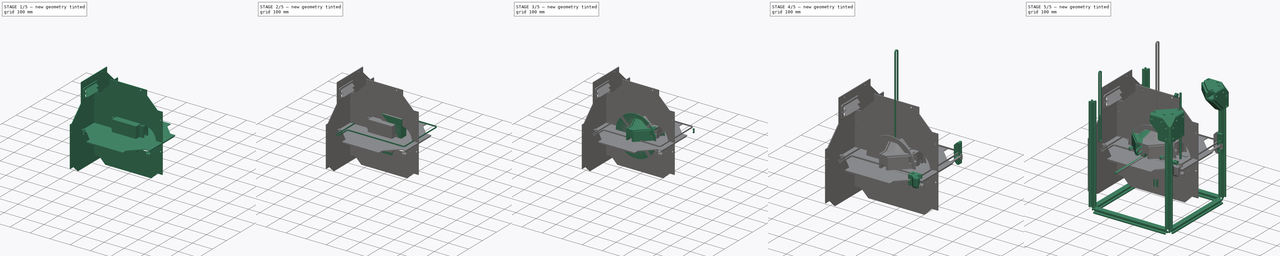
[diagram: build sequence overview — one tinted view per stage of 5, left to right]
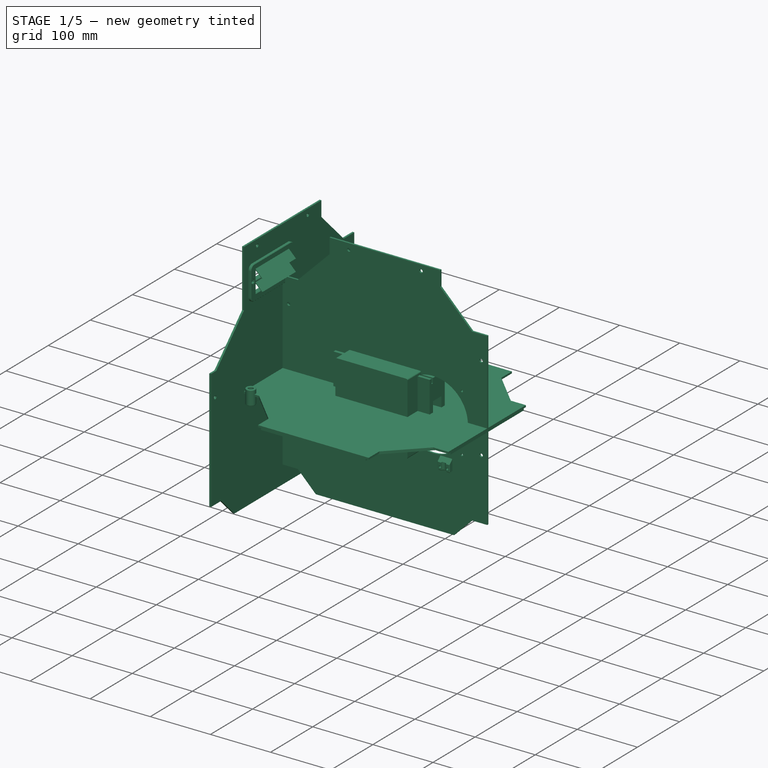
[diagram: stage 1 of 5 — iso view after this stage's code; geometry added in this stage tinted green]
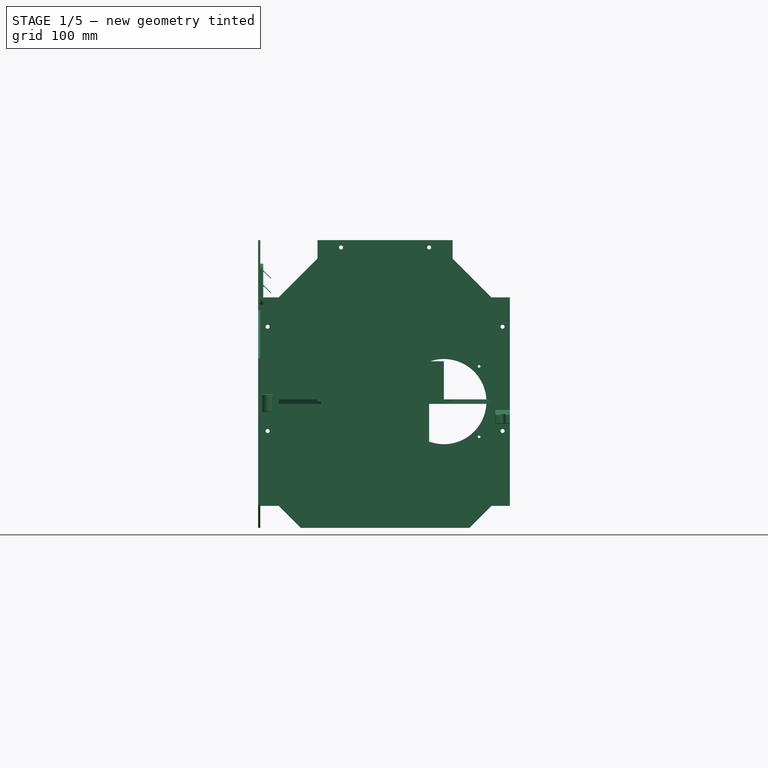
[diagram: stage 1 of 5 — front view after this stage's code; geometry added in this stage tinted green]
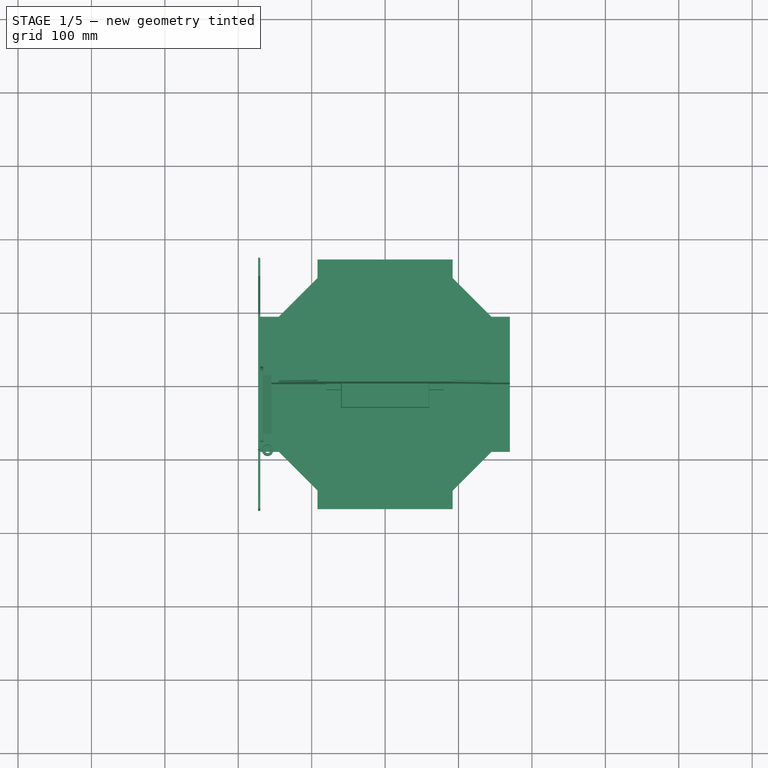
[diagram: stage 1 of 5 — top view after this stage's code; geometry added in this stage tinted green]
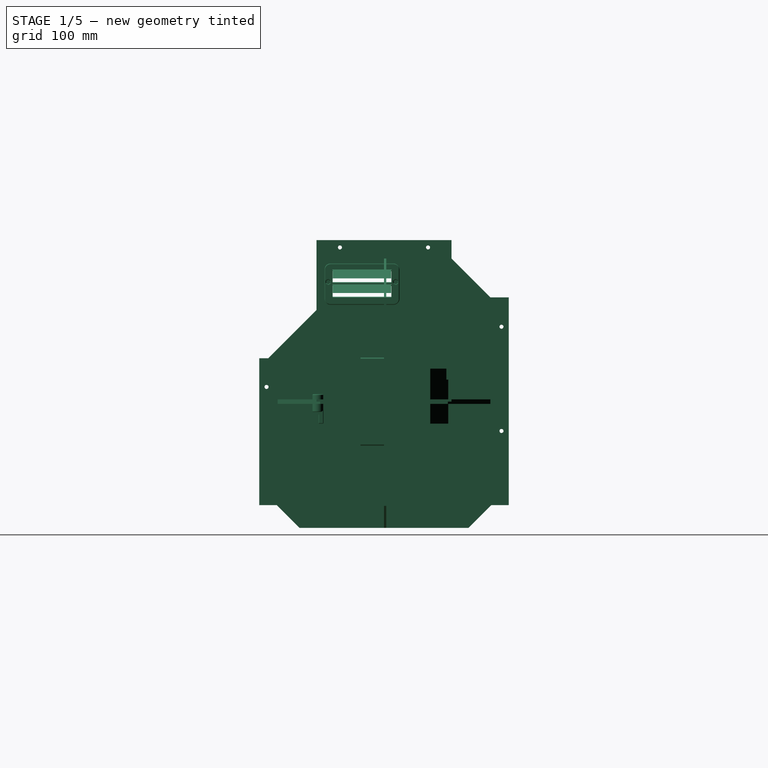
[diagram: stage 1 of 5 — right view after this stage's code; geometry added in this stage tinted green]
FCSTD DOCUMENT  (FreeCAD 1.0R39109 (Git))
Label: assembly
License: do the fuck you want with it, its information you couldn't steel it, even if you wanted to
LicenseURL: http://en.wikipedia.org/wiki/All_rights_reserved
objects: Sketcher::SketchObject×195, PartDesign::Pocket×124, PartDesign::Body×61, PartDesign::Pad×55, App::DocumentObjectGroup×30, Part::Mirroring×28, App::Link×24, PartDesign::Groove×20, PartDesign::Chamfer×20, PartDesign::Fillet×19, PartDesign::FeatureBase×17, PartDesign::Mirrored×14, PartDesign::PolarPattern×10, App::Part×7, App::LinkElement×7, PartDesign::Revolution×6, PartDesign::Plane×5, PartDesign::MultiTransform×4, Part::Feature×4, PartDesign::Line×3, +3 more types
note: 1314 computed .brp shape members not serialized (recipe doc carries the construction recipe); baked Part::Feature solids carry a one-line shape summary decoded from their .brp
EXTERNAL_REF file=xy-gantry/toolhead-integrated.FCStd obj=Part002
EXTERNAL_REF file=general/standard-stuff.FCStd obj=Body084
EXTERNAL_REF file=general/standard-stuff.FCStd obj=Group002
EXTERNAL_REF file=z-motion/mid-drivetrain.FCStd obj=Part
EXTERNAL_REF file=general/standard-stuff.FCStd obj=Body103
EXTERNAL_REF file=general/standard-stuff.FCStd obj=Group001
EXTERNAL_REF file=general/standard-stuff.FCStd obj=Body
EXTERNAL_REF file=xy-gantry/x-carriage.FCStd obj=Part
EXTERNAL_REF file=xy-gantry/y-carriages.FCStd obj=Part001
EXTERNAL_REF file=xy-gantry/y-carriages.FCStd obj=Part
EXTERNAL_REF file=general/standard-stuff.FCStd obj=Group003
EXTERNAL_REF file=general/belt-clip.FCStd obj=Body102
EXTERNAL_REF file=electronics/pi-zero-2-w.FCStd obj=Part
EXTERNAL_REF file=electronics/bigtreetech-mini-e3-v2.0.FCStd obj=Body
EXTERNAL_REF file=electronics/PSU-12V-10A.FCStd obj=Part
EXTERNAL_REF file=air-management/air-exhaust.FCStd obj=Part
EXTERNAL_REF file=air-management/intake-vents.FCStd obj=Part

FEATURE [PartDesign::Body] Body166  label="y-rod-left"
  AllowCompound = false
  Group = -> [Sketch484,Pad108]
  Origin = -> Origin318
  Placement = pos=(-160,24,0) rot=(0,0,1;0rad)
  Tip = -> Pad108
  expr: .Placement.Base.x = -Spreadsheet.side_length / 2 + 10
FEATURE [App::Link] Link005  label="y-carriage-right"
  LinkPlacement = pos=(160,0,0) rot=(0,0,1;0rad)
  LinkedObject = -> <external xy-gantry/y-carriages.FCStd>#Part001
  Placement = pos=(160,0,0) rot=(0,0,1;0rad)
  expr: .Placement.Base.x = Spreadsheet.side_length / 2 - 10
FEATURE [App::Link] Link004  label="y-carriage-left"
  LinkPlacement = pos=(-160,0,0) rot=(0,0,1;0rad)
  LinkedObject = -> <external xy-gantry/y-carriages.FCStd>#Part
  Placement = pos=(-160,0,0) rot=(0,0,1;0rad)
  expr: .Placement.Base.x = -(Spreadsheet.side_length / 2 - 10)
FEATURE [Sketcher::SketchObject] Sketch486
  ArcFitTolerance = 1e-06
  AttachmentSupport = -> [XY_Plane319]
  FullyConstrained = true
  MakeInternals = false
  MapMode = 5
  sketch-geometry (14):
    g0: LineSegment StartX=-8 StartY=1.2e-15 StartZ=0 EndX=-8 EndY=85 EndZ=0
    g1: LineSegment StartX=-8 StartY=85 StartZ=0 EndX=28 EndY=85 EndZ=0
    g2: LineSegment StartX=50 StartY=63 StartZ=0 EndX=50 EndY=-8 EndZ=0
    g3: LineSegment StartX=50 StartY=-8 StartZ=0 EndX=0 EndY=-8 EndZ=0
    g4: ArcOfCircle CenterX=-7e-16 CenterY=3e-16 CenterZ=0 NormalX=0 NormalY=0 NormalZ=1 AngleXU=0 Radius=8 StartAngle=3.14159 EndAngle=4.71239
    g5: GeomPoint [constr] X=-8 Y=-8 Z=0
    g6: LineSegment StartX=0 StartY=20 StartZ=0 EndX=0 EndY=0 EndZ=0
    g7: LineSegment StartX=0 StartY=0 StartZ=0 EndX=20 EndY=0 EndZ=0
    g8: LineSegment StartX=20 StartY=0 StartZ=0 EndX=20 EndY=20 EndZ=0
    g9: LineSegment StartX=20 StartY=20 StartZ=0 EndX=0 EndY=20 EndZ=0
    g10: GeomPoint X=10 Y=10 Z=0
    g11: ArcOfCircle [constr] CenterX=28 CenterY=63 CenterZ=0 NormalX=0 NormalY=0 NormalZ=1 AngleXU=0 Radius=22 StartAngle=0 EndAngle=1.5708
    g12: GeomPoint [constr] X=50 Y=85 Z=0
    g13: LineSegment StartX=50 StartY=63 StartZ=0 EndX=28 EndY=85 EndZ=0
  constraints (35):
    c: Vertical(g0)
    c: Coincident(g0,g1)
    c: Horizontal(g1)
    c: Vertical(g2)
    c: Coincident(g2,g3)
    c: Horizontal(g3)
    c: DistanceX(g12) = 50
    c: DistanceX(g5) = -8
    c: DistanceY(g5) = -8
    c: DistanceY(g0) = 85
    c: PointOnObject(g5,g0)
    c: PointOnObject(g5,g3)
    c: Tangent(g0,g4) = 1.5708
    c: Tangent(g3,g4) = 1.5708
    c: Radius(g4) = 8
    c: Coincident(g6,g7)
    c: Coincident(g7,g8)
    c: Coincident(g8,g9)
    c: Coincident(g9,g6)
    c: Vertical(g6)
    c: Vertical(g8)
    c: Horizontal(g7)
    c: Horizontal(g9)
    c: DistanceX(g10) = 10
    c: DistanceY(g10) = 10
    c: Symmetric(g6,g8,g10)
    c: Equal(g8,g9)
    c: DistanceX(g9,g9) = 20
    c: PointOnObject(g12,g1)
    c: PointOnObject(g12,g2)
    c: Tangent(g1,g11) = 1.5708
    c: Tangent(g2,g11) = 1.5708
    c: Coincident(g13,g1)
    c: Coincident(g13,g2)
    c: DistanceX(g1) = 28
FEATURE [PartDesign::Pad] Pad109
  Direction = (0,0,1)
  Length = 45
  Length2 = 30
  Profile = -> Sketch486
  ReferenceAxis = -> Sketch486 [N_Axis]
  Suppressed = false
  Type = 4
FEATURE [Sketcher::SketchObject] Sketch493
  ArcFitTolerance = 1e-06
  AttachmentSupport = -> [XY_Plane319]
  FullyConstrained = true
  MakeInternals = false
  MapMode = 5
  sketch-geometry (4):
    g0: LineSegment StartX=0 StartY=80 StartZ=0 EndX=28 EndY=80 EndZ=0
    g1: LineSegment StartX=28 StartY=80 StartZ=0 EndX=20.5 EndY=87.5 EndZ=0
    g2: LineSegment StartX=20.5 StartY=87.5 StartZ=0 EndX=0 EndY=87.5 EndZ=0
    g3: LineSegment StartX=0 StartY=87.5 StartZ=0 EndX=0 EndY=80 EndZ=0
  constraints (12):
    c: Coincident(g0,g1)
    c: Coincident(g1,g2)
    c: Coincident(g2,g3)
    c: Coincident(g3,g0)
    c: Horizontal(g0)
    c: Horizontal(g2)
    c: Vertical(g3)
    c: PointOnObject(g0,g-2)
    c: DistanceY(g0) = 80
    c: DistanceY(g3,g3) = 7.5
    c: DistanceX(g1) = 20.5
    c: Angle(g1) = 2.35619
FEATURE [PartDesign::Pad] Pad111
  BaseFeature = -> Pad109
  Direction = (0,0,1)
  Length = 30
  Length2 = 30
  Profile = -> Sketch493
  ReferenceAxis = -> Sketch493 [N_Axis]
  Refine = true
  Suppressed = false
  Type = 4
FEATURE [Sketcher::SketchObject] Sketch495
  ArcFitTolerance = 1e-06
  AttachmentSupport = -> [YZ_Plane319]
  FullyConstrained = true
  MakeInternals = false
  MapMode = 5
  Placement = pos=(0,0,0) rot=(0.57735,0.57735,0.57735;2.0944rad)
  sketch-geometry (5):
    g0: LineSegment StartX=85 StartY=50 StartZ=0 EndX=85 EndY=-30 EndZ=0
    g1: LineSegment StartX=85 StartY=-30 StartZ=0 EndX=12 EndY=-30 EndZ=0
    g2: LineSegment StartX=12 StartY=-30 StartZ=0 EndX=77 EndY=35 EndZ=0
    g3: LineSegment StartX=77 StartY=35 StartZ=0 EndX=77 EndY=50 EndZ=0
    g4: LineSegment StartX=77 StartY=50 StartZ=0 EndX=85 EndY=50 EndZ=0
  constraints (15):
    c: Vertical(g0)
    c: Coincident(g0,g1)
    c: Horizontal(g1)
    c: DistanceY(g1) = -30
    c: DistanceX(g0) = 85
    c: DistanceX(g1) = 12
    c: Coincident(g1,g2)
    c: Coincident(g2,g3)
    c: Coincident(g3,g4)
    c: Horizontal(g4)
    c: Vertical(g3)
    c: DistanceX(g4,g4) = 8
    c: Coincident(g4,g0)
    c: DistanceY(g0) = 50
    c: Angle(g2) = 0.785398
FEATURE [PartDesign::Pocket] Pocket345
  BaseFeature = -> Pad111
  Direction = (-1,0,0)
  Length = 5
  Length2 = 5
  Profile = -> Sketch495
  ReferenceAxis = -> Sketch495 [N_Axis]
  Refine = true
  Suppressed = false
  Type = 1
FEATURE [Sketcher::SketchObject] Sketch498
  ArcFitTolerance = 1e-06
  AttachmentSupport = -> [XZ_Plane319]
  FullyConstrained = true
  MakeInternals = false
  MapMode = 5
  Placement = pos=(0,0,0) rot=(1,0,0;1.5708rad)
  sketch-geometry (5):
    g0: LineSegment StartX=50 StartY=50 StartZ=0 EndX=42 EndY=50 EndZ=0
    g1: LineSegment StartX=42 StartY=50 StartZ=0 EndX=42 EndY=-1.43459e-11 EndZ=0
    g2: LineSegment StartX=42 StartY=-1.43459e-11 StartZ=0 EndX=12 EndY=-30 EndZ=0
    g3: LineSegment StartX=50 StartY=50 StartZ=0 EndX=50 EndY=-30 EndZ=0
    g4: LineSegment StartX=50 StartY=-30 StartZ=0 EndX=12 EndY=-30 EndZ=0
  constraints (15):
    c: Horizontal(g0)
    c: Coincident(g0,g1)
    c: Vertical(g1)
    c: Coincident(g1,g2)
    c: Angle(g2) = -2.35619
    c: Coincident(g0,g3)
    c: Vertical(g3)
    c: Coincident(g3,g4)
    c: Coincident(g4,g2)
    c: Horizontal(g4)
    c: DistanceX(g3) = 50
    c: DistanceY(g0) = 50
    c: DistanceX(g0,g0) = 8
    c: DistanceY(g2) = -30
    c: DistanceX(g2) = 12
FEATURE [PartDesign::Pocket] Pocket348
  BaseFeature = -> Pocket345
  Direction = (0,1,-2e-16)
  Length = 5
  Length2 = 5
  Profile = -> Sketch498
  ReferenceAxis = -> Sketch498 [N_Axis]
  Reversed = true
  Suppressed = false
  Type = 1
FEATURE [Sketcher::SketchObject] Sketch523
  ArcFitTolerance = 1e-06
  AttachmentOffset = pos=(0,0,10) rot=(0,0,1;0rad)
  AttachmentSupport = -> [YZ_Plane319]
  FullyConstrained = true
  MakeInternals = false
  MapMode = 5
  Placement = pos=(10,0,0) rot=(0.57735,0.57735,0.57735;2.0944rad)
  sketch-geometry (4):
    g0: ArcOfCircle CenterX=55 CenterY=-20 CenterZ=0 NormalX=0 NormalY=0 NormalZ=1 AngleXU=0 Radius=10 StartAngle=0 EndAngle=3.14159
    g1: LineSegment StartX=45 StartY=-20 StartZ=0 EndX=45 EndY=-30 EndZ=0
    g2: LineSegment StartX=45 StartY=-30 StartZ=0 EndX=65 EndY=-30 EndZ=0
    g3: LineSegment StartX=65 StartY=-30 StartZ=0 EndX=65 EndY=-20 EndZ=0
  constraints (11):
    c: DistanceY(g0) = -20
    c: DistanceX(g0) = 55
    c: Tangent(g0,g1) = -1.5708
    c: Coincident(g1,g2)
    c: Horizontal(g2)
    c: Coincident(g2,g3)
    c: Vertical(g3)
    c: Tangent(g3,g0) = -1.5708
    c: Vertical(g1)
    c: DistanceY(g1) = -30
    c: DistanceX(g2,g2) = 20
FEATURE [PartDesign::Pocket] Pocket371
  BaseFeature = -> Pocket348
  Direction = (-1,0,0)
  Length = 10.5
  Length2 = 5
  Midplane = true
  Profile = -> Sketch523
  ReferenceAxis = -> Sketch523 [N_Axis]
  Suppressed = false
  Type = 0
FEATURE [Sketcher::SketchObject] Sketch524
  ArcFitTolerance = 1e-06
  AttachmentOffset = pos=(10,-20,-55) rot=(0,0,1;0rad)
  AttachmentSupport = -> [XZ_Plane319]
  FullyConstrained = true
  MakeInternals = false
  MapMode = 5
  Placement = pos=(10,55,-20) rot=(1,0,0;1.5708rad)
  sketch-geometry (8):
    g0: LineSegment StartX=4.25 StartY=0 StartZ=0 EndX=4.25 EndY=-4 EndZ=0
    g1: LineSegment StartX=4.25 StartY=-4 StartZ=0 EndX=5.25 EndY=-5 EndZ=0
    g2: LineSegment StartX=5.25 StartY=-5 StartZ=0 EndX=5.25 EndY=0 EndZ=0
    g3: LineSegment StartX=5.25 StartY=0 StartZ=0 EndX=4.25 EndY=0 EndZ=0
    g4: LineSegment StartX=-5.25 StartY=0 StartZ=0 EndX=-5.25 EndY=-5 EndZ=0
    g5: LineSegment StartX=-5.25 StartY=-5 StartZ=0 EndX=-4.25 EndY=-4 EndZ=0
    g6: LineSegment StartX=-4.25 StartY=-4 StartZ=0 EndX=-4.25 EndY=0 EndZ=0
    g7: LineSegment StartX=-4.25 StartY=0 StartZ=0 EndX=-5.25 EndY=0 EndZ=0
  constraints (23):
    c: PointOnObject(g0,g-1)
    c: Vertical(g0)
    c: Coincident(g0,g1)
    c: Coincident(g1,g2)
    c: PointOnObject(g2,g-1)
    c: Vertical(g2)
    c: Coincident(g2,g3)
    c: Coincident(g3,g0)
    c: PointOnObject(g4,g-1)
    c: Vertical(g4)
    c: Coincident(g4,g5)
    c: Coincident(g5,g6)
    c: PointOnObject(g6,g-1)
    c: Vertical(g6)
    c: Coincident(g6,g7)
    c: Coincident(g7,g4)
    c: Symmetric(g1,g4,g-2)
    c: Perpendicular(g5,g1)
    c: DistanceX(g4,g1) = 10.5
    c: Angle(g5) = 0.785398
    c: Horizontal(g0,g5)
    c: DistanceY(g0,g0) = 4
    c: DistanceX(g5,g0) = 8.5
FEATURE [PartDesign::Revolution] Revolution
  Angle = 360
  Angle2 = 60
  Axis = (1,0,0)
  Base = (10,55,-20)
  BaseFeature = -> Pocket371
  Profile = -> Sketch524
  ReferenceAxis = -> Sketch524 [H_Axis]
  Reversed = true
  Suppressed = false
  Type = 0
FEATURE [Sketcher::SketchObject] Sketch525
  ArcFitTolerance = 1e-06
  AttachmentOffset = pos=(0,55,-20) rot=(0,0,1;0rad)
  AttachmentSupport = -> [XY_Plane319]
  FullyConstrained = true
  MakeInternals = false
  MapMode = 5
  Placement = pos=(0,55,-20) rot=(0,0,1;0rad)
  sketch-geometry (6):
    g0: LineSegment StartX=0 StartY=0 StartZ=0 EndX=0 EndY=5 EndZ=0
    g1: LineSegment StartX=0 StartY=5 StartZ=0 EndX=3 EndY=5 EndZ=0
    g2: LineSegment StartX=3 StartY=5 StartZ=0 EndX=3 EndY=2.5 EndZ=0
    g3: LineSegment StartX=3 StartY=2.5 StartZ=0 EndX=35 EndY=2.5 EndZ=0
    g4: LineSegment StartX=35 StartY=2.5 StartZ=0 EndX=35 EndY=0 EndZ=0
    g5: LineSegment StartX=35 StartY=0 StartZ=0 EndX=0 EndY=0 EndZ=0
  constraints (17):
    c: Coincident(g-1,g0)
    c: PointOnObject(g0,g-2)
    c: Coincident(g0,g1)
    c: Coincident(g1,g2)
    c: Vertical(g2)
    c: Coincident(g2,g3)
    c: Horizontal(g3)
    c: Coincident(g3,g4)
    c: PointOnObject(g4,g-1)
    c: Vertical(g4)
    c: Coincident(g4,g5)
    c: Coincident(g5,g0)
    c: Horizontal(g1)
    c: DistanceX(g1,g1) = 3
    c: DistanceY(g2) = 2.5
    c: DistanceY(g1) = 5
    c: DistanceX(g3,g3) = 32
FEATURE [PartDesign::Groove] Groove018
  Angle = 360
  Angle2 = 60
  Axis = (-1,0,0)
  Base = (35,55,-20)
  BaseFeature = -> Revolution
  Profile = -> Sketch525
  ReferenceAxis = -> Sketch525 [Edge6]
  Suppressed = false
  Type = 0
FEATURE [App::DocumentObjectGroup] Group039  label="z-motion-front-rods"
  Group = -> [Part__Mirroring088,Body179]
FEATURE [App::DocumentObjectGroup] Group010  label="front"
  Group = -> [Body070,Group016,Link024,endstop002,Link032,Part__Mirroring086,Group037,Group038,Group039]
FEATURE [Sketcher::SketchObject] Sketch529
  ArcFitTolerance = 1e-06
  AttachmentSupport = -> [YZ_Plane337]
  FullyConstrained = true
  MakeInternals = false
  MapMode = 5
  Placement = pos=(0,0,0) rot=(0.57735,0.57735,0.57735;2.0944rad)
  sketch-geometry (18):
    g0: LineSegment StartX=-8 StartY=2 StartZ=0 EndX=-8 EndY=55 EndZ=0
    g1: LineSegment StartX=-8 StartY=55 StartZ=0 EndX=24 EndY=55 EndZ=0
    g2: LineSegment StartX=24 StartY=55 StartZ=0 EndX=24 EndY=50 EndZ=0
    g3: LineSegment StartX=24 StartY=50 StartZ=0 EndX=28 EndY=50 EndZ=0
    g4: LineSegment StartX=28 StartY=50 StartZ=0 EndX=28 EndY=2 EndZ=0
    g5: LineSegment StartX=26 StartY=0 StartZ=0 EndX=22 EndY=0 EndZ=0
    g6: LineSegment StartX=20 StartY=2 StartZ=0 EndX=20 EndY=20 EndZ=0
    g7: LineSegment StartX=20 StartY=20 StartZ=0 EndX=0 EndY=20 EndZ=0
    g8: LineSegment StartX=0 StartY=20 StartZ=0 EndX=0 EndY=2 EndZ=0
    g9: LineSegment StartX=-2 StartY=0 StartZ=0 EndX=-6 EndY=0 EndZ=0
    g10: ArcOfCircle CenterX=-6 CenterY=2 CenterZ=0 NormalX=0 NormalY=0 NormalZ=1 AngleXU=0 Radius=2 StartAngle=3.14159 EndAngle=4.71239
    g11: GeomPoint [constr] X=-8 Y=0 Z=0
    g12: ArcOfCircle CenterX=-2 CenterY=2 CenterZ=0 NormalX=0 NormalY=0 NormalZ=1 AngleXU=0 Radius=2 StartAngle=4.71239 EndAngle=6.28319
    g13: GeomPoint [constr] X=0 Y=0 Z=0
    g14: ArcOfCircle CenterX=22 CenterY=2 CenterZ=0 NormalX=0 NormalY=0 NormalZ=1 AngleXU=0 Radius=2 StartAngle=3.14159 EndAngle=4.71239
    g15: GeomPoint [constr] X=20 Y=0 Z=0
    g16: ArcOfCircle CenterX=26 CenterY=2 CenterZ=0 NormalX=0 NormalY=0 NormalZ=1 AngleXU=0 Radius=2 StartAngle=4.71239 EndAngle=6.28319
    g17: GeomPoint [constr] X=28 Y=0 Z=0
  constraints (45):
    c: PointOnObject(g11,g-1)
    c: Vertical(g0)
    c: Horizontal(g1)
    c: Coincident(g1,g2)
    c: Vertical(g2)
    c: Coincident(g2,g3)
    c: Horizontal(g3)
    c: Coincident(g3,g4)
    c: PointOnObject(g17,g-1)
    c: Vertical(g4)
    c: PointOnObject(g15,g-1)
    c: Vertical(g6)
    c: Coincident(g6,g7)
    c: PointOnObject(g7,g-2)
    c: Horizontal(g7)
    c: Coincident(g7,g8)
    c: Coincident(g13,g-1)
    c: DistanceY(g15,g6) = 20
    c: DistanceX(g7,g7) = 20
    c: DistanceX(g11,g13) = 8
    c: DistanceX(g3,g3) = 4
    c: DistanceX(g17) = 28
    c: PointOnObject(g11,g0)
    c: PointOnObject(g11,g9)
    c: Tangent(g0,g10) = 1.5708
    c: Tangent(g9,g10) = 1.5708
    c: PointOnObject(g13,g9)
    c: PointOnObject(g13,g8)
    c: Tangent(g9,g12) = 1.5708
    c: Tangent(g8,g12) = 1.5708
    c: PointOnObject(g15,g5)
    c: PointOnObject(g15,g6)
    c: Tangent(g5,g14) = 1.5708
    c: Tangent(g6,g14) = 1.5708
    c: PointOnObject(g17,g4)
    c: PointOnObject(g17,g5)
    c: Tangent(g4,g16) = 1.5708
    c: Tangent(g5,g16) = 1.5708
    c: Equal(g16,g14)
    c: Equal(g14,g12)
    c: Equal(g12,g10)
    c: Radius(g12) = 2
    c: DistanceY(g2,g2) = 5
    c: DistanceY(g1) = 55
    c: Coincident(g1,g0)
FEATURE [PartDesign::Pad] Pad119
  Direction = (1,0,0)
  Length = 160
  Length2 = 10
  Midplane = true
  Placement = pos=(0,0,0) rot=(1,1,1;2.0944rad)
  Profile = -> Sketch529
  ReferenceAxis = -> Sketch529 [N_Axis]
  Suppressed = false
  Type = 0
FEATURE [Sketcher::SketchObject] Sketch530
  ArcFitTolerance = 1e-06
  AttachmentSupport = -> [XZ_Plane337]
  FullyConstrained = true
  MakeInternals = false
  MapMode = 5
  Placement = pos=(0,0,0) rot=(1,0,0;1.5708rad)
  sketch-geometry (2):
    g0: Circle CenterX=-50 CenterY=10 CenterZ=0 NormalX=0 NormalY=0 NormalZ=1 AngleXU=0 Radius=2.75
    g1: Circle CenterX=50 CenterY=10 CenterZ=0 NormalX=0 NormalY=0 NormalZ=1 AngleXU=0 Radius=2.75
  constraints (5):
    c: Equal(g1,g0)
    c: Symmetric(g0,g1,g-2)
    c: DistanceY(g1) = 10
    c: Diameter(g1) = 5.5
    c: DistanceX(g1) = 50
FEATURE [PartDesign::Pocket] Pocket373
  BaseFeature = -> Pad119
  Direction = (0,1,-2e-16)
  Length = 5
  Length2 = 5
  Placement = pos=(0,0,0) rot=(1,1,1;2.0944rad)
  Profile = -> Sketch530
  ReferenceAxis = -> Sketch530 [N_Axis]
  Reversed = true
  Suppressed = false
  Type = 1
FEATURE [Sketcher::SketchObject] Sketch531
  ArcFitTolerance = 1e-06
  AttachmentOffset = pos=(0,0,4) rot=(0,0,1;0rad)
  AttachmentSupport = -> [XZ_Plane337]
  FullyConstrained = true
  MakeInternals = false
  MapMode = 5
  Placement = pos=(0,-4,9e-16) rot=(1,0,0;1.5708rad)
  sketch-geometry (2):
    g0: Circle CenterX=50 CenterY=10 CenterZ=0 NormalX=0 NormalY=0 NormalZ=1 AngleXU=0 Radius=5
    g1: Circle CenterX=-50 CenterY=10 CenterZ=0 NormalX=0 NormalY=0 NormalZ=1 AngleXU=0 Radius=5
  constraints (5):
    c: Equal(g1,g0)
    c: Symmetric(g1,g0,g-2)
    c: DistanceX(g0) = 50
    c: DistanceY(g0) = 10
    c: Diameter(g0) = 10
FEATURE [PartDesign::Pocket] Pocket374
  BaseFeature = -> Pocket373
  Direction = (0,1,-2e-16)
  Length = 5
  Length2 = 5
  Placement = pos=(0,0,0) rot=(1,1,1;2.0944rad)
  Profile = -> Sketch531
  ReferenceAxis = -> Sketch531 [N_Axis]
  Reversed = true
  Suppressed = false
  Type = 1
FEATURE [Sketcher::SketchObject] Sketch536
  ArcFitTolerance = 1e-06
  AttachmentSupport = -> [XZ_Plane338]
  FullyConstrained = true
  MakeInternals = false
  MapMode = 5
  Placement = pos=(0,0,0) rot=(1,0,0;1.5708rad)
  sketch-geometry (8):
    g0: LineSegment StartX=0 StartY=85 StartZ=0 EndX=90 EndY=85 EndZ=0
    g1: LineSegment StartX=90 StartY=85 StartZ=0 EndX=90 EndY=47 EndZ=0
    g2: LineSegment StartX=90 StartY=47 StartZ=0 EndX=54.6863 EndY=47 EndZ=0
    g3: LineSegment StartX=54.6863 StartY=47 StartZ=0 EndX=24.6863 EndY=77 EndZ=0
    g4: LineSegment StartX=24.6863 StartY=77 StartZ=0 EndX=0 EndY=77 EndZ=0
    g5: LineSegment StartX=0 StartY=77 StartZ=0 EndX=0 EndY=85 EndZ=0
    g6: GeomPoint X=28 Y=85 Z=0
    g7: GeomPoint X=90 Y=55 Z=0
  constraints (22):
    c: PointOnObject(g0,g-2)
    c: Horizontal(g0)
    c: Coincident(g0,g1)
    c: Vertical(g1)
    c: Coincident(g1,g2)
    c: Horizontal(g2)
    c: Coincident(g2,g3)
    c: Coincident(g3,g4)
    c: Horizontal(g4)
    c: Coincident(g4,g5)
    c: Coincident(g5,g0)
    c: Vertical(g5)
    c: DistanceY(g5,g5) = 8
    c: DistanceY(g0) = 85
    c: DistanceX(g0) = 90
    c: PointOnObject(g6,g0)
    c: DistanceX(g6) = 28
    c: Angle(g3) = 2.35619
    c: Distance(g6,g3) = 8
    c: PointOnObject(g7,g1)
    c: DistanceY(g7) = 55
    c: DistanceY(g1,g7) = 8
FEATURE [Sketcher::SketchObject] Sketch537
  ArcFitTolerance = 1e-06
  AttachmentOffset = pos=(0,0,0) rot=(0,-1,0;1.5708rad)
  AttachmentSupport = -> [XZ_Plane338]
  FullyConstrained = true
  MakeInternals = false
  MapMode = 5
  Placement = pos=(0,0,0) rot=(0.57735,-0.57735,-0.57735;2.0944rad)
  sketch-geometry (8):
    g0: LineSegment StartX=0 StartY=85 StartZ=0 EndX=90 EndY=85 EndZ=0
    g1: LineSegment StartX=90 StartY=85 StartZ=0 EndX=90 EndY=47 EndZ=0
    g2: LineSegment StartX=90 StartY=47 StartZ=0 EndX=54.6863 EndY=47 EndZ=0
    g3: LineSegment StartX=54.6863 StartY=47 StartZ=0 EndX=24.6863 EndY=77 EndZ=0
    g4: LineSegment StartX=24.6863 StartY=77 StartZ=0 EndX=0 EndY=77 EndZ=0
    g5: LineSegment StartX=0 StartY=77 StartZ=0 EndX=0 EndY=85 EndZ=0
    g6: GeomPoint X=28 Y=85 Z=0
    g7: GeomPoint X=90 Y=55 Z=0
  constraints (22):
    c: PointOnObject(g0,g-2)
    c: Horizontal(g0)
    c: Coincident(g0,g1)
    c: Vertical(g1)
    c: Coincident(g1,g2)
    c: Horizontal(g2)
    c: Coincident(g2,g3)
    c: Coincident(g3,g4)
    c: Horizontal(g4)
    c: Coincident(g4,g5)
    c: Coincident(g5,g0)
    c: Vertical(g5)
    c: DistanceY(g5,g5) = 8
    c: DistanceY(g0) = 85
    c: DistanceX(g0) = 90
    c: PointOnObject(g6,g0)
    c: DistanceX(g6) = 28
    c: Angle(g3) = 2.35619
    c: Distance(g6,g3) = 8
    c: PointOnObject(g7,g1)
    c: DistanceY(g7) = 55
    c: DistanceY(g1,g7) = 8
FEATURE [PartDesign::FeatureBase] Clone012
  BaseFeature = -> Body186
  Suppressed = false
FEATURE [Sketcher::SketchObject] Sketch538
  ArcFitTolerance = 1e-06
  AttachmentSupport = -> [YZ_Plane340]
  FullyConstrained = true
  MakeInternals = false
  MapMode = 5
  Placement = pos=(0,0,0) rot=(0.57735,0.57735,0.57735;2.0944rad)
  sketch-geometry (4):
    g0: LineSegment StartX=-3.2 StartY=55 StartZ=0 EndX=-3.2 EndY=47 EndZ=0
    g1: LineSegment StartX=-3.2 StartY=47 StartZ=0 EndX=0 EndY=47 EndZ=0
    g2: LineSegment StartX=0 StartY=47 StartZ=0 EndX=0 EndY=55 EndZ=0
    g3: LineSegment StartX=0 StartY=55 StartZ=0 EndX=-3.2 EndY=55 EndZ=0
  constraints (12):
    c: Coincident(g0,g1)
    c: Coincident(g1,g2)
    c: Coincident(g2,g3)
    c: Coincident(g3,g0)
    c: Vertical(g0)
    c: Vertical(g2)
    c: Horizontal(g1)
    c: Horizontal(g3)
    c: PointOnObject(g1,g-2)
    c: DistanceY(g2) = 55
    c: DistanceX(g3,g3) = 3.2
    c: DistanceY(g2,g2) = 8
FEATURE [PartDesign::Pocket] Pocket380
  BaseFeature = -> Clone012
  Direction = (-1,0,0)
  Length = 5
  Length2 = 5
  Midplane = true
  Profile = -> Sketch538
  ReferenceAxis = -> Sketch538 [N_Axis]
  Suppressed = false
  Type = 1
FEATURE [PartDesign::Body] Body189  label="skirt-left-back-right-drv"
  AllowCompound = false
  Group = -> [Clone012,Sketch538,Pocket380]
  Origin = -> Origin341
  Tip = -> Pocket380
FEATURE [App::DocumentObjectGroup] Group042  label="skirts-drv"
  Group = -> [Body186,Body189]
FEATURE [PartDesign::FeatureBase] Clone013
  BaseFeature = -> Body189
  Suppressed = false
FEATURE [PartDesign::FeatureBase] Clone014
  BaseFeature = -> Body189
  Suppressed = false
FEATURE [PartDesign::FeatureBase] Clone015
  BaseFeature = -> Body189
  Suppressed = false
FEATURE [Sketcher::SketchObject] Sketch548
  ArcFitTolerance = 1e-06
  AttachmentOffset = pos=(0,0,-20) rot=(0,0,1;0rad)
  AttachmentSupport = -> [XZ_Plane342]
  FullyConstrained = true
  MakeInternals = false
  MapMode = 5
  Placement = pos=(0,20,-4.4e-15) rot=(1,0,0;1.5708rad)
  sketch-geometry (6):
    g0: LineSegment StartX=3.27 StartY=0 StartZ=0 EndX=3.27 EndY=21 EndZ=0
    g1: LineSegment StartX=3.27 StartY=21 StartZ=0 EndX=-13 EndY=21 EndZ=0
    g2: LineSegment StartX=-13 StartY=21 StartZ=0 EndX=-13 EndY=33 EndZ=0
    g3: LineSegment StartX=-13 StartY=33 StartZ=0 EndX=-80 EndY=33 EndZ=0
    g4: LineSegment StartX=-80 StartY=33 StartZ=0 EndX=-80 EndY=0 EndZ=0
    g5: LineSegment StartX=-80 StartY=0 StartZ=0 EndX=3.27 EndY=0 EndZ=0
  constraints (18):
    c: PointOnObject(g0,g-1)
    c: Vertical(g0)
    c: Coincident(g0,g1)
    c: Horizontal(g1)
    c: Coincident(g1,g2)
    c: Vertical(g2)
    c: Coincident(g2,g3)
    c: Horizontal(g3)
    c: Coincident(g3,g4)
    c: PointOnObject(g4,g-1)
    c: Vertical(g4)
    c: Coincident(g4,g5)
    c: Coincident(g5,g0)
    c: DistanceY(g0,g0) = 21
    c: DistanceX(g1) = -13
    c: DistanceY(g2) = 33
    c: DistanceX(g3) = -80
    c: DistanceX(g0) = 3.27
FEATURE [PartDesign::Pocket] Pocket388
  BaseFeature = -> Clone014
  Direction = (0,1,-2e-16)
  Length = 5
  Length2 = 5
  Profile = -> Sketch548
  ReferenceAxis = -> Sketch548 [N_Axis]
  Suppressed = false
  Type = 1
FEATURE [Sketcher::SketchObject] Sketch549
  ArcFitTolerance = 1e-06
  AttachmentSupport = -> [XY_Plane342]
  FullyConstrained = true
  MakeInternals = false
  MapMode = 5
  sketch-geometry (5):
    g0: LineSegment StartX=-17 StartY=28 StartZ=0 EndX=-17 EndY=27 EndZ=0
    g1: LineSegment StartX=-17 StartY=27 StartZ=0 EndX=-72 EndY=27 EndZ=0
    g2: LineSegment StartX=-72 StartY=27 StartZ=0 EndX=-73 EndY=28 EndZ=0
    g3: LineSegment StartX=-73 StartY=28 StartZ=0 EndX=-17 EndY=28 EndZ=0
    g4: GeomPoint X=-50 Y=27 Z=0
  constraints (14):
    c: Vertical(g0)
    c: Coincident(g0,g1)
    c: Horizontal(g1)
    c: Coincident(g1,g2)
    c: Coincident(g3,g2)
    c: Coincident(g3,g0)
    c: Horizontal(g3)
    c: PointOnObject(g4,g1)
    c: DistanceX(g4) = -50
    c: DistanceX(g1,g4) = 22
    c: DistanceY(g0) = 28
    c: DistanceY(g0,g0) = 1
    c: DistanceX(g4,g0) = 33
    c: Angle(g2) = 2.35619
FEATURE [PartDesign::Pocket] Pocket389
  BaseFeature = -> Pocket388
  Direction = (0,0,-1)
  Length = 5
  Length2 = 5
  Midplane = true
  Profile = -> Sketch549
  ReferenceAxis = -> Sketch549 [N_Axis]
  Suppressed = false
  Type = 1
FEATURE [Sketcher::SketchObject] Sketch550
  ArcFitTolerance = 1e-06
  AttachmentOffset = pos=(0,0,-20) rot=(0,0,1;0rad)
  AttachmentSupport = -> [XZ_Plane343]
  FullyConstrained = true
  MakeInternals = false
  MapMode = 5
  Placement = pos=(0,20,-4.4e-15) rot=(1,0,0;1.5708rad)
  sketch-geometry (4):
    g0: LineSegment StartX=50 StartY=24 StartZ=0 EndX=50 EndY=0 EndZ=0
    g1: LineSegment StartX=50 StartY=0 StartZ=0 EndX=80 EndY=0 EndZ=0
    g2: LineSegment StartX=80 StartY=0 StartZ=0 EndX=80 EndY=24 EndZ=0
    g3: LineSegment StartX=80 StartY=24 StartZ=0 EndX=50 EndY=24 EndZ=0
  constraints (12):
    c: Coincident(g0,g1)
    c: Coincident(g1,g2)
    c: Coincident(g2,g3)
    c: Coincident(g3,g0)
    c: Vertical(g0)
    c: Vertical(g2)
    c: Horizontal(g1)
    c: Horizontal(g3)
    c: PointOnObject(g1,g-1)
    c: DistanceX(g1) = 80
    c: DistanceY(g2,g2) = 24
    c: DistanceX(g0) = 50
FEATURE [PartDesign::Pocket] Pocket390
  BaseFeature = -> Clone015
  Direction = (0,1,-2e-16)
  Length = 5
  Length2 = 5
  Profile = -> Sketch550
  ReferenceAxis = -> Sketch550 [N_Axis]
  Refine = true
  Suppressed = false
  Type = 1
FEATURE [App::DocumentObjectGroup] Group031  label="xy-idler-mounts-back"
  Group = -> [Body177,Part__Mirroring092]
FEATURE [Sketcher::SketchObject] Sketch582
  ArcFitTolerance = 1e-06
  AttachmentSupport = -> [XY_Plane331]
  FullyConstrained = true
  MakeInternals = false
  MapMode = 5
  sketch-geometry (17):
    g0: LineSegment StartX=30 StartY=14 StartZ=0 EndX=-10 EndY=14 EndZ=0
    g1: LineSegment StartX=-10 StartY=14 StartZ=0 EndX=-10 EndY=-12 EndZ=0
    g2: LineSegment StartX=-16 StartY=-29 StartZ=0 EndX=-3.24264 EndY=-29 EndZ=0
    g3: LineSegment StartX=-1.12132 StartY=-28.1213 StartZ=0 EndX=12.1213 EndY=-14.8787 EndZ=0
    g4: LineSegment StartX=14.2426 StartY=-14 StartZ=0 EndX=30 EndY=-14 EndZ=0
    g5: LineSegment StartX=30 StartY=-14 StartZ=0 EndX=30 EndY=14 EndZ=0
    g6: GeomPoint X=-10.5 Y=-29 Z=0
    g7: LineSegment StartX=-19 StartY=-26 StartZ=0 EndX=-19 EndY=-15 EndZ=0
    g8: LineSegment StartX=-16 StartY=-12 StartZ=0 EndX=-10 EndY=-12 EndZ=0
    g9: ArcOfCircle CenterX=-16 CenterY=-15 CenterZ=0 NormalX=0 NormalY=0 NormalZ=1 AngleXU=0 Radius=3 StartAngle=1.5708 EndAngle=3.14159
    g10: GeomPoint [constr] X=-19 Y=-12 Z=0
    g11: ArcOfCircle CenterX=-16 CenterY=-26 CenterZ=0 NormalX=0 NormalY=0 NormalZ=1 AngleXU=0 Radius=3 StartAngle=3.14159 EndAngle=4.71239
    g12: GeomPoint [constr] X=-19 Y=-29 Z=0
    g13: ArcOfCircle CenterX=-3.24264 CenterY=-26 CenterZ=0 NormalX=0 NormalY=0 NormalZ=1 AngleXU=0 Radius=3 StartAngle=4.71239 EndAngle=5.49779
    g14: GeomPoint [constr] X=-2 Y=-29 Z=0
    g15: ArcOfCircle CenterX=14.2426 CenterY=-17 CenterZ=0 NormalX=0 NormalY=0 NormalZ=1 AngleXU=0 Radius=3 StartAngle=1.5708 EndAngle=2.35619
    g16: GeomPoint [constr] X=13 Y=-14 Z=0
  constraints (40):
    c: Horizontal(g0)
    c: Coincident(g0,g1)
    c: Horizontal(g2)
    c: Horizontal(g4)
    c: Coincident(g4,g5)
    c: Coincident(g5,g0)
    c: Symmetric(g0,g4,g-1)
    c: DistanceY(g5,g5) = 28
    c: DistanceX(g0) = 30
    c: Symmetric(g12,g14,g6)
    c: Vertical(g7)
    c: Horizontal(g8)
    c: Angle(g3) = 0.785398
    c: Vertical(g1)
    c: DistanceY(g8) = -12
    c: DistanceY(g14) = -29
    c: DistanceX(g12) = -19
    c: DistanceX(g12,g14) = 17
    c: PointOnObject(g10,g7)
    c: PointOnObject(g10,g8)
    c: Tangent(g7,g9) = 1.5708
    c: Tangent(g8,g9) = 1.5708
    c: PointOnObject(g12,g2)
    c: PointOnObject(g12,g7)
    c: Tangent(g2,g11) = -1.5708
    c: Tangent(g7,g11) = 1.5708
    c: PointOnObject(g14,g2)
    c: PointOnObject(g14,g3)
    c: Tangent(g2,g13) = -1.5708
    c: Tangent(g3,g13) = -1.5708
    c: PointOnObject(g16,g3)
    c: PointOnObject(g16,g4)
    c: Tangent(g3,g15) = 1.5708
    c: Tangent(g4,g15) = 1.5708
    c: Equal(g15,g13)
    c: Equal(g13,g11)
    c: Equal(g11,g9)
    c: Radius(g9) = 3
    c: Coincident(g1,g8)
    c: DistanceX(g0) = -10
FEATURE [PartDesign::Pad] Pad130
  Direction = (0,0,1)
  Length = 22
  Length2 = 18
  Profile = -> Sketch582
  ReferenceAxis = -> Sketch582 [N_Axis]
  Suppressed = false
  Type = 4
FEATURE [PartDesign::Pocket] Pocket412
  BaseFeature = -> Pad130
  Direction = (-1,0,0)
  Length = 5
  Length2 = 5
  Profile = -> Sketch522
  ReferenceAxis = -> Sketch522 [N_Axis]
  Reversed = true
  Suppressed = false
  Type = 1
FEATURE [App::Link] Link037  label="z-carriage-belt-tensioner-left"
  LinkPlacement = pos=(-160,-109,-10) rot=(0,0,1;0rad)
  LinkedObject = -> <external general/belt-clip.FCStd>#Body102
  Placement = pos=(-160,-109,-10) rot=(0,0,1;0rad)
  expr: .Placement.Base.x = -Spreadsheet.side_length / 2 + 10
  expr: .Placement.Base.y = -Spreadsheet.side_length / 2 + 61
FEATURE [Sketcher::SketchObject] Sketch583
  ArcFitTolerance = 1e-06
  AttachmentOffset = pos=(0,0,-2) rot=(0,0,1;0rad)
  AttachmentSupport = -> [XY_Plane331]
  FullyConstrained = true
  MakeInternals = false
  MapMode = 5
  Placement = pos=(0,0,-2) rot=(0,0,1;0rad)
  sketch-geometry (16):
    g0: LineSegment StartX=-16.7 StartY=-17.25 StartZ=0 EndX=-16.7 EndY=-23.75 EndZ=0
    g1: LineSegment StartX=-14.2 StartY=-26.25 StartZ=0 EndX=-5.75 EndY=-26.25 EndZ=0
    g2: LineSegment StartX=-3.75 StartY=-24.25 StartZ=0 EndX=-3.75 EndY=-16.75 EndZ=0
    g3: LineSegment StartX=-5.75 StartY=-14.75 StartZ=0 EndX=-14.2 EndY=-14.75 EndZ=0
    g4: GeomPoint X=-10 Y=-20.5 Z=0
    g5: GeomPoint X=-3.75 Y=-20.5 Z=0
    g6: ArcOfCircle CenterX=-5.75 CenterY=-16.75 CenterZ=0 NormalX=0 NormalY=0 NormalZ=1 AngleXU=0 Radius=2 StartAngle=0 EndAngle=1.5708
    g7: GeomPoint [constr] X=-3.75 Y=-14.75 Z=0
    g8: ArcOfCircle CenterX=-5.75 CenterY=-24.25 CenterZ=0 NormalX=0 NormalY=0 NormalZ=1 AngleXU=0 Radius=2 StartAngle=4.71239 EndAngle=6.28319
    g9: GeomPoint [constr] X=-3.75 Y=-26.25 Z=0
    g10: ArcOfCircle [constr] CenterX=-14.2 CenterY=-17.25 CenterZ=0 NormalX=0 NormalY=0 NormalZ=1 AngleXU=0 Radius=2.5 StartAngle=1.5708 EndAngle=3.14159
    g11: GeomPoint [constr] X=-16.7 Y=-14.75 Z=0
    g12: LineSegment StartX=-14.2 StartY=-14.75 StartZ=0 EndX=-16.7 EndY=-17.25 EndZ=0
    g13: ArcOfCircle [constr] CenterX=-14.2 CenterY=-23.75 CenterZ=0 NormalX=0 NormalY=0 NormalZ=1 AngleXU=0 Radius=2.5 StartAngle=3.14159 EndAngle=4.71239
    g14: GeomPoint [constr] X=-16.7 Y=-26.25 Z=0
    g15: LineSegment StartX=-16.7 StartY=-23.75 StartZ=0 EndX=-14.2 EndY=-26.25 EndZ=0
  constraints (35):
    c: Vertical(g0)
    c: Vertical(g2)
    c: Horizontal(g1)
    c: Horizontal(g3)
    c: DistanceX(g4) = -10
    c: DistanceY(g4) = -20.5
    c: DistanceY(g9,g7) = 11.5
    c: Symmetric(g9,g7,g5)
    c: Horizontal(g5,g4)
    c: DistanceX(g4,g9) = 6.25
    c: DistanceX(g14,g4) = 6.7
    c: PointOnObject(g7,g2)
    c: PointOnObject(g7,g3)
    c: Tangent(g2,g6) = -1.5708
    c: Tangent(g3,g6) = -1.5708
    c: PointOnObject(g9,g1)
    c: PointOnObject(g9,g2)
    c: Tangent(g1,g8) = -1.5708
    c: Tangent(g2,g8) = -1.5708
    c: PointOnObject(g11,g0)
    c: PointOnObject(g11,g3)
    c: Tangent(g0,g10) = -1.5708
    c: Tangent(g3,g10) = -1.5708
    c: Coincident(g12,g0)
    c: Coincident(g12,g3)
    c: PointOnObject(g14,g0)
    c: PointOnObject(g14,g1)
    c: Tangent(g0,g13) = -1.5708
    c: Tangent(g1,g13) = -1.5708
    c: Coincident(g15,g0)
    c: Coincident(g15,g1)
    c: Equal(g13,g10)
    c: Equal(g6,g8)
    c: DistanceX(g12,g12) = 2.5
    c: Radius(g6) = 2
FEATURE [PartDesign::Pocket] Pocket413
  BaseFeature = -> Pocket412
  Direction = (0,0,-1)
  Length = 5
  Length2 = 5
  Profile = -> Sketch583
  ReferenceAxis = -> Sketch583 [N_Axis]
  Reversed = true
  Suppressed = false
  Type = 1
FEATURE [Sketcher::SketchObject] Sketch584
  ArcFitTolerance = 1e-06
  AttachmentSupport = -> [XZ_Plane331]
  FullyConstrained = true
  MakeInternals = false
  MapMode = 5
  Placement = pos=(0,0,0) rot=(1,0,0;1.5708rad)
  sketch-geometry (4):
    g0: LineSegment StartX=-19 StartY=-4 StartZ=0 EndX=-19 EndY=-18 EndZ=0
    g1: LineSegment StartX=-19 StartY=-18 StartZ=0 EndX=-14 EndY=-18 EndZ=0
    g2: LineSegment StartX=-14 StartY=-18 StartZ=0 EndX=-14 EndY=-4 EndZ=0
    g3: LineSegment StartX=-14 StartY=-4 StartZ=0 EndX=-19 EndY=-4 EndZ=0
  constraints (12):
    c: Coincident(g0,g1)
    c: Coincident(g1,g2)
    c: Coincident(g2,g3)
    c: Coincident(g3,g0)
    c: Vertical(g0)
    c: Vertical(g2)
    c: Horizontal(g1)
    c: Horizontal(g3)
    c: DistanceX(g0) = -19
    c: DistanceY(g0) = -18
    c: DistanceX(g1) = -14
    c: DistanceY(g2,g2) = 14
FEATURE [PartDesign::Pocket] Pocket414
  BaseFeature = -> Pocket413
  Direction = (0,1,-2e-16)
  Length = 5
  Length2 = 5
  Midplane = true
  Profile = -> Sketch584
  ReferenceAxis = -> Sketch584 [N_Axis]
  Suppressed = false
  Type = 1
FEATURE [Sketcher::SketchObject] Sketch585
  ArcFitTolerance = 1e-06
  AttachmentSupport = -> [XY_Plane331]
  FullyConstrained = true
  MakeInternals = false
  MapMode = 5
  sketch-geometry (1):
    g0: Circle CenterX=-10 CenterY=-23 CenterZ=0 NormalX=0 NormalY=0 NormalZ=1 AngleXU=0 Radius=1.75
  constraints (3):
    c: DistanceX(g0) = -10
    c: DistanceY(g0) = -23
    c: Diameter(g0) = 3.5
FEATURE [PartDesign::Pocket] Pocket415
  BaseFeature = -> Pocket414
  Direction = (0,0,-1)
  Length = 5
  Length2 = 5
  Midplane = true
  Profile = -> Sketch585
  ReferenceAxis = -> Sketch585 [N_Axis]
  Suppressed = false
  Type = 1
FEATURE [Sketcher::SketchObject] Sketch586
  ArcFitTolerance = 1e-06
  AttachmentOffset = pos=(0,0,-4) rot=(0,0,1;0rad)
  AttachmentSupport = -> [XY_Plane331]
  FullyConstrained = true
  MakeInternals = false
  MapMode = 5
  Placement = pos=(0,0,-4) rot=(0,0,1;0rad)
  sketch-geometry (10):
    g0: LineSegment StartX=-8.41229 StartY=-20.25 StartZ=0 EndX=-11.5877 EndY=-20.25 EndZ=0
    g1: LineSegment [constr] StartX=-11.5877 StartY=-20.25 StartZ=0 EndX=-13.1754 EndY=-23 EndZ=0
    g2: LineSegment [constr] StartX=-13.1754 StartY=-23 StartZ=0 EndX=-11.5877 EndY=-25.75 EndZ=0
    g3: LineSegment StartX=-11.5877 StartY=-25.75 StartZ=0 EndX=-8.41229 EndY=-25.75 EndZ=0
    g4: LineSegment StartX=-8.41229 StartY=-25.75 StartZ=0 EndX=-6.82457 EndY=-23 EndZ=0
    g5: LineSegment StartX=-6.82457 StartY=-23 StartZ=0 EndX=-8.41229 EndY=-20.25 EndZ=0
    g6: Circle [constr] CenterX=-10 CenterY=-23 CenterZ=0 NormalX=0 NormalY=0 NormalZ=1 AngleXU=0 Radius=3.17543
    g7: LineSegment StartX=-11.5877 StartY=-20.25 StartZ=0 EndX=-14 EndY=-20.25 EndZ=0
    g8: LineSegment StartX=-14 StartY=-20.25 StartZ=0 EndX=-14 EndY=-25.75 EndZ=0
    g9: LineSegment StartX=-14 StartY=-25.75 StartZ=0 EndX=-11.5877 EndY=-25.75 EndZ=0
  constraints (25):
    c: Coincident(g0,g1)
    c: Coincident(g1,g2)
    c: Coincident(g2,g3)
    c: Coincident(g3,g4)
    c: Coincident(g4,g5)
    c: Coincident(g5,g0)
    c: Equal(g0, g1-g5) x5
    c: PointOnObject(g0,g6)
    c: PointOnObject(g1,g6)
    c: PointOnObject(g2,g6)
    c: PointOnObject(g3,g6)
    c: PointOnObject(g4,g6)
    c: PointOnObject(g5,g6)
    c: Horizontal(g0)
    c: Coincident(g0,g7)
    c: Horizontal(g7)
    c: Coincident(g7,g8)
    c: Vertical(g8)
    c: Coincident(g8,g9)
    c: Coincident(g9,g2)
    c: Horizontal(g9)
    c: DistanceX(g6) = -10
    c: DistanceY(g6) = -23
    c: DistanceY(g8,g8) = 5.5
    c: DistanceX(g8) = -14
FEATURE [PartDesign::Pocket] Pocket416
  BaseFeature = -> Pocket415
  Direction = (0,0,-1)
  Length = 3
  Length2 = 5
  Profile = -> Sketch586
  ReferenceAxis = -> Sketch586 [N_Axis]
  Refine = true
  Suppressed = false
  Type = 0
FEATURE [Sketcher::SketchObject] Sketch587
  ArcFitTolerance = 1e-06
  AttachmentOffset = pos=(0,-1,-6.5) rot=(0,0,1;0rad)
  AttachmentSupport = -> [YZ_Plane331]
  FullyConstrained = true
  MakeInternals = false
  MapMode = 5
  Placement = pos=(-6.5,0,-1) rot=(0.57735,0.57735,0.57735;2.0944rad)
  sketch-geometry (44):
    g0: LineSegment StartX=-18 StartY=-18 StartZ=0 EndX=-18 EndY=-6 EndZ=0
    g1: LineSegment StartX=-18 StartY=-6 StartZ=0 EndX=-15.7 EndY=-6 EndZ=0
    g2: LineSegment StartX=-15.3893 StartY=-5.25 StartZ=0 EndX=-16.1393 EndY=-5.25 EndZ=0
    g3: LineSegment StartX=-16.1393 StartY=-5.25 StartZ=0 EndX=-16.1393 EndY=-4.15 EndZ=0
    g4: LineSegment StartX=-16.1393 StartY=-4.15 StartZ=0 EndX=-17.2 EndY=-4.15 EndZ=0
    g5: LineSegment StartX=-17.2 StartY=-4.15 StartZ=0 EndX=-17.2 EndY=-5.25 EndZ=0
    g6: LineSegment StartX=-17.2 StartY=-5.25 StartZ=0 EndX=-18 EndY=-5.25 EndZ=0
    g7: LineSegment StartX=-18 StartY=-5.25 StartZ=0 EndX=-18.7778 EndY=-4.47218 EndZ=0
    g8: LineSegment StartX=-18.7778 StartY=-4.47218 StartZ=0 EndX=-19.5278 EndY=-5.22218 EndZ=0
    g9: LineSegment StartX=-19.5278 StartY=-5.22218 StartZ=0 EndX=-18.75 EndY=-6 EndZ=0
    g10: LineSegment StartX=-18.75 StartY=-6 StartZ=0 EndX=-18.75 EndY=-7 EndZ=0
    g11: LineSegment StartX=-18.75 StartY=-7 StartZ=0 EndX=-19.85 EndY=-7 EndZ=0
    g12: LineSegment StartX=-19.85 StartY=-7 StartZ=0 EndX=-19.85 EndY=-8 EndZ=0
    g13: LineSegment StartX=-19.85 StartY=-8 StartZ=0 EndX=-18.75 EndY=-8 EndZ=0
    g14: LineSegment StartX=-18.75 StartY=-8 StartZ=0 EndX=-18.75 EndY=-9 EndZ=0
    g15: LineSegment StartX=-18.75 StartY=-9 StartZ=0 EndX=-19.85 EndY=-9 EndZ=0
    g16: LineSegment StartX=-19.85 StartY=-9 StartZ=0 EndX=-19.85 EndY=-10 EndZ=0
    g17: LineSegment StartX=-19.85 StartY=-10 StartZ=0 EndX=-18.75 EndY=-10 EndZ=0
    g18: LineSegment StartX=-18.75 StartY=-10 StartZ=0 EndX=-18.75 EndY=-11 EndZ=0
    g19: LineSegment StartX=-18.75 StartY=-11 StartZ=0 EndX=-19.85 EndY=-11 EndZ=0
    g20: LineSegment StartX=-19.85 StartY=-11 StartZ=0 EndX=-19.85 EndY=-12 EndZ=0
    g21: LineSegment StartX=-19.85 StartY=-12 StartZ=0 EndX=-18.75 EndY=-12 EndZ=0
    g22: LineSegment StartX=-18.75 StartY=-12 StartZ=0 EndX=-18.75 EndY=-13 EndZ=0
    g23: LineSegment StartX=-18.75 StartY=-13 StartZ=0 EndX=-19.85 EndY=-13 EndZ=0
    g24: LineSegment StartX=-19.85 StartY=-13 StartZ=0 EndX=-19.85 EndY=-14 EndZ=0
    g25: LineSegment StartX=-19.85 StartY=-14 StartZ=0 EndX=-18.75 EndY=-14 EndZ=0
    g26: LineSegment StartX=-18.75 StartY=-14 StartZ=0 EndX=-18.75 EndY=-15 EndZ=0
    g27: LineSegment StartX=-18.75 StartY=-15 StartZ=0 EndX=-19.85 EndY=-15 EndZ=0
    g28: LineSegment StartX=-19.85 StartY=-15 StartZ=0 EndX=-19.85 EndY=-16 EndZ=0
    g29: LineSegment StartX=-19.85 StartY=-16 StartZ=0 EndX=-18.75 EndY=-16 EndZ=0
    g30: LineSegment StartX=-18.75 StartY=-16 StartZ=0 EndX=-18.75 EndY=-17 EndZ=0
    g31: LineSegment StartX=-18.75 StartY=-17 StartZ=0 EndX=-19.85 EndY=-17 EndZ=0
    g32: LineSegment StartX=-19.85 StartY=-17 StartZ=0 EndX=-19.85 EndY=-18 EndZ=0
    g33: LineSegment StartX=-19.85 StartY=-18 StartZ=0 EndX=-18 EndY=-18 EndZ=0
    g34: LineSegment StartX=-14.6393 StartY=-6 StartZ=0 EndX=-13.8615 EndY=-5.22218 EndZ=0
    g35: LineSegment StartX=-13.8615 StartY=-5.22218 StartZ=0 EndX=-14.6115 EndY=-4.47218 EndZ=0
    g36: LineSegment StartX=-14.6115 StartY=-4.47218 StartZ=0 EndX=-15.3893 EndY=-5.25 EndZ=0
    g37: LineSegment StartX=-15.7 StartY=-6 StartZ=0 EndX=-12.1331 EndY=-9.5669 EndZ=0
    g38: LineSegment StartX=-10.2831 StartY=-8.80061 StartZ=0 EndX=-13.1115 EndY=-5.97218 EndZ=0
    g39: LineSegment StartX=-13.1115 StartY=-5.97218 StartZ=0 EndX=-13.8893 EndY=-6.75 EndZ=0
    g40: LineSegment StartX=-13.8893 StartY=-6.75 StartZ=0 EndX=-14.6393 EndY=-6 EndZ=0
    g41: LineSegment StartX=-10.2831 StartY=-8.80061 StartZ=0 EndX=-10.2831 EndY=-18 EndZ=0
    g42: LineSegment StartX=-10.2831 StartY=-18 StartZ=0 EndX=-12.1331 EndY=-18 EndZ=0
    g43: LineSegment StartX=-12.1331 StartY=-18 StartZ=0 EndX=-12.1331 EndY=-9.5669 EndZ=0
  constraints (132):
    c: Vertical(g0)
    c: Coincident(g0,g1)
    c: Horizontal(g1)
    c: Horizontal(g34,g1)
    c: Horizontal(g2)
    c: DistanceY(g1,g2) = 0.75
    c: Coincident(g2,g3)
    c: Vertical(g3)
    c: Coincident(g3,g4)
    c: Horizontal(g4)
    c: Coincident(g4,g5)
    c: Vertical(g5)
    c: Coincident(g5,g6)
    c: Horizontal(g6)
    c: Coincident(g6,g7)
    c: Coincident(g8,g9)
    c: Coincident(g9,g10)
    c: Coincident(g10,g11)
    c: Vertical(g10)
    c: Horizontal(g11)
    c: DistanceX(g9,g0) = 0.75
    c: Horizontal(g5,g2)
    c: Coincident(g11,g12)
    c: Vertical(g12)
    c: Coincident(g12,g13)
    c: Horizontal(g13)
    c: Coincident(g13,g14)
    c: Vertical(g14)
    c: Coincident(g14,g15)
    c: Horizontal(g15)
    c: Coincident(g15,g16)
    c: Vertical(g16)
    c: Coincident(g16,g17)
    c: Horizontal(g17)
    c: Coincident(g17,g18)
    c: Vertical(g18)
    c: Coincident(g18,g19)
    c: Horizontal(g19)
    c: Coincident(g19,g20)
    c: Vertical(g20)
    c: Coincident(g20,g21)
    c: Horizontal(g21)
    c: Coincident(g21,g22)
    c: Vertical(g22)
    c: Coincident(g22,g23)
    c: Horizontal(g23)
    c: Coincident(g23,g24)
    c: Vertical(g24)
    c: Coincident(g24,g25)
    c: Horizontal(g25)
    c: Coincident(g25,g26)
    c: Vertical(g26)
    c: Coincident(g26,g27)
    c: Horizontal(g27)
    c: Coincident(g27,g28)
    c: Vertical(g28)
    c: Coincident(g28,g29)
    c: Coincident(g29,g30)
    c: Vertical(g30)
    c: Coincident(g30,g31)
    c: Horizontal(g31)
    c: Coincident(g31,g32)
    c: Vertical(g32)
    c: Horizontal(g29)
    c: Equal(g12,g16)
    c: Equal(g16,g20)
    c: Equal(g20,g24)
    c: Equal(g24,g28)
    c: Equal(g28,g32)
    c: Equal(g30,g10)
    c: Equal(g26,g22)
    c: Equal(g22,g10)
    c: Equal(g18,g22)
    c: Equal(g18,g14)
    c: Vertical(g31,g27)
    c: Vertical(g27,g23)
    c: Vertical(g23,g19)
    c: Vertical(g19,g15)
    c: Vertical(g15,g11)
    c: Vertical(g10,g14)
    c: Vertical(g14,g18)
    c: Vertical(g18,g22)
    c: Vertical(g22,g26)
    c: Vertical(g26,g30)
    c: Coincident(g33,g32)
    c: Coincident(g33,g0)
    c: Horizontal(g33)
    c: Coincident(g34,g35)
    c: Coincident(g35,g36)
    c: Coincident(g36,g2)
    c: Parallel(g36,g34)
    c: Perpendicular(g34,g35)
    c: Angle(g34) = 0.785398
    c: Perpendicular(g8,g9)
    c: Angle(g9) = -0.785398
    c: Perpendicular(g7,g8)
    c: Coincident(g7,g8)
    c: Vertical(g6,g0)
    c: DistanceX(g0) = -18
    c: Horizontal(g9,g0)
    c: Equal(g36,g3)
    c: Equal(g7,g5)
    c: Equal(g35,g4)
    c: DistanceY(g32,g32) = 1
    c: Equal(g9,g11)
    c: DistanceX(g31,g31) = 1.1
    c: Equal(g30,g32)
    c: Coincident(g1,g37)
    c: Coincident(g38,g39)
    c: Coincident(g39,g40)
    c: Coincident(g40,g34)
    c: Parallel(g38,g35)
    c: Parallel(g35,g37)
    c: Parallel(g39,g34)
    c: PointOnObject(g34,g38)
    c: DistanceY(g0) = -18
    c: Equal(g4,g8)
    c: Distance(g34,g37) = 0.75
    c: Equal(g35,g40)
    c: DistanceX(g2,g2) = 0.75
    c: DistanceX(g6,g6) = 0.8
    c: Distance(g38) = 4
    c: Parallel(g40,g35)
    c: Coincident(g38,g41)
    c: Vertical(g41)
    c: Coincident(g41,g42)
    c: Horizontal(g42)
    c: Coincident(g42,g43)
    c: Coincident(g43,g37)
    c: Vertical(g43)
    c: DistanceX(g42,g42) = 1.85
    c: Horizontal(g0,g42)
FEATURE [PartDesign::Pocket] Pocket417
  BaseFeature = -> Pocket416
  Direction = (-1,0,0)
  Length = 5
  Length2 = 5
  Profile = -> Sketch587
  ReferenceAxis = -> Sketch587 [N_Axis]
  Refine = true
  Suppressed = false
  Type = 1
FEATURE [Sketcher::SketchObject] Sketch591
  ArcFitTolerance = 1e-06
  AttachmentSupport = -> [YZ_Plane319]
  FullyConstrained = true
  MakeInternals = false
  MapMode = 5
  Placement = pos=(0,0,0) rot=(0.57735,0.57735,0.57735;2.0944rad)
  sketch-geometry (1):
    g0: Circle CenterX=10 CenterY=0 CenterZ=0 NormalX=0 NormalY=0 NormalZ=1 AngleXU=0 Radius=2.75
  constraints (3):
    c: PointOnObject(g0,g-1)
    c: DistanceX(g0) = 10
    c: Diameter(g0) = 5.5
FEATURE [PartDesign::Pocket] Pocket420
  BaseFeature = -> Groove018
  Direction = (-1,0,0)
  Length = 5
  Length2 = 5
  Profile = -> Sketch591
  ReferenceAxis = -> Sketch591 [N_Axis]
  Suppressed = false
  Type = 1
FEATURE [Sketcher::SketchObject] Sketch592
  ArcFitTolerance = 1e-06
  AttachmentOffset = pos=(0,0,-4) rot=(0,0,1;0rad)
  AttachmentSupport = -> [YZ_Plane319]
  FullyConstrained = true
  MakeInternals = false
  MapMode = 5
  Placement = pos=(-4,0,0) rot=(0.57735,0.57735,0.57735;2.0944rad)
  sketch-geometry (1):
    g0: Circle CenterX=10 CenterY=0 CenterZ=0 NormalX=0 NormalY=0 NormalZ=1 AngleXU=0 Radius=5
  constraints (3):
    c: PointOnObject(g0,g-1)
    c: DistanceX(g0) = 10
    c: Diameter(g0) = 10
FEATURE [PartDesign::Pocket] Pocket421
  BaseFeature = -> Pocket420
  Direction = (-1,0,0)
  Length = 5
  Length2 = 5
  Profile = -> Sketch592
  ReferenceAxis = -> Sketch592 [N_Axis]
  Suppressed = false
  Type = 1
FEATURE [Sketcher::SketchObject] Sketch593
  ArcFitTolerance = 1e-06
  AttachmentSupport = -> [XZ_Plane319]
  FullyConstrained = true
  MakeInternals = false
  MapMode = 5
  Placement = pos=(0,0,0) rot=(1,0,0;1.5708rad)
  sketch-geometry (1):
    g0: Circle CenterX=10 CenterY=0 CenterZ=0 NormalX=0 NormalY=0 NormalZ=1 AngleXU=0 Radius=2.75
  constraints (3):
    c: PointOnObject(g0,g-1)
    c: DistanceX(g0) = 10
    c: Diameter(g0) = 5.5
FEATURE [PartDesign::Pocket] Pocket422
  BaseFeature = -> Pocket421
  Direction = (0,1,-2e-16)
  Length = 5
  Length2 = 5
  Profile = -> Sketch593
  ReferenceAxis = -> Sketch593 [N_Axis]
  Reversed = true
  Suppressed = false
  Type = 1
FEATURE [Sketcher::SketchObject] Sketch594
  ArcFitTolerance = 1e-06
  AttachmentOffset = pos=(0,0,4) rot=(0,0,1;0rad)
  AttachmentSupport = -> [XZ_Plane319]
  FullyConstrained = true
  MakeInternals = false
  MapMode = 5
  Placement = pos=(0,-4,9e-16) rot=(1,0,0;1.5708rad)
  sketch-geometry (1):
    g0: Circle CenterX=10 CenterY=0 CenterZ=0 NormalX=0 NormalY=0 NormalZ=1 AngleXU=0 Radius=5
  constraints (3):
    c: PointOnObject(g0,g-1)
    c: Diameter(g0) = 10
    c: DistanceX(g0) = 10
FEATURE [PartDesign::Pocket] Pocket423
  BaseFeature = -> Pocket422
  Direction = (0,1,-2e-16)
  Length = 5
  Length2 = 5
  Profile = -> Sketch594
  ReferenceAxis = -> Sketch594 [N_Axis]
  Reversed = true
  Suppressed = false
  Type = 1
FEATURE [PartDesign::Body] Body200  label="bed-mount-back"
  AllowCompound = false
  Group = -> [Sketch609,Pad136,Mirrored016,Sketch610,Pocket435,Sketch611,Pocket436,Mirrored017,Sketch612,Pocket437,Sketch613,Pocket438,Sketch614,Pocket439,Chamfer023]
  Origin = -> Origin352
  Tip = -> Chamfer023
FEATURE [Sketcher::SketchObject] Sketch615
  ArcFitTolerance = 1e-06
  AttachmentSupport = -> [YZ_Plane331]
  FullyConstrained = true
  MakeInternals = false
  MapMode = 5
  Placement = pos=(0,0,0) rot=(0.57735,0.57735,0.57735;2.0944rad)
  sketch-geometry (3):
    g0: LineSegment StartX=-21 StartY=-18 StartZ=0 EndX=-29 EndY=-10 EndZ=0
    g1: LineSegment StartX=-29 StartY=-10 StartZ=0 EndX=-29 EndY=-18 EndZ=0
    g2: LineSegment StartX=-29 StartY=-18 StartZ=0 EndX=-21 EndY=-18 EndZ=0
  constraints (9):
    c: Coincident(g0,g1)
    c: Coincident(g1,g2)
    c: Coincident(g2,g0)
    c: Horizontal(g2)
    c: DistanceX(g1) = -29
    c: DistanceY(g1) = -18
    c: Vertical(g1)
    c: Angle(g0) = 2.35619
    c: DistanceY(g1,g1) = 8
FEATURE [PartDesign::Pocket] Pocket440
  BaseFeature = -> Pocket417
  Direction = (-1,0,0)
  Length = 5
  Length2 = 5
  Midplane = true
  Profile = -> Sketch615
  ReferenceAxis = -> Sketch615 [N_Axis]
  Suppressed = false
  Type = 1
FEATURE [PartDesign::Body] Body196  label="z-carriage-back"
  AllowCompound = false
  Group = -> [Sketch571,Pad126,Sketch572,Pocket406,DatumPlane006,Mirrored015,Fillet020,Sketch616,Pocket441,Sketch617,Pocket442,Sketch618,Pocket443,Sketch619,Pocket444,Sketch620,Pocket445,Fillet024,Chamfer025]
  Origin = -> Origin348
  Placement = pos=(0,150,0) rot=(0,0,1;0rad)
  Tip = -> Chamfer025
  expr: .Placement.Base.y = Spreadsheet.side_length / 2 - 20
FEATURE [Sketcher::SketchObject] Sketch621
  ArcFitTolerance = 1e-06
  AttachmentSupport = -> [XY_Plane331]
  FullyConstrained = true
  MakeInternals = false
  MapMode = 5
  sketch-geometry (1):
    g0: Circle CenterX=20 CenterY=0 CenterZ=0 NormalX=0 NormalY=0 NormalZ=1 AngleXU=0 Radius=2.75
  constraints (3):
    c: PointOnObject(g0,g-1)
    c: DistanceX(g0) = 20
    c: Diameter(g0) = 5.5
FEATURE [PartDesign::Pocket] Pocket446
  BaseFeature = -> Pocket440
  Direction = (0,0,-1)
  Length = 5
  Length2 = 5
  Profile = -> Sketch621
  ReferenceAxis = -> Sketch621 [N_Axis]
  Reversed = true
  Suppressed = false
  Type = 1
FEATURE [Sketcher::SketchObject] Sketch622
  ArcFitTolerance = 1e-06
  AttachmentOffset = pos=(0,0,10) rot=(0,0,1;0rad)
  AttachmentSupport = -> [XY_Plane331]
  FullyConstrained = true
  MakeInternals = false
  MapMode = 5
  Placement = pos=(0,0,10) rot=(0,0,1;0rad)
  sketch-geometry (1):
    g0: Circle CenterX=20 CenterY=0 CenterZ=0 NormalX=0 NormalY=0 NormalZ=1 AngleXU=0 Radius=5
  constraints (3):
    c: PointOnObject(g0,g-1)
    c: Diameter(g0) = 10
    c: DistanceX(g0) = 20
FEATURE [PartDesign::Pocket] Pocket447
  BaseFeature = -> Pocket446
  Direction = (0,0,-1)
  Length = 5
  Length2 = 5
  Profile = -> Sketch622
  ReferenceAxis = -> Sketch622 [N_Axis]
  Reversed = true
  Suppressed = false
  Type = 1
FEATURE [Sketcher::SketchObject] Sketch623
  ArcFitTolerance = 1e-06
  AttachmentOffset = pos=(0,13,35) rot=(0,0,1;0rad)
  AttachmentSupport = -> [XY_Plane343]
  FullyConstrained = true
  MakeInternals = false
  MapMode = 5
  Placement = pos=(0,13,35) rot=(0,0,1;0rad)
  sketch-geometry (10):
    g0: LineSegment StartX=-15 StartY=0 StartZ=0 EndX=-15 EndY=9 EndZ=0
    g1: LineSegment StartX=-15 StartY=9 StartZ=0 EndX=-12.5 EndY=9 EndZ=0
    g2: LineSegment StartX=-12.5 StartY=9 StartZ=0 EndX=-12.5 EndY=10 EndZ=0
    g3: LineSegment StartX=75 StartY=13 StartZ=0 EndX=75 EndY=13.5 EndZ=0
    g4: LineSegment StartX=75 StartY=13.5 StartZ=0 EndX=80 EndY=13.5 EndZ=0
    g5: LineSegment StartX=80 StartY=13.5 StartZ=0 EndX=80 EndY=0 EndZ=0
    g6: LineSegment StartX=80 StartY=0 StartZ=0 EndX=-15 EndY=0 EndZ=0
    g7: LineSegment StartX=-12.5 StartY=10 StartZ=0 EndX=-6.5 EndY=10 EndZ=0
    g8: LineSegment StartX=-6.5 StartY=10 StartZ=0 EndX=-3.5 EndY=13 EndZ=0
    g9: LineSegment StartX=-3.5 StartY=13 StartZ=0 EndX=75 EndY=13 EndZ=0
  constraints (30):
    c: Vertical(g0)
    c: Coincident(g0,g1)
    c: Horizontal(g1)
    c: Coincident(g1,g2)
    c: Vertical(g2)
    c: Vertical(g3)
    c: Coincident(g3,g4)
    c: Coincident(g4,g5)
    c: Vertical(g5)
    c: Coincident(g5,g6)
    c: Coincident(g6,g0)
    c: Horizontal(g6)
    c: DistanceY(g0,g0) = 9
    c: DistanceY(g0,g2) = 10
    c: PointOnObject(g0,g-1)
    c: Horizontal(g4)
    c: DistanceY(g3) = 13.5
    c: DistanceX(g4,g4) = 5
    c: DistanceX(g5) = 80
    c: DistanceX(g1) = -12.5
    c: DistanceX(g0) = -15
    c: Coincident(g2,g7)
    c: Horizontal(g7)
    c: Coincident(g7,g8)
    c: Coincident(g8,g9)
    c: Coincident(g9,g3)
    c: Horizontal(g9)
    c: DistanceY(g8,g8) = 3
    c: DistanceX(g7,g7) = 6
    c: Angle(g8) = 0.785398
FEATURE [PartDesign::Groove] Groove022
  Angle = 360
  Angle2 = 60
  Axis = (1,0,0)
  Base = (0,13,35)
  BaseFeature = -> Pocket390
  Profile = -> Sketch623
  ReferenceAxis = -> Sketch623 [H_Axis]
  Reversed = true
  Suppressed = false
  Type = 0
FEATURE [Sketcher::SketchObject] Sketch624
  ArcFitTolerance = 1e-06
  AttachmentOffset = pos=(0,35,-13) rot=(0,0,1;0rad)
  AttachmentSupport = -> [XZ_Plane343]
  FullyConstrained = true
  MakeInternals = false
  MapMode = 5
  Placement = pos=(0,13,35) rot=(1,0,0;1.5708rad)
  sketch-geometry (10):
    g0: LineSegment StartX=-3.5 StartY=-13 StartZ=0 EndX=-3.5 EndY=13 EndZ=0
    g1: LineSegment StartX=-3.5 StartY=13 StartZ=0 EndX=75 EndY=13 EndZ=0
    g2: LineSegment StartX=75 StartY=13 StartZ=0 EndX=75 EndY=13.5 EndZ=0
    g3: LineSegment StartX=75 StartY=13.5 StartZ=0 EndX=80 EndY=13.5 EndZ=0
    g4: LineSegment StartX=80 StartY=13.5 StartZ=0 EndX=80 EndY=-13.5 EndZ=0
    g5: LineSegment StartX=80 StartY=-13.5 StartZ=0 EndX=75 EndY=-13.5 EndZ=0
    g6: LineSegment StartX=75 StartY=-13.5 StartZ=0 EndX=75 EndY=-13 EndZ=0
    g7: LineSegment StartX=75 StartY=-13 StartZ=0 EndX=-3.5 EndY=-13 EndZ=0
    g8: GeomPoint [constr] X=-3.5 Y=13 Z=0
    g9: GeomPoint [constr] X=-3.5 Y=-13 Z=0
  constraints (24):
    c: Horizontal(g1)
    c: Coincident(g1,g2)
    c: Coincident(g2,g3)
    c: Coincident(g3,g4)
    c: Coincident(g4,g5)
    c: Horizontal(g5)
    c: Coincident(g5,g6)
    c: Vertical(g6)
    c: Coincident(g6,g7)
    c: Horizontal(g7)
    c: Horizontal(g3)
    c: Vertical(g2)
    c: Symmetric(g8,g9,g-1)
    c: Vertical(g1,g6)
    c: Symmetric(g4,g3,g-1)
    c: DistanceY(g4,g4) = 27
    c: DistanceX(g4) = 80
    c: DistanceX(g3,g3) = 5
    c: DistanceY(g9,g8) = 26
    c: DistanceX(g8) = -3.5
    c: Coincident(g0,g8)
    c: Coincident(g1,g0)
    c: Coincident(g7,g9)
    c: Coincident(g0,g7)
FEATURE [PartDesign::Pocket] Pocket448
  BaseFeature = -> Groove022
  Direction = (0,1,-2e-16)
  Length = 5
  Length2 = 5
  Profile = -> Sketch624
  ReferenceAxis = -> Sketch624 [N_Axis]
  Suppressed = false
  Type = 1
FEATURE [Sketcher::SketchObject] Sketch625
  ArcFitTolerance = 1e-06
  AttachmentOffset = pos=(0,13,35) rot=(0,0,1;0rad)
  AttachmentSupport = -> [XY_Plane343]
  FullyConstrained = true
  MakeInternals = false
  MapMode = 5
  Placement = pos=(0,13,35) rot=(0,0,1;0rad)
  sketch-geometry (8):
    g0: LineSegment StartX=-4 StartY=8.5 StartZ=0 EndX=-4 EndY=5.5 EndZ=0
    g1: LineSegment StartX=-4 StartY=5.5 StartZ=0 EndX=4 EndY=5.5 EndZ=0
    g2: LineSegment StartX=4 StartY=5.5 StartZ=0 EndX=4 EndY=8.5 EndZ=0
    g3: LineSegment StartX=4 StartY=8.5 StartZ=0 EndX=-4 EndY=8.5 EndZ=0
    g4: LineSegment StartX=-4 StartY=-5.5 StartZ=0 EndX=-4 EndY=-8.5 EndZ=0
    g5: LineSegment StartX=-4 StartY=-8.5 StartZ=0 EndX=4 EndY=-8.5 EndZ=0
    g6: LineSegment StartX=4 StartY=-8.5 StartZ=0 EndX=4 EndY=-5.5 EndZ=0
    g7: LineSegment StartX=4 StartY=-5.5 StartZ=0 EndX=-4 EndY=-5.5 EndZ=0
  constraints (21):
    c: Coincident(g0,g1)
    c: Coincident(g1,g2)
    c: Coincident(g2,g3)
    c: Coincident(g3,g0)
    c: Vertical(g0)
    c: Vertical(g2)
    c: Horizontal(g3)
    c: Coincident(g4,g5)
    c: Coincident(g5,g6)
    c: Coincident(g6,g7)
    c: Coincident(g7,g4)
    c: Vertical(g4)
    c: Vertical(g6)
    c: Horizontal(g5)
    c: Horizontal(g7)
    c: Symmetric(g5,g2,g-1)
    c: Symmetric(g4,g0,g-1)
    c: Symmetric(g1,g0,g-2)
    c: DistanceY(g6,g1) = 11
    c: DistanceY(g5,g2) = 17
    c: DistanceX(g7,g7) = 8
FEATURE [PartDesign::Pocket] Pocket449
  BaseFeature = -> Pocket448
  Direction = (0,0,-1)
  Length = 5
  Length2 = 5
  Profile = -> Sketch625
  ReferenceAxis = -> Sketch625 [N_Axis]
  Reversed = true
  Suppressed = false
  Type = 1
FEATURE [Sketcher::SketchObject] Sketch630
  ArcFitTolerance = 1e-06
  AttachmentOffset = pos=(0,0,-18) rot=(0,0,1;0rad)
  AttachmentSupport = -> [XY_Plane319]
  FullyConstrained = true
  MakeInternals = false
  MapMode = 5
  Placement = pos=(0,0,-18) rot=(0,0,1;0rad)
  sketch-geometry (1):
    g0: Circle CenterX=10 CenterY=80 CenterZ=0 NormalX=0 NormalY=0 NormalZ=1 AngleXU=0 Radius=4
  constraints (3):
    c: Diameter(g0) = 8
    c: DistanceY(g0) = 80
    c: DistanceX(g0) = 10
FEATURE [PartDesign::Pocket] Pocket453
  BaseFeature = -> Pocket423
  Direction = (0,0,-1)
  Length = 5
  Length2 = 5
  Profile = -> Sketch630
  ReferenceAxis = -> Sketch630 [N_Axis]
  Suppressed = false
  Type = 1
FEATURE [PartDesign::Body] Body206  label="xy-motor-mount-right"
  AllowCompound = false
  Group = -> [Clone018,Sketch659,Pocket474,Sketch660,Groove032,Sketch661,Pocket475]
  Origin = -> Origin358
  Placement = pos=(170,-170,0) rot=(0,0,1;0rad)
  Tip = -> Pocket475
  expr: .Placement.Base.x = Spreadsheet.side_length / 2
  expr: .Placement.Base.y = -Spreadsheet.side_length / 2
FEATURE [App::DocumentObjectGroup] Group030  label="xy-motor-mounts"
  Group = -> [Body206,Body175]
FEATURE [PartDesign::Chamfer] Chamfer033
  Angle = 45
  Base = -> Pocket389 [Face5]
  BaseFeature = -> Pocket389
  ChamferType = 0
  FlipDirection = false
  Refine = true
  Size = 1
  Size2 = 1
  SupportTransform = false
  Suppressed = false
  UseAllEdges = false
FEATURE [PartDesign::Body] Body191  label="skirt-left"
  AllowCompound = false
  Group = -> [Clone014,Sketch548,Pocket388,Sketch549,Pocket389,Chamfer033]
  Origin = -> Origin343
  Placement = pos=(-170,0,-220) rot=(0,0,-1;1.5708rad)
  Tip = -> Chamfer033
  expr: .Placement.Base.x = -Spreadsheet.side_length / 2
  expr: .Placement.Base.z = -Spreadsheet.height / 2
FEATURE [PartDesign::Chamfer] Chamfer034
  Angle = 45
  Base = -> Pocket449 [Face4]
  BaseFeature = -> Pocket449
  ChamferType = 0
  FlipDirection = false
  Refine = true
  Size = 1
  Size2 = 1
  SupportTransform = false
  Suppressed = false
  UseAllEdges = false
FEATURE [PartDesign::Chamfer] Chamfer035
  Angle = 45
  Base = -> Clone013 [Face4]
  BaseFeature = -> Clone013
  ChamferType = 0
  FlipDirection = false
  Refine = true
  Size = 1
  Size2 = 1
  SupportTransform = false
  Suppressed = false
  UseAllEdges = false
FEATURE [PartDesign::Body] Body190  label="skirt-right"
  AllowCompound = false
  Group = -> [Clone013,Chamfer035]
  Origin = -> Origin342
  Placement = pos=(170,0,-220) rot=(0,0,1;1.5708rad)
  Tip = -> Chamfer035
  expr: .Placement.Base.x = Spreadsheet.side_length / 2
  expr: .Placement.Base.z = -Spreadsheet.height / 2
FEATURE [Sketcher::SketchObject] Sketch666
  ArcFitTolerance = 1e-06
  AttachmentSupport = -> [YZ_Plane343]
  FullyConstrained = true
  MakeInternals = false
  MapMode = 5
  Placement = pos=(0,0,0) rot=(0.57735,0.57735,0.57735;2.0944rad)
  sketch-geometry (11):
    g0: ArcOfCircle CenterX=13 CenterY=35 CenterZ=0 NormalX=0 NormalY=0 NormalZ=1 AngleXU=0 Radius=11.5 StartAngle=1.69615 EndAngle=3.01624
    g1: ArcOfCircle CenterX=13 CenterY=47.8 CenterZ=0 NormalX=0 NormalY=0 NormalZ=1 AngleXU=0 Radius=2 StartAngle=3.91018 EndAngle=5.5146
    g2: ArcOfCircle CenterX=0.2 CenterY=35 CenterZ=0 NormalX=0 NormalY=0 NormalZ=1 AngleXU=0 Radius=2 StartAngle=5.48097 EndAngle=7.0854
    g3: ArcOfCircle CenterX=13 CenterY=22.2 CenterZ=0 NormalX=0 NormalY=0 NormalZ=1 AngleXU=0 Radius=2 StartAngle=0.768583 EndAngle=2.37301
    g4: ArcOfCircle CenterX=25.8 CenterY=35 CenterZ=0 NormalX=0 NormalY=0 NormalZ=1 AngleXU=0 Radius=2 StartAngle=2.33938 EndAngle=3.94381
    g5: LineSegment [constr] StartX=13 StartY=47.8 StartZ=0 EndX=13 EndY=22.2 EndZ=0
    g6: LineSegment [constr] StartX=25.8 StartY=35 StartZ=0 EndX=0.2 EndY=35 EndZ=0
    g7: GeomPoint [constr] X=13 Y=45.8 Z=0
    g8: ArcOfCircle CenterX=13 CenterY=35 CenterZ=0 NormalX=0 NormalY=0 NormalZ=1 AngleXU=0 Radius=11.5 StartAngle=3.26695 EndAngle=4.58704
    g9: ArcOfCircle CenterX=13 CenterY=35 CenterZ=0 NormalX=0 NormalY=0 NormalZ=1 AngleXU=0 Radius=11.5 StartAngle=4.83774 EndAngle=6.15783
    g10: ArcOfCircle CenterX=13 CenterY=35 CenterZ=0 NormalX=0 NormalY=0 NormalZ=1 AngleXU=0 Radius=11.5 StartAngle=0.125354 EndAngle=1.44544
  constraints (35):
    c: DistanceX(g0) = 13
    c: DistanceY(g0) = 35
    c: Radius(g0) = 11.5
    c: PointOnObject(g3,g9)
    c: PointOnObject(g4,g10)
    c: Equal(g4,g1)
    c: Equal(g1,g2)
    c: Equal(g2,g3)
    c: Symmetric(g4,g2,g0)
    c: Horizontal(g2,g4)
    c: Symmetric(g1,g3,g0)
    c: Vertical(g1,g3)
    c: Coincident(g5,g1)
    c: Coincident(g5,g3)
    c: Coincident(g6,g4)
    c: Coincident(g6,g2)
    c: Equal(g5,g6)
    c: Radius(g2) = 2
    c: PointOnObject(g7,g1)
    c: PointOnObject(g7,g5)
    c: DistanceY(g0,g7) = 10.8
    c: Coincident(g10,g1)
    c: Coincident(g0,g1)
    c: Equal(g0,g8)
    c: Coincident(g0,g2)
    c: Coincident(g0,g8)
    c: Coincident(g8,g2)
    c: Equal(g8,g9)
    c: PointOnObject(g9,g3)
    c: Coincident(g8,g9)
    c: Coincident(g8,g3)
    c: Equal(g9,g10)
    c: Coincident(g9,g4)
    c: PointOnObject(g10,g4)
    c: Coincident(g9,g10)
FEATURE [PartDesign::Pocket] Pocket477
  BaseFeature = -> Chamfer034
  Direction = (-1,0,0)
  Length = 12.5
  Length2 = 5
  Profile = -> Sketch666
  ReferenceAxis = -> Sketch666 [N_Axis]
  Refine = true
  Suppressed = false
  Type = 0
FEATURE [PartDesign::Body] Body192  label="skirt-back"
  AllowCompound = false
  Group = -> [Clone015,Sketch550,Pocket390,Sketch623,Groove022,Sketch624,Pocket448,Sketch625,Pocket449,Chamfer034,Sketch666,Pocket477]
  Origin = -> Origin344
  Placement = pos=(0,170,-220) rot=(0,0,1;3.14159rad)
  Tip = -> Pocket477
  expr: .Placement.Base.y = Spreadsheet.side_length / 2
  expr: .Placement.Base.z = -Spreadsheet.height / 2
FEATURE [App::DocumentObjectGroup] Group041  label="skirts"
  Group = -> [Body188,Body191,Body192,Body190]
FEATURE [Sketcher::SketchObject] Sketch667
  ArcFitTolerance = 1e-06
  AttachmentSupport = -> [XY_Plane358]
  FullyConstrained = true
  MakeInternals = false
  MapMode = 5
  sketch-geometry (4):
    g0: ArcOfCircle CenterX=0 CenterY=0 CenterZ=0 NormalX=0 NormalY=0 NormalZ=1 AngleXU=0 Radius=4.25 StartAngle=4.71239 EndAngle=7.85398
    g1: ArcOfCircle CenterX=0 CenterY=0 CenterZ=0 NormalX=0 NormalY=0 NormalZ=1 AngleXU=0 Radius=10.5 StartAngle=3.55831 EndAngle=9.00806
    g2: LineSegment StartX=-9.60143 StartY=-4.25 StartZ=0 EndX=0 EndY=-4.25 EndZ=0
    g3: LineSegment StartX=-9.60143 StartY=4.25 StartZ=0 EndX=1.8e-15 EndY=4.25 EndZ=0
  constraints (10):
    c: Coincident(g0,g-1)
    c: Coincident(g1,g0)
    c: Coincident(g2,g1)
    c: Coincident(g3,g1)
    c: Horizontal(g3)
    c: Horizontal(g2)
    c: Diameter(g0) = 8.5
    c: Tangent(g2,g0) = -1.5708
    c: Tangent(g3,g0) = 1.5708
    c: Diameter(g1) = 21
FEATURE [PartDesign::Pad] Pad140
  Direction = (0,0,1)
  Length = 30
  Length2 = 10
  Profile = -> Sketch667
  ReferenceAxis = -> Sketch667 [N_Axis]
  Refine = true
  Suppressed = false
  Type = 0
FEATURE [PartDesign::Body] Body207  label="bearing-press-thing"
  AllowCompound = false
  Group = -> [Sketch667,Pad140]
  Origin = -> Origin359
  Tip = -> Pad140
FEATURE [Sketcher::SketchObject] Sketch670
  ArcFitTolerance = 1e-06
  AttachmentSupport = -> [XY_Plane359]
  FullyConstrained = true
  MakeInternals = false
  MapMode = 5
  sketch-geometry (13):
    g0: LineSegment StartX=-9 StartY=0.75 StartZ=0 EndX=9 EndY=0.75 EndZ=0
    g1: LineSegment StartX=10 StartY=1.75 StartZ=0 EndX=10 EndY=6.5 EndZ=0
    g2: LineSegment StartX=9 StartY=7.5 StartZ=0 EndX=-9 EndY=7.5 EndZ=0
    g3: LineSegment StartX=-10 StartY=6.5 StartZ=0 EndX=-10 EndY=1.75 EndZ=0
    g4: GeomPoint [constr] X=0 Y=7.5 Z=0
    g5: ArcOfCircle CenterX=9 CenterY=1.75 CenterZ=0 NormalX=0 NormalY=0 NormalZ=1 AngleXU=0 Radius=1 StartAngle=4.71239 EndAngle=6.28319
    g6: GeomPoint [constr] X=10 Y=0.75 Z=0
    g7: ArcOfCircle CenterX=9 CenterY=6.5 CenterZ=0 NormalX=0 NormalY=0 NormalZ=1 AngleXU=0 Radius=1 StartAngle=0 EndAngle=1.5708
    g8: GeomPoint [constr] X=10 Y=7.5 Z=0
    g9: ArcOfCircle CenterX=-9 CenterY=6.5 CenterZ=0 NormalX=0 NormalY=0 NormalZ=1 AngleXU=0 Radius=1 StartAngle=1.5708 EndAngle=3.14159
    g10: GeomPoint [constr] X=-10 Y=7.5 Z=0
    g11: ArcOfCircle CenterX=-9 CenterY=1.75 CenterZ=0 NormalX=0 NormalY=0 NormalZ=1 AngleXU=0 Radius=1 StartAngle=3.14159 EndAngle=4.71239
    g12: GeomPoint [constr] X=-10 Y=0.75 Z=0
  constraints (29):
    c: Vertical(g1)
    c: Horizontal(g2)
    c: Vertical(g3)
    c: Horizontal(g0)
    c: Symmetric(g8,g10,g4)
    c: DistanceX(g10,g8) = 20
    c: DistanceY(g10) = 7.5
    c: DistanceY(g12) = 0.75
    c: PointOnObject(g4,g-2)
    c: PointOnObject(g6,g0)
    c: PointOnObject(g6,g1)
    c: Tangent(g0,g5) = -1.5708
    c: Tangent(g1,g5) = -1.5708
    c: PointOnObject(g8,g1)
    c: PointOnObject(g8,g2)
    c: Tangent(g1,g7) = -1.5708
    c: Tangent(g2,g7) = -1.5708
    c: PointOnObject(g10,g2)
    c: PointOnObject(g10,g3)
    c: Tangent(g2,g9) = -1.5708
    c: Tangent(g3,g9) = -1.5708
    c: PointOnObject(g12,g0)
    c: PointOnObject(g12,g3)
    c: Tangent(g0,g11) = -1.5708
    c: Tangent(g3,g11) = -1.5708
    c: Equal(g11,g9)
    c: Equal(g9,g5)
    c: Equal(g5,g7)
    c: Radius(g5) = 1
FEATURE [PartDesign::Pad] Pad141
  Direction = (0,0,1)
  Length = 19
  Length2 = 10
  Profile = -> Sketch670
  ReferenceAxis = -> Sketch670 [N_Axis]
  Refine = true
  Suppressed = false
  Type = 0
FEATURE [Sketcher::SketchObject] Sketch671
  ArcFitTolerance = 1e-06
  AttachmentSupport = -> [YZ_Plane359]
  FullyConstrained = true
  MakeInternals = false
  MapMode = 5
  Placement = pos=(0,0,0) rot=(0.57735,0.57735,0.57735;2.0944rad)
  sketch-geometry (3):
    g0: LineSegment StartX=0.75 StartY=12 StartZ=0 EndX=7.75 EndY=19 EndZ=0
    g1: LineSegment StartX=7.75 StartY=19 StartZ=0 EndX=0.75 EndY=19 EndZ=0
    g2: LineSegment StartX=0.75 StartY=19 StartZ=0 EndX=0.75 EndY=12 EndZ=0
  constraints (9):
    c: Coincident(g0,g1)
    c: Horizontal(g1)
    c: Coincident(g1,g2)
    c: Coincident(g2,g0)
    c: Vertical(g2)
    c: DistanceX(g0) = 0.75
    c: Angle(g0) = 0.785398
    c: DistanceY(g1) = 19
    c: DistanceY(g0) = 12
FEATURE [PartDesign::Pocket] Pocket481
  BaseFeature = -> Pad141
  Direction = (-1,0,0)
  Length = 5
  Length2 = 5
  Midplane = true
  Profile = -> Sketch671
  ReferenceAxis = -> Sketch671 [N_Axis]
  Refine = true
  Suppressed = false
  Type = 1
FEATURE [Sketcher::SketchObject] Sketch672
  ArcFitTolerance = 1e-06
  AttachmentSupport = -> [XY_Plane359]
  FullyConstrained = true
  MakeInternals = false
  MapMode = 5
  sketch-geometry (1):
    g0: Circle CenterX=0 CenterY=0 CenterZ=0 NormalX=0 NormalY=0 NormalZ=1 AngleXU=0 Radius=4
  constraints (2):
    c: Coincident(g0,g-1)
    c: Diameter(g0) = 8
FEATURE [PartDesign::Pocket] Pocket482
  BaseFeature = -> Pocket481
  Direction = (0,0,-1)
  Length = 13
  Length2 = 5
  Profile = -> Sketch672
  ReferenceAxis = -> Sketch672 [N_Axis]
  Refine = true
  Reversed = true
  Suppressed = false
  Type = 0
FEATURE [Sketcher::SketchObject] Sketch673
  ArcFitTolerance = 1e-06
  AttachmentSupport = -> [XZ_Plane359]
  FullyConstrained = true
  MakeInternals = false
  MapMode = 5
  Placement = pos=(0,0,0) rot=(1,0,0;1.5708rad)
  sketch-geometry (2):
    g0: Circle CenterX=6 CenterY=5 CenterZ=0 NormalX=0 NormalY=0 NormalZ=1 AngleXU=0 Radius=1.75
    g1: Circle CenterX=-6 CenterY=5 CenterZ=0 NormalX=0 NormalY=0 NormalZ=1 AngleXU=0 Radius=1.75
  constraints (5):
    c: Symmetric(g0,g1,g-2)
    c: Equal(g1,g0)
    c: Diameter(g0) = 3.5
    c: DistanceX(g1,g0) = 12
    c: DistanceY(g0) = 5
FEATURE [PartDesign::Pocket] Pocket483
  BaseFeature = -> Pocket482
  Direction = (0,1,-2e-16)
  Length = 5
  Length2 = 5
  Profile = -> Sketch673
  ReferenceAxis = -> Sketch673 [N_Axis]
  Refine = true
  Suppressed = false
  Type = 1
FEATURE [Sketcher::SketchObject] Sketch674
  ArcFitTolerance = 1e-06
  AttachmentOffset = pos=(0,0,-4) rot=(0,0,1;0rad)
  AttachmentSupport = -> [XZ_Plane359]
  FullyConstrained = true
  MakeInternals = false
  MapMode = 5
  Placement = pos=(0,4,-9e-16) rot=(1,0,0;1.5708rad)
  sketch-geometry (2):
    g0: Circle CenterX=6 CenterY=5 CenterZ=0 NormalX=0 NormalY=0 NormalZ=1 AngleXU=0 Radius=3
    g1: Circle CenterX=-6 CenterY=5 CenterZ=0 NormalX=0 NormalY=0 NormalZ=1 AngleXU=0 Radius=3
  constraints (5):
    c: Symmetric(g1,g0,g-2)
    c: Equal(g0,g1)
    c: DistanceY(g0) = 5
    c: DistanceX(g1,g0) = 12
    c: Diameter(g0) = 6
FEATURE [PartDesign::Pocket] Pocket484
  BaseFeature = -> Pocket483
  Direction = (0,1,-2e-16)
  Length = 5
  Length2 = 5
  Profile = -> Sketch674
  ReferenceAxis = -> Sketch674 [N_Axis]
  Refine = true
  Suppressed = false
  Type = 1
FEATURE [PartDesign::Chamfer] Chamfer036
  Angle = 45
  Base = -> Pocket484 [Face2]
  BaseFeature = -> Pocket484
  ChamferType = 0
  FlipDirection = false
  Refine = true
  Size = 0.75
  Size2 = 1
  SupportTransform = false
  Suppressed = false
  UseAllEdges = false
FEATURE [PartDesign::Body] Body208  label="z-rod-clamp-left"
  AllowCompound = false
  Group = -> [Sketch670,Pad141,Sketch671,Pocket481,Sketch672,Pocket482,Sketch673,Pocket483,Sketch674,Pocket484,Chamfer036]
  Origin = -> Origin360
  Placement = pos=(-160,-90,-30) rot=(0,0,1;0rad)
  Tip = -> Chamfer036
  expr: .Placement.Base.x = -Spreadsheet.side_length / 2 + 10
  expr: .Placement.Base.y = -Spreadsheet.side_length / 2 + 80
FEATURE [Part::Mirroring] Part__Mirroring098  label="z-rod-clamp-left (Mirror #26)"
  Base = (-1.90735e-06,-85.875,-20.625)
  Normal = (1,0,-1.19209e-07)
  Source = -> Body208
FEATURE [App::Part] Part  label="xy-gantry"
  Group = -> [Part002,Group007,Link008,Part__Mirroring008,Part__Mirroring010,Part__Mirroring009,Body021,Link011,Link030,Link031,Group009,Group030,Body175,Group031,Body177,Group032,Body178,Part__Mirroring082,Group040,Part__Mirroring092,Body166,Part__Mirroring,Body201,Part__Mirroring096,Body203,Body204,Body205,Body206,Body208,Part__Mirroring098]
  Origin = -> Origin
  Placement = pos=(0,0,310) rot=(0,0,1;0rad)
  expr: .Placement.Base.z = Spreadsheet.xy_gantry_height
FEATURE [Sketcher::SketchObject] Sketch675
  ArcFitTolerance = 1e-06
  AttachmentOffset = pos=(0,0,-10) rot=(0,0,1;0rad)
  AttachmentSupport = -> [YZ_Plane331]
  FullyConstrained = true
  MakeInternals = false
  MapMode = 5
  Placement = pos=(-10,0,0) rot=(0.57735,0.57735,0.57735;2.0944rad)
  sketch-geometry (16):
    g0: LineSegment StartX=-8.5 StartY=22 StartZ=0 EndX=-7.5 EndY=6 EndZ=0
    g1: LineSegment StartX=-7.5 StartY=6 StartZ=0 EndX=-7.5 EndY=-6 EndZ=0
    g2: LineSegment StartX=-7.5 StartY=-6 StartZ=0 EndX=-8.5 EndY=-18 EndZ=0
    g3: LineSegment StartX=-8.5 StartY=-18 StartZ=0 EndX=0 EndY=-18 EndZ=0
    g4: LineSegment StartX=0 StartY=-18 StartZ=0 EndX=0 EndY=22 EndZ=0
    g5: LineSegment StartX=0 StartY=22 StartZ=0 EndX=-8.5 EndY=22 EndZ=0
    g6: ArcOfCircle CenterX=-11 CenterY=8 CenterZ=0 NormalX=0 NormalY=0 NormalZ=1 AngleXU=0 Radius=1.25 StartAngle=0 EndAngle=3.14159
    g7: ArcOfCircle CenterX=-11 CenterY=4 CenterZ=0 NormalX=0 NormalY=0 NormalZ=1 AngleXU=0 Radius=1.25 StartAngle=3.14159 EndAngle=6.28319
    g8: LineSegment StartX=-9.75 StartY=8 StartZ=0 EndX=-9.75 EndY=4 EndZ=0
    g9: LineSegment StartX=-12.25 StartY=8 StartZ=0 EndX=-12.25 EndY=4 EndZ=0
    g10: ArcOfCircle CenterX=-11 CenterY=-4 CenterZ=0 NormalX=0 NormalY=0 NormalZ=1 AngleXU=0 Radius=1.25 StartAngle=2e-16 EndAngle=3.14159
    g11: ArcOfCircle CenterX=-11 CenterY=-8 CenterZ=0 NormalX=0 NormalY=0 NormalZ=1 AngleXU=0 Radius=1.25 StartAngle=3.14159 EndAngle=6.28319
    g12: LineSegment StartX=-9.75 StartY=-4 StartZ=0 EndX=-9.75 EndY=-8 EndZ=0
    g13: LineSegment StartX=-12.25 StartY=-4 StartZ=0 EndX=-12.25 EndY=-8 EndZ=0
    g14: GeomPoint X=-12.25 Y=6 Z=0
    g15: GeomPoint X=-12.25 Y=-6 Z=0
  constraints (38):
    c: Coincident(g0,g1)
    c: Coincident(g1,g2)
    c: Coincident(g2,g3)
    c: PointOnObject(g3,g-2)
    c: Horizontal(g3)
    c: Coincident(g3,g4)
    c: PointOnObject(g4,g-2)
    c: Coincident(g4,g5)
    c: Coincident(g5,g0)
    c: Horizontal(g5)
    c: DistanceY(g4) = 22
    c: DistanceY(g3) = -18
    c: Symmetric(g1,g0,g-1)
    c: DistanceY(g1,g1) = 12
    c: Vertical(g2,g0)
    c: Tangent(g6,g8) = 1.5708
    c: Tangent(g6,g9) = -1.5708
    c: Tangent(g7,g8) = 1.5708
    c: Tangent(g7,g9) = -1.5708
    c: Equal(g6,g7)
    c: Tangent(g10,g12) = 1.5708
    c: Tangent(g10,g13) = -1.5708
    c: Tangent(g11,g12) = 1.5708
    c: Tangent(g11,g13) = -1.5708
    c: Equal(g10,g11)
    c: Vertical(g12)
    c: Vertical(g8)
    c: Equal(g7,g10)
    c: Symmetric(g7,g10,g-1)
    c: Equal(g8,g12)
    c: Diameter(g10) = 2.5
    c: DistanceX(g0) = -7.5
    c: DistanceX(g3,g3) = 8.5
    c: Symmetric(g9,g9,g14)
    c: Symmetric(g13,g13,g15)
    c: DistanceY(g15,g14) = 12
    c: DistanceX(g11) = -11
    c: DistanceY(g8,g8) = 4
FEATURE [PartDesign::Groove] Groove035
  Angle = 360
  Angle2 = 60
  Axis = (0,0,1)
  Base = (-10,0,0)
  BaseFeature = -> Pocket447
  Profile = -> Sketch675
  ReferenceAxis = -> Sketch675 [V_Axis]
  Refine = true
  Reversed = true
  Suppressed = false
  Type = 0
FEATURE [PartDesign::Fillet] Fillet030
  Base = -> Groove035 [Edge170,Edge50,Edge48,Edge162,Edge223,Edge232]
  BaseFeature = -> Groove035
  Radius = 2
  Refine = true
  SupportTransform = false
  Suppressed = false
  UseAllEdges = false
FEATURE [PartDesign::Fillet] Fillet031
  Base = -> Fillet030 [Edge7,Edge53,Edge39,Edge9,Edge244]
  BaseFeature = -> Fillet030
  Radius = 1
  Refine = true
  SupportTransform = false
  Suppressed = false
  UseAllEdges = false
FEATURE [PartDesign::Chamfer] Chamfer037
  Angle = 45
  Base = -> Fillet031 [Face4]
  BaseFeature = -> Fillet031
  ChamferType = 0
  FlipDirection = false
  Refine = true
  Size = 0.75
  Size2 = 1
  SupportTransform = false
  Suppressed = false
  UseAllEdges = false
FEATURE [Sketcher::SketchObject] Sketch676
  ArcFitTolerance = 1e-06
  AttachmentSupport = -> [YZ_Plane361]
  FullyConstrained = true
  MakeInternals = false
  MapMode = 5
  Placement = pos=(0,0,0) rot=(0.57735,0.57735,0.57735;2.0944rad)
  sketch-geometry (12):
    g0: LineSegment StartX=4 StartY=11 StartZ=0 EndX=4 EndY=-11 EndZ=0
    g1: LineSegment StartX=5 StartY=-12 StartZ=0 EndX=6.5 EndY=-12 EndZ=0
    g2: LineSegment StartX=7.5 StartY=-11 StartZ=0 EndX=7.5 EndY=11 EndZ=0
    g3: LineSegment StartX=6.5 StartY=12 StartZ=0 EndX=5 EndY=12 EndZ=0
    g4: ArcOfCircle CenterX=6.5 CenterY=11 CenterZ=0 NormalX=0 NormalY=0 NormalZ=1 AngleXU=0 Radius=1 StartAngle=8e-16 EndAngle=1.5708
    g5: GeomPoint [constr] X=7.5 Y=12 Z=0
    g6: ArcOfCircle CenterX=5 CenterY=11 CenterZ=0 NormalX=0 NormalY=0 NormalZ=1 AngleXU=0 Radius=1 StartAngle=1.5708 EndAngle=3.14159
    g7: GeomPoint [constr] X=4 Y=12 Z=0
    g8: ArcOfCircle CenterX=5 CenterY=-11 CenterZ=0 NormalX=0 NormalY=0 NormalZ=1 AngleXU=0 Radius=1 StartAngle=3.14159 EndAngle=4.71239
    g9: GeomPoint [constr] X=4 Y=-12 Z=0
    g10: ArcOfCircle CenterX=6.5 CenterY=-11 CenterZ=0 NormalX=0 NormalY=0 NormalZ=1 AngleXU=0 Radius=1 StartAngle=4.71239 EndAngle=6.28319
    g11: GeomPoint [constr] X=7.5 Y=-12 Z=0
  constraints (27):
    c: Vertical(g0)
    c: Horizontal(g1)
    c: Horizontal(g3)
    c: Symmetric(g5,g11,g-1)
    c: DistanceX(g11) = 7.5
    c: DistanceX(g9) = 4
    c: DistanceY(g11,g5) = 24
    c: PointOnObject(g5,g2)
    c: PointOnObject(g5,g3)
    c: Tangent(g2,g4) = -1.5708
    c: Tangent(g3,g4) = -1.5708
    c: PointOnObject(g7,g0)
    c: PointOnObject(g7,g3)
    c: Tangent(g0,g6) = -1.5708
    c: Tangent(g3,g6) = -1.5708
    c: PointOnObject(g9,g0)
    c: PointOnObject(g9,g1)
    c: Tangent(g0,g8) = -1.5708
    c: Tangent(g1,g8) = -1.5708
    c: PointOnObject(g11,g1)
    c: PointOnObject(g11,g2)
    c: Tangent(g1,g10) = -1.5708
    c: Tangent(g2,g10) = -1.5708
    c: Equal(g10,g8)
    c: Equal(g8,g6)
    c: Equal(g6,g4)
    c: Radius(g4) = 1
FEATURE [PartDesign::Revolution] Revolution005
  Angle = 360
  Angle2 = 60
  Axis = (0,0,1)
  Base = (0,0,0)
  Placement = pos=(0,0,0) rot=(1,1,1;2.0944rad)
  Profile = -> Sketch676
  ReferenceAxis = -> Sketch676 [V_Axis]
  Refine = true
  Reversed = true
  Suppressed = false
  Type = 0
FEATURE [PartDesign::Body] Body210  label="lm8uu-right"
  AllowCompound = false
  Group = -> [Sketch676,Revolution005]
  Origin = -> Origin362
  Placement = pos=(160,-90,-2) rot=(0,0,1;0rad)
  Tip = -> Revolution005
  expr: .Placement.Base.x = Spreadsheet.side_length / 2 - 10
  expr: .Placement.Base.y = -Spreadsheet.side_length / 2 + 80
FEATURE [Part::Mirroring] Part__Mirroring099  label="lm8uu-left"
  Base = (0,0,0)
  Normal = (1,0,0)
  Source = -> Body210
FEATURE [App::Part] Part001  label="z-carriage"
  Group = -> [Part005,Body126,Body124,Body180,Part__Mirroring091,Body196,Link037,Part__Mirroring093,Body198,Body199,Part__Mirroring095,Body200,Link038,Body210,Part__Mirroring099]
  Origin = -> Origin001
  Placement = pos=(0,0,257) rot=(0,0,1;0rad)
  expr: .Placement.Base.z = Spreadsheet.z_position + 75
FEATURE [Sketcher::SketchObject] Sketch677
  ArcFitTolerance = 1e-06
  AttachmentSupport = -> [YZ_Plane360]
  FullyConstrained = true
  MakeInternals = false
  MapMode = 5
  Placement = pos=(0,0,0) rot=(0.57735,0.57735,0.57735;2.0944rad)
  expr: Constraints[24] = Spreadsheet.side_length
  expr: Constraints[25] = Spreadsheet.height
  expr: Constraints[29] = -Spreadsheet.height / 2 + 48
  expr: Constraints[61] = Spreadsheet.height / 2 - 60
  sketch-geometry (33):
    g0: LineSegment StartX=-92 StartY=220 StartZ=0 EndX=92 EndY=220 EndZ=0
    g1: LineSegment StartX=92 StartY=220 StartZ=0 EndX=92 EndY=194.899 EndZ=0
    g2: LineSegment StartX=92 StartY=194.899 StartZ=0 EndX=144.899 EndY=142 EndZ=0
    g3: LineSegment StartX=144.899 StartY=142 StartZ=0 EndX=170 EndY=142 EndZ=0
    g4: LineSegment StartX=170 StartY=142 StartZ=0 EndX=170 EndY=-141 EndZ=0
    g5: LineSegment StartX=170 StartY=-141 StartZ=0 EndX=145.899 EndY=-141 EndZ=0
    g6: LineSegment StartX=145.899 StartY=-141 StartZ=0 EndX=114.899 EndY=-172 EndZ=0
    g7: LineSegment StartX=114.899 StartY=-172 StartZ=0 EndX=-114.899 EndY=-172 EndZ=0
    g8: LineSegment StartX=-114.899 StartY=-172 StartZ=0 EndX=-145.899 EndY=-141 EndZ=0
    g9: LineSegment StartX=-145.899 StartY=-141 StartZ=0 EndX=-170 EndY=-141 EndZ=0
    g10: LineSegment StartX=-170 StartY=-141 StartZ=0 EndX=-170 EndY=59 EndZ=0
    g11: LineSegment StartX=-170 StartY=59 StartZ=0 EndX=-157.586 EndY=59 EndZ=0
    g12: LineSegment StartX=-157.586 StartY=59 StartZ=0 EndX=-92 EndY=124.586 EndZ=0
    g13: LineSegment StartX=-92 StartY=124.586 StartZ=0 EndX=-92 EndY=220 EndZ=0
    g14: GeomPoint X=-170 Y=220 Z=0
    g15: GeomPoint X=170 Y=-220 Z=0
    g16: GeomPoint X=112 Y=-165 Z=0
    g17: GeomPoint X=85 Y=192 Z=0
    g18: GeomPoint X=170 Y=220 Z=0
    g19: GeomPoint X=-158 Y=60 Z=0
    g20: LineSegment StartX=-73 StartY=183 StartZ=0 EndX=-73 EndY=137 EndZ=0
    g21: LineSegment StartX=-73 StartY=137 StartZ=0 EndX=13 EndY=137 EndZ=0
    g22: LineSegment StartX=13 StartY=137 StartZ=0 EndX=13 EndY=183 EndZ=0
    g23: LineSegment StartX=13 StartY=183 StartZ=0 EndX=-73 EndY=183 EndZ=0
    g24: GeomPoint X=-30 Y=160 Z=0
    g25: Circle CenterX=16 CenterY=163 CenterZ=0 NormalX=0 NormalY=0 NormalZ=1 AngleXU=0 Radius=1.75
    g26: Circle CenterX=-76 CenterY=163 CenterZ=0 NormalX=0 NormalY=0 NormalZ=1 AngleXU=0 Radius=1.75
    g27: GeomPoint X=-30 Y=163 Z=0
    g28: Circle CenterX=-60 CenterY=210 CenterZ=0 NormalX=0 NormalY=0 NormalZ=1 AngleXU=0 Radius=2.75
    g29: Circle CenterX=60 CenterY=210 CenterZ=0 NormalX=0 NormalY=0 NormalZ=1 AngleXU=0 Radius=2.75
    g30: Circle CenterX=160 CenterY=-40 CenterZ=0 NormalX=0 NormalY=0 NormalZ=1 AngleXU=0 Radius=2.75
    g31: Circle CenterX=-160 CenterY=20 CenterZ=0 NormalX=0 NormalY=0 NormalZ=1 AngleXU=0 Radius=2.75
    g32: Circle CenterX=160 CenterY=102 CenterZ=0 NormalX=0 NormalY=0 NormalZ=1 AngleXU=0 Radius=2.75
  constraints (85):
    c: Coincident(g0,g1)
    c: Vertical(g1)
    c: Coincident(g1,g2)
    c: Coincident(g2,g3)
    c: Horizontal(g3)
    c: Coincident(g3,g4)
    c: Vertical(g4)
    c: Coincident(g4,g5)
    c: Horizontal(g5)
    c: Coincident(g5,g6)
    c: Coincident(g6,g7)
    c: Horizontal(g7)
    c: Coincident(g7,g8)
    c: Coincident(g8,g9)
    c: Horizontal(g9)
    c: Coincident(g9,g10)
    c: Vertical(g10)
    c: Coincident(g10,g11)
    c: Horizontal(g11)
    c: Coincident(g11,g12)
    c: Coincident(g12,g13)
    c: Coincident(g13,g0)
    c: Vertical(g13)
    c: Symmetric(g15,g14,g-1)
    c: DistanceX(g14,g15) = 340
    c: DistanceY(g15,g14) = 440
    c: PointOnObject(g15,g4)
    c: PointOnObject(g14,g0)
    c: PointOnObject(g14,g10)
    c: DistanceY(g7) = -172
    c: Angle(g8) = 2.35619
    c: DistanceY(g7,g9) = 31
    c: Perpendicular(g8,g6)
    c: Symmetric(g5,g8,g-2)
    c: DistanceX(g16,g15) = 58
    c: DistanceY(g15,g16) = 55
    c: Distance(g16,g6) = 7
    c: Perpendicular(g12,g2)
    c: PointOnObject(g18,g4)
    c: PointOnObject(g18,g0)
    c: DistanceX(g17,g18) = 85
    c: DistanceY(g17,g18) = 28
    c: Distance(g17,g2) = 7
    c: DistanceX(g17,g1) = 7
    c: DistanceY(g3,g18) = 78
    c: Parallel(g2,g8)
    c: Symmetric(g0,g0,g-2)
    c: DistanceY(g19,g14) = 160
    c: Distance(g19,g12) = 1
    c: DistanceX(g14,g19) = 12
    c: DistanceY(g11,g19) = 1
    c: Coincident(g20,g21)
    c: Coincident(g21,g22)
    c: Coincident(g22,g23)
    c: Coincident(g23,g20)
    c: Vertical(g20)
    c: Vertical(g22)
    c: Horizontal(g21)
    c: Horizontal(g23)
    c: Symmetric(g22,g20,g24)
    c: DistanceX(g24) = -30
    c: DistanceY(g24) = 160
    c: DistanceX(g23,g23) = 86
    c: DistanceY(g22,g22) = 46
    c: Horizontal(g25,g26)
    c: Symmetric(g25,g26,g27)
    c: Vertical(g27,g24)
    c: DistanceX(g26,g25) = 92
    c: Equal(g26,g25)
    c: Diameter(g26) = 3.5
    c: DistanceY(g24,g27) = 3
    c: Equal(g31,g30)
    c: Equal(g30,g28)
    c: Equal(g28,g29)
    c: Symmetric(g29,g28,g-2)
    c: Diameter(g29) = 5.5
    c: DistanceX(g29) = 60
    c: DistanceY(g29) = 210
    c: DistanceY(g31) = 20
    c: DistanceX(g10,g31) = 10
    c: Vertical(g32,g30)
    c: Equal(g32,g30)
    c: DistanceY(g32,g3) = 40
    c: DistanceX(g32,g3) = 10
    c: DistanceY(g30) = -40
FEATURE [PartDesign::Pad] Pad142
  Direction = (1,0,0)
  Length = 3
  Length2 = 10
  Placement = pos=(0,0,0) rot=(1,1,1;2.0944rad)
  Profile = -> Sketch677
  ReferenceAxis = -> Sketch677 [N_Axis]
  Refine = true
  Suppressed = false
  Type = 0
FEATURE [PartDesign::Body] Body209  label="panel-right"
  AllowCompound = false
  Group = -> [Sketch677,Pad142]
  Origin = -> Origin361
  Placement = pos=(170,0,0) rot=(0,0,1;0rad)
  Tip = -> Pad142
  expr: .Placement.Base.x = Spreadsheet.side_length / 2
FEATURE [Part::Mirroring] Part__Mirroring100  label="panel-left"
  Base = (0,0,0)
  Normal = (1,0,0)
  Source = -> Body209
FEATURE [Sketcher::SketchObject] Sketch678
  ArcFitTolerance = 1e-06
  AttachmentSupport = -> [XY_Plane362]
  FullyConstrained = true
  MakeInternals = false
  MapMode = 5
  expr: Constraints[33] = Spreadsheet.side_length
  expr: Constraints[34] = Spreadsheet.side_length
  sketch-geometry (18):
    g0: LineSegment StartX=-87 StartY=170 StartZ=0 EndX=-87 EndY=144.899 EndZ=0
    g1: LineSegment StartX=-87 StartY=144.899 StartZ=0 EndX=-144.899 EndY=87 EndZ=0
    g2: LineSegment StartX=-144.899 StartY=87 StartZ=0 EndX=-170 EndY=87 EndZ=0
    g3: LineSegment StartX=-170 StartY=87 StartZ=0 EndX=-170 EndY=-87 EndZ=0
    g4: LineSegment StartX=-170 StartY=-87 StartZ=0 EndX=-144.899 EndY=-87 EndZ=0
    g5: LineSegment StartX=-144.899 StartY=-87 StartZ=0 EndX=-87 EndY=-144.899 EndZ=0
    g6: LineSegment StartX=-87 StartY=-144.899 StartZ=0 EndX=-87 EndY=-170 EndZ=0
    g7: LineSegment StartX=-87 StartY=-170 StartZ=0 EndX=87 EndY=-170 EndZ=0
    g8: LineSegment StartX=87 StartY=-170 StartZ=0 EndX=87 EndY=-144.899 EndZ=0
    g9: LineSegment StartX=87 StartY=-144.899 StartZ=0 EndX=144.899 EndY=-87 EndZ=0
    g10: LineSegment StartX=144.899 StartY=-87 StartZ=0 EndX=170 EndY=-87 EndZ=0
    g11: LineSegment StartX=170 StartY=-87 StartZ=0 EndX=170 EndY=87 EndZ=0
    g12: LineSegment StartX=170 StartY=87 StartZ=0 EndX=144.899 EndY=87 EndZ=0
    g13: LineSegment StartX=144.899 StartY=87 StartZ=0 EndX=87 EndY=144.899 EndZ=0
    g14: LineSegment StartX=87 StartY=144.899 StartZ=0 EndX=87 EndY=170 EndZ=0
    g15: LineSegment StartX=87 StartY=170 StartZ=0 EndX=-87 EndY=170 EndZ=0
    g16: GeomPoint X=170 Y=170 Z=0
    g17: GeomPoint X=80 Y=142 Z=0
  constraints (45):
    c: Vertical(g0)
    c: Coincident(g0,g1)
    c: Coincident(g1,g2)
    c: Horizontal(g2)
    c: Coincident(g2,g3)
    c: Vertical(g3)
    c: Coincident(g3,g4)
    c: Horizontal(g4)
    c: Coincident(g4,g5)
    c: Coincident(g5,g6)
    c: Coincident(g6,g7)
    c: Coincident(g7,g8)
    c: Vertical(g8)
    c: Coincident(g8,g9)
    c: Coincident(g9,g10)
    c: Horizontal(g10)
    c: Coincident(g10,g11)
    c: Vertical(g11)
    c: Coincident(g11,g12)
    c: Horizontal(g12)
    c: Coincident(g12,g13)
    c: Coincident(g13,g14)
    c: Vertical(g14)
    c: Coincident(g14,g15)
    c: Coincident(g15,g0)
    c: Symmetric(g0,g14,g-2)
    c: Horizontal(g13,g0)
    c: Perpendicular(g13,g1)
    c: Parallel(g9,g1)
    c: Symmetric(g0,g6,g-1)
    c: Symmetric(g14,g7,g-1)
    c: Symmetric(g0,g5,g-1)
    c: Angle(g13) = 2.35619
    c: DistanceX(g2,g11) = 340
    c: DistanceY(g7,g14) = 340
    c: PointOnObject(g16,g15)
    c: PointOnObject(g16,g11)
    c: DistanceX(g17,g16) = 90
    c: DistanceY(g17,g16) = 28
    c: Symmetric(g11,g2,g-2)
    c: Symmetric(g1,g4,g-1)
    c: Symmetric(g12,g9,g-1)
    c: DistanceX(g17,g13) = 7
    c: Distance(g17,g13) = 7
    c: Equal(g11,g15)
FEATURE [PartDesign::Pad] Pad143
  Direction = (0,0,1)
  Length = 3
  Length2 = 10
  Profile = -> Sketch678
  ReferenceAxis = -> Sketch678 [N_Axis]
  Refine = true
  Reversed = true
  Suppressed = false
  Type = 0
FEATURE [PartDesign::Body] Body211  label="panel-bottom"
  AllowCompound = false
  Group = -> [Sketch678,Pad143]
  Origin = -> Origin363
  Placement = pos=(0,0,-220) rot=(0,0,1;0rad)
  Tip = -> Pad143
  expr: .Placement.Base.z = -Spreadsheet.height / 2
FEATURE [Sketcher::SketchObject] Sketch679
  ArcFitTolerance = 1e-06
  AttachmentSupport = -> [XZ_Plane363]
  FullyConstrained = true
  MakeInternals = false
  MapMode = 5
  Placement = pos=(0,0,0) rot=(1,0,0;1.5708rad)
  expr: Constraints[32] = Spreadsheet.side_length / 2
  expr: Constraints[33] = Spreadsheet.height / 2
  sketch-geometry (30):
    g0: LineSegment StartX=-92 StartY=220 StartZ=0 EndX=92 EndY=220 EndZ=0
    g1: LineSegment StartX=92 StartY=220 StartZ=0 EndX=92 EndY=194.899 EndZ=0
    g2: LineSegment StartX=92 StartY=194.899 StartZ=0 EndX=144.899 EndY=142 EndZ=0
    g3: LineSegment StartX=144.899 StartY=142 StartZ=0 EndX=170 EndY=142 EndZ=0
    g4: LineSegment StartX=170 StartY=142 StartZ=0 EndX=170 EndY=-142 EndZ=0
    g5: LineSegment StartX=170 StartY=-142 StartZ=0 EndX=144.899 EndY=-142 EndZ=0
    g6: LineSegment StartX=144.899 StartY=-142 StartZ=0 EndX=114.899 EndY=-172 EndZ=0
    g7: LineSegment StartX=114.899 StartY=-172 StartZ=0 EndX=-114.899 EndY=-172 EndZ=0
    g8: LineSegment StartX=-114.899 StartY=-172 StartZ=0 EndX=-144.899 EndY=-142 EndZ=0
    g9: LineSegment StartX=-144.899 StartY=-142 StartZ=0 EndX=-170 EndY=-142 EndZ=0
    g10: LineSegment StartX=-170 StartY=-142 StartZ=0 EndX=-170 EndY=142 EndZ=0
    g11: LineSegment StartX=-170 StartY=142 StartZ=0 EndX=-144.899 EndY=142 EndZ=0
    g12: LineSegment StartX=-144.899 StartY=142 StartZ=0 EndX=-92 EndY=194.899 EndZ=0
    g13: LineSegment StartX=-92 StartY=194.899 StartZ=0 EndX=-92 EndY=220 EndZ=0
    g14: GeomPoint X=170 Y=220 Z=0
    g15: GeomPoint X=85 Y=192 Z=0
    g16: GeomPoint X=170 Y=-220 Z=0
    g17: Circle CenterX=80 CenterY=0 CenterZ=0 NormalX=0 NormalY=0 NormalZ=1 AngleXU=0 Radius=58
    g18: Circle CenterX=32 CenterY=48 CenterZ=0 NormalX=0 NormalY=0 NormalZ=1 AngleXU=0 Radius=1.75
    g19: Circle CenterX=128 CenterY=48 CenterZ=0 NormalX=0 NormalY=0 NormalZ=1 AngleXU=0 Radius=1.75
    g20: Circle CenterX=128 CenterY=-48 CenterZ=0 NormalX=0 NormalY=0 NormalZ=1 AngleXU=0 Radius=1.75
    g21: Circle CenterX=32 CenterY=-48 CenterZ=0 NormalX=0 NormalY=0 NormalZ=1 AngleXU=0 Radius=1.75
    g22: LineSegment [constr] StartX=32 StartY=48 StartZ=0 EndX=128 EndY=48 EndZ=0
    g23: LineSegment [constr] StartX=128 StartY=48 StartZ=0 EndX=128 EndY=-48 EndZ=0
    g24: Circle CenterX=-160 CenterY=102 CenterZ=0 NormalX=0 NormalY=0 NormalZ=1 AngleXU=0 Radius=2.75
    g25: Circle CenterX=160 CenterY=102 CenterZ=0 NormalX=0 NormalY=0 NormalZ=1 AngleXU=0 Radius=2.75
    g26: Circle CenterX=-60 CenterY=210 CenterZ=0 NormalX=0 NormalY=0 NormalZ=1 AngleXU=0 Radius=2.75
    g27: Circle CenterX=60 CenterY=210 CenterZ=0 NormalX=0 NormalY=0 NormalZ=1 AngleXU=0 Radius=2.75
    g28: Circle CenterX=-160 CenterY=-40 CenterZ=0 NormalX=0 NormalY=0 NormalZ=1 AngleXU=0 Radius=2.75
    g29: Circle CenterX=160 CenterY=-40 CenterZ=0 NormalX=0 NormalY=0 NormalZ=1 AngleXU=0 Radius=2.75
  constraints (75):
    c: Horizontal(g0)
    c: Coincident(g0,g1)
    c: Vertical(g1)
    c: Coincident(g1,g2)
    c: Coincident(g2,g3)
    c: Horizontal(g3)
    c: Coincident(g3,g4)
    c: Vertical(g4)
    c: Coincident(g4,g5)
    c: Horizontal(g5)
    c: Coincident(g5,g6)
    c: Coincident(g6,g7)
    c: Horizontal(g7)
    c: Coincident(g7,g8)
    c: Coincident(g8,g9)
    c: Horizontal(g9)
    c: Coincident(g9,g10)
    c: Vertical(g10)
    c: Coincident(g10,g11)
    c: Horizontal(g11)
    c: Coincident(g11,g12)
    c: Coincident(g12,g13)
    c: Coincident(g13,g0)
    c: Vertical(g13)
    c: Perpendicular(g12,g2)
    c: Parallel(g2,g8)
    c: Parallel(g6,g12)
    c: Angle(g12) = 0.785398
    c: Symmetric(g1,g12,g-2)
    c: Symmetric(g11,g8,g-1)
    c: Symmetric(g5,g2,g-1)
    c: Symmetric(g10,g3,g-2)
    c: DistanceX(g14) = 170
    c: DistanceY(g14) = 220
    c: PointOnObject(g14,g0)
    c: PointOnObject(g14,g4)
    c: DistanceX(g15,g14) = 85
    c: DistanceY(g15,g14) = 28
    c: Distance(g15,g2) = 7
    c: Distance(g15,g1) = 7
    c: DistanceY(g3,g14) = 78
    c: Symmetric(g16,g14,g-1)
    c: DistanceY(g16,g6) = 48
    c: PointOnObject(g17,g-1)
    c: Equal(g18,g19)
    c: Equal(g19,g20)
    c: Equal(g20,g21)
    c: Symmetric(g21,g19,g17)
    c: Symmetric(g20,g18,g17)
    c: Horizontal(g19,g18)
    c: Vertical(g20,g19)
    c: Coincident(g22,g18)
    c: Coincident(g22,g19)
    c: Coincident(g23,g19)
    c: Coincident(g23,g20)
    c: Equal(g23,g22)
    c: Diameter(g19) = 3.5
    c: Diameter(g17) = 116
    c: DistanceX(g22,g22) = 96
    c: DistanceX(g17) = 80
    c: Equal(g29,g25)
    c: Equal(g25,g27)
    c: Equal(g27,g26)
    c: Equal(g26,g24)
    c: Equal(g24,g28)
    c: Diameter(g28) = 5.5
    c: Symmetric(g28,g29,g-2)
    c: Symmetric(g24,g25,g-2)
    c: Symmetric(g26,g27,g-2)
    c: DistanceX(g26) = -60
    c: DistanceY(g26,g0) = 10
    c: DistanceY(g24,g10) = 40
    c: DistanceX(g10,g24) = 10
    c: DistanceY(g28) = -40
    c: DistanceX(g9,g28) = 10
FEATURE [PartDesign::Pad] Pad144
  Direction = (0,-1,2e-16)
  Length = 3
  Length2 = 10
  Placement = pos=(0,0,0) rot=(1,0,0;1.5708rad)
  Profile = -> Sketch679
  ReferenceAxis = -> Sketch679 [N_Axis]
  Refine = true
  Reversed = true
  Suppressed = false
  Type = 0
FEATURE [PartDesign::Body] Body212  label="panel-back"
  AllowCompound = false
  Group = -> [Sketch679,Pad144]
  Origin = -> Origin364
  Placement = pos=(0,170,0) rot=(0,0,1;0rad)
  Tip = -> Pad144
  expr: .Placement.Base.y = Spreadsheet.side_length / 2
FEATURE [Sketcher::SketchObject] Sketch680
  ArcFitTolerance = 1e-06
  AttachmentSupport = -> [XY_Plane364]
  FullyConstrained = true
  MakeInternals = false
  MapMode = 5
  expr: Constraints[33] = Spreadsheet.side_length / 2
  expr: Constraints[34] = Spreadsheet.side_length / 2
  sketch-geometry (18):
    g0: LineSegment StartX=-145 StartY=81.2426 StartZ=0 EndX=-145 EndY=-81.2426 EndZ=0
    g1: LineSegment StartX=-81.2426 StartY=-145 StartZ=0 EndX=81.2426 EndY=-145 EndZ=0
    g2: LineSegment StartX=145 StartY=-81.2426 StartZ=0 EndX=145 EndY=81.2426 EndZ=0
    g3: LineSegment StartX=81.2426 StartY=145 StartZ=0 EndX=-81.2426 EndY=145 EndZ=0
    g4: ArcOfCircle [constr] CenterX=-81.2426 CenterY=81.2426 CenterZ=0 NormalX=0 NormalY=0 NormalZ=1 AngleXU=0 Radius=63.7574 StartAngle=1.5708 EndAngle=3.14159
    g5: GeomPoint [constr] X=-145 Y=145 Z=0
    g6: LineSegment StartX=-81.2426 StartY=145 StartZ=0 EndX=-145 EndY=81.2426 EndZ=0
    g7: ArcOfCircle [constr] CenterX=81.2426 CenterY=81.2426 CenterZ=0 NormalX=0 NormalY=0 NormalZ=1 AngleXU=0 Radius=63.7574 StartAngle=5.4e-15 EndAngle=1.5708
    g8: GeomPoint [constr] X=145 Y=145 Z=0
    g9: LineSegment StartX=145 StartY=81.2426 StartZ=0 EndX=81.2426 EndY=145 EndZ=0
    g10: ArcOfCircle [constr] CenterX=81.2426 CenterY=-81.2426 CenterZ=0 NormalX=0 NormalY=0 NormalZ=1 AngleXU=0 Radius=63.7574 StartAngle=4.71239 EndAngle=6.28319
    g11: GeomPoint [constr] X=145 Y=-145 Z=0
    g12: LineSegment StartX=81.2426 StartY=-145 StartZ=0 EndX=145 EndY=-81.2426 EndZ=0
    g13: ArcOfCircle [constr] CenterX=-81.2426 CenterY=-81.2426 CenterZ=0 NormalX=0 NormalY=0 NormalZ=1 AngleXU=0 Radius=63.7574 StartAngle=3.14159 EndAngle=4.71239
    g14: GeomPoint [constr] X=-145 Y=-145 Z=0
    g15: LineSegment StartX=-145 StartY=-81.2426 StartZ=0 EndX=-81.2426 EndY=-145 EndZ=0
    g16: GeomPoint X=170 Y=170 Z=0
    g17: GeomPoint X=80 Y=142 Z=0
  constraints (39):
    c: Vertical(g0)
    c: Vertical(g2)
    c: Horizontal(g1)
    c: Horizontal(g3)
    c: PointOnObject(g5,g0)
    c: PointOnObject(g5,g3)
    c: Tangent(g0,g4) = -1.5708
    c: Tangent(g3,g4) = -1.5708
    c: Coincident(g6,g0)
    c: Coincident(g6,g3)
    c: PointOnObject(g8,g2)
    c: PointOnObject(g8,g3)
    c: Tangent(g2,g7) = -1.5708
    c: Tangent(g3,g7) = -1.5708
    c: Coincident(g9,g2)
    c: Coincident(g9,g3)
    c: PointOnObject(g11,g1)
    c: PointOnObject(g11,g2)
    c: Tangent(g1,g10) = -1.5708
    c: Tangent(g2,g10) = -1.5708
    c: Coincident(g12,g1)
    c: Coincident(g12,g2)
    c: PointOnObject(g14,g0)
    c: PointOnObject(g14,g1)
    c: Tangent(g0,g13) = -1.5708
    c: Tangent(g1,g13) = -1.5708
    c: Coincident(g15,g0)
    c: Coincident(g15,g1)
    c: Equal(g4,g7)
    c: Equal(g7,g10)
    c: Equal(g10,g13)
    c: Symmetric(g5,g11,g-1)
    c: Equal(g3,g2)
    c: DistanceX(g16) = 170
    c: DistanceY(g16) = 170
    c: DistanceY(g17,g16) = 28
    c: DistanceX(g17,g16) = 90
    c: DistanceY(g17,g3) = 3
    c: Distance(g17,g9) = 3
FEATURE [PartDesign::Pad] Pad145
  Direction = (0,0,1)
  Length = 3
  Length2 = 10
  Profile = -> Sketch680
  ReferenceAxis = -> Sketch680 [N_Axis]
  Refine = true
  Suppressed = false
  Type = 0
FEATURE [PartDesign::Body] Body213  label="bottom-lid"
  AllowCompound = false
  Group = -> [Sketch680,Pad145]
  Origin = -> Origin365
  Placement = pos=(0,0,-170) rot=(0,0,1;0rad)
  Tip = -> Pad145
  expr: .Placement.Base.z = -Spreadsheet.height / 2 + 50
FEATURE [Sketcher::SketchObject] Sketch681
  ArcFitTolerance = 1e-06
  AttachmentSupport = -> [XY_Plane362]
  FullyConstrained = true
  MakeInternals = false
  MapMode = 5
  expr: Constraints[33] = Spreadsheet.side_length
  expr: Constraints[34] = Spreadsheet.side_length
  sketch-geometry (18):
    g0: LineSegment StartX=-92 StartY=170 StartZ=0 EndX=-92 EndY=144.899 EndZ=0
    g1: LineSegment StartX=-92 StartY=144.899 StartZ=0 EndX=-144.899 EndY=92 EndZ=0
    g2: LineSegment StartX=-144.899 StartY=92 StartZ=0 EndX=-170 EndY=92 EndZ=0
    g3: LineSegment StartX=-170 StartY=92 StartZ=0 EndX=-170 EndY=-92 EndZ=0
    g4: LineSegment StartX=-170 StartY=-92 StartZ=0 EndX=-144.899 EndY=-92 EndZ=0
    g5: LineSegment StartX=-144.899 StartY=-92 StartZ=0 EndX=-92 EndY=-144.899 EndZ=0
    g6: LineSegment StartX=-92 StartY=-144.899 StartZ=0 EndX=-92 EndY=-170 EndZ=0
    g7: LineSegment StartX=-92 StartY=-170 StartZ=0 EndX=92 EndY=-170 EndZ=0
    g8: LineSegment StartX=92 StartY=-170 StartZ=0 EndX=92 EndY=-144.899 EndZ=0
    g9: LineSegment StartX=92 StartY=-144.899 StartZ=0 EndX=144.899 EndY=-92 EndZ=0
    g10: LineSegment StartX=144.899 StartY=-92 StartZ=0 EndX=170 EndY=-92 EndZ=0
    g11: LineSegment StartX=170 StartY=-92 StartZ=0 EndX=170 EndY=92 EndZ=0
    g12: LineSegment StartX=170 StartY=92 StartZ=0 EndX=144.899 EndY=92 EndZ=0
    g13: LineSegment StartX=144.899 StartY=92 StartZ=0 EndX=92 EndY=144.899 EndZ=0
    g14: LineSegment StartX=92 StartY=144.899 StartZ=0 EndX=92 EndY=170 EndZ=0
    g15: LineSegment StartX=92 StartY=170 StartZ=0 EndX=-92 EndY=170 EndZ=0
    g16: GeomPoint X=170 Y=170 Z=0
    g17: GeomPoint X=85 Y=142 Z=0
  constraints (45):
    c: Vertical(g0)
    c: Coincident(g0,g1)
    c: Coincident(g1,g2)
    c: Horizontal(g2)
    c: Coincident(g2,g3)
    c: Vertical(g3)
    c: Coincident(g3,g4)
    c: Horizontal(g4)
    c: Coincident(g4,g5)
    c: Coincident(g5,g6)
    c: Coincident(g6,g7)
    c: Coincident(g7,g8)
    c: Vertical(g8)
    c: Coincident(g8,g9)
    c: Coincident(g9,g10)
    c: Horizontal(g10)
    c: Coincident(g10,g11)
    c: Vertical(g11)
    c: Coincident(g11,g12)
    c: Horizontal(g12)
    c: Coincident(g12,g13)
    c: Coincident(g13,g14)
    c: Vertical(g14)
    c: Coincident(g14,g15)
    c: Coincident(g15,g0)
    c: Symmetric(g0,g14,g-2)
    c: Horizontal(g13,g0)
    c: Perpendicular(g13,g1)
    c: Parallel(g9,g1)
    c: Symmetric(g0,g6,g-1)
    c: Symmetric(g14,g7,g-1)
    c: Symmetric(g0,g5,g-1)
    c: Angle(g13) = 2.35619
    c: DistanceX(g2,g11) = 340
    c: DistanceY(g7,g14) = 340
    c: PointOnObject(g16,g15)
    c: PointOnObject(g16,g11)
    c: DistanceX(g17,g16) = 85
    c: DistanceY(g17,g16) = 28
    c: Symmetric(g11,g2,g-2)
    c: Symmetric(g1,g4,g-1)
    c: Symmetric(g12,g9,g-1)
    c: DistanceX(g17,g13) = 7
    c: Distance(g17,g13) = 7
    c: Equal(g11,g15)
FEATURE [PartDesign::Pad] Pad146
  Direction = (0,0,1)
  Length = 3
  Length2 = 10
  Profile = -> Sketch681
  ReferenceAxis = -> Sketch681 [N_Axis]
  Refine = true
  Suppressed = false
  Type = 0
FEATURE [PartDesign::Body] Body215  label="panel-top"
  AllowCompound = false
  Group = -> [Sketch681,Pad146]
  Origin = -> Origin367
  Placement = pos=(0,0,220) rot=(0,0,1;0rad)
  Tip = -> Pad146
  expr: .Placement.Base.z = Spreadsheet.height / 2
FEATURE [App::DocumentObjectGroup] Group044  label="panels"
  Group = -> [Part__Mirroring100,Body211,Body212,Body213,Body215]
FEATURE [App::Link] Link042  label="air-exhaust"
  LinkPlacement = pos=(80,170,0) rot=(0,0,1;3.14159rad)
  LinkedObject = -> <external air-management/air-exhaust.FCStd>#Part
  Placement = pos=(80,170,0) rot=(0,0,1;3.14159rad)
  expr: .Placement.Base.y = Spreadsheet.side_length / 2
FEATURE [App::Link] Link043  label="intake-vent-right"
  LinkPlacement = pos=(170,-30,160) rot=(0,0,-1;1.5708rad)
  LinkedObject = -> <external air-management/intake-vents.FCStd>#Part
  Placement = pos=(170,-30,160) rot=(0,0,-1;1.5708rad)
  expr: .Placement.Base.x = Spreadsheet.side_length / 2
  expr: .Placement.Base.z = Spreadsheet.height / 2 - 60
FEATURE [Part::Mirroring] Part__Mirroring101  label="intake-vent-left"
  Base = (4.57764e-05,7.1e-15,160)
  Normal = (1,0,-1.19209e-07)
  Source = -> Link043
FEATURE [Sketcher::SketchObject] Sketch682
  ArcFitTolerance = 1e-06
  AttachmentSupport = -> [XZ_Plane367]
  FullyConstrained = true
  MakeInternals = false
  MapMode = 5
  Placement = pos=(0,0,0) rot=(1,0,0;1.5708rad)
  sketch-geometry (12):
    g0: LineSegment StartX=-60 StartY=58 StartZ=0 EndX=-60 EndY=-58 EndZ=0
    g1: LineSegment StartX=-58 StartY=-60 StartZ=0 EndX=58 EndY=-60 EndZ=0
    g2: LineSegment StartX=60 StartY=-58 StartZ=0 EndX=60 EndY=58 EndZ=0
    g3: LineSegment StartX=58 StartY=60 StartZ=0 EndX=-58 EndY=60 EndZ=0
    g4: ArcOfCircle CenterX=-58 CenterY=58 CenterZ=0 NormalX=0 NormalY=0 NormalZ=1 AngleXU=0 Radius=2 StartAngle=1.5708 EndAngle=3.14159
    g5: GeomPoint [constr] X=-60 Y=60 Z=0
    g6: ArcOfCircle CenterX=58 CenterY=58 CenterZ=0 NormalX=0 NormalY=0 NormalZ=1 AngleXU=0 Radius=2 StartAngle=1.3e-15 EndAngle=1.5708
    g7: GeomPoint [constr] X=60 Y=60 Z=0
    g8: ArcOfCircle CenterX=58 CenterY=-58 CenterZ=0 NormalX=0 NormalY=0 NormalZ=1 AngleXU=0 Radius=2 StartAngle=4.71239 EndAngle=6.28319
    g9: GeomPoint [constr] X=60 Y=-60 Z=0
    g10: ArcOfCircle CenterX=-58 CenterY=-58 CenterZ=0 NormalX=0 NormalY=0 NormalZ=1 AngleXU=0 Radius=2 StartAngle=3.14159 EndAngle=4.71239
    g11: GeomPoint [constr] X=-60 Y=-60 Z=0
  constraints (27):
    c: Vertical(g0)
    c: Vertical(g2)
    c: Horizontal(g1)
    c: Horizontal(g3)
    c: Symmetric(g9,g5,g-1)
    c: DistanceX(g5,g7) = 120
    c: PointOnObject(g5,g0)
    c: PointOnObject(g5,g3)
    c: Tangent(g0,g4) = -1.5708
    c: Tangent(g3,g4) = -1.5708
    c: PointOnObject(g7,g2)
    c: PointOnObject(g7,g3)
    c: Tangent(g2,g6) = -1.5708
    c: Tangent(g3,g6) = -1.5708
    c: PointOnObject(g9,g1)
    c: PointOnObject(g9,g2)
    c: Tangent(g1,g8) = -1.5708
    c: Tangent(g2,g8) = -1.5708
    c: PointOnObject(g11,g0)
    c: PointOnObject(g11,g1)
    c: Tangent(g0,g10) = -1.5708
    c: Tangent(g1,g10) = -1.5708
    c: Equal(g6,g8)
    c: Equal(g6,g10)
    c: Equal(g6,g4)
    c: Radius(g6) = 2
    c: Equal(g3,g0)
FEATURE [PartDesign::Pad] Pad147
  Direction = (0,-1,2e-16)
  Length = 32
  Length2 = 10
  Placement = pos=(0,0,0) rot=(1,0,0;1.5708rad)
  Profile = -> Sketch682
  ReferenceAxis = -> Sketch682 [N_Axis]
  Refine = true
  Suppressed = false
  Type = 0
FEATURE [PartDesign::Chamfer] Chamfer
  Angle = 45
  Base = -> PolarPattern [Face1]
  BaseFeature = -> PolarPattern
  ChamferType = 0
  FlipDirection = false
  Placement = pos=(0,0,0) rot=(1,0,0;1.5708rad)
  Size = 0.75
  Size2 = 1
  SupportTransform = false
  Suppressed = false
  UseAllEdges = false
FEATURE [PartDesign::Body] Body  label="air-connector-hose"
  AllowCompound = false
  Group = -> [Sketch,Revolution,Sketch001,Pocket,PolarPattern,Chamfer]
  Origin = -> Origin
  Placement = pos=(0,0,0) rot=(1,0,0;1.5708rad)
  Tip = -> Chamfer
FEATURE [Sketcher::SketchObject] Sketch492
  ArcFitTolerance = 1e-06
  AttachmentSupport = -> [XZ_Plane317]
  FullyConstrained = true
  MakeInternals = false
  MapMode = 5
  Placement = pos=(0,0,0) rot=(1,0,0;1.5708rad)
  sketch-geometry (13):
    g0: LineSegment StartX=-60 StartY=48 StartZ=0 EndX=-60 EndY=-48 EndZ=0
    g1: LineSegment StartX=-48 StartY=-60 StartZ=0 EndX=48 EndY=-60 EndZ=0
    g2: LineSegment StartX=60 StartY=-48 StartZ=0 EndX=60 EndY=48 EndZ=0
    g3: LineSegment StartX=48 StartY=60 StartZ=0 EndX=-48 EndY=60 EndZ=0
    g4: ArcOfCircle CenterX=-48 CenterY=48 CenterZ=0 NormalX=0 NormalY=0 NormalZ=1 AngleXU=0 Radius=12 StartAngle=1.5708 EndAngle=3.14159
    g5: GeomPoint [constr] X=-60 Y=60 Z=0
    g6: ArcOfCircle CenterX=48 CenterY=48 CenterZ=0 NormalX=0 NormalY=0 NormalZ=1 AngleXU=0 Radius=12 StartAngle=0 EndAngle=1.5708
    g7: GeomPoint [constr] X=60 Y=60 Z=0
    g8: ArcOfCircle CenterX=48 CenterY=-48 CenterZ=0 NormalX=0 NormalY=0 NormalZ=1 AngleXU=0 Radius=12 StartAngle=4.71239 EndAngle=6.28319
    g9: GeomPoint [constr] X=60 Y=-60 Z=0
    g10: ArcOfCircle CenterX=-48 CenterY=-48 CenterZ=0 NormalX=0 NormalY=0 NormalZ=1 AngleXU=0 Radius=12 StartAngle=3.14159 EndAngle=4.71239
    g11: GeomPoint [constr] X=-60 Y=-60 Z=0
    g12: Circle CenterX=0 CenterY=0 CenterZ=0 NormalX=0 NormalY=0 NormalZ=1 AngleXU=0 Radius=40
  constraints (29):
    c: Vertical(g0)
    c: Vertical(g2)
    c: Horizontal(g1)
    c: Horizontal(g3)
    c: PointOnObject(g5,g0)
    c: PointOnObject(g5,g3)
    c: Tangent(g0,g4) = -1.5708
    c: Tangent(g3,g4) = -1.5708
    c: PointOnObject(g7,g2)
    c: PointOnObject(g7,g3)
    c: Tangent(g2,g6) = -1.5708
    c: Tangent(g3,g6) = -1.5708
    c: PointOnObject(g9,g1)
    c: PointOnObject(g9,g2)
    c: Tangent(g1,g8) = -1.5708
    c: Tangent(g2,g8) = -1.5708
    c: PointOnObject(g11,g0)
    c: PointOnObject(g11,g1)
    c: Tangent(g0,g10) = -1.5708
    c: Tangent(g1,g10) = -1.5708
    c: Symmetric(g4,g8,g-1)
    c: Equal(g2,g3)
    c: Equal(g4,g6)
    c: Equal(g6,g8)
    c: Equal(g8,g10)
    c: DistanceX(g6) = 48
    c: Coincident(g12,g-1)
    c: Diameter(g12) = 80
    c: Radius(g6) = 12
FEATURE [PartDesign::Pad] Pad111
  Direction = (0,-1,2e-16)
  Length = 5
  Length2 = 0
  Placement = pos=(0,0,0) rot=(1,0,0;1.5708rad)
  Profile = -> Sketch492
  ReferenceAxis = -> Sketch492 [N_Axis]
  Suppressed = false
  Type = 0
FEATURE [Sketcher::SketchObject] Sketch165
  ArcFitTolerance = 0
  AttachmentOffset = pos=(0,0,-3.25) rot=(0,0,1;0rad)
  AttachmentSupport = -> [YZ_Plane235]
  FullyConstrained = true
  MakeInternals = false
  MapMode = 5
  Placement = pos=(-3.25,0,0) rot=(0.57735,0.57735,0.57735;2.0944rad)
  sketch-geometry (34):
    g0: LineSegment StartX=-0.85 StartY=30 StartZ=0 EndX=-0.85 EndY=14 EndZ=0
    g1: LineSegment StartX=-0.85 StartY=30 StartZ=0 EndX=1e-16 EndY=30 EndZ=0
    g2: LineSegment StartX=1e-16 StartY=30 StartZ=0 EndX=1e-16 EndY=29 EndZ=0
    g3: LineSegment StartX=1e-16 StartY=29 StartZ=0 EndX=1.15 EndY=29 EndZ=0
    g4: LineSegment StartX=1.15 StartY=29 StartZ=0 EndX=1.15 EndY=28 EndZ=0
    g5: LineSegment StartX=1.15 StartY=28 StartZ=0 EndX=0 EndY=28 EndZ=0
    g6: LineSegment StartX=1e-16 StartY=28 StartZ=0 EndX=1e-16 EndY=27 EndZ=0
    g7: LineSegment StartX=1e-16 StartY=27 StartZ=0 EndX=1.15 EndY=27 EndZ=0
    g8: LineSegment StartX=1.15 StartY=27 StartZ=0 EndX=1.15 EndY=26 EndZ=0
    g9: LineSegment StartX=1.15 StartY=26 StartZ=0 EndX=0 EndY=26 EndZ=0
    g10: LineSegment StartX=1e-16 StartY=26 StartZ=0 EndX=1e-16 EndY=25 EndZ=0
    g11: LineSegment StartX=1e-16 StartY=25 StartZ=0 EndX=1.15 EndY=25 EndZ=0
    g12: LineSegment StartX=1.15 StartY=25 StartZ=0 EndX=1.15 EndY=24 EndZ=0
    g13: LineSegment StartX=1.15 StartY=24 StartZ=0 EndX=0 EndY=24 EndZ=0
    g14: LineSegment StartX=1e-16 StartY=24 StartZ=0 EndX=1e-16 EndY=23 EndZ=0
    g15: LineSegment StartX=1e-16 StartY=23 StartZ=0 EndX=1.15 EndY=23 EndZ=0
    g16: LineSegment StartX=1.15 StartY=23 StartZ=0 EndX=1.15 EndY=22 EndZ=0
    g17: LineSegment StartX=1.15 StartY=22 StartZ=0 EndX=0 EndY=22 EndZ=0
    g18: LineSegment StartX=1e-16 StartY=22 StartZ=0 EndX=1e-16 EndY=21 EndZ=0
    g19: LineSegment StartX=1e-16 StartY=21 StartZ=0 EndX=1.15 EndY=21 EndZ=0
    g20: LineSegment StartX=1.15 StartY=21 StartZ=0 EndX=1.15 EndY=20 EndZ=0
    g21: LineSegment StartX=1.15 StartY=20 StartZ=0 EndX=0 EndY=20 EndZ=0
    g22: LineSegment StartX=1e-16 StartY=20 StartZ=0 EndX=1e-16 EndY=19 EndZ=0
    g23: LineSegment StartX=1e-16 StartY=19 StartZ=0 EndX=1.15 EndY=19 EndZ=0
    g24: LineSegment StartX=1.15 StartY=19 StartZ=0 EndX=1.15 EndY=18 EndZ=0
    g25: LineSegment StartX=1.15 StartY=18 StartZ=0 EndX=0 EndY=18 EndZ=0
    g26: LineSegment StartX=1e-16 StartY=18 StartZ=0 EndX=1e-16 EndY=17 EndZ=0
    g27: LineSegment StartX=1e-16 StartY=17 StartZ=0 EndX=1.15 EndY=17 EndZ=0
    g28: LineSegment StartX=1.15 StartY=17 StartZ=0 EndX=1.15 EndY=16 EndZ=0
    g29: LineSegment StartX=1.15 StartY=16 StartZ=0 EndX=0 EndY=16 EndZ=0
    g30: LineSegment StartX=1e-16 StartY=16 StartZ=0 EndX=1e-16 EndY=15 EndZ=0
    g31: LineSegment StartX=1e-16 StartY=15 StartZ=0 EndX=1.15 EndY=15 EndZ=0
    g32: LineSegment StartX=1.15 StartY=15 StartZ=0 EndX=1.15 EndY=14 EndZ=0
    g33: LineSegment StartX=1.15 StartY=14 StartZ=0 EndX=-0.85 EndY=14 EndZ=0
  constraints (102):
    c: Vertical(g0)
    c: Coincident(g1,g0)
    c: Horizontal(g1)
    c: Coincident(g2,g1)
    c: Vertical(g2)
    c: Coincident(g3,g2)
    c: Horizontal(g3)
    c: Coincident(g4,g3)
    c: Vertical(g4)
    c: Coincident(g5,g4)
    c: Horizontal(g5)
    c: Coincident(g6,g5)
    c: Vertical(g6)
    c: Coincident(g7,g6)
    c: Horizontal(g7)
    c: Coincident(g7,g8)
    c: Vertical(g8)
    c: Coincident(g8,g9)
    c: Horizontal(g9)
    c: Coincident(g9,g10)
    c: Vertical(g10)
    c: Coincident(g10,g11)
    c: Horizontal(g11)
    c: Coincident(g11,g12)
    c: Vertical(g12)
    c: Coincident(g12,g13)
    c: Horizontal(g13)
    c: Coincident(g13,g14)
    c: Vertical(g14)
    c: Coincident(g14,g15)
    c: Horizontal(g15)
    c: Coincident(g15,g16)
    c: Vertical(g16)
    c: Coincident(g16,g17)
    c: Horizontal(g17)
    c: Coincident(g17,g18)
    c: Vertical(g18)
    c: Coincident(g18,g19)
    c: Horizontal(g19)
    c: Coincident(g19,g20)
    c: Vertical(g20)
    c: Coincident(g20,g21)
    c: Horizontal(g21)
    c: Coincident(g21,g22)
    c: Vertical(g22)
    c: Coincident(g22,g23)
    c: Horizontal(g23)
    c: Coincident(g23,g24)
    c: Vertical(g24)
    c: Coincident(g24,g25)
    c: Horizontal(g25)
    c: Coincident(g25,g26)
    c: Vertical(g26)
    c: Coincident(g26,g27)
    c: Horizontal(g27)
    c: Coincident(g27,g28)
    c: Vertical(g28)
    c: Coincident(g28,g29)
    c: Horizontal(g29)
    c: Coincident(g29,g30)
    c: Vertical(g30)
    c: Coincident(g30,g31)
    c: Horizontal(g31)
    c: Coincident(g31,g32)
    c: Vertical(g32)
    c: Coincident(g32,g33)
    c: Horizontal(g33)
    c: Equal(g30,g26)
    c: Equal(g26,g22)
    c: Equal(g22,g18)
    c: Equal(g18,g14)
    c: Equal(g14,g10)
    c: Equal(g10,g6)
    c: Equal(g6,g2)
    c: Equal(g4,g8)
    c: Equal(g8,g12)
    c: Equal(g12,g16)
    c: Equal(g16,g20)
    c: Equal(g20,g24)
    c: Equal(g24,g28)
    c: Equal(g28,g32)
    c: Vertical(g2,g6)
    c: Vertical(g6,g10)
    c: Vertical(g10,g14)
    c: Vertical(g14,g18)
    c: Vertical(g18,g22)
    c: Vertical(g22,g26)
    c: Vertical(g26,g30)
    c: Vertical(g4,g8)
    c: Vertical(g8,g12)
    c: Vertical(g12,g16)
    c: Vertical(g16,g20)
    c: Vertical(g20,g24)
    c: Vertical(g24,g28)
    c: Vertical(g28,g32)
    c: DistanceY(g4,g1) = 2
    c: DistanceY(g2,g2) = 1
    c: Coincident(g33,g0)
    c: DistanceY(g0) = 30
    c: DistanceX(g0) = -0.85
    c: DistanceX(g3,g3) = 1.15
    c: DistanceX(g0,g3) = 2
FEATURE [PartDesign::Pocket] Pocket094
  BaseFeature = -> Pad048
  Direction = (-1,0,0)
  Length = 5
  Length2 = 5
  Profile = -> Sketch165
  ReferenceAxis = -> Sketch165 [N_Axis]
  Reversed = true
  Suppressed = false
  Type = 1
FEATURE [PartDesign::Body] Body103  label="belt-clip-reversed-teeth"
  AllowCompound = false
  Group = -> [Sketch164,Pad048,Sketch165,Pocket094]
  Origin = -> Origin237
  Tip = -> Pocket094
---- part general/standard-stuff.FCStd = doc fcstd_6792681b6910 ----
FCSTD DOCUMENT  (FreeCAD 1.0R38806 (Git))
Label: standard-stuff
License: All rights reserved
LicenseURL: http://en.wikipedia.org/wiki/All_rights_reserved
objects: Sketcher::SketchObject×13, PartDesign::Body×8, PartDesign::Pad×7, App::DocumentObjectGroup×4, PartDesign::Revolution×3, PartDesign::Pocket×3
note: 73 computed .brp shape members not serialized (recipe doc carries the construction recipe); baked Part::Feature solids carry a one-line shape summary decoded from their .brp

FEATURE [Sketcher::SketchObject] Sketch129
  ArcFitTolerance = 0
  AttachmentSupport = -> [XZ_Plane218]
  FullyConstrained = true
  MakeInternals = false
  MapMode = 5
  Placement = pos=(0,0,0) rot=(1,0,0;1.5708rad)
  sketch-geometry (8):
    g0: LineSegment StartX=2.5 StartY=4.25 StartZ=0 EndX=2.5 EndY=-4.25 EndZ=0
    g1: LineSegment StartX=2.5 StartY=-4.25 StartZ=0 EndX=8 EndY=-4.25 EndZ=0
    g2: LineSegment StartX=8 StartY=-4.25 StartZ=0 EndX=8 EndY=-3.25 EndZ=0
    g3: LineSegment StartX=8 StartY=-3.25 StartZ=0 EndX=6.1 EndY=-3.25 EndZ=0
    g4: LineSegment StartX=6.1 StartY=-3.25 StartZ=0 EndX=6.1 EndY=3.25 EndZ=0
    g5: LineSegment StartX=6.1 StartY=3.25 StartZ=0 EndX=8 EndY=3.25 EndZ=0
    g6: LineSegment StartX=8 StartY=3.25 StartZ=0 EndX=8 EndY=4.25 EndZ=0
    g7: LineSegment StartX=8 StartY=4.25 StartZ=0 EndX=2.5 EndY=4.25 EndZ=0
  constraints (22):
    c: Coincident(g1,g0)
    c: Coincident(g2,g1)
    c: Coincident(g3,g2)
    c: Coincident(g4,g3)
    c: Vertical(g6)
    c: Coincident(g7,g6)
    c: Coincident(g7,g0)
    c: Coincident(g6,g5)
    c: Horizontal(g1)
    c: Horizontal(g3)
    c: Horizontal(g5)
    c: Coincident(g5,g4)
    c: Vertical(g2)
    c: Horizontal(g7)
    c: Symmetric(g1,g6,g-1)
    c: Symmetric(g4,g3,g-1)
    c: DistanceY(g2,g2) = 1
    c: DistanceY(g4,g4) = 6.5
    c: DistanceX(g4) = 6.1
    c: Vertical(g0)
    c: DistanceX(g0) = 2.5
    c: DistanceX(g6) = 8
FEATURE [PartDesign::Revolution] Revolution014
  Angle = 360
  Angle2 = 60
  Axis = (0,2e-16,1)
  Base = (0,0,0)
  Placement = pos=(0,0,0) rot=(1,0,0;1.5708rad)
  Profile = -> Sketch129
  ReferenceAxis = -> Sketch129 [V_Axis]
  Reversed = true
  Suppressed = false
  Type = 0
FEATURE [PartDesign::Body] Body084  label="idler-20t"
  AllowCompound = false
  Group = -> [Sketch129,Revolution014]
  Origin = -> Origin218
  Tip = -> Revolution014
FEATURE [App::DocumentObjectGroup] Group  label="gt2-idlers"
  Group = -> [Body084]
FEATURE [Sketcher::SketchObject] Sketch029
  ArcFitTolerance = 0
  AttachmentSupport = -> [XY_Plane033]
  FullyConstrained = true
  MakeInternals = false
  MapMode = 5
  sketch-geometry (6):
    g0: LineSegment StartX=-5 StartY=-10 StartZ=0 EndX=-3 EndY=-12 EndZ=0
    g1: LineSegment StartX=-3 StartY=-12 StartZ=0 EndX=3 EndY=-12 EndZ=0
    g2: LineSegment StartX=3 StartY=-12 StartZ=0 EndX=5 EndY=-10 EndZ=0
    g3: LineSegment StartX=5 StartY=-10 StartZ=0 EndX=5 EndY=-2.5 EndZ=0
    g4: LineSegment StartX=5 StartY=-2.5 StartZ=0 EndX=-5 EndY=-2.5 EndZ=0
    g5: LineSegment StartX=-5 StartY=-2.5 StartZ=0 EndX=-5 EndY=-10 EndZ=0
  constraints (15):
    c: Coincident(g1,g0)
    c: Coincident(g2,g1)
    c: Coincident(g3,g2)
    c: Vertical(g3)
    c: Coincident(g4,g3)
    c: Coincident(g5,g4)
    c: Coincident(g5,g0)
    c: Symmetric(g4,g3,g-2)
    c: Symmetric(g0,g2,g-2)
    c: Symmetric(g0,g1,g-2)
    c: Angle(g2) = 0.785398
    c: DistanceY(g1) = -12
    c: DistanceX(g4,g4) = 10
    c: DistanceX(g1,g1) = 6
    c: DistanceY(g4) = -2.5
FEATURE [PartDesign::Revolution] Revolution
  Angle = 360
  Angle2 = 60
  Axis = (1,0,0)
  Base = (0,0,0)
  Profile = -> Sketch029
  ReferenceAxis = -> Sketch029 [H_Axis]
  Reversed = true
  Suppressed = false
  Type = 0
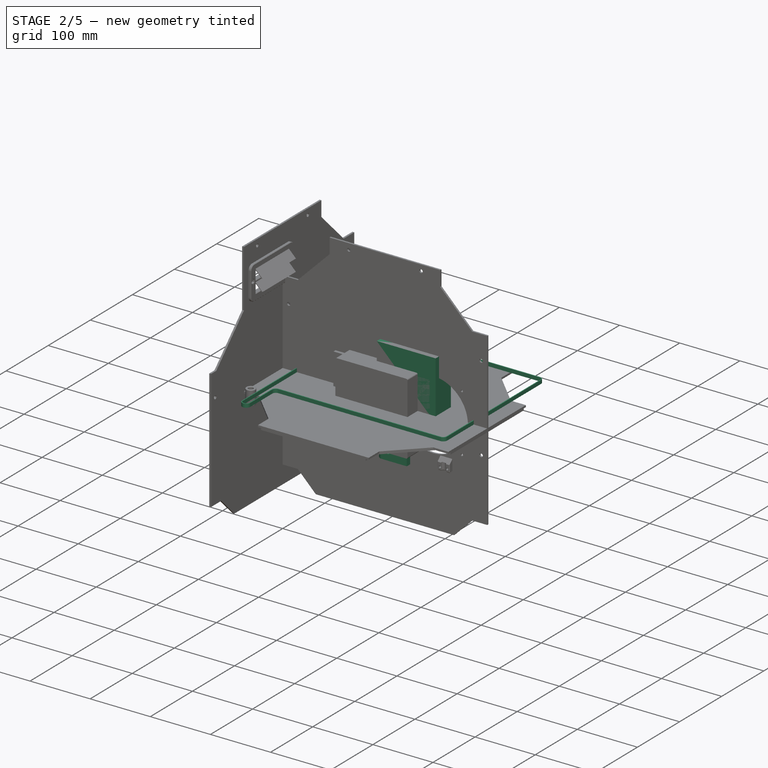
[diagram: stage 2 of 5 — iso view after this stage's code; geometry added in this stage tinted green]
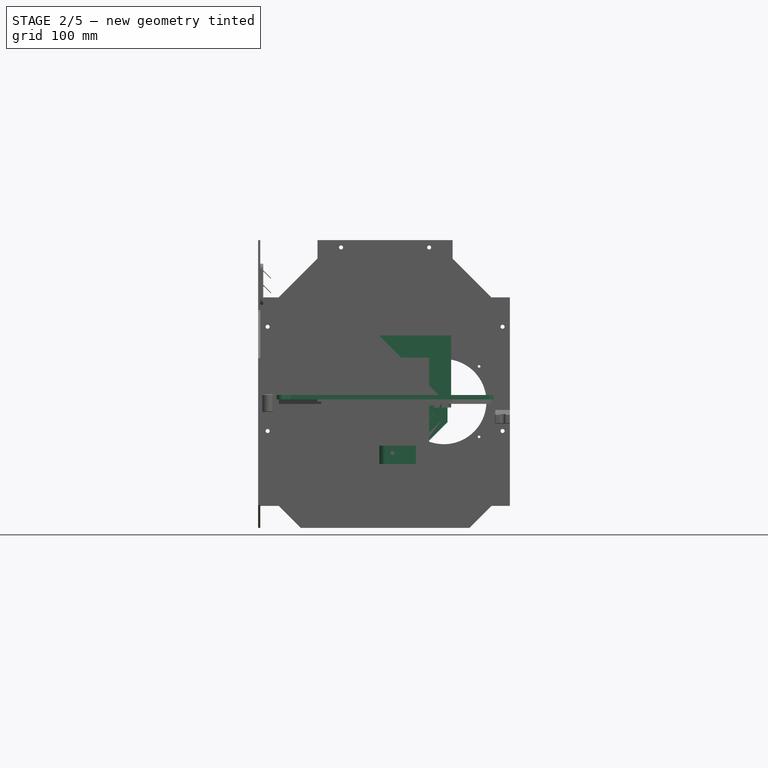
[diagram: stage 2 of 5 — front view after this stage's code; geometry added in this stage tinted green]
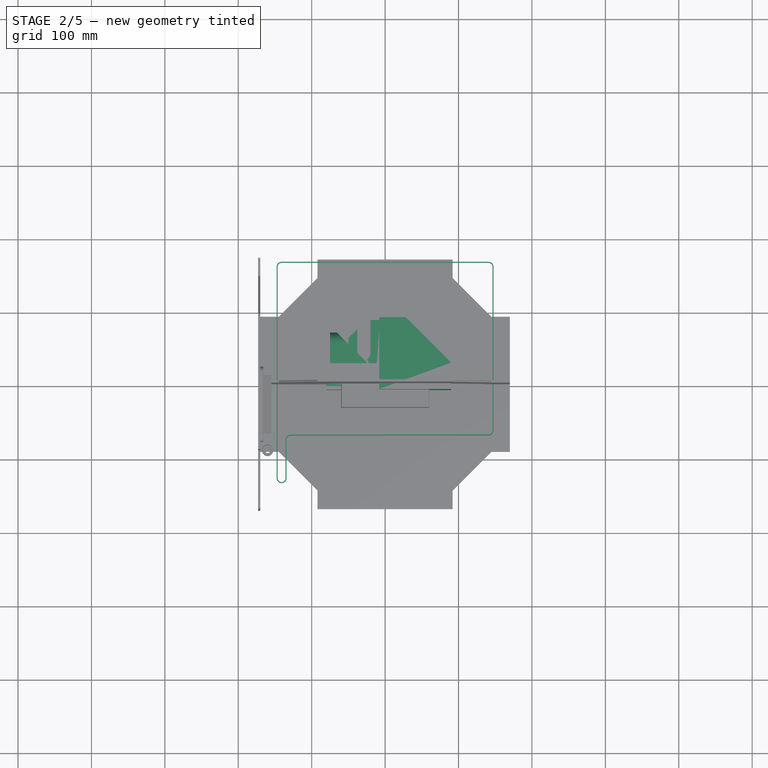
[diagram: stage 2 of 5 — top view after this stage's code; geometry added in this stage tinted green]
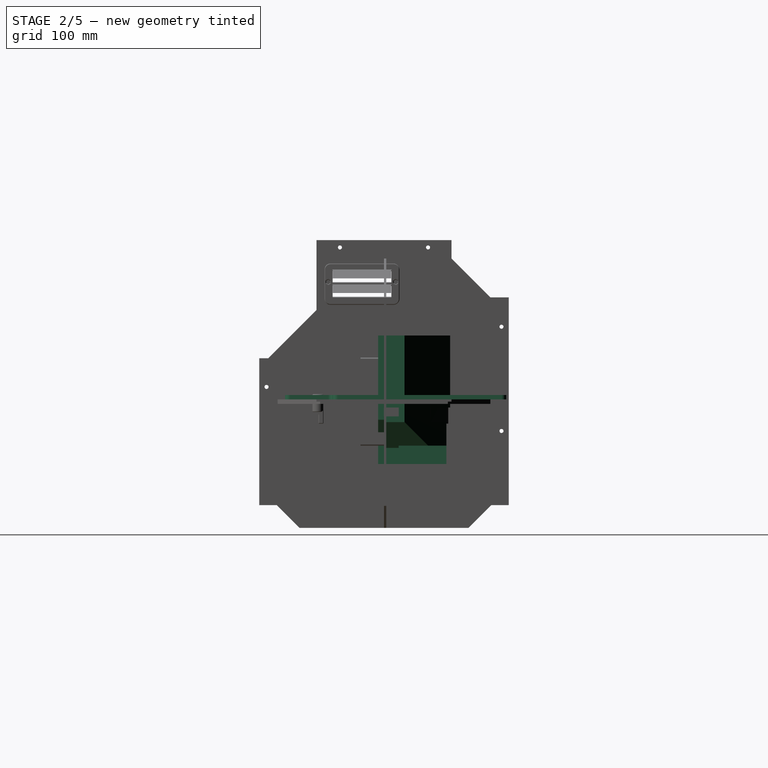
[diagram: stage 2 of 5 — right view after this stage's code; geometry added in this stage tinted green]
FEATURE [App::DocumentObjectGroup] Group016  label="z-motion-front-belts"
  Group = -> [Body095,Part__Mirroring015]
FEATURE [App::Link] Link020  label="z-motion-back-pulley-32t"
  LinkPlacement = pos=(-80,157,35) rot=(0,0,1;1.5708rad)
  LinkedObject = -> <external general/standard-stuff.FCStd>#Body103
  Placement = pos=(-80,157,35) rot=(0,0,1;1.5708rad)
  expr: .Placement.Base.x = -Spreadsheet.side_length / 2 + 90
  expr: .Placement.Base.y = Spreadsheet.side_length / 2 - 13
FEATURE [App::Link] Link021  label="z-motion-front-pulley-32t"
  LinkPlacement = pos=(-80,-115,35) rot=(0,0,1;1.5708rad)
  LinkedObject = -> <external general/standard-stuff.FCStd>#Group001 [Body103.]
  Placement = pos=(-80,-115,35) rot=(0,0,1;1.5708rad)
  expr: .Placement.Base.x = -Spreadsheet.side_length / 2 + 90
  expr: .Placement.Base.y = -Spreadsheet.side_length / 2 + 55
FEATURE [Sketcher::SketchObject] Sketch168
  ArcFitTolerance = 0
  AttachmentSupport = -> [YZ_Plane243]
  FullyConstrained = true
  MakeInternals = false
  MapMode = 5
  Placement = pos=(0,0,0) rot=(0.57735,0.57735,0.57735;2.0944rad)
  expr: Constraints[0] = Spreadsheet.side_length / 2 - 120
  expr: Constraints[13] = -(Spreadsheet.side_length / 2 - 55)
  expr: Constraints[14] = Spreadsheet.side_length / 2 - 13
  sketch-geometry (29):
    g0: Circle [constr] CenterX=-115 CenterY=35 CenterZ=0 NormalX=0 NormalY=0 NormalZ=1 AngleXU=0 Radius=9.93
    g1: Circle [constr] CenterX=157 CenterY=35 CenterZ=0 NormalX=0 NormalY=0 NormalZ=1 AngleXU=0 Radius=9.93
    g2: Circle [constr] CenterX=50 CenterY=25 CenterZ=0 NormalX=0 NormalY=0 NormalZ=1 AngleXU=0 Radius=4.75
    g3: Circle [constr] CenterX=67 CenterY=30 CenterZ=0 NormalX=0 NormalY=0 NormalZ=1 AngleXU=0 Radius=6.5
    g4: Circle [constr] CenterX=33 CenterY=30 CenterZ=0 NormalX=0 NormalY=0 NormalZ=1 AngleXU=0 Radius=6.5
    g5: GeomPoint [constr] X=50 Y=30 Z=0
    g6: ArcOfCircle CenterX=-115 CenterY=35 CenterZ=0 NormalX=0 NormalY=0 NormalZ=1 AngleXU=0 Radius=8.93 StartAngle=1.5708 EndAngle=4.79489
    g7: ArcOfCircle CenterX=-115 CenterY=35 CenterZ=0 NormalX=0 NormalY=0 NormalZ=1 AngleXU=0 Radius=10.68 StartAngle=1.5708 EndAngle=4.79489
    g8: GeomPoint [constr] X=-115 Y=44.93 Z=0
    g9: LineSegment StartX=-114.12 StartY=24.3563 StartZ=0 EndX=32.4643 EndY=36.4779 EndZ=0
    g10: LineSegment StartX=-114.264 StartY=26.1004 StartZ=0 EndX=32.3201 EndY=38.2219 EndZ=0
    g11: ArcOfCircle CenterX=33 CenterY=30 CenterZ=0 NormalX=0 NormalY=0 NormalZ=1 AngleXU=0 Radius=6.5 StartAngle=0.540795 EndAngle=1.6533
    g12: ArcOfCircle CenterX=33 CenterY=30 CenterZ=0 NormalX=0 NormalY=0 NormalZ=1 AngleXU=0 Radius=8.25 StartAngle=0.540795 EndAngle=1.6533
    g13: LineSegment StartX=40.0727 StartY=34.2472 StartZ=0 EndX=46.7851 EndY=23.0694 EndZ=0
    g14: LineSegment StartX=38.5724 StartY=33.3463 StartZ=0 EndX=45.2849 EndY=22.1685 EndZ=0
    g15: ArcOfCircle CenterX=50 CenterY=25 CenterZ=0 NormalX=0 NormalY=0 NormalZ=1 AngleXU=0 Radius=3.75 StartAngle=3.68239 EndAngle=5.74239
    g16: ArcOfCircle CenterX=50 CenterY=25 CenterZ=0 NormalX=0 NormalY=0 NormalZ=1 AngleXU=0 Radius=5.5 StartAngle=3.68239 EndAngle=5.74239
    g17: GeomPoint [constr] X=50 Y=20.25 Z=0
    g18: GeomPoint [constr] X=50 Y=21.25 Z=0
    g19: LineSegment StartX=54.7151 StartY=22.1685 StartZ=0 EndX=61.4276 EndY=33.3463 EndZ=0
    g20: LineSegment StartX=53.2149 StartY=23.0694 StartZ=0 EndX=59.9273 EndY=34.2472 EndZ=0
    g21: ArcOfCircle CenterX=67 CenterY=30 CenterZ=0 NormalX=0 NormalY=0 NormalZ=1 AngleXU=0 Radius=6.5 StartAngle=1.43453 EndAngle=2.6008
    g22: ArcOfCircle CenterX=67 CenterY=30 CenterZ=0 NormalX=0 NormalY=0 NormalZ=1 AngleXU=0 Radius=8.25 StartAngle=1.43453 EndAngle=2.6008
    g23: LineSegment StartX=67.883 StartY=36.4397 StartZ=0 EndX=155.549 EndY=24.419 EndZ=0
    g24: LineSegment StartX=68.1207 StartY=38.1735 StartZ=0 EndX=155.787 EndY=26.1528 EndZ=0
    g25: ArcOfCircle CenterX=157 CenterY=35 CenterZ=0 NormalX=0 NormalY=0 NormalZ=1 AngleXU=0 Radius=8.93 StartAngle=4.57612 EndAngle=7.85398
    g26: ArcOfCircle CenterX=157 CenterY=35 CenterZ=0 NormalX=0 NormalY=0 NormalZ=1 AngleXU=0 Radius=10.68 StartAngle=4.57612 EndAngle=7.85398
    g27: LineSegment StartX=157 StartY=43.93 StartZ=0 EndX=-115 EndY=43.93 EndZ=0
    g28: LineSegment StartX=-115 StartY=45.68 StartZ=0 EndX=157 EndY=45.68 EndZ=0
  constraints (68):
    c: DistanceX(g2) = 50
    c: DistanceY(g2) = 25
    c: Diameter(g2) = 9.5
    c: Symmetric(g3,g4,g5)
    c: Horizontal(g4,g3)
    c: Vertical(g5,g2)
    c: Equal(g4,g3)
    c: DistanceX(g4,g3) = 34
    c: DistanceY(g3) = 30
    c: Diameter(g3) = 13
    c: Horizontal(g1,g0)
    c: DistanceY(g0) = 35
    c: Diameter(g0) = 19.86
    c: DistanceX(g0) = -115
    c: DistanceX(g1) = 157
    c: Equal(g1,g0)
    c: Coincident(g6,g0)
    c: Coincident(g7,g6)
    c: PointOnObject(g8,g0)
    c: Vertical(g6,g8)
    c: Vertical(g8,g7)
    c: Vertical(g7,g6)
    c: DistanceY(g6,g8) = 1
    c: DistanceY(g8,g7) = 0.75
    c: PointOnObject(g9,g4)
    c: Tangent(g9,g4)
    c: Coincident(g11,g4)
    c: Coincident(g11,g9)
    c: Coincident(g12,g11)
    c: Coincident(g15,g2)
    c: Coincident(g16,g15)
    c: Tangent(g10,g6) = -1.5708
    c: Tangent(g9,g7) = -1.5708
    c: Parallel(g10,g9)
    c: Tangent(g12,g10) = 1.5708
    c: Tangent(g13,g12) = 1.5708
    c: Tangent(g14,g11) = 1.5708
    c: Parallel(g14,g13)
    c: Tangent(g15,g13) = -1.5708
    c: Tangent(g16,g14) = -1.5708
    c: PointOnObject(g17,g2)
    c: PointOnObject(g18,g15)
    c: Vertical(g17,g18)
    c: Vertical(g18,g15)
    c: DistanceY(g17,g18) = 1
    c: PointOnObject(g19,g3)
    c: Tangent(g19,g3)
    c: Tangent(g19,g16) = -1.5708
    c: Tangent(g20,g15) = -1.5708
    c: Parallel(g19,g20)
    c: Coincident(g21,g3)
    c: Coincident(g21,g19)
    c: Coincident(g22,g21)
    c: Tangent(g22,g20) = 1.5708
    c: Coincident(g23,g21)
    c: Tangent(g23,g3)
    c: Tangent(g24,g22) = 1.5708
    c: Parallel(g23,g24)
    c: Coincident(g25,g1)
    c: Coincident(g26,g25)
    c: Tangent(g26,g23) = -1.5708
    c: Tangent(g25,g24) = -1.5708
    c: Coincident(g27,g6)
    c: Horizontal(g27)
    c: Coincident(g28,g7)
    c: Coincident(g28,g26)
    c: Horizontal(g28)
    c: Tangent(g27,g25) = -1.5708
FEATURE [PartDesign::Pad] Pad048
  Direction = (1,0,0)
  Length = 6
  Length2 = 10
  Midplane = true
  Placement = pos=(0,0,0) rot=(1,1,1;2.0944rad)
  Profile = -> Sketch168
  ReferenceAxis = -> Sketch168 [N_Axis]
  Suppressed = false
  Type = 0
FEATURE [PartDesign::Body] Body110  label="z-motion-mid-belt"
  AllowCompound = false
  Group = -> [Sketch168,Pad048]
  Origin = -> Origin244
  Placement = pos=(-80,0,0) rot=(0,0,1;0rad)
  Tip = -> Pad048
  expr: .Placement.Base.x = -(Spreadsheet.side_length / 2 - 90)
FEATURE [App::DocumentObjectGroup] Group012  label="mid"
  Group = -> [Link017,Body110]
FEATURE [Sketcher::SketchObject] Sketch011  label="belt-sketch"
  ArcFitTolerance = 0
  AttachmentSupport = -> [XY_Plane021]
  FullyConstrained = true
  MakeInternals = false
  MapMode = 5
  expr: Constraints[5] = -(Spreadsheet.side_length / 2 - 20)
  expr: Constraints[68] = Spreadsheet.x_position
  expr: Constraints[6] = Spreadsheet.side_length / 2 - 20
  expr: Constraints[70] = Spreadsheet.y_position + 30
  sketch-geometry (36):
    g0: Circle [constr] CenterX=-141 CenterY=-128 CenterZ=0 NormalX=0 NormalY=0 NormalZ=1 AngleXU=0 Radius=6.1
    g1: Circle [constr] CenterX=-141 CenterY=-63 CenterZ=0 NormalX=0 NormalY=0 NormalZ=1 AngleXU=0 Radius=6.1
    g2: Circle [constr] CenterX=-141 CenterY=160 CenterZ=0 NormalX=0 NormalY=0 NormalZ=1 AngleXU=0 Radius=6.1
    g3: Circle [constr] CenterX=141 CenterY=-63 CenterZ=0 NormalX=0 NormalY=0 NormalZ=1 AngleXU=0 Radius=6.1
    g4: Circle [constr] CenterX=141 CenterY=160 CenterZ=0 NormalX=0 NormalY=0 NormalZ=1 AngleXU=0 Radius=6.1
    g5: GeomPoint [constr] X=-150 Y=150 Z=0
    g6: GeomPoint [constr] X=-150 Y=-150 Z=0
    g7: GeomPoint [constr] X=-150 Y=-60 Z=0
    g8: LineSegment StartX=-135.65 StartY=-128 StartZ=0 EndX=-135.65 EndY=-76 EndZ=0
    g9: LineSegment StartX=-134.27 StartY=-76 StartZ=0 EndX=-134.27 EndY=-128 EndZ=0
    g10: GeomPoint [constr] X=-134.9 Y=-128 Z=0
    g11: ArcOfCircle CenterX=-128.17 CenterY=-76 CenterZ=0 NormalX=0 NormalY=0 NormalZ=1 AngleXU=0 Radius=6.1 StartAngle=1.5708 EndAngle=3.14159
    g12: ArcOfCircle CenterX=-128.17 CenterY=-76 CenterZ=0 NormalX=0 NormalY=0 NormalZ=1 AngleXU=0 Radius=7.48 StartAngle=1.5708 EndAngle=3.14159
    g13: LineSegment StartX=-128.17 StartY=-69.9 StartZ=0 EndX=0 EndY=-69.9 EndZ=0
    g14: LineSegment StartX=-128.17 StartY=-68.52 StartZ=0 EndX=0 EndY=-68.52 EndZ=0
    g15: LineSegment StartX=0 StartY=-68.52 StartZ=0 EndX=0 EndY=-69.9 EndZ=0
    g16: ArcOfCircle CenterX=-141 CenterY=-128 CenterZ=0 NormalX=0 NormalY=0 NormalZ=1 AngleXU=0 Radius=5.35 StartAngle=3.14159 EndAngle=6.28319
    g17: ArcOfCircle CenterX=-141 CenterY=-128 CenterZ=0 NormalX=0 NormalY=0 NormalZ=1 AngleXU=0 Radius=6.73 StartAngle=3.14159 EndAngle=6.28319
    g18: LineSegment StartX=-146.35 StartY=-128 StartZ=0 EndX=-146.35 EndY=160 EndZ=0
    g19: LineSegment StartX=-147.73 StartY=160 StartZ=0 EndX=-147.73 EndY=-128 EndZ=0
    g20: ArcOfCircle CenterX=-141 CenterY=160 CenterZ=0 NormalX=0 NormalY=0 NormalZ=1 AngleXU=0 Radius=5.35 StartAngle=1.5708 EndAngle=3.14159
    g21: ArcOfCircle CenterX=-141 CenterY=160 CenterZ=0 NormalX=0 NormalY=0 NormalZ=1 AngleXU=0 Radius=6.73 StartAngle=1.5708 EndAngle=3.14159
    g22: LineSegment StartX=-141 StartY=165.35 StartZ=0 EndX=141 EndY=165.35 EndZ=0
    g23: LineSegment StartX=141 StartY=166.73 StartZ=0 EndX=-141 EndY=166.73 EndZ=0
    g24: ArcOfCircle CenterX=141 CenterY=160 CenterZ=0 NormalX=0 NormalY=0 NormalZ=1 AngleXU=0 Radius=5.35 StartAngle=0 EndAngle=1.5708
    g25: ArcOfCircle CenterX=141 CenterY=160 CenterZ=0 NormalX=0 NormalY=0 NormalZ=1 AngleXU=0 Radius=6.73 StartAngle=-1.8e-15 EndAngle=1.5708
    g26: LineSegment StartX=146.35 StartY=160 StartZ=0 EndX=146.35 EndY=-63 EndZ=0
    g27: LineSegment StartX=147.73 StartY=-63 StartZ=0 EndX=147.73 EndY=160 EndZ=0
    g28: ArcOfCircle CenterX=141 CenterY=-63 CenterZ=0 NormalX=0 NormalY=0 NormalZ=1 AngleXU=0 Radius=5.35 StartAngle=4.71239 EndAngle=6.28319
    g29: ArcOfCircle CenterX=141 CenterY=-63 CenterZ=0 NormalX=0 NormalY=0 NormalZ=1 AngleXU=0 Radius=6.73 StartAngle=4.71239 EndAngle=6.28319
    g30: LineSegment StartX=141 StartY=-69.73 StartZ=0 EndX=0 EndY=-69.73 EndZ=0
    g31: LineSegment StartX=0 StartY=-68.35 StartZ=0 EndX=141 EndY=-68.35 EndZ=0
    g32: LineSegment StartX=0 StartY=-68.35 StartZ=0 EndX=0 EndY=-69.73 EndZ=0
    g33: GeomPoint [constr] X=-128.17 Y=-60 Z=0
    g34: Circle [constr] CenterX=-128.17 CenterY=-76 CenterZ=0 NormalX=0 NormalY=0 NormalZ=1 AngleXU=0 Radius=6.1
    g35: GeomPoint [constr] X=-141 Y=-69.1 Z=0
  constraints (84):
    c: Equal(g4,g3)
    c: Equal(g3,g1)
    c: Equal(g1,g2)
    c: Diameter(g0) = 12.2
    c: Symmetric(g2,g4,g-2)
    c: DistanceX(g5) = -150
    c: DistanceY(g5) = 150
    c: DistanceY(g5,g2) = 10
    c: Vertical(g2,g1)
    c: Vertical(g1,g0)
    c: Symmetric(g6,g5,g-1)
    c: DistanceY(g6,g0) = 22
    c: DistanceX(g6,g0) = 9
    c: Vertical(g7,g6)
    c: Symmetric(g3,g1,g-2)
    c: Vertical(g8)
    c: Vertical(g9)
    c: Horizontal(g9,g8)
    c: Horizontal(g8,g0)
    c: PointOnObject(g10,g0)
    c: Horizontal(g10,g0)
    c: DistanceX(g8,g10) = 0.75
    c: DistanceX(g8,g9) = 1.38
    c: Horizontal(g8,g9)
    c: Coincident(g12,g11)
    c: Coincident(g12,g8)
    c: Horizontal(g13)
    c: Horizontal(g14)
    c: Coincident(g15,g14)
    c: Coincident(g15,g13)
    c: Tangent(g14,g12) = 1.5708
    c: Coincident(g16,g0)
    c: Coincident(g16,g8)
    c: Coincident(g17,g16)
    c: Coincident(g17,g9)
    c: Vertical(g18)
    c: Vertical(g19)
    c: Tangent(g18,g16) = 1.5708
    c: Tangent(g19,g17) = -1.5708
    c: Coincident(g20,g2)
    c: Coincident(g21,g20)
    c: Tangent(g20,g18) = 1.5708
    c: Tangent(g21,g19) = -1.5708
    c: Horizontal(g22)
    c: Horizontal(g23)
    c: Tangent(g22,g20) = 1.5708
    c: Tangent(g23,g21) = -1.5708
    c: Coincident(g24,g4)
    c: Coincident(g25,g24)
    c: Tangent(g24,g22) = 1.5708
    c: Tangent(g25,g23) = -1.5708
    c: Vertical(g26)
    c: Vertical(g27)
    c: Tangent(g27,g25) = -1.5708
    c: Tangent(g26,g24) = 1.5708
    c: Coincident(g28,g3)
    c: Coincident(g29,g28)
    c: Tangent(g28,g26) = 1.5708
    c: Tangent(g29,g27) = -1.5708
    c: Horizontal(g30)
    c: Horizontal(g31)
    c: Tangent(g31,g28) = -1.5708
    c: Tangent(g30,g29) = 1.5708
    c: Coincident(g32,g31)
    c: Coincident(g32,g30)
    c: Vertical(g14,g30)
    c: Vertical(g15)
    c: Vertical(g32)
    c: DistanceX(g30) = 0
    c: Horizontal(g7,g33)
    c: DistanceY(g7) = -60
    c: Tangent(g13,g11) = 1.5708
    c: Coincident(g34,g11)
    c: Equal(g34,g1)
    c: Equal(g0,g1)
    c: Tangent(g11,g9) = -1.5708
    c: DistanceX(g7,g11) = 21.83
    c: PointOnObject(g11,g34)
    c: DistanceY(g11,g33) = 16
    c: DistanceY(g1,g33) = 3
    c: PointOnObject(g35,g1)
    c: Vertical(g35,g1)
    c: DistanceY(g11,g35) = 0.8
    c: Vertical(g33,g11)
FEATURE [PartDesign::Pad] Pad040
  Direction = (0,0,1)
  Length = 6
  Length2 = 10
  Midplane = true
  Profile = -> Sketch011
  ReferenceAxis = -> Sketch011 [N_Axis]
  Suppressed = false
  Type = 0
FEATURE [PartDesign::Body] Body153  label="rail-mgn9-250-drv"
  AllowCompound = false
  Group = -> [Sketch467,Pad101]
  Origin = -> Origin293
  Tip = -> Pad101
FEATURE [Sketcher::SketchObject] Sketch468
  ArcFitTolerance = 1e-06
  AttachmentSupport = -> [XZ_Plane293]
  FullyConstrained = true
  MakeInternals = false
  MapMode = 5
  Placement = pos=(0,0,0) rot=(1,0,0;1.5708rad)
  sketch-geometry (8):
    g0: LineSegment StartX=-10 StartY=10 StartZ=0 EndX=-10 EndY=2 EndZ=0
    g1: LineSegment StartX=-10 StartY=2 StartZ=0 EndX=-5 EndY=2 EndZ=0
    g2: LineSegment StartX=10 StartY=2 StartZ=0 EndX=10 EndY=10 EndZ=0
    g3: LineSegment StartX=10 StartY=10 StartZ=0 EndX=-10 EndY=10 EndZ=0
    g4: LineSegment StartX=-5 StartY=2 StartZ=0 EndX=-5 EndY=6.5 EndZ=0
    g5: LineSegment StartX=-5 StartY=6.5 StartZ=0 EndX=5 EndY=6.5 EndZ=0
    g6: LineSegment StartX=5 StartY=6.5 StartZ=0 EndX=5 EndY=2 EndZ=0
    g7: LineSegment StartX=5 StartY=2 StartZ=0 EndX=10 EndY=2 EndZ=0
  constraints (23):
    c: Coincident(g0,g1)
    c: Coincident(g7,g2)
    c: Coincident(g2,g3)
    c: Coincident(g3,g0)
    c: Vertical(g0)
    c: Vertical(g2)
    c: Horizontal(g1)
    c: Symmetric(g2,g0,g-2)
    c: DistanceX(g3,g3) = 20
    c: DistanceY(g2) = 10
    c: DistanceY(g7) = 2
    c: Vertical(g4)
    c: Coincident(g4,g5)
    c: Coincident(g5,g6)
    c: PointOnObject(g6,g7)
    c: Vertical(g6)
    c: Coincident(g1,g4)
    c: PointOnObject(g7,g6)
    c: Symmetric(g5,g4,g-2)
    c: DistanceX(g5,g5) = 10
    c: DistanceY(g5) = 6.5
    c: Horizontal(g7)
    c: Horizontal(g1,g6)
FEATURE [PartDesign::Pad] Pad102
  Direction = (0,-1,2e-16)
  Length = 39
  Length2 = 10
  Midplane = true
  Placement = pos=(0,0,0) rot=(1,0,0;1.5708rad)
  Profile = -> Sketch468
  ReferenceAxis = -> Sketch468 [N_Axis]
  Suppressed = false
  Type = 0
FEATURE [PartDesign::Body] Body154  label="carriage-mgn9h-drv"
  AllowCompound = false
  Group = -> [Sketch468,Pad102]
  Origin = -> Origin294
  Tip = -> Pad102
FEATURE [Part::Feature] Part__Feature553  label="endstop-pcb002"
  shape: bbox 20 x 20 x 2 mm, 12 faces (baked)
FEATURE [Part::Feature] Part__Feature554  label="endstop-switch-body002"
  Placement = pos=(0,0,2) rot=(0,0,1;0rad)
  shape: bbox 14 x 6 x 6 mm, 6 faces (baked)
FEATURE [Part::Feature] Part__Feature555  label="endstop-connector002"
  Placement = pos=(0,0,2) rot=(0,0,1;0rad)
  shape: bbox 10 x 5 x 4 mm, 14 faces (baked)
FEATURE [Part::Feature] Part__Feature556  label="switch-arm002"
  Placement = pos=(0,0,2) rot=(0,0,1;0rad)
  shape: bbox 12 x 3.727 x 3 mm, 6 faces (baked)
FEATURE [App::Part] endstop002  label="endstop-z"
  Group = -> [Part__Feature553,Part__Feature554,Part__Feature555,Part__Feature556]
  Origin = -> Origin312
  Placement = pos=(-155,-70,43) rot=(0.57735,0.57735,0.57735;2.0944rad)
  expr: .Placement.Base.x = -(Spreadsheet.side_length / 2 - 15)
  expr: .Placement.Base.y = -70
FEATURE [App::Link] Link029  label="x-carriage"
  LinkedObject = -> <external xy-gantry/x-carriage.FCStd>#Part
FEATURE [App::Part] Part003  label="x-assembly"
  Group = -> [Link,Link029]
  Origin = -> Origin003
  expr: .Placement.Base.x = Spreadsheet.x_position
FEATURE [App::Link] Link030  label="xy-pulley-left"
  LinkPlacement = pos=(-141,-128,6) rot=(1,0,0;3.14159rad)
  LinkedObject = -> <external general/standard-stuff.FCStd>#Group001 [Body119.]
  Placement = pos=(-141,-128,6) rot=(1,0,0;3.14159rad)
  expr: .Placement.Base.x = -Spreadsheet.side_length / 2 + 29
  expr: .Placement.Base.y = -Spreadsheet.side_length / 2 + 42
FEATURE [App::Link] Link031  label="xy-pulley-right"
  LinkPlacement = pos=(141,-128,-6) rot=(0,0,1;0rad)
  LinkedObject = -> <external general/standard-stuff.FCStd>#Group001 [Body119.]
  Placement = pos=(141,-128,-6) rot=(0,0,1;0rad)
  expr: .Placement.Base.x = Spreadsheet.side_length / 2 - 29
  expr: .Placement.Base.y = -Spreadsheet.side_length / 2 + 42
FEATURE [Sketcher::SketchObject] Sketch480
  ArcFitTolerance = 1e-06
  AttachmentSupport = -> [XY_Plane316]
  FullyConstrained = true
  MakeInternals = false
  MapMode = 5
  sketch-geometry (4):
    g0: LineSegment StartX=-8 StartY=-8 StartZ=0 EndX=90 EndY=-8 EndZ=0
    g1: LineSegment StartX=90 StartY=-8 StartZ=0 EndX=90 EndY=90 EndZ=0
    g2: LineSegment StartX=90 StartY=90 StartZ=0 EndX=-8 EndY=90 EndZ=0
    g3: LineSegment StartX=-8 StartY=90 StartZ=0 EndX=-8 EndY=-8 EndZ=0
  constraints (12):
    c: Coincident(g0,g1)
    c: Coincident(g1,g2)
    c: Coincident(g2,g3)
    c: Coincident(g3,g0)
    c: Horizontal(g0)
    c: Horizontal(g2)
    c: Vertical(g1)
    c: Vertical(g3)
    c: DistanceX(g0) = -8
    c: DistanceY(g0) = -8
    c: DistanceX(g1) = 90
    c: Equal(g1,g2)
FEATURE [PartDesign::Pad] Pad107
  Direction = (0,0,1)
  Length = 90
  Length2 = 8
  Profile = -> Sketch480
  ReferenceAxis = -> Sketch480 [N_Axis]
  Suppressed = false
  Type = 4
FEATURE [Sketcher::SketchObject] Sketch514
  ArcFitTolerance = 1e-06
  AttachmentSupport = -> [XY_Plane316]
  FullyConstrained = true
  MakeInternals = false
  MapMode = 5
  sketch-geometry (3):
    g0: LineSegment StartX=28 StartY=90 StartZ=0 EndX=90 EndY=90 EndZ=0
    g1: LineSegment StartX=90 StartY=90 StartZ=0 EndX=90 EndY=28 EndZ=0
    g2: LineSegment StartX=90 StartY=28 StartZ=0 EndX=28 EndY=90 EndZ=0
  constraints (9):
    c: Horizontal(g0)
    c: Coincident(g0,g1)
    c: Vertical(g1)
    c: Coincident(g1,g2)
    c: Coincident(g2,g0)
    c: Equal(g1,g0)
    c: DistanceX(g0) = 90
    c: DistanceY(g0) = 90
    c: DistanceY(g1) = 28
FEATURE [PartDesign::Pocket] Pocket363
  BaseFeature = -> Pad107
  Direction = (0,0,-1)
  Length = 5
  Length2 = 5
  Midplane = true
  Profile = -> Sketch514
  ReferenceAxis = -> Sketch514 [N_Axis]
  Suppressed = false
  Type = 1
FEATURE [PartDesign::Body] Body186  label="skirt-drv"
  AllowCompound = false
  Group = -> [Sketch529,Pad119,Sketch530,Pocket373,Sketch531,Pocket374]
  Origin = -> Origin338
  Tip = -> Pocket374
FEATURE [Sketcher::SketchObject] Sketch532
  ArcFitTolerance = 1e-06
  AttachmentSupport = -> [XZ_Plane332]
  FullyConstrained = true
  MakeInternals = false
  MapMode = 5
  Placement = pos=(0,0,0) rot=(1,0,0;1.5708rad)
  sketch-geometry (8):
    g0: LineSegment StartX=90 StartY=47 StartZ=0 EndX=54.6863 EndY=47 EndZ=0
    g1: LineSegment StartX=-8 StartY=85 StartZ=0 EndX=90 EndY=85 EndZ=0
    g2: LineSegment StartX=90 StartY=85 StartZ=0 EndX=90 EndY=47 EndZ=0
    g3: GeomPoint X=90 Y=55 Z=0
    g4: GeomPoint X=28 Y=85 Z=0
    g5: LineSegment StartX=54.6863 StartY=47 StartZ=0 EndX=24.6863 EndY=77 EndZ=0
    g6: LineSegment StartX=24.6863 StartY=77 StartZ=0 EndX=-8 EndY=77 EndZ=0
    g7: LineSegment StartX=-8 StartY=77 StartZ=0 EndX=-8 EndY=85 EndZ=0
  constraints (22):
    c: Horizontal(g0)
    c: Horizontal(g1)
    c: Coincident(g1,g2)
    c: Coincident(g2,g0)
    c: Vertical(g2)
    c: DistanceX(g0) = 90
    c: PointOnObject(g3,g2)
    c: DistanceY(g3) = 55
    c: DistanceX(g4) = 28
    c: DistanceY(g0,g3) = 8
    c: Coincident(g0,g5)
    c: Coincident(g5,g6)
    c: Horizontal(g6)
    c: Coincident(g6,g7)
    c: Coincident(g7,g1)
    c: Vertical(g7)
    c: DistanceY(g7,g7) = 8
    c: DistanceY(g1) = 85
    c: Distance(g4,g5) = 8
    c: Angle(g5) = 2.35619
    c: PointOnObject(g4,g1)
    c: DistanceX(g1) = -8
FEATURE [Sketcher::SketchObject] Sketch533
  ArcFitTolerance = 1e-06
  AttachmentSupport = -> [YZ_Plane332]
  FullyConstrained = true
  MakeInternals = false
  MapMode = 5
  Placement = pos=(0,0,0) rot=(0.57735,0.57735,0.57735;2.0944rad)
  sketch-geometry (8):
    g0: LineSegment StartX=0 StartY=85 StartZ=0 EndX=90 EndY=85 EndZ=0
    g1: LineSegment StartX=90 StartY=85 StartZ=0 EndX=90 EndY=47 EndZ=0
    g2: LineSegment StartX=90 StartY=47 StartZ=0 EndX=54.6863 EndY=47 EndZ=0
    g3: LineSegment StartX=54.6863 StartY=47 StartZ=0 EndX=24.6863 EndY=77 EndZ=0
    g4: LineSegment StartX=24.6863 StartY=77 StartZ=0 EndX=0 EndY=77 EndZ=0
    g5: LineSegment StartX=0 StartY=77 StartZ=0 EndX=0 EndY=85 EndZ=0
    g6: GeomPoint X=28 Y=85 Z=0
    g7: GeomPoint X=90 Y=55 Z=0
  constraints (22):
    c: PointOnObject(g0,g-2)
    c: Horizontal(g0)
    c: Coincident(g0,g1)
    c: Vertical(g1)
    c: Coincident(g1,g2)
    c: Horizontal(g2)
    c: Coincident(g2,g3)
    c: Coincident(g3,g4)
    c: PointOnObject(g4,g-2)
    c: Horizontal(g4)
    c: Coincident(g4,g5)
    c: Coincident(g5,g0)
    c: Angle(g3) = 2.35619
    c: DistanceY(g5,g5) = 8
    c: DistanceY(g0) = 85
    c: DistanceX(g1) = 90
    c: PointOnObject(g6,g0)
    c: DistanceX(g6) = 28
    c: Distance(g6,g3) = 8
    c: PointOnObject(g7,g1)
    c: DistanceY(g7) = 55
    c: DistanceY(g1,g7) = 8
FEATURE [PartDesign::FeatureBase] Clone011
  BaseFeature = -> Body186
  Suppressed = false
FEATURE [Sketcher::SketchObject] Sketch535
  ArcFitTolerance = 1e-06
  AttachmentSupport = -> [YZ_Plane339]
  FullyConstrained = true
  MakeInternals = false
  MapMode = 5
  Placement = pos=(0,0,0) rot=(0.57735,0.57735,0.57735;2.0944rad)
  sketch-geometry (4):
    g0: LineSegment StartX=-8 StartY=55 StartZ=0 EndX=-8 EndY=47 EndZ=0
    g1: LineSegment StartX=-8 StartY=47 StartZ=0 EndX=0 EndY=47 EndZ=0
    g2: LineSegment StartX=0 StartY=47 StartZ=0 EndX=0 EndY=55 EndZ=0
    g3: LineSegment StartX=0 StartY=55 StartZ=0 EndX=-8 EndY=55 EndZ=0
  constraints (12):
    c: Coincident(g0,g1)
    c: Coincident(g1,g2)
    c: Coincident(g2,g3)
    c: Coincident(g3,g0)
    c: Vertical(g0)
    c: Vertical(g2)
    c: Horizontal(g1)
    c: Horizontal(g3)
    c: PointOnObject(g1,g-2)
    c: Equal(g3,g0)
    c: DistanceX(g3,g3) = 8
    c: DistanceY(g0) = 55
FEATURE [PartDesign::Pocket] Pocket377
  BaseFeature = -> Clone011
  Direction = (-1,0,0)
  Length = 5
  Length2 = 5
  Midplane = true
  Profile = -> Sketch535
  ReferenceAxis = -> Sketch535 [N_Axis]
  Suppressed = false
  Type = 1
FEATURE [PartDesign::Body] Body184  label="frame-corner-bottom-back-right"
  AllowCompound = false
  Group = -> [Clone009]
  Origin = -> Origin336
  Placement = pos=(170,170,-220) rot=(0,0,1;0rad)
  Tip = -> Clone009
  expr: .Placement.Base.x = Spreadsheet.side_length / 2
  expr: .Placement.Base.y = Spreadsheet.side_length / 2
  expr: .Placement.Base.z = -Spreadsheet.height / 2
FEATURE [Sketcher::SketchObject] Sketch543
  ArcFitTolerance = 1e-06
  AttachmentOffset = pos=(0,0,-66) rot=(0,0,1;0rad)
  AttachmentSupport = -> [YZ_Plane339]
  FullyConstrained = true
  MakeInternals = false
  MapMode = 5
  Placement = pos=(-66,0,0) rot=(0.57735,0.57735,0.57735;2.0944rad)
  sketch-geometry (6):
    g0: LineSegment StartX=24 StartY=50 StartZ=0 EndX=55 EndY=50 EndZ=0
    g1: ArcOfCircle CenterX=55 CenterY=35 CenterZ=0 NormalX=0 NormalY=0 NormalZ=1 AngleXU=0 Radius=15 StartAngle=5.2799 EndAngle=7.85398
    g2: LineSegment StartX=63.063 StartY=22.3514 StartZ=0 EndX=28 EndY=0 EndZ=0
    g3: LineSegment StartX=28 StartY=0 StartZ=0 EndX=24 EndY=0 EndZ=0
    g4: LineSegment StartX=24 StartY=0 StartZ=0 EndX=24 EndY=50 EndZ=0
    g5: GeomPoint X=70 Y=35 Z=0
  constraints (17):
    c: Horizontal(g0)
    c: Tangent(g1,g2) = 1.5708
    c: Coincident(g2,g3)
    c: PointOnObject(g3,g-1)
    c: Horizontal(g3)
    c: Coincident(g3,g4)
    c: Coincident(g4,g0)
    c: Vertical(g4)
    c: DistanceX(g3) = 24
    c: DistanceX(g3,g3) = 4
    c: DistanceY(g0) = 50
    c: Tangent(g1,g0) = 1.5708
    c: Diameter(g1) = 30
    c: DistanceX(g1) = 55
    c: PointOnObject(g5,g1)
    c: Horizontal(g5,g1)
    c: DistanceX(g2,g5) = 42
FEATURE [PartDesign::Pad] Pad120
  BaseFeature = -> Pocket377
  Direction = (1,0,0)
  Length = 42
  Length2 = 9
  Profile = -> Sketch543
  ReferenceAxis = -> Sketch543 [N_Axis]
  Suppressed = false
  Type = 4
FEATURE [Sketcher::SketchObject] Sketch544
  ArcFitTolerance = 1e-06
  AttachmentSupport = -> [XY_Plane339]
  FullyConstrained = true
  MakeInternals = false
  MapMode = 5
  sketch-geometry (3):
    g0: LineSegment StartX=-24 StartY=28 StartZ=0 EndX=-66 EndY=70 EndZ=0
    g1: LineSegment StartX=-66 StartY=70 StartZ=0 EndX=-24 EndY=70 EndZ=0
    g2: LineSegment StartX=-24 StartY=70 StartZ=0 EndX=-24 EndY=28 EndZ=0
  constraints (9):
    c: Coincident(g0,g1)
    c: Horizontal(g1)
    c: Coincident(g1,g2)
    c: Coincident(g2,g0)
    c: Vertical(g2)
    c: DistanceY(g2,g2) = 42
    c: Equal(g1,g2)
    c: DistanceX(g0) = -24
    c: DistanceY(g0) = 28
FEATURE [PartDesign::Pocket] Pocket385
  BaseFeature = -> Pad120
  Direction = (0,0,-1)
  Length = 5
  Length2 = 5
  Midplane = true
  Profile = -> Sketch544
  ReferenceAxis = -> Sketch544 [N_Axis]
  Refine = true
  Suppressed = false
  Type = 1
FEATURE [Sketcher::SketchObject] Sketch545
  ArcFitTolerance = 1e-06
  AttachmentOffset = pos=(0,0,-67) rot=(0,0,1;0rad)
  AttachmentSupport = -> [YZ_Plane339]
  FullyConstrained = true
  MakeInternals = false
  MapMode = 5
  Placement = pos=(-67,0,0) rot=(0.57735,0.57735,0.57735;2.0944rad)
  sketch-geometry (11):
    g0: ArcOfCircle CenterX=55 CenterY=35 CenterZ=0 NormalX=0 NormalY=0 NormalZ=1 AngleXU=0 Radius=11.5 StartAngle=1.69615 EndAngle=3.01624
    g1: ArcOfCircle CenterX=42.2 CenterY=35 CenterZ=0 NormalX=0 NormalY=0 NormalZ=1 AngleXU=0 Radius=2 StartAngle=5.48097 EndAngle=7.0854
    g2: ArcOfCircle CenterX=55 CenterY=47.8 CenterZ=0 NormalX=0 NormalY=0 NormalZ=1 AngleXU=0 Radius=2 StartAngle=3.91018 EndAngle=5.5146
    g3: ArcOfCircle CenterX=67.8 CenterY=35 CenterZ=0 NormalX=0 NormalY=0 NormalZ=1 AngleXU=0 Radius=2 StartAngle=2.33938 EndAngle=3.94381
    g4: ArcOfCircle CenterX=55 CenterY=22.2 CenterZ=0 NormalX=0 NormalY=0 NormalZ=1 AngleXU=0 Radius=2 StartAngle=0.768583 EndAngle=2.37301
    g5: LineSegment [constr] StartX=42.2 StartY=35 StartZ=0 EndX=67.8 EndY=35 EndZ=0
    g6: LineSegment [constr] StartX=55 StartY=47.8 StartZ=0 EndX=55 EndY=22.2 EndZ=0
    g7: ArcOfCircle CenterX=55 CenterY=35 CenterZ=0 NormalX=0 NormalY=0 NormalZ=1 AngleXU=0 Radius=11.5 StartAngle=3.26695 EndAngle=4.58704
    g8: ArcOfCircle CenterX=55 CenterY=35 CenterZ=0 NormalX=0 NormalY=0 NormalZ=1 AngleXU=0 Radius=11.5 StartAngle=0.125354 EndAngle=1.44544
    g9: ArcOfCircle CenterX=55 CenterY=35 CenterZ=0 NormalX=0 NormalY=0 NormalZ=1 AngleXU=0 Radius=11.5 StartAngle=4.83774 EndAngle=6.15783
    g10: GeomPoint [constr] X=65.8 Y=35 Z=0
  constraints (33):
    c: DistanceX(g0) = 55
    c: DistanceY(g0) = 35
    c: Radius(g0) = 11.5
    c: Equal(g1,g2)
    c: Equal(g2,g3)
    c: Equal(g3,g4)
    c: Symmetric(g2,g4,g0)
    c: Symmetric(g1,g3,g0)
    c: Coincident(g5,g1)
    c: Coincident(g5,g3)
    c: Horizontal(g5)
    c: Coincident(g6,g2)
    c: Coincident(g6,g4)
    c: Vertical(g6)
    c: Equal(g6,g5)
    c: Radius(g4) = 2
    c: Coincident(g8,g2)
    c: Coincident(g0,g2)
    c: Equal(g0,g7)
    c: Coincident(g0,g1)
    c: Coincident(g0,g7)
    c: Coincident(g7,g1)
    c: Equal(g7,g8)
    c: Coincident(g9,g3)
    c: Coincident(g7,g8)
    c: Coincident(g8,g3)
    c: Equal(g7,g9)
    c: Coincident(g7,g4)
    c: Coincident(g7,g9)
    c: Coincident(g9,g4)
    c: PointOnObject(g10,g3)
    c: PointOnObject(g10,g5)
    c: DistanceX(g0,g10) = 10.8
FEATURE [PartDesign::Pocket] Pocket386
  BaseFeature = -> Pocket385
  Direction = (-1,0,0)
  Length = 5
  Length2 = 5
  Profile = -> Sketch545
  ReferenceAxis = -> Sketch545 [N_Axis]
  Suppressed = false
  Type = 1
FEATURE [Sketcher::SketchObject] Sketch546
  ArcFitTolerance = 1e-06
  AttachmentSupport = -> [YZ_Plane339]
  FullyConstrained = true
  MakeInternals = false
  MapMode = 5
  Placement = pos=(0,0,0) rot=(0.57735,0.57735,0.57735;2.0944rad)
  sketch-geometry (1):
    g0: Circle CenterX=55 CenterY=35 CenterZ=0 NormalX=0 NormalY=0 NormalZ=1 AngleXU=0 Radius=9
  constraints (3):
    c: DistanceX(g0) = 55
    c: DistanceY(g0) = 35
    c: Diameter(g0) = 18
FEATURE [PartDesign::Pocket] Pocket387
  BaseFeature = -> Pocket386
  Direction = (-1,0,0)
  Length = 5
  Length2 = 5
  Profile = -> Sketch546
  ReferenceAxis = -> Sketch546 [N_Axis]
  Suppressed = false
  Type = 1
FEATURE [PartDesign::Fillet] Fillet014
  Base = -> Pocket387 [Edge57]
  BaseFeature = -> Pocket387
  Radius = 4
  SupportTransform = false
  Suppressed = false
  UseAllEdges = false
FEATURE [PartDesign::Body] Body194  label="z-motion-back-idler-mount"
  AllowCompound = false
  Group = -> [Sketch552,Pad122,Sketch553,Pocket391,Sketch554,Revolution001,Mirrored012,Sketch555,Pocket392,Sketch556,Pocket393,Sketch557,Groove020,Chamfer,Sketch558,Pad123,Pad124]
  Origin = -> Origin346
  Placement = pos=(0,170,420) rot=(0,0,1;0rad)
  Tip = -> Pad124
  expr: .Placement.Base.y = Spreadsheet.side_length / 2
  expr: .Placement.Base.z = Spreadsheet.height - 20
FEATURE [App::DocumentObjectGroup] Group011  label="back"
  Group = -> [Body079,Link020,Link034,Link035,Body193,Body194,Link036]
FEATURE [App::DocumentObjectGroup] Group  label="z-motion"
  Group = -> [Group011,Group010,Group012]
FEATURE [Sketcher::SketchObject] Sketch559
  ArcFitTolerance = 1e-06
  AttachmentSupport = -> [XY_Plane346]
  FullyConstrained = true
  MakeInternals = false
  MapMode = 5
  sketch-geometry (4):
    g0: LineSegment StartX=-8 StartY=85 StartZ=0 EndX=-8 EndY=-8 EndZ=0
    g1: LineSegment StartX=-8 StartY=-8 StartZ=0 EndX=85 EndY=-8 EndZ=0
    g2: LineSegment StartX=85 StartY=-8 StartZ=0 EndX=85 EndY=85 EndZ=0
    g3: LineSegment StartX=85 StartY=85 StartZ=0 EndX=-8 EndY=85 EndZ=0
  constraints (12):
    c: Coincident(g0,g1)
    c: Coincident(g1,g2)
    c: Coincident(g2,g3)
    c: Coincident(g3,g0)
    c: Vertical(g0)
    c: Vertical(g2)
    c: Horizontal(g1)
    c: Horizontal(g3)
    c: DistanceX(g2) = 85
    c: Equal(g3,g0)
    c: DistanceX(g0) = -8
    c: DistanceY(g0) = -8
FEATURE [PartDesign::Pad] Pad125
  Direction = (0,0,1)
  Length = 8
  Length2 = 85
  Profile = -> Sketch559
  ReferenceAxis = -> Sketch559 [N_Axis]
  Suppressed = false
  Type = 4
FEATURE [Sketcher::SketchObject] Sketch560
  ArcFitTolerance = 1e-06
  AttachmentOffset = pos=(0,0,20) rot=(0,0,1;0rad)
  AttachmentSupport = -> [YZ_Plane346]
  FullyConstrained = true
  MakeInternals = false
  MapMode = 5
  Placement = pos=(20,0,0) rot=(0.57735,0.57735,0.57735;2.0944rad)
  expr: Constraints[10] = Spreadsheet.corner_extrusion_pocket
  sketch-geometry (5):
    g0: GeomPoint X=10 Y=-10 Z=0
    g1: LineSegment StartX=-0.1 StartY=0.1 StartZ=0 EndX=-0.1 EndY=-20.1 EndZ=0
    g2: LineSegment StartX=-0.1 StartY=-20.1 StartZ=0 EndX=20.1 EndY=-20.1 EndZ=0
    g3: LineSegment StartX=20.1 StartY=-20.1 StartZ=0 EndX=20.1 EndY=0.1 EndZ=0
    g4: LineSegment StartX=20.1 StartY=0.1 StartZ=0 EndX=-0.1 EndY=0.1 EndZ=0
  constraints (13):
    c: Coincident(g1,g2)
    c: Coincident(g2,g3)
    c: Coincident(g3,g4)
    c: Coincident(g4,g1)
    c: Vertical(g1)
    c: Vertical(g3)
    c: Horizontal(g2)
    c: Horizontal(g4)
    c: Symmetric(g2,g1,g0)
    c: Equal(g4,g3)
    c: DistanceY(g3,g3) = 20.2
    c: DistanceX(g0) = 10
    c: DistanceY(g0) = -10
FEATURE [PartDesign::Pocket] Pocket394
  BaseFeature = -> Pad125
  Direction = (-1,0,0)
  Length = 5
  Length2 = 5
  Profile = -> Sketch560
  ReferenceAxis = -> Sketch560 [N_Axis]
  Reversed = true
  Suppressed = false
  Type = 1
FEATURE [PartDesign::Line] DatumLine003
  AttacherType = Attacher::AttachEngineLine
  AttachmentSupport = -> [Pocket394]
  Length = 20
  MapMode = 29
  Placement = pos=(-9e-16,0,9e-16) rot=(0.345235,0.833472,0.431437;2.78791rad)
  ResizeMode = 0
FEATURE [PartDesign::PolarPattern] PolarPattern010
  Angle = 360
  Axis = -> DatumLine003
  BaseFeature = -> Pocket394
  Mode = 0
  Occurrences = 3
  Offset = 120
  Originals = -> [Pocket394]
  Suppressed = false
  TransformMode = 0
FEATURE [PartDesign::Plane] DatumPlane005
  AttachmentOffset = pos=(0,0,-4) rot=(0,0,1;0rad)
  AttachmentSupport = -> [PolarPattern010]
  Length = 188.996
  MapMode = 13
  Placement = pos=(4.2906,4.2906,-4.2906) rot=(0.345235,0.833472,0.431437;2.78791rad)
  ResizeMode = 0
  Width = 213.062
FEATURE [PartDesign::Pocket] Pocket395
  BaseFeature = -> PolarPattern010
  Direction = (-0.57735,-0.57735,0.57735)
  Length = 5
  Length2 = 5
  Profile = -> DatumPlane005
  Suppressed = false
  Type = 1
FEATURE [Sketcher::SketchObject] Sketch561
  ArcFitTolerance = 1e-06
  AttachmentSupport = -> [XY_Plane346]
  FullyConstrained = true
  MakeInternals = false
  MapMode = 5
  sketch-geometry (3):
    g0: LineSegment StartX=28 StartY=85 StartZ=0 EndX=85 EndY=28 EndZ=0
    g1: LineSegment StartX=85 StartY=28 StartZ=0 EndX=85 EndY=85 EndZ=0
    g2: LineSegment StartX=85 StartY=85 StartZ=0 EndX=28 EndY=85 EndZ=0
  constraints (9):
    c: Coincident(g0,g1)
    c: Vertical(g1)
    c: Coincident(g1,g2)
    c: Coincident(g2,g0)
    c: Horizontal(g2)
    c: DistanceX(g1) = 85
    c: DistanceY(g1) = 85
    c: Angle(g0) = -0.785398
    c: DistanceY(g0) = 28
FEATURE [PartDesign::Pocket] Pocket396
  BaseFeature = -> Pocket395
  Direction = (0,0,-1)
  Length = 5
  Length2 = 5
  Midplane = true
  Profile = -> Sketch561
  ReferenceAxis = -> Sketch561 [N_Axis]
  Suppressed = false
  Type = 1
FEATURE [Sketcher::SketchObject] Sketch562
  ArcFitTolerance = 1e-06
  AttachmentSupport = -> [XY_Plane346]
  FullyConstrained = true
  MakeInternals = false
  MapMode = 5
  sketch-geometry (8):
    g0: LineSegment StartX=-8 StartY=85 StartZ=0 EndX=85 EndY=85 EndZ=0
    g1: LineSegment StartX=85 StartY=85 StartZ=0 EndX=85 EndY=-8 EndZ=0
    g2: LineSegment StartX=85 StartY=-8 StartZ=0 EndX=77 EndY=-8 EndZ=0
    g3: LineSegment StartX=77 StartY=-8 StartZ=0 EndX=77 EndY=24.6863 EndZ=0
    g4: LineSegment StartX=77 StartY=24.6863 StartZ=0 EndX=24.6863 EndY=77 EndZ=0
    g5: LineSegment StartX=24.6863 StartY=77 StartZ=0 EndX=-8 EndY=77 EndZ=0
    g6: LineSegment StartX=-8 StartY=77 StartZ=0 EndX=-8 EndY=85 EndZ=0
    g7: GeomPoint X=28 Y=85 Z=0
  constraints (23):
    c: Horizontal(g0)
    c: Coincident(g0,g1)
    c: Coincident(g1,g2)
    c: Horizontal(g2)
    c: Coincident(g2,g3)
    c: Vertical(g3)
    c: Coincident(g3,g4)
    c: Coincident(g4,g5)
    c: Horizontal(g5)
    c: Coincident(g5,g6)
    c: Coincident(g6,g0)
    c: Vertical(g6)
    c: DistanceX(g0) = 85
    c: DistanceY(g0) = 85
    c: Vertical(g1)
    c: DistanceX(g0) = -8
    c: DistanceY(g1) = -8
    c: Angle(g4) = 2.35619
    c: PointOnObject(g7,g0)
    c: DistanceX(g7) = 28
    c: Distance(g7,g4) = 8
    c: DistanceY(g6,g6) = 8
    c: Equal(g2,g6)
FEATURE [PartDesign::Pocket] Pocket397
  BaseFeature = -> Pocket396
  Direction = (0,0,-1)
  Length = 5
  Length2 = 5
  Profile = -> Sketch562
  ReferenceAxis = -> Sketch562 [N_Axis]
  Reversed = true
  Suppressed = false
  Type = 1
FEATURE [Sketcher::SketchObject] Sketch563
  ArcFitTolerance = 1e-06
  AttachmentSupport = -> [XZ_Plane346]
  FullyConstrained = true
  MakeInternals = false
  MapMode = 5
  Placement = pos=(0,0,0) rot=(1,0,0;1.5708rad)
  sketch-geometry (4):
    g0: LineSegment StartX=85 StartY=-28 StartZ=0 EndX=50 EndY=-63 EndZ=0
    g1: LineSegment StartX=50 StartY=-63 StartZ=0 EndX=50 EndY=-85 EndZ=0
    g2: LineSegment StartX=50 StartY=-85 StartZ=0 EndX=85 EndY=-85 EndZ=0
    g3: LineSegment StartX=85 StartY=-85 StartZ=0 EndX=85 EndY=-28 EndZ=0
  constraints (12):
    c: Coincident(g0,g1)
    c: Vertical(g1)
    c: Coincident(g1,g2)
    c: Horizontal(g2)
    c: Coincident(g2,g3)
    c: Coincident(g3,g0)
    c: Vertical(g3)
    c: DistanceX(g2) = 85
    c: DistanceY(g2) = -85
    c: Angle(g0) = -2.35619
    c: DistanceY(g0) = -28
    c: DistanceX(g1) = 50
FEATURE [PartDesign::Pocket] Pocket398
  BaseFeature = -> Pocket397
  Direction = (0,1,-2e-16)
  Length = 5
  Length2 = 5
  Midplane = true
  Profile = -> Sketch563
  ReferenceAxis = -> Sketch563 [N_Axis]
  Suppressed = false
  Type = 1
FEATURE [PartDesign::Fillet] Fillet015
  Base = -> Pocket398 [Edge21,Edge4,Edge2]
  BaseFeature = -> Pocket398
  Radius = 8
  SupportTransform = false
  Suppressed = false
  UseAllEdges = false
FEATURE [Sketcher::SketchObject] Sketch564
  ArcFitTolerance = 1e-06
  AttachmentSupport = -> [XZ_Plane346]
  FullyConstrained = true
  MakeInternals = false
  MapMode = 5
  Placement = pos=(0,0,0) rot=(1,0,0;1.5708rad)
  sketch-geometry (8):
    g0: LineSegment StartX=42 StartY=-85 StartZ=0 EndX=42 EndY=-59.6863 EndZ=0
    g1: LineSegment StartX=42 StartY=-59.6863 StartZ=0 EndX=77 EndY=-24.6863 EndZ=0
    g2: LineSegment StartX=77 StartY=-24.6863 StartZ=0 EndX=77 EndY=0 EndZ=0
    g3: LineSegment StartX=77 StartY=0 StartZ=0 EndX=85 EndY=0 EndZ=0
    g4: LineSegment StartX=85 StartY=0 StartZ=0 EndX=85 EndY=-85 EndZ=0
    g5: LineSegment StartX=85 StartY=-85 StartZ=0 EndX=42 EndY=-85 EndZ=0
    g6: GeomPoint X=85 Y=-28 Z=0
    g7: GeomPoint X=50 Y=-85 Z=0
  constraints (22):
    c: Vertical(g0)
    c: Coincident(g0,g1)
    c: Coincident(g1,g2)
    c: PointOnObject(g2,g-1)
    c: Vertical(g2)
    c: Coincident(g2,g3)
    c: PointOnObject(g3,g-1)
    c: Coincident(g3,g4)
    c: Vertical(g4)
    c: Coincident(g4,g5)
    c: Coincident(g5,g0)
    c: Horizontal(g5)
    c: DistanceY(g4) = -85
    c: DistanceX(g4) = 85
    c: DistanceX(g3,g3) = 8
    c: PointOnObject(g6,g4)
    c: DistanceY(g6) = -28
    c: Angle(g1) = 0.785398
    c: Distance(g6,g1) = 8
    c: PointOnObject(g7,g5)
    c: DistanceX(g7) = 50
    c: DistanceX(g0,g7) = 8
FEATURE [PartDesign::Pocket] Pocket399
  BaseFeature = -> Fillet015
  Direction = (0,1,-2e-16)
  Length = 5
  Length2 = 5
  Profile = -> Sketch564
  ReferenceAxis = -> Sketch564 [N_Axis]
  Refine = true
  Reversed = true
  Suppressed = false
  Type = 1
FEATURE [Sketcher::SketchObject] Sketch565
  ArcFitTolerance = 1e-06
  AttachmentSupport = -> [YZ_Plane346]
  FullyConstrained = true
  MakeInternals = false
  MapMode = 5
  Placement = pos=(0,0,0) rot=(0.57735,0.57735,0.57735;2.0944rad)
  sketch-geometry (4):
    g0: LineSegment StartX=77 StartY=0 StartZ=0 EndX=77 EndY=-85 EndZ=0
    g1: LineSegment StartX=77 StartY=-85 StartZ=0 EndX=85 EndY=-85 EndZ=0
    g2: LineSegment StartX=85 StartY=-85 StartZ=0 EndX=85 EndY=0 EndZ=0
    g3: LineSegment StartX=85 StartY=0 StartZ=0 EndX=77 EndY=0 EndZ=0
  constraints (12):
    c: Coincident(g0,g1)
    c: Coincident(g1,g2)
    c: Coincident(g2,g3)
    c: Coincident(g3,g0)
    c: Vertical(g0)
    c: Vertical(g2)
    c: Horizontal(g1)
    c: Horizontal(g3)
    c: PointOnObject(g0,g-1)
    c: DistanceX(g1) = 85
    c: DistanceY(g1) = -85
    c: DistanceX(g1,g1) = 8
FEATURE [PartDesign::Pocket] Pocket400
  BaseFeature = -> Pocket399
  Direction = (-1,0,0)
  Length = 5
  Length2 = 5
  Profile = -> Sketch565
  ReferenceAxis = -> Sketch565 [N_Axis]
  Suppressed = false
  Type = 1
FEATURE [Sketcher::SketchObject] Sketch566
  ArcFitTolerance = 1e-06
  AttachmentSupport = -> [XZ_Plane346]
  FullyConstrained = true
  MakeInternals = false
  MapMode = 5
  Placement = pos=(0,0,0) rot=(1,0,0;1.5708rad)
  sketch-geometry (4):
    g0: Circle CenterX=30 CenterY=-10 CenterZ=0 NormalX=0 NormalY=0 NormalZ=1 AngleXU=0 Radius=2.75
    g1: Circle CenterX=70 CenterY=-10 CenterZ=0 NormalX=0 NormalY=0 NormalZ=1 AngleXU=0 Radius=2.75
    g2: Circle CenterX=10 CenterY=-30 CenterZ=0 NormalX=0 NormalY=0 NormalZ=1 AngleXU=0 Radius=2.75
    g3: Circle CenterX=10 CenterY=-70 CenterZ=0 NormalX=0 NormalY=0 NormalZ=1 AngleXU=0 Radius=2.75
  constraints (12):
    c: Vertical(g3,g2)
    c: Horizontal(g0,g1)
    c: Equal(g1,g0)
    c: Equal(g0,g2)
    c: Equal(g2,g3)
    c: DistanceY(g3) = -70
    c: DistanceY(g2) = -30
    c: DistanceX(g2) = 10
    c: DistanceX(g0) = 30
    c: DistanceX(g1) = 70
    c: Diameter(g1) = 5.5
    c: DistanceY(g0) = -10
FEATURE [PartDesign::Pocket] Pocket401
  BaseFeature = -> Pocket400
  Direction = (0,1,-2e-16)
  Length = 5
  Length2 = 5
  Profile = -> Sketch566
  ReferenceAxis = -> Sketch566 [N_Axis]
  Reversed = true
  Suppressed = false
  Type = 1
FEATURE [Sketcher::SketchObject] Sketch567
  ArcFitTolerance = 1e-06
  AttachmentOffset = pos=(0,0,4) rot=(0,0,1;0rad)
  AttachmentSupport = -> [XZ_Plane346]
  FullyConstrained = true
  MakeInternals = false
  MapMode = 5
  Placement = pos=(0,-4,9e-16) rot=(1,0,0;1.5708rad)
  sketch-geometry (4):
    g0: Circle CenterX=30 CenterY=-10 CenterZ=0 NormalX=0 NormalY=0 NormalZ=1 AngleXU=0 Radius=5
    g1: Circle CenterX=70 CenterY=-10 CenterZ=0 NormalX=0 NormalY=0 NormalZ=1 AngleXU=0 Radius=5
    g2: Circle CenterX=10 CenterY=-30 CenterZ=0 NormalX=0 NormalY=0 NormalZ=1 AngleXU=0 Radius=5
    g3: Circle CenterX=10 CenterY=-70 CenterZ=0 NormalX=0 NormalY=0 NormalZ=1 AngleXU=0 Radius=5
  constraints (12):
    c: Vertical(g3,g2)
    c: Horizontal(g1,g0)
    c: DistanceX(g0) = 30
    c: DistanceX(g1) = 70
    c: DistanceY(g2) = -30
    c: DistanceY(g3) = -70
    c: Equal(g2,g3)
    c: Equal(g3,g1)
    c: Equal(g1,g0)
    c: DistanceX(g3) = 10
    c: DistanceY(g1) = -10
    c: Diameter(g3) = 10
FEATURE [PartDesign::Pocket] Pocket402
  BaseFeature = -> Pocket401
  Direction = (0,1,-2e-16)
  Length = 5
  Length2 = 5
  Profile = -> Sketch567
  ReferenceAxis = -> Sketch567 [N_Axis]
  Reversed = true
  Suppressed = false
  Type = 1
FEATURE [PartDesign::PolarPattern] PolarPattern011
  Angle = 360
  Axis = -> DatumLine003
  BaseFeature = -> Pocket402
  Mode = 0
  Occurrences = 3
  Offset = 120
  Originals = -> [Pocket402,Pocket401]
  Refine = true
  Suppressed = false
  TransformMode = 0
FEATURE [Sketcher::SketchObject] Sketch570
  ArcFitTolerance = 1e-06
  AttachmentOffset = pos=(0,0,-60) rot=(0,0,1;0rad)
  AttachmentSupport = -> [XY_Plane346]
  FullyConstrained = true
  MakeInternals = false
  MapMode = 5
  Placement = pos=(0,0,-60) rot=(0,0,1;0rad)
  sketch-geometry (9):
    g0: LineSegment [constr] StartX=7 StartY=64 StartZ=0 EndX=7 EndY=20 EndZ=0
    g1: LineSegment [constr] StartX=7 StartY=20 StartZ=0 EndX=51 EndY=20 EndZ=0
    g2: LineSegment [constr] StartX=51 StartY=20 StartZ=0 EndX=51 EndY=64 EndZ=0
    g3: LineSegment [constr] StartX=51 StartY=64 StartZ=0 EndX=7 EndY=64 EndZ=0
    g4: GeomPoint X=29 Y=42 Z=0
    g5: LineSegment StartX=80 StartY=90 StartZ=0 EndX=80 EndY=20 EndZ=0
    g6: LineSegment StartX=80 StartY=20 StartZ=0 EndX=7 EndY=20 EndZ=0
    g7: LineSegment StartX=7 StartY=20 StartZ=0 EndX=7 EndY=90 EndZ=0
    g8: LineSegment StartX=7 StartY=90 StartZ=0 EndX=80 EndY=90 EndZ=0
  constraints (24):
    c: Coincident(g0,g1)
    c: Coincident(g1,g2)
    c: Coincident(g2,g3)
    c: Coincident(g3,g0)
    c: Vertical(g0)
    c: Vertical(g2)
    c: Horizontal(g1)
    c: Horizontal(g3)
    c: Symmetric(g2,g0,g4)
    c: Equal(g2,g3)
    c: DistanceX(g3,g3) = 44
    c: DistanceX(g4) = 29
    c: DistanceY(g4) = 42
    c: Vertical(g5)
    c: DistanceX(g5) = 80
    c: Coincident(g5,g6)
    c: Coincident(g6,g0)
    c: Horizontal(g6)
    c: Coincident(g6,g7)
    c: Vertical(g7)
    c: Coincident(g7,g8)
    c: Horizontal(g8)
    c: Coincident(g5,g8)
    c: DistanceY(g7) = 90
FEATURE [PartDesign::Pocket] Pocket405
  BaseFeature = -> PolarPattern011
  Direction = (0,0,-1)
  Length = 5
  Length2 = 5
  Profile = -> Sketch570
  ReferenceAxis = -> Sketch570 [N_Axis]
  Suppressed = false
  Type = 1
FEATURE [Sketcher::SketchObject] Sketch631
  ArcFitTolerance = 1e-06
  AttachmentSupport = -> [YZ_Plane319]
  FullyConstrained = true
  MakeInternals = false
  MapMode = 5
  Placement = pos=(0,0,0) rot=(0.57735,0.57735,0.57735;2.0944rad)
  sketch-geometry (4):
    g0: LineSegment StartX=80 StartY=-18 StartZ=0 EndX=80 EndY=-30 EndZ=0
    g1: LineSegment StartX=80 StartY=-30 StartZ=0 EndX=87.5 EndY=-30 EndZ=0
    g2: LineSegment StartX=87.5 StartY=-30 StartZ=0 EndX=87.5 EndY=-10.5 EndZ=0
    g3: LineSegment StartX=87.5 StartY=-10.5 StartZ=0 EndX=80 EndY=-18 EndZ=0
  constraints (12):
    c: Coincident(g0,g1)
    c: Coincident(g1,g2)
    c: Coincident(g2,g3)
    c: Coincident(g3,g0)
    c: Vertical(g0)
    c: Vertical(g2)
    c: Horizontal(g1)
    c: DistanceX(g1) = 87.5
    c: DistanceY(g1) = -30
    c: DistanceX(g1,g1) = 7.5
    c: DistanceY(g0,g0) = 12
    c: Angle(g3) = -2.35619
FEATURE [PartDesign::Pocket] Pocket454
  BaseFeature = -> Pocket453
  Direction = (-1,0,0)
  Length = 20
  Length2 = 5
  Profile = -> Sketch631
  ReferenceAxis = -> Sketch631 [N_Axis]
  Reversed = true
  Suppressed = false
  Type = 0
FEATURE [Sketcher::SketchObject] Sketch632
  ArcFitTolerance = 1e-06
  AttachmentOffset = pos=(0,0,-80) rot=(0,0,1;0rad)
  AttachmentSupport = -> [XZ_Plane319]
  FullyConstrained = true
  MakeInternals = false
  MapMode = 5
  Placement = pos=(0,80,-1.78e-14) rot=(1,0,0;1.5708rad)
  sketch-geometry (3):
    g0: Circle CenterX=4 CenterY=-25 CenterZ=0 NormalX=0 NormalY=0 NormalZ=1 AngleXU=0 Radius=1.75
    g1: Circle CenterX=16 CenterY=-25 CenterZ=0 NormalX=0 NormalY=0 NormalZ=1 AngleXU=0 Radius=1.75
    g2: GeomPoint [constr] X=10 Y=-25 Z=0
  constraints (7):
    c: Symmetric(g0,g1,g2)
    c: Horizontal(g0,g1)
    c: Diameter(g1) = 3.5
    c: DistanceY(g2) = -25
    c: DistanceX(g0) = 4
    c: DistanceX(g2) = 10
    c: Equal(g0,g1)
FEATURE [PartDesign::Pocket] Pocket455
  BaseFeature = -> Pocket454
  Direction = (0,1,-2e-16)
  Length = 12
  Length2 = 5
  Profile = -> Sketch632
  ReferenceAxis = -> Sketch632 [N_Axis]
  Reversed = true
  Suppressed = false
  Type = 0
FEATURE [Sketcher::SketchObject] Sketch633
  ArcFitTolerance = 1e-06
  AttachmentOffset = pos=(0,0,-74) rot=(0,0,1;0rad)
  AttachmentSupport = -> [XZ_Plane319]
  FullyConstrained = true
  MakeInternals = false
  MapMode = 5
  Placement = pos=(0,74,-1.64e-14) rot=(1,0,0;1.5708rad)
  sketch-geometry (23):
    g0: Circle [constr] CenterX=4 CenterY=-25 CenterZ=0 NormalX=0 NormalY=0 NormalZ=1 AngleXU=0 Radius=1.75
    g1: Circle [constr] CenterX=16 CenterY=-25 CenterZ=0 NormalX=0 NormalY=0 NormalZ=1 AngleXU=0 Radius=1.75
    g2: GeomPoint [constr] X=10 Y=-25 Z=0
    g3: LineSegment StartX=4 StartY=-21.8246 StartZ=0 EndX=1.25 EndY=-23.4123 EndZ=0
    g4: LineSegment StartX=1.25 StartY=-23.4123 StartZ=0 EndX=1.25 EndY=-26.5877 EndZ=0
    g5: LineSegment [constr] StartX=1.25 StartY=-26.5877 StartZ=0 EndX=4 EndY=-28.1754 EndZ=0
    g6: LineSegment [constr] StartX=4 StartY=-28.1754 StartZ=0 EndX=6.75 EndY=-26.5877 EndZ=0
    g7: LineSegment StartX=6.75 StartY=-26.5877 StartZ=0 EndX=6.75 EndY=-23.4123 EndZ=0
    g8: LineSegment StartX=6.75 StartY=-23.4123 StartZ=0 EndX=4 EndY=-21.8246 EndZ=0
    g9: Circle [constr] CenterX=4 CenterY=-25 CenterZ=0 NormalX=0 NormalY=0 NormalZ=1 AngleXU=0 Radius=3.17543
    g10: LineSegment StartX=16 StartY=-21.8246 StartZ=0 EndX=13.25 EndY=-23.4123 EndZ=0
    g11: LineSegment StartX=13.25 StartY=-23.4123 StartZ=0 EndX=13.25 EndY=-26.5877 EndZ=0
    g12: LineSegment [constr] StartX=13.25 StartY=-26.5877 StartZ=0 EndX=16 EndY=-28.1754 EndZ=0
    g13: LineSegment [constr] StartX=16 StartY=-28.1754 StartZ=0 EndX=18.75 EndY=-26.5877 EndZ=0
    g14: LineSegment StartX=18.75 StartY=-26.5877 StartZ=0 EndX=18.75 EndY=-23.4123 EndZ=0
    g15: LineSegment StartX=18.75 StartY=-23.4123 StartZ=0 EndX=16 EndY=-21.8246 EndZ=0
    g16: Circle [constr] CenterX=16 CenterY=-25 CenterZ=0 NormalX=0 NormalY=0 NormalZ=1 AngleXU=0 Radius=3.17543
    g17: LineSegment StartX=1.25 StartY=-26.5877 StartZ=0 EndX=1.25 EndY=-30 EndZ=0
    g18: LineSegment StartX=1.25 StartY=-30 StartZ=0 EndX=6.75 EndY=-30 EndZ=0
    g19: LineSegment StartX=6.75 StartY=-30 StartZ=0 EndX=6.75 EndY=-26.5877 EndZ=0
    g20: LineSegment StartX=13.25 StartY=-26.5877 StartZ=0 EndX=13.25 EndY=-30 EndZ=0
    g21: LineSegment StartX=13.25 StartY=-30 StartZ=0 EndX=18.75 EndY=-30 EndZ=0
    g22: LineSegment StartX=18.75 StartY=-30 StartZ=0 EndX=18.75 EndY=-26.5877 EndZ=0
  constraints (55):
    c: Symmetric(g0,g1,g2)
    c: Horizontal(g0,g1)
    c: Diameter(g1) = 3.5
    c: DistanceY(g2) = -25
    c: DistanceX(g0) = 4
    c: DistanceX(g2) = 10
    c: Equal(g0,g1)
    c: Coincident(g3,g4)
    c: Coincident(g4,g5)
    c: Coincident(g5,g6)
    c: Coincident(g6,g7)
    c: Coincident(g7,g8)
    c: Coincident(g8,g3)
    c: Equal(g3, g4-g8) x5
    c: PointOnObject(g3,g9)
    c: PointOnObject(g4,g9)
    c: PointOnObject(g5,g9)
    c: PointOnObject(g6,g9)
    c: PointOnObject(g7,g9)
    c: PointOnObject(g8,g9)
    c: Coincident(g9,g0)
    c: Coincident(g10,g11)
    c: Coincident(g11,g12)
    c: Coincident(g12,g13)
    c: Coincident(g13,g14)
    c: Coincident(g14,g15)
    c: Coincident(g15,g10)
    c: Equal(g10, g11-g15) x5
    c: PointOnObject(g10,g16)
    c: PointOnObject(g11,g16)
    c: PointOnObject(g12,g16)
    c: PointOnObject(g13,g16)
    c: PointOnObject(g14,g16)
    c: PointOnObject(g15,g16)
    c: Coincident(g16,g1)
    c: Equal(g9,g16)
    c: Vertical(g7)
    c: Vertical(g11)
    c: DistanceX(g11,g13) = 5.5
    c: Coincident(g4,g17)
    c: Vertical(g17)
    c: Coincident(g17,g18)
    c: Horizontal(g18)
    c: Coincident(g18,g19)
    c: Coincident(g19,g6)
    c: Vertical(g19)
    c: Coincident(g11,g20)
    c: Vertical(g20)
    c: Coincident(g20,g21)
    c: Horizontal(g21)
    c: Coincident(g21,g22)
    c: Coincident(g22,g13)
    c: Vertical(g22)
    c: Horizontal(g20,g18)
    c: DistanceY(g17) = -30
FEATURE [PartDesign::Pocket] Pocket456
  BaseFeature = -> Pocket455
  Direction = (0,1,-2e-16)
  Length = 3.5
  Length2 = 5
  Profile = -> Sketch633
  ReferenceAxis = -> Sketch633 [N_Axis]
  Refine = true
  Reversed = true
  Suppressed = false
  Type = 0
FEATURE [Sketcher::SketchObject] Sketch634
  ArcFitTolerance = 1e-06
  AttachmentOffset = pos=(0,0,-68) rot=(0,0,1;0rad)
  AttachmentSupport = -> [XZ_Plane319]
  FullyConstrained = true
  MakeInternals = false
  MapMode = 5
  Placement = pos=(0,68,-1.51e-14) rot=(1,0,0;1.5708rad)
  expr: Constraints[2] = Spreadsheet.linear_rod_pocket
  sketch-geometry (1):
    g0: Circle CenterX=10 CenterY=0 CenterZ=0 NormalX=0 NormalY=0 NormalZ=1 AngleXU=0 Radius=4.15
  constraints (3):
    c: PointOnObject(g0,g-1)
    c: DistanceX(g0) = 10
    c: Diameter(g0) = 8.3
FEATURE [PartDesign::Pocket] Pocket457
  BaseFeature = -> Pocket456
  Direction = (0,1,-2e-16)
  Length = 5
  Length2 = 5
  Profile = -> Sketch634
  ReferenceAxis = -> Sketch634 [N_Axis]
  Refine = true
  Suppressed = false
  Type = 1
FEATURE [PartDesign::Body] Body183  label="frame-corner-bottom-back-left"
  AllowCompound = false
  Group = -> [Clone008,Sketch626,Groove023,Sketch627,Pocket450,Sketch646,Pocket467,Sketch647,Pocket468]
  Origin = -> Origin335
  Placement = pos=(-170,170,-220) rot=(0,0,1;0rad)
  Tip = -> Pocket468
  expr: .Placement.Base.x = -Spreadsheet.side_length / 2
  expr: .Placement.Base.y = Spreadsheet.side_length / 2
  expr: .Placement.Base.z = -Spreadsheet.height / 2
FEATURE [App::DocumentObjectGroup] Group033  label="bottom"
  Group = -> [Body172,Body182,Body183,Body184]
FEATURE [PartDesign::Chamfer] Chamfer027
  Angle = 45
  Base = -> Fillet014 [Face9]
  BaseFeature = -> Fillet014
  ChamferType = 0
  FlipDirection = false
  Refine = true
  Size = 1
  Size2 = 1
  SupportTransform = false
  Suppressed = false
  UseAllEdges = false
FEATURE [Sketcher::SketchObject] Sketch648
  ArcFitTolerance = 1e-06
  AttachmentOffset = pos=(0,35,-55) rot=(0,0,1;0rad)
  AttachmentSupport = -> [XZ_Plane339]
  FullyConstrained = true
  MakeInternals = false
  MapMode = 5
  Placement = pos=(0,55,35) rot=(1,0,0;1.5708rad)
  sketch-geometry (3):
    g0: LineSegment StartX=-75 StartY=-12 StartZ=0 EndX=-75 EndY=-10 EndZ=0
    g1: LineSegment StartX=-75 StartY=-10 StartZ=0 EndX=-73 EndY=-10 EndZ=0
    g2: LineSegment StartX=-73 StartY=-10 StartZ=0 EndX=-75 EndY=-12 EndZ=0
  constraints (9):
    c: Vertical(g0)
    c: Coincident(g0,g1)
    c: Horizontal(g1)
    c: Coincident(g1,g2)
    c: Coincident(g2,g0)
    c: Equal(g1,g0)
    c: DistanceX(g1,g1) = 2
    c: DistanceY(g0) = -10
    c: DistanceX(g0) = -75
FEATURE [PartDesign::Groove] Groove026
  Angle = 360
  Angle2 = 60
  Axis = (1,0,0)
  Base = (0,55,35)
  BaseFeature = -> Chamfer027
  Profile = -> Sketch648
  ReferenceAxis = -> Sketch648 [H_Axis]
  Refine = true
  Suppressed = false
  Type = 0
FEATURE [PartDesign::FeatureBase] Clone016
  BaseFeature = -> Body021
  Placement = pos=(0,0,6) rot=(0,0,1;0rad)
  Suppressed = false
FEATURE [PartDesign::Body] Body203  label="xy-belt-2"
  AllowCompound = false
  Group = -> [Clone016]
  Origin = -> Origin355
  Placement = pos=(0,0,0) rot=(0,1,0;3.14159rad)
  Tip = -> Clone016
FEATURE [Sketcher::SketchObject] Sketch649
  ArcFitTolerance = 1e-06
  AttachmentOffset = pos=(0,0,10) rot=(0,0,1;0rad)
  AttachmentSupport = -> [XY_Plane339]
  FullyConstrained = true
  MakeInternals = false
  MapMode = 5
  Placement = pos=(0,0,10) rot=(0,0,1;0rad)
  sketch-geometry (6):
    g0: LineSegment StartX=-24 StartY=20 StartZ=0 EndX=-21.25 EndY=20 EndZ=0
    g1: LineSegment StartX=-21.25 StartY=20 StartZ=0 EndX=-21.25 EndY=24 EndZ=0
    g2: LineSegment StartX=-21.25 StartY=24 StartZ=0 EndX=-19 EndY=24 EndZ=0
    g3: LineSegment StartX=-19 StartY=24 StartZ=0 EndX=-19 EndY=40 EndZ=0
    g4: LineSegment StartX=-19 StartY=40 StartZ=0 EndX=-24 EndY=40 EndZ=0
    g5: LineSegment StartX=-24 StartY=40 StartZ=0 EndX=-24 EndY=20 EndZ=0
  constraints (18):
    c: Horizontal(g0)
    c: Coincident(g0,g1)
    c: Vertical(g1)
    c: Coincident(g1,g2)
    c: Horizontal(g2)
    c: Coincident(g2,g3)
    c: Vertical(g3)
    c: Coincident(g3,g4)
    c: Horizontal(g4)
    c: Coincident(g4,g5)
    c: Coincident(g5,g0)
    c: Vertical(g5)
    c: DistanceX(g0,g0) = 2.75
    c: DistanceX(g4,g4) = 5
    c: DistanceY(g0) = 20
    c: DistanceY(g1,g1) = 4
    c: DistanceX(g0) = -24
    c: DistanceY(g3) = 40
FEATURE [PartDesign::Groove] Groove027
  Angle = 360
  Angle2 = 60
  Axis = (0,-1,0)
  Base = (-24,40,10)
  BaseFeature = -> Groove026
  Profile = -> Sketch649
  ReferenceAxis = -> Sketch649 [Edge6]
  Refine = true
  Reversed = true
  Suppressed = false
  Type = 0
FEATURE [PartDesign::Body] Body188  label="skirt-front"
  AllowCompound = false
  Group = -> [Clone011,Sketch535,Pocket377,Sketch543,Pad120,Sketch544,Pocket385,Sketch545,Pocket386,Sketch546,Pocket387,Fillet014,Chamfer027,Sketch648,Groove026,Sketch649,Groove027]
  Origin = -> Origin340
  Placement = pos=(0,-170,-220) rot=(0,0,1;0rad)
  Tip = -> Groove027
  expr: .Placement.Base.y = -Spreadsheet.side_length / 2
  expr: .Placement.Base.z = -Spreadsheet.height / 2
FEATURE [App::LinkElement] Link011_i0
  LinkPlacement = pos=(-141,0,18) rot=(0,0,1;0rad)
  LinkedObject = -> <external general/standard-stuff.FCStd>#Group002 [Body018.]
  Placement = pos=(-141,0,18) rot=(0,0,1;0rad)
  _LinkOwner = 1430
  expr: .Placement.Base.x = -Spreadsheet.side_length / 2 + 29
FEATURE [App::LinkElement] Link011_i1
  LinkPlacement = pos=(141,0,14) rot=(0,0,1;0rad)
  LinkedObject = -> <external general/standard-stuff.FCStd>#Group002 [Body018.]
  Placement = pos=(141,0,14) rot=(0,0,1;0rad)
  _LinkOwner = 1430
  expr: .Placement.Base.x = Spreadsheet.side_length / 2 - 29
FEATURE [App::Link] Link011  label="xy-motors"
  ElementCount = 2
  ElementList = -> [Link011_i0,Link011_i1]
  LinkPlacement = pos=(0,-128,0) rot=(0,0,1;0rad)
  LinkedObject = -> <external general/standard-stuff.FCStd>#Group002 [Body018.]
  Placement = pos=(0,-128,0) rot=(0,0,1;0rad)
  expr: .Placement.Base.y = -(Spreadsheet.side_length / 2 - 42)
FEATURE [Sketcher::SketchObject] Sketch650
  ArcFitTolerance = 1e-06
  AttachmentOffset = pos=(0,0,-42) rot=(0,0,1;0rad)
  AttachmentSupport = -> [XZ_Plane326]
  FullyConstrained = true
  MakeInternals = false
  MapMode = 5
  Placement = pos=(0,42,-9.3e-15) rot=(1,0,0;1.5708rad)
  sketch-geometry (16):
    g0: LineSegment StartX=46 StartY=18 StartZ=0 EndX=46 EndY=16 EndZ=0
    g1: LineSegment StartX=46 StartY=16 StartZ=0 EndX=48 EndY=14 EndZ=0
    g2: LineSegment StartX=48 StartY=14 StartZ=0 EndX=48 EndY=10 EndZ=0
    g3: LineSegment StartX=48 StartY=10 StartZ=0 EndX=10 EndY=10 EndZ=0
    g4: LineSegment StartX=10 StartY=10 StartZ=0 EndX=10 EndY=14 EndZ=0
    g5: LineSegment StartX=10 StartY=14 StartZ=0 EndX=12 EndY=16 EndZ=0
    g6: LineSegment StartX=12 StartY=16 StartZ=0 EndX=12 EndY=18 EndZ=0
    g7: GeomPoint X=29 Y=18 Z=0
    g8: GeomPoint X=29 Y=10 Z=0
    g9: GeomPoint X=51 Y=18 Z=0
    g10: LineSegment StartX=12 StartY=18 StartZ=0 EndX=7 EndY=18 EndZ=0
    g11: LineSegment StartX=7 StartY=18 StartZ=0 EndX=7 EndY=80 EndZ=0
    g12: LineSegment StartX=7 StartY=80 StartZ=0 EndX=51 EndY=80 EndZ=0
    g13: LineSegment StartX=51 StartY=80 StartZ=0 EndX=51 EndY=18 EndZ=0
    g14: LineSegment StartX=51 StartY=18 StartZ=0 EndX=46 EndY=18 EndZ=0
    g15: GeomPoint X=29 Y=80 Z=0
  constraints (40):
    c: Vertical(g0)
    c: Coincident(g0,g1)
    c: Coincident(g1,g2)
    c: Vertical(g2)
    c: Coincident(g2,g3)
    c: Horizontal(g3)
    c: Coincident(g3,g4)
    c: Coincident(g4,g5)
    c: Coincident(g5,g6)
    c: Vertical(g6)
    c: Symmetric(g3,g3,g8)
    c: Horizontal(g1,g4)
    c: Vertical(g4)
    c: Horizontal(g5,g0)
    c: Perpendicular(g5,g1)
    c: Vertical(g7,g8)
    c: DistanceY(g7) = 18
    c: DistanceY(g3,g6) = 8
    c: DistanceX(g5,g5) = 2
    c: DistanceX(g7) = 29
    c: Coincident(g10,g11)
    c: Vertical(g11)
    c: Coincident(g11,g12)
    c: Horizontal(g12)
    c: Coincident(g12,g13)
    c: Vertical(g13)
    c: DistanceX(g12,g12) = 44
    c: PointOnObject(g9,g14)
    c: Coincident(g6,g10)
    c: Coincident(g13,g9)
    c: Coincident(g14,g0)
    c: Horizontal(g10)
    c: Symmetric(g6,g0,g7)
    c: Symmetric(g10,g14,g7)
    c: Horizontal(g0,g6)
    c: DistanceY(g12) = 80
    c: DistanceY(g4,g7) = 4
    c: Symmetric(g12,g12,g15)
    c: Vertical(g15,g7)
    c: DistanceX(g8,g2) = 19
FEATURE [Sketcher::SketchObject] Sketch651
  ArcFitTolerance = 1e-06
  AttachmentOffset = pos=(10,78,0) rot=(0,0,1;0.174533rad)
  AttachmentSupport = -> [XY_Plane319]
  FullyConstrained = true
  MakeInternals = false
  MapMode = 5
  Placement = pos=(10,78,0) rot=(0,0,1;0.174533rad)
  expr: Constraints[8] = Spreadsheet.linear_rod_pocket / 2
  sketch-geometry (4):
    g0: LineSegment StartX=0 StartY=12 StartZ=0 EndX=0 EndY=-9.4 EndZ=0
    g1: LineSegment StartX=0 StartY=-9.4 StartZ=0 EndX=4.15 EndY=-9.4 EndZ=0
    g2: LineSegment StartX=4.15 StartY=-9.4 StartZ=0 EndX=4.15 EndY=12 EndZ=0
    g3: LineSegment StartX=4.15 StartY=12 StartZ=0 EndX=0 EndY=12 EndZ=0
  constraints (12):
    c: Coincident(g0,g1)
    c: Coincident(g1,g2)
    c: Coincident(g2,g3)
    c: Coincident(g3,g0)
    c: Vertical(g0)
    c: Vertical(g2)
    c: Horizontal(g1)
    c: Horizontal(g3)
    c: DistanceX(g1,g1) = 4.15
    c: DistanceY(g0) = -9.4
    c: PointOnObject(g0,g-2)
    c: DistanceY(g0) = 12
FEATURE [PartDesign::Groove] Groove028
  Angle = 360
  Angle2 = 60
  Axis = (-0.173648,0.984808,0)
  Base = (10,78,0)
  BaseFeature = -> Pocket457
  Profile = -> Sketch651
  ReferenceAxis = -> Sketch651 [V_Axis]
  Refine = true
  Suppressed = false
  Type = 0
FEATURE [Sketcher::SketchObject] Sketch652
  ArcFitTolerance = 1e-06
  AttachmentOffset = pos=(0,0,-6) rot=(0,0,1;0rad)
  AttachmentSupport = -> [XY_Plane326]
  FullyConstrained = true
  MakeInternals = false
  MapMode = 5
  Placement = pos=(0,0,-6) rot=(0,0,1;0rad)
  sketch-geometry (5):
    g0: LineSegment StartX=20 StartY=42 StartZ=0 EndX=20 EndY=88 EndZ=0
    g1: LineSegment StartX=20 StartY=88 StartZ=0 EndX=38 EndY=88 EndZ=0
    g2: LineSegment StartX=38 StartY=88 StartZ=0 EndX=38 EndY=42 EndZ=0
    g3: GeomPoint X=29 Y=42 Z=0
    g4: ArcOfCircle CenterX=29 CenterY=42 CenterZ=0 NormalX=0 NormalY=0 NormalZ=1 AngleXU=0 Radius=9 StartAngle=3.14159 EndAngle=6.28319
  constraints (12):
    c: Coincident(g0,g1)
    c: Horizontal(g1)
    c: Coincident(g1,g2)
    c: Vertical(g0)
    c: DistanceY(g0) = 88
    c: DistanceX(g3) = 29
    c: DistanceY(g3) = 42
    c: Tangent(g4,g0) = 1.5708
    c: Tangent(g2,g4) = 1.5708
    c: Vertical(g2)
    c: Coincident(g4,g3)
    c: Diameter(g4) = 18
FEATURE [Sketcher::SketchObject] Sketch653
  ArcFitTolerance = 1e-06
  AttachmentOffset = pos=(0,0,13.5) rot=(0,0,1;0rad)
  AttachmentSupport = -> [XY_Plane326]
  FullyConstrained = true
  MakeInternals = false
  MapMode = 5
  Placement = pos=(0,0,13.5) rot=(0,0,1;0rad)
  sketch-geometry (8):
    g0: LineSegment StartX=29 StartY=21 StartZ=0 EndX=30.75 EndY=21 EndZ=0
    g1: LineSegment StartX=30.75 StartY=21 StartZ=0 EndX=30.75 EndY=8 EndZ=0
    g2: LineSegment StartX=30.75 StartY=8 StartZ=0 EndX=32 EndY=8 EndZ=0
    g3: LineSegment StartX=32 StartY=8 StartZ=0 EndX=32 EndY=-8 EndZ=0
    g4: LineSegment StartX=32 StartY=-8 StartZ=0 EndX=29 EndY=-8 EndZ=0
    g5: LineSegment StartX=29 StartY=-8 StartZ=0 EndX=29 EndY=21 EndZ=0
    g6: GeomPoint X=29 Y=42 Z=0
    g7: GeomPoint X=29 Y=38 Z=0
  constraints (22):
    c: Horizontal(g0)
    c: Coincident(g0,g1)
    c: Vertical(g1)
    c: Coincident(g1,g2)
    c: Horizontal(g2)
    c: Coincident(g2,g3)
    c: Vertical(g3)
    c: Coincident(g3,g4)
    c: Horizontal(g4)
    c: Coincident(g4,g5)
    c: Coincident(g5,g0)
    c: Vertical(g5)
    c: DistanceY(g3) = -8
    c: DistanceY(g0) = 21
    c: DistanceX(g0,g0) = 1.75
    c: DistanceX(g4,g4) = 3
    c: PointOnObject(g6,g5)
    c: DistanceX(g6) = 29
    c: DistanceY(g6) = 42
    c: Vertical(g7,g6)
    c: DistanceY(g7,g6) = 4
    c: DistanceY(g1,g7) = 30
FEATURE [Sketcher::SketchObject] Sketch654
  ArcFitTolerance = 1e-06
  AttachmentSupport = -> [XZ_Plane355]
  FullyConstrained = true
  MakeInternals = false
  MapMode = 5
  Placement = pos=(0,0,0) rot=(1,0,0;1.5708rad)
  sketch-geometry (9):
    g0: LineSegment StartX=-16.75 StartY=0 StartZ=0 EndX=16.75 EndY=0 EndZ=0
    g1: LineSegment StartX=16.75 StartY=0 StartZ=0 EndX=16.75 EndY=-2.10355 EndZ=0
    g2: LineSegment StartX=16.75 StartY=-2.10355 StartZ=0 EndX=18.75 EndY=-4.10355 EndZ=0
    g3: LineSegment StartX=18.75 StartY=-4.10355 StartZ=0 EndX=18.75 EndY=-7.75 EndZ=0
    g4: LineSegment StartX=18.75 StartY=-7.75 StartZ=0 EndX=-18.75 EndY=-7.75 EndZ=0
    g5: LineSegment StartX=-18.75 StartY=-7.75 StartZ=0 EndX=-18.75 EndY=-4.10355 EndZ=0
    g6: LineSegment StartX=-18.75 StartY=-4.10355 StartZ=0 EndX=-16.75 EndY=-2.10355 EndZ=0
    g7: LineSegment StartX=-16.75 StartY=-2.10355 StartZ=0 EndX=-16.75 EndY=0 EndZ=0
    g8: GeomPoint X=-19 Y=-4 Z=0
  constraints (24):
    c: PointOnObject(g0,g-1)
    c: PointOnObject(g0,g-1)
    c: Coincident(g0,g1)
    c: Vertical(g1)
    c: Coincident(g1,g2)
    c: Coincident(g2,g3)
    c: Vertical(g3)
    c: Coincident(g3,g4)
    c: Horizontal(g4)
    c: Coincident(g4,g5)
    c: Coincident(g5,g6)
    c: Coincident(g6,g7)
    c: Coincident(g7,g0)
    c: Vertical(g7)
    c: Vertical(g5)
    c: Perpendicular(g2,g6)
    c: Symmetric(g1,g6,g-2)
    c: Symmetric(g2,g5,g-2)
    c: DistanceY(g4,g0) = 7.75
    c: DistanceX(g8,g-1) = 19
    c: DistanceY(g8) = -4
    c: Distance(g8,g6) = 0.25
    c: Distance(g8,g5) = 0.25
    c: DistanceX(g6,g6) = 2
FEATURE [PartDesign::Pad] Pad138
  Direction = (0,-1,2e-16)
  Length = 42
  Length2 = 10
  Midplane = true
  Placement = pos=(0,0,0) rot=(1,0,0;1.5708rad)
  Profile = -> Sketch654
  ReferenceAxis = -> Sketch654 [N_Axis]
  Refine = true
  Suppressed = false
  Type = 0
FEATURE [Sketcher::SketchObject] Sketch655
  ArcFitTolerance = 1e-06
  AttachmentOffset = pos=(15.5,0,15.5) rot=(0,0,1;0rad)
  AttachmentSupport = -> [XZ_Plane355]
  FullyConstrained = true
  MakeInternals = false
  MapMode = 5
  Placement = pos=(15.5,-15.5,3.4e-15) rot=(1,0,0;1.5708rad)
  sketch-geometry (6):
    g0: LineSegment StartX=0 StartY=0 StartZ=0 EndX=1.75 EndY=0 EndZ=0
    g1: LineSegment StartX=1.75 StartY=0 StartZ=0 EndX=1.75 EndY=-5 EndZ=0
    g2: LineSegment StartX=1.75 StartY=-5 StartZ=0 EndX=3 EndY=-5 EndZ=0
    g3: LineSegment StartX=3 StartY=-5 StartZ=0 EndX=3 EndY=-8 EndZ=0
    g4: LineSegment StartX=3 StartY=-8 StartZ=0 EndX=0 EndY=-8 EndZ=0
    g5: LineSegment StartX=0 StartY=-8 StartZ=0 EndX=0 EndY=0 EndZ=0
  constraints (17):
    c: Coincident(g-1,g0)
    c: PointOnObject(g0,g-1)
    c: Coincident(g0,g1)
    c: Vertical(g1)
    c: Coincident(g1,g2)
    c: Horizontal(g2)
    c: Coincident(g2,g3)
    c: Vertical(g3)
    c: Coincident(g3,g4)
    c: PointOnObject(g4,g-2)
    c: Horizontal(g4)
    c: Coincident(g4,g5)
    c: Coincident(g5,g0)
    c: DistanceY(g5,g5) = 8
    c: DistanceY(g3,g3) = 3
    c: DistanceX(g0,g0) = 1.75
    c: DistanceX(g4,g4) = 3
FEATURE [Sketcher::SketchObject] Sketch656
  ArcFitTolerance = 1e-06
  AttachmentSupport = -> [XZ_Plane355]
  FullyConstrained = true
  MakeInternals = false
  MapMode = 5
  Placement = pos=(0,0,0) rot=(1,0,0;1.5708rad)
  sketch-geometry (2):
    g0: Circle CenterX=0 CenterY=-4.5 CenterZ=0 NormalX=0 NormalY=0 NormalZ=1 AngleXU=0 Radius=1.75
    g1: Circle [constr] CenterX=0 CenterY=-4.5 CenterZ=0 NormalX=0 NormalY=0 NormalZ=1 AngleXU=0 Radius=1.5
  constraints (5):
    c: PointOnObject(g0,g-2)
    c: DistanceY(g0) = -4.5
    c: Diameter(g0) = 3.5
    c: Coincident(g1,g0)
    c: Diameter(g1) = 3
FEATURE [PartDesign::Pocket] Pocket472
  BaseFeature = -> Pad138
  Direction = (0,1,-2e-16)
  Length = 5
  Length2 = 5
  Placement = pos=(0,0,0) rot=(1,0,0;1.5708rad)
  Profile = -> Sketch656
  ReferenceAxis = -> Sketch656 [N_Axis]
  Refine = true
  Reversed = true
  Suppressed = false
  Type = 1
FEATURE [Sketcher::SketchObject] Sketch657
  ArcFitTolerance = 1e-06
  AttachmentOffset = pos=(0,0,19) rot=(0,0,1;0rad)
  AttachmentSupport = -> [XZ_Plane355]
  FullyConstrained = true
  MakeInternals = false
  MapMode = 5
  Placement = pos=(0,-19,4.2e-15) rot=(1,0,0;1.5708rad)
  sketch-geometry (10):
    g0: LineSegment StartX=2.75 StartY=-6.08771 StartZ=0 EndX=2.75 EndY=-2.91229 EndZ=0
    g1: LineSegment [constr] StartX=2.75 StartY=-2.91229 StartZ=0 EndX=-4e-16 EndY=-1.32457 EndZ=0
    g2: LineSegment [constr] StartX=-4e-16 StartY=-1.32457 StartZ=0 EndX=-2.75 EndY=-2.91229 EndZ=0
    g3: LineSegment StartX=-2.75 StartY=-2.91229 StartZ=0 EndX=-2.75 EndY=-6.08771 EndZ=0
    g4: LineSegment StartX=-2.75 StartY=-6.08771 StartZ=0 EndX=4e-16 EndY=-7.67543 EndZ=0
    g5: LineSegment StartX=3e-16 StartY=-7.67543 StartZ=0 EndX=2.75 EndY=-6.08771 EndZ=0
    g6: Circle [constr] CenterX=0 CenterY=-4.5 CenterZ=0 NormalX=0 NormalY=0 NormalZ=1 AngleXU=0 Radius=3.17543
    g7: LineSegment StartX=-2.75 StartY=-2.91229 StartZ=0 EndX=-2.75 EndY=0 EndZ=0
    g8: LineSegment StartX=-2.75 StartY=0 StartZ=0 EndX=2.75 EndY=0 EndZ=0
    g9: LineSegment StartX=2.75 StartY=0 StartZ=0 EndX=2.75 EndY=-2.91229 EndZ=0
  constraints (25):
    c: Coincident(g0,g1)
    c: Coincident(g1,g2)
    c: Coincident(g2,g3)
    c: Coincident(g3,g4)
    c: Coincident(g4,g5)
    c: Coincident(g5,g0)
    c: Equal(g0, g1-g5) x5
    c: PointOnObject(g0,g6)
    c: PointOnObject(g1,g6)
    c: PointOnObject(g2,g6)
    c: PointOnObject(g3,g6)
    c: PointOnObject(g4,g6)
    c: PointOnObject(g5,g6)
    c: PointOnObject(g6,g-2)
    c: DistanceY(g6) = -4.5
    c: Vertical(g0)
    c: DistanceX(g2,g0) = 5.5
    c: Coincident(g2,g7)
    c: PointOnObject(g7,g-1)
    c: Vertical(g7)
    c: Coincident(g7,g8)
    c: PointOnObject(g8,g-1)
    c: Coincident(g8,g9)
    c: Coincident(g9,g0)
    c: Vertical(g9)
FEATURE [PartDesign::Pocket] Pocket473
  BaseFeature = -> Pocket472
  Direction = (0,1,-2e-16)
  Length = 3.5
  Length2 = 5
  Placement = pos=(0,0,0) rot=(1,0,0;1.5708rad)
  Profile = -> Sketch657
  ReferenceAxis = -> Sketch657 [N_Axis]
  Refine = true
  Suppressed = false
  Type = 0
FEATURE [PartDesign::Groove] Groove030
  Angle = 360
  Angle2 = 60
  Axis = (0,2e-16,1)
  Base = (15.5,-15.5,3.4e-15)
  BaseFeature = -> Pocket473
  Placement = pos=(0,0,0) rot=(1,0,0;1.5708rad)
  Profile = -> Sketch655
  ReferenceAxis = -> Sketch655 [V_Axis]
  Refine = true
  Suppressed = false
  Type = 0
FEATURE [PartDesign::PolarPattern] PolarPattern
  Angle = 360
  Axis = -> Z_Axis355
  BaseFeature = -> Groove030
  Mode = 0
  Occurrences = 4
  Offset = 120
  Originals = -> [Groove030]
  Placement = pos=(0,0,0) rot=(1,0,0;1.5708rad)
  Refine = true
  Suppressed = false
  TransformMode = 0
FEATURE [Sketcher::SketchObject] Sketch658
  ArcFitTolerance = 1e-06
  AttachmentSupport = -> [XZ_Plane355]
  FullyConstrained = true
  MakeInternals = false
  MapMode = 5
  Placement = pos=(0,0,0) rot=(1,0,0;1.5708rad)
  sketch-geometry (6):
    g0: LineSegment StartX=0 StartY=0 StartZ=0 EndX=12 EndY=0 EndZ=0
    g1: LineSegment StartX=12 StartY=0 StartZ=0 EndX=12 EndY=-3.5 EndZ=0
    g2: LineSegment StartX=12 StartY=-3.5 StartZ=0 EndX=9 EndY=-6.5 EndZ=0
    g3: LineSegment StartX=9 StartY=-6.5 StartZ=0 EndX=9 EndY=-8 EndZ=0
    g4: LineSegment StartX=9 StartY=-8 StartZ=0 EndX=0 EndY=-8 EndZ=0
    g5: LineSegment StartX=0 StartY=-8 StartZ=0 EndX=0 EndY=0 EndZ=0
  constraints (17):
    c: Coincident(g-1,g0)
    c: PointOnObject(g0,g-1)
    c: Coincident(g0,g1)
    c: Vertical(g1)
    c: Coincident(g1,g2)
    c: Coincident(g2,g3)
    c: Vertical(g3)
    c: Coincident(g3,g4)
    c: PointOnObject(g4,g-2)
    c: Horizontal(g4)
    c: Coincident(g4,g5)
    c: Coincident(g5,g0)
    c: DistanceX(g0) = 12
    c: Angle(g2) = -2.35619
    c: DistanceY(g1,g1) = 3.5
    c: DistanceX(g3) = 9
    c: DistanceY(g4) = -8
FEATURE [PartDesign::Groove] Groove031
  Angle = 360
  Angle2 = 60
  Axis = (0,2e-16,1)
  Base = (0,0,0)
  BaseFeature = -> PolarPattern
  Placement = pos=(0,0,0) rot=(1,0,0;1.5708rad)
  Profile = -> Sketch658
  ReferenceAxis = -> Sketch658 [V_Axis]
  Refine = true
  Suppressed = false
  Type = 0
FEATURE [PartDesign::Fillet] Fillet026
  Base = -> Groove031 [Edge60,Edge58,Edge56,Edge59,Edge57,Edge53,Edge26,Edge25,Edge24,Edge22,Edge21,Edge20]
  BaseFeature = -> Groove031
  Placement = pos=(0,0,0) rot=(1,0,0;1.5708rad)
  Radius = 1
  Refine = true
  SupportTransform = false
  Suppressed = false
  UseAllEdges = false
FEATURE [PartDesign::Chamfer] Chamfer028
  Angle = 45
  Base = -> Fillet026 [Face1]
  BaseFeature = -> Fillet026
  ChamferType = 1
  FlipDirection = false
  Placement = pos=(0,0,0) rot=(1,0,0;1.5708rad)
  Refine = true
  Size = 0.5
  Size2 = 0.75
  SupportTransform = false
  Suppressed = false
  UseAllEdges = false
FEATURE [PartDesign::Body] Body204  label="motor-slider-left"
  AllowCompound = false
  Group = -> [Sketch654,Pad138,Sketch655,Sketch656,Pocket472,Sketch657,Pocket473,Groove030,PolarPattern,Sketch658,Groove031,Fillet026,Chamfer028]
  Origin = -> Origin356
  Placement = pos=(-141,-128,18) rot=(0,0,1;0rad)
  Tip = -> Chamfer028
  expr: .Placement.Base.x = -Spreadsheet.side_length / 2 + 29
  expr: .Placement.Base.y = -Spreadsheet.side_length / 2 + 42
FEATURE [PartDesign::FeatureBase] Clone017
  BaseFeature = -> Body204
  Suppressed = false
FEATURE [PartDesign::Body] Body205  label="motor-slider-right"
  AllowCompound = false
  Group = -> [Clone017]
  Origin = -> Origin357
  Placement = pos=(141,-128,14) rot=(0,0,1;0rad)
  Tip = -> Clone017
  expr: .Placement.Base.x = Spreadsheet.side_length / 2 - 29
  expr: .Placement.Base.y = -Spreadsheet.side_length / 2 + 42
FEATURE [App::DocumentObjectGroup] Group009  label="xy-motor-assemblies"
  Group = -> [Link011,Link030,Link031,Body204,Body205]
FEATURE [Sketcher::SketchObject] Sketch659
  ArcFitTolerance = 1e-06
  AttachmentOffset = pos=(0,0,-42) rot=(0,0,1;0rad)
  AttachmentSupport = -> [XZ_Plane357]
  FullyConstrained = true
  MakeInternals = false
  MapMode = 5
  Placement = pos=(0,42,-9.3e-15) rot=(1,0,0;1.5708rad)
  sketch-geometry (16):
    g0: LineSegment StartX=-12 StartY=14 StartZ=0 EndX=-12 EndY=12 EndZ=0
    g1: LineSegment StartX=-12 StartY=12 StartZ=0 EndX=-10 EndY=10 EndZ=0
    g2: LineSegment StartX=-10 StartY=10 StartZ=0 EndX=-10 EndY=6 EndZ=0
    g3: LineSegment StartX=-10 StartY=6 StartZ=0 EndX=-48 EndY=6 EndZ=0
    g4: LineSegment StartX=-48 StartY=6 StartZ=0 EndX=-48 EndY=10 EndZ=0
    g5: LineSegment StartX=-48 StartY=10 StartZ=0 EndX=-46 EndY=12 EndZ=0
    g6: LineSegment StartX=-46 StartY=12 StartZ=0 EndX=-46 EndY=14 EndZ=0
    g7: GeomPoint X=-29 Y=14 Z=0
    g8: GeomPoint X=-29 Y=6 Z=0
    g9: GeomPoint X=-7 Y=14 Z=0
    g10: LineSegment StartX=-46 StartY=14 StartZ=0 EndX=-51 EndY=14 EndZ=0
    g11: LineSegment StartX=-51 StartY=14 StartZ=0 EndX=-51 EndY=80 EndZ=0
    g12: LineSegment StartX=-51 StartY=80 StartZ=0 EndX=-7 EndY=80 EndZ=0
    g13: LineSegment StartX=-7 StartY=80 StartZ=0 EndX=-7 EndY=14 EndZ=0
    g14: LineSegment StartX=-7 StartY=14 StartZ=0 EndX=-12 EndY=14 EndZ=0
    g15: GeomPoint X=-29 Y=80 Z=0
  constraints (40):
    c: Vertical(g0)
    c: Coincident(g0,g1)
    c: Coincident(g1,g2)
    c: Vertical(g2)
    c: Coincident(g2,g3)
    c: Horizontal(g3)
    c: Coincident(g3,g4)
    c: Coincident(g4,g5)
    c: Coincident(g5,g6)
    c: Vertical(g6)
    c: Symmetric(g3,g3,g8)
    c: Horizontal(g1,g4)
    c: Vertical(g4)
    c: Horizontal(g5,g0)
    c: Perpendicular(g5,g1)
    c: Vertical(g7,g8)
    c: DistanceY(g3,g6) = 8
    c: DistanceX(g5,g5) = 2
    c: Coincident(g10,g11)
    c: Vertical(g11)
    c: Coincident(g11,g12)
    c: Horizontal(g12)
    c: Coincident(g12,g13)
    c: Vertical(g13)
    c: DistanceX(g12,g12) = 44
    c: PointOnObject(g9,g14)
    c: Coincident(g6,g10)
    c: Coincident(g13,g9)
    c: Coincident(g14,g0)
    c: Horizontal(g10)
    c: Symmetric(g6,g0,g7)
    c: Symmetric(g10,g14,g7)
    c: Horizontal(g0,g6)
    c: DistanceY(g12) = 80
    c: DistanceY(g4,g7) = 4
    c: DistanceX(g7) = -29
    c: DistanceY(g7) = 14
    c: Symmetric(g12,g12,g15)
    c: Vertical(g15,g7)
    c: DistanceX(g3,g8) = 19
FEATURE [Sketcher::SketchObject] Sketch660
  ArcFitTolerance = 1e-06
  AttachmentOffset = pos=(0,0,9.5) rot=(0,0,1;0rad)
  AttachmentSupport = -> [XY_Plane357]
  FullyConstrained = true
  MakeInternals = false
  MapMode = 5
  Placement = pos=(0,0,9.5) rot=(0,0,1;0rad)
  sketch-geometry (8):
    g0: LineSegment StartX=-29 StartY=21 StartZ=0 EndX=-27.25 EndY=21 EndZ=0
    g1: LineSegment StartX=-27.25 StartY=21 StartZ=0 EndX=-27.25 EndY=8 EndZ=0
    g2: LineSegment StartX=-27.25 StartY=8 StartZ=0 EndX=-26 EndY=8 EndZ=0
    g3: LineSegment StartX=-26 StartY=8 StartZ=0 EndX=-26 EndY=-8 EndZ=0
    g4: LineSegment StartX=-26 StartY=-8 StartZ=0 EndX=-29 EndY=-8 EndZ=0
    g5: LineSegment StartX=-29 StartY=-8 StartZ=0 EndX=-29 EndY=21 EndZ=0
    g6: GeomPoint [constr] X=-29 Y=42 Z=0
    g7: GeomPoint [constr] X=-29 Y=38 Z=0
  constraints (22):
    c: Horizontal(g0)
    c: Coincident(g0,g1)
    c: Vertical(g1)
    c: Coincident(g1,g2)
    c: Coincident(g2,g3)
    c: Vertical(g3)
    c: Coincident(g3,g4)
    c: Coincident(g4,g5)
    c: Coincident(g5,g0)
    c: Vertical(g5)
    c: Horizontal(g2)
    c: DistanceY(g0) = 21
    c: DistanceX(g0,g0) = 1.75
    c: DistanceX(g4,g4) = 3
    c: DistanceX(g6) = -29
    c: PointOnObject(g6,g5)
    c: PointOnObject(g7,g5)
    c: DistanceY(g7,g6) = 4
    c: DistanceY(g6) = 42
    c: DistanceY(g1,g7) = 30
    c: Horizontal(g4)
    c: DistanceY(g3) = -8
FEATURE [Sketcher::SketchObject] Sketch661
  ArcFitTolerance = 1e-06
  AttachmentOffset = pos=(0,0,-11) rot=(0,0,1;0rad)
  AttachmentSupport = -> [XY_Plane357]
  FullyConstrained = true
  MakeInternals = false
  MapMode = 5
  Placement = pos=(0,0,-11) rot=(0,0,1;0rad)
  sketch-geometry (5):
    g0: LineSegment StartX=-38 StartY=42 StartZ=0 EndX=-38 EndY=88 EndZ=0
    g1: LineSegment StartX=-38 StartY=88 StartZ=0 EndX=-20 EndY=88 EndZ=0
    g2: LineSegment StartX=-20 StartY=88 StartZ=0 EndX=-20 EndY=42 EndZ=0
    g3: GeomPoint X=-29 Y=42 Z=0
    g4: ArcOfCircle CenterX=-29 CenterY=42 CenterZ=0 NormalX=0 NormalY=0 NormalZ=1 AngleXU=0 Radius=9 StartAngle=3.14159 EndAngle=6.28319
  constraints (12):
    c: Coincident(g0,g1)
    c: Horizontal(g1)
    c: Coincident(g1,g2)
    c: Vertical(g0)
    c: DistanceY(g0) = 88
    c: DistanceY(g3) = 42
    c: Tangent(g4,g0) = 1.5708
    c: Tangent(g2,g4) = 1.5708
    c: Vertical(g2)
    c: Coincident(g4,g3)
    c: Diameter(g4) = 18
    c: DistanceX(g3) = -29
FEATURE [Sketcher::SketchObject] Sketch662
  ArcFitTolerance = 1e-06
  AttachmentOffset = pos=(-2,0,-60) rot=(0,0,1;0rad)
  AttachmentSupport = -> [XZ_Plane319]
  FullyConstrained = true
  MakeInternals = false
  MapMode = 5
  Placement = pos=(-2,60,-1.33e-14) rot=(1,0,0;1.5708rad)
  sketch-geometry (9):
    g0: LineSegment StartX=0 StartY=49 StartZ=0 EndX=0 EndY=26.3 EndZ=0
    g1: LineSegment StartX=0 StartY=26.3 StartZ=0 EndX=1.75 EndY=26.3 EndZ=0
    g2: LineSegment StartX=1.75 StartY=26.3 StartZ=0 EndX=1.75 EndY=49 EndZ=0
    g3: LineSegment StartX=1.75 StartY=49 StartZ=0 EndX=0 EndY=49 EndZ=0
    g4: LineSegment StartX=0 StartY=26 StartZ=0 EndX=0 EndY=0 EndZ=0
    g5: LineSegment StartX=0 StartY=0 StartZ=0 EndX=3 EndY=0 EndZ=0
    g6: LineSegment StartX=3 StartY=0 StartZ=0 EndX=3 EndY=26 EndZ=0
    g7: LineSegment StartX=3 StartY=26 StartZ=0 EndX=0 EndY=26 EndZ=0
    g8: GeomPoint [constr] X=0 Y=45 Z=0
  constraints (26):
    c: Coincident(g0,g1)
    c: Coincident(g1,g2)
    c: Coincident(g2,g3)
    c: Coincident(g3,g0)
    c: Vertical(g0)
    c: Vertical(g2)
    c: Horizontal(g1)
    c: Horizontal(g3)
    c: PointOnObject(g0,g-2)
    c: Coincident(g4,g5)
    c: Coincident(g5,g6)
    c: Coincident(g6,g7)
    c: Coincident(g7,g4)
    c: Vertical(g4)
    c: Vertical(g6)
    c: Horizontal(g5)
    c: Horizontal(g7)
    c: PointOnObject(g4,g-2)
    c: DistanceY(g0) = 49
    c: DistanceY(g4,g0) = 0.3
    c: DistanceX(g3,g3) = 1.75
    c: DistanceX(g5,g5) = 3
    c: PointOnObject(g5,g-1)
    c: PointOnObject(g8,g0)
    c: DistanceY(g8) = 45
    c: DistanceY(g4,g8) = 19
FEATURE [Sketcher::SketchObject] Sketch663
  ArcFitTolerance = 1e-06
  AttachmentOffset = pos=(0,0,45) rot=(0,0,1;0rad)
  AttachmentSupport = -> [XY_Plane319]
  FullyConstrained = true
  MakeInternals = false
  MapMode = 5
  Placement = pos=(0,0,45) rot=(0,0,1;0rad)
  sketch-geometry (1):
    g0: Circle CenterX=-2 CenterY=60 CenterZ=0 NormalX=0 NormalY=0 NormalZ=1 AngleXU=0 Radius=4
  constraints (3):
    c: Diameter(g0) = 8
    c: DistanceY(g0) = 60
    c: DistanceX(g0) = -2
FEATURE [PartDesign::Pad] Pad139
  BaseFeature = -> Groove028
  Direction = (0,0,1)
  Length = 4
  Length2 = 10
  Profile = -> Sketch663
  ReferenceAxis = -> Sketch663 [N_Axis]
  Refine = true
  Suppressed = false
  Type = 0
FEATURE [PartDesign::Chamfer] Chamfer029
  Angle = 45
  Base = -> Pad139 [Edge160]
  BaseFeature = -> Pad139
  ChamferType = 0
  FlipDirection = false
  Refine = true
  Size = 0.5
  Size2 = 1
  SupportTransform = false
  Suppressed = false
  UseAllEdges = false
FEATURE [PartDesign::Fillet] Fillet027
  Base = -> Chamfer029 [Edge2]
  BaseFeature = -> Chamfer029
  Radius = 1.5
  Refine = true
  SupportTransform = false
  Suppressed = false
  UseAllEdges = false
FEATURE [PartDesign::Fillet] Fillet028
  Base = -> Fillet027 [Edge3]
  BaseFeature = -> Fillet027
  Radius = 1
  Refine = true
  SupportTransform = false
  Suppressed = false
  UseAllEdges = false
FEATURE [PartDesign::Groove] Groove033
  Angle = 360
  Angle2 = 60
  Axis = (0,2e-16,1)
  Base = (-2,60,-1.33e-14)
  BaseFeature = -> Fillet028
  Profile = -> Sketch662
  ReferenceAxis = -> Sketch662 [V_Axis]
  Refine = true
  Suppressed = false
  Type = 0
FEATURE [PartDesign::Chamfer] Chamfer030
  Angle = 45
  Base = -> Groove033 [Edge45]
  BaseFeature = -> Groove033
  ChamferType = 0
  FlipDirection = false
  Refine = true
  Size = 0.9
  Size2 = 1
  SupportTransform = false
  Suppressed = false
  UseAllEdges = false
FEATURE [Sketcher::SketchObject] Sketch664
  ArcFitTolerance = 1e-06
  AttachmentOffset = pos=(-2,0,-60) rot=(0,0,1;0rad)
  AttachmentSupport = -> [XZ_Plane346]
  FullyConstrained = true
  MakeInternals = false
  MapMode = 5
  Placement = pos=(-2,60,-1.33e-14) rot=(1,0,0;1.5708rad)
  sketch-geometry (6):
    g0: LineSegment StartX=0 StartY=-85 StartZ=0 EndX=0 EndY=-73 EndZ=0
    g1: LineSegment StartX=0 StartY=-73 StartZ=0 EndX=1.75 EndY=-73 EndZ=0
    g2: LineSegment StartX=1.75 StartY=-73 StartZ=0 EndX=1.75 EndY=-80 EndZ=0
    g3: LineSegment StartX=1.75 StartY=-80 StartZ=0 EndX=4.25 EndY=-80 EndZ=0
    g4: LineSegment StartX=4.25 StartY=-80 StartZ=0 EndX=4.25 EndY=-85 EndZ=0
    g5: LineSegment StartX=4.25 StartY=-85 StartZ=0 EndX=0 EndY=-85 EndZ=0
  constraints (18):
    c: PointOnObject(g0,g-2)
    c: PointOnObject(g0,g-2)
    c: Coincident(g0,g1)
    c: Horizontal(g1)
    c: Coincident(g1,g2)
    c: Vertical(g2)
    c: Coincident(g2,g3)
    c: Horizontal(g3)
    c: Coincident(g3,g4)
    c: Vertical(g4)
    c: Coincident(g4,g5)
    c: Coincident(g5,g0)
    c: Horizontal(g5)
    c: DistanceY(g0) = -85
    c: DistanceX(g5,g5) = 4.25
    c: DistanceY(g4,g4) = 5
    c: DistanceX(g1,g1) = 1.75
    c: DistanceY(g0,g1) = 12
FEATURE [PartDesign::Groove] Groove034
  Angle = 360
  Angle2 = 60
  Axis = (0,2e-16,1)
  Base = (-2,60,-1.33e-14)
  BaseFeature = -> Pocket405
  Profile = -> Sketch664
  ReferenceAxis = -> Sketch664 [V_Axis]
  Refine = true
  Suppressed = false
  Type = 0
FEATURE [Sketcher::SketchObject] Sketch665
  ArcFitTolerance = 1e-06
  AttachmentOffset = pos=(0,0,-74) rot=(0,0,1;0rad)
  AttachmentSupport = -> [XY_Plane346]
  FullyConstrained = true
  MakeInternals = false
  MapMode = 5
  Placement = pos=(0,0,-74) rot=(0,0,1;0rad)
  sketch-geometry (10):
    g0: LineSegment StartX=-0.412287 StartY=57.25 StartZ=0 EndX=1.17543 EndY=60 EndZ=0
    g1: LineSegment StartX=1.17543 StartY=60 StartZ=0 EndX=-0.412287 EndY=62.75 EndZ=0
    g2: LineSegment StartX=-0.412287 StartY=62.75 StartZ=0 EndX=-3.58771 EndY=62.75 EndZ=0
    g3: LineSegment [constr] StartX=-3.58771 StartY=62.75 StartZ=0 EndX=-5.17543 EndY=60 EndZ=0
    g4: LineSegment [constr] StartX=-5.17543 StartY=60 StartZ=0 EndX=-3.58771 EndY=57.25 EndZ=0
    g5: LineSegment StartX=-3.58771 StartY=57.25 StartZ=0 EndX=-0.412287 EndY=57.25 EndZ=0
    g6: Circle [constr] CenterX=-2 CenterY=60 CenterZ=0 NormalX=0 NormalY=0 NormalZ=1 AngleXU=0 Radius=3.17543
    g7: LineSegment StartX=-3.58771 StartY=62.75 StartZ=0 EndX=-8 EndY=62.75 EndZ=0
    g8: LineSegment StartX=-8 StartY=62.75 StartZ=0 EndX=-8 EndY=57.25 EndZ=0
    g9: LineSegment StartX=-8 StartY=57.25 StartZ=0 EndX=-3.58771 EndY=57.25 EndZ=0
  constraints (25):
    c: Coincident(g0,g1)
    c: Coincident(g1,g2)
    c: Coincident(g2,g3)
    c: Coincident(g3,g4)
    c: Coincident(g4,g5)
    c: Coincident(g5,g0)
    c: Equal(g0, g1-g5) x5
    c: PointOnObject(g0,g6)
    c: PointOnObject(g1,g6)
    c: PointOnObject(g2,g6)
    c: PointOnObject(g3,g6)
    c: PointOnObject(g4,g6)
    c: PointOnObject(g5,g6)
    c: DistanceY(g6) = 60
    c: DistanceX(g6) = -2
    c: Horizontal(g2)
    c: Coincident(g2,g7)
    c: Horizontal(g7)
    c: Coincident(g7,g8)
    c: Vertical(g8)
    c: Coincident(g8,g9)
    c: Coincident(g9,g4)
    c: Horizontal(g9)
    c: DistanceX(g8) = -8
    c: DistanceY(g8,g8) = 5.5
FEATURE [PartDesign::Pocket] Pocket476
  BaseFeature = -> Groove034
  Direction = (0,0,-1)
  Length = 3.5
  Length2 = 5
  Profile = -> Sketch665
  ReferenceAxis = -> Sketch665 [N_Axis]
  Refine = true
  Suppressed = false
  Type = 0
FEATURE [PartDesign::Fillet] Fillet029
  Base = -> Pocket476 [Edge50]
  BaseFeature = -> Pocket476
  Radius = 1
  Refine = true
  SupportTransform = false
  Suppressed = false
  UseAllEdges = false
FEATURE [App::DocumentObjectGroup] Group034  label="top"
  Group = -> [Body170,Part__Mirroring076,Body174,Part__Mirroring080]
FEATURE [App::DocumentObjectGroup] Group003  label="frame-corners"
  Group = -> [Group033,Group034]
FEATURE [App::DocumentObjectGroup] Group035  label="corners-top-drv"
  Group = -> [Body173,Body195]
FEATURE [App::DocumentObjectGroup] Group027  label="corners-drv"
  Group = -> [Group035,Group036]
FEATURE [PartDesign::Chamfer] Chamfer031
  Angle = 45
  Base = -> Chamfer030 [Edge51,Edge90,Edge97,Edge58,Edge13,Edge56,Edge61,Edge63,Edge62,Edge60]
  BaseFeature = -> Chamfer030
  ChamferType = 0
  FlipDirection = false
  Refine = true
  Size = 0.75
  Size2 = 1
  SupportTransform = false
  Suppressed = false
  UseAllEdges = false
FEATURE [PartDesign::Chamfer] Chamfer032
  Angle = 45
  Base = -> Chamfer031 [Edge103,Edge101,Edge102,Edge100,Edge99,Edge98,Edge97,Edge96]
  BaseFeature = -> Chamfer031
  ChamferType = 1
  FlipDirection = false
  Refine = true
  Size = 0.4
  Size2 = 1.5
  SupportTransform = false
  Suppressed = false
  UseAllEdges = false
FEATURE [PartDesign::Body] Body168  label="xy-motor-mount-left-drv"
  AllowCompound = false
  Group = -> [Sketch486,Pad109,Sketch493,Pad111,Sketch495,Pocket345,Sketch498,Pocket348,Sketch523,Pocket371,Sketch524,Revolution,Sketch525,Groove018,Sketch591,Pocket420,Sketch592,Pocket421,Sketch593,Pocket422,Sketch594,Pocket423,Sketch630,Pocket453,Sketch631,Pocket454,Sketch632,Pocket455,Sketch633,Pocket456,Sketch634,Pocket457,Sketch651,Groove028,Sketch662,Sketch663,Pad139,Chamfer029,Fillet027,Fillet028,+4 more]
  Origin = -> Origin320
  Tip = -> Chamfer032
FEATURE [PartDesign::FeatureBase] Clone004
  BaseFeature = -> Body168
  Suppressed = false
FEATURE [PartDesign::Pocket] Pocket470
  BaseFeature = -> Clone004
  Direction = (0,1,-2e-16)
  Length = 50
  Length2 = 22
  Midplane = true
  Profile = -> Sketch650
  ReferenceAxis = -> Sketch650 [N_Axis]
  Refine = true
  Suppressed = false
  Type = 4
FEATURE [PartDesign::Pocket] Pocket471
  BaseFeature = -> Pocket470
  Direction = (0,0,-1)
  Length = 5
  Length2 = 5
  Profile = -> Sketch652
  ReferenceAxis = -> Sketch652 [N_Axis]
  Refine = true
  Reversed = true
  Suppressed = false
  Type = 1
FEATURE [PartDesign::Groove] Groove029
  Angle = 360
  Angle2 = 60
  Axis = (0,1,0)
  Base = (29,-8,13.5)
  BaseFeature = -> Pocket471
  Profile = -> Sketch653
  ReferenceAxis = -> Sketch653 [Edge6]
  Refine = true
  Suppressed = false
  Type = 0
FEATURE [PartDesign::Body] Body175  label="xy-motor-mount-left"
  AllowCompound = false
  Group = -> [Clone004,Sketch650,Pocket470,Sketch652,Pocket471,Sketch653,Groove029]
  Origin = -> Origin327
  Placement = pos=(-170,-170,0) rot=(0,0,1;0rad)
  Tip = -> Groove029
  expr: .Placement.Base.x = -Spreadsheet.side_length / 2
  expr: .Placement.Base.y = -Spreadsheet.side_length / 2
FEATURE [Part::Mirroring] Part__Mirroring097  label="xy-motor-mount-right-drv"
  Base = (0,0,0)
  Normal = (1,0,0)
  Source = -> Body168
FEATURE [App::DocumentObjectGroup] Group029  label="xy-motor-mounts-drv"
  Group = -> [Body168,Part__Mirroring097]
FEATURE [App::DocumentObjectGroup] Group022  label="drv"
  Group = -> [Body146,Body147,Body153,Body154,Group027,Group029,Group042,Body202]
FEATURE [PartDesign::FeatureBase] Clone018
  BaseFeature = -> Part__Mirroring097
  Suppressed = false
FEATURE [PartDesign::Pocket] Pocket474
  BaseFeature = -> Clone018
  Direction = (0,1,-2e-16)
  Length = 80
  Length2 = 22
  Profile = -> Sketch659
  ReferenceAxis = -> Sketch659 [N_Axis]
  Refine = true
  Suppressed = false
  Type = 4
FEATURE [PartDesign::Groove] Groove032
  Angle = 360
  Angle2 = 60
  Axis = (0,1,0)
  Base = (-29,-8,9.5)
  BaseFeature = -> Pocket474
  Profile = -> Sketch660
  ReferenceAxis = -> Sketch660 [Edge6]
  Refine = true
  Reversed = true
  Suppressed = false
  Type = 0
FEATURE [PartDesign::Pocket] Pocket475
  BaseFeature = -> Groove032
  Direction = (0,0,-1)
  Length = 5
  Length2 = 5
  Profile = -> Sketch661
  ReferenceAxis = -> Sketch661 [N_Axis]
  Refine = true
  Reversed = true
  Suppressed = false
  Type = 1
FEATURE [PartDesign::Body] Body216  label="12032-radial-fan"
  AllowCompound = false
  Group = -> [Sketch682,Pad147]
  Origin = -> Origin368
  Placement = pos=(-80,170,-20) rot=(0,0,1;0rad)
  Tip = -> Pad147
  expr: .Placement.Base.y = Spreadsheet.side_length / 2
FEATURE [App::DocumentObjectGroup] Group045  label="airflow-management"
  Group = -> [Body216,Link042,Part__Mirroring101]
FEATURE [App::Part] Part004  label="frame"
  Group = -> [Body001,Array001,Group002,Array002,Body,Part__Mirroring001,Group041,Body188,Body191,Body192,Body190,Body170,Part__Mirroring076,Body172,Body174,Part__Mirroring080,Group033,Group034,Body182,Body183,Body184,Group003,Group044,Body209,Part__Mirroring100,Body211,Body212,Body213,Body215,Link042,Link043,Part__Mirroring101,Body216,Group045]
  Origin = -> Origin004
  Placement = pos=(0,0,220) rot=(0,0,1;0rad)
  expr: .Placement.Base.z = Spreadsheet.height / 2
FEATURE [App::DocumentObjectGroup] Group026  label="main"
  Group = -> [Group,Part,Part001,Part004,Group043]

RESOLVED EXTERNAL PARTS (link-assembly join: the EXTERNAL_REF files above that resolve inside this repo's crawl, each included once):
---- part air-management/air-exhaust.FCStd = doc fcstd_30e015c7aa98 ----
FCSTD DOCUMENT  (FreeCAD 1.0R39109 (Git))
Label: air-exhaust
License: All rights reserved
LicenseURL: http://en.wikipedia.org/wiki/All_rights_reserved
objects: Sketcher::SketchObject×10, PartDesign::Pocket×6, PartDesign::Body×3, PartDesign::Revolution×2, PartDesign::PolarPattern×2, PartDesign::Chamfer×2, PartDesign::Pad×2, App::Part×1
note: 63 computed .brp shape members not serialized (recipe doc carries the construction recipe); baked Part::Feature solids carry a one-line shape summary decoded from their .brp

FEATURE [Sketcher::SketchObject] Sketch
  ArcFitTolerance = 1e-06
  AttachmentSupport = -> [XZ_Plane]
  FullyConstrained = true
  MakeInternals = false
  MapMode = 5
  Placement = pos=(0,0,0) rot=(1,0,0;1.5708rad)
  sketch-geometry (9):
    g0: LineSegment StartX=56 StartY=0 StartZ=0 EndX=56 EndY=6 EndZ=0
    g1: LineSegment StartX=56 StartY=6 StartZ=0 EndX=50 EndY=6 EndZ=0
    g2: LineSegment StartX=50 StartY=6 StartZ=0 EndX=50 EndY=20 EndZ=0
    g3: LineSegment StartX=48 StartY=22 StartZ=0 EndX=43 EndY=22 EndZ=0
    g4: LineSegment StartX=46 StartY=0 StartZ=0 EndX=56 EndY=0 EndZ=0
    g5: ArcOfCircle CenterX=48 CenterY=20 CenterZ=0 NormalX=0 NormalY=0 NormalZ=1 AngleXU=0 Radius=2 StartAngle=4e-16 EndAngle=1.5708
    g6: GeomPoint [constr] X=50 Y=22 Z=0
    g7: LineSegment StartX=46 StartY=0 StartZ=0 EndX=43 EndY=6 EndZ=0
    g8: LineSegment StartX=43 StartY=6 StartZ=0 EndX=43 EndY=22 EndZ=0
  constraints (25):
    c: PointOnObject(g0,g-1)
    c: Vertical(g0)
    c: Coincident(g0,g1)
    c: Horizontal(g1)
    c: Coincident(g1,g2)
    c: Vertical(g2)
    c: Horizontal(g3)
    c: PointOnObject(g4,g-1)
    c: Coincident(g4,g0)
    c: DistanceX(g0) = 56
    c: DistanceX(g6) = 50
    c: PointOnObject(g6,g2)
    c: PointOnObject(g6,g3)
    c: Tangent(g2,g5) = -1.5708
    c: Tangent(g3,g5) = -1.5708
    c: Radius(g5) = 2
    c: DistanceY(g0,g0) = 6
    c: DistanceY(g1,g6) = 16
    c: Coincident(g4,g7)
    c: Coincident(g7,g8)
    c: Coincident(g8,g3)
    c: Vertical(g8)
    c: DistanceX(g7) = 43
    c: DistanceY(g7,g7) = 6
    c: DistanceX(g7,g7) = 3
FEATURE [PartDesign::Revolution] Revolution
  Angle = 360
  Angle2 = 60
  Axis = (0,2e-16,1)
  Base = (0,0,0)
  Placement = pos=(0,0,0) rot=(1,0,0;1.5708rad)
  Profile = -> Sketch
  ReferenceAxis = -> Sketch [V_Axis]
  Reversed = true
  Suppressed = false
  Type = 0
FEATURE [Sketcher::SketchObject] Sketch001
  ArcFitTolerance = 1e-06
  AttachmentSupport = -> [XY_Plane]
  FullyConstrained = true
  MakeInternals = false
  MapMode = 5
  sketch-geometry (3):
    g0: GeomPoint X=46 Y=0 Z=0
    g1: GeomPoint X=56 Y=0 Z=0
    g2: Circle CenterX=51 CenterY=0 CenterZ=0 NormalX=0 NormalY=0 NormalZ=1 AngleXU=0 Radius=3
  constraints (6):
    c: PointOnObject(g0,g-1)
    c: DistanceX(g0) = 46
    c: PointOnObject(g1,g-1)
    c: DistanceX(g1) = 56
    c: Symmetric(g1,g0,g2)
    c: Diameter(g2) = 6
FEATURE [PartDesign::Pocket] Pocket
  BaseFeature = -> Revolution
  Direction = (0,0,-1)
  Length = 4
  Length2 = 5
  Placement = pos=(0,0,0) rot=(1,0,0;1.5708rad)
  Profile = -> Sketch001
  ReferenceAxis = -> Sketch001 [N_Axis]
  Reversed = true
  Suppressed = false
  Type = 0
FEATURE [PartDesign::PolarPattern] PolarPattern
  Angle = 360
  Axis = -> Z_Axis
  BaseFeature = -> Pocket
  Mode = 0
  Occurrences = 6
  Offset = 120
  Originals = -> [Pocket]
  Placement = pos=(0,0,0) rot=(1,0,0;1.5708rad)
  Suppressed = false
  TransformMode = 0
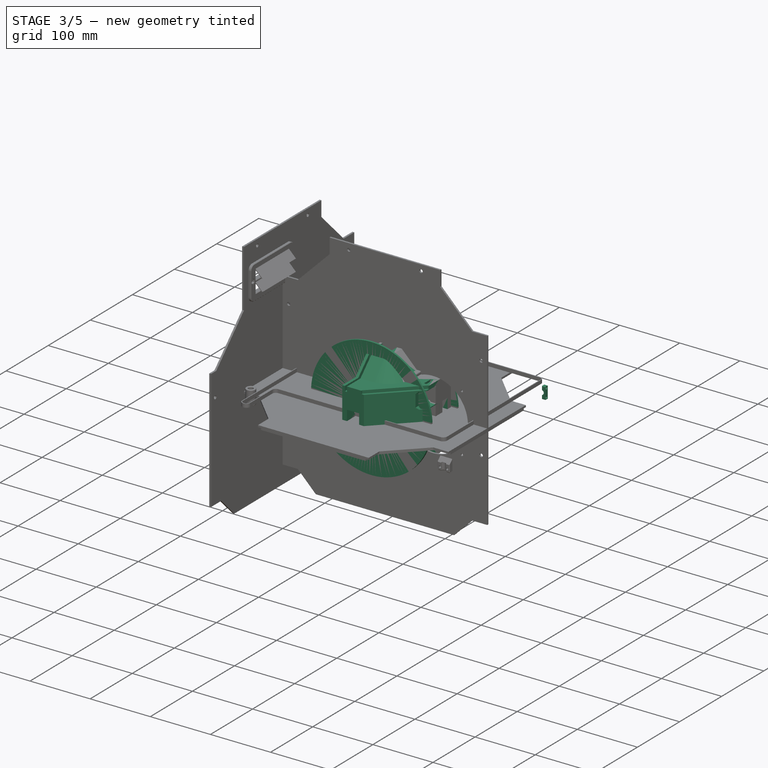
[diagram: stage 3 of 5 — iso view after this stage's code; geometry added in this stage tinted green]
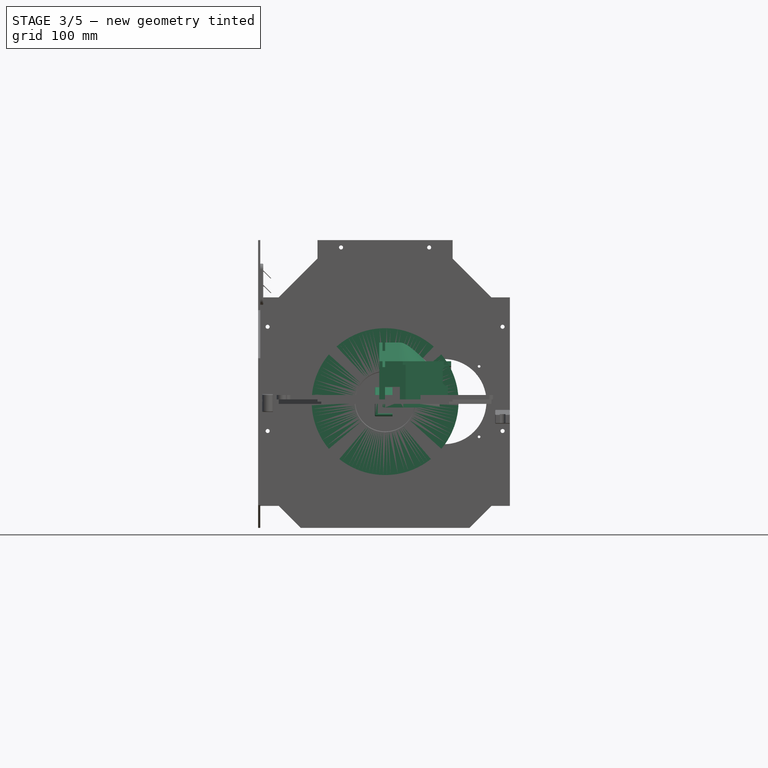
[diagram: stage 3 of 5 — front view after this stage's code; geometry added in this stage tinted green]
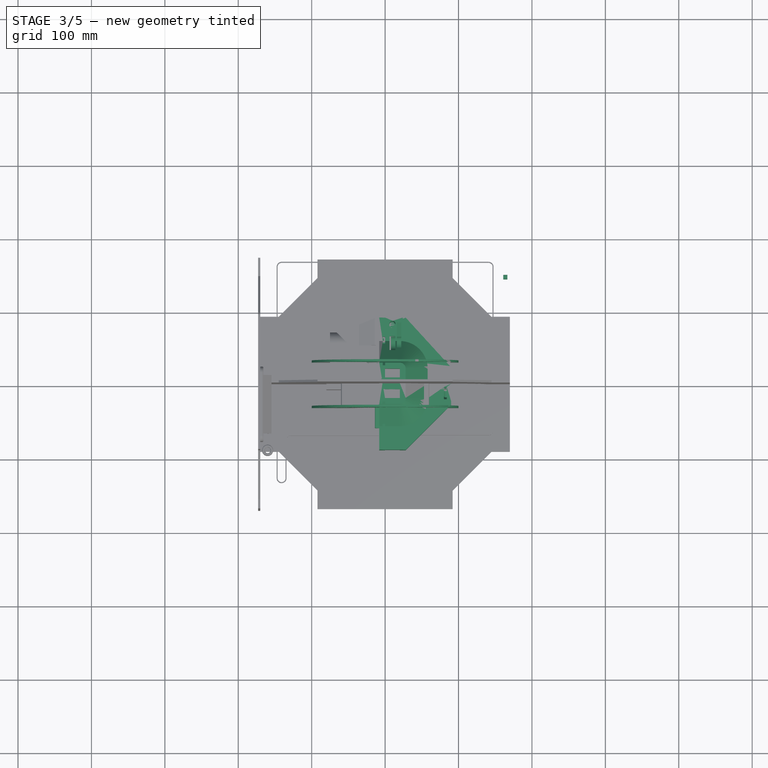
[diagram: stage 3 of 5 — top view after this stage's code; geometry added in this stage tinted green]
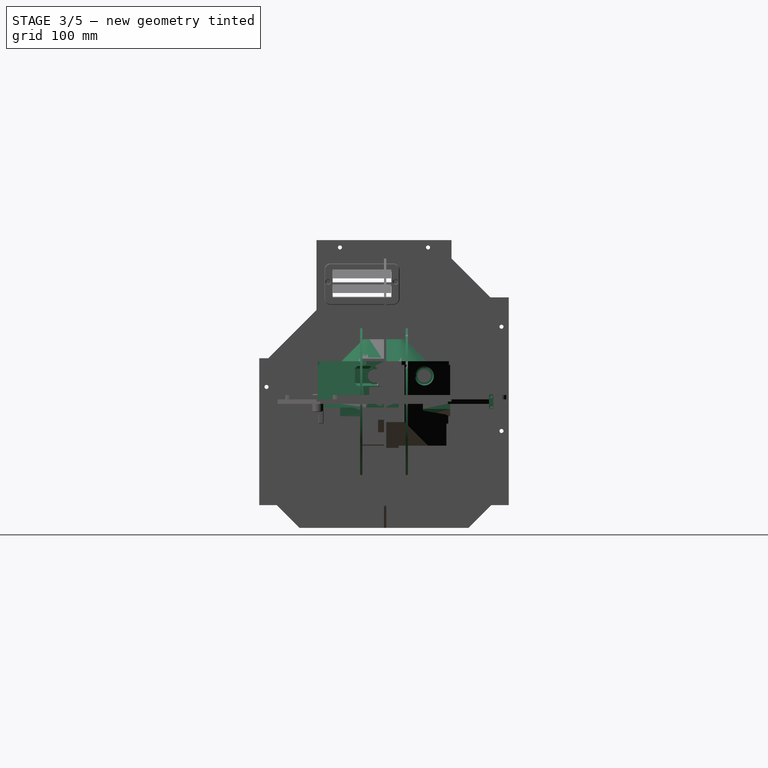
[diagram: stage 3 of 5 — right view after this stage's code; geometry added in this stage tinted green]
FEATURE [PartDesign::Fillet] Fillet
  Base = -> Pocket359 [Edge78,Edge81,Edge76]
  BaseFeature = -> Pocket359
  Radius = 8
  SupportTransform = false
  Suppressed = false
  UseAllEdges = false
FEATURE [Sketcher::SketchObject] Sketch509
  ArcFitTolerance = 1e-06
  AttachmentSupport = -> [XZ_Plane328]
  FullyConstrained = true
  MakeInternals = false
  MapMode = 5
  Placement = pos=(0,0,0) rot=(1,0,0;1.5708rad)
  sketch-geometry (18):
    g0: LineSegment StartX=2 StartY=45 StartZ=0 EndX=7.17157 EndY=45 EndZ=0
    g1: LineSegment StartX=8.58579 StartY=44.4142 StartZ=0 EndX=19.4142 EndY=33.5858 EndZ=0
    g2: LineSegment StartX=20 StartY=32.1716 StartZ=0 EndX=20 EndY=-23.1716 EndZ=0
    g3: LineSegment StartX=19.4142 StartY=-24.5858 StartZ=0 EndX=8.58579 EndY=-35.4142 EndZ=0
    g4: LineSegment StartX=7.17157 StartY=-36 StartZ=0 EndX=2 EndY=-36 EndZ=0
    g5: LineSegment StartX=0 StartY=-34 StartZ=0 EndX=3.868e-13 EndY=43 EndZ=0
    g6: ArcOfCircle CenterX=7.17157 CenterY=43 CenterZ=0 NormalX=0 NormalY=0 NormalZ=1 AngleXU=0 Radius=2 StartAngle=0.785398 EndAngle=1.5708
    g7: GeomPoint [constr] X=8 Y=45 Z=0
    g8: ArcOfCircle CenterX=2 CenterY=43 CenterZ=0 NormalX=0 NormalY=0 NormalZ=1 AngleXU=0 Radius=2 StartAngle=1.5708 EndAngle=3.14159
    g9: GeomPoint [constr] X=0 Y=45 Z=0
    g10: ArcOfCircle CenterX=18 CenterY=32.1716 CenterZ=0 NormalX=0 NormalY=0 NormalZ=1 AngleXU=0 Radius=2 StartAngle=-1.8e-15 EndAngle=0.785398
    g11: GeomPoint [constr] X=20 Y=33 Z=0
    g12: ArcOfCircle CenterX=18 CenterY=-23.1716 CenterZ=0 NormalX=0 NormalY=0 NormalZ=1 AngleXU=0 Radius=2 StartAngle=5.49779 EndAngle=6.28319
    g13: GeomPoint [constr] X=20 Y=-24 Z=0
    g14: ArcOfCircle CenterX=7.17157 CenterY=-34 CenterZ=0 NormalX=0 NormalY=0 NormalZ=1 AngleXU=0 Radius=2 StartAngle=4.71239 EndAngle=5.49779
    g15: GeomPoint [constr] X=8 Y=-36 Z=0
    g16: ArcOfCircle CenterX=2 CenterY=-34 CenterZ=0 NormalX=0 NormalY=0 NormalZ=1 AngleXU=0 Radius=2 StartAngle=3.14159 EndAngle=4.71239
    g17: GeomPoint [constr] X=0 Y=-36 Z=0
  constraints (42):
    c: PointOnObject(g9,g-2)
    c: Horizontal(g0)
    c: Vertical(g2)
    c: PointOnObject(g17,g-2)
    c: Horizontal(g4)
    c: Vertical(g15,g7)
    c: Perpendicular(g3,g1)
    c: Angle(g1) = -0.785398
    c: DistanceX(g9,g7) = 8
    c: DistanceY(g7) = 45
    c: DistanceX(g11) = 20
    c: DistanceY(g15) = -36
    c: PointOnObject(g7,g0)
    c: PointOnObject(g7,g1)
    c: Tangent(g0,g6) = 1.5708
    c: Tangent(g1,g6) = 1.5708
    c: PointOnObject(g9,g0)
    c: PointOnObject(g9,g5)
    c: Tangent(g0,g8) = 1.5708
    c: Tangent(g5,g8) = 1.5708
    c: PointOnObject(g11,g1)
    c: PointOnObject(g11,g2)
    c: Tangent(g1,g10) = 1.5708
    c: Tangent(g2,g10) = 1.5708
    c: PointOnObject(g13,g2)
    c: PointOnObject(g13,g3)
    c: Tangent(g2,g12) = 1.5708
    c: Tangent(g3,g12) = 1.5708
    c: PointOnObject(g15,g3)
    c: PointOnObject(g15,g4)
    c: Tangent(g3,g14) = 1.5708
    c: Tangent(g4,g14) = 1.5708
    c: PointOnObject(g17,g4)
    c: PointOnObject(g17,g5)
    c: Tangent(g4,g16) = 1.5708
    c: Tangent(g5,g16) = 1.5708
    c: Equal(g16,g14)
    c: Equal(g14,g12)
    c: Equal(g12,g10)
    c: Equal(g10,g6)
    c: Equal(g6,g8)
    c: Radius(g8) = 2
FEATURE [PartDesign::Pad] Pad113
  Direction = (0,-1,2e-16)
  Length = 20
  Length2 = 10
  Placement = pos=(0,0,0) rot=(1,0,0;1.5708rad)
  Profile = -> Sketch509
  ReferenceAxis = -> Sketch509 [N_Axis]
  Suppressed = false
  Type = 0
FEATURE [Sketcher::SketchObject] Sketch510
  ArcFitTolerance = 1e-06
  AttachmentSupport = -> [XZ_Plane329]
  FullyConstrained = true
  MakeInternals = false
  MapMode = 5
  Placement = pos=(0,0,0) rot=(1,0,0;1.5708rad)
  sketch-geometry (4):
    g0: LineSegment StartX=-10 StartY=45 StartZ=0 EndX=-10 EndY=-24 EndZ=0
    g1: LineSegment StartX=-10 StartY=-24 StartZ=0 EndX=10 EndY=-24 EndZ=0
    g2: LineSegment StartX=10 StartY=-24 StartZ=0 EndX=10 EndY=45 EndZ=0
    g3: LineSegment StartX=10 StartY=45 StartZ=0 EndX=-10 EndY=45 EndZ=0
  constraints (11):
    c: Coincident(g0,g1)
    c: Coincident(g1,g2)
    c: Coincident(g2,g3)
    c: Coincident(g3,g0)
    c: Vertical(g0)
    c: Vertical(g2)
    c: Horizontal(g1)
    c: Symmetric(g2,g0,g-2)
    c: DistanceX(g3,g3) = 20
    c: DistanceY(g2) = 45
    c: DistanceY(g1) = -24
FEATURE [PartDesign::Pad] Pad114
  Direction = (0,-1,2e-16)
  Length = 7.5
  Length2 = 10
  Placement = pos=(0,0,0) rot=(1,0,0;1.5708rad)
  Profile = -> Sketch510
  ReferenceAxis = -> Sketch510 [N_Axis]
  Suppressed = false
  Type = 0
FEATURE [Sketcher::SketchObject] Sketch511
  ArcFitTolerance = 1e-06
  AttachmentSupport = -> [XY_Plane329]
  FullyConstrained = true
  MakeInternals = false
  MapMode = 5
  sketch-geometry (5):
    g0: LineSegment StartX=-4.34645 StartY=0 StartZ=0 EndX=-2.34645 EndY=2 EndZ=0
    g1: LineSegment StartX=-2.34645 StartY=2 StartZ=0 EndX=2.34645 EndY=2 EndZ=0
    g2: LineSegment StartX=2.34645 StartY=2 StartZ=0 EndX=4.34645 EndY=0 EndZ=0
    g3: LineSegment StartX=4.34645 StartY=0 StartZ=0 EndX=-4.34645 EndY=0 EndZ=0
    g4: GeomPoint X=4.7 Y=0 Z=0
  constraints (12):
    c: PointOnObject(g0,g-1)
    c: Coincident(g0,g1)
    c: Coincident(g1,g2)
    c: Coincident(g2,g3)
    c: Coincident(g3,g0)
    c: Symmetric(g2,g0,g-2)
    c: Symmetric(g1,g0,g-2)
    c: Angle(g0) = 0.785398
    c: DistanceY(g0,g0) = 2
    c: PointOnObject(g4,g-1)
    c: DistanceX(g4) = 4.7
    c: Distance(g4,g2) = 0.25
FEATURE [PartDesign::Pad] Pad115
  BaseFeature = -> Pad114
  Direction = (0,0,1)
  Length = 45
  Length2 = 24
  Placement = pos=(0,0,0) rot=(1,0,0;1.5708rad)
  Profile = -> Sketch511
  ReferenceAxis = -> Sketch511 [N_Axis]
  Refine = true
  Suppressed = false
  Type = 4
FEATURE [Sketcher::SketchObject] Sketch512
  ArcFitTolerance = 1e-06
  AttachmentOffset = pos=(0,0,1) rot=(0,0,1;0rad)
  AttachmentSupport = -> [XZ_Plane329]
  FullyConstrained = true
  MakeInternals = false
  MapMode = 5
  Placement = pos=(0,-1,2e-16) rot=(1,0,0;1.5708rad)
  sketch-geometry (6):
    g0: ArcOfCircle CenterX=0 CenterY=0 CenterZ=0 NormalX=0 NormalY=0 NormalZ=1 AngleXU=0 Radius=4.25 StartAngle=4.71239 EndAngle=7.85398
    g1: LineSegment StartX=-10 StartY=10 StartZ=0 EndX=-10 EndY=-10 EndZ=0
    g2: LineSegment StartX=-8e-16 StartY=-4.25 StartZ=0 EndX=0 EndY=-10 EndZ=0
    g3: LineSegment StartX=0 StartY=-10 StartZ=0 EndX=-10 EndY=-10 EndZ=0
    g4: LineSegment StartX=1.3e-15 StartY=4.25 StartZ=0 EndX=0 EndY=10 EndZ=0
    g5: LineSegment StartX=0 StartY=10 StartZ=0 EndX=-10 EndY=10 EndZ=0
  constraints (17):
    c: Coincident(g0,g-1)
    c: PointOnObject(g0,g-2)
    c: Vertical(g1)
    c: DistanceX(g1) = -10
    c: Diameter(g0) = 8.5
    c: Coincident(g0,g2)
    c: Coincident(g2,g3)
    c: Coincident(g3,g1)
    c: PointOnObject(g2,g-2)
    c: Coincident(g4,g5)
    c: Coincident(g5,g1)
    c: Horizontal(g5)
    c: PointOnObject(g0,g-2)
    c: Coincident(g4,g0)
    c: Horizontal(g3)
    c: Symmetric(g4,g2,g-1)
    c: DistanceY(g1,g1) = 20
FEATURE [PartDesign::Pocket] Pocket361
  BaseFeature = -> Pad115
  Direction = (0,1,-2e-16)
  Length = 5
  Length2 = 5
  Placement = pos=(0,0,0) rot=(1,0,0;1.5708rad)
  Profile = -> Sketch512
  ReferenceAxis = -> Sketch512 [N_Axis]
  Reversed = true
  Suppressed = false
  Type = 1
FEATURE [PartDesign::Pocket] Pocket364
  BaseFeature = -> Pocket363
  Direction = (0,0,-1)
  Length = 5
  Length2 = 5
  Profile = -> Sketch483
  ReferenceAxis = -> Sketch483 [N_Axis]
  Reversed = true
  Suppressed = false
  Type = 1
FEATURE [PartDesign::PolarPattern] PolarPattern008
  Angle = 360
  Axis = -> DatumLine
  BaseFeature = -> Pocket364
  Mode = 0
  Occurrences = 3
  Offset = 120
  Originals = -> [Pocket364]
  Suppressed = false
  TransformMode = 0
FEATURE [PartDesign::Plane] DatumPlane
  AttachmentOffset = pos=(0,0,4) rot=(0,0,1;0rad)
  AttachmentSupport = -> [PolarPattern008]
  Length = 197.205
  MapMode = 13
  Placement = pos=(4.2906,4.2906,4.2906) rot=(0.90627,-0.375389,-0.194316;2.26431rad)
  ResizeMode = 0
  Width = 218.282
FEATURE [PartDesign::Pocket] Pocket365
  BaseFeature = -> PolarPattern008
  Direction = (0.57735,0.57735,0.57735)
  Length = 5
  Length2 = 5
  Profile = -> DatumPlane
  Reversed = true
  Suppressed = false
  Type = 1
FEATURE [PartDesign::Fillet] Fillet012
  Base = -> Pocket365 [Edge2,Edge5,Edge11]
  BaseFeature = -> Pocket365
  Radius = 8
  SupportTransform = false
  Suppressed = false
  UseAllEdges = false
FEATURE [Sketcher::SketchObject] Sketch515
  ArcFitTolerance = 1e-06
  AttachmentSupport = -> [XZ_Plane316]
  FullyConstrained = true
  MakeInternals = false
  MapMode = 5
  Placement = pos=(0,0,0) rot=(1,0,0;1.5708rad)
  sketch-geometry (4):
    g0: LineSegment StartX=-8 StartY=90 StartZ=0 EndX=-8 EndY=85 EndZ=0
    g1: LineSegment StartX=-8 StartY=85 StartZ=0 EndX=90 EndY=85 EndZ=0
    g2: LineSegment StartX=90 StartY=85 StartZ=0 EndX=90 EndY=90 EndZ=0
    g3: LineSegment StartX=90 StartY=90 StartZ=0 EndX=-8 EndY=90 EndZ=0
  constraints (12):
    c: Coincident(g0,g1)
    c: Coincident(g1,g2)
    c: Coincident(g2,g3)
    c: Coincident(g3,g0)
    c: Vertical(g0)
    c: Vertical(g2)
    c: Horizontal(g1)
    c: Horizontal(g3)
    c: DistanceY(g0) = 85
    c: DistanceY(g0) = 90
    c: DistanceX(g0) = -8
    c: DistanceX(g2) = 90
FEATURE [PartDesign::Pocket] Pocket366
  BaseFeature = -> Fillet012
  Direction = (0,1,-2e-16)
  Length = 5
  Length2 = 5
  Midplane = true
  Profile = -> Sketch515
  ReferenceAxis = -> Sketch515 [N_Axis]
  Suppressed = false
  Type = 1
FEATURE [PartDesign::Body] Body179  label="z-motion-front-rod-left"
  AllowCompound = false
  Group = -> [Sketch516,Pad116]
  Origin = -> Origin331
  Placement = pos=(-160,-90,40) rot=(0,0,1;0rad)
  Tip = -> Pad116
  expr: .Placement.Base.x = -Spreadsheet.side_length / 2 + 10
  expr: .Placement.Base.y = -Spreadsheet.side_length / 2 + 80
FEATURE [Sketcher::SketchObject] Sketch517
  ArcFitTolerance = 1e-06
  AttachmentSupport = -> [YZ_Plane316]
  FullyConstrained = true
  MakeInternals = false
  MapMode = 5
  Placement = pos=(0,0,0) rot=(0.57735,0.57735,0.57735;2.0944rad)
  sketch-geometry (4):
    g0: LineSegment StartX=28 StartY=85 StartZ=0 EndX=58 EndY=55 EndZ=0
    g1: LineSegment StartX=58 StartY=55 StartZ=0 EndX=90 EndY=55 EndZ=0
    g2: LineSegment StartX=90 StartY=55 StartZ=0 EndX=90 EndY=85 EndZ=0
    g3: LineSegment StartX=90 StartY=85 StartZ=0 EndX=28 EndY=85 EndZ=0
  constraints (12):
    c: Coincident(g0,g1)
    c: Horizontal(g1)
    c: Coincident(g1,g2)
    c: Vertical(g2)
    c: Coincident(g2,g3)
    c: Coincident(g3,g0)
    c: Horizontal(g3)
    c: DistanceY(g1) = 55
    c: Angle(g0) = -0.785398
    c: DistanceX(g2) = 90
    c: DistanceY(g2) = 85
    c: DistanceX(g0) = 28
FEATURE [PartDesign::Pocket] Pocket367
  BaseFeature = -> Pocket366
  Direction = (-1,0,0)
  Length = 5
  Length2 = 5
  Midplane = true
  Profile = -> Sketch517
  ReferenceAxis = -> Sketch517 [N_Axis]
  Suppressed = false
  Type = 1
FEATURE [Sketcher::SketchObject] Sketch518
  ArcFitTolerance = 1e-06
  AttachmentOffset = pos=(0,0,-20) rot=(0,0,1;0rad)
  AttachmentSupport = -> [XZ_Plane316]
  FullyConstrained = true
  MakeInternals = false
  MapMode = 5
  Placement = pos=(0,20,-4.4e-15) rot=(1,0,0;1.5708rad)
  sketch-geometry (4):
    g0: LineSegment StartX=28 StartY=85 StartZ=0 EndX=58 EndY=55 EndZ=0
    g1: LineSegment StartX=58 StartY=55 StartZ=0 EndX=90 EndY=55 EndZ=0
    g2: LineSegment StartX=90 StartY=55 StartZ=0 EndX=90 EndY=85 EndZ=0
    g3: LineSegment StartX=90 StartY=85 StartZ=0 EndX=28 EndY=85 EndZ=0
  constraints (12):
    c: Coincident(g0,g1)
    c: Horizontal(g1)
    c: Coincident(g1,g2)
    c: Vertical(g2)
    c: Coincident(g2,g3)
    c: Coincident(g3,g0)
    c: Horizontal(g3)
    c: DistanceX(g2) = 90
    c: DistanceY(g2) = 85
    c: Angle(g0) = -0.785398
    c: DistanceY(g1) = 55
    c: DistanceX(g0) = 28
FEATURE [PartDesign::Pocket] Pocket368
  BaseFeature = -> Pocket367
  Direction = (0,1,-2e-16)
  Length = 5
  Length2 = 5
  Midplane = true
  Profile = -> Sketch518
  ReferenceAxis = -> Sketch518 [N_Axis]
  Suppressed = false
  Type = 1
FEATURE [Sketcher::SketchObject] Sketch519
  ArcFitTolerance = 1e-06
  AttachmentOffset = pos=(0,0,-20) rot=(0,0,1;0rad)
  AttachmentSupport = -> [XZ_Plane316]
  FullyConstrained = true
  MakeInternals = false
  MapMode = 5
  Placement = pos=(0,20,-4.4e-15) rot=(1,0,0;1.5708rad)
  sketch-geometry (1):
    g0: LineSegment StartX=20 StartY=0 StartZ=0 EndX=20 EndY=80 EndZ=0
  constraints (4):
    c: PointOnObject(g0,g-1)
    c: Vertical(g0)
    c: DistanceY(g0) = 80
    c: DistanceX(g0) = 20
FEATURE [PartDesign::Groove] Groove017
  Angle = 90
  Angle2 = 60
  Axis = (0,2e-16,1)
  Base = (20,20,-4.4e-15)
  BaseFeature = -> Pocket368
  Profile = -> Sketch518
  ReferenceAxis = -> Sketch519 [Edge1]
  Refine = true
  Suppressed = false
  Type = 0
FEATURE [Sketcher::SketchObject] Sketch539
  ArcFitTolerance = 1e-06
  AttachmentOffset = pos=(0,0,50) rot=(0,0,1;0rad)
  AttachmentSupport = -> [XY_Plane316]
  FullyConstrained = true
  MakeInternals = false
  MapMode = 5
  Placement = pos=(0,0,50) rot=(0,0,1;0rad)
  sketch-geometry (6):
    g0: LineSegment StartX=24 StartY=90 StartZ=0 EndX=90 EndY=90 EndZ=0
    g1: LineSegment StartX=90 StartY=90 StartZ=0 EndX=90 EndY=24 EndZ=0
    g2: LineSegment StartX=90 StartY=24 StartZ=0 EndX=88.3431 EndY=24 EndZ=0
    g3: LineSegment StartX=88.3431 StartY=24 StartZ=0 EndX=24 EndY=88.3431 EndZ=0
    g4: LineSegment StartX=24 StartY=88.3431 StartZ=0 EndX=24 EndY=90 EndZ=0
    g5: GeomPoint X=90 Y=28 Z=0
  constraints (17):
    c: Horizontal(g0)
    c: Coincident(g0,g1)
    c: Vertical(g1)
    c: Coincident(g1,g2)
    c: Horizontal(g2)
    c: Coincident(g2,g3)
    c: Coincident(g3,g4)
    c: Coincident(g4,g0)
    c: Vertical(g4)
    c: Equal(g4,g2)
    c: Angle(g3) = 2.35619
    c: DistanceX(g0) = 90
    c: DistanceY(g0) = 90
    c: PointOnObject(g5,g1)
    c: DistanceY(g5) = 28
    c: Distance(g5,g3) = 4
    c: DistanceY(g1,g5) = 4
FEATURE [PartDesign::Pocket] Pocket381
  BaseFeature = -> Groove017
  Direction = (0,0,-1)
  Length = 5
  Length2 = 5
  Profile = -> Sketch539
  ReferenceAxis = -> Sketch539 [N_Axis]
  Reversed = true
  Suppressed = false
  Type = 1
FEATURE [Sketcher::SketchObject] Sketch540
  ArcFitTolerance = 1e-06
  AttachmentSupport = -> [XY_Plane316]
  FullyConstrained = true
  MakeInternals = false
  MapMode = 5
  sketch-geometry (8):
    g0: LineSegment StartX=90 StartY=90 StartZ=0 EndX=-8 EndY=90 EndZ=0
    g1: LineSegment StartX=90 StartY=-8 StartZ=0 EndX=90 EndY=90 EndZ=0
    g2: GeomPoint X=90 Y=28 Z=0
    g3: LineSegment StartX=-8 StartY=90 StartZ=0 EndX=-8 EndY=82 EndZ=0
    g4: LineSegment StartX=-8 StartY=82 StartZ=0 EndX=24.6863 EndY=82 EndZ=0
    g5: LineSegment StartX=24.6863 StartY=82 StartZ=0 EndX=82 EndY=24.6863 EndZ=0
    g6: LineSegment StartX=82 StartY=24.6863 StartZ=0 EndX=82 EndY=-8 EndZ=0
    g7: LineSegment StartX=82 StartY=-8 StartZ=0 EndX=90 EndY=-8 EndZ=0
  constraints (23):
    c: Horizontal(g0)
    c: Coincident(g1,g0)
    c: Vertical(g1)
    c: DistanceX(g0) = 90
    c: DistanceY(g0) = 90
    c: PointOnObject(g2,g1)
    c: DistanceY(g2) = 28
    c: Coincident(g0,g3)
    c: Vertical(g3)
    c: Coincident(g3,g4)
    c: Horizontal(g4)
    c: Coincident(g4,g5)
    c: Coincident(g5,g6)
    c: Vertical(g6)
    c: Coincident(g6,g7)
    c: Coincident(g7,g1)
    c: Horizontal(g7)
    c: Equal(g7,g3)
    c: DistanceY(g3,g3) = 8
    c: Angle(g5) = -0.785398
    c: Distance(g2,g5) = 8
    c: DistanceY(g1) = -8
    c: DistanceX(g0) = -8
FEATURE [PartDesign::Pocket] Pocket382
  BaseFeature = -> Pocket381
  Direction = (0,0,-1)
  Length = 5
  Length2 = 5
  Profile = -> Sketch540
  ReferenceAxis = -> Sketch540 [N_Axis]
  Refine = true
  Suppressed = false
  Type = 1
FEATURE [PartDesign::Fillet] Fillet013
  Base = -> Pocket382 [Edge35,Edge27,Edge76,Edge49,Edge17,Edge41]
  BaseFeature = -> Pocket382
  Radius = 2
  SupportTransform = false
  Suppressed = false
  UseAllEdges = false
FEATURE [Sketcher::SketchObject] Sketch541
  ArcFitTolerance = 1e-06
  AttachmentSupport = -> [XZ_Plane316]
  FullyConstrained = true
  MakeInternals = false
  MapMode = 5
  Placement = pos=(0,0,0) rot=(1,0,0;1.5708rad)
  sketch-geometry (6):
    g0: Circle CenterX=30 CenterY=10 CenterZ=0 NormalX=0 NormalY=0 NormalZ=1 AngleXU=0 Radius=2.75
    g1: Circle CenterX=70 CenterY=10 CenterZ=0 NormalX=0 NormalY=0 NormalZ=1 AngleXU=0 Radius=2.75
    g2: Circle CenterX=10 CenterY=70 CenterZ=0 NormalX=0 NormalY=0 NormalZ=1 AngleXU=0 Radius=2.75
    g3: Circle CenterX=10 CenterY=30 CenterZ=0 NormalX=0 NormalY=0 NormalZ=1 AngleXU=0 Radius=2.75
    g4: GeomPoint X=20 Y=0 Z=0
    g5: GeomPoint X=80 Y=0 Z=0
  constraints (16):
    c: Equal(g0,g3)
    c: Equal(g3,g1)
    c: Equal(g1,g2)
    c: Diameter(g2) = 5.5
    c: Vertical(g2,g3)
    c: Horizontal(g0,g1)
    c: DistanceX(g3) = 10
    c: DistanceY(g0) = 10
    c: PointOnObject(g4,g-1)
    c: PointOnObject(g5,g-1)
    c: DistanceX(g5) = 80
    c: DistanceX(g4) = 20
    c: DistanceX(g1,g5) = 10
    c: DistanceX(g4,g0) = 10
    c: DistanceY(g3) = 30
    c: DistanceY(g2) = 70
FEATURE [PartDesign::Pocket] Pocket383
  BaseFeature = -> Fillet013
  Direction = (0,1,-2e-16)
  Length = 5
  Length2 = 5
  Profile = -> Sketch541
  ReferenceAxis = -> Sketch541 [N_Axis]
  Reversed = true
  Suppressed = false
  Type = 1
FEATURE [Sketcher::SketchObject] Sketch542
  ArcFitTolerance = 1e-06
  AttachmentOffset = pos=(0,0,4) rot=(0,0,1;0rad)
  AttachmentSupport = -> [XZ_Plane316]
  FullyConstrained = true
  MakeInternals = false
  MapMode = 5
  Placement = pos=(0,-4,9e-16) rot=(1,0,0;1.5708rad)
  sketch-geometry (6):
    g0: Circle CenterX=30 CenterY=10 CenterZ=0 NormalX=0 NormalY=0 NormalZ=1 AngleXU=0 Radius=5
    g1: Circle CenterX=70 CenterY=10 CenterZ=0 NormalX=0 NormalY=0 NormalZ=1 AngleXU=0 Radius=5
    g2: Circle CenterX=10 CenterY=70 CenterZ=0 NormalX=0 NormalY=0 NormalZ=1 AngleXU=0 Radius=5
    g3: Circle CenterX=10 CenterY=30 CenterZ=0 NormalX=0 NormalY=0 NormalZ=1 AngleXU=0 Radius=5
    g4: GeomPoint X=20 Y=0 Z=0
    g5: GeomPoint X=80 Y=0 Z=0
  constraints (16):
    c: Equal(g0,g3)
    c: Equal(g3,g1)
    c: Equal(g1,g2)
    c: Diameter(g2) = 10
    c: Vertical(g2,g3)
    c: Horizontal(g0,g1)
    c: DistanceX(g3) = 10
    c: DistanceY(g0) = 10
    c: PointOnObject(g4,g-1)
    c: PointOnObject(g5,g-1)
    c: DistanceX(g5) = 80
    c: DistanceX(g4) = 20
    c: DistanceX(g1,g5) = 10
    c: DistanceX(g4,g0) = 10
    c: DistanceY(g3) = 30
    c: DistanceY(g2) = 70
FEATURE [PartDesign::Pocket] Pocket384
  BaseFeature = -> Pocket383
  Direction = (0,1,-2e-16)
  Length = 5
  Length2 = 5
  Profile = -> Sketch542
  ReferenceAxis = -> Sketch542 [N_Axis]
  Reversed = true
  Suppressed = false
  Type = 1
FEATURE [PartDesign::PolarPattern] PolarPattern009
  Angle = 360
  Axis = -> DatumLine
  BaseFeature = -> Pocket384
  Mode = 0
  Occurrences = 3
  Offset = 120
  Originals = -> [Pocket384,Pocket383]
  Suppressed = false
  TransformMode = 0
FEATURE [PartDesign::Body] Body165  label="frame-corner-bottom-drv"
  AllowCompound = false
  Group = -> [Sketch480,Pad107,DatumLine,Sketch483,DatumPlane,Sketch514,Pocket363,Pocket364,PolarPattern008,Pocket365,Fillet012,Sketch515,Pocket366,Sketch517,Pocket367,Sketch518,Pocket368,Sketch519,Groove017,Sketch539,Pocket381,Sketch540,Pocket382,Fillet013,Sketch541,Pocket383,Sketch542,Pocket384,PolarPattern009]
  Origin = -> Origin317
  Tip = -> PolarPattern009
FEATURE [PartDesign::FeatureBase] Clone006
  BaseFeature = -> Body165
  Suppressed = false
FEATURE [PartDesign::Groove] Groove019
  Angle = 360
  Angle2 = 60
  Axis = (1,0,0)
  Base = (0,55,35)
  BaseFeature = -> Clone006
  Profile = -> Sketch526
  ReferenceAxis = -> Sketch526 [H_Axis]
  Reversed = true
  Suppressed = false
  Type = 0
FEATURE [PartDesign::Pocket] Pocket372
  BaseFeature = -> Groove019
  Direction = (0,0,-1)
  Length = 5
  Length2 = 5
  Profile = -> Sketch527
  ReferenceAxis = -> Sketch527 [N_Axis]
  Reversed = true
  Suppressed = false
  Type = 1
FEATURE [Part::Mirroring] Part__Mirroring089  label="frame-corner-bottom-back-drv"
  Base = (0,0,0)
  Normal = (0,1,0)
  Source = -> Body165
FEATURE [PartDesign::FeatureBase] Clone010
  BaseFeature = -> Part__Mirroring089
  Suppressed = false
FEATURE [PartDesign::Pocket] Pocket375
  BaseFeature = -> Pocket372
  Direction = (0,1,-2e-16)
  Length = 5
  Length2 = 5
  Profile = -> Sketch532
  ReferenceAxis = -> Sketch532 [N_Axis]
  Reversed = true
  Suppressed = false
  Type = 1
FEATURE [PartDesign::Pocket] Pocket378
  BaseFeature = -> Clone010
  Direction = (0,1,-2e-16)
  Length = 3.5
  Length2 = 5
  Profile = -> Sketch536
  ReferenceAxis = -> Sketch536 [N_Axis]
  Suppressed = false
  Type = 0
FEATURE [PartDesign::Pocket] Pocket379
  BaseFeature = -> Pocket378
  Direction = (1,2e-16,0)
  Length = 3.5
  Length2 = 5
  Profile = -> Sketch537
  ReferenceAxis = -> Sketch537 [N_Axis]
  Reversed = true
  Suppressed = false
  Type = 0
FEATURE [PartDesign::Body] Body187  label="frame-corner-bottom-back-left-drv"
  AllowCompound = false
  Group = -> [Clone010,Sketch536,Pocket378,Sketch537,Pocket379]
  Origin = -> Origin339
  Tip = -> Pocket379
FEATURE [PartDesign::FeatureBase] Clone008
  BaseFeature = -> Body187
  Suppressed = false
FEATURE [Sketcher::SketchObject] Sketch571
  ArcFitTolerance = 1e-06
  AttachmentSupport = -> [YZ_Plane347]
  FullyConstrained = true
  MakeInternals = false
  MapMode = 5
  Placement = pos=(0,0,0) rot=(0.57735,0.57735,0.57735;2.0944rad)
  sketch-geometry (15):
    g0: GeomPoint X=7 Y=0 Z=0
    g1: LineSegment StartX=-60 StartY=6.66364 StartZ=0 EndX=-60 EndY=-18 EndZ=0
    g2: LineSegment StartX=-58 StartY=-20 StartZ=0 EndX=10 EndY=-20 EndZ=0
    g3: LineSegment StartX=10 StartY=-20 StartZ=0 EndX=10 EndY=20 EndZ=0
    g4: GeomPoint [constr] X=10 Y=20 Z=0
    g5: GeomPoint [constr] X=10 Y=-20 Z=0
    g6: LineSegment StartX=-58.7654 StartY=8.5114 StartZ=0 EndX=-31.397 EndY=19.8478 EndZ=0
    g7: LineSegment StartX=-30.6316 StartY=20 StartZ=0 EndX=10 EndY=20 EndZ=0
    g8: ArcOfCircle CenterX=-58 CenterY=6.66364 CenterZ=0 NormalX=0 NormalY=0 NormalZ=1 AngleXU=0 Radius=2 StartAngle=1.9635 EndAngle=3.14159
    g9: GeomPoint [constr] X=-60 Y=8 Z=0
    g10: ArcOfCircle CenterX=-30.6316 CenterY=18 CenterZ=0 NormalX=0 NormalY=0 NormalZ=1 AngleXU=0 Radius=2 StartAngle=1.5708 EndAngle=1.9635
    g11: GeomPoint [constr] X=-31.0294 Y=20 Z=0
    g12: Circle CenterX=-40 CenterY=-6 CenterZ=0 NormalX=0 NormalY=0 NormalZ=1 AngleXU=0 Radius=2.75
    g13: ArcOfCircle CenterX=-58 CenterY=-18 CenterZ=0 NormalX=0 NormalY=0 NormalZ=1 AngleXU=0 Radius=2 StartAngle=3.14159 EndAngle=4.71239
    g14: GeomPoint [constr] X=-60 Y=-20 Z=0
  constraints (34):
    c: PointOnObject(g0,g-1)
    c: DistanceX(g0) = 7
    c: Vertical(g3)
    c: Horizontal(g2)
    c: DistanceX(g4) = 10
    c: DistanceY(g4) = 20
    c: DistanceY(g5) = -20
    c: Coincident(g3,g4)
    c: Coincident(g2,g3)
    c: Coincident(g2,g5)
    c: DistanceY(g9) = 8
    c: DistanceX(g9) = -60
    c: Coincident(g7,g3)
    c: Horizontal(g7)
    c: Angle(g6) = 0.392699
    c: PointOnObject(g9,g1)
    c: PointOnObject(g9,g6)
    c: Tangent(g1,g8) = -1.5708
    c: Tangent(g6,g8) = 1.5708
    c: PointOnObject(g11,g6)
    c: PointOnObject(g11,g7)
    c: Tangent(g6,g10) = 1.5708
    c: Tangent(g7,g10) = 1.5708
    c: Equal(g10,g8)
    c: Radius(g10) = 2
    c: Diameter(g12) = 5.5
    c: Vertical(g1)
    c: PointOnObject(g14,g1)
    c: PointOnObject(g14,g2)
    c: Tangent(g1,g13) = -1.5708
    c: Tangent(g2,g13) = -1.5708
    c: Equal(g13,g8)
    c: DistanceY(g12) = -6
    c: DistanceX(g12) = -40
FEATURE [PartDesign::Pad] Pad126
  Direction = (1,0,0)
  Length = 14
  Length2 = 10
  Placement = pos=(0,0,0) rot=(1,1,1;2.0944rad)
  Profile = -> Sketch571
  ReferenceAxis = -> Sketch571 [N_Axis]
  Reversed = true
  Suppressed = false
  Type = 4
FEATURE [Sketcher::SketchObject] Sketch572
  ArcFitTolerance = 1e-06
  AttachmentOffset = pos=(0,-6,0) rot=(0,0,1;0rad)
  AttachmentSupport = -> [YZ_Plane347]
  FullyConstrained = true
  MakeInternals = false
  MapMode = 5
  Placement = pos=(0,0,-6) rot=(0.57735,0.57735,0.57735;2.0944rad)
  sketch-geometry (10):
    g0: LineSegment StartX=-60 StartY=10 StartZ=0 EndX=-21.8221 EndY=10 EndZ=0
    g1: ArcOfCircle CenterX=-20.3162 CenterY=9.68377 CenterZ=0 NormalX=0 NormalY=0 NormalZ=1 AngleXU=0 Radius=1 StartAngle=5.4307 EndAngle=8.70647
    g2: LineSegment StartX=-20 StartY=8.17794 StartZ=0 EndX=-20 EndY=0 EndZ=0
    g3: LineSegment StartX=-20 StartY=0 StartZ=0 EndX=-60 EndY=0 EndZ=0
    g4: LineSegment StartX=-60 StartY=0 StartZ=0 EndX=-60 EndY=10 EndZ=0
    g5: GeomPoint X=-20.6325 Y=9.36754 Z=0
    g6: GeomPoint X=-20 Y=10 Z=0
    g7: LineSegment [constr] StartX=-20 StartY=8.73509 StartZ=0 EndX=-21.2649 EndY=10 EndZ=0
    g8: ArcOfCircle CenterX=-19 CenterY=8.17794 CenterZ=0 NormalX=0 NormalY=0 NormalZ=1 AngleXU=0 Radius=1 StartAngle=2.28911 EndAngle=3.14159
    g9: ArcOfCircle CenterX=-21.8221 CenterY=11 CenterZ=0 NormalX=0 NormalY=0 NormalZ=1 AngleXU=0 Radius=1 StartAngle=4.71239 EndAngle=5.56487
  constraints (27):
    c: Horizontal(g0)
    c: PointOnObject(g2,g-1)
    c: Vertical(g2)
    c: Coincident(g3,g2)
    c: PointOnObject(g3,g-1)
    c: Coincident(g4,g3)
    c: Coincident(g4,g0)
    c: Vertical(g4)
    c: DistanceX(g3) = -60
    c: DistanceY(g0) = 10
    c: DistanceX(g2) = -20
    c: Radius(g1) = 1
    c: PointOnObject(g6,g2)
    c: PointOnObject(g6,g0)
    c: Symmetric(g6,g5,g1)
    c: Angle(g7) = 2.35619
    c: Tangent(g2,g8) = -1.5708
    c: Tangent(g1,g8) = 1.5708
    c: Tangent(g0,g9) = -1.5708
    c: Tangent(g1,g9) = 1.5708
    c: Equal(g9,g8)
    c: PointOnObject(g7,g1)
    c: PointOnObject(g7,g1)
    c: PointOnObject(g7,g2)
    c: PointOnObject(g7,g0)
    c: PointOnObject(g5,g7)
    c: Equal(g9,g1)
FEATURE [PartDesign::Pocket] Pocket406
  BaseFeature = -> Pad126
  Direction = (-1,0,0)
  Length = 20
  Length2 = 5
  Midplane = true
  Placement = pos=(0,0,0) rot=(1,1,1;2.0944rad)
  Profile = -> Sketch572
  ReferenceAxis = -> Sketch572 [N_Axis]
  Suppressed = false
  Type = 0
FEATURE [PartDesign::Plane] DatumPlane006
  AttachmentSupport = -> [Pocket406]
  Length = 98.0384
  MapMode = 5
  Placement = pos=(0,-1.3e-15,-6) rot=(0,0,-1;1.5708rad)
  ResizeMode = 0
  Width = 63.0384
FEATURE [PartDesign::Mirrored] Mirrored015
  BaseFeature = -> Pocket406
  MirrorPlane = -> DatumPlane006
  Originals = -> [Pocket406]
  Placement = pos=(0,0,0) rot=(1,1,1;2.0944rad)
  Suppressed = false
  TransformMode = 0
FEATURE [PartDesign::Fillet] Fillet020
  Base = -> Mirrored015 [Edge11,Edge14]
  BaseFeature = -> Mirrored015
  Placement = pos=(0,0,0) rot=(1,1,1;2.0944rad)
  Radius = 1
  Refine = true
  SupportTransform = false
  Suppressed = false
  UseAllEdges = false
FEATURE [Sketcher::SketchObject] Sketch609
  ArcFitTolerance = 1e-06
  AttachmentSupport = -> [XZ_Plane351]
  FullyConstrained = true
  MakeInternals = false
  MapMode = 5
  Placement = pos=(0,0,0) rot=(1,0,0;1.5708rad)
  expr: Constraints[18] = -Spreadsheet.bed_hole_distance / 2
  sketch-geometry (10):
    g0: LineSegment StartX=-73 StartY=-2 StartZ=0 EndX=-57 EndY=-2 EndZ=0
    g1: LineSegment StartX=-57 StartY=-2 StartZ=0 EndX=-14 EndY=8 EndZ=0
    g2: LineSegment StartX=-14 StartY=8 StartZ=0 EndX=0 EndY=8 EndZ=0
    g3: LineSegment StartX=0 StartY=8 StartZ=0 EndX=0 EndY=-20 EndZ=0
    g4: LineSegment StartX=0 StartY=-20 StartZ=0 EndX=-14 EndY=-20 EndZ=0
    g5: LineSegment StartX=-14 StartY=-20 StartZ=0 EndX=-73 EndY=-10 EndZ=0
    g6: LineSegment StartX=-73 StartY=-10 StartZ=0 EndX=-73 EndY=-2 EndZ=0
    g7: GeomPoint X=-65 Y=-2 Z=0
    g8: GeomPoint [constr] X=-73 Y=-2 Z=0
    g9: GeomPoint [constr] X=-73 Y=-10 Z=0
  constraints (24):
    c: Horizontal(g0)
    c: Coincident(g0,g1)
    c: Coincident(g1,g2)
    c: PointOnObject(g2,g-2)
    c: Horizontal(g2)
    c: Coincident(g2,g3)
    c: Vertical(g3)
    c: Coincident(g3,g4)
    c: Horizontal(g4)
    c: Coincident(g4,g5)
    c: Vertical(g6)
    c: Vertical(g1,g4)
    c: DistanceX(g4,g4) = 14
    c: DistanceY(g2) = 8
    c: DistanceY(g3) = -20
    c: DistanceY(g9,g8) = 8
    c: Symmetric(g8,g0,g7)
    c: DistanceX(g8,g0) = 16
    c: DistanceX(g7) = -65
    c: DistanceY(g7) = -2
    c: Coincident(g9,g5)
    c: Coincident(g6,g5)
    c: Coincident(g6,g8)
    c: Coincident(g0,g6)
FEATURE [PartDesign::Pad] Pad136
  Direction = (0,-1,2e-16)
  Length = 90
  Length2 = -53
  Placement = pos=(0,0,0) rot=(1,0,0;1.5708rad)
  Profile = -> Sketch609
  ReferenceAxis = -> Sketch609 [N_Axis]
  Reversed = true
  Suppressed = false
  Type = 4
FEATURE [PartDesign::Mirrored] Mirrored016
  BaseFeature = -> Pad136
  MirrorPlane = -> YZ_Plane351
  Originals = -> [Pad136]
  Placement = pos=(0,0,0) rot=(1,0,0;1.5708rad)
  Suppressed = false
  TransformMode = 0
FEATURE [Sketcher::SketchObject] Sketch610
  ArcFitTolerance = 1e-06
  AttachmentSupport = -> [XZ_Plane351]
  FullyConstrained = true
  MakeInternals = false
  MapMode = 5
  Placement = pos=(0,0,0) rot=(1,0,0;1.5708rad)
  sketch-geometry (5):
    g0: LineSegment StartX=-10 StartY=4 StartZ=0 EndX=-10 EndY=-16 EndZ=0
    g1: LineSegment StartX=-10 StartY=-16 StartZ=0 EndX=10 EndY=-16 EndZ=0
    g2: LineSegment StartX=10 StartY=-16 StartZ=0 EndX=10 EndY=4 EndZ=0
    g3: LineSegment StartX=10 StartY=4 StartZ=0 EndX=-10 EndY=4 EndZ=0
    g4: GeomPoint X=0 Y=-6 Z=0
  constraints (13):
    c: Coincident(g0,g1)
    c: Coincident(g1,g2)
    c: Coincident(g2,g3)
    c: Coincident(g3,g0)
    c: Vertical(g0)
    c: Vertical(g2)
    c: Horizontal(g1)
    c: Horizontal(g3)
    c: PointOnObject(g4,g-2)
    c: Symmetric(g1,g0,g4)
    c: Equal(g2,g3)
    c: DistanceY(g2,g2) = 20
    c: DistanceY(g4) = -6
FEATURE [PartDesign::Pocket] Pocket435
  BaseFeature = -> Mirrored016
  Direction = (0,1,-2e-16)
  Length = 5
  Length2 = 5
  Midplane = true
  Placement = pos=(0,0,0) rot=(1,0,0;1.5708rad)
  Profile = -> Sketch610
  ReferenceAxis = -> Sketch610 [N_Axis]
  Refine = true
  Suppressed = false
  Type = 1
FEATURE [Sketcher::SketchObject] Sketch611
  ArcFitTolerance = 1e-06
  AttachmentSupport = -> [XY_Plane351]
  FullyConstrained = true
  MakeInternals = false
  MapMode = 5
  expr: Constraints[6] = -Spreadsheet.bed_hole_distance / 2
  expr: Constraints[7] = Spreadsheet.bed_hole_distance / 2 - 4
  sketch-geometry (6):
    g0: LineSegment StartX=-14 StartY=90 StartZ=0 EndX=-80 EndY=90 EndZ=0
    g1: LineSegment StartX=-80 StartY=90 StartZ=0 EndX=-80 EndY=53 EndZ=0
    g2: ArcOfCircle CenterX=-65 CenterY=61 CenterZ=0 NormalX=0 NormalY=0 NormalZ=1 AngleXU=0 Radius=8 StartAngle=1.95104 EndAngle=3.92699
    g3: LineSegment StartX=-67.9692 StartY=68.4286 StartZ=0 EndX=-14 EndY=90 EndZ=0
    g4: LineSegment StartX=-70.6569 StartY=55.3431 StartZ=0 EndX=-68.3137 EndY=53 EndZ=0
    g5: LineSegment StartX=-68.3137 StartY=53 StartZ=0 EndX=-80 EndY=53 EndZ=0
  constraints (17):
    c: Horizontal(g0)
    c: Coincident(g0,g1)
    c: Vertical(g1)
    c: DistanceX(g0) = -14
    c: Coincident(g3,g0)
    c: Tangent(g3,g2) = 1.5708
    c: DistanceX(g2) = -65
    c: DistanceY(g2) = 61
    c: DistanceY(g0) = 90
    c: Diameter(g2) = 16
    c: Tangent(g2,g4) = -1.5708
    c: Coincident(g4,g5)
    c: Horizontal(g5)
    c: Coincident(g1,g5)
    c: Angle(g4) = -0.785398
    c: Tangent(g5,g2)
    c: DistanceX(g0) = -80
FEATURE [PartDesign::Pocket] Pocket436
  BaseFeature = -> Pocket435
  Direction = (0,0,-1)
  Length = 5
  Length2 = 5
  Midplane = true
  Placement = pos=(0,0,0) rot=(1,0,0;1.5708rad)
  Profile = -> Sketch611
  ReferenceAxis = -> Sketch611 [N_Axis]
  Suppressed = false
  Type = 1
FEATURE [App::Link] Link038  label="z-carriage-belt-mount-back"
  LinkPlacement = pos=(0,150,-10) rot=(0,0,1;0rad)
  LinkedObject = -> <external general/belt-clip.FCStd>#Body102
  Placement = pos=(0,150,-10) rot=(0,0,1;0rad)
  expr: .Placement.Base.y = Spreadsheet.side_length / 2 - 20
FEATURE [Sketcher::SketchObject] Sketch616
  ArcFitTolerance = 1e-06
  AttachmentOffset = pos=(0,0,-4) rot=(0,0,1;0rad)
  AttachmentSupport = -> [XY_Plane347]
  FullyConstrained = true
  MakeInternals = false
  MapMode = 5
  Placement = pos=(0,0,-4) rot=(0,0,1;0rad)
  sketch-geometry (16):
    g0: LineSegment StartX=-6.25 StartY=2.15 StartZ=0 EndX=-6.25 EndY=-5.15 EndZ=0
    g1: LineSegment StartX=-4.15 StartY=-7.25 StartZ=0 EndX=4.75 EndY=-7.25 EndZ=0
    g2: LineSegment StartX=6.75 StartY=-5.25 StartZ=0 EndX=6.75 EndY=2.25 EndZ=0
    g3: LineSegment StartX=4.75 StartY=4.25 StartZ=0 EndX=-4.15 EndY=4.25 EndZ=0
    g4: ArcOfCircle CenterX=4.75 CenterY=2.25 CenterZ=0 NormalX=0 NormalY=0 NormalZ=1 AngleXU=0 Radius=2 StartAngle=1e-16 EndAngle=1.5708
    g5: GeomPoint [constr] X=6.75 Y=4.25 Z=0
    g6: ArcOfCircle CenterX=4.75 CenterY=-5.25 CenterZ=0 NormalX=0 NormalY=0 NormalZ=1 AngleXU=0 Radius=2 StartAngle=4.71239 EndAngle=6.28319
    g7: GeomPoint [constr] X=6.75 Y=-7.25 Z=0
    g8: ArcOfCircle [constr] CenterX=-4.15 CenterY=2.15 CenterZ=0 NormalX=0 NormalY=0 NormalZ=1 AngleXU=0 Radius=2.1 StartAngle=1.5708 EndAngle=3.14159
    g9: GeomPoint [constr] X=-6.25 Y=4.25 Z=0
    g10: LineSegment StartX=-4.15 StartY=4.25 StartZ=0 EndX=-6.25 EndY=2.15 EndZ=0
    g11: ArcOfCircle [constr] CenterX=-4.15 CenterY=-5.15 CenterZ=0 NormalX=0 NormalY=0 NormalZ=1 AngleXU=0 Radius=2.1 StartAngle=3.14159 EndAngle=4.71239
    g12: GeomPoint [constr] X=-6.25 Y=-7.25 Z=0
    g13: LineSegment StartX=-6.25 StartY=-5.15 StartZ=0 EndX=-4.15 EndY=-7.25 EndZ=0
    g14: GeomPoint X=0 Y=-1.5 Z=0
    g15: GeomPoint X=6.75 Y=-1.5 Z=0
  constraints (35):
    c: Vertical(g0)
    c: Vertical(g2)
    c: Horizontal(g3)
    c: PointOnObject(g5,g2)
    c: PointOnObject(g5,g3)
    c: Tangent(g2,g4) = -1.5708
    c: Tangent(g3,g4) = -1.5708
    c: PointOnObject(g7,g1)
    c: PointOnObject(g7,g2)
    c: Tangent(g1,g6) = -1.5708
    c: Tangent(g2,g6) = -1.5708
    c: PointOnObject(g9,g0)
    c: PointOnObject(g9,g3)
    c: Tangent(g0,g8) = -1.5708
    c: Tangent(g3,g8) = -1.5708
    c: Coincident(g10,g0)
    c: Coincident(g10,g3)
    c: PointOnObject(g12,g0)
    c: PointOnObject(g12,g1)
    c: Tangent(g0,g11) = -1.5708
    c: Tangent(g1,g11) = -1.5708
    c: Coincident(g13,g0)
    c: Coincident(g13,g1)
    c: Equal(g8,g11)
    c: Equal(g6,g4)
    c: PointOnObject(g14,g-2)
    c: DistanceY(g14) = -1.5
    c: Horizontal(g1)
    c: DistanceY(g7,g5) = 11.5
    c: DistanceX(g5) = 6.75
    c: Symmetric(g2,g2,g15)
    c: Horizontal(g15,g14)
    c: DistanceX(g10,g10) = 2.1
    c: Radius(g4) = 2
    c: DistanceX(g0) = -6.25
FEATURE [PartDesign::Pocket] Pocket441
  BaseFeature = -> Fillet020
  Direction = (0,0,-1)
  Length = 5
  Length2 = 5
  Placement = pos=(0,0,0) rot=(1,1,1;2.0944rad)
  Profile = -> Sketch616
  ReferenceAxis = -> Sketch616 [N_Axis]
  Reversed = true
  Suppressed = false
  Type = 1
FEATURE [Sketcher::SketchObject] Sketch617
  ArcFitTolerance = 1e-06
  AttachmentOffset = pos=(0,0,4) rot=(0,0,1;0rad)
  AttachmentSupport = -> [YZ_Plane347]
  FullyConstrained = true
  MakeInternals = false
  MapMode = 5
  Placement = pos=(4,0,0) rot=(0.57735,0.57735,0.57735;2.0944rad)
  sketch-geometry (4):
    g0: LineSegment StartX=-8 StartY=-6 StartZ=0 EndX=-8 EndY=-20 EndZ=0
    g1: LineSegment StartX=-8 StartY=-20 StartZ=0 EndX=10 EndY=-20 EndZ=0
    g2: LineSegment StartX=10 StartY=-20 StartZ=0 EndX=10 EndY=-6 EndZ=0
    g3: LineSegment StartX=10 StartY=-6 StartZ=0 EndX=-8 EndY=-6 EndZ=0
  constraints (12):
    c: Coincident(g0,g1)
    c: Coincident(g1,g2)
    c: Coincident(g2,g3)
    c: Coincident(g3,g0)
    c: Vertical(g0)
    c: Vertical(g2)
    c: Horizontal(g1)
    c: Horizontal(g3)
    c: DistanceX(g1) = 10
    c: DistanceY(g1) = -20
    c: DistanceY(g2) = -6
    c: DistanceX(g0) = -8
FEATURE [PartDesign::Pocket] Pocket442
  BaseFeature = -> Pocket441
  Direction = (-1,0,0)
  Length = 5
  Length2 = 5
  Placement = pos=(0,0,0) rot=(1,1,1;2.0944rad)
  Profile = -> Sketch617
  ReferenceAxis = -> Sketch617 [N_Axis]
  Reversed = true
  Suppressed = false
  Type = 1
FEATURE [Sketcher::SketchObject] Sketch618
  ArcFitTolerance = 1e-06
  AttachmentOffset = pos=(0,0,-3.5) rot=(0,0,1;0rad)
  AttachmentSupport = -> [YZ_Plane347]
  FullyConstrained = true
  MakeInternals = false
  MapMode = 5
  Placement = pos=(-3.5,0,0) rot=(0.57735,0.57735,0.57735;2.0944rad)
  sketch-geometry (44):
    g0: LineSegment StartX=0.85 StartY=-20 StartZ=0 EndX=0.1 EndY=-20 EndZ=0
    g1: LineSegment StartX=0.1 StartY=-20 StartZ=0 EndX=0.1 EndY=-19 EndZ=0
    g2: LineSegment StartX=0.1 StartY=-19 StartZ=0 EndX=-1 EndY=-19 EndZ=0
    g3: LineSegment StartX=-1 StartY=-19 StartZ=0 EndX=-1 EndY=-18 EndZ=0
    g4: LineSegment StartX=-1 StartY=-18 StartZ=0 EndX=0.1 EndY=-18 EndZ=0
    g5: LineSegment StartX=0.1 StartY=-18 StartZ=0 EndX=0.1 EndY=-17 EndZ=0
    g6: LineSegment StartX=0.1 StartY=-17 StartZ=0 EndX=-1 EndY=-17 EndZ=0
    g7: LineSegment StartX=-1 StartY=-17 StartZ=0 EndX=-1 EndY=-16 EndZ=0
    g8: LineSegment StartX=-1 StartY=-16 StartZ=0 EndX=0.1 EndY=-16 EndZ=0
    g9: LineSegment StartX=0.1 StartY=-16 StartZ=0 EndX=0.1 EndY=-15 EndZ=0
    g10: LineSegment StartX=0.1 StartY=-15 StartZ=0 EndX=-1 EndY=-15 EndZ=0
    g11: LineSegment StartX=-1 StartY=-15 StartZ=0 EndX=-1 EndY=-14 EndZ=0
    g12: LineSegment StartX=-1 StartY=-14 StartZ=0 EndX=0.1 EndY=-14 EndZ=0
    g13: LineSegment StartX=0.1 StartY=-14 StartZ=0 EndX=0.1 EndY=-13.4 EndZ=0
    g14: LineSegment StartX=0.1 StartY=-13.4 StartZ=0 EndX=-0.677817 EndY=-12.6222 EndZ=0
    g15: LineSegment StartX=-0.677817 StartY=-12.6222 StartZ=0 EndX=0.0292893 EndY=-11.9151 EndZ=0
    g16: LineSegment StartX=0.85 StartY=-20 StartZ=0 EndX=0.85 EndY=-13.7107 EndZ=0
    g17: LineSegment StartX=0.0292893 StartY=-11.9151 StartZ=0 EndX=0.807107 EndY=-12.6929 EndZ=0
    g18: LineSegment StartX=0.807107 StartY=-12.6929 StartZ=0 EndX=1.51421 EndY=-11.9858 EndZ=0
    g19: LineSegment StartX=1.51421 StartY=-11.9858 StartZ=0 EndX=0.736396 EndY=-11.208 EndZ=0
    g20: LineSegment StartX=0.736396 StartY=-11.208 StartZ=0 EndX=1.4435 EndY=-10.5009 EndZ=0
    g21: LineSegment StartX=1.4435 StartY=-10.5009 StartZ=0 EndX=2.22132 EndY=-11.2787 EndZ=0
    g22: LineSegment StartX=2.22132 StartY=-11.2787 StartZ=0 EndX=2.92843 EndY=-10.5716 EndZ=0
    g23: LineSegment StartX=2.92843 StartY=-10.5716 StartZ=0 EndX=2.15061 EndY=-9.79376 EndZ=0
    g24: LineSegment StartX=2.15061 StartY=-9.79376 StartZ=0 EndX=2.85772 EndY=-9.08665 EndZ=0
    g25: LineSegment StartX=2.85772 StartY=-9.08665 StartZ=0 EndX=3.63553 EndY=-9.86447 EndZ=0
    g26: LineSegment StartX=3.63553 StartY=-9.86447 StartZ=0 EndX=4.34264 EndY=-9.15736 EndZ=0
    g27: LineSegment StartX=4.34264 StartY=-9.15736 StartZ=0 EndX=3.56482 EndY=-8.37954 EndZ=0
    g28: LineSegment StartX=3.56482 StartY=-8.37954 StartZ=0 EndX=4.27193 EndY=-7.67244 EndZ=0
    g29: LineSegment StartX=4.27193 StartY=-7.67244 StartZ=0 EndX=5.04975 EndY=-8.45025 EndZ=0
    g30: LineSegment StartX=0.85 StartY=-13.7107 StartZ=0 EndX=5.36041 EndY=-9.20025 EndZ=0
    g31: LineSegment StartX=5.36041 StartY=-9.20025 StartZ=0 EndX=10.6497 EndY=-9.20025 EndZ=0
    g32: LineSegment StartX=5.04975 StartY=-8.45025 StartZ=0 EndX=5.64975 EndY=-8.45025 EndZ=0
    g33: LineSegment StartX=5.64975 StartY=-8.45025 StartZ=0 EndX=5.64975 EndY=-7.35025 EndZ=0
    g34: LineSegment StartX=5.64975 StartY=-7.35025 StartZ=0 EndX=6.64975 EndY=-7.35025 EndZ=0
    g35: LineSegment StartX=6.64975 StartY=-7.35025 StartZ=0 EndX=6.64975 EndY=-8.45025 EndZ=0
    g36: LineSegment StartX=6.64975 StartY=-8.45025 StartZ=0 EndX=7.64975 EndY=-8.45025 EndZ=0
    g37: LineSegment StartX=7.64975 StartY=-8.45025 StartZ=0 EndX=7.64975 EndY=-7.35025 EndZ=0
    g38: LineSegment StartX=7.64975 StartY=-7.35025 StartZ=0 EndX=8.64975 EndY=-7.35025 EndZ=0
    g39: LineSegment StartX=8.64975 StartY=-7.35025 StartZ=0 EndX=8.64975 EndY=-8.45025 EndZ=0
    g40: LineSegment StartX=8.64975 StartY=-8.45025 StartZ=0 EndX=9.64975 EndY=-8.45025 EndZ=0
    g41: LineSegment StartX=9.64975 StartY=-8.45025 StartZ=0 EndX=9.64975 EndY=-7.35025 EndZ=0
    g42: LineSegment StartX=9.64975 StartY=-7.35025 StartZ=0 EndX=10.6497 EndY=-7.35025 EndZ=0
    g43: LineSegment StartX=10.6497 StartY=-7.35025 StartZ=0 EndX=10.6497 EndY=-9.20025 EndZ=0
  constraints (132):
    c: Horizontal(g0)
    c: Coincident(g0,g1)
    c: Vertical(g1)
    c: Coincident(g1,g2)
    c: Horizontal(g2)
    c: Coincident(g2,g3)
    c: Vertical(g3)
    c: Coincident(g3,g4)
    c: Horizontal(g4)
    c: Coincident(g4,g5)
    c: Vertical(g5)
    c: Coincident(g5,g6)
    c: Horizontal(g6)
    c: Coincident(g6,g7)
    c: Vertical(g7)
    c: Coincident(g7,g8)
    c: Horizontal(g8)
    c: Coincident(g8,g9)
    c: Vertical(g9)
    c: Coincident(g9,g10)
    c: Horizontal(g10)
    c: Coincident(g10,g11)
    c: Vertical(g11)
    c: Coincident(g11,g12)
    c: Horizontal(g12)
    c: Coincident(g12,g13)
    c: Vertical(g13)
    c: Coincident(g13,g14)
    c: Coincident(g14,g15)
    c: Vertical(g1,g5)
    c: Vertical(g5,g9)
    c: Vertical(g9,g13)
    c: Vertical(g3,g7)
    c: Vertical(g7,g11)
    c: Equal(g1,g3)
    c: Equal(g3,g5)
    c: Equal(g5,g7)
    c: Equal(g7,g9)
    c: Equal(g9,g11)
    c: DistanceY(g0,g3) = 2
    c: Coincident(g0,g16)
    c: Vertical(g16)
    c: DistanceY(g0) = -20
    c: DistanceX(g2,g0) = 1.85
    c: DistanceX(g0,g0) = 0.75
    c: DistanceX(g0) = 0.1
    c: Perpendicular(g14,g15)
    c: Angle(g15) = 0.785398
    c: Equal(g14,g10)
    c: Coincident(g15,g17)
    c: Coincident(g17,g18)
    c: Coincident(g18,g19)
    c: Coincident(g19,g20)
    c: Coincident(g20,g21)
    c: Coincident(g21,g22)
    c: Coincident(g22,g23)
    c: Coincident(g23,g24)
    c: Coincident(g24,g25)
    c: Coincident(g25,g26)
    c: Coincident(g26,g27)
    c: Coincident(g27,g28)
    c: Coincident(g28,g29)
    c: Parallel(g17,g19)
    c: Parallel(g19,g21)
    c: Parallel(g21,g23)
    c: Parallel(g23,g25)
    c: Parallel(g25,g27)
    c: Parallel(g27,g29)
    c: Parallel(g18,g20)
    c: Parallel(g20,g15)
    c: Parallel(g15,g22)
    c: Parallel(g22,g24)
    c: Parallel(g24,g26)
    c: Parallel(g26,g28)
    c: Equal(g19,g17)
    c: Parallel(g17,g14)
    c: Equal(g19,g21)
    c: Equal(g21,g23)
    c: Equal(g23,g25)
    c: Equal(g25,g27)
    c: Equal(g27,g29)
    c: Equal(g17,g14)
    c: Equal(g18,g20)
    c: Equal(g20,g22)
    c: Equal(g22,g24)
    c: Equal(g24,g26)
    c: Equal(g26,g28)
    c: Equal(g28,g15)
    c: Coincident(g16,g30)
    c: Distance(g17,g30) = 0.75
    c: Parallel(g30,g18)
    c: Coincident(g30,g31)
    c: Horizontal(g31)
    c: Coincident(g29,g32)
    c: Horizontal(g32)
    c: Coincident(g32,g33)
    c: Vertical(g33)
    c: Coincident(g33,g34)
    c: Horizontal(g34)
    c: Coincident(g34,g35)
    c: Vertical(g35)
    c: Coincident(g35,g36)
    c: Horizontal(g36)
    c: Coincident(g36,g37)
    c: Vertical(g37)
    c: Coincident(g37,g38)
    c: Horizontal(g38)
    c: Coincident(g38,g39)
    c: Vertical(g39)
    c: Coincident(g39,g40)
    c: Horizontal(g40)
    c: Coincident(g40,g41)
    c: Vertical(g41)
    c: Coincident(g41,g42)
    c: Horizontal(g42)
    c: Coincident(g42,g43)
    c: Vertical(g43)
    c: Coincident(g31,g43)
    c: Horizontal(g33,g37)
    c: Horizontal(g37,g41)
    c: Horizontal(g32,g36)
    c: Horizontal(g36,g40)
    c: Equal(g33,g29)
    c: DistanceY(g43,g43) = 1.85
    c: Equal(g36,g38)
    c: Equal(g38,g40)
    c: Equal(g40,g42)
    c: Equal(g11,g15)
    c: Equal(g34,g28)
    c: Equal(g13,g32)
    c: DistanceX(g32,g32) = 0.6
    c: Equal(g42,g34)
FEATURE [PartDesign::Pocket] Pocket443
  BaseFeature = -> Pocket442
  Direction = (-1,0,0)
  Length = 5
  Length2 = 5
  Placement = pos=(0,0,0) rot=(1,1,1;2.0944rad)
  Profile = -> Sketch618
  ReferenceAxis = -> Sketch618 [N_Axis]
  Reversed = true
  Suppressed = false
  Type = 1
FEATURE [Sketcher::SketchObject] Sketch619
  ArcFitTolerance = 1e-06
  AttachmentOffset = pos=(0,0,-6) rot=(0,0,1;0rad)
  AttachmentSupport = -> [XY_Plane347]
  FullyConstrained = true
  MakeInternals = false
  MapMode = 5
  Placement = pos=(0,0,-6) rot=(0,0,1;0rad)
  sketch-geometry (10):
    g0: LineSegment StartX=1.58771 StartY=-1.25 StartZ=0 EndX=-1.58771 EndY=-1.25 EndZ=0
    g1: LineSegment StartX=-1.58771 StartY=-1.25 StartZ=0 EndX=-3.17543 EndY=-4 EndZ=0
    g2: LineSegment StartX=-3.17543 StartY=-4 StartZ=0 EndX=-1.58771 EndY=-6.75 EndZ=0
    g3: LineSegment StartX=-1.58771 StartY=-6.75 StartZ=0 EndX=1.58771 EndY=-6.75 EndZ=0
    g4: LineSegment [constr] StartX=1.58771 StartY=-6.75 StartZ=0 EndX=3.17543 EndY=-4 EndZ=0
    g5: LineSegment [constr] StartX=3.17543 StartY=-4 StartZ=0 EndX=1.58771 EndY=-1.25 EndZ=0
    g6: Circle [constr] CenterX=0 CenterY=-4 CenterZ=0 NormalX=0 NormalY=0 NormalZ=1 AngleXU=0 Radius=3.17543
    g7: LineSegment StartX=1.58771 StartY=-1.25 StartZ=0 EndX=4 EndY=-1.25 EndZ=0
    g8: LineSegment StartX=4 StartY=-1.25 StartZ=0 EndX=4 EndY=-6.75 EndZ=0
    g9: LineSegment StartX=4 StartY=-6.75 StartZ=0 EndX=1.58771 EndY=-6.75 EndZ=0
  constraints (25):
    c: Coincident(g0,g1)
    c: Coincident(g1,g2)
    c: Coincident(g2,g3)
    c: Coincident(g3,g4)
    c: Coincident(g4,g5)
    c: Coincident(g5,g0)
    c: Equal(g0, g1-g5) x5
    c: PointOnObject(g0,g6)
    c: PointOnObject(g1,g6)
    c: PointOnObject(g2,g6)
    c: PointOnObject(g3,g6)
    c: PointOnObject(g4,g6)
    c: PointOnObject(g5,g6)
    c: PointOnObject(g6,g-2)
    c: Horizontal(g0)
    c: Coincident(g0,g7)
    c: Horizontal(g7)
    c: Coincident(g7,g8)
    c: Vertical(g8)
    c: Coincident(g8,g9)
    c: Coincident(g9,g3)
    c: Horizontal(g9)
    c: DistanceY(g6) = -4
    c: DistanceX(g7) = 4
    c: DistanceY(g2,g0) = 5.5
FEATURE [PartDesign::Pocket] Pocket444
  BaseFeature = -> Pocket443
  Direction = (0,0,-1)
  Length = 3.5
  Length2 = 5
  Placement = pos=(0,0,0) rot=(1,1,1;2.0944rad)
  Profile = -> Sketch619
  ReferenceAxis = -> Sketch619 [N_Axis]
  Refine = true
  Suppressed = false
  Type = 0
FEATURE [Sketcher::SketchObject] Sketch620
  ArcFitTolerance = 1e-06
  AttachmentSupport = -> [XY_Plane347]
  FullyConstrained = true
  MakeInternals = false
  MapMode = 5
  sketch-geometry (1):
    g0: Circle CenterX=0 CenterY=-4 CenterZ=0 NormalX=0 NormalY=0 NormalZ=1 AngleXU=0 Radius=1.75
  constraints (3):
    c: PointOnObject(g0,g-2)
    c: DistanceY(g0) = -4
    c: Diameter(g0) = 3.5
FEATURE [PartDesign::Pocket] Pocket445
  BaseFeature = -> Pocket444
  Direction = (0,0,-1)
  Length = 5
  Length2 = 5
  Placement = pos=(0,0,0) rot=(1,1,1;2.0944rad)
  Profile = -> Sketch620
  ReferenceAxis = -> Sketch620 [N_Axis]
  Suppressed = false
  Type = 1
FEATURE [PartDesign::Fillet] Fillet024
  Base = -> Pocket445 [Edge64,Edge79,Edge73,Edge89]
  BaseFeature = -> Pocket445
  Placement = pos=(0,0,0) rot=(1,1,1;2.0944rad)
  Radius = 2
  SupportTransform = false
  Suppressed = false
  UseAllEdges = false
FEATURE [PartDesign::Chamfer] Chamfer025
  Angle = 45
  Base = -> Fillet024 [Face26]
  BaseFeature = -> Fillet024
  ChamferType = 0
  FlipDirection = false
  Placement = pos=(0,0,0) rot=(1,1,1;2.0944rad)
  Size = 0.75
  Size2 = 1
  SupportTransform = false
  Suppressed = false
  UseAllEdges = false
FEATURE [Sketcher::SketchObject] Sketch626
  ArcFitTolerance = 1e-06
  AttachmentOffset = pos=(0,-13,35) rot=(0,0,1;0rad)
  AttachmentSupport = -> [XY_Plane334]
  FullyConstrained = true
  MakeInternals = false
  MapMode = 5
  Placement = pos=(0,-13,35) rot=(0,0,1;0rad)
  sketch-geometry (8):
    g0: LineSegment StartX=50 StartY=0 StartZ=0 EndX=50 EndY=9 EndZ=0
    g1: LineSegment StartX=50 StartY=9 StartZ=0 EndX=71.5 EndY=9 EndZ=0
    g2: LineSegment StartX=71.5 StartY=9 StartZ=0 EndX=71.5 EndY=10 EndZ=0
    g3: LineSegment StartX=71.5 StartY=10 StartZ=0 EndX=78.5 EndY=10 EndZ=0
    g4: LineSegment StartX=78.5 StartY=10 StartZ=0 EndX=82 EndY=13.5 EndZ=0
    g5: LineSegment StartX=82 StartY=13.5 StartZ=0 EndX=90 EndY=13.5 EndZ=0
    g6: LineSegment StartX=90 StartY=13.5 StartZ=0 EndX=90 EndY=0 EndZ=0
    g7: LineSegment StartX=90 StartY=0 StartZ=0 EndX=50 EndY=0 EndZ=0
  constraints (24):
    c: PointOnObject(g0,g-1)
    c: Vertical(g0)
    c: Coincident(g0,g1)
    c: Horizontal(g1)
    c: Coincident(g1,g2)
    c: Vertical(g2)
    c: Coincident(g2,g3)
    c: Horizontal(g3)
    c: Coincident(g3,g4)
    c: Coincident(g4,g5)
    c: Horizontal(g5)
    c: Coincident(g5,g6)
    c: PointOnObject(g6,g-1)
    c: Vertical(g6)
    c: Coincident(g6,g7)
    c: Coincident(g7,g0)
    c: DistanceX(g6) = 90
    c: DistanceY(g6,g6) = 13.5
    c: DistanceY(g6,g3) = 10
    c: DistanceX(g3,g3) = 7
    c: DistanceX(g0,g6) = 40
    c: Angle(g4) = 0.785398
    c: DistanceX(g3,g6) = 11.5
    c: DistanceY(g2,g2) = 1
FEATURE [PartDesign::Groove] Groove023
  Angle = 360
  Angle2 = 60
  Axis = (1,0,0)
  Base = (0,-13,35)
  BaseFeature = -> Clone008
  Profile = -> Sketch626
  ReferenceAxis = -> Sketch626 [H_Axis]
  Reversed = true
  Suppressed = false
  Type = 0
FEATURE [Sketcher::SketchObject] Sketch627
  ArcFitTolerance = 1e-06
  AttachmentOffset = pos=(0,0,13) rot=(0,0,1;0rad)
  AttachmentSupport = -> [XZ_Plane334]
  FullyConstrained = true
  MakeInternals = false
  MapMode = 5
  Placement = pos=(0,-13,2.9e-15) rot=(1,0,0;1.5708rad)
  sketch-geometry (11):
    g0: LineSegment StartX=90 StartY=48.5 StartZ=0 EndX=82 EndY=48.5 EndZ=0
    g1: LineSegment StartX=78.5 StartY=45 StartZ=0 EndX=78.5 EndY=25 EndZ=0
    g2: LineSegment StartX=82 StartY=21.5 StartZ=0 EndX=90 EndY=21.5 EndZ=0
    g3: LineSegment StartX=90 StartY=21.5 StartZ=0 EndX=90 EndY=48.5 EndZ=0
    g4: GeomPoint X=90 Y=35 Z=0
    g5: ArcOfCircle [constr] CenterX=82 CenterY=45 CenterZ=0 NormalX=0 NormalY=0 NormalZ=1 AngleXU=0 Radius=3.5 StartAngle=1.5708 EndAngle=3.14159
    g6: GeomPoint [constr] X=78.5 Y=48.5 Z=0
    g7: LineSegment StartX=82 StartY=48.5 StartZ=0 EndX=78.5 EndY=45 EndZ=0
    g8: ArcOfCircle [constr] CenterX=82 CenterY=25 CenterZ=0 NormalX=0 NormalY=0 NormalZ=1 AngleXU=0 Radius=3.5 StartAngle=3.14159 EndAngle=4.71239
    g9: GeomPoint [constr] X=78.5 Y=21.5 Z=0
    g10: LineSegment StartX=78.5 StartY=25 StartZ=0 EndX=82 EndY=21.5 EndZ=0
  constraints (25):
    c: Horizontal(g0)
    c: Vertical(g1)
    c: Horizontal(g2)
    c: Coincident(g2,g3)
    c: Coincident(g3,g0)
    c: Vertical(g3)
    c: Symmetric(g3,g3,g4)
    c: DistanceY(g4) = 35
    c: DistanceY(g3,g3) = 27
    c: DistanceX(g2) = 90
    c: DistanceX(g9,g2) = 11.5
    c: PointOnObject(g6,g0)
    c: PointOnObject(g6,g1)
    c: Tangent(g0,g5) = -1.5708
    c: Tangent(g1,g5) = -1.5708
    c: Coincident(g7,g0)
    c: Coincident(g7,g1)
    c: PointOnObject(g9,g1)
    c: PointOnObject(g9,g2)
    c: Tangent(g1,g8) = -1.5708
    c: Tangent(g2,g8) = -1.5708
    c: Coincident(g10,g1)
    c: Coincident(g10,g2)
    c: Equal(g8,g5)
    c: DistanceX(g7,g7) = 3.5
FEATURE [PartDesign::Pocket] Pocket450
  BaseFeature = -> Groove023
  Direction = (0,1,-2e-16)
  Length = 5
  Length2 = 5
  Profile = -> Sketch627
  ReferenceAxis = -> Sketch627 [N_Axis]
  Reversed = true
  Suppressed = false
  Type = 1
FEATURE [PartDesign::Pocket] Pocket451
  BaseFeature = -> Pocket375
  Direction = (-1,0,0)
  Length = 3.2
  Length2 = 5
  Profile = -> Sketch533
  ReferenceAxis = -> Sketch533 [N_Axis]
  Suppressed = false
  Type = 0
FEATURE [Sketcher::SketchObject] Sketch628
  ArcFitTolerance = 1e-06
  AttachmentOffset = pos=(0,0,39) rot=(0,0,1;0rad)
  AttachmentSupport = -> [XY_Plane332]
  FullyConstrained = true
  MakeInternals = false
  MapMode = 5
  Placement = pos=(0,0,39) rot=(0,0,1;0rad)
  expr: Constraints[2] = Spreadsheet.linear_rod_pocket
  sketch-geometry (1):
    g0: Circle CenterX=10 CenterY=80 CenterZ=0 NormalX=0 NormalY=0 NormalZ=1 AngleXU=0 Radius=4.15
  constraints (3):
    c: DistanceX(g0) = 10
    c: DistanceY(g0) = 80
    c: Diameter(g0) = 8.3
FEATURE [PartDesign::Pocket] Pocket452
  BaseFeature = -> Pocket451
  Direction = (0,0,-1)
  Length = 5
  Length2 = 5
  Profile = -> Sketch628
  ReferenceAxis = -> Sketch628 [N_Axis]
  Reversed = true
  Suppressed = false
  Type = 1
FEATURE [Sketcher::SketchObject] Sketch629
  ArcFitTolerance = 1e-06
  AttachmentOffset = pos=(0,0,10) rot=(0,0,1;0rad)
  AttachmentSupport = -> [YZ_Plane332]
  FullyConstrained = true
  MakeInternals = false
  MapMode = 5
  Placement = pos=(10,0,0) rot=(0.57735,0.57735,0.57735;2.0944rad)
  expr: Constraints[12] = Spreadsheet.linear_rod_pocket / 2
  sketch-geometry (7):
    g0: GeomPoint X=80 Y=55 Z=0
    g1: GeomPoint X=80 Y=47.5 Z=0
    g2: LineSegment StartX=78.6976 StartY=40.1139 StartZ=0 EndX=82.1706 EndY=59.8101 EndZ=0
    g3: LineSegment StartX=82.1706 StartY=59.8101 StartZ=0 EndX=86.2576 EndY=59.0895 EndZ=0
    g4: LineSegment StartX=86.2576 StartY=59.0895 StartZ=0 EndX=82.7846 EndY=39.3933 EndZ=0
    g5: LineSegment StartX=82.7846 StartY=39.3933 StartZ=0 EndX=78.6976 EndY=40.1139 EndZ=0
    g6: LineSegment [constr] StartX=78.6976 StartY=40.1139 StartZ=0 EndX=80 EndY=47.5 EndZ=0
  constraints (18):
    c: DistanceY(g1,g0) = 7.5
    c: DistanceX(g0) = 80
    c: Vertical(g1,g0)
    c: DistanceY(g0) = 55
    c: Coincident(g2,g3)
    c: Coincident(g3,g4)
    c: Coincident(g4,g5)
    c: Coincident(g5,g2)
    c: Parallel(g4,g2)
    c: Parallel(g3,g5)
    c: Perpendicular(g4,g5)
    c: PointOnObject(g1,g2)
    c: Distance(g5) = 4.15
    c: Distance(g2) = 20
    c: Coincident(g6,g2)
    c: Coincident(g6,g1)
    c: Distance(g6) = 7.5
    c: Angle(g2) = 1.39626
FEATURE [PartDesign::Groove] Groove024
  Angle = 360
  Angle2 = 60
  Axis = (0,0.173648,0.984808)
  Base = (10,78.6976,40.1139)
  BaseFeature = -> Pocket452
  Profile = -> Sketch629
  ReferenceAxis = -> Sketch629 [Edge1]
  Suppressed = false
  Type = 0
FEATURE [Sketcher::SketchObject] Sketch637
  ArcFitTolerance = 1e-06
  AttachmentSupport = -> [YZ_Plane329]
  FullyConstrained = true
  MakeInternals = false
  MapMode = 5
  Placement = pos=(0,0,0) rot=(0.57735,0.57735,0.57735;2.0944rad)
  sketch-geometry (2):
    g0: Circle CenterX=-4 CenterY=7 CenterZ=0 NormalX=0 NormalY=0 NormalZ=1 AngleXU=0 Radius=1.75
    g1: Circle CenterX=-4 CenterY=-7 CenterZ=0 NormalX=0 NormalY=0 NormalZ=1 AngleXU=0 Radius=1.75
  constraints (5):
    c: Symmetric(g1,g0,g-1)
    c: Equal(g1,g0)
    c: DistanceY(g0) = 7
    c: DistanceX(g0) = -4
    c: Diameter(g0) = 3.5
FEATURE [PartDesign::Pocket] Pocket459
  BaseFeature = -> Pocket361
  Direction = (-1,0,0)
  Length = 6.7
  Length2 = 5
  Placement = pos=(0,0,0) rot=(1,0,0;1.5708rad)
  Profile = -> Sketch637
  ReferenceAxis = -> Sketch637 [N_Axis]
  Reversed = true
  Suppressed = false
  Type = 0
FEATURE [Sketcher::SketchObject] Sketch638
  ArcFitTolerance = 1e-06
  AttachmentOffset = pos=(0,0,1) rot=(0,0,1;0rad)
  AttachmentSupport = -> [XZ_Plane352]
  FullyConstrained = true
  MakeInternals = false
  MapMode = 5
  Placement = pos=(0,-1,2e-16) rot=(1,0,0;1.5708rad)
  sketch-geometry (6):
    g0: LineSegment StartX=-1 StartY=3.87298 StartZ=0 EndX=-1 EndY=10 EndZ=0
    g1: LineSegment StartX=-1 StartY=10 StartZ=0 EndX=-6.5 EndY=10 EndZ=0
    g2: LineSegment StartX=-6.5 StartY=10 StartZ=0 EndX=-6.5 EndY=-10 EndZ=0
    g3: LineSegment StartX=-6.5 StartY=-10 StartZ=0 EndX=-1 EndY=-10 EndZ=0
    g4: LineSegment StartX=-1 StartY=-10 StartZ=0 EndX=-1 EndY=-3.87298 EndZ=0
    g5: ArcOfCircle CenterX=0 CenterY=0 CenterZ=0 NormalX=0 NormalY=0 NormalZ=1 AngleXU=0 Radius=4 StartAngle=1.82348 EndAngle=4.45971
  constraints (17):
    c: Vertical(g0)
    c: Coincident(g0,g1)
    c: Horizontal(g1)
    c: Coincident(g1,g2)
    c: Vertical(g2)
    c: Coincident(g2,g3)
    c: Horizontal(g3)
    c: Coincident(g3,g4)
    c: Vertical(g4)
    c: Coincident(g5,g-1)
    c: Coincident(g5,g4)
    c: Coincident(g5,g0)
    c: Symmetric(g0,g3,g-1)
    c: DistanceX(g1) = -6.5
    c: DistanceX(g4) = -1
    c: Diameter(g5) = 8
    c: DistanceY(g0) = 10
FEATURE [PartDesign::Pad] Pad137
  Direction = (0,-1,2e-16)
  Length = 6
  Length2 = 10
  Placement = pos=(0,0,0) rot=(1,0,0;1.5708rad)
  Profile = -> Sketch638
  ReferenceAxis = -> Sketch638 [N_Axis]
  Suppressed = false
  Type = 0
FEATURE [Sketcher::SketchObject] Sketch639
  ArcFitTolerance = 1e-06
  AttachmentSupport = -> [YZ_Plane352]
  FullyConstrained = true
  MakeInternals = false
  MapMode = 5
  Placement = pos=(0,0,0) rot=(0.57735,0.57735,0.57735;2.0944rad)
  sketch-geometry (2):
    g0: Circle CenterX=-4 CenterY=7 CenterZ=0 NormalX=0 NormalY=0 NormalZ=1 AngleXU=0 Radius=1.75
    g1: Circle CenterX=-4 CenterY=-7 CenterZ=0 NormalX=0 NormalY=0 NormalZ=1 AngleXU=0 Radius=1.75
  constraints (5):
    c: Symmetric(g1,g0,g-1)
    c: Equal(g1,g0)
    c: Diameter(g0) = 3.5
    c: DistanceX(g0) = -4
    c: DistanceY(g0) = 7
FEATURE [PartDesign::Pocket] Pocket460
  BaseFeature = -> Pad137
  Direction = (-1,0,0)
  Length = 5
  Length2 = 5
  Placement = pos=(0,0,0) rot=(1,0,0;1.5708rad)
  Profile = -> Sketch639
  ReferenceAxis = -> Sketch639 [N_Axis]
  Suppressed = false
  Type = 1
FEATURE [Sketcher::SketchObject] Sketch640
  ArcFitTolerance = 1e-06
  AttachmentOffset = pos=(0,0,7) rot=(0,0,1;0rad)
  AttachmentSupport = -> [YZ_Plane329]
  FullyConstrained = true
  MakeInternals = false
  MapMode = 5
  Placement = pos=(7,0,0) rot=(0.57735,0.57735,0.57735;2.0944rad)
  sketch-geometry (14):
    g0: LineSegment StartX=-1.25 StartY=5.41229 StartZ=0 EndX=-1.25 EndY=8.58771 EndZ=0
    g1: LineSegment StartX=-1.25 StartY=8.58771 StartZ=0 EndX=-4 EndY=10.1754 EndZ=0
    g2: LineSegment StartX=-4 StartY=10.1754 StartZ=0 EndX=-6.75 EndY=8.58771 EndZ=0
    g3: LineSegment StartX=-6.75 StartY=8.58771 StartZ=0 EndX=-6.75 EndY=5.41229 EndZ=0
    g4: LineSegment StartX=-6.75 StartY=5.41229 StartZ=0 EndX=-4 EndY=3.82457 EndZ=0
    g5: LineSegment StartX=-4 StartY=3.82457 StartZ=0 EndX=-1.25 EndY=5.41229 EndZ=0
    g6: Circle [constr] CenterX=-4 CenterY=7 CenterZ=0 NormalX=0 NormalY=0 NormalZ=1 AngleXU=0 Radius=3.17543
    g7: LineSegment StartX=-1.25 StartY=-8.58771 StartZ=0 EndX=-1.25 EndY=-5.41229 EndZ=0
    g8: LineSegment StartX=-1.25 StartY=-5.41229 StartZ=0 EndX=-4 EndY=-3.82457 EndZ=0
    g9: LineSegment StartX=-4 StartY=-3.82457 StartZ=0 EndX=-6.75 EndY=-5.41229 EndZ=0
    g10: LineSegment StartX=-6.75 StartY=-5.41229 StartZ=0 EndX=-6.75 EndY=-8.58771 EndZ=0
    g11: LineSegment StartX=-6.75 StartY=-8.58771 StartZ=0 EndX=-4 EndY=-10.1754 EndZ=0
    g12: LineSegment StartX=-4 StartY=-10.1754 StartZ=0 EndX=-1.25 EndY=-8.58771 EndZ=0
    g13: Circle [constr] CenterX=-4 CenterY=-7 CenterZ=0 NormalX=0 NormalY=0 NormalZ=1 AngleXU=0 Radius=3.17543
  constraints (33):
    c: Coincident(g0,g1)
    c: Coincident(g1,g2)
    c: Coincident(g2,g3)
    c: Coincident(g3,g4)
    c: Coincident(g4,g5)
    c: Coincident(g5,g0)
    c: Equal(g0, g1-g5) x5
    c: PointOnObject(g0,g6)
    c: PointOnObject(g1,g6)
    c: PointOnObject(g2,g6)
    c: PointOnObject(g3,g6)
    c: PointOnObject(g4,g6)
    c: PointOnObject(g5,g6)
    c: Coincident(g7,g8)
    c: Coincident(g8,g9)
    c: Coincident(g9,g10)
    c: Coincident(g10,g11)
    c: Coincident(g11,g12)
    c: Coincident(g12,g7)
    c: Equal(g7, g8-g12) x5
    c: PointOnObject(g7,g13)
    c: PointOnObject(g8,g13)
    c: PointOnObject(g9,g13)
    c: PointOnObject(g10,g13)
    c: PointOnObject(g11,g13)
    c: PointOnObject(g12,g13)
    c: Symmetric(g13,g6,g-1)
    c: Equal(g6,g13)
    c: DistanceY(g13,g6) = 14
    c: DistanceX(g13) = -4
    c: Vertical(g3)
    c: DistanceX(g2,g0) = 5.5
    c: Vertical(g10)
FEATURE [PartDesign::Pocket] Pocket461
  BaseFeature = -> Pocket459
  Direction = (-1,0,0)
  Length = 5
  Length2 = 5
  Placement = pos=(0,0,0) rot=(1,0,0;1.5708rad)
  Profile = -> Sketch640
  ReferenceAxis = -> Sketch640 [N_Axis]
  Reversed = true
  Suppressed = false
  Type = 1
FEATURE [PartDesign::Chamfer] Chamfer026
  Angle = 45
  Base = -> Pocket460 [Edge19,Edge23]
  BaseFeature = -> Pocket460
  ChamferType = 0
  FlipDirection = false
  Placement = pos=(0,0,0) rot=(1,0,0;1.5708rad)
  Size = 0.5
  Size2 = 1
  SupportTransform = false
  Suppressed = false
  UseAllEdges = false
FEATURE [PartDesign::Fillet] Fillet025
  Base = -> Chamfer026 [Edge21,Edge18,Edge19,Edge22]
  BaseFeature = -> Chamfer026
  Placement = pos=(0,0,0) rot=(1,0,0;1.5708rad)
  Radius = 1
  SupportTransform = false
  Suppressed = false
  UseAllEdges = false
FEATURE [PartDesign::Body] Body201  label="xy-rod-clamp-left"
  AllowCompound = false
  Group = -> [Sketch638,Pad137,Sketch639,Pocket460,Chamfer026,Fillet025]
  Origin = -> Origin353
  Placement = pos=(-160,150,0) rot=(0,0,1;0rad)
  Tip = -> Fillet025
  expr: .Placement.Base.x = -Spreadsheet.side_length / 2 + 10
FEATURE [Part::Mirroring] Part__Mirroring096  label="xy-rod-clamp-right"
  Base = (0,0,0)
  Normal = (1,0,0)
  Source = -> Body201
FEATURE [Sketcher::SketchObject] Sketch641
  ArcFitTolerance = 1e-06
  AttachmentSupport = -> [XZ_Plane329]
  FullyConstrained = true
  MakeInternals = false
  MapMode = 5
  Placement = pos=(0,0,0) rot=(1,0,0;1.5708rad)
  sketch-geometry (2):
    g0: Circle CenterX=0 CenterY=20 CenterZ=0 NormalX=0 NormalY=0 NormalZ=1 AngleXU=0 Radius=2.75
    g1: Circle CenterX=0 CenterY=-17 CenterZ=0 NormalX=0 NormalY=0 NormalZ=1 AngleXU=0 Radius=2.75
  constraints (6):
    c: PointOnObject(g0,g-2)
    c: PointOnObject(g1,g-2)
    c: Equal(g1,g0)
    c: Diameter(g0) = 5.5
    c: DistanceY(g0) = 20
    c: DistanceY(g1) = -17
FEATURE [Sketcher::SketchObject] Sketch642
  ArcFitTolerance = 1e-06
  AttachmentSupport = -> [YZ_Plane329]
  FullyConstrained = true
  MakeInternals = false
  MapMode = 5
  Placement = pos=(0,0,0) rot=(0.57735,0.57735,0.57735;2.0944rad)
  sketch-geometry (10):
    g0: LineSegment StartX=0 StartY=27 StartZ=0 EndX=0 EndY=13 EndZ=0
    g1: LineSegment StartX=0 StartY=13 StartZ=0 EndX=2 EndY=13 EndZ=0
    g2: LineSegment StartX=2 StartY=13 StartZ=0 EndX=2 EndY=27 EndZ=0
    g3: LineSegment StartX=2 StartY=27 StartZ=0 EndX=0 EndY=27 EndZ=0
    g4: LineSegment StartX=0 StartY=-10 StartZ=0 EndX=0 EndY=-24 EndZ=0
    g5: LineSegment StartX=0 StartY=-24 StartZ=0 EndX=2 EndY=-24 EndZ=0
    g6: LineSegment StartX=2 StartY=-24 StartZ=0 EndX=2 EndY=-10 EndZ=0
    g7: LineSegment StartX=2 StartY=-10 StartZ=0 EndX=0 EndY=-10 EndZ=0
    g8: GeomPoint X=2 Y=20 Z=0
    g9: GeomPoint X=2 Y=-17 Z=0
  constraints (26):
    c: Coincident(g0,g1)
    c: Coincident(g1,g2)
    c: Coincident(g2,g3)
    c: Coincident(g3,g0)
    c: Vertical(g0)
    c: Vertical(g2)
    c: Horizontal(g1)
    c: Horizontal(g3)
    c: PointOnObject(g0,g-2)
    c: Coincident(g4,g5)
    c: Coincident(g5,g6)
    c: Coincident(g6,g7)
    c: Coincident(g7,g4)
    c: Vertical(g4)
    c: Vertical(g6)
    c: Horizontal(g5)
    c: Horizontal(g7)
    c: PointOnObject(g4,g-2)
    c: Vertical(g6,g1)
    c: DistanceX(g3,g3) = 2
    c: Symmetric(g2,g2,g8)
    c: Symmetric(g6,g6,g9)
    c: DistanceY(g9) = -17
    c: DistanceY(g8) = 20
    c: Equal(g2,g6)
    c: DistanceY(g6,g6) = 14
FEATURE [PartDesign::Pocket] Pocket462
  BaseFeature = -> Pocket461
  Direction = (-1,0,0)
  Length = 5
  Length2 = 5
  Midplane = true
  Placement = pos=(0,0,0) rot=(1,0,0;1.5708rad)
  Profile = -> Sketch642
  ReferenceAxis = -> Sketch642 [N_Axis]
  Refine = true
  Suppressed = false
  Type = 1
FEATURE [PartDesign::Pocket] Pocket463
  BaseFeature = -> Pocket462
  Direction = (0,1,-2e-16)
  Length = 5
  Length2 = 5
  Placement = pos=(0,0,0) rot=(1,0,0;1.5708rad)
  Profile = -> Sketch641
  ReferenceAxis = -> Sketch641 [N_Axis]
  Reversed = true
  Suppressed = false
  Type = 1
FEATURE [Sketcher::SketchObject] Sketch643
  ArcFitTolerance = 1e-06
  AttachmentOffset = pos=(0,0,4) rot=(0,0,1;0rad)
  AttachmentSupport = -> [XZ_Plane329]
  FullyConstrained = true
  MakeInternals = false
  MapMode = 5
  Placement = pos=(0,-4,9e-16) rot=(1,0,0;1.5708rad)
  sketch-geometry (2):
    g0: Circle CenterX=0 CenterY=20 CenterZ=0 NormalX=0 NormalY=0 NormalZ=1 AngleXU=0 Radius=5
    g1: Circle CenterX=0 CenterY=-17 CenterZ=0 NormalX=0 NormalY=0 NormalZ=1 AngleXU=0 Radius=5
  constraints (6):
    c: PointOnObject(g0,g-2)
    c: PointOnObject(g1,g-2)
    c: Equal(g1,g0)
    c: DistanceY(g0) = 20
    c: DistanceY(g1) = -17
    c: Diameter(g1) = 10
FEATURE [PartDesign::Pocket] Pocket464
  BaseFeature = -> Pocket463
  Direction = (0,1,-2e-16)
  Length = 5
  Length2 = 5
  Placement = pos=(0,0,0) rot=(1,0,0;1.5708rad)
  Profile = -> Sketch643
  ReferenceAxis = -> Sketch643 [N_Axis]
  Reversed = true
  Suppressed = false
  Type = 1
FEATURE [App::DocumentObjectGroup] Group032  label="xy-rod-mounts"
  Group = -> [Body178,Part__Mirroring082,Body201,Part__Mirroring096]
FEATURE [Sketcher::SketchObject] Sketch004
  ArcFitTolerance = 0
  AttachmentSupport = -> [XY_Plane353]
  FullyConstrained = true
  MakeInternals = false
  MapMode = 5
  sketch-geometry (17):
    g0: LineSegment [constr] StartX=27.5 StartY=32.5 StartZ=0 EndX=27.5 EndY=-32.5 EndZ=0
    g1: LineSegment [constr] StartX=27.5 StartY=-32.5 StartZ=0 EndX=100 EndY=-32.5 EndZ=0
    g2: LineSegment StartX=100 StartY=-32.5 StartZ=0 EndX=100 EndY=-29.5 EndZ=0
    g3: LineSegment StartX=100 StartY=-29.5 StartZ=0 EndX=44.5 EndY=-29.5 EndZ=0
    g4: LineSegment StartX=43.5 StartY=-28.5 StartZ=0 EndX=43.5 EndY=28.5 EndZ=0
    g5: LineSegment StartX=44.5 StartY=29.5 StartZ=0 EndX=100 EndY=29.5 EndZ=0
    g6: LineSegment StartX=100 StartY=29.5 StartZ=0 EndX=100 EndY=32.5 EndZ=0
    g7: LineSegment [constr] StartX=100 StartY=32.5 StartZ=0 EndX=27.5 EndY=32.5 EndZ=0
    g8: LineSegment StartX=27.5 StartY=25 StartZ=0 EndX=41.5 EndY=32.5 EndZ=0
    g9: LineSegment StartX=27.5 StartY=-25 StartZ=0 EndX=41.5 EndY=-32.5 EndZ=0
    g10: LineSegment StartX=41.5 StartY=-32.5 StartZ=0 EndX=100 EndY=-32.5 EndZ=0
    g11: LineSegment StartX=27.5 StartY=-25 StartZ=0 EndX=27.5 EndY=25 EndZ=0
    g12: LineSegment StartX=41.5 StartY=32.5 StartZ=0 EndX=100 EndY=32.5 EndZ=0
    g13: ArcOfCircle CenterX=44.5 CenterY=28.5 CenterZ=0 NormalX=0 NormalY=0 NormalZ=1 AngleXU=0 Radius=1 StartAngle=1.5708 EndAngle=3.14159
    g14: GeomPoint [constr] X=43.5 Y=29.5 Z=0
    g15: ArcOfCircle CenterX=44.5 CenterY=-28.5 CenterZ=0 NormalX=0 NormalY=0 NormalZ=1 AngleXU=0 Radius=1 StartAngle=3.14159 EndAngle=4.71239
    g16: GeomPoint [constr] X=43.5 Y=-29.5 Z=0
  constraints (43):
    c: Coincident(g0,g1)
    c: Horizontal(g1)
    c: Coincident(g1,g2)
    c: Vertical(g2)
    c: Coincident(g2,g3)
    c: Horizontal(g3)
    c: Vertical(g4)
    c: Horizontal(g5)
    c: Coincident(g5,g6)
    c: Coincident(g6,g7)
    c: Coincident(g7,g0)
    c: Horizontal(g7)
    c: Symmetric(g5,g2,g-1)
    c: Symmetric(g1,g6,g-1)
    c: DistanceX(g6) = 100
    c: DistanceX(g0) = 27.5
    c: DistanceY(g6,g6) = 3
    c: DistanceY(g0,g0) = 65
    c: PointOnObject(g8,g0)
    c: PointOnObject(g8,g7)
    c: PointOnObject(g9,g0)
    c: PointOnObject(g9,g1)
    c: Coincident(g10,g9)
    c: Coincident(g10,g2)
    c: Coincident(g11,g9)
    c: Coincident(g11,g8)
    c: Coincident(g12,g8)
    c: Coincident(g12,g6)
    c: PointOnObject(g14,g4)
    c: PointOnObject(g14,g5)
    c: Tangent(g4,g13) = 1.5708
    c: Tangent(g5,g13) = 1.5708
    c: PointOnObject(g16,g3)
    c: PointOnObject(g16,g4)
    c: Tangent(g3,g15) = 1.5708
    c: Tangent(g4,g15) = 1.5708
    c: Equal(g15,g13)
    c: Radius(g13) = 1
    c: DistanceX(g14) = 43.5
    c: DistanceX(g8,g13) = 3
    c: Vertical(g9,g8)
    c: Symmetric(g9,g8,g-1)
    c: DistanceY(g11,g11) = 50
FEATURE [PartDesign::Revolution] Revolution004
  Angle = 360
  Angle2 = 60
  Axis = (0,1,0)
  Base = (0,0,0)
  Profile = -> Sketch004
  ReferenceAxis = -> Sketch004 [V_Axis]
  Reversed = true
  Suppressed = false
  Type = 0
FEATURE [PartDesign::Body] Body202  label="spool-drv"
  AllowCompound = false
  Group = -> [Sketch004,Revolution004]
  Origin = -> Origin354
  Placement = pos=(135,35,165) rot=(0,0,-1;1.5708rad)
  Tip = -> Revolution004
  expr: .Placement.Base.x = Spreadsheet.side_length / 2 - 35
  expr: .Placement.Base.z = Spreadsheet.height / 2 - 55
FEATURE [App::Link] Link039  label="raspberry-pi"
  LinkPlacement = pos=(90,-100,0) rot=(0,0,-1;2.35619rad)
  LinkedObject = -> <external electronics/pi-zero-2-w.FCStd>#Part
  Placement = pos=(90,-100,0) rot=(0,0,-1;2.35619rad)
FEATURE [App::Link] Link040  label="mainboard"
  LinkPlacement = pos=(100,0,0) rot=(0,0,1;1.5708rad)
  LinkedObject = -> <external electronics/bigtreetech-mini-e3-v2.0.FCStd>#Body
  Placement = pos=(100,0,0) rot=(0,0,1;1.5708rad)
FEATURE [App::Link] Link041  label="PSU"
  LinkPlacement = pos=(-5,35,0) rot=(0,0,1;1.5708rad)
  LinkedObject = -> <external electronics/PSU-12V-10A.FCStd>#Part
  Placement = pos=(-5,35,0) rot=(0,0,1;1.5708rad)
FEATURE [App::DocumentObjectGroup] Group043  label="electronics"
  Group = -> [Link039,Link040,Link041]
FEATURE [Sketcher::SketchObject] Sketch644
  ArcFitTolerance = 1e-06
  AttachmentOffset = pos=(0,0,30) rot=(0,0,1;0rad)
  AttachmentSupport = -> [YZ_Plane332]
  FullyConstrained = true
  MakeInternals = false
  MapMode = 5
  Placement = pos=(30,0,0) rot=(0.57735,0.57735,0.57735;2.0944rad)
  sketch-geometry (16):
    g0: ArcOfCircle CenterX=55 CenterY=35 CenterZ=0 NormalX=0 NormalY=0 NormalZ=1 AngleXU=0 Radius=11.25 StartAngle=1.67617 EndAngle=3.03622
    g1: LineSegment StartX=56.2639 StartY=46.25 StartZ=0 EndX=61.0741 EndY=46.25 EndZ=0
    g2: LineSegment StartX=66.25 StartY=36.2639 StartZ=0 EndX=66.25 EndY=41.0741 EndZ=0
    g3: LineSegment StartX=66.25 StartY=41.0741 StartZ=0 EndX=61.0741 EndY=46.25 EndZ=0
    g4: GeomPoint [constr] X=62.955 Y=42.955 Z=0
    g5: GeomPoint X=63.6621 Y=43.6621 Z=0
    g6: LineSegment [constr] StartX=55 StartY=35 StartZ=0 EndX=63.6621 EndY=43.6621 EndZ=0
    g7: ArcOfCircle CenterX=55 CenterY=47.8 CenterZ=0 NormalX=0 NormalY=0 NormalZ=1 AngleXU=0 Radius=2 StartAngle=4.0793 EndAngle=5.39647
    g8: ArcOfCircle CenterX=67.8 CenterY=35 CenterZ=0 NormalX=0 NormalY=0 NormalZ=1 AngleXU=0 Radius=2 StartAngle=2.45751 EndAngle=3.77469
    g9: ArcOfCircle CenterX=55 CenterY=22.2 CenterZ=0 NormalX=0 NormalY=0 NormalZ=1 AngleXU=0 Radius=2 StartAngle=0.937703 EndAngle=2.20389
    g10: ArcOfCircle CenterX=42.2 CenterY=35 CenterZ=0 NormalX=0 NormalY=0 NormalZ=1 AngleXU=0 Radius=2 StartAngle=5.65009 EndAngle=6.91628
    g11: LineSegment [constr] StartX=42.2 StartY=35 StartZ=0 EndX=67.8 EndY=35 EndZ=0
    g12: LineSegment [constr] StartX=55 StartY=47.8 StartZ=0 EndX=55 EndY=22.2 EndZ=0
    g13: GeomPoint [constr] X=44.2 Y=35 Z=0
    g14: ArcOfCircle CenterX=55 CenterY=35 CenterZ=0 NormalX=0 NormalY=0 NormalZ=1 AngleXU=0 Radius=11.25 StartAngle=3.24697 EndAngle=4.60701
    g15: ArcOfCircle CenterX=55 CenterY=35 CenterZ=0 NormalX=0 NormalY=0 NormalZ=1 AngleXU=0 Radius=11.25 StartAngle=4.81776 EndAngle=6.17781
  constraints (46):
    c: DistanceX(g0) = 55
    c: DistanceY(g0) = 35
    c: Horizontal(g1)
    c: Coincident(g2,g3)
    c: Coincident(g3,g1)
    c: Angle(g3) = 2.35619
    c: Diameter(g0) = 22.5
    c: Vertical(g2)
    c: PointOnObject(g4,g14)
    c: Symmetric(g3,g3,g5)
    c: Distance(g5,g4) = 1
    c: Coincident(g6,g0)
    c: Coincident(g6,g5)
    c: PointOnObject(g4,g6)
    c: PointOnObject(g9,g15)
    c: PointOnObject(g10,g14)
    c: Vertical(g7,g9)
    c: Horizontal(g10,g0)
    c: Equal(g10,g8)
    c: Equal(g8,g7)
    c: Equal(g7,g9)
    c: Symmetric(g8,g10,g0)
    c: Coincident(g11,g10)
    c: Coincident(g11,g8)
    c: Coincident(g12,g7)
    c: Coincident(g12,g9)
    c: Equal(g12,g11)
    c: Radius(g8) = 2
    c: Symmetric(g9,g7,g0)
    c: PointOnObject(g13,g11)
    c: PointOnObject(g13,g10)
    c: DistanceX(g13,g0) = 10.8
    c: Coincident(g1,g7)
    c: Coincident(g0,g7)
    c: Equal(g0,g14)
    c: PointOnObject(g14,g10)
    c: Coincident(g0,g14)
    c: Coincident(g0,g10)
    c: Equal(g14,g15)
    c: PointOnObject(g15,g9)
    c: Coincident(g14,g15)
    c: Coincident(g14,g9)
    c: Coincident(g15,g8)
    c: Coincident(g2,g8)
    c: Tangent(g15,g2)
    c: Tangent(g1,g0)
FEATURE [PartDesign::Pocket] Pocket465
  BaseFeature = -> Groove024
  Direction = (-1,0,0)
  Length = 5
  Length2 = 5
  Profile = -> Sketch644
  ReferenceAxis = -> Sketch644 [N_Axis]
  Refine = true
  Reversed = true
  Suppressed = false
  Type = 1
FEATURE [Sketcher::SketchObject] Sketch645
  ArcFitTolerance = 1e-06
  AttachmentOffset = pos=(0,0,19) rot=(0,0,1;0rad)
  AttachmentSupport = -> [YZ_Plane332]
  FullyConstrained = true
  MakeInternals = false
  MapMode = 5
  Placement = pos=(19,0,0) rot=(0.57735,0.57735,0.57735;2.0944rad)
  sketch-geometry (5):
    g0: GeomPoint [constr] X=55 Y=35 Z=0
    g1: ArcOfCircle CenterX=55 CenterY=35 CenterZ=0 NormalX=0 NormalY=0 NormalZ=1 AngleXU=0 Radius=6 StartAngle=3.14159 EndAngle=5.49779
    g2: LineSegment StartX=59.2426 StartY=30.7574 StartZ=0 EndX=118.485 EndY=90 EndZ=0
    g3: LineSegment StartX=118.485 StartY=90 StartZ=0 EndX=49 EndY=90 EndZ=0
    g4: LineSegment StartX=49 StartY=90 StartZ=0 EndX=49 EndY=35 EndZ=0
  constraints (12):
    c: DistanceX(g0) = 55
    c: DistanceY(g0) = 35
    c: Coincident(g1,g0)
    c: Tangent(g1,g2) = -1.5708
    c: Coincident(g2,g3)
    c: Coincident(g3,g4)
    c: Vertical(g4)
    c: Tangent(g4,g1) = -1.5708
    c: Angle(g2) = 0.785398
    c: DistanceY(g3) = 90
    c: Diameter(g1) = 12
    c: Horizontal(g3)
FEATURE [PartDesign::Pocket] Pocket466
  BaseFeature = -> Pocket465
  Direction = (-1,0,0)
  Length = 6
  Length2 = 5
  Midplane = true
  Profile = -> Sketch645
  ReferenceAxis = -> Sketch645 [N_Axis]
  Suppressed = false
  Type = 0
FEATURE [PartDesign::Body] Body182  label="frame-corner-bottom-front-right"
  AllowCompound = false
  Group = -> [Clone007]
  Origin = -> Origin334
  Placement = pos=(170,-170,-220) rot=(0,0,1;0rad)
  Tip = -> Clone007
  expr: .Placement.Base.x = Spreadsheet.side_length / 2
  expr: .Placement.Base.y = -Spreadsheet.side_length / 2
  expr: .Placement.Base.z = -Spreadsheet.height / 2
FEATURE [Sketcher::SketchObject] Sketch646
  ArcFitTolerance = 1e-06
  AttachmentOffset = pos=(0,0,71.5) rot=(0,0,1;0rad)
  AttachmentSupport = -> [YZ_Plane334]
  FullyConstrained = true
  MakeInternals = false
  MapMode = 5
  Placement = pos=(71.5,0,0) rot=(0.57735,0.57735,0.57735;2.0944rad)
  sketch-geometry (15):
    g0: ArcOfCircle CenterX=-13 CenterY=35 CenterZ=0 NormalX=0 NormalY=0 NormalZ=1 AngleXU=0 Radius=11.5 StartAngle=3.26695 EndAngle=4.58704
    g1: LineSegment StartX=-24.5 StartY=36.5199 StartZ=0 EndX=-24.5 EndY=41.1777 EndZ=0
    g2: LineSegment StartX=-24.5 StartY=41.1777 StartZ=0 EndX=-19.1777 EndY=46.5 EndZ=0
    g3: LineSegment StartX=-19.1777 StartY=46.5 StartZ=0 EndX=-14.5199 EndY=46.5 EndZ=0
    g4: LineSegment [constr] StartX=-21.8388 StartY=43.8388 StartZ=0 EndX=-13 EndY=35 EndZ=0
    g5: GeomPoint [constr] X=-21.1317 Y=43.1317 Z=0
    g6: ArcOfCircle CenterX=-13 CenterY=47.8 CenterZ=0 NormalX=0 NormalY=0 NormalZ=1 AngleXU=0 Radius=2 StartAngle=3.84918 EndAngle=5.5146
    g7: ArcOfCircle CenterX=-0.2 CenterY=35 CenterZ=0 NormalX=0 NormalY=0 NormalZ=1 AngleXU=0 Radius=2 StartAngle=2.33938 EndAngle=3.94381
    g8: ArcOfCircle CenterX=-13 CenterY=22.2 CenterZ=0 NormalX=0 NormalY=0 NormalZ=1 AngleXU=0 Radius=2 StartAngle=0.768583 EndAngle=2.37301
    g9: ArcOfCircle CenterX=-25.8 CenterY=35 CenterZ=0 NormalX=0 NormalY=0 NormalZ=1 AngleXU=0 Radius=2 StartAngle=5.48097 EndAngle=7.1464
    g10: LineSegment [constr] StartX=-25.8 StartY=35 StartZ=0 EndX=-0.2 EndY=35 EndZ=0
    g11: LineSegment [constr] StartX=-13 StartY=47.8 StartZ=0 EndX=-13 EndY=22.2 EndZ=0
    g12: GeomPoint [constr] X=-13 Y=45.8 Z=0
    g13: ArcOfCircle CenterX=-13 CenterY=35 CenterZ=0 NormalX=0 NormalY=0 NormalZ=1 AngleXU=0 Radius=11.5 StartAngle=0.125354 EndAngle=1.44544
    g14: ArcOfCircle CenterX=-13 CenterY=35 CenterZ=0 NormalX=0 NormalY=0 NormalZ=1 AngleXU=0 Radius=11.5 StartAngle=4.83774 EndAngle=6.15783
  constraints (43):
    c: Coincident(g1,g2)
    c: Coincident(g2,g3)
    c: Horizontal(g3)
    c: Vertical(g1)
    c: Angle(g2) = 0.785398
    c: DistanceX(g0) = -13
    c: DistanceY(g0) = 35
    c: Coincident(g4,g0)
    c: Symmetric(g2,g1,g4)
    c: PointOnObject(g5,g4)
    c: Radius(g0) = 11.5
    c: PointOnObject(g5,g14)
    c: Distance(g5,g4) = 1
    c: Symmetric(g6,g8,g0)
    c: Symmetric(g7,g9,g0)
    c: Equal(g6,g9)
    c: Equal(g9,g7)
    c: Equal(g7,g8)
    c: Vertical(g8,g6)
    c: Horizontal(g9,g7)
    c: Coincident(g10,g9)
    c: Coincident(g10,g7)
    c: Coincident(g11,g6)
    c: Coincident(g11,g8)
    c: Equal(g11,g10)
    c: PointOnObject(g12,g6)
    c: PointOnObject(g12,g11)
    c: DistanceY(g0,g12) = 10.8
    c: Radius(g8) = 2
    c: Coincident(g3,g6)
    c: Coincident(g13,g6)
    c: Equal(g0,g13)
    c: Coincident(g14,g7)
    c: Coincident(g0,g13)
    c: Coincident(g13,g7)
    c: Equal(g0,g14)
    c: Coincident(g0,g8)
    c: Coincident(g0,g14)
    c: Coincident(g14,g8)
    c: Coincident(g1,g9)
    c: Coincident(g0,g9)
    c: Tangent(g1,g0)
    c: Tangent(g3,g13)
FEATURE [PartDesign::Pocket] Pocket467
  BaseFeature = -> Pocket450
  Direction = (-1,0,0)
  Length = 5
  Length2 = 5
  Profile = -> Sketch646
  ReferenceAxis = -> Sketch646 [N_Axis]
  Refine = true
  Reversed = true
  Suppressed = false
  Type = 1
FEATURE [Sketcher::SketchObject] Sketch647
  ArcFitTolerance = 1e-06
  AttachmentOffset = pos=(0,0,82) rot=(0,0,1;0rad)
  AttachmentSupport = -> [YZ_Plane334]
  FullyConstrained = true
  MakeInternals = false
  MapMode = 5
  Placement = pos=(82,0,0) rot=(0.57735,0.57735,0.57735;2.0944rad)
  sketch-geometry (9):
    g0: LineSegment StartX=-21.2843 StartY=55 StartZ=0 EndX=-4.71573 EndY=55 EndZ=0
    g1: GeomPoint X=-13 Y=35 Z=0
    g2: LineSegment StartX=-4.71573 StartY=55 StartZ=0 EndX=-13 EndY=35 EndZ=0
    g3: LineSegment StartX=-13 StartY=35 StartZ=0 EndX=-21.2843 EndY=55 EndZ=0
    g4: GeomPoint X=-13 Y=55 Z=0
    g5: LineSegment StartX=-13 StartY=35 StartZ=0 EndX=8 EndY=47.1244 EndZ=0
    g6: LineSegment StartX=8 StartY=47.1244 StartZ=0 EndX=8 EndY=22.8756 EndZ=0
    g7: LineSegment StartX=8 StartY=22.8756 StartZ=0 EndX=-13 EndY=35 EndZ=0
    g8: GeomPoint X=8 Y=35 Z=0
  constraints (20):
    c: Horizontal(g0)
    c: DistanceX(g1) = -13
    c: DistanceY(g1) = 35
    c: DistanceY(g0) = 55
    c: Coincident(g0,g2)
    c: Coincident(g3,g0)
    c: Symmetric(g0,g0,g4)
    c: Vertical(g4,g1)
    c: Coincident(g5,g1)
    c: Coincident(g5,g6)
    c: Vertical(g6)
    c: Coincident(g6,g7)
    c: Coincident(g7,g5)
    c: Symmetric(g6,g6,g8)
    c: Horizontal(g8,g1)
    c: Angle(g7,g5) = 1.0472
    c: DistanceX(g6) = 8
    c: Coincident(g1,g3)
    c: Coincident(g1,g2)
    c: Angle(g2,g3) = 0.785398
FEATURE [PartDesign::Pocket] Pocket468
  BaseFeature = -> Pocket467
  Direction = (-1,0,0)
  Length = 4
  Length2 = 5
  Midplane = true
  Profile = -> Sketch647
  ReferenceAxis = -> Sketch647 [N_Axis]
  Refine = true
  Suppressed = false
  Type = 0
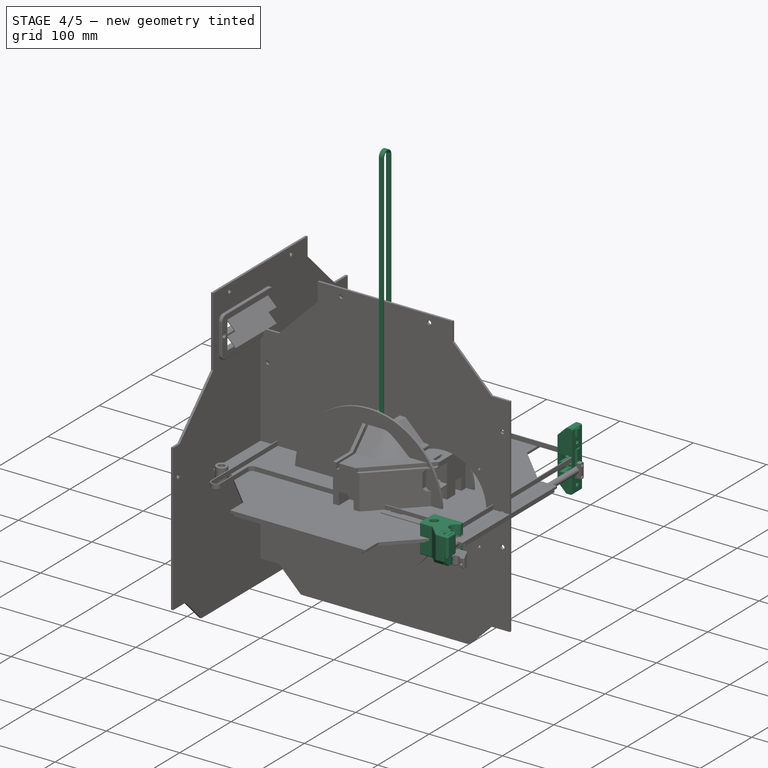
[diagram: stage 4 of 5 — iso view after this stage's code; geometry added in this stage tinted green]
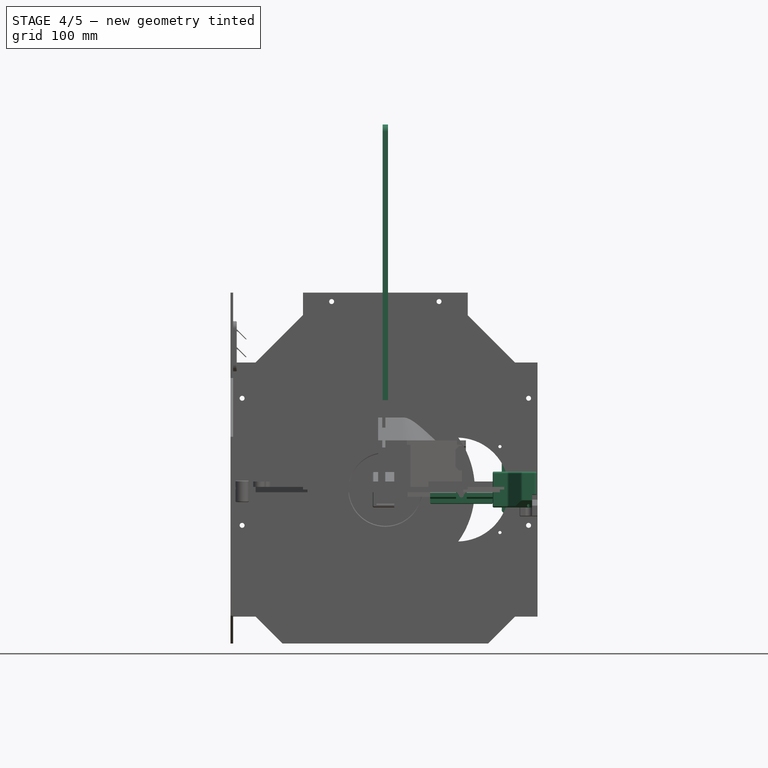
[diagram: stage 4 of 5 — front view after this stage's code; geometry added in this stage tinted green]
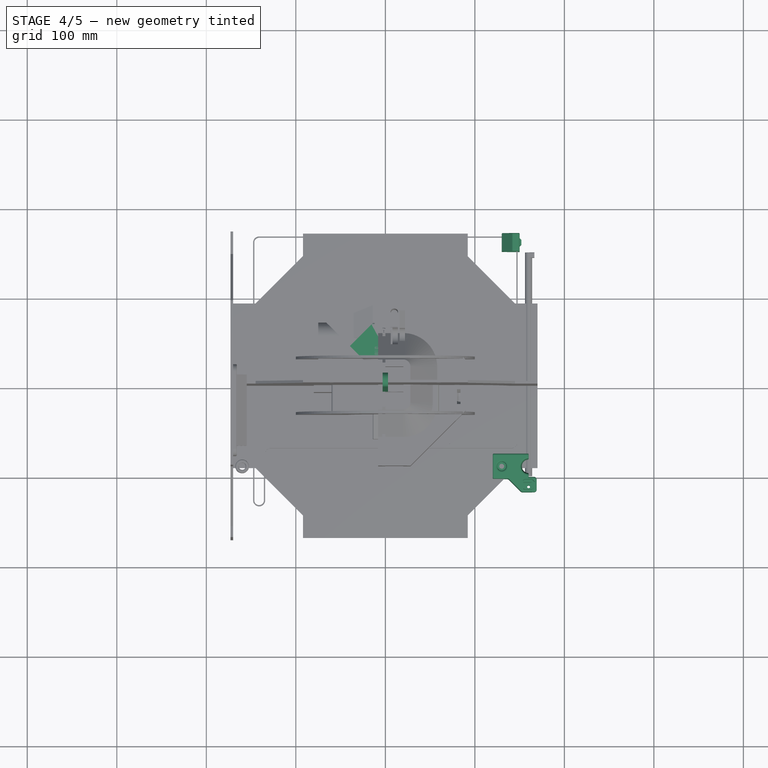
[diagram: stage 4 of 5 — top view after this stage's code; geometry added in this stage tinted green]
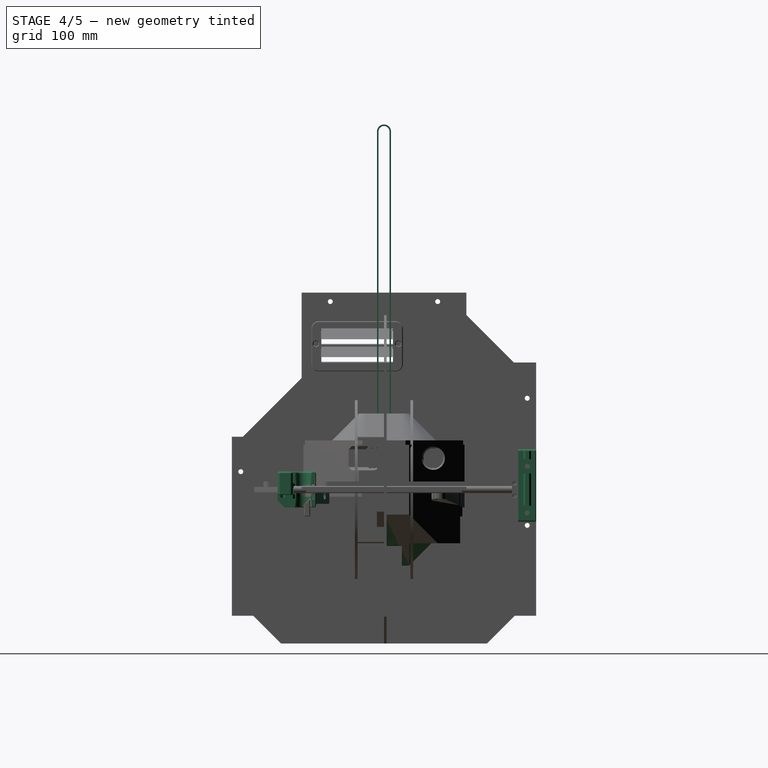
[diagram: stage 4 of 5 — right view after this stage's code; geometry added in this stage tinted green]
FEATURE [PartDesign::Line] DatumLine
  AttacherType = Attacher::AttachEngineLine
  AttachmentSupport = -> [Pad107]
  Length = 20
  MapMode = 29
  Placement = pos=(-9e-16,0,-9e-16) rot=(0.187053,0.451587,0.872399;2.44807rad)
  ResizeMode = 0
FEATURE [Sketcher::SketchObject] Sketch483
  ArcFitTolerance = 1e-06
  AttachmentOffset = pos=(0,0,20) rot=(0,0,1;0rad)
  AttachmentSupport = -> [XY_Plane316]
  FullyConstrained = true
  MakeInternals = false
  MapMode = 5
  Placement = pos=(0,0,20) rot=(0,0,1;0rad)
  expr: Constraints[21] = Spreadsheet.corner_extrusion_pocket
  sketch-geometry (8):
    g0: LineSegment StartX=-0.1 StartY=20.1 StartZ=0 EndX=-0.1 EndY=-0.1 EndZ=0
    g1: LineSegment StartX=-0.1 StartY=-0.1 StartZ=0 EndX=20.1 EndY=-0.1 EndZ=0
    g2: LineSegment StartX=20.1 StartY=-0.1 StartZ=0 EndX=20.1 EndY=20.1 EndZ=0
    g3: LineSegment StartX=20.1 StartY=20.1 StartZ=0 EndX=-0.1 EndY=20.1 EndZ=0
    g4: LineSegment [constr] StartX=0 StartY=0 StartZ=0 EndX=10 EndY=0 EndZ=0
    g5: LineSegment [constr] StartX=10 StartY=0 StartZ=0 EndX=10 EndY=10 EndZ=0
    g6: LineSegment [constr] StartX=10 StartY=10 StartZ=0 EndX=0 EndY=10 EndZ=0
    g7: LineSegment [constr] StartX=0 StartY=10 StartZ=0 EndX=0 EndY=0 EndZ=0
  constraints (22):
    c: Coincident(g0,g1)
    c: Coincident(g1,g2)
    c: Coincident(g2,g3)
    c: Coincident(g3,g0)
    c: Vertical(g0)
    c: Vertical(g2)
    c: Horizontal(g1)
    c: Horizontal(g3)
    c: Coincident(g4,g5)
    c: Coincident(g5,g6)
    c: Coincident(g6,g7)
    c: Coincident(g7,g4)
    c: Horizontal(g4)
    c: Horizontal(g6)
    c: Vertical(g5)
    c: Vertical(g7)
    c: Coincident(g4,g-1)
    c: Equal(g5,g6)
    c: DistanceY(g5,g5) = 10
    c: Symmetric(g0,g1,g5)
    c: Equal(g0,g3)
    c: DistanceX(g1,g1) = 20.2
FEATURE [Sketcher::SketchObject] Sketch484
  ArcFitTolerance = 1e-06
  AttachmentSupport = -> [XZ_Plane317]
  FullyConstrained = true
  MakeInternals = false
  MapMode = 5
  Placement = pos=(0,0,0) rot=(1,0,0;1.5708rad)
  sketch-geometry (1):
    g0: Circle CenterX=0 CenterY=0 CenterZ=0 NormalX=0 NormalY=0 NormalZ=1 AngleXU=0 Radius=4
  constraints (2):
    c: Coincident(g0,g-1)
    c: Diameter(g0) = 8
FEATURE [PartDesign::Pad] Pad108
  Direction = (0,-1,2e-16)
  Length = 250
  Length2 = 10
  Midplane = true
  Placement = pos=(0,0,0) rot=(1,0,0;1.5708rad)
  Profile = -> Sketch484
  ReferenceAxis = -> Sketch484 [N_Axis]
  Suppressed = false
  Type = 0
FEATURE [Sketcher::SketchObject] Sketch501
  ArcFitTolerance = 1e-06
  AttachmentSupport = -> [XY_Plane324]
  FullyConstrained = true
  MakeInternals = false
  MapMode = 5
  sketch-geometry (4):
    g0: LineSegment StartX=-8 StartY=-8 StartZ=0 EndX=85 EndY=-8 EndZ=0
    g1: LineSegment StartX=85 StartY=-8 StartZ=0 EndX=85 EndY=85 EndZ=0
    g2: LineSegment StartX=85 StartY=85 StartZ=0 EndX=-8 EndY=85 EndZ=0
    g3: LineSegment StartX=-8 StartY=85 StartZ=0 EndX=-8 EndY=-8 EndZ=0
  constraints (12):
    c: Coincident(g0,g1)
    c: Coincident(g1,g2)
    c: Coincident(g2,g3)
    c: Coincident(g3,g0)
    c: Horizontal(g0)
    c: Horizontal(g2)
    c: Vertical(g1)
    c: Vertical(g3)
    c: DistanceX(g0) = -8
    c: DistanceY(g0) = -8
    c: DistanceX(g1) = 85
    c: Equal(g1,g2)
FEATURE [PartDesign::Pad] Pad112
  Direction = (0,0,1)
  Length = 8
  Length2 = 85
  Profile = -> Sketch501
  ReferenceAxis = -> Sketch501 [N_Axis]
  Suppressed = false
  Type = 4
FEATURE [PartDesign::Line] DatumLine002
  AttacherType = Attacher::AttachEngineLine
  AttachmentSupport = -> [Pad112]
  Length = 20
  MapMode = 31
  Placement = pos=(-9e-16,-9e-16,9e-16) rot=(0.345235,0.833472,0.431437;2.78791rad)
  ResizeMode = 0
FEATURE [Sketcher::SketchObject] Sketch502
  ArcFitTolerance = 1e-06
  AttachmentSupport = -> [XZ_Plane324]
  FullyConstrained = true
  MakeInternals = false
  MapMode = 5
  Placement = pos=(0,0,0) rot=(1,0,0;1.5708rad)
  sketch-geometry (3):
    g0: LineSegment StartX=85 StartY=-28 StartZ=0 EndX=28 EndY=-85 EndZ=0
    g1: LineSegment StartX=85 StartY=-85 StartZ=0 EndX=85 EndY=-28 EndZ=0
    g2: LineSegment StartX=28 StartY=-85 StartZ=0 EndX=85 EndY=-85 EndZ=0
  constraints (9):
    c: Coincident(g1,g0)
    c: Vertical(g1)
    c: Angle(g0) = -2.35619
    c: DistanceX(g1) = 85
    c: DistanceY(g1) = -85
    c: DistanceY(g0) = -28
    c: Coincident(g2,g1)
    c: Horizontal(g2)
    c: Coincident(g2,g0)
FEATURE [Sketcher::SketchObject] Sketch503
  ArcFitTolerance = 1e-06
  AttachmentOffset = pos=(0,0,-20) rot=(0,0,1;0rad)
  AttachmentSupport = -> [XY_Plane324]
  FullyConstrained = true
  MakeInternals = false
  MapMode = 5
  Placement = pos=(0,0,-20) rot=(0,0,1;0rad)
  expr: Constraints[21] = Spreadsheet.corner_extrusion_pocket
  sketch-geometry (8):
    g0: LineSegment StartX=-0.1 StartY=20.1 StartZ=0 EndX=-0.1 EndY=-0.1 EndZ=0
    g1: LineSegment StartX=-0.1 StartY=-0.1 StartZ=0 EndX=20.1 EndY=-0.1 EndZ=0
    g2: LineSegment StartX=20.1 StartY=-0.1 StartZ=0 EndX=20.1 EndY=20.1 EndZ=0
    g3: LineSegment StartX=20.1 StartY=20.1 StartZ=0 EndX=-0.1 EndY=20.1 EndZ=0
    g4: LineSegment [constr] StartX=0 StartY=0 StartZ=0 EndX=10 EndY=0 EndZ=0
    g5: LineSegment [constr] StartX=10 StartY=0 StartZ=0 EndX=10 EndY=10 EndZ=0
    g6: LineSegment [constr] StartX=10 StartY=10 StartZ=0 EndX=0 EndY=10 EndZ=0
    g7: LineSegment [constr] StartX=0 StartY=10 StartZ=0 EndX=0 EndY=0 EndZ=0
  constraints (22):
    c: Coincident(g0,g1)
    c: Coincident(g1,g2)
    c: Coincident(g2,g3)
    c: Coincident(g3,g0)
    c: Vertical(g0)
    c: Vertical(g2)
    c: Horizontal(g1)
    c: Horizontal(g3)
    c: Coincident(g4,g5)
    c: Coincident(g5,g6)
    c: Coincident(g6,g7)
    c: Coincident(g7,g4)
    c: Horizontal(g4)
    c: Horizontal(g6)
    c: Vertical(g5)
    c: Vertical(g7)
    c: Coincident(g4,g-1)
    c: Equal(g5,g6)
    c: DistanceY(g5,g5) = 10
    c: Symmetric(g0,g1,g5)
    c: Equal(g0,g3)
    c: DistanceX(g1,g1) = 20.2
FEATURE [Sketcher::SketchObject] Sketch507
  ArcFitTolerance = 1e-06
  AttachmentSupport = -> [XZ_Plane324]
  FullyConstrained = true
  MakeInternals = false
  MapMode = 5
  Placement = pos=(0,0,0) rot=(1,0,0;1.5708rad)
  sketch-geometry (8):
    g0: LineSegment StartX=77 StartY=8 StartZ=0 EndX=85 EndY=8 EndZ=0
    g1: LineSegment StartX=85 StartY=8 StartZ=0 EndX=85 EndY=-85 EndZ=0
    g2: LineSegment StartX=85 StartY=-85 StartZ=0 EndX=-8 EndY=-85 EndZ=0
    g3: LineSegment StartX=24.6863 StartY=-77 StartZ=0 EndX=77 EndY=-24.6863 EndZ=0
    g4: LineSegment StartX=77 StartY=-24.6863 StartZ=0 EndX=77 EndY=8 EndZ=0
    g5: LineSegment StartX=24.6863 StartY=-77 StartZ=0 EndX=-8 EndY=-77 EndZ=0
    g6: LineSegment StartX=-8 StartY=-77 StartZ=0 EndX=-8 EndY=-85 EndZ=0
    g7: GeomPoint X=85 Y=-28 Z=0
  constraints (23):
    c: Horizontal(g0)
    c: Coincident(g0,g1)
    c: Vertical(g1)
    c: Coincident(g1,g2)
    c: Horizontal(g2)
    c: Coincident(g3,g4)
    c: Coincident(g4,g0)
    c: Vertical(g4)
    c: DistanceX(g0) = 85
    c: DistanceY(g1) = -85
    c: DistanceX(g0,g0) = 8
    c: Angle(g3) = 0.785398
    c: Coincident(g3,g5)
    c: Horizontal(g5)
    c: Coincident(g5,g6)
    c: Coincident(g6,g2)
    c: Equal(g6,g0)
    c: PointOnObject(g7,g1)
    c: DistanceY(g7) = -28
    c: Distance(g7,g3) = 8
    c: Vertical(g6)
    c: DistanceX(g5) = -8
    c: DistanceY(g0) = 8
FEATURE [PartDesign::Pocket] Pocket
  BaseFeature = -> Pad112
  Direction = (0,0,-1)
  Length = 5
  Length2 = 5
  Profile = -> Sketch503
  ReferenceAxis = -> Sketch503 [N_Axis]
  Suppressed = false
  Type = 1
FEATURE [PartDesign::Pocket] Pocket356
  BaseFeature = -> Pocket
  Direction = (0,1,-2e-16)
  Length = 5
  Length2 = 5
  Midplane = true
  Profile = -> Sketch502
  ReferenceAxis = -> Sketch502 [N_Axis]
  Suppressed = false
  Type = 1
FEATURE [PartDesign::Pocket] Pocket357
  BaseFeature = -> Pocket356
  Direction = (0,1,-2e-16)
  Length = 5
  Length2 = 5
  Profile = -> Sketch507
  ReferenceAxis = -> Sketch507 [N_Axis]
  Reversed = true
  Suppressed = false
  Type = 1
FEATURE [PartDesign::PolarPattern] PolarPattern007
  Angle = 360
  Axis = -> DatumLine002
  BaseFeature = -> Pocket357
  Mode = 0
  Occurrences = 3
  Offset = 120
  Originals = -> [Pocket,Pocket356,Pocket357]
  Refine = true
  Suppressed = false
  TransformMode = 0
FEATURE [PartDesign::Plane] DatumPlane003
  AttachmentOffset = pos=(0,0,-4) rot=(0,0,1;0rad)
  AttachmentSupport = -> [PolarPattern007]
  Length = 188.996
  MapMode = 13
  Placement = pos=(4.2906,4.2906,-4.2906) rot=(0.345235,0.833472,0.431437;2.78791rad)
  ResizeMode = 0
  Width = 213.062
FEATURE [PartDesign::Pocket] Pocket358
  BaseFeature = -> PolarPattern007
  Direction = (-0.57735,-0.57735,0.57735)
  Length = 5
  Length2 = 5
  Profile = -> DatumPlane003
  Suppressed = false
  Type = 1
FEATURE [PartDesign::Plane] DatumPlane004
  AttachmentSupport = -> [Pocket358]
  Length = 188.996
  MapMode = 13
  Placement = pos=(47,47,-47) rot=(0.742906,-0.307722,-0.594473;1.21712rad)
  ResizeMode = 0
  Width = 213.062
FEATURE [PartDesign::Pocket] Pocket359
  BaseFeature = -> Pocket358
  Direction = (0.57735,0.57735,-0.57735)
  Length = 5
  Length2 = 5
  Profile = -> DatumPlane004
  Suppressed = false
  Type = 1
FEATURE [App::LinkElement] Link034_i0
  LinkPlacement = pos=(0,0,-95) rot=(0,0,1;0rad)
  LinkedObject = -> <external general/standard-stuff.FCStd>#Group003 [Body.]
  Placement = pos=(0,0,-95) rot=(0,0,1;0rad)
  _LinkOwner = 3002
  expr: .Placement.Base.z = -Spreadsheet.side_length / 2 + 75
FEATURE [App::LinkElement] Link034_i1
  LinkPlacement = pos=(0,0,9) rot=(0,0,1;0rad)
  LinkedObject = -> <external general/standard-stuff.FCStd>#Group003 [Body.]
  Placement = pos=(0,0,9) rot=(0,0,1;0rad)
  _LinkOwner = 3002
FEATURE [App::Link] Link034  label="z-motion-back-bearing-left"
  ElementCount = 2
  ElementList = -> [Link034_i0,Link034_i1]
  LinkPlacement = pos=(0,157,35) rot=(0,1,0;1.5708rad)
  LinkedObject = -> <external general/standard-stuff.FCStd>#Group003 [Body.]
  Placement = pos=(0,157,35) rot=(0,1,0;1.5708rad)
  expr: .Placement.Base.y = Spreadsheet.side_length / 2 - 13
FEATURE [App::Link] Link035  label="z-motion-back-pulley-20t"
  LinkPlacement = pos=(0,157,35) rot=(0,-1,0;1.5708rad)
  LinkedObject = -> <external general/standard-stuff.FCStd>#Group001 [Body071.]
  Placement = pos=(0,157,35) rot=(0,-1,0;1.5708rad)
  expr: .Placement.Base.y = Spreadsheet.side_length / 2 - 13
FEATURE [Sketcher::SketchObject] Sketch551
  ArcFitTolerance = 1e-06
  AttachmentSupport = -> [YZ_Plane344]
  FullyConstrained = true
  MakeInternals = false
  MapMode = 5
  Placement = pos=(0,0,0) rot=(0.57735,0.57735,0.57735;2.0944rad)
  expr: Constraints[7] = Spreadsheet.height - 40
  sketch-geometry (8):
    g0: ArcOfCircle CenterX=-2e-16 CenterY=400 CenterZ=0 NormalX=0 NormalY=0 NormalZ=1 AngleXU=0 Radius=7.85 StartAngle=-9e-16 EndAngle=3.14159
    g1: ArcOfCircle CenterX=0 CenterY=35 CenterZ=0 NormalX=0 NormalY=0 NormalZ=1 AngleXU=0 Radius=7.85 StartAngle=3.14159 EndAngle=6.28319
    g2: LineSegment StartX=7.85 StartY=400 StartZ=0 EndX=7.85 EndY=35 EndZ=0
    g3: LineSegment StartX=-7.85 StartY=400 StartZ=0 EndX=-7.85 EndY=35 EndZ=0
    g4: ArcOfCircle CenterX=-2e-16 CenterY=400 CenterZ=0 NormalX=0 NormalY=0 NormalZ=1 AngleXU=0 Radius=6.1 StartAngle=9e-16 EndAngle=3.14159
    g5: ArcOfCircle CenterX=0 CenterY=35 CenterZ=0 NormalX=0 NormalY=0 NormalZ=1 AngleXU=0 Radius=6.1 StartAngle=3.14159 EndAngle=6.28319
    g6: LineSegment StartX=6.1 StartY=400 StartZ=0 EndX=6.1 EndY=35 EndZ=0
    g7: LineSegment StartX=-6.1 StartY=400 StartZ=0 EndX=-6.1 EndY=35 EndZ=0
  constraints (18):
    c: Tangent(g0,g2) = 1.5708
    c: Tangent(g0,g3) = -1.5708
    c: Tangent(g1,g2) = 1.5708
    c: Tangent(g1,g3) = -1.5708
    c: Equal(g0,g1)
    c: Vertical(g2)
    c: PointOnObject(g1,g-2)
    c: DistanceY(g0) = 400
    c: Tangent(g4,g6) = 1.5708
    c: Tangent(g4,g7) = -1.5708
    c: Tangent(g5,g6) = 1.5708
    c: Tangent(g5,g7) = -1.5708
    c: Equal(g4,g5)
    c: Coincident(g4,g0)
    c: Coincident(g5,g1)
    c: Diameter(g4) = 12.2
    c: DistanceX(g4,g0) = 1.75
    c: DistanceY(g1) = 35
FEATURE [PartDesign::Pad] Pad121
  Direction = (1,0,0)
  Length = 6
  Length2 = 10
  Midplane = true
  Placement = pos=(0,0,0) rot=(1,1,1;2.0944rad)
  Profile = -> Sketch551
  ReferenceAxis = -> Sketch551 [N_Axis]
  Suppressed = false
  Type = 0
FEATURE [PartDesign::Body] Body193  label="z-motion-back-belt"
  AllowCompound = false
  Group = -> [Sketch551,Pad121]
  Origin = -> Origin345
  Placement = pos=(0,157,0) rot=(0,0,1;0rad)
  Tip = -> Pad121
  expr: .Placement.Base.y = Spreadsheet.side_length / 2 - 13
FEATURE [Sketcher::SketchObject] Sketch552
  ArcFitTolerance = 1e-06
  AttachmentSupport = -> [XZ_Plane345]
  FullyConstrained = true
  MakeInternals = false
  MapMode = 5
  Placement = pos=(0,0,0) rot=(1,0,0;1.5708rad)
  expr: Constraints[10] = -Spreadsheet.side_length / 2 + 85
  sketch-geometry (22):
    g0: LineSegment StartX=-83 StartY=0 StartZ=0 EndX=30 EndY=0 EndZ=0
    g1: LineSegment StartX=32 StartY=-2 StartZ=0 EndX=32 EndY=-7.17157 EndZ=0
    g2: LineSegment StartX=31.4142 StartY=-8.58579 StartZ=0 EndX=12.5858 EndY=-27.4142 EndZ=0
    g3: LineSegment StartX=11.1716 StartY=-28 StartZ=0 EndX=-11.1716 EndY=-28 EndZ=0
    g4: LineSegment StartX=-12.5858 StartY=-27.4142 StartZ=0 EndX=-31.4142 EndY=-8.58579 EndZ=0
    g5: LineSegment StartX=-32.8284 StartY=-8 StartZ=0 EndX=-83 EndY=-8 EndZ=0
    g6: LineSegment StartX=-85 StartY=-6 StartZ=0 EndX=-85 EndY=-2 EndZ=0
    g7: GeomPoint X=0 Y=-20 Z=0
    g8: ArcOfCircle CenterX=30 CenterY=-2 CenterZ=0 NormalX=0 NormalY=0 NormalZ=1 AngleXU=0 Radius=2 StartAngle=0 EndAngle=1.5708
    g9: GeomPoint [constr] X=32 Y=0 Z=0
    g10: ArcOfCircle CenterX=30 CenterY=-7.17157 CenterZ=0 NormalX=0 NormalY=0 NormalZ=1 AngleXU=0 Radius=2 StartAngle=5.49779 EndAngle=6.28319
    g11: GeomPoint [constr] X=32 Y=-8 Z=0
    g12: ArcOfCircle CenterX=11.1716 CenterY=-26 CenterZ=0 NormalX=0 NormalY=0 NormalZ=1 AngleXU=0 Radius=2 StartAngle=4.71239 EndAngle=5.49779
    g13: GeomPoint [constr] X=12 Y=-28 Z=0
    g14: ArcOfCircle CenterX=-11.1716 CenterY=-26 CenterZ=0 NormalX=0 NormalY=0 NormalZ=1 AngleXU=0 Radius=2 StartAngle=3.92699 EndAngle=4.71239
    g15: GeomPoint [constr] X=-12 Y=-28 Z=0
    g16: ArcOfCircle CenterX=-32.8284 CenterY=-10 CenterZ=0 NormalX=0 NormalY=0 NormalZ=1 AngleXU=0 Radius=2 StartAngle=0.785398 EndAngle=1.5708
    g17: GeomPoint [constr] X=-32 Y=-8 Z=0
    g18: ArcOfCircle CenterX=-83 CenterY=-6 CenterZ=0 NormalX=0 NormalY=0 NormalZ=1 AngleXU=0 Radius=2 StartAngle=3.14159 EndAngle=4.71239
    g19: GeomPoint [constr] X=-85 Y=-8 Z=0
    g20: ArcOfCircle CenterX=-83 CenterY=-2 CenterZ=0 NormalX=0 NormalY=0 NormalZ=1 AngleXU=0 Radius=2 StartAngle=1.5708 EndAngle=3.14159
    g21: GeomPoint [constr] X=-85 Y=0 Z=0
  constraints (50):
    c: PointOnObject(g21,g-1)
    c: Horizontal(g0)
    c: Vertical(g1)
    c: Horizontal(g5)
    c: Vertical(g6)
    c: Symmetric(g15,g13,g-2)
    c: Perpendicular(g4,g2)
    c: Angle(g2) = -2.35619
    c: DistanceY(g11,g9) = 8
    c: DistanceY(g19,g21) = 8
    c: DistanceX(g21) = -85
    c: PointOnObject(g7,g-2)
    c: DistanceY(g7) = -20
    c: DistanceY(g13,g7) = 8
    c: DistanceX(g15,g13) = 24
    c: PointOnObject(g9,g0)
    c: PointOnObject(g9,g1)
    c: Tangent(g0,g8) = 1.5708
    c: Tangent(g1,g8) = 1.5708
    c: PointOnObject(g11,g1)
    c: PointOnObject(g11,g2)
    c: Tangent(g1,g10) = 1.5708
    c: Tangent(g2,g10) = 1.5708
    c: PointOnObject(g13,g2)
    c: PointOnObject(g13,g3)
    c: Tangent(g2,g12) = 1.5708
    c: Tangent(g3,g12) = 1.5708
    c: PointOnObject(g15,g3)
    c: PointOnObject(g15,g4)
    c: Tangent(g3,g14) = 1.5708
    c: Tangent(g4,g14) = 1.5708
    c: PointOnObject(g17,g4)
    c: PointOnObject(g17,g5)
    c: Tangent(g4,g16) = -1.5708
    c: Tangent(g5,g16) = -1.5708
    c: PointOnObject(g19,g5)
    c: PointOnObject(g19,g6)
    c: Tangent(g5,g18) = 1.5708
    c: Tangent(g6,g18) = 1.5708
    c: PointOnObject(g21,g0)
    c: PointOnObject(g21,g6)
    c: Tangent(g0,g20) = 1.5708
    c: Tangent(g6,g20) = 1.5708
    c: Equal(g20,g18)
    c: Equal(g18,g16)
    c: Equal(g16,g14)
    c: Equal(g14,g12)
    c: Equal(g12,g10)
    c: Equal(g10,g8)
    c: Radius(g8) = 2
FEATURE [PartDesign::Pad] Pad122
  Direction = (0,-1,2e-16)
  Length = 20
  Length2 = 10
  Placement = pos=(0,0,0) rot=(1,0,0;1.5708rad)
  Profile = -> Sketch552
  ReferenceAxis = -> Sketch552 [N_Axis]
  Suppressed = false
  Type = 0
FEATURE [Sketcher::SketchObject] Sketch553
  ArcFitTolerance = 1e-06
  AttachmentSupport = -> [XZ_Plane345]
  FullyConstrained = true
  MakeInternals = false
  MapMode = 5
  Placement = pos=(0,0,0) rot=(1,0,0;1.5708rad)
  sketch-geometry (11):
    g0: LineSegment StartX=-5.25 StartY=-10 StartZ=0 EndX=-5.25 EndY=-26 EndZ=0
    g1: LineSegment StartX=5.25 StartY=-26 StartZ=0 EndX=5.25 EndY=-10 EndZ=0
    g2: LineSegment StartX=3.25 StartY=-8 StartZ=0 EndX=-3.25 EndY=-8 EndZ=0
    g3: GeomPoint X=0 Y=-20 Z=0
    g4: ArcOfCircle CenterX=3.25 CenterY=-10 CenterZ=0 NormalX=0 NormalY=0 NormalZ=1 AngleXU=0 Radius=2 StartAngle=2e-16 EndAngle=1.5708
    g5: GeomPoint [constr] X=5.25 Y=-8 Z=0
    g6: ArcOfCircle CenterX=-3.25 CenterY=-10 CenterZ=0 NormalX=0 NormalY=0 NormalZ=1 AngleXU=0 Radius=2 StartAngle=1.5708 EndAngle=3.14159
    g7: GeomPoint [constr] X=-5.25 Y=-8 Z=0
    g8: ArcOfCircle CenterX=7.25 CenterY=-26 CenterZ=0 NormalX=0 NormalY=0 NormalZ=1 AngleXU=0 Radius=2 StartAngle=3.14159 EndAngle=4.71239
    g9: ArcOfCircle CenterX=-7.25 CenterY=-26 CenterZ=0 NormalX=0 NormalY=0 NormalZ=1 AngleXU=0 Radius=2 StartAngle=4.71239 EndAngle=6.28319
    g10: LineSegment StartX=7.25 StartY=-28 StartZ=0 EndX=-7.25 EndY=-28 EndZ=0
  constraints (25):
    c: Vertical(g0)
    c: Vertical(g1)
    c: Horizontal(g2)
    c: PointOnObject(g3,g-2)
    c: DistanceY(g3) = -20
    c: DistanceY(g3,g5) = 12
    c: PointOnObject(g5,g1)
    c: PointOnObject(g5,g2)
    c: Tangent(g1,g4) = -1.5708
    c: Tangent(g2,g4) = -1.5708
    c: PointOnObject(g7,g0)
    c: Tangent(g0,g6) = -1.5708
    c: Tangent(g2,g6) = -1.5708
    c: Equal(g6,g4)
    c: Radius(g6) = 2
    c: Tangent(g9,g0) = 1.5708
    c: Tangent(g8,g1) = 1.5708
    c: Tangent(g10,g8) = 1.5708
    c: Horizontal(g10)
    c: Tangent(g10,g9) = 1.5708
    c: Equal(g9,g8)
    c: Equal(g4,g8)
    c: DistanceY(g8) = -28
    c: Symmetric(g5,g7,g-2)
    c: DistanceX(g0,g1) = 10.5
FEATURE [PartDesign::Pocket] Pocket391
  BaseFeature = -> Pad122
  Direction = (0,1,-2e-16)
  Length = 5
  Length2 = 5
  Placement = pos=(0,0,0) rot=(1,0,0;1.5708rad)
  Profile = -> Sketch553
  ReferenceAxis = -> Sketch553 [N_Axis]
  Reversed = true
  Suppressed = false
  Type = 1
FEATURE [Sketcher::SketchObject] Sketch554
  ArcFitTolerance = 1e-06
  AttachmentOffset = pos=(0,0,13) rot=(0,0,1;0rad)
  AttachmentSupport = -> [XZ_Plane345]
  FullyConstrained = true
  MakeInternals = false
  MapMode = 5
  Placement = pos=(0,-13,2.9e-15) rot=(1,0,0;1.5708rad)
  sketch-geometry (5):
    g0: GeomPoint X=0 Y=-20 Z=0
    g1: LineSegment StartX=5.25 StartY=-15 StartZ=0 EndX=4.25 EndY=-16 EndZ=0
    g2: LineSegment StartX=4.25 StartY=-16 StartZ=0 EndX=4.25 EndY=-20 EndZ=0
    g3: LineSegment StartX=4.25 StartY=-20 StartZ=0 EndX=5.25 EndY=-20 EndZ=0
    g4: LineSegment StartX=5.25 StartY=-20 StartZ=0 EndX=5.25 EndY=-15 EndZ=0
  constraints (14):
    c: PointOnObject(g0,g-2)
    c: DistanceY(g0) = -20
    c: Coincident(g1,g2)
    c: Vertical(g2)
    c: Coincident(g2,g3)
    c: Horizontal(g3)
    c: Coincident(g3,g4)
    c: Coincident(g4,g1)
    c: Vertical(g4)
    c: Angle(g1) = -2.35619
    c: Horizontal(g2,g0)
    c: DistanceX(g3) = 5.25
    c: DistanceY(g2,g2) = 4
    c: DistanceX(g3,g3) = 1
FEATURE [PartDesign::Revolution] Revolution001
  Angle = 360
  Angle2 = 60
  Axis = (1,0,0)
  Base = (4.25,-13,-20)
  BaseFeature = -> Pocket391
  Placement = pos=(0,0,0) rot=(1,0,0;1.5708rad)
  Profile = -> Sketch554
  ReferenceAxis = -> Sketch554 [Edge3]
  Reversed = true
  Suppressed = false
  Type = 0
FEATURE [PartDesign::Mirrored] Mirrored012
  BaseFeature = -> Revolution001
  MirrorPlane = -> YZ_Plane345
  Originals = -> [Revolution001]
  Placement = pos=(0,0,0) rot=(1,0,0;1.5708rad)
  Suppressed = false
  TransformMode = 0
FEATURE [App::Link] Link036  label="z-motion-back-idler"
  LinkPlacement = pos=(0,157,400) rot=(0,1,0;1.5708rad)
  LinkedObject = -> <external general/standard-stuff.FCStd>#Body084
  Placement = pos=(0,157,400) rot=(0,1,0;1.5708rad)
  expr: .Placement.Base.y = Spreadsheet.side_length / 2 - 13
  expr: .Placement.Base.z = Spreadsheet.height - 40
FEATURE [Sketcher::SketchObject] Sketch555
  ArcFitTolerance = 1e-06
  AttachmentSupport = -> [XY_Plane345]
  FullyConstrained = true
  MakeInternals = false
  MapMode = 5
  sketch-geometry (2):
    g0: Circle CenterX=22 CenterY=-10 CenterZ=0 NormalX=0 NormalY=0 NormalZ=1 AngleXU=0 Radius=2.75
    g1: Circle CenterX=-28 CenterY=-10 CenterZ=0 NormalX=0 NormalY=0 NormalZ=1 AngleXU=0 Radius=2.75
  constraints (6):
    c: Equal(g0,g1)
    c: DistanceY(g0) = -10
    c: DistanceX(g0) = 22
    c: Diameter(g0) = 5.5
    c: Horizontal(g1,g0)
    c: DistanceX(g1) = -28
FEATURE [PartDesign::Pocket] Pocket392
  BaseFeature = -> Mirrored012
  Direction = (0,0,-1)
  Length = 5
  Length2 = 5
  Placement = pos=(0,0,0) rot=(1,0,0;1.5708rad)
  Profile = -> Sketch555
  ReferenceAxis = -> Sketch555 [N_Axis]
  Suppressed = false
  Type = 1
FEATURE [Sketcher::SketchObject] Sketch556
  ArcFitTolerance = 1e-06
  AttachmentOffset = pos=(0,0,-4) rot=(0,0,1;0rad)
  AttachmentSupport = -> [XY_Plane345]
  FullyConstrained = true
  MakeInternals = false
  MapMode = 5
  Placement = pos=(0,0,-4) rot=(0,0,1;0rad)
  sketch-geometry (2):
    g0: Circle CenterX=22 CenterY=-10 CenterZ=0 NormalX=0 NormalY=0 NormalZ=1 AngleXU=0 Radius=5
    g1: Circle CenterX=-28 CenterY=-10 CenterZ=0 NormalX=0 NormalY=0 NormalZ=1 AngleXU=0 Radius=5
  constraints (6):
    c: DistanceX(g1) = -28
    c: DistanceX(g0) = 22
    c: Equal(g0,g1)
    c: Horizontal(g1,g0)
    c: DistanceY(g0) = -10
    c: Diameter(g0) = 10
FEATURE [PartDesign::Pocket] Pocket393
  BaseFeature = -> Pocket392
  Direction = (0,0,-1)
  Length = 5
  Length2 = 5
  Placement = pos=(0,0,0) rot=(1,0,0;1.5708rad)
  Profile = -> Sketch556
  ReferenceAxis = -> Sketch556 [N_Axis]
  Suppressed = false
  Type = 1
FEATURE [Sketcher::SketchObject] Sketch557
  ArcFitTolerance = 1e-06
  AttachmentOffset = pos=(0,0,13) rot=(0,0,1;0rad)
  AttachmentSupport = -> [XZ_Plane345]
  FullyConstrained = true
  MakeInternals = false
  MapMode = 5
  Placement = pos=(0,-13,2.9e-15) rot=(1,0,0;1.5708rad)
  sketch-geometry (6):
    g0: LineSegment StartX=-10.5 StartY=-17.5 StartZ=0 EndX=10.5 EndY=-17.5 EndZ=0
    g1: LineSegment StartX=10.5 StartY=-17.5 StartZ=0 EndX=10.5 EndY=-15 EndZ=0
    g2: LineSegment StartX=10.5 StartY=-15 StartZ=0 EndX=32 EndY=-15 EndZ=0
    g3: LineSegment StartX=32 StartY=-15 StartZ=0 EndX=32 EndY=-20 EndZ=0
    g4: LineSegment StartX=32 StartY=-20 StartZ=0 EndX=-10.5 EndY=-20 EndZ=0
    g5: LineSegment StartX=-10.5 StartY=-20 StartZ=0 EndX=-10.5 EndY=-17.5 EndZ=0
  constraints (17):
    c: Coincident(g0,g1)
    c: Vertical(g1)
    c: Coincident(g1,g2)
    c: Horizontal(g2)
    c: Coincident(g2,g3)
    c: Coincident(g3,g4)
    c: Horizontal(g4)
    c: Coincident(g4,g5)
    c: Coincident(g5,g0)
    c: Vertical(g5)
    c: Vertical(g3)
    c: DistanceY(g5,g5) = 2.5
    c: DistanceY(g4) = -20
    c: DistanceY(g3,g3) = 5
    c: DistanceX(g0,g0) = 21
    c: Symmetric(g0,g0,g-2)
    c: DistanceX(g2) = 32
FEATURE [PartDesign::Groove] Groove020
  Angle = 360
  Angle2 = 60
  Axis = (-1,0,0)
  Base = (32,-13,-20)
  BaseFeature = -> Pocket393
  Placement = pos=(0,0,0) rot=(1,0,0;1.5708rad)
  Profile = -> Sketch557
  ReferenceAxis = -> Sketch557 [Edge5]
  Suppressed = false
  Type = 0
FEATURE [PartDesign::Chamfer] Chamfer
  Angle = 45
  Base = -> Groove020 [Face5]
  BaseFeature = -> Groove020
  ChamferType = 0
  FlipDirection = false
  Placement = pos=(0,0,0) rot=(1,0,0;1.5708rad)
  Size = 0.75
  Size2 = 1
  SupportTransform = false
  Suppressed = false
  UseAllEdges = false
FEATURE [Sketcher::SketchObject] Sketch558
  ArcFitTolerance = 1e-06
  AttachmentSupport = -> [YZ_Plane345]
  FullyConstrained = true
  MakeInternals = false
  MapMode = 5
  Placement = pos=(0,0,0) rot=(0.57735,0.57735,0.57735;2.0944rad)
  sketch-geometry (8):
    g0: GeomPoint X=-10 Y=0 Z=0
    g1: LineSegment StartX=-14.5672 StartY=0 StartZ=0 EndX=-12.5672 EndY=2 EndZ=0
    g2: LineSegment StartX=-12.5672 StartY=2 StartZ=0 EndX=-7.43284 EndY=2 EndZ=0
    g3: LineSegment StartX=-7.43284 StartY=2 StartZ=0 EndX=-5.43284 EndY=0 EndZ=0
    g4: LineSegment StartX=-5.43284 StartY=0 StartZ=0 EndX=-14.5672 EndY=0 EndZ=0
    g5: GeomPoint X=-7.15 Y=2 Z=0
    g6: GeomPoint X=-12.85 Y=2 Z=0
    g7: GeomPoint X=-10 Y=2 Z=0
  constraints (17):
    c: PointOnObject(g0,g-1)
    c: DistanceX(g0) = -10
    c: PointOnObject(g1,g-1)
    c: Coincident(g1,g2)
    c: Horizontal(g2)
    c: Coincident(g2,g3)
    c: Coincident(g3,g4)
    c: Coincident(g4,g1)
    c: Symmetric(g3,g1,g0)
    c: Perpendicular(g1,g3)
    c: Angle(g3) = -0.785398
    c: Horizontal(g5,g2)
    c: Symmetric(g2,g2,g7)
    c: Symmetric(g5,g6,g7)
    c: DistanceX(g6,g5) = 5.7
    c: Distance(g5,g3) = 0.2
    c: DistanceY(g3,g3) = 2
FEATURE [PartDesign::Pad] Pad123
  BaseFeature = -> Chamfer
  Direction = (1,0,0)
  Length = 15
  Length2 = 21
  Midplane = true
  Placement = pos=(0,0,0) rot=(1,0,0;1.5708rad)
  Profile = -> Sketch558
  ReferenceAxis = -> Sketch558 [N_Axis]
  Suppressed = false
  Type = 4
FEATURE [PartDesign::Pad] Pad124
  BaseFeature = -> Pad123
  Direction = (1,0,0)
  Length = 83
  Length2 = -35
  Placement = pos=(0,0,0) rot=(1,0,0;1.5708rad)
  Profile = -> Sketch558
  ReferenceAxis = -> Sketch558 [N_Axis]
  Reversed = true
  Suppressed = false
  Type = 4
FEATURE [Sketcher::SketchObject] Sketch568
  ArcFitTolerance = 1e-06
  AttachmentSupport = -> [YZ_Plane324]
  FullyConstrained = true
  MakeInternals = false
  MapMode = 5
  Placement = pos=(0,0,0) rot=(0.57735,0.57735,0.57735;2.0944rad)
  sketch-geometry (4):
    g0: Circle CenterX=10 CenterY=-30 CenterZ=0 NormalX=0 NormalY=0 NormalZ=1 AngleXU=0 Radius=2.75
    g1: Circle CenterX=10 CenterY=-70 CenterZ=0 NormalX=0 NormalY=0 NormalZ=1 AngleXU=0 Radius=2.75
    g2: Circle CenterX=30 CenterY=-10 CenterZ=0 NormalX=0 NormalY=0 NormalZ=1 AngleXU=0 Radius=2.75
    g3: Circle CenterX=70 CenterY=-10 CenterZ=0 NormalX=0 NormalY=0 NormalZ=1 AngleXU=0 Radius=2.75
  constraints (12):
    c: Horizontal(g3,g2)
    c: Vertical(g0,g1)
    c: DistanceX(g0) = 10
    c: DistanceY(g2) = -10
    c: DistanceY(g0) = -30
    c: DistanceX(g2) = 30
    c: DistanceX(g3) = 70
    c: DistanceY(g1) = -70
    c: Equal(g1,g0)
    c: Equal(g0,g2)
    c: Equal(g2,g3)
    c: Diameter(g3) = 5.5
FEATURE [PartDesign::Pocket] Pocket403
  BaseFeature = -> Fillet
  Direction = (-1,0,0)
  Length = 5
  Length2 = 5
  Profile = -> Sketch568
  ReferenceAxis = -> Sketch568 [N_Axis]
  Suppressed = false
  Type = 1
FEATURE [Sketcher::SketchObject] Sketch569
  ArcFitTolerance = 1e-06
  AttachmentOffset = pos=(0,0,-4) rot=(0,0,1;0rad)
  AttachmentSupport = -> [YZ_Plane324]
  FullyConstrained = true
  MakeInternals = false
  MapMode = 5
  Placement = pos=(-4,0,0) rot=(0.57735,0.57735,0.57735;2.0944rad)
  sketch-geometry (4):
    g0: Circle CenterX=10 CenterY=-30 CenterZ=0 NormalX=0 NormalY=0 NormalZ=1 AngleXU=0 Radius=5
    g1: Circle CenterX=10 CenterY=-70 CenterZ=0 NormalX=0 NormalY=0 NormalZ=1 AngleXU=0 Radius=5
    g2: Circle CenterX=30 CenterY=-10 CenterZ=0 NormalX=0 NormalY=0 NormalZ=1 AngleXU=0 Radius=5
    g3: Circle CenterX=70 CenterY=-10 CenterZ=0 NormalX=0 NormalY=0 NormalZ=1 AngleXU=0 Radius=5
  constraints (12):
    c: Horizontal(g3,g2)
    c: Vertical(g0,g1)
    c: DistanceX(g0) = 10
    c: DistanceY(g2) = -10
    c: DistanceY(g0) = -30
    c: DistanceX(g2) = 30
    c: DistanceX(g3) = 70
    c: DistanceY(g1) = -70
    c: Equal(g1,g0)
    c: Equal(g0,g2)
    c: Equal(g2,g3)
    c: Diameter(g3) = 10
FEATURE [PartDesign::Pocket] Pocket404
  BaseFeature = -> Pocket403
  Direction = (-1,0,0)
  Length = 5
  Length2 = 5
  Profile = -> Sketch569
  ReferenceAxis = -> Sketch569 [N_Axis]
  Suppressed = false
  Type = 1
FEATURE [PartDesign::PolarPattern] PolarPattern012
  Angle = 360
  Axis = -> DatumLine002
  BaseFeature = -> Pocket404
  Mode = 0
  Occurrences = 3
  Offset = 120
  Originals = -> [Pocket404,Pocket403]
  Suppressed = false
  TransformMode = 0
FEATURE [Sketcher::SketchObject] Sketch573
  ArcFitTolerance = 1e-06
  AttachmentSupport = -> [YZ_Plane328]
  FullyConstrained = true
  MakeInternals = false
  MapMode = 5
  Placement = pos=(0,0,0) rot=(0.57735,0.57735,0.57735;2.0944rad)
  sketch-geometry (2):
    g0: Circle CenterX=-10 CenterY=-26 CenterZ=0 NormalX=0 NormalY=0 NormalZ=1 AngleXU=0 Radius=2.75
    g1: Circle CenterX=-10 CenterY=26 CenterZ=0 NormalX=0 NormalY=0 NormalZ=1 AngleXU=0 Radius=2.75
  constraints (5):
    c: Equal(g0,g1)
    c: Diameter(g1) = 5.5
    c: DistanceX(g0) = -10
    c: DistanceY(g1) = 26
    c: Symmetric(g0,g1,g-1)
FEATURE [PartDesign::Pocket] Pocket407
  BaseFeature = -> Pad113
  Direction = (-1,0,0)
  Length = 5
  Length2 = 5
  Placement = pos=(0,0,0) rot=(1,0,0;1.5708rad)
  Profile = -> Sketch573
  ReferenceAxis = -> Sketch573 [N_Axis]
  Reversed = true
  Suppressed = false
  Type = 1
FEATURE [Sketcher::SketchObject] Sketch574
  ArcFitTolerance = 1e-06
  AttachmentOffset = pos=(0,0,4) rot=(0,0,1;0rad)
  AttachmentSupport = -> [YZ_Plane328]
  FullyConstrained = true
  MakeInternals = false
  MapMode = 5
  Placement = pos=(4,0,0) rot=(0.57735,0.57735,0.57735;2.0944rad)
  sketch-geometry (2):
    g0: Circle CenterX=-10 CenterY=26 CenterZ=0 NormalX=0 NormalY=0 NormalZ=1 AngleXU=0 Radius=5
    g1: Circle CenterX=-10 CenterY=-26 CenterZ=0 NormalX=0 NormalY=0 NormalZ=1 AngleXU=0 Radius=5
  constraints (5):
    c: Equal(g1,g0)
    c: DistanceX(g1) = -10
    c: DistanceY(g1) = -26
    c: Symmetric(g1,g0,g-1)
    c: Diameter(g0) = 10
FEATURE [PartDesign::Pocket] Pocket408
  BaseFeature = -> Pocket407
  Direction = (-1,0,0)
  Length = 5
  Length2 = 5
  Placement = pos=(0,0,0) rot=(1,0,0;1.5708rad)
  Profile = -> Sketch574
  ReferenceAxis = -> Sketch574 [N_Axis]
  Reversed = true
  Suppressed = false
  Type = 1
FEATURE [PartDesign::Chamfer] Chamfer018
  Angle = 45
  Base = -> Pocket408 [Face4]
  BaseFeature = -> Pocket408
  ChamferType = 0
  FlipDirection = false
  Placement = pos=(0,0,0) rot=(1,0,0;1.5708rad)
  Size = 0.75
  Size2 = 1
  SupportTransform = false
  Suppressed = false
  UseAllEdges = false
FEATURE [Sketcher::SketchObject] Sketch575
  ArcFitTolerance = 1e-06
  AttachmentOffset = pos=(0,0,6) rot=(0,0,1;0rad)
  AttachmentSupport = -> [XY_Plane328]
  FullyConstrained = true
  MakeInternals = false
  MapMode = 5
  Placement = pos=(0,0,6) rot=(0,0,1;0rad)
  sketch-geometry (4):
    g0: ArcOfCircle CenterX=9 CenterY=-10 CenterZ=0 NormalX=0 NormalY=0 NormalZ=1 AngleXU=0 Radius=8.5 StartAngle=1e-16 EndAngle=3.48629
    g1: LineSegment StartX=17.5 StartY=-10 StartZ=0 EndX=17.5 EndY=-20 EndZ=0
    g2: LineSegment StartX=17.5 StartY=-20 StartZ=0 EndX=1 EndY=-20 EndZ=0
    g3: LineSegment StartX=1 StartY=-20 StartZ=0 EndX=1 EndY=-12.8723 EndZ=0
  constraints (12):
    c: Tangent(g0,g1) = 1.5708
    c: Coincident(g1,g2)
    c: Horizontal(g2)
    c: Coincident(g2,g3)
    c: Coincident(g3,g0)
    c: Vertical(g3)
    c: DistanceX(g0) = 9
    c: DistanceY(g0) = -10
    c: Diameter(g0) = 17
    c: DistanceY(g2) = -20
    c: Vertical(g1)
    c: DistanceX(g2) = 1
FEATURE [PartDesign::Pocket] Pocket409
  BaseFeature = -> Chamfer018
  Direction = (0,0,-1)
  Length = 10
  Length2 = 5
  Midplane = true
  Placement = pos=(0,0,0) rot=(1,0,0;1.5708rad)
  Profile = -> Sketch575
  ReferenceAxis = -> Sketch575 [N_Axis]
  Suppressed = false
  Type = 0
FEATURE [Sketcher::SketchObject] Sketch576
  ArcFitTolerance = 1e-06
  AttachmentOffset = pos=(9,6,10) rot=(0,0,1;0rad)
  AttachmentSupport = -> [XZ_Plane328]
  FullyConstrained = true
  MakeInternals = false
  MapMode = 5
  Placement = pos=(9,-10,6) rot=(1,0,0;1.5708rad)
  sketch-geometry (8):
    g0: LineSegment StartX=0 StartY=5 StartZ=0 EndX=4 EndY=5 EndZ=0
    g1: LineSegment StartX=4 StartY=5 StartZ=0 EndX=4 EndY=4.25 EndZ=0
    g2: LineSegment StartX=4 StartY=4.25 StartZ=0 EndX=0 EndY=4.25 EndZ=0
    g3: LineSegment StartX=0 StartY=4.25 StartZ=0 EndX=0 EndY=5 EndZ=0
    g4: LineSegment StartX=0 StartY=-4.25 StartZ=0 EndX=4 EndY=-4.25 EndZ=0
    g5: LineSegment StartX=4 StartY=-4.25 StartZ=0 EndX=4 EndY=-5 EndZ=0
    g6: LineSegment StartX=4 StartY=-5 StartZ=0 EndX=0 EndY=-5 EndZ=0
    g7: LineSegment StartX=0 StartY=-5 StartZ=0 EndX=0 EndY=-4.25 EndZ=0
  constraints (22):
    c: PointOnObject(g0,g-2)
    c: Horizontal(g0)
    c: Coincident(g0,g1)
    c: Vertical(g1)
    c: Coincident(g1,g2)
    c: Horizontal(g2)
    c: Coincident(g2,g3)
    c: Coincident(g3,g0)
    c: PointOnObject(g4,g-2)
    c: Horizontal(g4)
    c: Coincident(g4,g5)
    c: Coincident(g5,g6)
    c: Horizontal(g6)
    c: Coincident(g6,g7)
    c: Coincident(g7,g4)
    c: Vertical(g5)
    c: Symmetric(g4,g1,g-1)
    c: Symmetric(g6,g0,g-1)
    c: DistanceY(g4,g1) = 8.5
    c: DistanceY(g5,g0) = 10
    c: DistanceX(g2,g2) = 4
    c: Vertical(g3)
FEATURE [PartDesign::Revolution] Revolution002
  Angle = 360
  Angle2 = 60
  Axis = (0,2e-16,1)
  Base = (9,-10,6)
  BaseFeature = -> Pocket409
  Placement = pos=(0,0,0) rot=(1,0,0;1.5708rad)
  Profile = -> Sketch576
  ReferenceAxis = -> Sketch576 [V_Axis]
  Reversed = true
  Suppressed = false
  Type = 0
FEATURE [PartDesign::Mirrored] Mirrored014
  BaseFeature = -> Revolution002
  MirrorPlane = -> XY_Plane328
  Originals = -> [Pocket409,Revolution002]
  Placement = pos=(0,0,0) rot=(1,0,0;1.5708rad)
  Suppressed = false
  TransformMode = 0
FEATURE [Sketcher::SketchObject] Sketch577
  ArcFitTolerance = 1e-06
  AttachmentOffset = pos=(9,0,10) rot=(0,0,1;0rad)
  AttachmentSupport = -> [XZ_Plane328]
  FullyConstrained = true
  MakeInternals = false
  MapMode = 5
  Placement = pos=(9,-10,2.2e-15) rot=(1,0,0;1.5708rad)
  sketch-geometry (6):
    g0: LineSegment StartX=0 StartY=13.5 StartZ=0 EndX=2.5 EndY=13.5 EndZ=0
    g1: LineSegment StartX=2.5 StartY=13.5 StartZ=0 EndX=2.5 EndY=-13.5 EndZ=0
    g2: LineSegment StartX=2.5 StartY=-13.5 StartZ=0 EndX=5 EndY=-13.5 EndZ=0
    g3: LineSegment StartX=5 StartY=-13.5 StartZ=0 EndX=5 EndY=-36 EndZ=0
    g4: LineSegment StartX=5 StartY=-36 StartZ=0 EndX=0 EndY=-36 EndZ=0
    g5: LineSegment StartX=0 StartY=-36 StartZ=0 EndX=0 EndY=13.5 EndZ=0
  constraints (17):
    c: PointOnObject(g0,g-2)
    c: Horizontal(g0)
    c: Coincident(g0,g1)
    c: Coincident(g1,g2)
    c: Horizontal(g2)
    c: Coincident(g2,g3)
    c: Vertical(g3)
    c: Coincident(g3,g4)
    c: PointOnObject(g4,g-2)
    c: Horizontal(g4)
    c: Coincident(g4,g5)
    c: Coincident(g5,g0)
    c: DistanceY(g3) = -36
    c: DistanceX(g4,g4) = 5
    c: DistanceX(g0,g0) = 2.5
    c: DistanceY(g1,g1) = 27
    c: Symmetric(g1,g0,g-1)
FEATURE [PartDesign::Groove] Groove021
  Angle = 360
  Angle2 = 60
  Axis = (0,2e-16,1)
  Base = (9,-10,2.2e-15)
  BaseFeature = -> Mirrored014
  Placement = pos=(0,0,0) rot=(1,0,0;1.5708rad)
  Profile = -> Sketch577
  ReferenceAxis = -> Sketch577 [V_Axis]
  Suppressed = false
  Type = 0
FEATURE [Sketcher::SketchObject] Sketch578
  ArcFitTolerance = 1e-06
  AttachmentOffset = pos=(0,0,10) rot=(0,0,1;0rad)
  AttachmentSupport = -> [XZ_Plane328]
  FullyConstrained = true
  MakeInternals = false
  MapMode = 5
  Placement = pos=(0,-10,2.2e-15) rot=(1,0,0;1.5708rad)
  sketch-geometry (4):
    g0: LineSegment StartX=9 StartY=-26 StartZ=0 EndX=9 EndY=-36 EndZ=0
    g1: LineSegment StartX=9 StartY=-36 StartZ=0 EndX=20 EndY=-36 EndZ=0
    g2: LineSegment StartX=20 StartY=-36 StartZ=0 EndX=20 EndY=-26 EndZ=0
    g3: LineSegment StartX=20 StartY=-26 StartZ=0 EndX=9 EndY=-26 EndZ=0
  constraints (12):
    c: Coincident(g0,g1)
    c: Coincident(g1,g2)
    c: Coincident(g2,g3)
    c: Coincident(g3,g0)
    c: Vertical(g0)
    c: Vertical(g2)
    c: Horizontal(g1)
    c: Horizontal(g3)
    c: DistanceX(g1) = 20
    c: DistanceY(g1) = -36
    c: DistanceX(g0) = 9
    c: DistanceY(g0) = -26
FEATURE [PartDesign::Pocket] Pocket410
  BaseFeature = -> Groove021
  Direction = (0,1,-2e-16)
  Length = 10
  Length2 = 5
  Midplane = true
  Placement = pos=(0,0,0) rot=(1,0,0;1.5708rad)
  Profile = -> Sketch578
  ReferenceAxis = -> Sketch578 [N_Axis]
  Suppressed = false
  Type = 0
FEATURE [Sketcher::SketchObject] Sketch579
  ArcFitTolerance = 1e-06
  AttachmentOffset = pos=(0,0,9) rot=(0,0,1;0rad)
  AttachmentSupport = -> [YZ_Plane328]
  FullyConstrained = true
  MakeInternals = false
  MapMode = 5
  Placement = pos=(9,0,0) rot=(0.57735,0.57735,0.57735;2.0944rad)
  sketch-geometry (11):
    g0: GeomPoint X=-10 Y=0 Z=0
    g1: GeomPoint X=-3.9 Y=0 Z=0
    g2: LineSegment StartX=-7.5 StartY=-1.75 StartZ=0 EndX=-7.5 EndY=-10.25 EndZ=0
    g3: LineSegment StartX=-7.5 StartY=-10.25 StartZ=0 EndX=-2.5 EndY=-10.25 EndZ=0
    g4: LineSegment StartX=-2.5 StartY=-10.25 StartZ=0 EndX=-2.5 EndY=-1.75 EndZ=0
    g5: LineSegment StartX=-2.5 StartY=-1.75 StartZ=0 EndX=-7.5 EndY=-1.75 EndZ=0
    g6: LineSegment StartX=-7.5 StartY=10.25 StartZ=0 EndX=-7.5 EndY=1.75 EndZ=0
    g7: LineSegment StartX=-7.5 StartY=1.75 StartZ=0 EndX=-2.5 EndY=1.75 EndZ=0
    g8: LineSegment StartX=-2.5 StartY=1.75 StartZ=0 EndX=-2.5 EndY=10.25 EndZ=0
    g9: LineSegment StartX=-2.5 StartY=10.25 StartZ=0 EndX=-7.5 EndY=10.25 EndZ=0
    g10: GeomPoint X=-2.5 Y=6 Z=0
  constraints (27):
    c: PointOnObject(g0,g-1)
    c: DistanceX(g0) = -10
    c: PointOnObject(g1,g-1)
    c: DistanceX(g0,g1) = 6.1
    c: Coincident(g2,g3)
    c: Coincident(g3,g4)
    c: Coincident(g4,g5)
    c: Coincident(g5,g2)
    c: Vertical(g2)
    c: Vertical(g4)
    c: Horizontal(g3)
    c: Horizontal(g5)
    c: Coincident(g6,g7)
    c: Coincident(g7,g8)
    c: Coincident(g8,g9)
    c: Coincident(g9,g6)
    c: Vertical(g6)
    c: Vertical(g8)
    c: Horizontal(g7)
    c: Horizontal(g9)
    c: Symmetric(g4,g7,g-1)
    c: Symmetric(g2,g6,g-1)
    c: Symmetric(g8,g8,g10)
    c: DistanceY(g10) = 6
    c: DistanceY(g8,g8) = 8.5
    c: DistanceX(g6) = -7.5
    c: DistanceX(g0,g7) = 7.5
FEATURE [Sketcher::SketchObject] Sketch580
  ArcFitTolerance = 1e-06
  AttachmentOffset = pos=(9,0,10) rot=(0,1,0;3.14159rad)
  AttachmentSupport = -> [XZ_Plane328]
  FullyConstrained = true
  MakeInternals = false
  MapMode = 5
  Placement = pos=(9,-10,2.2e-15) rot=(0,0.707107,0.707107;3.14159rad)
  sketch-geometry (10):
    g0: LineSegment StartX=7.5 StartY=8.75 StartZ=0 EndX=7.5 EndY=3.25 EndZ=0
    g1: LineSegment StartX=7.5 StartY=3.25 StartZ=0 EndX=8.5 EndY=3.25 EndZ=0
    g2: LineSegment StartX=8.5 StartY=3.25 StartZ=0 EndX=8.5 EndY=8.75 EndZ=0
    g3: LineSegment StartX=8.5 StartY=8.75 StartZ=0 EndX=7.5 EndY=8.75 EndZ=0
    g4: LineSegment StartX=7.5 StartY=-3.25 StartZ=0 EndX=7.5 EndY=-8.75 EndZ=0
    g5: LineSegment StartX=7.5 StartY=-8.75 StartZ=0 EndX=8.5 EndY=-8.75 EndZ=0
    g6: LineSegment StartX=8.5 StartY=-8.75 StartZ=0 EndX=8.5 EndY=-3.25 EndZ=0
    g7: LineSegment StartX=8.5 StartY=-3.25 StartZ=0 EndX=7.5 EndY=-3.25 EndZ=0
    g8: GeomPoint X=7.5 Y=-6 Z=0
    g9: GeomPoint X=7.5 Y=6 Z=0
  constraints (25):
    c: Coincident(g0,g1)
    c: Coincident(g1,g2)
    c: Coincident(g2,g3)
    c: Coincident(g3,g0)
    c: Vertical(g0)
    c: Vertical(g2)
    c: Horizontal(g1)
    c: Horizontal(g3)
    c: Coincident(g4,g5)
    c: Coincident(g5,g6)
    c: Coincident(g6,g7)
    c: Coincident(g7,g4)
    c: Vertical(g4)
    c: Vertical(g6)
    c: Horizontal(g5)
    c: Horizontal(g7)
    c: Symmetric(g4,g4,g8)
    c: Symmetric(g0,g0,g9)
    c: Symmetric(g9,g8,g-1)
    c: Equal(g1,g7)
    c: Equal(g2,g6)
    c: DistanceY(g8) = -6
    c: DistanceY(g2,g2) = 5.5
    c: DistanceX(g1) = 8.5
    c: DistanceX(g9) = 7.5
FEATURE [PartDesign::Revolution] Revolution003
  Angle = 150
  Angle2 = 60
  Axis = (0,2e-16,1)
  Base = (9,-10,2.2e-15)
  BaseFeature = -> Pocket410
  Placement = pos=(0,0,0) rot=(1,0,0;1.5708rad)
  Profile = -> Sketch580
  ReferenceAxis = -> Sketch580 [V_Axis]
  Reversed = true
  Suppressed = false
  Type = 0
FEATURE [PartDesign::Pocket] Pocket411
  BaseFeature = -> Revolution003
  Direction = (-1,0,0)
  Length = 9
  Length2 = 5
  Placement = pos=(0,0,0) rot=(1,0,0;1.5708rad)
  Profile = -> Sketch579
  ReferenceAxis = -> Sketch579 [N_Axis]
  Reversed = true
  Suppressed = false
  Type = 1
FEATURE [PartDesign::Pad] Pad127
  BaseFeature = -> Pocket411
  Direction = (0,-1,3e-16)
  Length = 10
  Length2 = 10
  Placement = pos=(0,0,0) rot=(1,0,0;1.5708rad)
  Profile = -> Pocket411 [Face75,Face2]
  Refine = true
  Suppressed = false
  Type = 0
FEATURE [Part::Mirroring] Part__Mirroring  label="y-rod-right"
  Base = (0,0,0)
  Normal = (1,0,0)
  Source = -> Body166
FEATURE [App::DocumentObjectGroup] Group040  label="y-rods"
  Group = -> [Body166,Part__Mirroring]
FEATURE [Sketcher::SketchObject] Sketch581
  ArcFitTolerance = 1e-06
  AttachmentSupport = -> [XY_Plane328]
  FullyConstrained = true
  MakeInternals = false
  MapMode = 5
  sketch-geometry (8):
    g0: GeomPoint X=0 Y=-10 Z=0
    g1: LineSegment StartX=0 StartY=-5.72426 StartZ=0 EndX=0 EndY=-14.2757 EndZ=0
    g2: LineSegment StartX=0 StartY=-14.2757 StartZ=0 EndX=-2 EndY=-12.2757 EndZ=0
    g3: LineSegment StartX=-2 StartY=-12.2757 StartZ=0 EndX=-2 EndY=-7.72426 EndZ=0
    g4: LineSegment StartX=-2 StartY=-7.72426 StartZ=0 EndX=0 EndY=-5.72426 EndZ=0
    g5: GeomPoint X=-2 Y=-10 Z=0
    g6: GeomPoint X=-2 Y=-7.3 Z=0
    g7: GeomPoint X=-2 Y=-12.7 Z=0
  constraints (17):
    c: PointOnObject(g0,g-2)
    c: DistanceY(g0) = -10
    c: PointOnObject(g1,g-2)
    c: Coincident(g1,g2)
    c: Coincident(g2,g3)
    c: Vertical(g3)
    c: Coincident(g3,g4)
    c: Coincident(g4,g1)
    c: Symmetric(g1,g1,g0)
    c: Symmetric(g3,g3,g5)
    c: Horizontal(g5,g0)
    c: Perpendicular(g2,g4)
    c: Symmetric(g6,g7,g5)
    c: Distance(g6,g4) = 0.3
    c: Vertical(g6,g5)
    c: DistanceX(g6) = -2
    c: DistanceY(g7,g6) = 5.4
FEATURE [PartDesign::Pad] Pad128
  BaseFeature = -> Pad127
  Direction = (0,0,1)
  Length = 36
  Length2 = 10
  Midplane = true
  Placement = pos=(0,0,0) rot=(1,0,0;1.5708rad)
  Profile = -> Sketch581
  ReferenceAxis = -> Sketch581 [N_Axis]
  Suppressed = false
  Type = 0
FEATURE [PartDesign::Pad] Pad129
  BaseFeature = -> Pad128
  Direction = (0,0,1)
  Length = 43
  Length2 = -34
  Placement = pos=(0,0,0) rot=(1,0,0;1.5708rad)
  Profile = -> Sketch581
  ReferenceAxis = -> Sketch581 [N_Axis]
  Suppressed = false
  Type = 4
FEATURE [PartDesign::Body] Body177  label="xy-idler-mount-left"
  AllowCompound = false
  Group = -> [Sketch509,Pad113,Sketch573,Pocket407,Sketch574,Pocket408,Chamfer018,Sketch575,Pocket409,Sketch576,Revolution002,Mirrored014,Sketch577,Groove021,Sketch578,Pocket410,Sketch579,Sketch580,Revolution003,Pocket411,Pad127,Sketch581,Pad128,Pad129]
  Origin = -> Origin329
  Placement = pos=(-150,170,0) rot=(0,0,1;0rad)
  Tip = -> Pad129
  expr: .Placement.Base.x = -Spreadsheet.side_length / 2 + 20
  expr: .Placement.Base.y = Spreadsheet.side_length / 2
FEATURE [Part::Mirroring] Part__Mirroring092  label="xy-idler-mount-right"
  Base = (0,0,0)
  Normal = (1,0,0)
  Source = -> Body177
FEATURE [Part::Mirroring] Part__Mirroring093  label="z-carriage-belt-tensioner-right"
  Base = (0,0,0)
  Normal = (1,0,0)
  Source = -> Link037
FEATURE [Sketcher::SketchObject] Sketch599
  ArcFitTolerance = 1e-06
  AttachmentSupport = -> [XY_Plane349]
  FullyConstrained = true
  MakeInternals = false
  MapMode = 5
  sketch-geometry (16):
    g0: LineSegment StartX=-48 StartY=-14 StartZ=0 EndX=48 EndY=-14 EndZ=0
    g1: LineSegment StartX=50 StartY=-12 StartZ=0 EndX=50 EndY=33.1716 EndZ=0
    g2: LineSegment StartX=49.4142 StartY=34.5858 StartZ=0 EndX=14.5858 EndY=69.4142 EndZ=0
    g3: LineSegment StartX=13.1716 StartY=70 StartZ=0 EndX=-14 EndY=70 EndZ=0
    g4: LineSegment StartX=-14 StartY=70 StartZ=0 EndX=-50 EndY=34 EndZ=0
    g5: LineSegment StartX=-50 StartY=34 StartZ=0 EndX=-50 EndY=-12 EndZ=0
    g6: GeomPoint [constr] X=-14 Y=70 Z=0
    g7: ArcOfCircle CenterX=13.1716 CenterY=68 CenterZ=0 NormalX=0 NormalY=0 NormalZ=1 AngleXU=0 Radius=2 StartAngle=0.785398 EndAngle=1.5708
    g8: GeomPoint [constr] X=14 Y=70 Z=0
    g9: ArcOfCircle CenterX=48 CenterY=33.1716 CenterZ=0 NormalX=0 NormalY=0 NormalZ=1 AngleXU=0 Radius=2 StartAngle=0 EndAngle=0.785398
    g10: GeomPoint [constr] X=50 Y=34 Z=0
    g11: ArcOfCircle CenterX=48 CenterY=-12 CenterZ=0 NormalX=0 NormalY=0 NormalZ=1 AngleXU=0 Radius=2 StartAngle=4.71239 EndAngle=6.28319
    g12: GeomPoint [constr] X=50 Y=-14 Z=0
    g13: ArcOfCircle CenterX=-48 CenterY=-12 CenterZ=0 NormalX=0 NormalY=0 NormalZ=1 AngleXU=0 Radius=2 StartAngle=3.14159 EndAngle=4.71239
    g14: GeomPoint [constr] X=-50 Y=-14 Z=0
    g15: GeomPoint [constr] X=-50 Y=34 Z=0
  constraints (36):
    c: Vertical(g1)
    c: Vertical(g5)
    c: Symmetric(g14,g12,g-2)
    c: Horizontal(g10,g15)
    c: Perpendicular(g4,g2)
    c: Symmetric(g8,g6,g-2)
    c: DistanceX(g6,g8) = 28
    c: DistanceY(g8) = 70
    c: DistanceX(g14,g12) = 100
    c: DistanceY(g12) = -14
    c: PointOnObject(g6,g3)
    c: PointOnObject(g6,g4)
    c: PointOnObject(g8,g2)
    c: PointOnObject(g8,g3)
    c: Tangent(g2,g7) = -1.5708
    c: Tangent(g3,g7) = -1.5708
    c: PointOnObject(g10,g1)
    c: PointOnObject(g10,g2)
    c: Tangent(g1,g9) = -1.5708
    c: Tangent(g2,g9) = -1.5708
    c: PointOnObject(g12,g0)
    c: PointOnObject(g12,g1)
    c: Tangent(g0,g11) = -1.5708
    c: Tangent(g1,g11) = -1.5708
    c: PointOnObject(g14,g0)
    c: PointOnObject(g14,g5)
    c: Tangent(g0,g13) = -1.5708
    c: Tangent(g5,g13) = -1.5708
    c: PointOnObject(g15,g4)
    c: PointOnObject(g15,g5)
    c: Equal(g7,g9)
    c: Equal(g9,g11)
    c: Radius(g11) = 2
    c: Coincident(g4,g3)
    c: Coincident(g4,g5)
    c: Equal(g13,g11)
FEATURE [PartDesign::Pad] Pad132
  Direction = (0,0,1)
  Length = 28
  Length2 = 10
  Midplane = true
  Profile = -> Sketch599
  ReferenceAxis = -> Sketch599 [N_Axis]
  Suppressed = false
  Type = 0
FEATURE [Sketcher::SketchObject] Sketch600
  ArcFitTolerance = 1e-06
  AttachmentSupport = -> [XY_Plane349]
  FullyConstrained = true
  MakeInternals = false
  MapMode = 5
  sketch-geometry (8):
    g0: LineSegment StartX=-50 StartY=10 StartZ=0 EndX=-50 EndY=-10 EndZ=0
    g1: LineSegment StartX=-50 StartY=-10 StartZ=0 EndX=50 EndY=-10 EndZ=0
    g2: LineSegment StartX=50 StartY=-10 StartZ=0 EndX=50 EndY=10 EndZ=0
    g3: LineSegment StartX=50 StartY=10 StartZ=0 EndX=-50 EndY=10 EndZ=0
    g4: LineSegment StartX=-10 StartY=70 StartZ=0 EndX=-10 EndY=20 EndZ=0
    g5: LineSegment StartX=-10 StartY=20 StartZ=0 EndX=10 EndY=20 EndZ=0
    g6: LineSegment StartX=10 StartY=20 StartZ=0 EndX=10 EndY=70 EndZ=0
    g7: LineSegment StartX=10 StartY=70 StartZ=0 EndX=-10 EndY=70 EndZ=0
  constraints (22):
    c: Coincident(g0,g1)
    c: Coincident(g1,g2)
    c: Coincident(g2,g3)
    c: Coincident(g3,g0)
    c: Vertical(g0)
    c: Vertical(g2)
    c: Horizontal(g1)
    c: Horizontal(g3)
    c: Symmetric(g1,g0,g-1)
    c: DistanceX(g3,g3) = 100
    c: DistanceY(g2,g2) = 20
    c: Coincident(g4,g5)
    c: Coincident(g5,g6)
    c: Coincident(g6,g7)
    c: Coincident(g7,g4)
    c: Vertical(g4)
    c: Vertical(g6)
    c: Horizontal(g5)
    c: Symmetric(g4,g6,g-2)
    c: DistanceY(g5) = 20
    c: DistanceY(g6) = 70
    c: DistanceX(g5,g5) = 20
FEATURE [PartDesign::Pocket] Pocket428
  BaseFeature = -> Pad132
  Direction = (0,0,-1)
  Length = 20
  Length2 = 5
  Midplane = true
  Profile = -> Sketch600
  ReferenceAxis = -> Sketch600 [N_Axis]
  Suppressed = false
  Type = 0
FEATURE [PartDesign::Chamfer] Chamfer021
  Angle = 45
  Base = -> Pocket428 [Edge27,Edge41]
  BaseFeature = -> Pocket428
  ChamferType = 1
  FlipDirection = false
  Size = 1
  Size2 = 4
  SupportTransform = false
  Suppressed = false
  UseAllEdges = false
FEATURE [PartDesign::Fillet] Fillet021
  Base = -> Chamfer021 [Edge58,Edge15]
  BaseFeature = -> Chamfer021
  Radius = 8
  SupportTransform = false
  Suppressed = false
  UseAllEdges = false
FEATURE [PartDesign::Fillet] Fillet022
  Base = -> Fillet021 [Edge43,Edge36,Edge7,Edge24,Edge52,Edge56,Edge18,Edge3]
  BaseFeature = -> Fillet021
  Radius = 1.5
  SupportTransform = false
  Suppressed = false
  UseAllEdges = false
FEATURE [Sketcher::SketchObject] Sketch601
  ArcFitTolerance = 1e-06
  AttachmentSupport = -> [XY_Plane349]
  FullyConstrained = true
  MakeInternals = false
  MapMode = 5
  sketch-geometry (1):
    g0: Circle CenterX=0 CenterY=45 CenterZ=0 NormalX=0 NormalY=0 NormalZ=1 AngleXU=0 Radius=2.75
  constraints (3):
    c: PointOnObject(g0,g-2)
    c: Diameter(g0) = 5.5
    c: DistanceY(g0) = 45
FEATURE [PartDesign::Pocket] Pocket429
  BaseFeature = -> Fillet022
  Direction = (0,0,-1)
  Length = 5
  Length2 = 5
  Profile = -> Sketch601
  ReferenceAxis = -> Sketch601 [N_Axis]
  Reversed = true
  Suppressed = false
  Type = 1
FEATURE [PartDesign::Body] Body198  label="z-carriage-extrusion-mount"
  AllowCompound = false
  Group = -> [Sketch599,Pad132,Sketch600,Pocket428,Chamfer021,Fillet021,Fillet022,Sketch601,Pocket429]
  Origin = -> Origin350
  Placement = pos=(0,-90,-6) rot=(0,0,1;0rad)
  Tip = -> Pocket429
FEATURE [Sketcher::SketchObject] Sketch602
  ArcFitTolerance = 1e-06
  AttachmentSupport = -> [XY_Plane350]
  FullyConstrained = true
  MakeInternals = false
  MapMode = 5
  expr: Constraints[10] = -Spreadsheet.bed_hole_distance / 2
  expr: Constraints[9] = -Spreadsheet.bed_hole_distance / 2 - 4
  sketch-geometry (6):
    g0: ArcOfCircle CenterX=-65 CenterY=-69 CenterZ=0 NormalX=0 NormalY=0 NormalZ=1 AngleXU=0 Radius=8 StartAngle=0.629752 EndAngle=1.84218
    g1: LineSegment StartX=-67.1446 StartY=-61.2928 StartZ=0 EndX=-120 EndY=-76 EndZ=0
    g2: LineSegment StartX=-120 StartY=-76 StartZ=0 EndX=-120 EndY=-80 EndZ=0
    g3: LineSegment StartX=-120 StartY=-80 StartZ=0 EndX=-50 EndY=-80 EndZ=0
    g4: LineSegment StartX=-50 StartY=-80 StartZ=0 EndX=-50 EndY=-76 EndZ=0
    g5: LineSegment StartX=-50 StartY=-76 StartZ=0 EndX=-58.5346 EndY=-64.2884 EndZ=0
  constraints (17):
    c: Tangent(g0,g1) = -1.5708
    c: Coincident(g1,g2)
    c: Vertical(g2)
    c: Coincident(g2,g3)
    c: Horizontal(g3)
    c: Coincident(g3,g4)
    c: Vertical(g4)
    c: Coincident(g4,g5)
    c: Tangent(g5,g0) = -1.5708
    c: DistanceY(g0) = -69
    c: DistanceX(g0) = -65
    c: Horizontal(g4,g1)
    c: DistanceX(g3) = -50
    c: DistanceX(g2) = -120
    c: DistanceY(g2,g2) = 4
    c: DistanceY(g3) = -80
    c: Diameter(g0) = 16
FEATURE [PartDesign::Pad] Pad133
  Direction = (0,0,1)
  Length = 16
  Length2 = 4
  Profile = -> Sketch602
  ReferenceAxis = -> Sketch602 [N_Axis]
  Reversed = true
  Suppressed = false
  Type = 4
FEATURE [Sketcher::SketchObject] Sketch603
  ArcFitTolerance = 1e-06
  AttachmentOffset = pos=(0,0,-2) rot=(0,0,1;0rad)
  AttachmentSupport = -> [XY_Plane350]
  FullyConstrained = true
  MakeInternals = false
  MapMode = 5
  Placement = pos=(0,0,-2) rot=(0,0,1;0rad)
  expr: Constraints[0] = -Spreadsheet.bed_hole_distance / 2
  expr: Constraints[1] = -Spreadsheet.bed_hole_distance / 2 - 4
  sketch-geometry (7):
    g0: ArcOfCircle CenterX=-65 CenterY=-69 CenterZ=0 NormalX=0 NormalY=0 NormalZ=1 AngleXU=0 Radius=8 StartAngle=2.52186 EndAngle=6.23326
    g1: ArcOfCircle CenterX=-72.3263 CenterY=-63.7726 CenterZ=0 NormalX=0 NormalY=0 NormalZ=1 AngleXU=0 Radius=1 StartAngle=5.66345 EndAngle=8.12537
    g2: ArcOfCircle CenterX=-56.0112 CenterY=-69.4491 CenterZ=0 NormalX=0 NormalY=0 NormalZ=1 AngleXU=0 Radius=1 StartAngle=0.629752 EndAngle=3.09167
    g3: LineSegment StartX=-55.203 StartY=-68.8602 StartZ=0 EndX=-61.8011 EndY=-59.806 EndZ=0
    g4: LineSegment StartX=-61.8011 StartY=-59.806 StartZ=0 EndX=-72.5944 EndY=-62.8092 EndZ=0
    g5: GeomPoint X=-50 Y=-76 Z=0
    g6: GeomPoint X=-120 Y=-76 Z=0
  constraints (18):
    c: DistanceX(g0) = -65
    c: DistanceY(g0) = -69
    c: Diameter(g0) = 16
    c: Equal(g1,g2)
    c: Radius(g2) = 1
    c: Tangent(g0,g2) = 1.5708
    c: Tangent(g0,g1) = 1.5708
    c: Coincident(g3,g4)
    c: Tangent(g4,g1) = -1.5708
    c: Tangent(g2,g3) = -1.5708
    c: Tangent(g4,g0)
    c: Tangent(g3,g0)
    c: DistanceX(g5) = -50
    c: DistanceY(g5) = -76
    c: PointOnObject(g5,g3)
    c: Horizontal(g6,g5)
    c: DistanceX(g6) = -120
    c: PointOnObject(g6,g4)
FEATURE [PartDesign::Pocket] Pocket430
  BaseFeature = -> Pad133
  Direction = (0,0,-1)
  Length = 5
  Length2 = 5
  Profile = -> Sketch603
  ReferenceAxis = -> Sketch603 [N_Axis]
  Reversed = true
  Suppressed = false
  Type = 1
FEATURE [Sketcher::SketchObject] Sketch604
  ArcFitTolerance = 1e-06
  AttachmentSupport = -> [XZ_Plane350]
  FullyConstrained = true
  MakeInternals = false
  MapMode = 5
  Placement = pos=(0,0,0) rot=(1,0,0;1.5708rad)
  sketch-geometry (4):
    g0: Circle CenterX=-85 CenterY=-6 CenterZ=0 NormalX=0 NormalY=0 NormalZ=1 AngleXU=0 Radius=2.75
    g1: GeomPoint X=-50 Y=0 Z=0
    g2: GeomPoint X=-120 Y=0 Z=0
    g3: GeomPoint X=-85 Y=0 Z=0
  constraints (8):
    c: DistanceY(g0) = -6
    c: PointOnObject(g1,g-1)
    c: PointOnObject(g2,g-1)
    c: Symmetric(g1,g2,g3)
    c: Vertical(g3,g0)
    c: DistanceX(g1) = -50
    c: DistanceX(g2) = -120
    c: Diameter(g0) = 5.5
FEATURE [PartDesign::Pocket] Pocket431
  BaseFeature = -> Pocket430
  Direction = (0,1,-2e-16)
  Length = 5
  Length2 = 5
  Profile = -> Sketch604
  ReferenceAxis = -> Sketch604 [N_Axis]
  Reversed = true
  Suppressed = false
  Type = 1
FEATURE [Sketcher::SketchObject] Sketch605
  ArcFitTolerance = 1e-06
  AttachmentOffset = pos=(0,0,76) rot=(0,0,1;0rad)
  AttachmentSupport = -> [XZ_Plane350]
  FullyConstrained = true
  MakeInternals = false
  MapMode = 5
  Placement = pos=(0,-76,1.69e-14) rot=(1,0,0;1.5708rad)
  sketch-geometry (1):
    g0: Circle CenterX=-85 CenterY=-6 CenterZ=0 NormalX=0 NormalY=0 NormalZ=1 AngleXU=0 Radius=5
  constraints (3):
    c: DistanceX(g0) = -85
    c: DistanceY(g0) = -6
    c: Diameter(g0) = 10
FEATURE [PartDesign::Pocket] Pocket432
  BaseFeature = -> Pocket431
  Direction = (0,1,-2e-16)
  Length = 5
  Length2 = 5
  Profile = -> Sketch605
  ReferenceAxis = -> Sketch605 [N_Axis]
  Suppressed = false
  Type = 1
FEATURE [Sketcher::SketchObject] Sketch606
  ArcFitTolerance = 1e-06
  AttachmentOffset = pos=(0,0,-50) rot=(0,0,1;0rad)
  AttachmentSupport = -> [YZ_Plane350]
  FullyConstrained = true
  MakeInternals = false
  MapMode = 5
  Placement = pos=(-50,0,0) rot=(0.57735,0.57735,0.57735;2.0944rad)
  sketch-geometry (7):
    g0: GeomPoint X=-80 Y=-6 Z=0
    g1: LineSegment StartX=-80 StartY=-1.72426 StartZ=0 EndX=-80 EndY=-10.2757 EndZ=0
    g2: LineSegment StartX=-80 StartY=-10.2757 StartZ=0 EndX=-82 EndY=-8.27574 EndZ=0
    g3: LineSegment StartX=-82 StartY=-8.27574 StartZ=0 EndX=-82 EndY=-3.72426 EndZ=0
    g4: LineSegment StartX=-82 StartY=-3.72426 StartZ=0 EndX=-80 EndY=-1.72426 EndZ=0
    g5: GeomPoint X=-82 Y=-6 Z=0
    g6: LineSegment [constr] StartX=-82 StartY=-3.3 StartZ=0 EndX=-82 EndY=-8.7 EndZ=0
  constraints (17):
    c: DistanceY(g0) = -6
    c: DistanceX(g0) = -80
    c: Vertical(g1)
    c: Coincident(g1,g2)
    c: Coincident(g2,g3)
    c: Vertical(g3)
    c: Coincident(g3,g4)
    c: Coincident(g4,g1)
    c: Symmetric(g1,g1,g0)
    c: Symmetric(g3,g3,g5)
    c: Perpendicular(g2,g4)
    c: DistanceX(g5,g0) = 2
    c: Horizontal(g5,g0)
    c: Vertical(g6)
    c: Symmetric(g6,g6,g5)
    c: DistanceY(g6,g6) = 5.4
    c: Distance(g6,g4) = 0.3
FEATURE [PartDesign::Pad] Pad134
  BaseFeature = -> Pocket432
  Direction = (1,0,0)
  Length = 29
  Length2 = 10
  Profile = -> Sketch606
  ReferenceAxis = -> Sketch606 [N_Axis]
  Reversed = true
  Suppressed = false
  Type = 0
FEATURE [PartDesign::Pad] Pad135
  BaseFeature = -> Pad134
  Direction = (1,0,0)
  Length = 70
  Length2 = -41
  Profile = -> Sketch606
  ReferenceAxis = -> Sketch606 [N_Axis]
  Refine = true
  Reversed = true
  Suppressed = false
  Type = 4
FEATURE [Sketcher::SketchObject] Sketch607
  ArcFitTolerance = 1e-06
  AttachmentOffset = pos=(0,0,-5.7) rot=(0,0,1;0rad)
  AttachmentSupport = -> [XY_Plane350]
  FullyConstrained = true
  MakeInternals = false
  MapMode = 5
  Placement = pos=(0,0,-5.7) rot=(0,0,1;0rad)
  expr: Constraints[0] = -Spreadsheet.bed_hole_distance / 2
  expr: Constraints[1] = -Spreadsheet.bed_hole_distance / 2 - 4
  sketch-geometry (1):
    g0: Circle CenterX=-65 CenterY=-69 CenterZ=0 NormalX=0 NormalY=0 NormalZ=1 AngleXU=0 Radius=1.75
  constraints (3):
    c: DistanceX(g0) = -65
    c: DistanceY(g0) = -69
    c: Diameter(g0) = 3.5
FEATURE [PartDesign::Pocket] Pocket433
  BaseFeature = -> Pad135
  Direction = (0,0,-1)
  Length = 5
  Length2 = 5
  Profile = -> Sketch607
  ReferenceAxis = -> Sketch607 [N_Axis]
  Reversed = true
  Suppressed = false
  Type = 1
FEATURE [Sketcher::SketchObject] Sketch608
  ArcFitTolerance = 1e-06
  AttachmentOffset = pos=(0,0,-6) rot=(0,0,1;0rad)
  AttachmentSupport = -> [XY_Plane350]
  FullyConstrained = true
  MakeInternals = false
  MapMode = 5
  Placement = pos=(0,0,-6) rot=(0,0,1;0rad)
  expr: Constraints[18] = -Spreadsheet.bed_hole_distance / 2
  expr: Constraints[19] = -Spreadsheet.bed_hole_distance / 2 - 4
  sketch-geometry (7):
    g0: LineSegment StartX=-65 StartY=-72.1754 StartZ=0 EndX=-62.25 EndY=-70.5877 EndZ=0
    g1: LineSegment StartX=-62.25 StartY=-70.5877 StartZ=0 EndX=-62.25 EndY=-67.4123 EndZ=0
    g2: LineSegment StartX=-62.25 StartY=-67.4123 StartZ=0 EndX=-65 EndY=-65.8246 EndZ=0
    g3: LineSegment StartX=-65 StartY=-65.8246 StartZ=0 EndX=-67.75 EndY=-67.4123 EndZ=0
    g4: LineSegment StartX=-67.75 StartY=-67.4123 StartZ=0 EndX=-67.75 EndY=-70.5877 EndZ=0
    g5: LineSegment StartX=-67.75 StartY=-70.5877 StartZ=0 EndX=-65 EndY=-72.1754 EndZ=0
    g6: Circle [constr] CenterX=-65 CenterY=-69 CenterZ=0 NormalX=0 NormalY=0 NormalZ=1 AngleXU=0 Radius=3.17543
  constraints (17):
    c: Coincident(g0,g1)
    c: Coincident(g1,g2)
    c: Coincident(g2,g3)
    c: Coincident(g3,g4)
    c: Coincident(g4,g5)
    c: Coincident(g5,g0)
    c: Equal(g0, g1-g5) x5
    c: PointOnObject(g0,g6)
    c: PointOnObject(g1,g6)
    c: PointOnObject(g2,g6)
    c: PointOnObject(g3,g6)
    c: PointOnObject(g4,g6)
    c: PointOnObject(g5,g6)
    c: Vertical(g1)
    c: DistanceX(g6) = -65
    c: DistanceY(g6) = -69
    c: DistanceX(g3,g1) = 5.5
FEATURE [PartDesign::Pocket] Pocket434
  BaseFeature = -> Pocket433
  Direction = (0,0,-1)
  Length = 5
  Length2 = 5
  Profile = -> Sketch608
  ReferenceAxis = -> Sketch608 [N_Axis]
  Suppressed = false
  Type = 1
FEATURE [PartDesign::Chamfer] Chamfer022
  Angle = 45
  Base = -> Pocket434 [Face2]
  BaseFeature = -> Pocket434
  ChamferType = 0
  FlipDirection = false
  Size = 0.75
  Size2 = 1
  SupportTransform = false
  Suppressed = false
  UseAllEdges = false
FEATURE [PartDesign::Body] Body199  label="bed-mount-front-left"
  AllowCompound = false
  Group = -> [Sketch602,Pad133,Sketch603,Pocket430,Sketch604,Pocket431,Sketch605,Pocket432,Sketch606,Pad134,Pad135,Sketch607,Pocket433,Sketch608,Pocket434,Chamfer022]
  Origin = -> Origin351
  Tip = -> Chamfer022
FEATURE [Part::Mirroring] Part__Mirroring095  label="bed-mount-front-right"
  Base = (0,0,0)
  Normal = (1,0,0)
  Source = -> Body199
FEATURE [PartDesign::Mirrored] Mirrored017
  BaseFeature = -> Pocket436
  MirrorPlane = -> YZ_Plane351
  Originals = -> [Pocket436]
  Placement = pos=(0,0,0) rot=(1,0,0;1.5708rad)
  Suppressed = false
  TransformMode = 0
FEATURE [Sketcher::SketchObject] Sketch612
  ArcFitTolerance = 1e-06
  AttachmentOffset = pos=(0,0,-5.7) rot=(0,0,1;0rad)
  AttachmentSupport = -> [XY_Plane351]
  FullyConstrained = true
  MakeInternals = false
  MapMode = 5
  Placement = pos=(0,0,-5.7) rot=(0,0,1;0rad)
  expr: Constraints[2] = Spreadsheet.bed_hole_distance / 2
  expr: Constraints[3] = Spreadsheet.bed_hole_distance / 2 - 4
  sketch-geometry (2):
    g0: Circle CenterX=-65 CenterY=61 CenterZ=0 NormalX=0 NormalY=0 NormalZ=1 AngleXU=0 Radius=1.75
    g1: Circle CenterX=65 CenterY=61 CenterZ=0 NormalX=0 NormalY=0 NormalZ=1 AngleXU=0 Radius=1.75
  constraints (5):
    c: Symmetric(g1,g0,g-2)
    c: Equal(g0,g1)
    c: DistanceX(g1) = 65
    c: DistanceY(g1) = 61
    c: Diameter(g1) = 3.5
FEATURE [PartDesign::Pocket] Pocket437
  BaseFeature = -> Mirrored017
  Direction = (0,0,-1)
  Length = 5
  Length2 = 5
  Placement = pos=(0,0,0) rot=(1,0,0;1.5708rad)
  Profile = -> Sketch612
  ReferenceAxis = -> Sketch612 [N_Axis]
  Reversed = true
  Suppressed = false
  Type = 1
FEATURE [Sketcher::SketchObject] Sketch613
  ArcFitTolerance = 1e-06
  AttachmentOffset = pos=(0,0,-6) rot=(0,0,1;0rad)
  AttachmentSupport = -> [XY_Plane351]
  FullyConstrained = true
  MakeInternals = false
  MapMode = 5
  Placement = pos=(0,0,-6) rot=(0,0,1;0rad)
  expr: Constraints[39] = Spreadsheet.bed_hole_distance / 2 - 4
  expr: Constraints[40] = Spreadsheet.bed_hole_distance / 2
  sketch-geometry (14):
    g0: LineSegment StartX=-62.25 StartY=59.4123 StartZ=0 EndX=-62.25 EndY=62.5877 EndZ=0
    g1: LineSegment StartX=-62.25 StartY=62.5877 StartZ=0 EndX=-65 EndY=64.1754 EndZ=0
    g2: LineSegment StartX=-65 StartY=64.1754 StartZ=0 EndX=-67.75 EndY=62.5877 EndZ=0
    g3: LineSegment StartX=-67.75 StartY=62.5877 StartZ=0 EndX=-67.75 EndY=59.4123 EndZ=0
    g4: LineSegment StartX=-67.75 StartY=59.4123 StartZ=0 EndX=-65 EndY=57.8246 EndZ=0
    g5: LineSegment StartX=-65 StartY=57.8246 StartZ=0 EndX=-62.25 EndY=59.4123 EndZ=0
    g6: Circle [constr] CenterX=-65 CenterY=61 CenterZ=0 NormalX=0 NormalY=0 NormalZ=1 AngleXU=0 Radius=3.17543
    g7: LineSegment StartX=67.75 StartY=59.4123 StartZ=0 EndX=67.75 EndY=62.5877 EndZ=0
    g8: LineSegment StartX=67.75 StartY=62.5877 StartZ=0 EndX=65 EndY=64.1754 EndZ=0
    g9: LineSegment StartX=65 StartY=64.1754 StartZ=0 EndX=62.25 EndY=62.5877 EndZ=0
    g10: LineSegment StartX=62.25 StartY=62.5877 StartZ=0 EndX=62.25 EndY=59.4123 EndZ=0
    g11: LineSegment StartX=62.25 StartY=59.4123 StartZ=0 EndX=65 EndY=57.8246 EndZ=0
    g12: LineSegment StartX=65 StartY=57.8246 StartZ=0 EndX=67.75 EndY=59.4123 EndZ=0
    g13: Circle [constr] CenterX=65 CenterY=61 CenterZ=0 NormalX=0 NormalY=0 NormalZ=1 AngleXU=0 Radius=3.17543
  constraints (33):
    c: Coincident(g0,g1)
    c: Coincident(g1,g2)
    c: Coincident(g2,g3)
    c: Coincident(g3,g4)
    c: Coincident(g4,g5)
    c: Coincident(g5,g0)
    c: Equal(g0, g1-g5) x5
    c: PointOnObject(g0,g6)
    c: PointOnObject(g1,g6)
    c: PointOnObject(g2,g6)
    c: PointOnObject(g3,g6)
    c: PointOnObject(g4,g6)
    c: PointOnObject(g5,g6)
    c: Coincident(g7,g8)
    c: Coincident(g8,g9)
    c: Coincident(g9,g10)
    c: Coincident(g10,g11)
    c: Coincident(g11,g12)
    c: Coincident(g12,g7)
    c: Equal(g7, g8-g12) x5
    c: PointOnObject(g7,g13)
    c: PointOnObject(g8,g13)
    c: PointOnObject(g9,g13)
    c: PointOnObject(g10,g13)
    c: PointOnObject(g11,g13)
    c: PointOnObject(g12,g13)
    c: Equal(g13,g6)
    c: Symmetric(g6,g13,g-2)
    c: Vertical(g3)
    c: Vertical(g10)
    c: DistanceX(g9,g7) = 5.5
    c: DistanceY(g13) = 61
    c: DistanceX(g13) = 65
FEATURE [PartDesign::Pocket] Pocket438
  BaseFeature = -> Pocket437
  Direction = (0,0,-1)
  Length = 5
  Length2 = 5
  Placement = pos=(0,0,0) rot=(1,0,0;1.5708rad)
  Profile = -> Sketch613
  ReferenceAxis = -> Sketch613 [N_Axis]
  Suppressed = false
  Type = 1
FEATURE [Sketcher::SketchObject] Sketch614
  ArcFitTolerance = 1e-06
  AttachmentSupport = -> [XY_Plane351]
  FullyConstrained = true
  MakeInternals = false
  MapMode = 5
  sketch-geometry (1):
    g0: Circle CenterX=0 CenterY=70 CenterZ=0 NormalX=0 NormalY=0 NormalZ=1 AngleXU=0 Radius=2.75
  constraints (3):
    c: PointOnObject(g0,g-2)
    c: DistanceY(g0) = 70
    c: Diameter(g0) = 5.5
FEATURE [PartDesign::Pocket] Pocket439
  BaseFeature = -> Pocket438
  Direction = (0,0,-1)
  Length = 5
  Length2 = 5
  Placement = pos=(0,0,0) rot=(1,0,0;1.5708rad)
  Profile = -> Sketch614
  ReferenceAxis = -> Sketch614 [N_Axis]
  Reversed = true
  Suppressed = false
  Type = 1
FEATURE [PartDesign::Chamfer] Chamfer023
  Angle = 45
  Base = -> Pocket439 [Edge24,Edge25,Edge26,Edge22,Edge21,Edge20,Edge17,Edge6,Edge27,Edge29,Edge28,Edge30]
  BaseFeature = -> Pocket439
  ChamferType = 0
  FlipDirection = false
  Placement = pos=(0,0,0) rot=(1,0,0;1.5708rad)
  Size = 0.75
  Size2 = 1
  SupportTransform = false
  Suppressed = false
  UseAllEdges = false
FEATURE [PartDesign::Body] Body180  label="z-carriage-front-left"
  AllowCompound = false
  Group = -> [Sketch522,Sketch582,Pad130,Pocket412,Sketch583,Pocket413,Sketch584,Pocket414,Sketch585,Pocket415,Sketch586,Pocket416,Sketch587,Pocket417,Sketch615,Pocket440,Sketch621,Pocket446,Sketch622,Pocket447,Sketch675,Groove035,Fillet030,Fillet031,Chamfer037]
  Origin = -> Origin332
  Placement = pos=(-150,-90,-2) rot=(0,0,1;0rad)
  Tip = -> Chamfer037
  expr: .Placement.Base.x = -Spreadsheet.side_length / 2 + 20
  expr: .Placement.Base.y = -Spreadsheet.side_length / 2 + 80
FEATURE [Part::Mirroring] Part__Mirroring091  label="z-carriage-front-right"
  Base = (0,0,0)
  Normal = (1,0,0)
  Source = -> Body180
FEATURE [Sketcher::SketchObject] Sketch498
  ArcFitTolerance = 1e-06
  AttachmentSupport = -> [XZ_Plane318]
  FullyConstrained = true
  MakeInternals = false
  MapMode = 5
  Placement = pos=(0,0,0) rot=(1,0,0;1.5708rad)
  sketch-geometry (17):
    g0: LineSegment StartX=-40 StartY=38 StartZ=0 EndX=-40 EndY=-38 EndZ=0
    g1: LineSegment StartX=-38 StartY=-40 StartZ=0 EndX=38 EndY=-40 EndZ=0
    g2: LineSegment StartX=40 StartY=-38 StartZ=0 EndX=40 EndY=38 EndZ=0
    g3: LineSegment StartX=38 StartY=40 StartZ=0 EndX=-38 EndY=40 EndZ=0
    g4: ArcOfCircle CenterX=38 CenterY=38 CenterZ=0 NormalX=0 NormalY=0 NormalZ=1 AngleXU=0 Radius=2 StartAngle=3e-16 EndAngle=1.5708
    g5: GeomPoint [constr] X=40 Y=40 Z=0
    g6: ArcOfCircle CenterX=-38 CenterY=38 CenterZ=0 NormalX=0 NormalY=0 NormalZ=1 AngleXU=0 Radius=2 StartAngle=1.5708 EndAngle=3.14159
    g7: GeomPoint [constr] X=-40 Y=40 Z=0
    g8: ArcOfCircle CenterX=-38 CenterY=-38 CenterZ=0 NormalX=0 NormalY=0 NormalZ=1 AngleXU=0 Radius=2 StartAngle=3.14159 EndAngle=4.71239
    g9: GeomPoint [constr] X=-40 Y=-40 Z=0
    g10: ArcOfCircle CenterX=38 CenterY=-38 CenterZ=0 NormalX=0 NormalY=0 NormalZ=1 AngleXU=0 Radius=2 StartAngle=4.71239 EndAngle=6.28319
    g11: GeomPoint [constr] X=40 Y=-40 Z=0
    g12: Circle CenterX=-36 CenterY=36 CenterZ=0 NormalX=0 NormalY=0 NormalZ=1 AngleXU=0 Radius=2
    g13: Circle CenterX=36 CenterY=36 CenterZ=0 NormalX=0 NormalY=0 NormalZ=1 AngleXU=0 Radius=2
    g14: Circle CenterX=36 CenterY=-36 CenterZ=0 NormalX=0 NormalY=0 NormalZ=1 AngleXU=0 Radius=2
    g15: Circle CenterX=-36 CenterY=-36 CenterZ=0 NormalX=0 NormalY=0 NormalZ=1 AngleXU=0 Radius=2
    g16: Circle CenterX=0 CenterY=0 CenterZ=0 NormalX=0 NormalY=0 NormalZ=1 AngleXU=0 Radius=38
  constraints (40):
    c: Vertical(g0)
    c: Vertical(g2)
    c: Horizontal(g1)
    c: Horizontal(g3)
    c: Symmetric(g5,g9,g-1)
    c: PointOnObject(g5,g2)
    c: PointOnObject(g5,g3)
    c: Tangent(g2,g4) = -1.5708
    c: Tangent(g3,g4) = -1.5708
    c: PointOnObject(g7,g0)
    c: PointOnObject(g7,g3)
    c: Tangent(g0,g6) = -1.5708
    c: Tangent(g3,g6) = -1.5708
    c: PointOnObject(g9,g0)
    c: PointOnObject(g9,g1)
    c: Tangent(g0,g8) = -1.5708
    c: Tangent(g1,g8) = -1.5708
    c: PointOnObject(g11,g1)
    c: PointOnObject(g11,g2)
    c: Tangent(g1,g10) = -1.5708
    c: Tangent(g2,g10) = -1.5708
    c: Equal(g10,g4)
    c: Equal(g4,g6)
    c: Equal(g6,g8)
    c: Equal(g2,g3)
    c: DistanceX(g5) = 40
    c: Equal(g14,g13)
    c: Equal(g14,g12)
    c: Equal(g14,g15)
    c: Diameter(g14) = 4
    c: Horizontal(g15,g14)
    c: Horizontal(g13,g12)
    c: Vertical(g12,g15)
    c: Vertical(g14,g13)
    c: Symmetric(g13,g15,g-1)
    c: DistanceX(g13,g5) = 4
    c: DistanceY(g13,g5) = 4
    c: Coincident(g16,g-1)
    c: Diameter(g16) = 76
    c: Radius(g4) = 2
FEATURE [PartDesign::Pad] Pad113
  Direction = (0,-1,2e-16)
  Length = 25
  Length2 = 10
  Placement = pos=(0,0,0) rot=(1,0,0;1.5708rad)
  Profile = -> Sketch498
  ReferenceAxis = -> Sketch498 [N_Axis]
  Suppressed = false
  Type = 0
FEATURE [PartDesign::Body] Body167  label="exhaust-fan"
  AllowCompound = false
  Group = -> [Sketch498,Pad113]
  Origin = -> Origin319
  Placement = pos=(0,5,0) rot=(0,0,1;3.14159rad)
  Tip = -> Pad113
FEATURE [Sketcher::SketchObject] Sketch503
  ArcFitTolerance = 1e-06
  AttachmentSupport = -> [XY_Plane317]
  FullyConstrained = true
  MakeInternals = false
  MapMode = 5
  sketch-geometry (4):
    g0: LineSegment StartX=40 StartY=0 StartZ=0 EndX=40 EndY=6 EndZ=0
    g1: LineSegment StartX=42.75 StartY=6 StartZ=0 EndX=45.75 EndY=0 EndZ=0
    g2: LineSegment StartX=45.75 StartY=0 StartZ=0 EndX=40 EndY=0 EndZ=0
    g3: LineSegment StartX=40 StartY=6 StartZ=0 EndX=42.75 EndY=6 EndZ=0
  constraints (12):
    c: Vertical(g0)
    c: Coincident(g1,g2)
    c: Coincident(g2,g0)
    c: Horizontal(g2)
    c: DistanceX(g0) = 40
    c: DistanceY(g1,g1) = 6
    c: DistanceX(g1,g1) = 3
    c: DistanceY(g0,g0) = 6
    c: PointOnObject(g0,g-1)
    c: DistanceX(g0,g1) = 2.75
    c: Coincident(g3,g0)
    c: Coincident(g3,g1)
FEATURE [Sketcher::SketchObject] Sketch504
  ArcFitTolerance = 1e-06
  AttachmentSupport = -> [XZ_Plane317]
  FullyConstrained = true
  MakeInternals = false
  MapMode = 5
  Placement = pos=(0,0,0) rot=(1,0,0;1.5708rad)
  sketch-geometry (6):
    g0: Circle CenterX=-48 CenterY=48 CenterZ=0 NormalX=0 NormalY=0 NormalZ=1 AngleXU=0 Radius=1.75
    g1: Circle CenterX=48 CenterY=48 CenterZ=0 NormalX=0 NormalY=0 NormalZ=1 AngleXU=0 Radius=1.75
    g2: Circle CenterX=48 CenterY=-48 CenterZ=0 NormalX=0 NormalY=0 NormalZ=1 AngleXU=0 Radius=1.75
    g3: Circle CenterX=-48 CenterY=-48 CenterZ=0 NormalX=0 NormalY=0 NormalZ=1 AngleXU=0 Radius=1.75
    g4: LineSegment [constr] StartX=-48 StartY=48 StartZ=0 EndX=48 EndY=48 EndZ=0
    g5: LineSegment [constr] StartX=-48 StartY=48 StartZ=0 EndX=-48 EndY=-48 EndZ=0
  constraints (15):
    c: Equal(g0,g1)
    c: Equal(g0,g2)
    c: Equal(g0,g3)
    c: Horizontal(g0,g1)
    c: Vertical(g1,g2)
    c: Horizontal(g2,g3)
    c: Vertical(g3,g0)
    c: Symmetric(g0,g2,g-1)
    c: Coincident(g4,g0)
    c: Coincident(g4,g1)
    c: Coincident(g5,g0)
    c: Coincident(g5,g3)
    c: Equal(g5,g4)
    c: DistanceX(g4,g4) = 96
    c: Diameter(g0) = 3.5
FEATURE [Sketcher::SketchObject] Sketch505
  ArcFitTolerance = 1e-06
  AttachmentOffset = pos=(0,0,2) rot=(0,0,1;0rad)
  AttachmentSupport = -> [XZ_Plane317]
  FullyConstrained = true
  MakeInternals = false
  MapMode = 5
  Placement = pos=(0,-2,4e-16) rot=(1,0,0;1.5708rad)
  sketch-geometry (30):
    g0: LineSegment StartX=-46.4123 StartY=45.25 StartZ=0 EndX=-44.8246 EndY=48 EndZ=0
    g1: LineSegment StartX=-44.8246 StartY=48 StartZ=0 EndX=-46.4123 EndY=50.75 EndZ=0
    g2: LineSegment StartX=-46.4123 StartY=50.75 StartZ=0 EndX=-49.5877 EndY=50.75 EndZ=0
    g3: LineSegment StartX=-49.5877 StartY=50.75 StartZ=0 EndX=-51.1754 EndY=48 EndZ=0
    g4: LineSegment StartX=-51.1754 StartY=48 StartZ=0 EndX=-49.5877 EndY=45.25 EndZ=0
    g5: LineSegment StartX=-49.5877 StartY=45.25 StartZ=0 EndX=-46.4123 EndY=45.25 EndZ=0
    g6: Circle [constr] CenterX=-48 CenterY=48 CenterZ=0 NormalX=0 NormalY=0 NormalZ=1 AngleXU=0 Radius=3.17543
    g7: LineSegment StartX=49.5877 StartY=45.25 StartZ=0 EndX=51.1754 EndY=48 EndZ=0
    g8: LineSegment StartX=51.1754 StartY=48 StartZ=0 EndX=49.5877 EndY=50.75 EndZ=0
    g9: LineSegment StartX=49.5877 StartY=50.75 StartZ=0 EndX=46.4123 EndY=50.75 EndZ=0
    g10: LineSegment StartX=46.4123 StartY=50.75 StartZ=0 EndX=44.8246 EndY=48 EndZ=0
    g11: LineSegment StartX=44.8246 StartY=48 StartZ=0 EndX=46.4123 EndY=45.25 EndZ=0
    g12: LineSegment StartX=46.4123 StartY=45.25 StartZ=0 EndX=49.5877 EndY=45.25 EndZ=0
    g13: Circle [constr] CenterX=48 CenterY=48 CenterZ=0 NormalX=0 NormalY=0 NormalZ=1 AngleXU=0 Radius=3.17543
    g14: LineSegment StartX=49.5877 StartY=-50.75 StartZ=0 EndX=51.1754 EndY=-48 EndZ=0
    g15: LineSegment StartX=51.1754 StartY=-48 StartZ=0 EndX=49.5877 EndY=-45.25 EndZ=0
    g16: LineSegment StartX=49.5877 StartY=-45.25 StartZ=0 EndX=46.4123 EndY=-45.25 EndZ=0
    g17: LineSegment StartX=46.4123 StartY=-45.25 StartZ=0 EndX=44.8246 EndY=-48 EndZ=0
    g18: LineSegment StartX=44.8246 StartY=-48 StartZ=0 EndX=46.4123 EndY=-50.75 EndZ=0
    g19: LineSegment StartX=46.4123 StartY=-50.75 StartZ=0 EndX=49.5877 EndY=-50.75 EndZ=0
    g20: Circle [constr] CenterX=48 CenterY=-48 CenterZ=0 NormalX=0 NormalY=0 NormalZ=1 AngleXU=0 Radius=3.17543
    g21: LineSegment StartX=-44.8246 StartY=-48 StartZ=0 EndX=-46.4123 EndY=-45.25 EndZ=0
    g22: LineSegment StartX=-46.4123 StartY=-45.25 StartZ=0 EndX=-49.5877 EndY=-45.25 EndZ=0
    g23: LineSegment StartX=-49.5877 StartY=-45.25 StartZ=0 EndX=-51.1754 EndY=-48 EndZ=0
    g24: LineSegment StartX=-51.1754 StartY=-48 StartZ=0 EndX=-49.5877 EndY=-50.75 EndZ=0
    g25: LineSegment StartX=-49.5877 StartY=-50.75 StartZ=0 EndX=-46.4123 EndY=-50.75 EndZ=0
    g26: LineSegment StartX=-46.4123 StartY=-50.75 StartZ=0 EndX=-44.8246 EndY=-48 EndZ=0
    g27: Circle [constr] CenterX=-48 CenterY=-48 CenterZ=0 NormalX=0 NormalY=0 NormalZ=1 AngleXU=0 Radius=3.17543
    g28: LineSegment [constr] StartX=-48 StartY=48 StartZ=0 EndX=48 EndY=48 EndZ=0
    g29: LineSegment [constr] StartX=-48 StartY=-48 StartZ=0 EndX=-48 EndY=48 EndZ=0
  constraints (71):
    c: Coincident(g0,g1)
    c: Coincident(g1,g2)
    c: Coincident(g2,g3)
    c: Coincident(g3,g4)
    c: Coincident(g4,g5)
    c: Coincident(g5,g0)
    c: Equal(g0, g1-g5) x5
    c: PointOnObject(g0,g6)
    c: PointOnObject(g1,g6)
    c: PointOnObject(g2,g6)
    c: PointOnObject(g3,g6)
    c: PointOnObject(g4,g6)
    c: PointOnObject(g5,g6)
    c: Coincident(g7,g8)
    c: Coincident(g8,g9)
    c: Coincident(g9,g10)
    c: Coincident(g10,g11)
    c: Coincident(g11,g12)
    c: Coincident(g12,g7)
    c: Equal(g7, g8-g12) x5
    c: PointOnObject(g7,g13)
    c: PointOnObject(g8,g13)
    c: PointOnObject(g9,g13)
    c: PointOnObject(g10,g13)
    c: PointOnObject(g11,g13)
    c: PointOnObject(g12,g13)
    c: Coincident(g14,g15)
    c: Coincident(g15,g16)
    c: Coincident(g16,g17)
    c: Coincident(g17,g18)
    c: Coincident(g18,g19)
    c: Coincident(g19,g14)
    c: Equal(g14, g15-g19) x5
    c: PointOnObject(g14,g20)
    c: PointOnObject(g15,g20)
    c: PointOnObject(g16,g20)
    c: PointOnObject(g17,g20)
    c: PointOnObject(g18,g20)
    c: PointOnObject(g19,g20)
    c: Coincident(g21,g22)
    c: Coincident(g22,g23)
    c: Coincident(g23,g24)
    c: Coincident(g24,g25)
    c: Coincident(g25,g26)
    c: Coincident(g26,g21)
    c: Equal(g21, g22-g26) x5
    c: PointOnObject(g21,g27)
    c: PointOnObject(g22,g27)
    c: PointOnObject(g23,g27)
    c: PointOnObject(g24,g27)
    c: PointOnObject(g25,g27)
    c: PointOnObject(g26,g27)
    c: Equal(g6,g13)
    c: Equal(g13,g20)
    c: Equal(g20,g27)
    c: Symmetric(g27,g13,g-1)
    c: Horizontal(g27,g20)
    c: Vertical(g20,g13)
    c: Horizontal(g13,g6)
    c: Vertical(g6,g27)
    c: Horizontal(g22)
    c: Horizontal(g16)
    c: Horizontal(g9)
    c: Horizontal(g2)
    c: Coincident(g28,g6)
    c: Coincident(g28,g13)
    c: Coincident(g29,g27)
    c: Coincident(g29,g6)
    c: Equal(g29,g28)
    c: DistanceX(g28,g28) = 96
    c: DistanceY(g0,g1) = 5.5
FEATURE [Sketcher::SketchObject] Sketch502
  ArcFitTolerance = 1e-06
  AttachmentSupport = -> [XZ_Plane317]
  FullyConstrained = true
  MakeInternals = false
  MapMode = 5
  Placement = pos=(0,0,0) rot=(1,0,0;1.5708rad)
  sketch-geometry (3):
    g0: GeomPoint X=46 Y=0 Z=0
    g1: GeomPoint X=56 Y=0 Z=0
    g2: Circle CenterX=51 CenterY=0 CenterZ=0 NormalX=0 NormalY=0 NormalZ=1 AngleXU=0 Radius=3
  constraints (6):
    c: PointOnObject(g0,g-1)
    c: DistanceX(g0) = 46
    c: PointOnObject(g1,g-1)
    c: DistanceX(g1) = 56
    c: Symmetric(g1,g0,g2)
    c: Diameter(g2) = 6
FEATURE [PartDesign::Pocket] Pocket352
  BaseFeature = -> Pad111
  Direction = (0,1,-2e-16)
  Length = 3.5
  Length2 = 5
  Placement = pos=(0,0,0) rot=(1,0,0;1.5708rad)
  Profile = -> Sketch502
  ReferenceAxis = -> Sketch502 [N_Axis]
  Reversed = true
  Suppressed = false
  Type = 0
FEATURE [PartDesign::PolarPattern] PolarPattern007
  Angle = 360
  Axis = -> Y_Axis318
  BaseFeature = -> Pocket352
  Mode = 0
  Occurrences = 6
  Offset = 120
  Originals = -> [Pocket352]
  Placement = pos=(0,0,0) rot=(1,0,0;1.5708rad)
  Suppressed = false
  TransformMode = 0
FEATURE [PartDesign::Revolution] Revolution001
  Angle = 360
  Angle2 = 60
  Axis = (0,1,0)
  Base = (0,0,0)
  BaseFeature = -> PolarPattern007
  Placement = pos=(0,0,0) rot=(1,0,0;1.5708rad)
  Profile = -> Sketch503
  ReferenceAxis = -> Sketch503 [V_Axis]
  Refine = true
  Reversed = true
  Suppressed = false
  Type = 0
FEATURE [PartDesign::Pocket] Pocket353
  BaseFeature = -> Revolution001
  Direction = (0,1,-2e-16)
  Length = 1.7
  Length2 = 5
  Placement = pos=(0,0,0) rot=(1,0,0;1.5708rad)
  Profile = -> Sketch504
  ReferenceAxis = -> Sketch504 [N_Axis]
  Refine = true
  Reversed = true
  Suppressed = false
  Type = 0
FEATURE [PartDesign::Pocket] Pocket354
  BaseFeature = -> Pocket353
  Direction = (0,1,-2e-16)
  Length = 5
  Length2 = 5
  Placement = pos=(0,0,0) rot=(1,0,0;1.5708rad)
  Profile = -> Sketch505
  ReferenceAxis = -> Sketch505 [N_Axis]
  Refine = true
  Reversed = true
  Suppressed = false
  Type = 1
FEATURE [Sketcher::SketchObject] Sketch506
  ArcFitTolerance = 1e-06
  AttachmentSupport = -> [XZ_Plane317]
  FullyConstrained = true
  MakeInternals = false
  MapMode = 5
  Placement = pos=(0,0,0) rot=(1,0,0;1.5708rad)
  sketch-geometry (6):
    g0: Circle CenterX=-36 CenterY=36 CenterZ=0 NormalX=0 NormalY=0 NormalZ=1 AngleXU=0 Radius=1.75
    g1: Circle CenterX=36 CenterY=36 CenterZ=0 NormalX=0 NormalY=0 NormalZ=1 AngleXU=0 Radius=1.75
    g2: Circle CenterX=36 CenterY=-36 CenterZ=0 NormalX=0 NormalY=0 NormalZ=1 AngleXU=0 Radius=1.75
    g3: Circle CenterX=-36 CenterY=-36 CenterZ=0 NormalX=0 NormalY=0 NormalZ=1 AngleXU=0 Radius=1.75
    g4: LineSegment [constr] StartX=-36 StartY=36 StartZ=0 EndX=36 EndY=36 EndZ=0
    g5: LineSegment [constr] StartX=-36 StartY=36 StartZ=0 EndX=-36 EndY=-36 EndZ=0
  constraints (15):
    c: Equal(g0,g1)
    c: Equal(g0,g2)
    c: Equal(g0,g3)
    c: Horizontal(g0,g1)
    c: Vertical(g1,g2)
    c: Horizontal(g2,g3)
    c: Vertical(g3,g0)
    c: Symmetric(g0,g2,g-1)
    c: Coincident(g4,g0)
    c: Coincident(g4,g1)
    c: Coincident(g5,g0)
    c: Coincident(g5,g3)
    c: Equal(g5,g4)
    c: DistanceX(g4,g4) = 72
    c: Diameter(g0) = 3.5
FEATURE [Sketcher::SketchObject] Sketch507
  ArcFitTolerance = 1e-06
  AttachmentOffset = pos=(0,0,3) rot=(0,0,1;0rad)
  AttachmentSupport = -> [XZ_Plane317]
  FullyConstrained = true
  MakeInternals = false
  MapMode = 5
  Placement = pos=(0,-3,7e-16) rot=(1,0,0;1.5708rad)
  sketch-geometry (30):
    g0: LineSegment StartX=-34.4123 StartY=33.25 StartZ=0 EndX=-32.8246 EndY=36 EndZ=0
    g1: LineSegment StartX=-32.8246 StartY=36 StartZ=0 EndX=-34.4123 EndY=38.75 EndZ=0
    g2: LineSegment StartX=-34.4123 StartY=38.75 StartZ=0 EndX=-37.5877 EndY=38.75 EndZ=0
    g3: LineSegment StartX=-37.5877 StartY=38.75 StartZ=0 EndX=-39.1754 EndY=36 EndZ=0
    g4: LineSegment StartX=-39.1754 StartY=36 StartZ=0 EndX=-37.5877 EndY=33.25 EndZ=0
    g5: LineSegment StartX=-37.5877 StartY=33.25 StartZ=0 EndX=-34.4123 EndY=33.25 EndZ=0
    g6: Circle [constr] CenterX=-36 CenterY=36 CenterZ=0 NormalX=0 NormalY=0 NormalZ=1 AngleXU=0 Radius=3.17543
    g7: LineSegment StartX=37.5877 StartY=33.25 StartZ=0 EndX=39.1754 EndY=36 EndZ=0
    g8: LineSegment StartX=39.1754 StartY=36 StartZ=0 EndX=37.5877 EndY=38.75 EndZ=0
    g9: LineSegment StartX=37.5877 StartY=38.75 StartZ=0 EndX=34.4123 EndY=38.75 EndZ=0
    g10: LineSegment StartX=34.4123 StartY=38.75 StartZ=0 EndX=32.8246 EndY=36 EndZ=0
    g11: LineSegment StartX=32.8246 StartY=36 StartZ=0 EndX=34.4123 EndY=33.25 EndZ=0
    g12: LineSegment StartX=34.4123 StartY=33.25 StartZ=0 EndX=37.5877 EndY=33.25 EndZ=0
    g13: Circle [constr] CenterX=36 CenterY=36 CenterZ=0 NormalX=0 NormalY=0 NormalZ=1 AngleXU=0 Radius=3.17543
    g14: LineSegment StartX=37.5877 StartY=-38.75 StartZ=0 EndX=39.1754 EndY=-36 EndZ=0
    g15: LineSegment StartX=39.1754 StartY=-36 StartZ=0 EndX=37.5877 EndY=-33.25 EndZ=0
    g16: LineSegment StartX=37.5877 StartY=-33.25 StartZ=0 EndX=34.4123 EndY=-33.25 EndZ=0
    g17: LineSegment StartX=34.4123 StartY=-33.25 StartZ=0 EndX=32.8246 EndY=-36 EndZ=0
    g18: LineSegment StartX=32.8246 StartY=-36 StartZ=0 EndX=34.4123 EndY=-38.75 EndZ=0
    g19: LineSegment StartX=34.4123 StartY=-38.75 StartZ=0 EndX=37.5877 EndY=-38.75 EndZ=0
    g20: Circle [constr] CenterX=36 CenterY=-36 CenterZ=0 NormalX=0 NormalY=0 NormalZ=1 AngleXU=0 Radius=3.17543
    g21: LineSegment StartX=-32.8246 StartY=-36 StartZ=0 EndX=-34.4123 EndY=-33.25 EndZ=0
    g22: LineSegment StartX=-34.4123 StartY=-33.25 StartZ=0 EndX=-37.5877 EndY=-33.25 EndZ=0
    g23: LineSegment StartX=-37.5877 StartY=-33.25 StartZ=0 EndX=-39.1754 EndY=-36 EndZ=0
    g24: LineSegment StartX=-39.1754 StartY=-36 StartZ=0 EndX=-37.5877 EndY=-38.75 EndZ=0
    g25: LineSegment StartX=-37.5877 StartY=-38.75 StartZ=0 EndX=-34.4123 EndY=-38.75 EndZ=0
    g26: LineSegment StartX=-34.4123 StartY=-38.75 StartZ=0 EndX=-32.8246 EndY=-36 EndZ=0
    g27: Circle [constr] CenterX=-36 CenterY=-36 CenterZ=0 NormalX=0 NormalY=0 NormalZ=1 AngleXU=0 Radius=3.17543
    g28: LineSegment [constr] StartX=-36 StartY=36 StartZ=0 EndX=36 EndY=36 EndZ=0
    g29: LineSegment [constr] StartX=-36 StartY=-36 StartZ=0 EndX=-36 EndY=36 EndZ=0
  constraints (71):
    c: Coincident(g0,g1)
    c: Coincident(g1,g2)
    c: Coincident(g2,g3)
    c: Coincident(g3,g4)
    c: Coincident(g4,g5)
    c: Coincident(g5,g0)
    c: Equal(g0, g1-g5) x5
    c: PointOnObject(g0,g6)
    c: PointOnObject(g1,g6)
    c: PointOnObject(g2,g6)
    c: PointOnObject(g3,g6)
    c: PointOnObject(g4,g6)
    c: PointOnObject(g5,g6)
    c: Coincident(g7,g8)
    c: Coincident(g8,g9)
    c: Coincident(g9,g10)
    c: Coincident(g10,g11)
    c: Coincident(g11,g12)
    c: Coincident(g12,g7)
    c: Equal(g7, g8-g12) x5
    c: PointOnObject(g7,g13)
    c: PointOnObject(g8,g13)
    c: PointOnObject(g9,g13)
    c: PointOnObject(g10,g13)
    c: PointOnObject(g11,g13)
    c: PointOnObject(g12,g13)
    c: Coincident(g14,g15)
    c: Coincident(g15,g16)
    c: Coincident(g16,g17)
    c: Coincident(g17,g18)
    c: Coincident(g18,g19)
    c: Coincident(g19,g14)
    c: Equal(g14, g15-g19) x5
    c: PointOnObject(g14,g20)
    c: PointOnObject(g15,g20)
    c: PointOnObject(g16,g20)
    c: PointOnObject(g17,g20)
    c: PointOnObject(g18,g20)
    c: PointOnObject(g19,g20)
    c: Coincident(g21,g22)
    c: Coincident(g22,g23)
    c: Coincident(g23,g24)
    c: Coincident(g24,g25)
    c: Coincident(g25,g26)
    c: Coincident(g26,g21)
    c: Equal(g21, g22-g26) x5
    c: PointOnObject(g21,g27)
    c: PointOnObject(g22,g27)
    c: PointOnObject(g23,g27)
    c: PointOnObject(g24,g27)
    c: PointOnObject(g25,g27)
    c: PointOnObject(g26,g27)
    c: Equal(g6,g13)
    c: Equal(g13,g20)
    c: Equal(g20,g27)
    c: Symmetric(g27,g13,g-1)
    c: Horizontal(g27,g20)
    c: Vertical(g20,g13)
    c: Horizontal(g13,g6)
    c: Vertical(g6,g27)
    c: Horizontal(g22)
    c: Horizontal(g16)
    c: Horizontal(g9)
    c: Horizontal(g2)
    c: Coincident(g28,g6)
    c: Coincident(g28,g13)
    c: Coincident(g29,g27)
    c: Coincident(g29,g6)
    c: Equal(g29,g28)
    c: DistanceX(g28,g28) = 72
    c: DistanceY(g0,g1) = 5.5
FEATURE [PartDesign::Pocket] Pocket355
  BaseFeature = -> Pocket354
  Direction = (0,1,-2e-16)
  Length = 5
  Length2 = 5
  Placement = pos=(0,0,0) rot=(1,0,0;1.5708rad)
  Profile = -> Sketch507
  ReferenceAxis = -> Sketch507 [N_Axis]
  Refine = true
  Suppressed = false
  Type = 1
FEATURE [PartDesign::Pocket] Pocket356
  BaseFeature = -> Pocket355
  Direction = (0,1,-2e-16)
  Length = 5
  Length2 = 5
  Midplane = true
  Placement = pos=(0,0,0) rot=(1,0,0;1.5708rad)
  Profile = -> Sketch506
  ReferenceAxis = -> Sketch506 [N_Axis]
  Refine = true
  Suppressed = false
  Type = 1
FEATURE [PartDesign::Chamfer] Chamfer001
  Angle = 45
  Base = -> Pocket356 [Face4]
  BaseFeature = -> Pocket356
  ChamferType = 0
  FlipDirection = false
  Placement = pos=(0,0,0) rot=(1,0,0;1.5708rad)
  Refine = true
  Size = 0.75
  Size2 = 1
  SupportTransform = false
  Suppressed = false
  UseAllEdges = false
FEATURE [PartDesign::Body] Body166  label="air-connector-chamber"
  AllowCompound = false
  Group = -> [Sketch492,Pad111,Sketch502,Pocket352,PolarPattern007,Sketch503,Revolution001,Sketch504,Sketch505,Pocket353,Pocket354,Sketch506,Sketch507,Pocket355,Pocket356,Chamfer001]
  Origin = -> Origin318
  Placement = pos=(0,0,0) rot=(1,0,0;3.14159rad)
  Tip = -> Chamfer001
FEATURE [App::Part] Part  label="air-exhaust"
  Group = -> [Body,Body166,Body167]
  Origin = -> Origin321
---- part air-management/intake-vents.FCStd = doc fcstd_d66f2b7376fd ----
FCSTD DOCUMENT  (FreeCAD 1.0R39109 (Git))
Label: intake-vents
License: All rights reserved
LicenseURL: http://en.wikipedia.org/wiki/All_rights_reserved
objects: Sketcher::SketchObject×10, PartDesign::Pad×5, PartDesign::Pocket×5, App::LinkElement×2, PartDesign::Fillet×2, PartDesign::Body×2, App::Link×1, Spreadsheet::Sheet×1, App::DocumentObjectGroup×1, PartDesign::Chamfer×1, App::Part×1
note: 61 computed .brp shape members not serialized (recipe doc carries the construction recipe); baked Part::Feature solids carry a one-line shape summary decoded from their .brp

FEATURE [Sketcher::SketchObject] Sketch
  ArcFitTolerance = 1e-06
  AttachmentSupport = -> [XZ_Plane001]
  FullyConstrained = true
  MakeInternals = false
  MapMode = 5
  Placement = pos=(0,0,0) rot=(1,0,0;1.5708rad)
  sketch-geometry (12):
    g0: LineSegment StartX=-51 StartY=20 StartZ=0 EndX=-51 EndY=-20 EndZ=0
    g1: LineSegment StartX=-43 StartY=-28 StartZ=0 EndX=43 EndY=-28 EndZ=0
    g2: LineSegment StartX=51 StartY=-20 StartZ=0 EndX=51 EndY=20 EndZ=0
    g3: LineSegment StartX=43 StartY=28 StartZ=0 EndX=-43 EndY=28 EndZ=0
    g4: ArcOfCircle CenterX=-43 CenterY=20 CenterZ=0 NormalX=0 NormalY=0 NormalZ=1 AngleXU=0 Radius=8 StartAngle=1.5708 EndAngle=3.14159
    g5: GeomPoint [constr] X=-51 Y=28 Z=0
    g6: ArcOfCircle CenterX=43 CenterY=20 CenterZ=0 NormalX=0 NormalY=0 NormalZ=1 AngleXU=0 Radius=8 StartAngle=0 EndAngle=1.5708
    g7: GeomPoint [constr] X=51 Y=28 Z=0
    g8: ArcOfCircle CenterX=43 CenterY=-20 CenterZ=0 NormalX=0 NormalY=0 NormalZ=1 AngleXU=0 Radius=8 StartAngle=4.71239 EndAngle=6.28319
    g9: GeomPoint [constr] X=51 Y=-28 Z=0
    g10: ArcOfCircle CenterX=-43 CenterY=-20 CenterZ=0 NormalX=0 NormalY=0 NormalZ=1 AngleXU=0 Radius=8 StartAngle=3.14159 EndAngle=4.71239
    g11: GeomPoint [constr] X=-51 Y=-28 Z=0
  constraints (27):
    c: Vertical(g0)
    c: Vertical(g2)
    c: Horizontal(g1)
    c: Horizontal(g3)
    c: Symmetric(g7,g11,g-1)
    c: PointOnObject(g5,g0)
    c: PointOnObject(g5,g3)
    c: Tangent(g0,g4) = -1.5708
    c: Tangent(g3,g4) = -1.5708
    c: PointOnObject(g7,g2)
    c: PointOnObject(g7,g3)
    c: Tangent(g2,g6) = -1.5708
    c: Tangent(g3,g6) = -1.5708
    c: PointOnObject(g9,g1)
    c: PointOnObject(g9,g2)
    c: Tangent(g1,g8) = -1.5708
    c: Tangent(g2,g8) = -1.5708
    c: PointOnObject(g11,g0)
    c: PointOnObject(g11,g1)
    c: Tangent(g0,g10) = -1.5708
    c: Tangent(g1,g10) = -1.5708
    c: Equal(g10,g4)
    c: Equal(g10,g6)
    c: Equal(g10,g8)
    c: Radius(g10) = 8
    c: DistanceX(g4,g6) = 86
    c: DistanceY(g8,g6) = 40
FEATURE [PartDesign::Pad] Pad
  Direction = (0,-1,2e-16)
  Length = 4
  Length2 = 10
  Placement = pos=(0,0,0) rot=(1,0,0;1.5708rad)
  Profile = -> Sketch
  ReferenceAxis = -> Sketch [N_Axis]
  Suppressed = false
  Type = 0
FEATURE [Sketcher::SketchObject] Sketch001
  ArcFitTolerance = 1e-06
  AttachmentSupport = -> [XZ_Plane001]
  FullyConstrained = true
  MakeInternals = false
  MapMode = 5
  Placement = pos=(0,0,0) rot=(1,0,0;1.5708rad)
  sketch-geometry (12):
    g0: LineSegment StartX=-42 StartY=20 StartZ=0 EndX=-42 EndY=-20 EndZ=0
    g1: LineSegment StartX=-40 StartY=-22 StartZ=0 EndX=40 EndY=-22 EndZ=0
    g2: LineSegment StartX=42 StartY=-20 StartZ=0 EndX=42 EndY=20 EndZ=0
    g3: LineSegment StartX=40 StartY=22 StartZ=0 EndX=-40 EndY=22 EndZ=0
    g4: ArcOfCircle CenterX=40 CenterY=20 CenterZ=0 NormalX=0 NormalY=0 NormalZ=1 AngleXU=0 Radius=2 StartAngle=0 EndAngle=1.5708
    g5: GeomPoint [constr] X=42 Y=22 Z=0
    g6: ArcOfCircle CenterX=40 CenterY=-20 CenterZ=0 NormalX=0 NormalY=0 NormalZ=1 AngleXU=0 Radius=2 StartAngle=4.71239 EndAngle=6.28319
    g7: GeomPoint [constr] X=42 Y=-22 Z=0
    g8: ArcOfCircle CenterX=-40 CenterY=-20 CenterZ=0 NormalX=0 NormalY=0 NormalZ=1 AngleXU=0 Radius=2 StartAngle=3.14159 EndAngle=4.71239
    g9: GeomPoint [constr] X=-42 Y=-22 Z=0
    g10: ArcOfCircle CenterX=-40 CenterY=20 CenterZ=0 NormalX=0 NormalY=0 NormalZ=1 AngleXU=0 Radius=2 StartAngle=1.5708 EndAngle=3.14159
    g11: GeomPoint [constr] X=-42 Y=22 Z=0
  constraints (27):
    c: Vertical(g0)
    c: Vertical(g2)
    c: Horizontal(g1)
    c: Horizontal(g3)
    c: PointOnObject(g5,g2)
    c: PointOnObject(g5,g3)
    c: Tangent(g2,g4) = -1.5708
    c: Tangent(g3,g4) = -1.5708
    c: PointOnObject(g7,g1)
    c: PointOnObject(g7,g2)
    c: Tangent(g1,g6) = -1.5708
    c: Tangent(g2,g6) = -1.5708
    c: PointOnObject(g9,g0)
    c: PointOnObject(g9,g1)
    c: Tangent(g0,g8) = -1.5708
    c: Tangent(g1,g8) = -1.5708
    c: PointOnObject(g11,g0)
    c: PointOnObject(g11,g3)
    c: Tangent(g0,g10) = -1.5708
    c: Tangent(g3,g10) = -1.5708
    c: Equal(g10,g4)
    c: Equal(g4,g6)
    c: Equal(g6,g8)
    c: Radius(g8) = 2
    c: DistanceX(g10,g4) = 80
    c: Symmetric(g5,g9,g-1)
    c: DistanceY(g6,g4) = 40
FEATURE [PartDesign::Pad] Pad001
  BaseFeature = -> Pad
  Direction = (0,-1,2e-16)
  Length = 3
  Length2 = 10
  Placement = pos=(0,0,0) rot=(1,0,0;1.5708rad)
  Profile = -> Sketch001
  ReferenceAxis = -> Sketch001 [N_Axis]
  Reversed = true
  Suppressed = false
  Type = 0
FEATURE [Sketcher::SketchObject] Sketch002
  ArcFitTolerance = 1e-06
  AttachmentSupport = -> [XZ_Plane001]
  FullyConstrained = true
  MakeInternals = false
  MapMode = 5
  Placement = pos=(0,0,0) rot=(1,0,0;1.5708rad)
  sketch-geometry (4):
    g0: LineSegment StartX=-40 StartY=20 StartZ=0 EndX=-40 EndY=-20 EndZ=0
    g1: LineSegment StartX=-40 StartY=-20 StartZ=0 EndX=40 EndY=-20 EndZ=0
    g2: LineSegment StartX=40 StartY=-20 StartZ=0 EndX=40 EndY=20 EndZ=0
    g3: LineSegment StartX=40 StartY=20 StartZ=0 EndX=-40 EndY=20 EndZ=0
  constraints (11):
    c: Coincident(g0,g1)
    c: Coincident(g1,g2)
    c: Coincident(g2,g3)
    c: Coincident(g3,g0)
    c: Vertical(g0)
    c: Vertical(g2)
    c: Horizontal(g1)
    c: Horizontal(g3)
    c: Symmetric(g2,g0,g-1)
    c: DistanceY(g2,g2) = 40
    c: DistanceX(g3,g3) = 80
FEATURE [PartDesign::Pocket] Pocket
  BaseFeature = -> Pad001
  Direction = (0,1,-2e-16)
  Length = 5
  Length2 = 5
  Midplane = true
  Placement = pos=(0,0,0) rot=(1,0,0;1.5708rad)
  Profile = -> Sketch002
  ReferenceAxis = -> Sketch002 [N_Axis]
  Suppressed = false
  Type = 1
FEATURE [Sketcher::SketchObject] Sketch003
  ArcFitTolerance = 1e-06
  AttachmentSupport = -> [YZ_Plane002]
  FullyConstrained = true
  MakeInternals = false
  MapMode = 5
  Placement = pos=(0,0,0) rot=(0.57735,0.57735,0.57735;2.0944rad)
  sketch-geometry (6):
    g0: LineSegment StartX=-1.5 StartY=-16.5 StartZ=0 EndX=-0.5 EndY=-15.5 EndZ=0
    g1: ArcOfCircle CenterX=0 CenterY=0 CenterZ=0 NormalX=0 NormalY=0 NormalZ=1 AngleXU=0 Radius=1.5 StartAngle=5.40216 EndAngle=9.42478
    g2: GeomPoint X=0 Y=1.5 Z=0
    g3: LineSegment StartX=-1.5 StartY=0 StartZ=0 EndX=-1.5 EndY=-16.5 EndZ=0
    g4: ArcOfCircle CenterX=3.5 CenterY=-4.24264 CenterZ=0 NormalX=0 NormalY=0 NormalZ=1 AngleXU=0 Radius=4 StartAngle=2.26057 EndAngle=3.14159
    g5: LineSegment StartX=-0.5 StartY=-15.5 StartZ=0 EndX=-0.5 EndY=-4.24264 EndZ=0
  constraints (15):
    c: Coincident(g1,g-1)
    c: Angle(g0) = 0.785398
    c: Diameter(g1) = 3
    c: PointOnObject(g2,g1)
    c: Vertical(g2,g1)
    c: Coincident(g3,g0)
    c: Vertical(g3)
    c: Tangent(g3,g1) = -1.5708
    c: Coincident(g5,g0)
    c: Vertical(g5)
    c: Tangent(g5,g4) = 1.5708
    c: Tangent(g4,g1) = 1.5708
    c: DistanceX(g0,g0) = 1
    c: Radius(g4) = 4
    c: DistanceY(g0,g2) = 18
FEATURE [PartDesign::Pad] Pad002
  Direction = (1,0,0)
  Length = 79.5
  Length2 = 10
  Midplane = true
  Placement = pos=(0,0,0) rot=(1,1,1;2.0944rad)
  Profile = -> Sketch003
  ReferenceAxis = -> Sketch003 [N_Axis]
  Suppressed = false
  Type = 0
FEATURE [App::LinkElement] Link_i0
  LinkPlacement = pos=(0,0,-1.5) rot=(-1,0,0;0.785398rad)
  LinkedObject = -> Body001
  Placement = pos=(0,0,-1.5) rot=(-1,0,0;0.785398rad)
  _LinkOwner = 2589
  expr: .Placement.Rotation.Roll = -Spreadsheet.opening_angle
FEATURE [App::LinkElement] Link_i1
  LinkPlacement = pos=(0,0,18.5) rot=(-1,0,0;0.785398rad)
  LinkedObject = -> Body001
  Placement = pos=(0,0,18.5) rot=(-1,0,0;0.785398rad)
  _LinkOwner = 2589
  expr: .Placement.Rotation.Roll = -Spreadsheet.opening_angle
FEATURE [App::Link] Link  label="lamella"
  ElementCount = 2
  ElementList = -> [Link_i0,Link_i1]
  LinkPlacement = pos=(0,-2.5,0) rot=(0,0,1;0rad)
  LinkedObject = -> Body001
  Placement = pos=(0,-2.5,0) rot=(0,0,1;0rad)
FEATURE [Sketcher::SketchObject] Sketch004
  ArcFitTolerance = 1e-06
  AttachmentSupport = -> [YZ_Plane001]
  FullyConstrained = true
  MakeInternals = false
  MapMode = 5
  Placement = pos=(0,0,0) rot=(0.57735,0.57735,0.57735;2.0944rad)
  sketch-geometry (15):
    g0: LineSegment StartX=-3 StartY=2.8 StartZ=0 EndX=3 EndY=2.8 EndZ=0
    g1: LineSegment StartX=3 StartY=2.8 StartZ=0 EndX=3 EndY=0 EndZ=0
    g2: ArcOfCircle CenterX=-2.5 CenterY=-1.5 CenterZ=0 NormalX=0 NormalY=0 NormalZ=1 AngleXU=0 Radius=1.75 StartAngle=1.0297 EndAngle=2.35619
    g3: LineSegment StartX=-4 StartY=1.8 StartZ=0 EndX=-4 EndY=-0.262563 EndZ=0
    g4: LineSegment StartX=-4 StartY=-0.262563 StartZ=0 EndX=-3.73744 EndY=-0.262563 EndZ=0
    g5: LineSegment [constr] StartX=-3.73744 StartY=-0.262563 StartZ=0 EndX=-4 EndY=-0.525126 EndZ=0
    g6: GeomPoint [constr] X=-2.5 Y=0 Z=0
    g7: GeomPoint [constr] X=-2.5 Y=0.25 Z=0
    g8: LineSegment StartX=-1.59861 StartY=0 StartZ=0 EndX=3 EndY=0 EndZ=0
    g9: LineSegment StartX=-3 StartY=-17.2 StartZ=0 EndX=3 EndY=-17.2 EndZ=0
    g10: LineSegment StartX=3 StartY=-17.2 StartZ=0 EndX=3 EndY=-20 EndZ=0
    g11: LineSegment StartX=3 StartY=-20 StartZ=0 EndX=-4 EndY=-20 EndZ=0
    g12: LineSegment StartX=-4 StartY=1.8 StartZ=0 EndX=-3 EndY=2.8 EndZ=0
    g13: LineSegment StartX=-3 StartY=-17.2 StartZ=0 EndX=-4 EndY=-18.2 EndZ=0
    g14: LineSegment StartX=-4 StartY=-18.2 StartZ=0 EndX=-4 EndY=-20 EndZ=0
  constraints (43):
    c: Horizontal(g0)
    c: Coincident(g0,g1)
    c: PointOnObject(g1,g-1)
    c: Vertical(g1)
    c: DistanceX(g1) = 3
    c: DistanceX(g3) = -4
    c: PointOnObject(g2,g-1)
    c: Vertical(g3)
    c: Coincident(g3,g4)
    c: Horizontal(g4)
    c: Coincident(g2,g4)
    c: Tangent(g5,g2) = -1.5708
    c: Vertical(g5,g3)
    c: DistanceX(g2) = -2.5
    c: DistanceY(g2) = -1.5
    c: PointOnObject(g6,g-1)
    c: PointOnObject(g7,g2)
    c: Vertical(g7,g6)
    c: Vertical(g6,g2)
    c: DistanceY(g6,g7) = 0.25
    c: Coincident(g8,g2)
    c: Coincident(g8,g1)
    c: Horizontal(g9)
    c: Coincident(g9,g10)
    c: Vertical(g10)
    c: Coincident(g10,g11)
    c: Horizontal(g11)
    c: DistanceY(g11) = -20
    c: DistanceX(g11) = -4
    c: DistanceY(g11,g9) = 2.8
    c: DistanceX(g10) = 3
    c: Coincident(g12,g0)
    c: Angle(g12) = 0.785398
    c: Parallel(g5,g12)
    c: Coincident(g9,g13)
    c: Coincident(g14,g11)
    c: Vertical(g14)
    c: DistanceX(g13,g13) = 1
    c: Angle(g13) = -2.35619
    c: Coincident(g12,g3)
    c: DistanceY(g3) = 1.8
    c: DistanceX(g12,g12) = 1
    c: Coincident(g13,g14)
FEATURE [PartDesign::Pad] Pad003
  BaseFeature = -> Pocket
  Direction = (1,0,0)
  Length = 80
  Length2 = 10
  Midplane = true
  Placement = pos=(0,0,0) rot=(1,0,0;1.5708rad)
  Profile = -> Sketch004
  ReferenceAxis = -> Sketch004 [N_Axis]
  Refine = true
  Suppressed = false
  Type = 0
FEATURE [Sketcher::SketchObject] Sketch005
  ArcFitTolerance = 1e-06
  AttachmentSupport = -> [YZ_Plane001]
  FullyConstrained = true
  MakeInternals = false
  MapMode = 5
  Placement = pos=(0,0,0) rot=(0.57735,0.57735,0.57735;2.0944rad)
  sketch-geometry (1):
    g0: Circle CenterX=-2.5 CenterY=18.5 CenterZ=0 NormalX=0 NormalY=0 NormalZ=1 AngleXU=0 Radius=1.75
  constraints (3):
    c: DistanceY(g0) = 18.5
    c: DistanceX(g0) = -2.5
    c: Diameter(g0) = 3.5
FEATURE [PartDesign::Pocket] Pocket001
  BaseFeature = -> Pad003
  Direction = (-1,0,0)
  Length = 80
  Length2 = 5
  Midplane = true
  Placement = pos=(0,0,0) rot=(1,0,0;1.5708rad)
  Profile = -> Sketch005
  ReferenceAxis = -> Sketch005 [N_Axis]
  Refine = true
  Suppressed = false
  Type = 0
  expr: Length = 80
FEATURE [Spreadsheet::Sheet] Spreadsheet
  cells = A1='opening_angle; B1(opening_angle)=45
FEATURE [Sketcher::SketchObject] Sketch006
  ArcFitTolerance = 1e-06
  AttachmentOffset = pos=(0,3,1) rot=(0,0,1;0rad)
  AttachmentSupport = -> [XZ_Plane001]
  FullyConstrained = true
  MakeInternals = false
  MapMode = 5
  Placement = pos=(0,-1,3) rot=(1,0,0;1.5708rad)
  sketch-geometry (14):
    g0: LineSegment StartX=-46 StartY=-3.17543 StartZ=0 EndX=-43.25 EndY=-1.58771 EndZ=0
    g1: LineSegment StartX=-43.25 StartY=-1.58771 StartZ=0 EndX=-43.25 EndY=1.58771 EndZ=0
    g2: LineSegment StartX=-43.25 StartY=1.58771 StartZ=0 EndX=-46 EndY=3.17543 EndZ=0
    g3: LineSegment StartX=-46 StartY=3.17543 StartZ=0 EndX=-48.75 EndY=1.58771 EndZ=0
    g4: LineSegment StartX=-48.75 StartY=1.58771 StartZ=0 EndX=-48.75 EndY=-1.58771 EndZ=0
    g5: LineSegment StartX=-48.75 StartY=-1.58771 StartZ=0 EndX=-46 EndY=-3.17543 EndZ=0
    g6: Circle [constr] CenterX=-46 CenterY=0 CenterZ=0 NormalX=0 NormalY=0 NormalZ=1 AngleXU=0 Radius=3.17543
    g7: LineSegment StartX=48.75 StartY=-1.58771 StartZ=0 EndX=48.75 EndY=1.58771 EndZ=0
    g8: LineSegment StartX=48.75 StartY=1.58771 StartZ=0 EndX=46 EndY=3.17543 EndZ=0
    g9: LineSegment StartX=46 StartY=3.17543 StartZ=0 EndX=43.25 EndY=1.58771 EndZ=0
    g10: LineSegment StartX=43.25 StartY=1.58771 StartZ=0 EndX=43.25 EndY=-1.58771 EndZ=0
    g11: LineSegment StartX=43.25 StartY=-1.58771 StartZ=0 EndX=46 EndY=-3.17543 EndZ=0
    g12: LineSegment StartX=46 StartY=-3.17543 StartZ=0 EndX=48.75 EndY=-1.58771 EndZ=0
    g13: Circle [constr] CenterX=46 CenterY=0 CenterZ=0 NormalX=0 NormalY=0 NormalZ=1 AngleXU=0 Radius=3.17543
  constraints (33):
    c: Coincident(g0,g1)
    c: Coincident(g1,g2)
    c: Coincident(g2,g3)
    c: Coincident(g3,g4)
    c: Coincident(g4,g5)
    c: Coincident(g5,g0)
    c: Equal(g0, g1-g5) x5
    c: PointOnObject(g0,g6)
    c: PointOnObject(g1,g6)
    c: PointOnObject(g2,g6)
    c: PointOnObject(g3,g6)
    c: PointOnObject(g4,g6)
    c: PointOnObject(g5,g6)
    c: PointOnObject(g6,g-1)
    c: Coincident(g7,g8)
    c: Coincident(g8,g9)
    c: Coincident(g9,g10)
    c: Coincident(g10,g11)
    c: Coincident(g11,g12)
    c: Coincident(g12,g7)
    c: Equal(g7, g8-g12) x5
    c: PointOnObject(g7,g13)
    c: PointOnObject(g8,g13)
    c: PointOnObject(g9,g13)
    c: PointOnObject(g10,g13)
    c: PointOnObject(g11,g13)
    c: PointOnObject(g12,g13)
    c: Symmetric(g13,g6,g-2)
    c: Equal(g13,g6)
    c: Vertical(g1)
    c: DistanceX(g3,g1) = 5.5
    c: Vertical(g10)
    c: DistanceX(g6) = -46
FEATURE [PartDesign::Pocket] Pocket002
  BaseFeature = -> Pocket001
  Direction = (0,1,-2e-16)
  Length = 5
  Length2 = 5
  Placement = pos=(0,0,0) rot=(1,0,0;1.5708rad)
  Profile = -> Sketch006
  ReferenceAxis = -> Sketch006 [N_Axis]
  Reversed = true
  Suppressed = false
  Type = 1
FEATURE [Sketcher::SketchObject] Sketch007
  ArcFitTolerance = 1e-06
  AttachmentOffset = pos=(0,3,0) rot=(0,0,1;0rad)
  AttachmentSupport = -> [XZ_Plane001]
  FullyConstrained = true
  MakeInternals = false
  MapMode = 5
  Placement = pos=(0,7e-16,3) rot=(1,0,0;1.5708rad)
  sketch-geometry (2):
    g0: Circle CenterX=-46 CenterY=0 CenterZ=0 NormalX=0 NormalY=0 NormalZ=1 AngleXU=0 Radius=1.75
    g1: Circle CenterX=46 CenterY=0 CenterZ=0 NormalX=0 NormalY=0 NormalZ=1 AngleXU=0 Radius=1.75
  constraints (5):
    c: PointOnObject(g1,g-1)
    c: Symmetric(g1,g0,g-2)
    c: Equal(g1,g0)
    c: DistanceX(g0) = -46
    c: Diameter(g0) = 3.5
FEATURE [PartDesign::Pocket] Pocket003
  BaseFeature = -> Pocket002
  Direction = (0,1,-2e-16)
  Length = 0.7
  Length2 = 5
  Placement = pos=(0,0,0) rot=(1,0,0;1.5708rad)
  Profile = -> Sketch007
  ReferenceAxis = -> Sketch007 [N_Axis]
  Reversed = true
  Suppressed = false
  Type = 0
FEATURE [Sketcher::SketchObject] Sketch008
  ArcFitTolerance = 1e-06
  AttachmentSupport = -> [YZ_Plane002]
  FullyConstrained = true
  MakeInternals = false
  MapMode = 5
  Placement = pos=(0,0,0) rot=(0.57735,0.57735,0.57735;2.0944rad)
  sketch-geometry (1):
    g0: Circle CenterX=0 CenterY=0 CenterZ=0 NormalX=0 NormalY=0 NormalZ=1 AngleXU=0 Radius=0.8
  constraints (2):
    c: Coincident(g0,g-1)
    c: Diameter(g0) = 1.6
FEATURE [PartDesign::Pad] Pad004
  BaseFeature = -> Pad002
  Direction = (1,0,0)
  Length = 83.5
  Length2 = 10
  Midplane = true
  Placement = pos=(0,0,0) rot=(1,1,1;2.0944rad)
  Profile = -> Sketch008
  ReferenceAxis = -> Sketch008 [N_Axis]
  Suppressed = false
  Type = 0
FEATURE [PartDesign::Fillet] Fillet
  Base = -> Pad004 [Edge21,Edge16,Edge13,Edge18]
  BaseFeature = -> Pad004
  Placement = pos=(0,0,0) rot=(1,1,1;2.0944rad)
  Radius = 0.3
  SupportTransform = false
  Suppressed = false
  UseAllEdges = false
FEATURE [Sketcher::SketchObject] Sketch469
  ArcFitTolerance = 1e-06
  AttachmentSupport = -> [XZ_Plane307]
  FullyConstrained = true
  MakeInternals = false
  MapMode = 5
  Placement = pos=(0,0,0) rot=(1,0,0;1.5708rad)
  sketch-geometry (4):
    g0: LineSegment StartX=-20.5 StartY=10.5 StartZ=0 EndX=-20.5 EndY=-10.5 EndZ=0
    g1: LineSegment StartX=-20.5 StartY=-10.5 StartZ=0 EndX=20.5 EndY=-10.5 EndZ=0
    g2: LineSegment StartX=20.5 StartY=-10.5 StartZ=0 EndX=20.5 EndY=10.5 EndZ=0
    g3: LineSegment StartX=20.5 StartY=10.5 StartZ=0 EndX=-20.5 EndY=10.5 EndZ=0
  constraints (11):
    c: Coincident(g0,g1)
    c: Coincident(g1,g2)
    c: Coincident(g2,g3)
    c: Coincident(g3,g0)
    c: Vertical(g0)
    c: Vertical(g2)
    c: Horizontal(g1)
    c: Horizontal(g3)
    c: Symmetric(g0,g1,g-1)
    c: DistanceY(g2,g2) = 21
    c: DistanceX(g3,g3) = 41
FEATURE [PartDesign::Pocket] Pocket
  BaseFeature = -> Pad
  Direction = (0,1,-2e-16)
  Length = 8
  Length2 = 5
  Placement = pos=(0,0,0) rot=(1,1,1;2.0944rad)
  Profile = -> Sketch469
  ReferenceAxis = -> Sketch469 [N_Axis]
  Refine = true
  Reversed = true
  Suppressed = false
  Type = 0
FEATURE [Sketcher::SketchObject] Sketch475
  ArcFitTolerance = 1e-06
  AttachmentOffset = pos=(0,0,6) rot=(0,0,1;0rad)
  AttachmentSupport = -> [XY_Plane308]
  FullyConstrained = true
  MakeInternals = false
  MapMode = 5
  Placement = pos=(0,0,6) rot=(0,0,1;0rad)
  sketch-geometry (5):
    g0: LineSegment StartX=-50 StartY=-8 StartZ=0 EndX=-50 EndY=-10 EndZ=0
    g1: LineSegment StartX=-50 StartY=-10 StartZ=0 EndX=50 EndY=-10 EndZ=0
    g2: LineSegment StartX=50 StartY=-10 StartZ=0 EndX=50 EndY=-8 EndZ=0
    g3: LineSegment StartX=50 StartY=-8 StartZ=0 EndX=-50 EndY=-8 EndZ=0
    g4: GeomPoint X=50 Y=-9 Z=0
  constraints (12):
    c: Coincident(g0,g1)
    c: Coincident(g1,g2)
    c: Coincident(g2,g3)
    c: Coincident(g3,g0)
    c: Vertical(g0)
    c: Vertical(g2)
    c: Horizontal(g1)
    c: Symmetric(g2,g0,g-2)
    c: DistanceY(g2,g2) = 2
    c: Symmetric(g2,g2,g4)
    c: DistanceY(g4) = -9
    c: DistanceX(g3,g3) = 100
FEATURE [PartDesign::Pad] Pad103
  Direction = (0,0,1)
  Length = 6
  Length2 = 10
  Midplane = true
  Profile = -> Sketch475
  ReferenceAxis = -> Sketch475 [N_Axis]
  Refine = true
  Suppressed = false
  Type = 0
FEATURE [PartDesign::Body] Body162  label="belt"
  AllowCompound = false
  Group = -> [Sketch475,Pad103]
  Origin = -> Origin309
  Tip = -> Pad103
FEATURE [Sketcher::SketchObject] Sketch476
  ArcFitTolerance = 1e-06
  AttachmentSupport = -> [XY_Plane309]
  FullyConstrained = true
  MakeInternals = false
  MapMode = 5
  sketch-geometry (6):
    g0: LineSegment StartX=28 StartY=-9 StartZ=0 EndX=30 EndY=-9 EndZ=0
    g1: LineSegment StartX=30 StartY=-9 StartZ=0 EndX=30 EndY=-7 EndZ=0
    g2: LineSegment StartX=30 StartY=-7 StartZ=0 EndX=21 EndY=-7 EndZ=0
    g3: LineSegment StartX=28 StartY=-9 StartZ=0 EndX=26 EndY=-11 EndZ=0
    g4: LineSegment StartX=26 StartY=-11 StartZ=0 EndX=21 EndY=-11 EndZ=0
    g5: LineSegment StartX=21 StartY=-11 StartZ=0 EndX=21 EndY=-7 EndZ=0
  constraints (18):
    c: Horizontal(g0)
    c: Coincident(g0,g1)
    c: Coincident(g1,g2)
    c: Horizontal(g2)
    c: Vertical(g1)
    c: DistanceX(g0) = 30
    c: DistanceY(g0) = -9
    c: Coincident(g0,g3)
    c: Coincident(g3,g4)
    c: Coincident(g4,g5)
    c: Coincident(g5,g2)
    c: Vertical(g5)
    c: Horizontal(g4)
    c: Angle(g3) = -2.35619
    c: DistanceX(g2) = 21
    c: DistanceY(g4) = -11
    c: DistanceY(g1) = -7
    c: DistanceX(g0,g0) = 2
FEATURE [PartDesign::Pad] Pad104
  Direction = (0,0,1)
  Length = 36
  Length2 = 10
  Midplane = true
  Profile = -> Sketch476
  ReferenceAxis = -> Sketch476 [N_Axis]
  Refine = true
  Suppressed = false
  Type = 0
FEATURE [Sketcher::SketchObject] Sketch477
  ArcFitTolerance = 1e-06
  AttachmentOffset = pos=(0,0,6) rot=(0,0,1;0rad)
  AttachmentSupport = -> [XY_Plane309]
  FullyConstrained = true
  MakeInternals = false
  MapMode = 5
  Placement = pos=(0,0,6) rot=(0,0,1;0rad)
  sketch-geometry (26):
    g0: LineSegment StartX=21 StartY=-8 StartZ=0 EndX=22 EndY=-8 EndZ=0
    g1: LineSegment StartX=22 StartY=-8 StartZ=0 EndX=22 EndY=-9 EndZ=0
    g2: LineSegment StartX=22 StartY=-9 StartZ=0 EndX=21 EndY=-9 EndZ=0
    g3: LineSegment StartX=21 StartY=-9 StartZ=0 EndX=21 EndY=-8 EndZ=0
    g4: LineSegment StartX=21 StartY=-10 StartZ=0 EndX=21 EndY=-11 EndZ=0
    g5: LineSegment StartX=21 StartY=-11 StartZ=0 EndX=22 EndY=-11 EndZ=0
    g6: LineSegment StartX=22 StartY=-11 StartZ=0 EndX=22 EndY=-10 EndZ=0
    g7: LineSegment StartX=22 StartY=-10 StartZ=0 EndX=21 EndY=-10 EndZ=0
    g8: LineSegment StartX=23 StartY=-10 StartZ=0 EndX=23 EndY=-11 EndZ=0
    g9: LineSegment StartX=23 StartY=-11 StartZ=0 EndX=24 EndY=-11 EndZ=0
    g10: LineSegment StartX=24 StartY=-11 StartZ=0 EndX=24 EndY=-10 EndZ=0
    g11: LineSegment StartX=24 StartY=-10 StartZ=0 EndX=23 EndY=-10 EndZ=0
    g12: LineSegment StartX=25 StartY=-10 StartZ=0 EndX=25 EndY=-11 EndZ=0
    g13: LineSegment StartX=25 StartY=-11 StartZ=0 EndX=26.8 EndY=-11 EndZ=0
    g14: LineSegment StartX=26.8 StartY=-11 StartZ=0 EndX=25.8 EndY=-10 EndZ=0
    g15: LineSegment StartX=25.8 StartY=-10 StartZ=0 EndX=25 EndY=-10 EndZ=0
    g16: LineSegment StartX=27.6021 StartY=-9.39792 StartZ=0 EndX=26.895 EndY=-8.69081 EndZ=0
    g17: LineSegment StartX=26.895 StartY=-8.69081 StartZ=0 EndX=26.1879 EndY=-9.39792 EndZ=0
    g18: LineSegment StartX=26.1879 StartY=-9.39792 StartZ=0 EndX=26.895 EndY=-10.105 EndZ=0
    g19: LineSegment StartX=26.895 StartY=-10.105 StartZ=0 EndX=27.6021 EndY=-9.39792 EndZ=0
    g20: LineSegment StartX=28.1 StartY=-8 StartZ=0 EndX=28.1 EndY=-9 EndZ=0
    g21: LineSegment StartX=28.1 StartY=-9 StartZ=0 EndX=29.1 EndY=-9 EndZ=0
    g22: LineSegment StartX=29.1 StartY=-9 StartZ=0 EndX=29.1 EndY=-8 EndZ=0
    g23: LineSegment StartX=29.1 StartY=-8 StartZ=0 EndX=28.1 EndY=-8 EndZ=0
    g24: GeomPoint X=28.6 Y=-9 Z=0
    g25: GeomPoint X=26 Y=-11 Z=0
  constraints (75):
    c: Horizontal(g0)
    c: Coincident(g0,g1)
    c: Vertical(g1)
    c: Coincident(g1,g2)
    c: Horizontal(g2)
    c: Coincident(g2,g3)
    c: Coincident(g3,g0)
    c: Vertical(g3)
    c: Coincident(g4,g5)
    c: Coincident(g5,g6)
    c: Coincident(g6,g7)
    c: Coincident(g7,g4)
    c: Vertical(g4)
    c: Vertical(g6)
    c: Horizontal(g5)
    c: Horizontal(g7)
    c: Coincident(g8,g9)
    c: Coincident(g9,g10)
    c: Coincident(g10,g11)
    c: Coincident(g11,g8)
    c: Vertical(g8)
    c: Vertical(g10)
    c: Horizontal(g9)
    c: Horizontal(g11)
    c: Coincident(g12,g13)
    c: Coincident(g13,g14)
    c: Coincident(g14,g15)
    c: Coincident(g15,g12)
    c: Vertical(g12)
    c: Horizontal(g13)
    c: Horizontal(g15)
    c: Horizontal(g12,g9)
    c: Vertical(g4,g2)
    c: Vertical(g6,g1)
    c: Horizontal(g10,g12)
    c: Equal(g11,g6)
    c: DistanceX(g11,g11) = 1
    c: DistanceY(g9) = -11
    c: DistanceX(g4) = 21
    c: DistanceY(g6,g1) = 1
    c: DistanceX(g9,g12) = 1
    c: DistanceY(g14,g14) = 1
    c: Equal(g5,g8)
    c: Horizontal(g5,g8)
    c: Equal(g1,g6)
    c: DistanceX(g6,g8) = 1
    c: DistanceX(g15,g15) = 0.8
    c: Angle(g14) = 2.35619
    c: Coincident(g16,g17)
    c: Coincident(g17,g18)
    c: Coincident(g18,g19)
    c: Coincident(g19,g16)
    c: Parallel(g19,g17)
    c: Parallel(g18,g16)
    c: Perpendicular(g16,g19)
    c: Parallel(g16,g14)
    c: Distance(g18,g14) = 0.7
    c: Distance(g19) = 1
    c: Distance(g18) = 1
    c: Coincident(g20,g21)
    c: Coincident(g21,g22)
    c: Coincident(g22,g23)
    c: Coincident(g23,g20)
    c: Vertical(g20)
    c: Vertical(g22)
    c: Horizontal(g21)
    c: Horizontal(g23)
    c: Equal(g20,g23)
    c: Equal(g23,g16)
    c: Symmetric(g21,g21,g24)
    c: DistanceY(g24) = -9
    c: DistanceX(g24) = 28.6
    c: PointOnObject(g25,g13)
    c: DistanceX(g12,g25) = 1
    c: PointOnObject(g25,g19)
FEATURE [PartDesign::Pocket] Pocket004
  BaseFeature = -> Pad104
  Direction = (0,0,-1)
  Length = 7
  Length2 = 5
  Midplane = true
  Profile = -> Sketch477
  ReferenceAxis = -> Sketch477 [N_Axis]
  Refine = true
  Suppressed = false
  Type = 0
FEATURE [PartDesign::Mirrored] Mirrored004
  BaseFeature = -> Pocket004
  MirrorPlane = -> XY_Plane309
  Originals = -> [Pocket004]
  Refine = true
  Suppressed = false
  TransformMode = 0
FEATURE [Sketcher::SketchObject] Sketch478
  ArcFitTolerance = 1e-06
  AttachmentSupport = -> [YZ_Plane309]
  FullyConstrained = true
  MakeInternals = false
  MapMode = 5
  Placement = pos=(0,0,0) rot=(0.57735,0.57735,0.57735;2.0944rad)
  sketch-geometry (8):
    g0: LineSegment StartX=-11 StartY=18 StartZ=0 EndX=-11 EndY=11 EndZ=0
    g1: LineSegment StartX=-11 StartY=11 StartZ=0 EndX=-9 EndY=11 EndZ=0
    g2: LineSegment StartX=-9 StartY=11 StartZ=0 EndX=-9 EndY=18 EndZ=0
    g3: LineSegment StartX=-9 StartY=18 StartZ=0 EndX=-11 EndY=18 EndZ=0
    g4: LineSegment StartX=-11 StartY=-11 StartZ=0 EndX=-11 EndY=-18 EndZ=0
    g5: LineSegment StartX=-11 StartY=-18 StartZ=0 EndX=-9 EndY=-18 EndZ=0
    g6: LineSegment StartX=-9 StartY=-18 StartZ=0 EndX=-9 EndY=-11 EndZ=0
    g7: LineSegment StartX=-9 StartY=-11 StartZ=0 EndX=-11 EndY=-11 EndZ=0
  constraints (22):
    c: Coincident(g0,g1)
    c: Coincident(g1,g2)
    c: Coincident(g2,g3)
    c: Coincident(g3,g0)
    c: Vertical(g0)
    c: Vertical(g2)
    c: Horizontal(g1)
    c: Horizontal(g3)
    c: Coincident(g4,g5)
    c: Coincident(g5,g6)
    c: Coincident(g6,g7)
    c: Coincident(g7,g4)
    c: Vertical(g4)
    c: Vertical(g6)
    c: Horizontal(g5)
    c: Horizontal(g7)
    c: Symmetric(g5,g2,g-1)
    c: Symmetric(g0,g4,g-1)
    c: DistanceY(g5,g2) = 36
    c: DistanceX(g0) = -11
    c: DistanceY(g2,g2) = 7
    c: DistanceX(g1,g1) = 2
FEATURE [PartDesign::Pocket] Pocket005
  BaseFeature = -> Mirrored004
  Direction = (-1,0,0)
  Length = 5
  Length2 = 5
  Midplane = true
  Profile = -> Sketch478
  ReferenceAxis = -> Sketch478 [N_Axis]
  Refine = true
  Suppressed = false
  Type = 1
FEATURE [Sketcher::SketchObject] Sketch479
  ArcFitTolerance = 1e-06
  AttachmentSupport = -> [XZ_Plane309]
  FullyConstrained = true
  MakeInternals = false
  MapMode = 5
  Placement = pos=(0,0,0) rot=(1,0,0;1.5708rad)
  sketch-geometry (2):
    g0: Circle CenterX=25 CenterY=14 CenterZ=0 NormalX=0 NormalY=0 NormalZ=1 AngleXU=0 Radius=1.75
    g1: Circle CenterX=25 CenterY=-14 CenterZ=0 NormalX=0 NormalY=0 NormalZ=1 AngleXU=0 Radius=1.75
  constraints (5):
    c: Symmetric(g1,g0,g-1)
    c: Equal(g0,g1)
    c: Diameter(g0) = 3.5
    c: DistanceX(g0) = 25
    c: DistanceY(g0) = 14
FEATURE [PartDesign::Pocket] Pocket006
  BaseFeature = -> Pocket005
  Direction = (0,1,-2e-16)
  Length = 5
  Length2 = 5
  Midplane = true
  Profile = -> Sketch479
  ReferenceAxis = -> Sketch479 [N_Axis]
  Refine = true
  Suppressed = false
  Type = 1
FEATURE [Sketcher::SketchObject] Sketch480
  ArcFitTolerance = 1e-06
  AttachmentSupport = -> [XY_Plane307]
  FullyConstrained = true
  MakeInternals = false
  MapMode = 5
  sketch-geometry (6):
    g0: LineSegment StartX=20.5 StartY=-6 StartZ=0 EndX=20.5 EndY=-11.5 EndZ=0
    g1: LineSegment StartX=20.5 StartY=-6 StartZ=0 EndX=30.5 EndY=-6 EndZ=0
    g2: LineSegment StartX=30.5 StartY=-6 StartZ=0 EndX=30.5 EndY=-9 EndZ=0
    g3: LineSegment StartX=30.5 StartY=-9 StartZ=0 EndX=29 EndY=-9 EndZ=0
    g4: LineSegment StartX=29 StartY=-9 StartZ=0 EndX=26.5 EndY=-11.5 EndZ=0
    g5: LineSegment StartX=26.5 StartY=-11.5 StartZ=0 EndX=20.5 EndY=-11.5 EndZ=0
  constraints (18):
    c: Vertical(g0)
    c: DistanceX(g0) = 20.5
    c: Coincident(g0,g1)
    c: Horizontal(g1)
    c: Coincident(g1,g2)
    c: Vertical(g2)
    c: Coincident(g2,g3)
    c: Horizontal(g3)
    c: Coincident(g3,g4)
    c: Coincident(g4,g5)
    c: Coincident(g5,g0)
    c: DistanceY(g0,g0) = 5.5
    c: DistanceY(g0) = -6
    c: Angle(g4) = -2.35619
    c: Horizontal(g5)
    c: DistanceX(g5,g5) = 6
    c: DistanceY(g2,g2) = 3
    c: DistanceX(g1,g1) = 10
FEATURE [PartDesign::Pocket] Pocket007
  BaseFeature = -> MultiTransform001
  Direction = (0,0,-1)
  Length = 23
  Length2 = 5
  Midplane = true
  Placement = pos=(0,0,0) rot=(1,1,1;2.0944rad)
  Profile = -> Sketch480
  ReferenceAxis = -> Sketch480 [N_Axis]
  Refine = true
  Suppressed = false
  Type = 0
FEATURE [Sketcher::SketchObject] Sketch481
  ArcFitTolerance = 1e-06
  AttachmentSupport = -> [XY_Plane307]
  FullyConstrained = true
  MakeInternals = false
  MapMode = 5
  sketch-geometry (4):
    g0: LineSegment StartX=20.5 StartY=-6 StartZ=0 EndX=20.5 EndY=-9.5 EndZ=0
    g1: LineSegment StartX=20.5 StartY=-9.5 StartZ=0 EndX=30 EndY=-9.5 EndZ=0
    g2: LineSegment StartX=30 StartY=-9.5 StartZ=0 EndX=30 EndY=-6 EndZ=0
    g3: LineSegment StartX=30 StartY=-6 StartZ=0 EndX=20.5 EndY=-6 EndZ=0
  constraints (12):
    c: Coincident(g0,g1)
    c: Coincident(g1,g2)
    c: Coincident(g2,g3)
    c: Coincident(g3,g0)
    c: Vertical(g0)
    c: Vertical(g2)
    c: Horizontal(g1)
    c: Horizontal(g3)
    c: DistanceX(g2) = 30
    c: DistanceY(g2) = -6
    c: DistanceY(g2,g2) = 3.5
    c: DistanceX(g3,g3) = 9.5
FEATURE [PartDesign::Pocket] Pocket008
  BaseFeature = -> Pocket007
  Direction = (0,0,-1)
  Length = 5
  Length2 = 5
  Midplane = true
  Placement = pos=(0,0,0) rot=(1,1,1;2.0944rad)
  Profile = -> Sketch481
  ReferenceAxis = -> Sketch481 [N_Axis]
  Refine = true
  Suppressed = false
  Type = 1
FEATURE [Sketcher::SketchObject] Sketch482
  ArcFitTolerance = 1e-06
  AttachmentSupport = -> [XZ_Plane307]
  FullyConstrained = true
  MakeInternals = false
  MapMode = 5
  Placement = pos=(0,0,0) rot=(1,0,0;1.5708rad)
  sketch-geometry (1):
    g0: Circle CenterX=25 CenterY=14 CenterZ=0 NormalX=0 NormalY=0 NormalZ=1 AngleXU=0 Radius=1.75
  constraints (3):
    c: DistanceX(g0) = 25
    c: DistanceY(g0) = 14
    c: Diameter(g0) = 3.5
FEATURE [PartDesign::Pocket] Pocket009
  BaseFeature = -> Pocket008
  Direction = (0,1,-2e-16)
  Length = 10.7
  Length2 = 5
  Placement = pos=(0,0,0) rot=(1,1,1;2.0944rad)
  Profile = -> Sketch482
  ReferenceAxis = -> Sketch482 [N_Axis]
  Refine = true
  Reversed = true
  Suppressed = false
  Type = 0
FEATURE [Sketcher::SketchObject] Sketch483
  ArcFitTolerance = 1e-06
  AttachmentOffset = pos=(0,0,11) rot=(0,0,1;0rad)
  AttachmentSupport = -> [XZ_Plane307]
  FullyConstrained = true
  MakeInternals = false
  MapMode = 5
  Placement = pos=(0,-11,2.4e-15) rot=(1,0,0;1.5708rad)
  sketch-geometry (7):
    g0: LineSegment StartX=28.1754 StartY=14 StartZ=0 EndX=26.5877 EndY=16.75 EndZ=0
    g1: LineSegment StartX=26.5877 StartY=16.75 StartZ=0 EndX=23.4123 EndY=16.75 EndZ=0
    g2: LineSegment StartX=23.4123 StartY=16.75 StartZ=0 EndX=21.8246 EndY=14 EndZ=0
    g3: LineSegment StartX=21.8246 StartY=14 StartZ=0 EndX=23.4123 EndY=11.25 EndZ=0
    g4: LineSegment StartX=23.4123 StartY=11.25 StartZ=0 EndX=26.5877 EndY=11.25 EndZ=0
    g5: LineSegment StartX=26.5877 StartY=11.25 StartZ=0 EndX=28.1754 EndY=14 EndZ=0
    g6: Circle [constr] CenterX=25 CenterY=14 CenterZ=0 NormalX=0 NormalY=0 NormalZ=1 AngleXU=0 Radius=3.17543
  constraints (17):
    c: Coincident(g0,g1)
    c: Coincident(g1,g2)
    c: Coincident(g2,g3)
    c: Coincident(g3,g4)
    c: Coincident(g4,g5)
    c: Coincident(g5,g0)
    c: Equal(g0, g1-g5) x5
    c: PointOnObject(g0,g6)
    c: PointOnObject(g1,g6)
    c: PointOnObject(g2,g6)
    c: PointOnObject(g3,g6)
    c: PointOnObject(g4,g6)
    c: PointOnObject(g5,g6)
    c: Horizontal(g1)
    c: DistanceY(g4,g0) = 5.5
    c: DistanceX(g6) = 25
    c: DistanceY(g6) = 14
FEATURE [PartDesign::Pocket] Pocket010
  BaseFeature = -> Pocket009
  Direction = (0,1,-2e-16)
  Length = 5
  Length2 = 5
  Placement = pos=(0,0,0) rot=(1,1,1;2.0944rad)
  Profile = -> Sketch483
  ReferenceAxis = -> Sketch483 [N_Axis]
  Refine = true
  Reversed = true
  Suppressed = false
  Type = 1
FEATURE [PartDesign::Mirrored] Mirrored005
  BaseFeature = -> Pocket010
  MirrorPlane = -> YZ_Plane307
  Originals = -> [Pocket008,Pocket007]
  Placement = pos=(0,0,0) rot=(1,1,1;2.0944rad)
  Refine = true
  Suppressed = false
  TransformMode = 0
FEATURE [PartDesign::Mirrored] Mirrored006
  MirrorPlane = -> YZ_Plane307
  Placement = pos=(0,0,0) rot=(1,1,1;2.0944rad)
  Refine = true
  Suppressed = false
  TransformMode = 0
FEATURE [PartDesign::Mirrored] Mirrored007
  MirrorPlane = -> XY_Plane307
  Placement = pos=(0,0,0) rot=(1,1,1;2.0944rad)
  Refine = true
  Suppressed = false
  TransformMode = 0
FEATURE [PartDesign::MultiTransform] MultiTransform002
  BaseFeature = -> Mirrored005
  Originals = -> [Pocket010,Pocket009]
  Placement = pos=(0,0,0) rot=(1,1,1;2.0944rad)
  Refine = true
  Suppressed = false
  TransformMode = 0
  Transformations = -> [Mirrored006,Mirrored007]
FEATURE [PartDesign::Chamfer] Chamfer
  Angle = 45
  Base = -> MultiTransform002 [Face3]
  BaseFeature = -> MultiTransform002
  ChamferType = 0
  FlipDirection = false
  Placement = pos=(0,0,0) rot=(1,1,1;2.0944rad)
  Refine = true
  Size = 0.75
  Size2 = 1
  SupportTransform = false
  Suppressed = false
  UseAllEdges = false
FEATURE [PartDesign::Body] Body  label="x-carriage"
  AllowCompound = false
  Group = -> [Sketch,Pad,Sketch469,Pocket,Sketch470,Groove,MultiTransform,Mirrored,Mirrored001,Sketch471,Pocket001,Sketch472,Pocket002,Sketch473,Pocket003,MultiTransform001,Mirrored002,Mirrored003,Sketch480,Pocket007,Sketch481,Pocket008,Sketch482,Pocket009,Sketch483,Pocket010,Mirrored005,MultiTransform002,Mirrored006,Mirrored007,Chamfer]
  Origin = -> Origin308
  Tip = -> Chamfer
FEATURE [PartDesign::Chamfer] Chamfer001
  Angle = 45
  Base = -> Pocket006 [Face54]
  BaseFeature = -> Pocket006
  ChamferType = 0
  FlipDirection = false
  Refine = true
  Size = 0.75
  Size2 = 1
  SupportTransform = false
  Suppressed = false
  UseAllEdges = false
FEATURE [PartDesign::Body] Body163  label="belt-clamp-right"
  AllowCompound = false
  Group = -> [Sketch476,Pad104,Sketch477,Pocket004,Mirrored004,Sketch478,Pocket005,Sketch479,Pocket006,Chamfer001]
  Origin = -> Origin310
  Tip = -> Chamfer001
FEATURE [Part::Mirroring] Part__Mirroring  label="belt-clamp-left"
  Base = (0,0,0)
  Normal = (1,0,0)
  Source = -> Body163
FEATURE [App::Part] Part  label="main"
  Group = -> [Body161,Body,Body162,Body163,Part__Mirroring]
  Origin = -> Origin
---- part xy-gantry/y-carriages.FCStd = doc fcstd_3c1b8e95a91d (52579 chars; too large to inline — full recipe in that document) ----
---- part z-motion/mid-drivetrain.FCStd = doc fcstd_8431e5994348 (60069 chars; too large to inline — full recipe in that document) ----
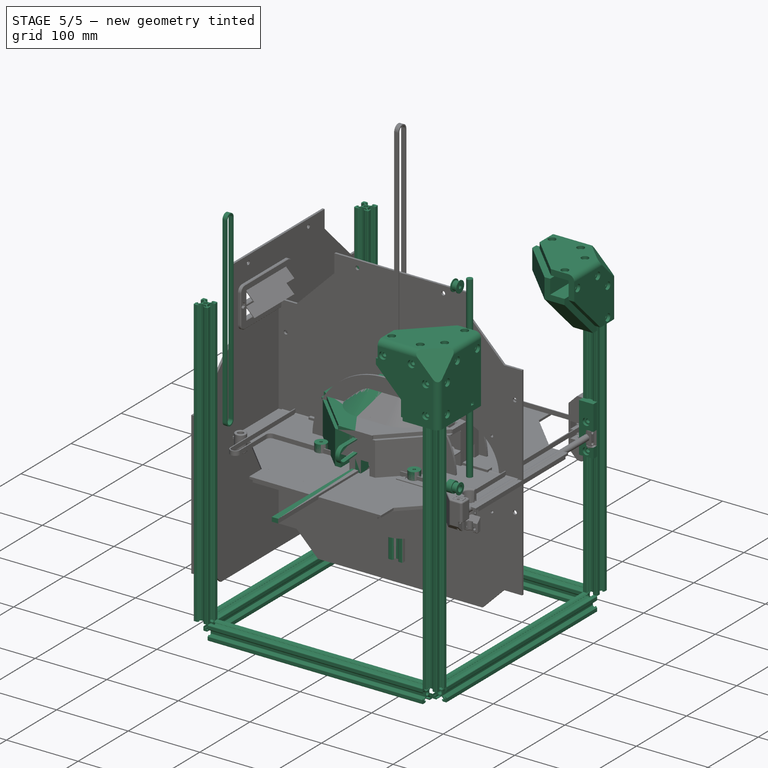
[diagram: stage 5 of 5 — iso view after this stage's code; geometry added in this stage tinted green]
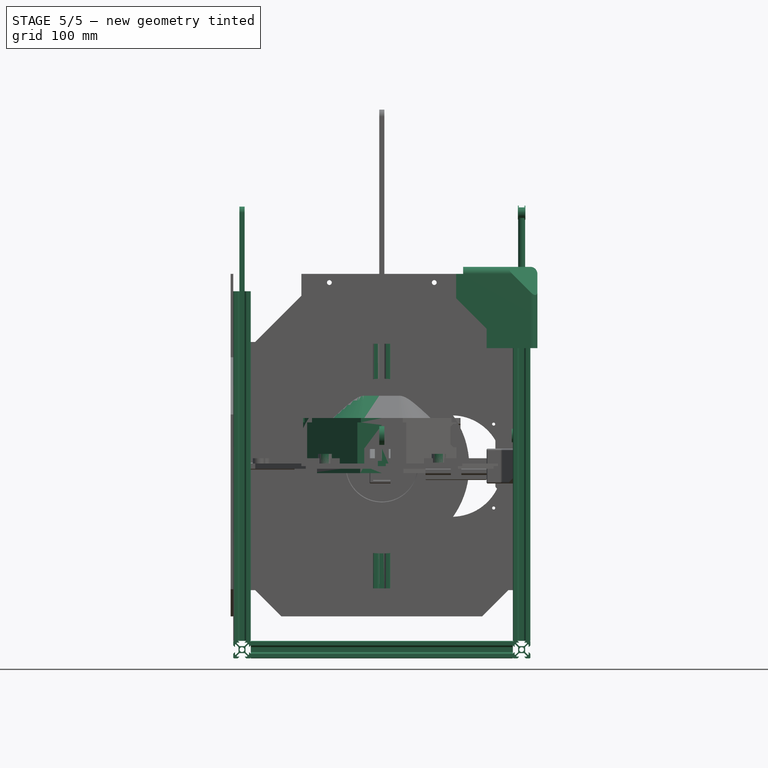
[diagram: stage 5 of 5 — front view after this stage's code; geometry added in this stage tinted green]
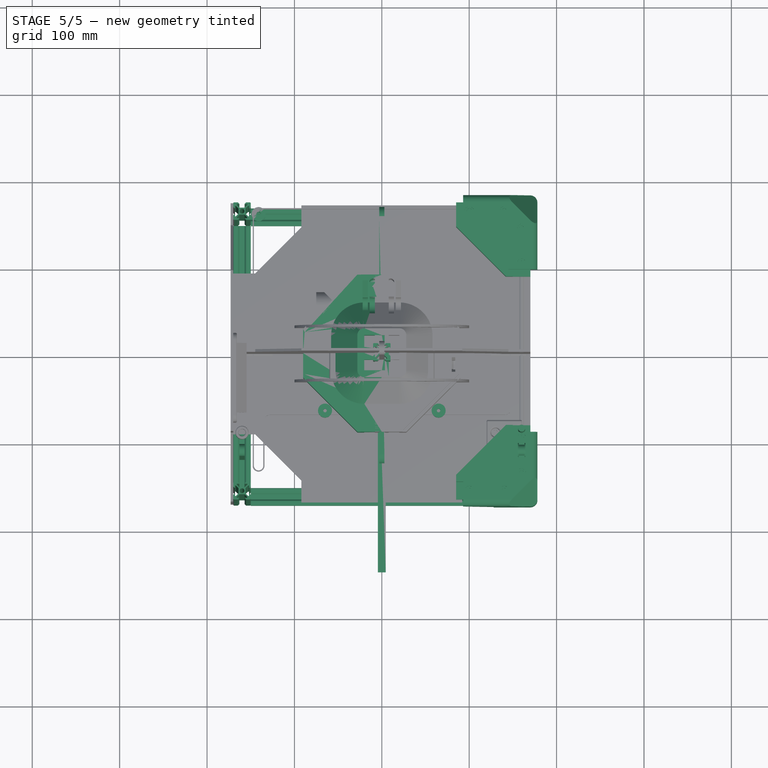
[diagram: stage 5 of 5 — top view after this stage's code; geometry added in this stage tinted green]
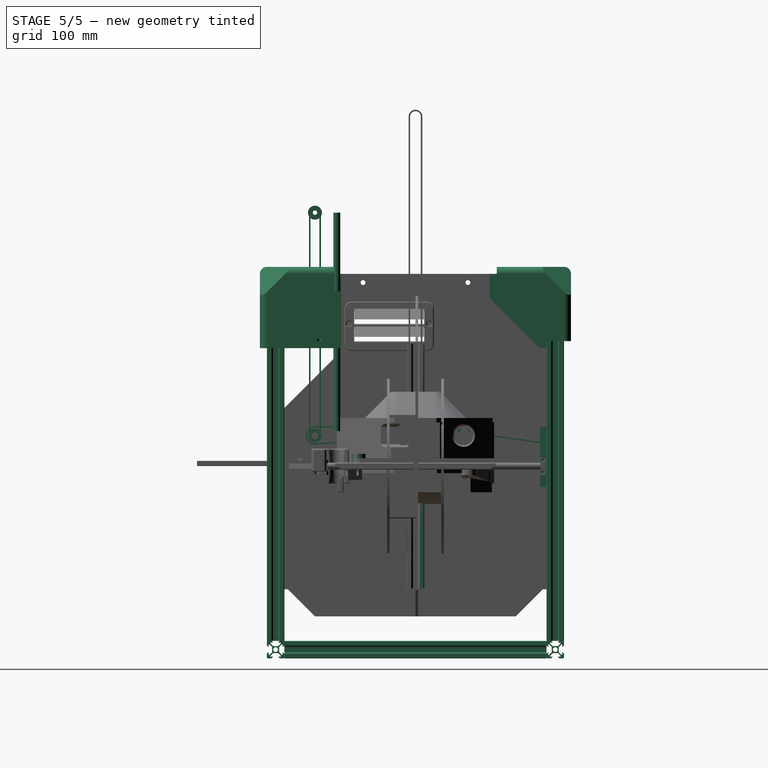
[diagram: stage 5 of 5 — right view after this stage's code; geometry added in this stage tinted green]
FEATURE [App::Link] Link  label="toolhead"
  LinkPlacement = pos=(0,-16,0) rot=(0,0,1;0rad)
  LinkedObject = -> <external xy-gantry/toolhead-integrated.FCStd>#Part002
  Placement = pos=(0,-16,0) rot=(0,0,1;0rad)
FEATURE [Spreadsheet::Sheet] Spreadsheet
  cells = A1='x_position; B1(x_position)=0; A2='y_position; B2(y_position)=-90; A3='z_position; B3(z_position)=182; A4='build_volume_xy; B4(build_volume_xy)=180; A5='build_volume_z; B5(build_volume_z)=180; A6='bed_hole_distance; B6(bed_hole_distance)=130; A7='xy_gantry_height; B7(xy_gantry_height)==B5 + 130; A8='height; B8(height)==B7 + 130; A9='side_length; B9(side_length)==B4 + 160; A10='xy_idler_distance_2; B10(xy_idler_distance_2)=21.08; A11='m3_nut_pocket; B11(m3_nut_pocket)=5.5; A12='m5_nut_pocket; B12(m5_nut_pocket)=8; A13='door_angle; B13(door_angle)=0; A14='corner_extrusion_pocket; B14(corner_extrusion_pocket)=20.2; A15='linear_rod_pocket; B15(linear_rod_pocket)=8.3
FEATURE [PartDesign::Mirrored] Mirrored004
  MirrorPlane = -> YZ_Plane006
  Suppressed = false
  TransformMode = 0
FEATURE [PartDesign::Mirrored] Mirrored005
  MirrorPlane = -> XZ_Plane006
  Suppressed = false
  TransformMode = 0
FEATURE [Sketcher::SketchObject] Sketch
  ArcFitTolerance = 0
  AttachmentSupport = -> [XY_Plane005]
  FullyConstrained = true
  MakeInternals = false
  MapMode = 5
  sketch-geometry (22):
    g0: ArcOfCircle CenterX=-9 CenterY=9 CenterZ=0 NormalX=0 NormalY=0 NormalZ=1 AngleXU=0 Radius=1 StartAngle=1.5708 EndAngle=2.35619
    g1: LineSegment StartX=-9 StartY=10 StartZ=0 EndX=-4.90355 EndY=10 EndZ=0
    g2: LineSegment StartX=-4.55 StartY=9.85355 StartZ=0 EndX=-3.12322 EndY=8.42678 EndZ=0
    g3: LineSegment StartX=-3.3 StartY=8 StartZ=0 EndX=-5.75 EndY=8 EndZ=0
    g4: LineSegment StartX=-5.85355 StartY=6.91421 StartZ=0 EndX=-3.08579 EndY=4.14645 EndZ=0
    g5: LineSegment StartX=-2.73223 StartY=4 StartZ=0 EndX=0 EndY=4 EndZ=0
    g6: LineSegment StartX=-6 StartY=7.75 StartZ=0 EndX=-6 EndY=7.26777 EndZ=0
    g7: ArcOfCircle CenterX=-3.3 CenterY=8.25 CenterZ=0 NormalX=0 NormalY=0 NormalZ=1 AngleXU=0 Radius=0.25 StartAngle=4.71239 EndAngle=7.06858
    g8: ArcOfCircle CenterX=-4.90355 CenterY=9.5 CenterZ=0 NormalX=0 NormalY=0 NormalZ=1 AngleXU=0 Radius=0.5 StartAngle=0.785398 EndAngle=1.5708
    g9: GeomPoint [constr] X=-3.05 Y=8.25 Z=0
    g10: ArcOfCircle CenterX=-2.73223 CenterY=4.5 CenterZ=0 NormalX=0 NormalY=0 NormalZ=1 AngleXU=0 Radius=0.5 StartAngle=3.92699 EndAngle=4.71239
    g11: GeomPoint [constr] X=-2.93934 Y=4 Z=0
    g12: ArcOfCircle CenterX=-5.5 CenterY=7.26777 CenterZ=0 NormalX=0 NormalY=0 NormalZ=1 AngleXU=0 Radius=0.5 StartAngle=3.14159 EndAngle=3.92699
    g13: GeomPoint [constr] X=-6 Y=7.06066 Z=0
    g14: ArcOfCircle CenterX=-5.75 CenterY=7.75 CenterZ=0 NormalX=0 NormalY=0 NormalZ=1 AngleXU=0 Radius=0.25 StartAngle=1.5708 EndAngle=3.14159
    g15: GeomPoint [constr] X=-6 Y=8 Z=0
    g16: ArcOfCircle CenterX=0 CenterY=0 CenterZ=0 NormalX=0 NormalY=0 NormalZ=1 AngleXU=0 Radius=2.75 StartAngle=1.5708 EndAngle=2.35619
    g17: GeomPoint [constr] X=0 Y=10 Z=0
    g18: GeomPoint [constr] X=-10 Y=10 Z=0
    g19: LineSegment StartX=-9.70711 StartY=9.70711 StartZ=0 EndX=-1.94454 EndY=1.94454 EndZ=0
    g20: LineSegment StartX=2e-16 StartY=2.75 StartZ=0 EndX=0 EndY=4 EndZ=0
    g21: LineSegment [constr] StartX=-4.46967 StartY=5.53033 StartZ=0 EndX=-5 EndY=5 EndZ=0
  constraints (55):
    c: Radius(g0) = 1
    c: Horizontal(g3)
    c: Parallel(g2,g4)
    c: Vertical(g6)
    c: Tangent(g2,g7) = 1.5708
    c: Tangent(g3,g7) = 1.5708
    c: Tangent(g1,g8) = 1.5708
    c: Tangent(g2,g8) = 1.5708
    c: Radius(g7) = 0.25
    c: Tangent(g1,g0) = 1.5708
    c: PointOnObject(g9,g7)
    c: Horizontal(g9,g7)
    c: PointOnObject(g11,g4)
    c: PointOnObject(g11,g5)
    c: Tangent(g4,g10) = -1.5708
    c: Tangent(g5,g10) = -1.5708
    c: PointOnObject(g13,g4)
    c: PointOnObject(g13,g6)
    c: Tangent(g4,g12) = -1.5708
    c: Tangent(g6,g12) = -1.5708
    c: PointOnObject(g15,g3)
    c: PointOnObject(g15,g6)
    c: Tangent(g3,g14) = -1.5708
    c: Tangent(g6,g14) = -1.5708
    c: Equal(g10,g12)
    c: PointOnObject(g5,g-2)
    c: Coincident(g16,g-1)
    c: PointOnObject(g16,g-2)
    c: PointOnObject(g17,g-2)
    c: PointOnObject(g17,g1)
    c: PointOnObject(g18,g1)
    c: Coincident(g19,g0)
    c: Coincident(g16,g19)
    c: PointOnObject(g0,g19)
    c: PointOnObject(g18,g19)
    c: Parallel(g19,g4)
    c: DistanceX(g18) = -10
    c: DistanceY(g18) = 10
    c: PointOnObject(g16,g19)
    c: Horizontal(g5)
    c: Coincident(g20,g16)
    c: Coincident(g20,g5)
    c: Horizontal(g1)
    c: DistanceX(g15) = -6
    c: DistanceX(g9) = -3.05
    c: DistanceY(g3,g1) = 2
    c: Radius(g10) = 0.5
    c: Radius(g16) = 2.75
    c: DistanceY(g5) = 4
    c: PointOnObject(g21,g4)
    c: Perpendicular(g19,g21)
    c: Distance(g21) = 0.75
    c: Symmetric(g16,g18,g21)
    c: Equal(g14,g7)
    c: Equal(g8,g12)
FEATURE [PartDesign::ShapeBinder] ShapeBinder001
  Support = -> [Sketch]
  TraceSupport = false
FEATURE [PartDesign::Pad] Pad001
  Direction = (0,0,1)
  Length = 400
  Length2 = 10
  Midplane = true
  Profile = -> ShapeBinder001
  Suppressed = false
  Type = 0
  expr: Length = Spreadsheet.height - 40
FEATURE [PartDesign::Mirrored] Mirrored003
  MirrorPlane = -> Pad001 [Face4]
  Suppressed = false
  TransformMode = 0
FEATURE [PartDesign::MultiTransform] MultiTransform001
  BaseFeature = -> Pad001
  Originals = -> [Pad001]
  Refine = true
  Suppressed = false
  TransformMode = 0
  Transformations = -> [Mirrored003,Mirrored004,Mirrored005]
FEATURE [PartDesign::Body] Body001  label="vertical-extrusion"
  AllowCompound = false
  Group = -> [ShapeBinder001,Pad001,MultiTransform001,Mirrored003,Mirrored004,Mirrored005]
  Origin = -> Origin006
  Placement = pos=(160,160,0) rot=(0,0,1;0rad)
  Tip = -> MultiTransform001
  expr: .Placement.Base.x = Spreadsheet.side_length / 2 - 10
  expr: .Placement.Base.y = Spreadsheet.side_length / 2 - 10
FEATURE [PartDesign::Pad] Pad
  Direction = (0,0,1)
  Length = 300
  Length2 = 10
  Midplane = true
  Profile = -> Sketch
  ReferenceAxis = -> Sketch [N_Axis]
  Suppressed = false
  Type = 0
  expr: Length = Spreadsheet.side_length - 40
FEATURE [PartDesign::Mirrored] Mirrored
  MirrorPlane = -> Pad [Face4]
  Suppressed = false
  TransformMode = 0
FEATURE [PartDesign::Mirrored] Mirrored001
  MirrorPlane = -> Sketch [V_Axis]
  Suppressed = false
  TransformMode = 0
FEATURE [PartDesign::Mirrored] Mirrored002
  MirrorPlane = -> XZ_Plane005
  Suppressed = false
  TransformMode = 0
FEATURE [PartDesign::MultiTransform] MultiTransform
  BaseFeature = -> Pad
  Originals = -> [Pad]
  Refine = true
  Suppressed = false
  TransformMode = 0
  Transformations = -> [Mirrored,Mirrored001,Mirrored002]
FEATURE [PartDesign::Body] Body  label="horizontal-extrusion"
  AllowCompound = false
  Group = -> [Sketch,Pad,MultiTransform,Mirrored,Mirrored001,Mirrored002]
  Origin = -> Origin005
  Placement = pos=(0,160,210) rot=(0,1,0;1.5708rad)
  Tip = -> MultiTransform
  expr: .Placement.Base.y = Spreadsheet.side_length / 2 - 10
  expr: .Placement.Base.z = Spreadsheet.height / 2 - 10
FEATURE [Part::FeaturePython] Array001  label="vertical-extrusions"  # Draft array (typed FeaturePython)
  AlwaysSyncPlacement = false
  Angle = 360
  ArrayType = 1
  Axis = (0,0,1)
  Base = -> Body001
  Center = (0,0,0)
  Count = 4
  ExpandArray = false
  Fuse = false
  IntervalAxis = (0,0,0)
  IntervalX = (50,0,0)
  IntervalY = (0,50,0)
  IntervalZ = (0,0,50)
  NumberCircles = 3
  NumberPolar = 4
  NumberX = 2
  NumberY = 2
  NumberZ = 1
  PlacementList = 4 placements: [(160,160,0),(-160,160,0),(-160,-160,0),(160,-160,0)]
  RadialDistance = 50
  ScaleList = (4) [(1,1,1),(1,1,1),(1,1,1),(1,1,1)]
  Symmetry = 1
  TangentialDistance = 25
FEATURE [Part::FeaturePython] Array002  # Draft array (typed FeaturePython)
  AlwaysSyncPlacement = false
  Angle = 360
  ArrayType = 1
  Axis = (0,0,1)
  Base = -> Body
  Center = (0,0,0)
  Count = 4
  ExpandArray = false
  Fuse = false
  IntervalAxis = (0,0,0)
  IntervalX = (50,0,0)
  IntervalY = (0,50,0)
  IntervalZ = (0,0,50)
  NumberCircles = 3
  NumberPolar = 4
  NumberX = 2
  NumberY = 2
  NumberZ = 1
  PlacementList = 4 placements: [(0,160,210),(-160,3.55271e-14,210),(-1.95943e-14,-160,210),(160,-3.55271e-14,210)]
  RadialDistance = 50
  ScaleList = (4) [(1,1,1),(1,1,1),(1,1,1),(1,1,1)]
  Symmetry = 1
  TangentialDistance = 25
FEATURE [Part::Mirroring] Part__Mirroring001  label="horizontal-extrusions-bottom"
  Base = (0,0,0)
  Normal = (0,0,1)
  Source = -> Array002
FEATURE [App::DocumentObjectGroup] Group002  label="horizontal-extrusions"
  Group = -> [Part__Mirroring001,Array002]
FEATURE [App::Link] Link008  label="idler-back-right-top"
  LinkPlacement = pos=(141,160,6) rot=(0,0,1;0rad)
  LinkedObject = -> <external general/standard-stuff.FCStd>#Body084
  Placement = pos=(141,160,6) rot=(0,0,1;0rad)
  expr: .Placement.Base.x = Spreadsheet.side_length / 2 - 29
  expr: .Placement.Base.y = Spreadsheet.side_length / 2 - 10
FEATURE [Part::Mirroring] Part__Mirroring008  label="idler-back-right-top (Mirror #9)"
  Base = (0,0,0)
  Normal = (0,0,1)
  Source = -> Link008
FEATURE [Part::Mirroring] Part__Mirroring009  label="idler-back-right-top (Mirror #10)"
  Base = (0,0,0)
  Normal = (1,0,0)
  Source = -> Part__Mirroring008
FEATURE [Part::Mirroring] Part__Mirroring010  label="idler-back-right-top (Mirror #11)"
  Base = (0,0,0)
  Normal = (1,0,0)
  Source = -> Link008
FEATURE [App::DocumentObjectGroup] Group007  label="xy-idlers"
  Group = -> [Part__Mirroring008,Link008,Part__Mirroring009,Part__Mirroring010]
FEATURE [Sketcher::SketchObject] Sketch113
  ArcFitTolerance = 0
  AttachmentSupport = -> [YZ_Plane213]
  FullyConstrained = true
  MakeInternals = false
  MapMode = 5
  Placement = pos=(0,0,0) rot=(0.57735,0.57735,0.57735;2.0944rad)
  sketch-geometry (1):
    g0: Circle CenterX=0 CenterY=0 CenterZ=0 NormalX=0 NormalY=0 NormalZ=1 AngleXU=0 Radius=4
  constraints (2):
    c: Coincident(g0,g-1)
    c: Diameter(g0) = 8
FEATURE [PartDesign::Pad] Pad033
  Direction = (1,0,0)
  Length = 115
  Length2 = 10
  Placement = pos=(0,0,0) rot=(1,1,1;2.0944rad)
  Profile = -> Sketch113
  ReferenceAxis = -> Sketch113 [N_Axis]
  Reversed = true
  Suppressed = false
  Type = 0
  expr: Length = Spreadsheet.side_length / 2 - 55
FEATURE [PartDesign::Body] Body079  label="z-motion-back-rod"
  AllowCompound = false
  Group = -> [Sketch113,Pad033]
  Origin = -> Origin213
  Placement = pos=(14,157,35) rot=(0,0,1;0rad)
  Tip = -> Pad033
  expr: .Placement.Base.y = Spreadsheet.side_length / 2 - 13
FEATURE [App::Link] Link017  label="mid-drivetrain"
  LinkPlacement = pos=(-150,150,0) rot=(0,0,1;0rad)
  LinkedObject = -> <external z-motion/mid-drivetrain.FCStd>#Part
  Placement = pos=(-150,150,0) rot=(0,0,1;0rad)
  expr: .Placement.Base.x = -(Spreadsheet.side_length / 2 - 20)
  expr: .Placement.Base.y = Spreadsheet.side_length / 2 - 20
FEATURE [Sketcher::SketchObject] Sketch097
  ArcFitTolerance = 0
  AttachmentSupport = -> [YZ_Plane204]
  FullyConstrained = true
  MakeInternals = false
  MapMode = 5
  Placement = pos=(0,0,0) rot=(0.57735,0.57735,0.57735;2.0944rad)
  sketch-geometry (1):
    g0: Circle CenterX=0 CenterY=0 CenterZ=0 NormalX=0 NormalY=0 NormalZ=1 AngleXU=0 Radius=4
  constraints (2):
    c: Coincident(g0,g-1)
    c: Diameter(g0) = 8
FEATURE [PartDesign::Pad] Pad028
  Direction = (1,0,0)
  Length = 330
  Length2 = 10
  Midplane = true
  Placement = pos=(0,0,0) rot=(1,1,1;2.0944rad)
  Profile = -> Sketch097
  ReferenceAxis = -> Sketch097 [N_Axis]
  Suppressed = false
  Type = 0
  expr: Length = Spreadsheet.side_length - 10
FEATURE [PartDesign::Body] Body070  label="z-motion-front-shaft"
  AllowCompound = false
  Group = -> [Sketch097,Pad028]
  Origin = -> Origin204
  Placement = pos=(0,-115,35) rot=(0,0,1;0rad)
  Tip = -> Pad028
  expr: .Placement.Base.y = -(Spreadsheet.side_length / 2 - 55)
FEATURE [Sketcher::SketchObject] Sketch137
  ArcFitTolerance = 0
  AttachmentSupport = -> [YZ_Plane229]
  FullyConstrained = true
  MakeInternals = false
  MapMode = 5
  Placement = pos=(0,0,0) rot=(0.57735,0.57735,0.57735;2.0944rad)
  expr: Constraints[4] = -(Spreadsheet.side_length / 2 - 55)
  expr: Constraints[5] = Spreadsheet.xy_gantry_height - 10 - 10
  sketch-geometry (11):
    g0: Circle [constr] CenterX=-115 CenterY=35 CenterZ=0 NormalX=0 NormalY=0 NormalZ=1 AngleXU=0 Radius=6.1
    g1: Circle [constr] CenterX=-115 CenterY=290 CenterZ=0 NormalX=0 NormalY=0 NormalZ=1 AngleXU=0 Radius=6.1
    g2: ArcOfCircle CenterX=-115 CenterY=35 CenterZ=0 NormalX=0 NormalY=0 NormalZ=1 AngleXU=0 Radius=5.1 StartAngle=3.14159 EndAngle=6.28319
    g3: GeomPoint [constr] X=-108.9 Y=35 Z=0
    g4: ArcOfCircle CenterX=-115 CenterY=35 CenterZ=0 NormalX=0 NormalY=0 NormalZ=1 AngleXU=0 Radius=6.85 StartAngle=3.14159 EndAngle=6.28319
    g5: LineSegment StartX=-120.1 StartY=35 StartZ=0 EndX=-120.1 EndY=290 EndZ=0
    g6: LineSegment StartX=-121.85 StartY=35 StartZ=0 EndX=-121.85 EndY=290 EndZ=0
    g7: LineSegment StartX=-109.9 StartY=35 StartZ=0 EndX=-109.9 EndY=290 EndZ=0
    g8: LineSegment StartX=-108.15 StartY=290 StartZ=0 EndX=-108.15 EndY=35 EndZ=0
    g9: ArcOfCircle CenterX=-115 CenterY=290 CenterZ=0 NormalX=0 NormalY=0 NormalZ=1 AngleXU=0 Radius=5.1 StartAngle=3.63521e-06 EndAngle=3.14159
    g10: ArcOfCircle CenterX=-115 CenterY=290 CenterZ=0 NormalX=0 NormalY=0 NormalZ=1 AngleXU=0 Radius=6.85 StartAngle=5.32984e-06 EndAngle=3.14159
  constraints (32):
    c: Equal(g1,g0)
    c: Diameter(g0) = 12.2
    c: Vertical(g0,g1)
    c: DistanceY(g0) = 35
    c: DistanceX(g0) = -115
    c: DistanceY(g1) = 290
    c: Coincident(g2,g0)
    c: PointOnObject(g3,g0)
    c: Horizontal(g3,g2)
    c: Horizontal(g3,g2)
    c: DistanceX(g2,g3) = 1
    c: Coincident(g4,g2)
    c: DistanceX(g3,g4) = 0.75
    c: Horizontal(g4,g3)
    c: Horizontal(g2,g4)
    c: Horizontal(g4,g2)
    c: Coincident(g5,g2)
    c: Vertical(g5)
    c: Coincident(g6,g4)
    c: Vertical(g6)
    c: Coincident(g7,g2)
    c: Vertical(g7)
    c: Coincident(g8,g4)
    c: Vertical(g8)
    c: Coincident(g9,g1)
    c: Coincident(g9,g7)
    c: Coincident(g9,g5)
    c: Coincident(g10,g9)
    c: Coincident(g10,g6)
    c: Coincident(g10,g8)
    c: Horizontal(g9,g5)
    c: Horizontal(g5,g6)
FEATURE [PartDesign::Pad] Pad041
  Direction = (1,0,0)
  Length = 6
  Length2 = 10
  Midplane = true
  Placement = pos=(0,0,0) rot=(1,1,1;2.0944rad)
  Profile = -> Sketch137
  ReferenceAxis = -> Sketch137 [N_Axis]
  Suppressed = false
  Type = 0
FEATURE [PartDesign::Body] Body095  label="z-motion-front-belt-right"
  AllowCompound = false
  Group = -> [Sketch137,Pad041]
  Origin = -> Origin229
  Placement = pos=(160,0,0) rot=(0,0,1;0rad)
  Tip = -> Pad041
  expr: .Placement.Base.x = Spreadsheet.side_length / 2 - 10
FEATURE [Part::Mirroring] Part__Mirroring015  label="z-motion-front-belt-left"
  Base = (0,0,0)
  Normal = (1,0,0)
  Source = -> Body095
FEATURE [PartDesign::Body] Body021  label="xy-belt-1"
  AllowCompound = false
  Group = -> [Sketch011,Pad040]
  Origin = -> Origin021
  Placement = pos=(0,0,6) rot=(0,0,1;0rad)
  Tip = -> Pad040
FEATURE [Sketcher::SketchObject] Sketch255
  ArcFitTolerance = 0
  AttachmentSupport = -> [XY_Plane257]
  FullyConstrained = true
  MakeInternals = false
  MapMode = 5
  sketch-geometry (22):
    g0: ArcOfCircle CenterX=-9 CenterY=9 CenterZ=0 NormalX=0 NormalY=0 NormalZ=1 AngleXU=0 Radius=1 StartAngle=1.5708 EndAngle=2.35619
    g1: LineSegment StartX=-9 StartY=10 StartZ=0 EndX=-4.90355 EndY=10 EndZ=0
    g2: LineSegment StartX=-4.55 StartY=9.85355 StartZ=0 EndX=-3.12322 EndY=8.42678 EndZ=0
    g3: LineSegment StartX=-3.3 StartY=8 StartZ=0 EndX=-5.75 EndY=8 EndZ=0
    g4: LineSegment StartX=-5.85355 StartY=6.91421 StartZ=0 EndX=-3.08579 EndY=4.14645 EndZ=0
    g5: LineSegment StartX=-2.73223 StartY=4 StartZ=0 EndX=0 EndY=4 EndZ=0
    g6: LineSegment StartX=-6 StartY=7.75 StartZ=0 EndX=-6 EndY=7.26777 EndZ=0
    g7: ArcOfCircle CenterX=-3.3 CenterY=8.25 CenterZ=0 NormalX=0 NormalY=0 NormalZ=1 AngleXU=0 Radius=0.25 StartAngle=4.71239 EndAngle=7.06858
    g8: ArcOfCircle CenterX=-4.90355 CenterY=9.5 CenterZ=0 NormalX=0 NormalY=0 NormalZ=1 AngleXU=0 Radius=0.5 StartAngle=0.785398 EndAngle=1.5708
    g9: GeomPoint [constr] X=-3.05 Y=8.25 Z=0
    g10: ArcOfCircle CenterX=-2.73223 CenterY=4.5 CenterZ=0 NormalX=0 NormalY=0 NormalZ=1 AngleXU=0 Radius=0.5 StartAngle=3.92699 EndAngle=4.71239
    g11: GeomPoint [constr] X=-2.93934 Y=4 Z=0
    g12: ArcOfCircle CenterX=-5.5 CenterY=7.26777 CenterZ=0 NormalX=0 NormalY=0 NormalZ=1 AngleXU=0 Radius=0.5 StartAngle=3.14159 EndAngle=3.92699
    g13: GeomPoint [constr] X=-6 Y=7.06066 Z=0
    g14: ArcOfCircle CenterX=-5.75 CenterY=7.75 CenterZ=0 NormalX=0 NormalY=0 NormalZ=1 AngleXU=0 Radius=0.25 StartAngle=1.5708 EndAngle=3.14159
    g15: GeomPoint [constr] X=-6 Y=8 Z=0
    g16: ArcOfCircle CenterX=0 CenterY=0 CenterZ=0 NormalX=0 NormalY=0 NormalZ=1 AngleXU=0 Radius=2.75 StartAngle=1.5708 EndAngle=2.35619
    g17: GeomPoint [constr] X=0 Y=10 Z=0
    g18: GeomPoint [constr] X=-10 Y=10 Z=0
    g19: LineSegment StartX=-9.70711 StartY=9.70711 StartZ=0 EndX=-1.94454 EndY=1.94454 EndZ=0
    g20: LineSegment StartX=2e-16 StartY=2.75 StartZ=0 EndX=0 EndY=4 EndZ=0
    g21: LineSegment [constr] StartX=-4.46967 StartY=5.53033 StartZ=0 EndX=-5 EndY=5 EndZ=0
  constraints (55):
    c: Radius(g0) = 1
    c: Horizontal(g3)
    c: Parallel(g2,g4)
    c: Vertical(g6)
    c: Tangent(g2,g7) = 1.5708
    c: Tangent(g3,g7) = 1.5708
    c: Tangent(g1,g8) = 1.5708
    c: Tangent(g2,g8) = 1.5708
    c: Radius(g7) = 0.25
    c: Tangent(g1,g0) = 1.5708
    c: PointOnObject(g9,g7)
    c: Horizontal(g9,g7)
    c: PointOnObject(g11,g4)
    c: PointOnObject(g11,g5)
    c: Tangent(g4,g10) = -1.5708
    c: Tangent(g5,g10) = -1.5708
    c: PointOnObject(g13,g4)
    c: PointOnObject(g13,g6)
    c: Tangent(g4,g12) = -1.5708
    c: Tangent(g6,g12) = -1.5708
    c: PointOnObject(g15,g3)
    c: PointOnObject(g15,g6)
    c: Tangent(g3,g14) = -1.5708
    c: Tangent(g6,g14) = -1.5708
    c: Equal(g10,g12)
    c: PointOnObject(g5,g-2)
    c: Coincident(g16,g-1)
    c: PointOnObject(g16,g-2)
    c: PointOnObject(g17,g-2)
    c: PointOnObject(g17,g1)
    c: PointOnObject(g18,g1)
    c: Coincident(g19,g0)
    c: Coincident(g16,g19)
    c: PointOnObject(g0,g19)
    c: PointOnObject(g18,g19)
    c: Parallel(g19,g4)
    c: DistanceX(g18) = -10
    c: DistanceY(g18) = 10
    c: PointOnObject(g16,g19)
    c: Horizontal(g5)
    c: Coincident(g20,g16)
    c: Coincident(g20,g5)
    c: Horizontal(g1)
    c: DistanceX(g15) = -6
    c: DistanceX(g9) = -3.05
    c: DistanceY(g3,g1) = 2
    c: Radius(g10) = 0.5
    c: Radius(g16) = 2.75
    c: DistanceY(g5) = 4
    c: PointOnObject(g21,g4)
    c: Perpendicular(g19,g21)
    c: Distance(g21) = 0.75
    c: Symmetric(g16,g18,g21)
    c: Equal(g14,g7)
    c: Equal(g8,g12)
FEATURE [PartDesign::Pad] Pad060
  Direction = (0,0,1)
  Length = 280
  Length2 = 10
  Midplane = true
  Profile = -> Sketch255
  ReferenceAxis = -> Sketch255 [N_Axis]
  Suppressed = false
  Type = 0
  expr: Length = Spreadsheet.side_length - 60
FEATURE [PartDesign::Mirrored] Mirrored007
  MirrorPlane = -> Sketch255 [V_Axis]
  Suppressed = false
  TransformMode = 0
FEATURE [PartDesign::PolarPattern] PolarPattern001
  Angle = 360
  Axis = -> Z_Axis257
  Mode = 0
  Occurrences = 4
  Offset = 120
  Suppressed = false
  TransformMode = 0
FEATURE [PartDesign::MultiTransform] MultiTransform003
  BaseFeature = -> Pad060
  Originals = -> [Pad060]
  Refine = true
  Suppressed = false
  TransformMode = 0
  Transformations = -> [Mirrored007,PolarPattern001]
FEATURE [PartDesign::Body] Body124  label="bed-extrusion-front"
  AllowCompound = false
  Group = -> [Sketch255,Pad060,MultiTransform003,Mirrored007,PolarPattern001]
  Origin = -> Origin258
  Placement = pos=(0,-90,-6) rot=(0,1,0;1.5708rad)
  Tip = -> MultiTransform003
  expr: .Placement.Base.y = -Spreadsheet.side_length / 2 + 80
FEATURE [PartDesign::PolarPattern] PolarPattern002
  Angle = 360
  Axis = -> Z_Axis260
  Mode = 0
  Occurrences = 4
  Offset = 120
  Suppressed = false
  TransformMode = 0
FEATURE [Sketcher::SketchObject] Sketch256
  ArcFitTolerance = 0
  AttachmentSupport = -> [XY_Plane260]
  FullyConstrained = true
  MakeInternals = false
  MapMode = 5
  sketch-geometry (22):
    g0: ArcOfCircle CenterX=-9 CenterY=9 CenterZ=0 NormalX=0 NormalY=0 NormalZ=1 AngleXU=0 Radius=1 StartAngle=1.5708 EndAngle=2.35619
    g1: LineSegment StartX=-9 StartY=10 StartZ=0 EndX=-4.90355 EndY=10 EndZ=0
    g2: LineSegment StartX=-4.55 StartY=9.85355 StartZ=0 EndX=-3.12322 EndY=8.42678 EndZ=0
    g3: LineSegment StartX=-3.3 StartY=8 StartZ=0 EndX=-5.75 EndY=8 EndZ=0
    g4: LineSegment StartX=-5.85355 StartY=6.91421 StartZ=0 EndX=-3.08579 EndY=4.14645 EndZ=0
    g5: LineSegment StartX=-2.73223 StartY=4 StartZ=0 EndX=0 EndY=4 EndZ=0
    g6: LineSegment StartX=-6 StartY=7.75 StartZ=0 EndX=-6 EndY=7.26777 EndZ=0
    g7: ArcOfCircle CenterX=-3.3 CenterY=8.25 CenterZ=0 NormalX=0 NormalY=0 NormalZ=1 AngleXU=0 Radius=0.25 StartAngle=4.71239 EndAngle=7.06858
    g8: ArcOfCircle CenterX=-4.90355 CenterY=9.5 CenterZ=0 NormalX=0 NormalY=0 NormalZ=1 AngleXU=0 Radius=0.5 StartAngle=0.785398 EndAngle=1.5708
    g9: GeomPoint [constr] X=-3.05 Y=8.25 Z=0
    g10: ArcOfCircle CenterX=-2.73223 CenterY=4.5 CenterZ=0 NormalX=0 NormalY=0 NormalZ=1 AngleXU=0 Radius=0.5 StartAngle=3.92699 EndAngle=4.71239
    g11: GeomPoint [constr] X=-2.93934 Y=4 Z=0
    g12: ArcOfCircle CenterX=-5.5 CenterY=7.26777 CenterZ=0 NormalX=0 NormalY=0 NormalZ=1 AngleXU=0 Radius=0.5 StartAngle=3.14159 EndAngle=3.92699
    g13: GeomPoint [constr] X=-6 Y=7.06066 Z=0
    g14: ArcOfCircle CenterX=-5.75 CenterY=7.75 CenterZ=0 NormalX=0 NormalY=0 NormalZ=1 AngleXU=0 Radius=0.25 StartAngle=1.5708 EndAngle=3.14159
    g15: GeomPoint [constr] X=-6 Y=8 Z=0
    g16: ArcOfCircle CenterX=0 CenterY=0 CenterZ=0 NormalX=0 NormalY=0 NormalZ=1 AngleXU=0 Radius=2.75 StartAngle=1.5708 EndAngle=2.35619
    g17: GeomPoint [constr] X=0 Y=10 Z=0
    g18: GeomPoint [constr] X=-10 Y=10 Z=0
    g19: LineSegment StartX=-9.70711 StartY=9.70711 StartZ=0 EndX=-1.94454 EndY=1.94454 EndZ=0
    g20: LineSegment StartX=2e-16 StartY=2.75 StartZ=0 EndX=0 EndY=4 EndZ=0
    g21: LineSegment [constr] StartX=-4.46967 StartY=5.53033 StartZ=0 EndX=-5 EndY=5 EndZ=0
  constraints (55):
    c: Radius(g0) = 1
    c: Horizontal(g3)
    c: Parallel(g2,g4)
    c: Vertical(g6)
    c: Tangent(g2,g7) = 1.5708
    c: Tangent(g3,g7) = 1.5708
    c: Tangent(g1,g8) = 1.5708
    c: Tangent(g2,g8) = 1.5708
    c: Radius(g7) = 0.25
    c: Tangent(g1,g0) = 1.5708
    c: PointOnObject(g9,g7)
    c: Horizontal(g9,g7)
    c: PointOnObject(g11,g4)
    c: PointOnObject(g11,g5)
    c: Tangent(g4,g10) = -1.5708
    c: Tangent(g5,g10) = -1.5708
    c: PointOnObject(g13,g4)
    c: PointOnObject(g13,g6)
    c: Tangent(g4,g12) = -1.5708
    c: Tangent(g6,g12) = -1.5708
    c: PointOnObject(g15,g3)
    c: PointOnObject(g15,g6)
    c: Tangent(g3,g14) = -1.5708
    c: Tangent(g6,g14) = -1.5708
    c: Equal(g10,g12)
    c: PointOnObject(g5,g-2)
    c: Coincident(g16,g-1)
    c: PointOnObject(g16,g-2)
    c: PointOnObject(g17,g-2)
    c: PointOnObject(g17,g1)
    c: PointOnObject(g18,g1)
    c: Coincident(g19,g0)
    c: Coincident(g16,g19)
    c: PointOnObject(g0,g19)
    c: PointOnObject(g18,g19)
    c: Parallel(g19,g4)
    c: DistanceX(g18) = -10
    c: DistanceY(g18) = 10
    c: PointOnObject(g16,g19)
    c: Horizontal(g5)
    c: Coincident(g20,g16)
    c: Coincident(g20,g5)
    c: Horizontal(g1)
    c: DistanceX(g15) = -6
    c: DistanceX(g9) = -3.05
    c: DistanceY(g3,g1) = 2
    c: Radius(g10) = 0.5
    c: Radius(g16) = 2.75
    c: DistanceY(g5) = 4
    c: PointOnObject(g21,g4)
    c: Perpendicular(g19,g21)
    c: Distance(g21) = 0.75
    c: Symmetric(g16,g18,g21)
    c: Equal(g14,g7)
    c: Equal(g8,g12)
FEATURE [PartDesign::Mirrored] Mirrored008
  MirrorPlane = -> Sketch256 [V_Axis]
  Suppressed = false
  TransformMode = 0
FEATURE [PartDesign::Pad] Pad061
  Direction = (0,0,1)
  Length = 200
  Length2 = 10
  Midplane = true
  Profile = -> Sketch256
  ReferenceAxis = -> Sketch256 [N_Axis]
  Suppressed = false
  Type = 0
FEATURE [PartDesign::MultiTransform] MultiTransform004
  BaseFeature = -> Pad061
  Originals = -> [Pad061]
  Refine = true
  Suppressed = false
  TransformMode = 0
  Transformations = -> [Mirrored008,PolarPattern002]
FEATURE [PartDesign::Body] Body126  label="bed-extrusion-mid"
  AllowCompound = false
  Group = -> [Sketch256,Pad061,MultiTransform004,Mirrored008,PolarPattern002]
  Origin = -> Origin261
  Placement = pos=(0,30,-6) rot=(1,0,0;1.5708rad)
  Tip = -> MultiTransform004
FEATURE [Sketcher::SketchObject] Sketch257
  ArcFitTolerance = 1e-06
  AttachmentSupport = -> [XY_Plane262]
  FullyConstrained = true
  MakeInternals = false
  MapMode = 5
  expr: Constraints[26] = Spreadsheet.build_volume_xy
  sketch-geometry (12):
    g0: LineSegment StartX=-90 StartY=87 StartZ=0 EndX=-90 EndY=-87 EndZ=0
    g1: LineSegment StartX=-87 StartY=-90 StartZ=0 EndX=87 EndY=-90 EndZ=0
    g2: LineSegment StartX=90 StartY=-87 StartZ=0 EndX=90 EndY=87 EndZ=0
    g3: LineSegment StartX=87 StartY=90 StartZ=0 EndX=-87 EndY=90 EndZ=0
    g4: ArcOfCircle CenterX=87 CenterY=87 CenterZ=0 NormalX=0 NormalY=0 NormalZ=1 AngleXU=0 Radius=3 StartAngle=1.8e-15 EndAngle=1.5708
    g5: GeomPoint [constr] X=90 Y=90 Z=0
    g6: ArcOfCircle CenterX=87 CenterY=-87 CenterZ=0 NormalX=0 NormalY=0 NormalZ=1 AngleXU=0 Radius=3 StartAngle=4.71239 EndAngle=6.28319
    g7: GeomPoint [constr] X=90 Y=-90 Z=0
    g8: ArcOfCircle CenterX=-87 CenterY=-87 CenterZ=0 NormalX=0 NormalY=0 NormalZ=1 AngleXU=0 Radius=3 StartAngle=3.14159 EndAngle=4.71239
    g9: GeomPoint [constr] X=-90 Y=-90 Z=0
    g10: ArcOfCircle CenterX=-87 CenterY=87 CenterZ=0 NormalX=0 NormalY=0 NormalZ=1 AngleXU=0 Radius=3 StartAngle=1.5708 EndAngle=3.14159
    g11: GeomPoint [constr] X=-90 Y=90 Z=0
  constraints (27):
    c: Vertical(g0)
    c: Vertical(g2)
    c: Horizontal(g1)
    c: Horizontal(g3)
    c: Symmetric(g5,g9,g-1)
    c: PointOnObject(g5,g2)
    c: PointOnObject(g5,g3)
    c: Tangent(g2,g4) = -1.5708
    c: Tangent(g3,g4) = -1.5708
    c: PointOnObject(g7,g1)
    c: PointOnObject(g7,g2)
    c: Tangent(g1,g6) = -1.5708
    c: Tangent(g2,g6) = -1.5708
    c: PointOnObject(g9,g0)
    c: PointOnObject(g9,g1)
    c: Tangent(g0,g8) = -1.5708
    c: Tangent(g1,g8) = -1.5708
    c: PointOnObject(g11,g0)
    c: PointOnObject(g11,g3)
    c: Tangent(g0,g10) = -1.5708
    c: Tangent(g3,g10) = -1.5708
    c: Equal(g10,g4)
    c: Equal(g10,g6)
    c: Equal(g10,g8)
    c: Radius(g10) = 3
    c: Equal(g3,g2)
    c: DistanceX(g11,g5) = 180
FEATURE [PartDesign::Pad] Pad062
  Direction = (0,0,1)
  Length = 3
  Length2 = 10
  Profile = -> Sketch257
  ReferenceAxis = -> Sketch257 [N_Axis]
  Suppressed = false
  Type = 0
FEATURE [Sketcher::SketchObject] Sketch258
  ArcFitTolerance = 1e-06
  AttachmentOffset = pos=(65,0,65) rot=(0,0,1;0rad)
  AttachmentSupport = -> [XZ_Plane262]
  FullyConstrained = true
  MakeInternals = false
  MapMode = 5
  Placement = pos=(65,-65,1.44e-14) rot=(1,0,0;1.5708rad)
  expr: .AttachmentOffset.Base.x = Spreadsheet.bed_hole_distance / 2
  expr: .AttachmentOffset.Base.z = Spreadsheet.bed_hole_distance / 2
  sketch-geometry (6):
    g0: LineSegment StartX=0 StartY=3 StartZ=0 EndX=3 EndY=3 EndZ=0
    g1: LineSegment StartX=3 StartY=3 StartZ=0 EndX=3 EndY=2.5 EndZ=0
    g2: LineSegment StartX=3 StartY=2.5 StartZ=0 EndX=1.6 EndY=1.1 EndZ=0
    g3: LineSegment StartX=1.6 StartY=1.1 StartZ=0 EndX=1.6 EndY=0 EndZ=0
    g4: LineSegment StartX=1.6 StartY=0 StartZ=0 EndX=0 EndY=0 EndZ=0
    g5: LineSegment StartX=0 StartY=0 StartZ=0 EndX=0 EndY=3 EndZ=0
  constraints (17):
    c: PointOnObject(g0,g-2)
    c: Horizontal(g0)
    c: Coincident(g0,g1)
    c: Coincident(g1,g2)
    c: Coincident(g2,g3)
    c: Vertical(g3)
    c: Coincident(g3,g4)
    c: Coincident(g4,g-1)
    c: Horizontal(g4)
    c: Coincident(g4,g5)
    c: Coincident(g5,g0)
    c: Vertical(g1)
    c: Angle(g2) = -2.35619
    c: DistanceX(g4,g4) = 1.6
    c: DistanceX(g0,g0) = 3
    c: DistanceY(g1,g1) = 0.5
    c: DistanceY(g5,g5) = 3
FEATURE [PartDesign::Groove] Groove
  Angle = 360
  Angle2 = 60
  Axis = (0,2e-16,1)
  Base = (65,-65,1.44e-14)
  BaseFeature = -> Pad062
  Profile = -> Sketch258
  ReferenceAxis = -> Sketch258 [V_Axis]
  Suppressed = false
  Type = 0
FEATURE [PartDesign::PolarPattern] PolarPattern003
  Angle = 360
  Axis = -> Z_Axis262
  BaseFeature = -> Groove
  Mode = 0
  Occurrences = 4
  Offset = 120
  Originals = -> [Groove]
  Suppressed = false
  TransformMode = 0
FEATURE [PartDesign::Body] Body127  label="heated-bed"
  AllowCompound = false
  Group = -> [Sketch257,Pad062,Sketch258,Groove,PolarPattern003]
  Origin = -> Origin263
  Placement = pos=(0,0,14) rot=(0,0,1;0rad)
  Tip = -> PolarPattern003
FEATURE [Sketcher::SketchObject] Sketch136
  ArcFitTolerance = 0
  AttachmentSupport = -> [XY_Plane228]
  FullyConstrained = true
  MakeInternals = false
  MapMode = 5
  sketch-geometry (2):
    g0: Circle CenterX=0 CenterY=0 CenterZ=0 NormalX=0 NormalY=0 NormalZ=1 AngleXU=0 Radius=8
    g1: Circle CenterX=0 CenterY=0 CenterZ=0 NormalX=0 NormalY=0 NormalZ=1 AngleXU=0 Radius=2
  constraints (4):
    c: Coincident(g0,g-1)
    c: Coincident(g1,g0)
    c: Diameter(g0) = 16
    c: Diameter(g1) = 4
FEATURE [PartDesign::Pad] Pad039
  Direction = (0,0,1)
  Length = 16
  Length2 = 10
  Profile = -> Sketch136
  ReferenceAxis = -> Sketch136 [N_Axis]
  Suppressed = false
  Type = 0
FEATURE [PartDesign::Body] Body094  label="bed-standoff-1"
  AllowCompound = false
  Group = -> [Sketch136,Pad039]
  Origin = -> Origin228
  Placement = pos=(65,65,-2) rot=(0,0,1;0rad)
  Tip = -> Pad039
  expr: .Placement.Base.x = Spreadsheet.bed_hole_distance / 2
  expr: .Placement.Base.y = Spreadsheet.bed_hole_distance / 2
FEATURE [Part::Mirroring] Part__Mirroring066  label="bed-standoff-2"
  Base = (0,0,0)
  Normal = (1,0,0)
  Source = -> Body094
FEATURE [Part::Mirroring] Part__Mirroring067  label="bed-standoff-3"
  Base = (0,0,0)
  Normal = (0,1,0)
  Source = -> Body094
FEATURE [Part::Mirroring] Part__Mirroring068  label="bed-standoff-4"
  Base = (0,0,0)
  Normal = (0,1,0)
  Source = -> Part__Mirroring066
FEATURE [App::DocumentObjectGroup] Group019  label="bed-standoffs"
  Group = -> [Body094,Part__Mirroring066,Part__Mirroring067,Part__Mirroring068]
FEATURE [App::Part] Part005  label="bed-assembly"
  Group = -> [Body127,Group019,Body094,Part__Mirroring066,Part__Mirroring068,Part__Mirroring067]
  Origin = -> Origin260
  Placement = pos=(0,-4,0) rot=(0,0,1;0rad)
FEATURE [Sketcher::SketchObject] Sketch431
  ArcFitTolerance = 1e-06
  AttachmentSupport = -> [XZ_Plane283]
  FullyConstrained = true
  MakeInternals = false
  MapMode = 5
  Placement = pos=(0,0,0) rot=(1,0,0;1.5708rad)
  sketch-geometry (10):
    g0: LineSegment StartX=-11 StartY=8 StartZ=0 EndX=-11 EndY=-8 EndZ=0
    g1: LineSegment StartX=-9 StartY=-10 StartZ=0 EndX=5 EndY=-10 EndZ=0
    g2: LineSegment StartX=5 StartY=-10 StartZ=0 EndX=5 EndY=10 EndZ=0
    g3: LineSegment StartX=5 StartY=10 StartZ=0 EndX=-9 EndY=10 EndZ=0
    g4: ArcOfCircle CenterX=-9 CenterY=8 CenterZ=0 NormalX=0 NormalY=0 NormalZ=1 AngleXU=0 Radius=2 StartAngle=1.5708 EndAngle=3.14159
    g5: GeomPoint [constr] X=-11 Y=10 Z=0
    g6: GeomPoint [constr] X=5 Y=10 Z=0
    g7: GeomPoint [constr] X=5 Y=-10 Z=0
    g8: ArcOfCircle CenterX=-9 CenterY=-8 CenterZ=0 NormalX=0 NormalY=0 NormalZ=1 AngleXU=0 Radius=2 StartAngle=3.14159 EndAngle=4.71239
    g9: GeomPoint [constr] X=-11 Y=-10 Z=0
  constraints (21):
    c: Vertical(g2)
    c: Horizontal(g1)
    c: Horizontal(g3)
    c: Symmetric(g5,g9,g-1)
    c: DistanceX(g5) = -11
    c: PointOnObject(g5,g0)
    c: PointOnObject(g5,g3)
    c: Tangent(g0,g4) = -1.5708
    c: Tangent(g3,g4) = -1.5708
    c: PointOnObject(g9,g0)
    c: PointOnObject(g9,g1)
    c: Tangent(g0,g8) = -1.5708
    c: Tangent(g1,g8) = -1.5708
    c: Equal(g8,g4)
    c: Radius(g8) = 2
    c: DistanceX(g6) = 5
    c: DistanceY(g9,g5) = 20
    c: Coincident(g3,g6)
    c: Coincident(g3,g2)
    c: Coincident(g2,g7)
    c: Coincident(g2,g1)
FEATURE [PartDesign::Pad] Pad094
  Direction = (0,-1,2e-16)
  Length = 8
  Length2 = 10
  Placement = pos=(0,0,0) rot=(1,0,0;1.5708rad)
  Profile = -> Sketch431
  ReferenceAxis = -> Sketch431 [N_Axis]
  Suppressed = false
  Type = 0
FEATURE [Sketcher::SketchObject] Sketch432
  ArcFitTolerance = 1e-06
  AttachmentOffset = pos=(0,0,4) rot=(0,0,1;0rad)
  AttachmentSupport = -> [XZ_Plane283]
  FullyConstrained = true
  MakeInternals = false
  MapMode = 5
  Placement = pos=(0,-4,9e-16) rot=(1,0,0;1.5708rad)
  sketch-geometry (5):
    g0: Circle [constr] CenterX=0 CenterY=0 CenterZ=0 NormalX=0 NormalY=0 NormalZ=1 AngleXU=0 Radius=5
    g1: LineSegment StartX=3e-16 StartY=5 StartZ=0 EndX=5 EndY=5 EndZ=0
    g2: LineSegment StartX=-9e-16 StartY=-5 StartZ=0 EndX=5 EndY=-5 EndZ=0
    g3: LineSegment StartX=5 StartY=-5 StartZ=0 EndX=5 EndY=5 EndZ=0
    g4: ArcOfCircle CenterX=0 CenterY=0 CenterZ=0 NormalX=0 NormalY=0 NormalZ=1 AngleXU=0 Radius=5 StartAngle=1.5708 EndAngle=4.71239
  constraints (12):
    c: Coincident(g0,g-1)
    c: Diameter(g0) = 10
    c: Tangent(g1,g0) = 1.5708
    c: Horizontal(g1)
    c: Coincident(g3,g2)
    c: Coincident(g3,g1)
    c: Vertical(g3)
    c: DistanceX(g2) = 5
    c: Tangent(g2,g0) = -1.5708
    c: Coincident(g4,g1)
    c: Horizontal(g2)
    c: Tangent(g4,g2) = -1.5708
FEATURE [PartDesign::Pocket] Pocket301
  BaseFeature = -> Pad094
  Direction = (0,1,-2e-16)
  Length = 5
  Length2 = 5
  Placement = pos=(0,0,0) rot=(1,0,0;1.5708rad)
  Profile = -> Sketch432
  ReferenceAxis = -> Sketch432 [N_Axis]
  Reversed = true
  Suppressed = false
  Type = 1
FEATURE [Sketcher::SketchObject] Sketch433
  ArcFitTolerance = 1e-06
  AttachmentSupport = -> [XY_Plane283]
  FullyConstrained = true
  MakeInternals = false
  MapMode = 5
  sketch-geometry (1):
    g0: Circle CenterX=-7 CenterY=-4 CenterZ=0 NormalX=0 NormalY=0 NormalZ=1 AngleXU=0 Radius=1.7
  constraints (3):
    c: Diameter(g0) = 3.4
    c: DistanceY(g0) = -4
    c: DistanceX(g0) = -7
FEATURE [PartDesign::Pocket] Pocket302
  BaseFeature = -> Pocket301
  Direction = (0,0,-1)
  Length = 5
  Length2 = 5
  Midplane = true
  Placement = pos=(0,0,0) rot=(1,0,0;1.5708rad)
  Profile = -> Sketch433
  ReferenceAxis = -> Sketch433 [N_Axis]
  Suppressed = false
  Type = 1
FEATURE [Sketcher::SketchObject] Sketch434
  ArcFitTolerance = 1e-06
  AttachmentSupport = -> [XY_Plane283]
  FullyConstrained = true
  MakeInternals = false
  MapMode = 5
  sketch-geometry (5):
    g0: LineSegment StartX=-4.27574 StartY=0 StartZ=0 EndX=-2.27574 EndY=2 EndZ=0
    g1: LineSegment StartX=-2.27574 StartY=2 StartZ=0 EndX=2.27574 EndY=2 EndZ=0
    g2: LineSegment StartX=2.27574 StartY=2 StartZ=0 EndX=4.27574 EndY=0 EndZ=0
    g3: LineSegment StartX=4.27574 StartY=0 StartZ=0 EndX=-4.27574 EndY=0 EndZ=0
    g4: LineSegment [constr] StartX=-2.7 StartY=2 StartZ=0 EndX=2.7 EndY=2 EndZ=0
  constraints (14):
    c: PointOnObject(g0,g-1)
    c: Coincident(g0,g1)
    c: Coincident(g1,g2)
    c: PointOnObject(g2,g-1)
    c: Coincident(g2,g3)
    c: Coincident(g3,g0)
    c: Symmetric(g1,g0,g-2)
    c: Perpendicular(g2,g0)
    c: Angle(g2) = -0.785398
    c: DistanceY(g2,g2) = 2
    c: Symmetric(g4,g4,g-2)
    c: PointOnObject(g0,g4)
    c: DistanceX(g4,g4) = 5.4
    c: Distance(g4,g0) = 0.3
FEATURE [PartDesign::Pad] Pad095
  BaseFeature = -> Pocket302
  Direction = (0,0,1)
  Length = 20
  Length2 = 10
  Midplane = true
  Placement = pos=(0,0,0) rot=(1,0,0;1.5708rad)
  Profile = -> Sketch434
  ReferenceAxis = -> Sketch434 [N_Axis]
  Suppressed = false
  Type = 0
FEATURE [Sketcher::SketchObject] Sketch435
  ArcFitTolerance = 1e-06
  AttachmentOffset = pos=(-7,0,3) rot=(0,0,1;0rad)
  AttachmentSupport = -> [XZ_Plane283]
  FullyConstrained = true
  MakeInternals = false
  MapMode = 5
  Placement = pos=(-7,-3,7e-16) rot=(1,0,0;1.5708rad)
  sketch-geometry (7):
    g0: ArcOfCircle CenterX=10 CenterY=8 CenterZ=0 NormalX=0 NormalY=0 NormalZ=1 AngleXU=0 Radius=2 StartAngle=0 EndAngle=1.5708
    g1: LineSegment [constr] StartX=12 StartY=8 StartZ=0 EndX=12 EndY=10 EndZ=0
    g2: LineSegment [constr] StartX=12 StartY=10 StartZ=0 EndX=10 EndY=10 EndZ=0
    g3: LineSegment StartX=10 StartY=10 StartZ=0 EndX=16 EndY=10 EndZ=0
    g4: LineSegment StartX=16 StartY=10 StartZ=0 EndX=16 EndY=0 EndZ=0
    g5: LineSegment StartX=16 StartY=0 StartZ=0 EndX=12 EndY=0 EndZ=0
    g6: LineSegment StartX=12 StartY=0 StartZ=0 EndX=12 EndY=8 EndZ=0
  constraints (19):
    c: Tangent(g1,g0) = -1.5708
    c: Coincident(g2,g1)
    c: Horizontal(g2)
    c: Vertical(g1)
    c: Tangent(g2,g0) = -1.5708
    c: DistanceX(g2,g2) = 2
    c: DistanceX(g1) = 12
    c: DistanceY(g1) = 10
    c: Coincident(g0,g3)
    c: Coincident(g3,g4)
    c: Vertical(g4)
    c: Coincident(g4,g5)
    c: PointOnObject(g5,g-1)
    c: Horizontal(g5)
    c: Coincident(g5,g6)
    c: Coincident(g6,g0)
    c: Vertical(g6)
    c: Horizontal(g3)
    c: DistanceX(g5,g5) = 4
FEATURE [Sketcher::SketchObject] Sketch436
  ArcFitTolerance = 1e-06
  AttachmentSupport = -> [XZ_Plane283]
  FullyConstrained = true
  MakeInternals = false
  MapMode = 5
  Placement = pos=(0,0,0) rot=(1,0,0;1.5708rad)
  sketch-geometry (4):
    g0: LineSegment StartX=-6 StartY=6 StartZ=0 EndX=-6 EndY=-6 EndZ=0
    g1: LineSegment StartX=-6 StartY=-6 StartZ=0 EndX=6 EndY=-6 EndZ=0
    g2: LineSegment StartX=6 StartY=-6 StartZ=0 EndX=6 EndY=6 EndZ=0
    g3: LineSegment StartX=6 StartY=6 StartZ=0 EndX=-6 EndY=6 EndZ=0
  constraints (11):
    c: Coincident(g0,g1)
    c: Coincident(g1,g2)
    c: Coincident(g2,g3)
    c: Coincident(g3,g0)
    c: Vertical(g0)
    c: Vertical(g2)
    c: Horizontal(g1)
    c: Horizontal(g3)
    c: Symmetric(g2,g0,g-1)
    c: Equal(g3,g2)
    c: DistanceX(g3,g3) = 12
FEATURE [Sketcher::SketchObject] Sketch437
  ArcFitTolerance = 1e-06
  AttachmentOffset = pos=(0,0,3.7) rot=(0,0,1;0rad)
  AttachmentSupport = -> [XZ_Plane283]
  FullyConstrained = true
  MakeInternals = false
  MapMode = 5
  Placement = pos=(0,-3.7,8e-16) rot=(1,0,0;1.5708rad)
  sketch-geometry (1):
    g0: Circle CenterX=0 CenterY=0 CenterZ=0 NormalX=0 NormalY=0 NormalZ=1 AngleXU=0 Radius=2.75
  constraints (2):
    c: Coincident(g0,g-1)
    c: Diameter(g0) = 5.5
FEATURE [PartDesign::Pocket] Pocket305
  BaseFeature = -> Pad095
  Direction = (0,1,-2e-16)
  Length = 5
  Length2 = 5
  Placement = pos=(0,0,0) rot=(1,0,0;1.5708rad)
  Profile = -> Sketch437
  ReferenceAxis = -> Sketch437 [N_Axis]
  Suppressed = false
  Type = 1
FEATURE [Sketcher::SketchObject] Sketch438
  ArcFitTolerance = 1e-06
  AttachmentSupport = -> [XZ_Plane284]
  FullyConstrained = true
  MakeInternals = false
  MapMode = 5
  Placement = pos=(0,0,0) rot=(1,0,0;1.5708rad)
  sketch-geometry (16):
    g0: LineSegment [constr] StartX=-11 StartY=16 StartZ=0 EndX=-11 EndY=-16 EndZ=0
    g1: LineSegment [constr] StartX=-11 StartY=-16 StartZ=0 EndX=10 EndY=-16 EndZ=0
    g2: LineSegment [constr] StartX=10 StartY=-16 StartZ=0 EndX=10 EndY=16 EndZ=0
    g3: LineSegment [constr] StartX=10 StartY=16 StartZ=0 EndX=-11 EndY=16 EndZ=0
    g4: LineSegment StartX=3.3 StartY=10.3 StartZ=0 EndX=-11 EndY=10.3 EndZ=0
    g5: LineSegment StartX=-11 StartY=10.3 StartZ=0 EndX=-11 EndY=16 EndZ=0
    g6: LineSegment StartX=-11 StartY=16 StartZ=0 EndX=10 EndY=16 EndZ=0
    g7: LineSegment StartX=10 StartY=16 StartZ=0 EndX=10 EndY=-16 EndZ=0
    g8: LineSegment StartX=10 StartY=-16 StartZ=0 EndX=-11 EndY=-16 EndZ=0
    g9: LineSegment StartX=-11 StartY=-16 StartZ=0 EndX=-11 EndY=-10.3 EndZ=0
    g10: LineSegment StartX=-11 StartY=-10.3 StartZ=0 EndX=3.3 EndY=-10.3 EndZ=0
    g11: LineSegment StartX=5.3 StartY=-8.3 StartZ=0 EndX=5.3 EndY=8.3 EndZ=0
    g12: ArcOfCircle CenterX=3.3 CenterY=8.3 CenterZ=0 NormalX=0 NormalY=0 NormalZ=1 AngleXU=0 Radius=2 StartAngle=0 EndAngle=1.5708
    g13: GeomPoint [constr] X=5.3 Y=10.3 Z=0
    g14: ArcOfCircle CenterX=3.3 CenterY=-8.3 CenterZ=0 NormalX=0 NormalY=0 NormalZ=1 AngleXU=0 Radius=2 StartAngle=4.71239 EndAngle=6.28319
    g15: GeomPoint [constr] X=5.3 Y=-10.3 Z=0
  constraints (38):
    c: Coincident(g0,g1)
    c: Coincident(g1,g2)
    c: Coincident(g2,g3)
    c: Coincident(g3,g0)
    c: Vertical(g0)
    c: Horizontal(g1)
    c: Horizontal(g3)
    c: DistanceX(g3,g3) = 21
    c: DistanceY(g2,g2) = 32
    c: PointOnObject(g4,g0)
    c: Horizontal(g4)
    c: Coincident(g4,g5)
    c: Coincident(g5,g0)
    c: Coincident(g5,g6)
    c: Coincident(g6,g2)
    c: Coincident(g6,g7)
    c: Coincident(g7,g1)
    c: Coincident(g7,g8)
    c: Coincident(g8,g0)
    c: Coincident(g8,g9)
    c: PointOnObject(g9,g0)
    c: Coincident(g9,g10)
    c: Horizontal(g10)
    c: Symmetric(g13,g15,g-1)
    c: DistanceX(g15) = 5.3
    c: DistanceY(g13) = 10.3
    c: DistanceX(g2) = 10
    c: Symmetric(g2,g1,g-1)
    c: PointOnObject(g13,g4)
    c: PointOnObject(g13,g11)
    c: Tangent(g4,g12) = -1.5708
    c: Tangent(g11,g12) = -1.5708
    c: PointOnObject(g15,g10)
    c: PointOnObject(g15,g11)
    c: Tangent(g10,g14) = -1.5708
    c: Tangent(g11,g14) = -1.5708
    c: Equal(g14,g12)
    c: Radius(g12) = 2
FEATURE [PartDesign::Pocket] Pocket306
  BaseFeature = -> Pocket305
  Direction = (0,1,-2e-16)
  Length = 5
  Length2 = 5
  Placement = pos=(0,0,0) rot=(1,0,0;1.5708rad)
  Profile = -> Sketch436
  ReferenceAxis = -> Sketch436 [N_Axis]
  Refine = true
  Suppressed = false
  Type = 1
FEATURE [PartDesign::Groove] Groove016
  Angle = 90
  Angle2 = 60
  Axis = (0,2e-16,1)
  Base = (-7,-3,7e-16)
  BaseFeature = -> Pocket306
  Placement = pos=(0,0,0) rot=(1,0,0;1.5708rad)
  Profile = -> Sketch435
  ReferenceAxis = -> Sketch435 [V_Axis]
  Reversed = true
  Suppressed = false
  Type = 0
FEATURE [PartDesign::Pocket] Pocket307
  BaseFeature = -> Groove016
  Direction = (0,1,-2e-16)
  Length = 5
  Length2 = 5
  Placement = pos=(0,0,0) rot=(1,0,0;1.5708rad)
  Profile = -> Sketch435
  ReferenceAxis = -> Sketch435 [N_Axis]
  Suppressed = false
  Type = 1
FEATURE [PartDesign::Mirrored] Mirrored011
  BaseFeature = -> Pocket307
  MirrorPlane = -> XY_Plane283
  Originals = -> [Pocket307,Groove016]
  Placement = pos=(0,0,0) rot=(1,0,0;1.5708rad)
  Suppressed = false
  TransformMode = 0
FEATURE [PartDesign::Pad] Pad096
  Direction = (0,-1,2e-16)
  Length = 8
  Length2 = 10
  Placement = pos=(0,0,0) rot=(1,0,0;1.5708rad)
  Profile = -> Sketch438
  ReferenceAxis = -> Sketch438 [N_Axis]
  Suppressed = false
  Type = 0
FEATURE [Sketcher::SketchObject] Sketch439
  ArcFitTolerance = 1e-06
  AttachmentOffset = pos=(0,0,8) rot=(0,0,1;0rad)
  AttachmentSupport = -> [XZ_Plane284]
  FullyConstrained = true
  MakeInternals = false
  MapMode = 5
  Placement = pos=(0,-8,1.8e-15) rot=(1,0,0;1.5708rad)
  sketch-geometry (12):
    g0: LineSegment StartX=-4 StartY=16 StartZ=0 EndX=-4 EndY=24 EndZ=0
    g1: LineSegment StartX=-4 StartY=24 StartZ=0 EndX=12 EndY=24 EndZ=0
    g2: LineSegment StartX=20 StartY=16 StartZ=0 EndX=20 EndY=-16 EndZ=0
    g3: LineSegment StartX=12 StartY=-24 StartZ=0 EndX=-4 EndY=-24 EndZ=0
    g4: LineSegment StartX=-4 StartY=-24 StartZ=0 EndX=-4 EndY=-16 EndZ=0
    g5: LineSegment StartX=-4 StartY=-16 StartZ=0 EndX=10 EndY=-16 EndZ=0
    g6: LineSegment StartX=10 StartY=-16 StartZ=0 EndX=10 EndY=16 EndZ=0
    g7: LineSegment StartX=10 StartY=16 StartZ=0 EndX=-4 EndY=16 EndZ=0
    g8: ArcOfCircle CenterX=12 CenterY=16 CenterZ=0 NormalX=0 NormalY=0 NormalZ=1 AngleXU=0 Radius=8 StartAngle=0 EndAngle=1.5708
    g9: GeomPoint [constr] X=20 Y=24 Z=0
    g10: ArcOfCircle CenterX=12 CenterY=-16 CenterZ=0 NormalX=0 NormalY=0 NormalZ=1 AngleXU=0 Radius=8 StartAngle=4.71239 EndAngle=6.28319
    g11: GeomPoint [constr] X=20 Y=-24 Z=0
  constraints (30):
    c: Vertical(g0)
    c: Coincident(g0,g1)
    c: Horizontal(g1)
    c: Vertical(g2)
    c: Horizontal(g3)
    c: Coincident(g3,g4)
    c: Coincident(g4,g5)
    c: Horizontal(g5)
    c: Coincident(g5,g6)
    c: Vertical(g6)
    c: Coincident(g6,g7)
    c: Coincident(g7,g0)
    c: Symmetric(g4,g0,g-1)
    c: Symmetric(g0,g3,g-1)
    c: DistanceY(g6,g9) = 8
    c: DistanceY(g6,g6) = 32
    c: PointOnObject(g9,g1)
    c: PointOnObject(g9,g2)
    c: Tangent(g1,g8) = 1.5708
    c: Tangent(g2,g8) = 1.5708
    c: PointOnObject(g11,g2)
    c: PointOnObject(g11,g3)
    c: Tangent(g2,g10) = 1.5708
    c: Tangent(g3,g10) = 1.5708
    c: Radius(g8) = 8
    c: Equal(g10,g8)
    c: DistanceX(g0) = -4
    c: DistanceX(g8) = 12
    c: Horizontal(g7)
    c: DistanceX(g6) = 10
FEATURE [PartDesign::Pad] Pad097
  BaseFeature = -> Pad096
  Direction = (0,-1,2e-16)
  Length = 5
  Length2 = 10
  Placement = pos=(0,0,0) rot=(1,0,0;1.5708rad)
  Profile = -> Sketch439
  ReferenceAxis = -> Sketch439 [N_Axis]
  Refine = true
  Reversed = true
  Suppressed = false
  Type = 0
FEATURE [Sketcher::SketchObject] Sketch440
  ArcFitTolerance = 1e-06
  AttachmentSupport = -> [XY_Plane284]
  FullyConstrained = true
  MakeInternals = false
  MapMode = 5
  sketch-geometry (6):
    g0: ArcOfCircle CenterX=-7 CenterY=-4 CenterZ=0 NormalX=0 NormalY=0 NormalZ=1 AngleXU=0 Radius=4 StartAngle=1.57079 EndAngle=3.92699
    g1: LineSegment StartX=-8.65685 StartY=-8 StartZ=0 EndX=-12 EndY=-8 EndZ=0
    g2: LineSegment StartX=-12 StartY=-8 StartZ=0 EndX=-12 EndY=0 EndZ=0
    g3: LineSegment StartX=-12 StartY=0 StartZ=0 EndX=-6.99998 EndY=-3.95386e-11 EndZ=0
    g4: LineSegment StartX=-9.82843 StartY=-6.82843 StartZ=0 EndX=-8.65685 EndY=-8 EndZ=0
    g5: Circle CenterX=-7 CenterY=-4 CenterZ=0 NormalX=0 NormalY=0 NormalZ=1 AngleXU=0 Radius=1.6
  constraints (17):
    c: PointOnObject(g0,g-1)
    c: Coincident(g1,g2)
    c: PointOnObject(g2,g-1)
    c: Vertical(g2)
    c: Coincident(g2,g3)
    c: Coincident(g3,g0)
    c: Tangent(g3,g0)
    c: Diameter(g0) = 8
    c: Horizontal(g1)
    c: DistanceX(g0) = -7
    c: DistanceX(g3,g3) = 5
    c: Coincident(g4,g1)
    c: Tangent(g4,g0) = -1.5708
    c: Tangent(g1,g0)
    c: Angle(g4) = -0.785398
    c: Coincident(g5,g0)
    c: Diameter(g5) = 3.2
FEATURE [PartDesign::Pocket] Pocket308
  BaseFeature = -> Pad097
  Direction = (0,0,-1)
  Length = 5
  Length2 = 5
  Midplane = true
  Placement = pos=(0,0,0) rot=(1,0,0;1.5708rad)
  Profile = -> Sketch440
  ReferenceAxis = -> Sketch440 [N_Axis]
  Suppressed = false
  Type = 1
FEATURE [PartDesign::Fillet] Fillet004
  Base = -> Mirrored011 [Edge75,Edge67]
  BaseFeature = -> Mirrored011
  Placement = pos=(0,0,0) rot=(1,0,0;1.5708rad)
  Radius = 1
  Refine = true
  SupportTransform = false
  Suppressed = false
  UseAllEdges = false
FEATURE [PartDesign::Chamfer] Chamfer007
  Angle = 45
  Base = -> Fillet004 [Edge5]
  BaseFeature = -> Fillet004
  ChamferType = 0
  FlipDirection = false
  Placement = pos=(0,0,0) rot=(1,0,0;1.5708rad)
  Size = 0.5
  Size2 = 1
  SupportTransform = false
  Suppressed = false
  UseAllEdges = false
FEATURE [PartDesign::Body] Body146  label="hinge-stat-drv"
  AllowCompound = false
  Group = -> [Sketch431,Pad094,Sketch432,Pocket301,Sketch433,Pocket302,Sketch434,Pad095,Sketch435,Sketch436,Sketch437,Pocket305,Pocket306,Groove016,Pocket307,Mirrored011,Fillet004,Chamfer007]
  Origin = -> Origin284
  Tip = -> Chamfer007
FEATURE [PartDesign::Fillet] Fillet005
  Base = -> Pocket308 [Edge55,Edge52]
  BaseFeature = -> Pocket308
  Placement = pos=(0,0,0) rot=(1,0,0;1.5708rad)
  Radius = 2
  SupportTransform = false
  Suppressed = false
  UseAllEdges = false
FEATURE [PartDesign::Fillet] Fillet006
  Base = -> Fillet005 [Edge61,Edge73,Edge54,Edge53,Edge57,Edge4,Edge9]
  BaseFeature = -> Fillet005
  Placement = pos=(0,0,0) rot=(1,0,0;1.5708rad)
  Radius = 1
  SupportTransform = false
  Suppressed = false
  UseAllEdges = false
FEATURE [Sketcher::SketchObject] Sketch441
  ArcFitTolerance = 1e-06
  AttachmentOffset = pos=(0,0,8) rot=(0,0,1;0rad)
  AttachmentSupport = -> [XZ_Plane284]
  FullyConstrained = true
  MakeInternals = false
  MapMode = 5
  Placement = pos=(0,-8,1.8e-15) rot=(1,0,0;1.5708rad)
  sketch-geometry (21):
    g0: LineSegment StartX=3.17543 StartY=20 StartZ=0 EndX=1.58771 EndY=22.75 EndZ=0
    g1: LineSegment StartX=1.58771 StartY=22.75 StartZ=0 EndX=-1.58771 EndY=22.75 EndZ=0
    g2: LineSegment StartX=-1.58771 StartY=22.75 StartZ=0 EndX=-3.17543 EndY=20 EndZ=0
    g3: LineSegment StartX=-3.17543 StartY=20 StartZ=0 EndX=-1.58771 EndY=17.25 EndZ=0
    g4: LineSegment StartX=-1.58771 StartY=17.25 StartZ=0 EndX=1.58771 EndY=17.25 EndZ=0
    g5: LineSegment StartX=1.58771 StartY=17.25 StartZ=0 EndX=3.17543 EndY=20 EndZ=0
    g6: Circle [constr] CenterX=0 CenterY=20 CenterZ=0 NormalX=0 NormalY=0 NormalZ=1 AngleXU=0 Radius=3.17543
    g7: LineSegment StartX=1.58771 StartY=-22.75 StartZ=0 EndX=3.17543 EndY=-20 EndZ=0
    g8: LineSegment StartX=3.17543 StartY=-20 StartZ=0 EndX=1.58771 EndY=-17.25 EndZ=0
    g9: LineSegment StartX=1.58771 StartY=-17.25 StartZ=0 EndX=-1.58771 EndY=-17.25 EndZ=0
    g10: LineSegment StartX=-1.58771 StartY=-17.25 StartZ=0 EndX=-3.17543 EndY=-20 EndZ=0
    g11: LineSegment StartX=-3.17543 StartY=-20 StartZ=0 EndX=-1.58771 EndY=-22.75 EndZ=0
    g12: LineSegment StartX=-1.58771 StartY=-22.75 StartZ=0 EndX=1.58771 EndY=-22.75 EndZ=0
    g13: Circle [constr] CenterX=0 CenterY=-20 CenterZ=0 NormalX=0 NormalY=0 NormalZ=1 AngleXU=0 Radius=3.17543
    g14: LineSegment StartX=13.4123 StartY=-2.75 StartZ=0 EndX=16.5877 EndY=-2.75 EndZ=0
    g15: LineSegment StartX=16.5877 StartY=-2.75 StartZ=0 EndX=18.1754 EndY=0 EndZ=0
    g16: LineSegment StartX=18.1754 StartY=0 StartZ=0 EndX=16.5877 EndY=2.75 EndZ=0
    g17: LineSegment StartX=16.5877 StartY=2.75 StartZ=0 EndX=13.4123 EndY=2.75 EndZ=0
    g18: LineSegment StartX=13.4123 StartY=2.75 StartZ=0 EndX=11.8246 EndY=0 EndZ=0
    g19: LineSegment StartX=11.8246 StartY=-1e-16 StartZ=0 EndX=13.4123 EndY=-2.75 EndZ=0
    g20: Circle [constr] CenterX=15 CenterY=0 CenterZ=0 NormalX=0 NormalY=0 NormalZ=1 AngleXU=0 Radius=3.17543
  constraints (50):
    c: Coincident(g0,g1)
    c: Coincident(g1,g2)
    c: Coincident(g2,g3)
    c: Coincident(g3,g4)
    c: Coincident(g4,g5)
    c: Coincident(g5,g0)
    c: Equal(g0, g1-g5) x5
    c: PointOnObject(g0,g6)
    c: PointOnObject(g1,g6)
    c: PointOnObject(g2,g6)
    c: PointOnObject(g3,g6)
    c: PointOnObject(g4,g6)
    c: PointOnObject(g5,g6)
    c: Coincident(g7,g8)
    c: Coincident(g8,g9)
    c: Coincident(g9,g10)
    c: Coincident(g10,g11)
    c: Coincident(g11,g12)
    c: Coincident(g12,g7)
    c: Equal(g7, g8-g12) x5
    c: PointOnObject(g7,g13)
    c: PointOnObject(g8,g13)
    c: PointOnObject(g9,g13)
    c: PointOnObject(g10,g13)
    c: PointOnObject(g11,g13)
    c: PointOnObject(g12,g13)
    c: Symmetric(g13,g6,g-1)
    c: Horizontal(g1)
    c: Horizontal(g9)
    c: Equal(g13,g6)
    c: DistanceY(g13) = -20
    c: DistanceY(g4,g0) = 5.5
    c: DistanceX(g13) = 0
    c: Coincident(g14,g15)
    c: Coincident(g15,g16)
    c: Coincident(g16,g17)
    c: Coincident(g17,g18)
    c: Coincident(g18,g19)
    c: Coincident(g19,g14)
    c: Equal(g14, g15-g19) x5
    c: PointOnObject(g14,g20)
    c: PointOnObject(g15,g20)
    c: PointOnObject(g16,g20)
    c: PointOnObject(g17,g20)
    c: PointOnObject(g18,g20)
    c: PointOnObject(g19,g20)
    c: PointOnObject(g20,g-1)
    c: Equal(g20,g13)
    c: DistanceX(g20) = 15
    c: Horizontal(g17)
FEATURE [PartDesign::Pocket] Pocket309
  BaseFeature = -> Fillet006
  Direction = (0,1,-2e-16)
  Length = 3
  Length2 = 5
  Placement = pos=(0,0,0) rot=(1,0,0;1.5708rad)
  Profile = -> Sketch441
  ReferenceAxis = -> Sketch441 [N_Axis]
  Suppressed = false
  Type = 0
FEATURE [Sketcher::SketchObject] Sketch442
  ArcFitTolerance = 1e-06
  AttachmentOffset = pos=(0,0,4.7) rot=(0,0,1;0rad)
  AttachmentSupport = -> [XZ_Plane284]
  FullyConstrained = true
  MakeInternals = false
  MapMode = 5
  Placement = pos=(0,-4.7,1e-15) rot=(1,0,0;1.5708rad)
  sketch-geometry (3):
    g0: Circle CenterX=0 CenterY=20 CenterZ=0 NormalX=0 NormalY=0 NormalZ=1 AngleXU=0 Radius=1.75
    g1: Circle CenterX=15 CenterY=0 CenterZ=0 NormalX=0 NormalY=0 NormalZ=1 AngleXU=0 Radius=1.75
    g2: Circle CenterX=0 CenterY=-20 CenterZ=0 NormalX=0 NormalY=0 NormalZ=1 AngleXU=0 Radius=1.75
  constraints (8):
    c: PointOnObject(g1,g-1)
    c: Symmetric(g2,g0,g-1)
    c: Equal(g0,g1)
    c: Equal(g1,g2)
    c: DistanceX(g1) = 15
    c: DistanceX(g0) = 0
    c: DistanceY(g0) = 20
    c: Diameter(g1) = 3.5
FEATURE [PartDesign::Pocket] Pocket310
  BaseFeature = -> Pocket309
  Direction = (0,1,-2e-16)
  Length = 5
  Length2 = 5
  Placement = pos=(0,0,0) rot=(1,0,0;1.5708rad)
  Profile = -> Sketch442
  ReferenceAxis = -> Sketch442 [N_Axis]
  Suppressed = false
  Type = 1
FEATURE [PartDesign::Chamfer] Chamfer008
  Angle = 45
  Base = -> Pocket310 [Face33]
  BaseFeature = -> Pocket310
  ChamferType = 0
  FlipDirection = false
  Placement = pos=(0,0,0) rot=(1,0,0;1.5708rad)
  Size = 0.3
  Size2 = 1
  SupportTransform = false
  Suppressed = false
  UseAllEdges = false
FEATURE [PartDesign::Body] Body147  label="hinge-mov-drv"
  AllowCompound = false
  Group = -> [Sketch438,Pad096,Sketch439,Pad097,Sketch440,Pocket308,Fillet005,Fillet006,Sketch441,Pocket309,Sketch442,Pocket310,Chamfer008]
  Origin = -> Origin285
  Tip = -> Chamfer008
FEATURE [Sketcher::SketchObject] Sketch467
  ArcFitTolerance = 1e-06
  AttachmentSupport = -> [XZ_Plane292]
  FullyConstrained = true
  MakeInternals = false
  MapMode = 5
  Placement = pos=(0,0,0) rot=(1,0,0;1.5708rad)
  sketch-geometry (4):
    g0: LineSegment StartX=-4.5 StartY=0 StartZ=0 EndX=4.5 EndY=0 EndZ=0
    g1: LineSegment StartX=4.5 StartY=0 StartZ=0 EndX=4.5 EndY=6 EndZ=0
    g2: LineSegment StartX=4.5 StartY=6 StartZ=0 EndX=-4.5 EndY=6 EndZ=0
    g3: LineSegment StartX=-4.5 StartY=6 StartZ=0 EndX=-4.5 EndY=0 EndZ=0
  constraints (11):
    c: Coincident(g0,g1)
    c: Coincident(g1,g2)
    c: Coincident(g2,g3)
    c: Coincident(g3,g0)
    c: Horizontal(g0)
    c: Vertical(g1)
    c: Vertical(g3)
    c: PointOnObject(g0,g-1)
    c: DistanceY(g1,g1) = 6
    c: Symmetric(g1,g2,g-2)
    c: DistanceX(g2,g2) = 9
FEATURE [PartDesign::Pad] Pad101
  Direction = (0,-1,2e-16)
  Length = 250
  Length2 = 10
  Placement = pos=(0,0,0) rot=(1,0,0;1.5708rad)
  Profile = -> Sketch467
  ReferenceAxis = -> Sketch467 [N_Axis]
  Suppressed = false
  Type = 0
FEATURE [Sketcher::SketchObject] Sketch516
  ArcFitTolerance = 1e-06
  AttachmentSupport = -> [XY_Plane330]
  FullyConstrained = true
  MakeInternals = false
  MapMode = 5
  sketch-geometry (1):
    g0: Circle CenterX=0 CenterY=0 CenterZ=0 NormalX=0 NormalY=0 NormalZ=1 AngleXU=0 Radius=4
  constraints (2):
    c: Coincident(g0,g-1)
    c: Diameter(g0) = 8
FEATURE [PartDesign::Pad] Pad116
  Direction = (0,0,1)
  Length = 250
  Length2 = 10
  Profile = -> Sketch516
  ReferenceAxis = -> Sketch516 [N_Axis]
  Suppressed = false
  Type = 0
FEATURE [Sketcher::SketchObject] Sketch522
  ArcFitTolerance = 1e-06
  AttachmentOffset = pos=(0,-4,8) rot=(0,0,1;0rad)
  AttachmentSupport = -> [YZ_Plane331]
  FullyConstrained = true
  MakeInternals = false
  MapMode = 5
  Placement = pos=(8,0,-4) rot=(0.57735,0.57735,0.57735;2.0944rad)
  sketch-geometry (4):
    g0: LineSegment StartX=-10 StartY=10 StartZ=0 EndX=-10 EndY=-10 EndZ=0
    g1: LineSegment StartX=-10 StartY=-10 StartZ=0 EndX=10 EndY=-10 EndZ=0
    g2: LineSegment StartX=10 StartY=-10 StartZ=0 EndX=10 EndY=10 EndZ=0
    g3: LineSegment StartX=10 StartY=10 StartZ=0 EndX=-10 EndY=10 EndZ=0
  constraints (11):
    c: Coincident(g0,g1)
    c: Coincident(g1,g2)
    c: Coincident(g2,g3)
    c: Coincident(g3,g0)
    c: Vertical(g0)
    c: Vertical(g2)
    c: Horizontal(g1)
    c: Horizontal(g3)
    c: Symmetric(g1,g0,g-1)
    c: Equal(g3,g2)
    c: DistanceX(g3,g3) = 20
FEATURE [App::Link] Link032  label="z-motion-front-idler-left"
  LinkPlacement = pos=(-160,-115,290) rot=(0,1,0;1.5708rad)
  LinkedObject = -> <external general/standard-stuff.FCStd>#Body084
  Placement = pos=(-160,-115,290) rot=(0,1,0;1.5708rad)
  expr: .Placement.Base.x = -Spreadsheet.side_length / 2 + 10
  expr: .Placement.Base.y = -Spreadsheet.side_length / 2 + 55
  expr: .Placement.Base.z = Spreadsheet.xy_gantry_height - 20
FEATURE [Part::Mirroring] Part__Mirroring086  label="z-motion-front-idler-right"
  Base = (0,0,0)
  Normal = (1,0,0)
  Source = -> Link032
FEATURE [Sketcher::SketchObject] Sketch526
  ArcFitTolerance = 1e-06
  AttachmentOffset = pos=(0,55,35) rot=(0,0,1;0rad)
  AttachmentSupport = -> [XY_Plane332]
  FullyConstrained = true
  MakeInternals = false
  MapMode = 5
  Placement = pos=(0,55,35) rot=(0,0,1;0rad)
  sketch-geometry (11):
    g0: LineSegment StartX=4 StartY=9 StartZ=0 EndX=30 EndY=9 EndZ=0
    g1: LineSegment StartX=30 StartY=9 StartZ=0 EndX=30 EndY=10 EndZ=0
    g2: LineSegment StartX=30 StartY=10 StartZ=0 EndX=38 EndY=10 EndZ=0
    g3: LineSegment StartX=38 StartY=10 StartZ=0 EndX=41 EndY=13 EndZ=0
    g4: LineSegment StartX=41 StartY=13 StartZ=0 EndX=90 EndY=13 EndZ=0
    g5: LineSegment StartX=90 StartY=13 StartZ=0 EndX=90 EndY=0 EndZ=0
    g6: LineSegment StartX=90 StartY=0 StartZ=0 EndX=-8 EndY=0 EndZ=0
    g7: GeomPoint X=10 Y=0 Z=0
    g8: LineSegment StartX=-8 StartY=0 StartZ=0 EndX=-8 EndY=6 EndZ=0
    g9: LineSegment StartX=-8 StartY=6 StartZ=0 EndX=4 EndY=6 EndZ=0
    g10: LineSegment StartX=4 StartY=6 StartZ=0 EndX=4 EndY=9 EndZ=0
  constraints (32):
    c: Horizontal(g0)
    c: Coincident(g0,g1)
    c: Vertical(g1)
    c: Coincident(g1,g2)
    c: Horizontal(g2)
    c: Coincident(g2,g3)
    c: Coincident(g3,g4)
    c: Horizontal(g4)
    c: Coincident(g4,g5)
    c: PointOnObject(g5,g-1)
    c: Vertical(g5)
    c: Coincident(g5,g6)
    c: DistanceY(g2) = 10
    c: DistanceY(g1,g1) = 1
    c: DistanceY(g3,g3) = 3
    c: DistanceX(g5) = 90
    c: PointOnObject(g7,g6)
    c: DistanceX(g7) = 10
    c: DistanceX(g2,g2) = 8
    c: DistanceX(g0) = 30
    c: Coincident(g6,g8)
    c: Coincident(g8,g9)
    c: Horizontal(g9)
    c: Coincident(g9,g10)
    c: Coincident(g10,g0)
    c: Vertical(g10)
    c: DistanceX(g9,g7) = 6
    c: Vertical(g8)
    c: DistanceY(g8) = 6
    c: Horizontal(g6)
    c: DistanceX(g8) = -8
    c: Angle(g3) = 0.785398
FEATURE [Sketcher::SketchObject] Sketch527
  ArcFitTolerance = 1e-06
  AttachmentOffset = pos=(0,0,35) rot=(0,0,1;0rad)
  AttachmentSupport = -> [XY_Plane332]
  FullyConstrained = true
  MakeInternals = false
  MapMode = 5
  Placement = pos=(0,0,35) rot=(0,0,1;0rad)
  sketch-geometry (5):
    g0: LineSegment StartX=6 StartY=64.5 StartZ=0 EndX=6 EndY=45.5 EndZ=0
    g1: LineSegment StartX=6 StartY=45.5 StartZ=0 EndX=14 EndY=45.5 EndZ=0
    g2: LineSegment StartX=14 StartY=45.5 StartZ=0 EndX=14 EndY=64.5 EndZ=0
    g3: LineSegment StartX=14 StartY=64.5 StartZ=0 EndX=6 EndY=64.5 EndZ=0
    g4: GeomPoint X=10 Y=55 Z=0
  constraints (13):
    c: Coincident(g0,g1)
    c: Coincident(g1,g2)
    c: Coincident(g2,g3)
    c: Coincident(g3,g0)
    c: Vertical(g0)
    c: Vertical(g2)
    c: Horizontal(g1)
    c: Horizontal(g3)
    c: Symmetric(g2,g0,g4)
    c: DistanceX(g4) = 10
    c: DistanceY(g4) = 55
    c: DistanceY(g2,g2) = 19
    c: DistanceX(g3,g3) = 8
FEATURE [Sketcher::SketchObject] Sketch528
  ArcFitTolerance = 1e-06
  AttachmentSupport = -> [YZ_Plane336]
  FullyConstrained = true
  MakeInternals = false
  MapMode = 5
  Placement = pos=(0,0,0) rot=(0.57735,0.57735,0.57735;2.0944rad)
  sketch-geometry (4):
    g0: LineSegment StartX=-4.5 StartY=0 StartZ=0 EndX=4.5 EndY=0 EndZ=0
    g1: LineSegment StartX=4.5 StartY=0 StartZ=0 EndX=4.5 EndY=6 EndZ=0
    g2: LineSegment StartX=4.5 StartY=6 StartZ=0 EndX=-4.5 EndY=6 EndZ=0
    g3: LineSegment StartX=-4.5 StartY=6 StartZ=0 EndX=-4.5 EndY=0 EndZ=0
  constraints (11):
    c: Coincident(g0,g1)
    c: Coincident(g1,g2)
    c: Coincident(g2,g3)
    c: Coincident(g3,g0)
    c: Horizontal(g0)
    c: Vertical(g1)
    c: Vertical(g3)
    c: PointOnObject(g0,g-1)
    c: Symmetric(g1,g2,g-2)
    c: DistanceY(g1,g1) = 6
    c: DistanceX(g2,g2) = 9
FEATURE [PartDesign::Pad] Pad118
  Direction = (1,0,0)
  Length = 250
  Length2 = 10
  Midplane = true
  Placement = pos=(0,0,0) rot=(1,1,1;2.0944rad)
  Profile = -> Sketch528
  ReferenceAxis = -> Sketch528 [N_Axis]
  Suppressed = false
  Type = 0
FEATURE [PartDesign::Body] Body185  label="x-rail-mgn9-250mm"
  AllowCompound = false
  Group = -> [Sketch528,Pad118]
  Origin = -> Origin337
  Placement = pos=(0,2,0) rot=(1,0,0;1.5708rad)
  Tip = -> Pad118
FEATURE [App::Part] Part002  label="y-assembly"
  Group = -> [Part003,Link004,Link005,Body185]
  Origin = -> Origin002
  Placement = pos=(0,-60,0) rot=(0,0,1;0rad)
  expr: .Placement.Base.y = Spreadsheet.y_position + 30
FEATURE [App::Link] Link033  label="z-motion-front-pulley-20t-left"
  LinkPlacement = pos=(-160,-115,35) rot=(0,1,0;1.5708rad)
  LinkedObject = -> <external general/standard-stuff.FCStd>#Group001 [Body071.]
  Placement = pos=(-160,-115,35) rot=(0,1,0;1.5708rad)
  expr: .Placement.Base.x = -Spreadsheet.side_length / 2 + 10
  expr: .Placement.Base.y = -Spreadsheet.side_length / 2 + 55
FEATURE [App::DocumentObjectGroup] Group038  label="z-motion-front-idlers"
FEATURE [Part::Mirroring] Part__Mirroring087  label="z-motion-front-pulley-20t-right"
  Base = (0,0,0)
  Normal = (1,0,0)
  Source = -> Link033
FEATURE [App::DocumentObjectGroup] Group037  label="z-motion-front-pulleys"
  Group = -> [Link033,Link021,Part__Mirroring087]
FEATURE [App::LinkElement] Link024_i0
  LinkPlacement = pos=(0,0,-136) rot=(0,0,1;0rad)
  LinkedObject = -> <external general/standard-stuff.FCStd>#Body
  Placement = pos=(0,0,-136) rot=(0,0,1;0rad)
  _LinkOwner = 1810
  expr: .Placement.Base.z = -Spreadsheet.side_length / 2 + 34
FEATURE [App::LinkElement] Link024_i1
  LinkPlacement = pos=(0,0,-71) rot=(0,0,1;0rad)
  LinkedObject = -> <external general/standard-stuff.FCStd>#Body
  Placement = pos=(0,0,-71) rot=(0,0,1;0rad)
  _LinkOwner = 1810
  expr: .Placement.Base.z = -Spreadsheet.side_length / 2 + 99
FEATURE [App::LinkElement] Link024_i2
  LinkPlacement = pos=(0,0,136) rot=(0,0,1;0rad)
  LinkedObject = -> <external general/standard-stuff.FCStd>#Body
  Placement = pos=(0,0,136) rot=(0,0,1;0rad)
  _LinkOwner = 1810
  expr: .Placement.Base.z = Spreadsheet.side_length / 2 - 34
FEATURE [App::Link] Link024  label="z-motion-front-bearings"
  ElementCount = 3
  ElementList = -> [Link024_i0,Link024_i1,Link024_i2]
  LinkPlacement = pos=(0,-115,35) rot=(0,1,0;1.5708rad)
  LinkedObject = -> <external general/standard-stuff.FCStd>#Body
  Placement = pos=(0,-115,35) rot=(0,1,0;1.5708rad)
  expr: .Placement.Base.y = -Spreadsheet.side_length / 2 + 55
FEATURE [Part::Mirroring] Part__Mirroring088  label="z-motion-front-rod-right"
  Base = (0,0,0)
  Normal = (1,0,0)
  Source = -> Body179
FEATURE [Part::Mirroring] Part__Mirroring090  label="frame-corner-bottom-back-right-drv"
  Base = (0,0,0)
  Normal = (1,0,0)
  Source = -> Body187
FEATURE [PartDesign::FeatureBase] Clone009
  BaseFeature = -> Part__Mirroring090
  Suppressed = false
FEATURE [PartDesign::Body] Body173  label="frame-corner-top-back-drv"
  AllowCompound = false
  Group = -> [Sketch501,Pad112,DatumLine002,Sketch502,Sketch503,DatumPlane003,Sketch507,Pocket,Pocket356,Pocket357,PolarPattern007,Pocket358,DatumPlane004,Pocket359,Fillet,Sketch568,Pocket403,Sketch569,Pocket404,PolarPattern012]
  Origin = -> Origin325
  Placement = pos=(0,0,0) rot=(0,0,-1;1.5708rad)
  Tip = -> PolarPattern012
FEATURE [PartDesign::FeatureBase] Clone
  BaseFeature = -> Body173
  Placement = pos=(0,0,0) rot=(0,0,-1;1.5708rad)
  Suppressed = false
FEATURE [PartDesign::Body] Body174  label="frame-corner-top-back-left"
  AllowCompound = false
  Group = -> [Clone]
  Origin = -> Origin326
  Placement = pos=(-170,170,220) rot=(0,0,1;0rad)
  Tip = -> Clone
  expr: .Placement.Base.x = -Spreadsheet.side_length / 2
  expr: .Placement.Base.y = Spreadsheet.side_length / 2
  expr: .Placement.Base.z = Spreadsheet.height / 2
FEATURE [Part::Mirroring] Part__Mirroring080  label="frame-corner-top-back-right"
  Base = (0,0,0)
  Normal = (1,0,0)
  Source = -> Body174
FEATURE [PartDesign::Body] Body178  label="xy-rod-mount-left"
  AllowCompound = false
  Group = -> [Sketch510,Pad114,Sketch511,Pad115,Sketch512,Pocket361,Sketch637,Pocket459,Sketch640,Pocket461,Sketch641,Sketch642,Pocket462,Pocket463,Sketch643,Pocket464]
  Origin = -> Origin330
  Placement = pos=(-160,150,0) rot=(0,0,1;0rad)
  Tip = -> Pocket464
  expr: .Placement.Base.x = -Spreadsheet.side_length / 2 + 10
  expr: .Placement.Base.y = Spreadsheet.side_length / 2 - 20
FEATURE [Part::Mirroring] Part__Mirroring082  label="xy-rod-mount-right"
  Base = (0,0,0)
  Normal = (1,0,0)
  Source = -> Body178
FEATURE [PartDesign::Body] Body181  label="frame-corner-bottom-front-left-drv"
  AllowCompound = false
  Group = -> [Clone006,Sketch526,Groove019,Sketch527,Pocket372,Sketch532,Pocket375,Sketch533,Pocket451,Sketch628,Pocket452,Sketch629,Groove024,Sketch644,Pocket465,Sketch645,Pocket466]
  Origin = -> Origin333
  Tip = -> Pocket466
FEATURE [PartDesign::FeatureBase] Clone003
  BaseFeature = -> Body181
  Suppressed = false
FEATURE [PartDesign::Body] Body172  label="frame-corner-bottom-front-left"
  AllowCompound = false
  Group = -> [Clone003]
  Origin = -> Origin324
  Placement = pos=(-170,-170,-220) rot=(0,0,1;0rad)
  Tip = -> Clone003
  expr: .Placement.Base.x = -Spreadsheet.side_length / 2
  expr: .Placement.Base.y = -Spreadsheet.side_length / 2
  expr: .Placement.Base.z = -Spreadsheet.height / 2
FEATURE [Part::Mirroring] Part__Mirroring083  label="frame-corner-bottom-front-right-drv"
  Base = (0,0,0)
  Normal = (1,0,0)
  Source = -> Body181
FEATURE [App::DocumentObjectGroup] Group036  label="corners-bottom-drv"
  Group = -> [Body165,Body181,Part__Mirroring083,Part__Mirroring089,Body187,Part__Mirroring090]
FEATURE [PartDesign::FeatureBase] Clone007
  BaseFeature = -> Part__Mirroring083
  Suppressed = false
FEATURE [PartDesign::Body] Body195  label="frame-corner-top-front-drv"
  AllowCompound = false
  Group = -> [Sketch559,Pad125,Sketch560,Pocket394,DatumLine003,PolarPattern010,DatumPlane005,Pocket395,Sketch561,Pocket396,Sketch562,Pocket397,Sketch563,Pocket398,Fillet015,Sketch564,Pocket399,Sketch565,Pocket400,Sketch566,Pocket401,Sketch567,Pocket402,PolarPattern011,Sketch570,Pocket405,Sketch664,Groove034,Sketch665,Pocket476,Fillet029]
  Origin = -> Origin347
  Tip = -> Fillet029
FEATURE [PartDesign::FeatureBase] Clone001
  BaseFeature = -> Body195
  Suppressed = false
FEATURE [PartDesign::Body] Body170  label="frame-corner-top-front-left"
  AllowCompound = false
  Group = -> [Clone001]
  Origin = -> Origin322
  Placement = pos=(-170,-170,220) rot=(0,0,1;0rad)
  Tip = -> Clone001
  expr: .Placement.Base.x = -Spreadsheet.side_length / 2
  expr: .Placement.Base.y = -Spreadsheet.side_length / 2
  expr: .Placement.Base.z = Spreadsheet.height / 2
FEATURE [Part::Mirroring] Part__Mirroring076  label="frame-corner-top-front-right"
  Base = (0,0,0)
  Normal = (1,0,0)
  Source = -> Body170
FEATURE [PartDesign::Body] Body001  label="lamella-drv"
  AllowCompound = false
  Group = -> [Sketch003,Pad002,Sketch008,Pad004,Fillet]
  Origin = -> Origin002
  Tip = -> Fillet
FEATURE [App::DocumentObjectGroup] Group  label="drv"
  Group = -> [Body001]
FEATURE [Sketcher::SketchObject] Sketch009
  ArcFitTolerance = 1e-06
  AttachmentSupport = -> [YZ_Plane001]
  FullyConstrained = true
  MakeInternals = false
  MapMode = 5
  Placement = pos=(0,0,0) rot=(0.57735,0.57735,0.57735;2.0944rad)
  sketch-geometry (2):
    g0: Circle CenterX=-2.5 CenterY=18.5 CenterZ=0 NormalX=0 NormalY=0 NormalZ=1 AngleXU=0 Radius=1
    g1: Circle CenterX=-2.5 CenterY=-1.5 CenterZ=0 NormalX=0 NormalY=0 NormalZ=1 AngleXU=0 Radius=1
  constraints (6):
    c: Equal(g1,g0)
    c: Vertical(g0,g1)
    c: DistanceX(g1) = -2.5
    c: DistanceY(g1) = -1.5
    c: DistanceY(g0) = 18.5
    c: Diameter(g0) = 2
FEATURE [PartDesign::Pocket] Pocket004
  BaseFeature = -> Pocket003
  Direction = (-1,0,0)
  Length = 84
  Length2 = 5
  Midplane = true
  Placement = pos=(0,0,0) rot=(1,0,0;1.5708rad)
  Profile = -> Sketch009
  ReferenceAxis = -> Sketch009 [N_Axis]
  Suppressed = false
  Type = 0
FEATURE [PartDesign::Fillet] Fillet001
  Base = -> Pocket004 [Edge118,Edge90,Edge109,Edge81]
  BaseFeature = -> Pocket004
  Placement = pos=(0,0,0) rot=(1,0,0;1.5708rad)
  Radius = 0.5
  Refine = true
  SupportTransform = false
  Suppressed = false
  UseAllEdges = false
FEATURE [PartDesign::Chamfer] Chamfer
  Angle = 45
  Base = -> Fillet001 [Edge38,Edge39,Edge40,Edge41,Edge36,Edge37,Edge27,Edge28,Edge29,Edge30,Edge31,Edge26,Edge23]
  BaseFeature = -> Fillet001
  ChamferType = 0
  FlipDirection = false
  Placement = pos=(0,0,0) rot=(1,0,0;1.5708rad)
  Refine = true
  Size = 0.75
  Size2 = 1
  SupportTransform = false
  Suppressed = false
  UseAllEdges = false
FEATURE [PartDesign::Body] Body  label="frame"
  AllowCompound = false
  Group = -> [Sketch,Pad,Sketch001,Pad001,Sketch002,Pocket,Sketch004,Pad003,Sketch005,Pocket001,Sketch006,Pocket002,Sketch007,Pocket003,Sketch009,Pocket004,Fillet001,Chamfer]
  Origin = -> Origin001
  Tip = -> Chamfer
FEATURE [App::Part] Part  label="main"
  Group = -> [Body,Link]
  Origin = -> Origin
---- part electronics/PSU-12V-10A.FCStd = doc fcstd_dede0ff3ee6c ----
FCSTD DOCUMENT  (FreeCAD 1.0R39109 (Git))
Label: PSU-12V-10A
License: All rights reserved
LicenseURL: http://en.wikipedia.org/wiki/All_rights_reserved
objects: Sketcher::SketchObject×7, PartDesign::Pocket×5, PartDesign::Pad×2, PartDesign::Body×2, App::Part×1
note: 37 computed .brp shape members not serialized (recipe doc carries the construction recipe); baked Part::Feature solids carry a one-line shape summary decoded from their .brp

FEATURE [Sketcher::SketchObject] Sketch
  ArcFitTolerance = 1e-06
  AttachmentSupport = -> [XY_Plane001]
  FullyConstrained = true
  MakeInternals = false
  MapMode = 5
  sketch-geometry (5):
    g0: LineSegment StartX=-100 StartY=55 StartZ=0 EndX=-100 EndY=-55 EndZ=0
    g1: LineSegment StartX=-100 StartY=-55 StartZ=0 EndX=100 EndY=-55 EndZ=0
    g2: LineSegment StartX=100 StartY=-55 StartZ=0 EndX=100 EndY=55 EndZ=0
    g3: LineSegment StartX=100 StartY=55 StartZ=0 EndX=-100 EndY=55 EndZ=0
    g4: Circle CenterX=95 CenterY=50 CenterZ=0 NormalX=0 NormalY=0 NormalZ=1 AngleXU=0 Radius=2
  constraints (14):
    c: Coincident(g0,g1)
    c: Coincident(g1,g2)
    c: Coincident(g2,g3)
    c: Coincident(g3,g0)
    c: Vertical(g0)
    c: Vertical(g2)
    c: Horizontal(g1)
    c: Horizontal(g3)
    c: Symmetric(g0,g1,g-1)
    c: DistanceX(g3,g3) = 200
    c: DistanceY(g2,g2) = 110
    c: DistanceX(g4,g2) = 5
    c: DistanceY(g4,g2) = 5
    c: Diameter(g4) = 4
FEATURE [PartDesign::Pad] Pad
  Direction = (0,0,1)
  Length = 50
  Length2 = 10
  Profile = -> Sketch
  ReferenceAxis = -> Sketch [N_Axis]
  Suppressed = false
  Type = 0
FEATURE [Sketcher::SketchObject] Sketch001
  ArcFitTolerance = 1e-06
  AttachmentOffset = pos=(0,0,1) rot=(0,0,1;0rad)
  AttachmentSupport = -> [XY_Plane001]
  FullyConstrained = true
  MakeInternals = false
  MapMode = 5
  Placement = pos=(0,0,1) rot=(0,0,1;0rad)
  sketch-geometry (4):
    g0: LineSegment StartX=-100 StartY=-42 StartZ=0 EndX=-100 EndY=-55 EndZ=0
    g1: LineSegment StartX=-100 StartY=-55 StartZ=0 EndX=-92 EndY=-55 EndZ=0
    g2: LineSegment StartX=-92 StartY=-55 StartZ=0 EndX=-92 EndY=-42 EndZ=0
    g3: LineSegment StartX=-92 StartY=-42 StartZ=0 EndX=-100 EndY=-42 EndZ=0
  constraints (12):
    c: Coincident(g0,g1)
    c: Coincident(g1,g2)
    c: Coincident(g2,g3)
    c: Coincident(g3,g0)
    c: Vertical(g0)
    c: Vertical(g2)
    c: Horizontal(g1)
    c: Horizontal(g3)
    c: DistanceX(g0) = -100
    c: DistanceY(g0) = -55
    c: DistanceX(g1,g1) = 8
    c: DistanceY(g2,g2) = 13
FEATURE [PartDesign::Pocket] Pocket
  BaseFeature = -> Pad
  Direction = (0,0,-1)
  Length = 8
  Length2 = 5
  Profile = -> Sketch001
  ReferenceAxis = -> Sketch001 [N_Axis]
  Reversed = true
  Suppressed = false
  Type = 0
FEATURE [Sketcher::SketchObject] Sketch002
  ArcFitTolerance = 1e-06
  AttachmentOffset = pos=(0,0,-54) rot=(0,0,1;0rad)
  AttachmentSupport = -> [XZ_Plane001]
  FullyConstrained = true
  MakeInternals = false
  MapMode = 5
  Placement = pos=(0,54,-1.2e-14) rot=(1,0,0;1.5708rad)
  sketch-geometry (5):
    g0: GeomPoint X=-100 Y=0 Z=0
    g1: LineSegment StartX=-100 StartY=6 StartZ=0 EndX=-94 EndY=12 EndZ=0
    g2: LineSegment StartX=-94 StartY=12 StartZ=0 EndX=-94 EndY=50 EndZ=0
    g3: LineSegment StartX=-94 StartY=50 StartZ=0 EndX=-100 EndY=50 EndZ=0
    g4: LineSegment StartX=-100 StartY=50 StartZ=0 EndX=-100 EndY=6 EndZ=0
  constraints (14):
    c: PointOnObject(g0,g-1)
    c: DistanceX(g0) = -100
    c: Coincident(g1,g2)
    c: Vertical(g2)
    c: Coincident(g2,g3)
    c: Coincident(g3,g4)
    c: Coincident(g4,g1)
    c: Vertical(g4)
    c: Horizontal(g3)
    c: DistanceY(g3) = 50
    c: Vertical(g1,g0)
    c: Angle(g1) = 0.785398
    c: DistanceX(g1,g1) = 6
    c: DistanceY(g1) = 6
FEATURE [PartDesign::Pocket] Pocket001
  BaseFeature = -> Pocket
  Direction = (0,1,-2e-16)
  Length = 5
  Length2 = 5
  Profile = -> Sketch002
  ReferenceAxis = -> Sketch002 [N_Axis]
  Reversed = true
  Suppressed = false
  Type = 1
FEATURE [Sketcher::SketchObject] Sketch003
  ArcFitTolerance = 1e-06
  AttachmentOffset = pos=(0,0,1) rot=(0,0,1;0rad)
  AttachmentSupport = -> [XY_Plane001]
  FullyConstrained = true
  MakeInternals = false
  MapMode = 5
  Placement = pos=(0,0,1) rot=(0,0,1;0rad)
  sketch-geometry (4):
    g0: LineSegment StartX=-100 StartY=-42 StartZ=0 EndX=-100 EndY=-55 EndZ=0
    g1: LineSegment StartX=-100 StartY=-55 StartZ=0 EndX=-94 EndY=-55 EndZ=0
    g2: LineSegment StartX=-94 StartY=-55 StartZ=0 EndX=-94 EndY=-42 EndZ=0
    g3: LineSegment StartX=-94 StartY=-42 StartZ=0 EndX=-100 EndY=-42 EndZ=0
  constraints (12):
    c: Coincident(g0,g1)
    c: Coincident(g1,g2)
    c: Coincident(g2,g3)
    c: Coincident(g3,g0)
    c: Vertical(g0)
    c: Vertical(g2)
    c: Horizontal(g1)
    c: Horizontal(g3)
    c: DistanceX(g0) = -100
    c: DistanceY(g0) = -55
    c: DistanceY(g2,g2) = 13
    c: DistanceX(g3,g3) = 6
FEATURE [PartDesign::Pocket] Pocket002
  BaseFeature = -> Pocket001
  Direction = (0,0,-1)
  Length = 5
  Length2 = 5
  Profile = -> Sketch003
  ReferenceAxis = -> Sketch003 [N_Axis]
  Refine = true
  Reversed = true
  Suppressed = false
  Type = 1
FEATURE [Sketcher::SketchObject] Sketch004
  ArcFitTolerance = 1e-06
  AttachmentOffset = pos=(0,0,1) rot=(0,0,1;0rad)
  AttachmentSupport = -> [XY_Plane001]
  FullyConstrained = true
  MakeInternals = false
  MapMode = 5
  Placement = pos=(0,0,1) rot=(0,0,1;0rad)
  sketch-geometry (5):
    g0: LineSegment StartX=88 StartY=54 StartZ=0 EndX=88 EndY=-55 EndZ=0
    g1: LineSegment StartX=88 StartY=-55 StartZ=0 EndX=100 EndY=-55 EndZ=0
    g2: LineSegment StartX=100 StartY=-55 StartZ=0 EndX=100 EndY=54 EndZ=0
    g3: LineSegment StartX=100 StartY=54 StartZ=0 EndX=88 EndY=54 EndZ=0
    g4: GeomPoint X=100 Y=55 Z=0
  constraints (13):
    c: Coincident(g0,g1)
    c: Coincident(g1,g2)
    c: Coincident(g2,g3)
    c: Coincident(g3,g0)
    c: Vertical(g0)
    c: Vertical(g2)
    c: Horizontal(g1)
    c: Horizontal(g3)
    c: DistanceY(g1) = -55
    c: DistanceX(g1) = 100
    c: DistanceX(g1,g1) = 12
    c: Symmetric(g4,g1,g-1)
    c: DistanceY(g2,g4) = 1
FEATURE [PartDesign::Pocket] Pocket003
  BaseFeature = -> Pocket002
  Direction = (0,0,-1)
  Length = 5
  Length2 = 5
  Profile = -> Sketch004
  ReferenceAxis = -> Sketch004 [N_Axis]
  Reversed = true
  Suppressed = false
  Type = 1
FEATURE [Sketcher::SketchObject] Sketch005
  ArcFitTolerance = 1e-06
  AttachmentSupport = -> [XY_Plane001]
  FullyConstrained = true
  MakeInternals = false
  MapMode = 5
  sketch-geometry (5):
    g0: GeomPoint X=-100 Y=-55 Z=0
    g1: ArcOfCircle CenterX=-97 CenterY=-48.5 CenterZ=0 NormalX=0 NormalY=0 NormalZ=1 AngleXU=0 Radius=1.75 StartAngle=4.71239 EndAngle=7.85398
    g2: LineSegment StartX=-97 StartY=-50.25 StartZ=0 EndX=-100 EndY=-50.25 EndZ=0
    g3: LineSegment StartX=-100 StartY=-50.25 StartZ=0 EndX=-100 EndY=-46.75 EndZ=0
    g4: LineSegment StartX=-100 StartY=-46.75 StartZ=0 EndX=-97 EndY=-46.75 EndZ=0
  constraints (13):
    c: DistanceX(g0) = -100
    c: DistanceY(g0) = -55
    c: Tangent(g1,g2) = 1.5708
    c: Coincident(g2,g3)
    c: Vertical(g3)
    c: Coincident(g3,g4)
    c: Tangent(g4,g1) = 1.5708
    c: Horizontal(g4)
    c: Horizontal(g2)
    c: DistanceY(g0,g1) = 6.5
    c: DistanceX(g2,g2) = 3
    c: Vertical(g2,g0)
    c: Diameter(g1) = 3.5
FEATURE [PartDesign::Pocket] Pocket004
  BaseFeature = -> Pocket003
  Direction = (0,0,-1)
  Length = 1
  Length2 = 5
  Profile = -> Sketch005
  ReferenceAxis = -> Sketch005 [N_Axis]
  Reversed = true
  Suppressed = false
  Type = 0
FEATURE [PartDesign::Body] Body  label="body"
  AllowCompound = false
  Group = -> [Sketch,Pad,Sketch001,Pocket,Sketch002,Pocket001,Sketch003,Pocket002,Sketch004,Pocket003,Sketch005,Pocket004]
  Origin = -> Origin001
  Tip = -> Pocket004
FEATURE [Sketcher::SketchObject] Sketch006
  ArcFitTolerance = 1e-06
  AttachmentOffset = pos=(0,0,7) rot=(0,0,1;0rad)
  AttachmentSupport = -> [XY_Plane002]
  FullyConstrained = true
  MakeInternals = false
  MapMode = 5
  Placement = pos=(0,0,7) rot=(0,0,1;0rad)
  sketch-geometry (5):
    g0: LineSegment StartX=84 StartY=43.5 StartZ=0 EndX=84 EndY=-43.5 EndZ=0
    g1: LineSegment StartX=84 StartY=-43.5 StartZ=0 EndX=99 EndY=-43.5 EndZ=0
    g2: LineSegment StartX=99 StartY=-43.5 StartZ=0 EndX=99 EndY=43.5 EndZ=0
    g3: LineSegment StartX=99 StartY=43.5 StartZ=0 EndX=84 EndY=43.5 EndZ=0
    g4: GeomPoint X=100 Y=-55 Z=0
  constraints (13):
    c: Coincident(g0,g1)
    c: Coincident(g1,g2)
    c: Coincident(g2,g3)
    c: Coincident(g3,g0)
    c: Vertical(g0)
    c: Horizontal(g1)
    c: Horizontal(g3)
    c: DistanceX(g4) = 100
    c: DistanceY(g4) = -55
    c: DistanceX(g1,g4) = 1
    c: DistanceY(g2,g2) = 87
    c: DistanceX(g3,g3) = 15
    c: Symmetric(g2,g1,g-1)
FEATURE [PartDesign::Pad] Pad001
  Direction = (0,0,1)
  Length = 15
  Length2 = 10
  Profile = -> Sketch006
  ReferenceAxis = -> Sketch006 [N_Axis]
  Suppressed = false
  Type = 0
FEATURE [PartDesign::Body] Body001  label="terminal-block"
  AllowCompound = false
  Group = -> [Sketch006,Pad001]
  Origin = -> Origin002
  Tip = -> Pad001
FEATURE [App::Part] Part  label="main"
  Group = -> [Body,Body001]
  Origin = -> Origin
---- part electronics/bigtreetech-mini-e3-v2.0.FCStd = doc fcstd_242b5d2372d0 ----
FCSTD DOCUMENT  (FreeCAD 1.0R39109 (Git))
Label: bigtreetech-mini-e3-v2.0
License: All rights reserved
LicenseURL: http://en.wikipedia.org/wiki/All_rights_reserved
objects: Sketcher::SketchObject×1, PartDesign::Pad×1, PartDesign::Body×1
note: 6 computed .brp shape members not serialized (recipe doc carries the construction recipe); baked Part::Feature solids carry a one-line shape summary decoded from their .brp

FEATURE [Sketcher::SketchObject] Sketch
  ArcFitTolerance = 1e-06
  AttachmentSupport = -> [XY_Plane572]
  FullyConstrained = true
  MakeInternals = false
  MapMode = 5
  sketch-geometry (9):
    g0: LineSegment StartX=-50.5 StartY=35 StartZ=0 EndX=-50.5 EndY=-35 EndZ=0
    g1: LineSegment StartX=-50.5 StartY=-35 StartZ=0 EndX=50.5 EndY=-35 EndZ=0
    g2: LineSegment StartX=50.5 StartY=-35 StartZ=0 EndX=50.5 EndY=35 EndZ=0
    g3: LineSegment StartX=50.5 StartY=35 StartZ=0 EndX=-50.5 EndY=35 EndZ=0
    g4: Circle CenterX=-48 CenterY=-3 CenterZ=0 NormalX=0 NormalY=0 NormalZ=1 AngleXU=0 Radius=1.6
    g5: Circle CenterX=-16 CenterY=-5.5 CenterZ=0 NormalX=0 NormalY=0 NormalZ=1 AngleXU=0 Radius=1.6
    g6: Circle CenterX=48 CenterY=-32.5 CenterZ=0 NormalX=0 NormalY=0 NormalZ=1 AngleXU=0 Radius=1.6
    g7: Circle CenterX=32.5 CenterY=32 CenterZ=0 NormalX=0 NormalY=0 NormalZ=1 AngleXU=0 Radius=1.6
    g8: Circle CenterX=-29.5 CenterY=32 CenterZ=0 NormalX=0 NormalY=0 NormalZ=1 AngleXU=0 Radius=1.6
  constraints (28):
    c: Coincident(g0,g1)
    c: Coincident(g1,g2)
    c: Coincident(g2,g3)
    c: Coincident(g3,g0)
    c: Vertical(g0)
    c: Vertical(g2)
    c: Horizontal(g1)
    c: Horizontal(g3)
    c: Symmetric(g1,g0,g-1)
    c: DistanceX(g3,g3) = 101
    c: DistanceY(g0,g0) = 70
    c: Equal(g8,g4)
    c: Equal(g4,g5)
    c: Equal(g5,g6)
    c: Equal(g6,g7)
    c: Diameter(g8) = 3.2
    c: DistanceY(g7,g2) = 3
    c: Horizontal(g7,g8)
    c: DistanceX(g8,g7) = 62
    c: DistanceX(g7,g2) = 18
    c: DistanceX(g0,g8) = 21
    c: DistanceY(g4,g8) = 35
    c: DistanceY(g5,g4) = 2.5
    c: DistanceX(g4,g5) = 32
    c: DistanceX(g0,g4) = 2.5
    c: DistanceX(g6,g1) = 2.5
    c: DistanceY(g1,g6) = 2.5
    c: DistanceY(g0,g4) = 32
FEATURE [PartDesign::Pad] Pad
  Direction = (0,0,1)
  Length = 1.4
  Length2 = 10
  Profile = -> Sketch
  ReferenceAxis = -> Sketch [N_Axis]
  Suppressed = false
  Type = 0
FEATURE [PartDesign::Body] Body  label="PCB-simple"
  AllowCompound = false
  Group = -> [Sketch,Pad]
  Origin = -> Origin572
  Tip = -> Pad
---- part electronics/pi-zero-2-w.FCStd = doc fcstd_81006c93f972 ----
FCSTD DOCUMENT  (FreeCAD 1.0R39109 (Git))
Label: pi-zero-2-w
License: All rights reserved
LicenseURL: http://en.wikipedia.org/wiki/All_rights_reserved
objects: Sketcher::SketchObject×7, PartDesign::Pad×6, PartDesign::Body×6, App::Part×2, PartDesign::Pocket×1, PartDesign::LinearPattern×1
note: 43 computed .brp shape members not serialized (recipe doc carries the construction recipe); baked Part::Feature solids carry a one-line shape summary decoded from their .brp

FEATURE [Sketcher::SketchObject] Sketch
  ArcFitTolerance = 1e-06
  AttachmentSupport = -> [XY_Plane]
  FullyConstrained = true
  MakeInternals = false
  MapMode = 5
  sketch-geometry (16):
    g0: LineSegment StartX=-32.5 StartY=12 StartZ=0 EndX=-32.5 EndY=-12 EndZ=0
    g1: LineSegment StartX=-29.5 StartY=-15 StartZ=0 EndX=29.5 EndY=-15 EndZ=0
    g2: LineSegment StartX=32.5 StartY=-12 StartZ=0 EndX=32.5 EndY=12 EndZ=0
    g3: LineSegment StartX=29.5 StartY=15 StartZ=0 EndX=-29.5 EndY=15 EndZ=0
    g4: Circle CenterX=29 CenterY=11.5 CenterZ=0 NormalX=0 NormalY=0 NormalZ=1 AngleXU=0 Radius=1.35
    g5: Circle CenterX=-29 CenterY=11.5 CenterZ=0 NormalX=0 NormalY=0 NormalZ=1 AngleXU=0 Radius=1.35
    g6: Circle CenterX=-29 CenterY=-11.5 CenterZ=0 NormalX=0 NormalY=0 NormalZ=1 AngleXU=0 Radius=1.35
    g7: Circle CenterX=29 CenterY=-11.5 CenterZ=0 NormalX=0 NormalY=0 NormalZ=1 AngleXU=0 Radius=1.35
    g8: ArcOfCircle CenterX=29.5 CenterY=12 CenterZ=0 NormalX=0 NormalY=0 NormalZ=1 AngleXU=0 Radius=3 StartAngle=1e-16 EndAngle=1.5708
    g9: GeomPoint [constr] X=32.5 Y=15 Z=0
    g10: ArcOfCircle CenterX=29.5 CenterY=-12 CenterZ=0 NormalX=0 NormalY=0 NormalZ=1 AngleXU=0 Radius=3 StartAngle=4.71239 EndAngle=6.28319
    g11: GeomPoint [constr] X=32.5 Y=-15 Z=0
    g12: ArcOfCircle CenterX=-29.5 CenterY=-12 CenterZ=0 NormalX=0 NormalY=0 NormalZ=1 AngleXU=0 Radius=3 StartAngle=3.14159 EndAngle=4.71239
    g13: GeomPoint [constr] X=-32.5 Y=-15 Z=0
    g14: ArcOfCircle CenterX=-29.5 CenterY=12 CenterZ=0 NormalX=0 NormalY=0 NormalZ=1 AngleXU=0 Radius=3 StartAngle=1.5708 EndAngle=3.14159
    g15: GeomPoint [constr] X=-32.5 Y=15 Z=0
  constraints (38):
    c: Vertical(g0)
    c: Vertical(g2)
    c: Horizontal(g1)
    c: Horizontal(g3)
    c: Symmetric(g9,g13,g-1)
    c: Equal(g7,g4)
    c: Equal(g4,g5)
    c: Equal(g5,g6)
    c: Diameter(g6) = 2.7
    c: Symmetric(g4,g6,g-1)
    c: Vertical(g4,g7)
    c: Horizontal(g4,g5)
    c: Vertical(g5,g6)
    c: Horizontal(g6,g7)
    c: DistanceX(g5,g4) = 58
    c: DistanceY(g7,g4) = 23
    c: PointOnObject(g9,g2)
    c: PointOnObject(g9,g3)
    c: Tangent(g2,g8) = -1.5708
    c: Tangent(g3,g8) = -1.5708
    c: PointOnObject(g11,g1)
    c: PointOnObject(g11,g2)
    c: Tangent(g1,g10) = -1.5708
    c: Tangent(g2,g10) = -1.5708
    c: PointOnObject(g13,g0)
    c: PointOnObject(g13,g1)
    c: Tangent(g0,g12) = -1.5708
    c: Tangent(g1,g12) = -1.5708
    c: PointOnObject(g15,g0)
    c: PointOnObject(g15,g3)
    c: Tangent(g0,g14) = -1.5708
    c: Tangent(g3,g14) = -1.5708
    c: Equal(g14,g8)
    c: Equal(g8,g10)
    c: Equal(g10,g12)
    c: Radius(g12) = 3
    c: DistanceX(g13,g6) = 3.5
    c: DistanceY(g13,g6) = 3.5
FEATURE [PartDesign::Pad] Pad
  Direction = (0,0,1)
  Length = 1.2
  Length2 = 10
  Profile = -> Sketch
  ReferenceAxis = -> Sketch [N_Axis]
  Suppressed = false
  Type = 0
FEATURE [Sketcher::SketchObject] Sketch001
  ArcFitTolerance = 1e-06
  AttachmentSupport = -> [XY_Plane]
  FullyConstrained = true
  MakeInternals = false
  MapMode = 5
  sketch-geometry (4):
    g0: Circle CenterX=-22.5 CenterY=12.75 CenterZ=0 NormalX=0 NormalY=0 NormalZ=1 AngleXU=0 Radius=0.4
    g1: GeomPoint X=-29 Y=11.5 Z=0
    g2: GeomPoint X=-22.5 Y=11.5 Z=0
    g3: Circle CenterX=-22.5 CenterY=10.25 CenterZ=0 NormalX=0 NormalY=0 NormalZ=1 AngleXU=0 Radius=0.4
  constraints (9):
    c: DistanceX(g1) = -29
    c: DistanceY(g1) = 11.5
    c: Symmetric(g3,g0,g2)
    c: Horizontal(g2,g1)
    c: Equal(g3,g0)
    c: DistanceY(g3,g0) = 2.5
    c: Diameter(g0) = 0.8
    c: Vertical(g3,g0)
    c: DistanceX(g2) = -22.5
FEATURE [PartDesign::Pocket] Pocket
  BaseFeature = -> Pad
  Direction = (0,0,-1)
  Length = 5
  Length2 = 5
  Profile = -> Sketch001
  ReferenceAxis = -> Sketch001 [N_Axis]
  Suppressed = false
  Type = 1
FEATURE [PartDesign::LinearPattern] LinearPattern
  BaseFeature = -> Pocket
  Direction = -> Sketch001 [H_Axis]
  Length = 45
  Mode = 0
  Occurrences = 20
  Offset = 2.36842
  Originals = -> [Pocket]
  Suppressed = false
  TransformMode = 0
FEATURE [PartDesign::Body] Body  label="PCB"
  AllowCompound = false
  Group = -> [Sketch,Pad,Sketch001,Pocket,LinearPattern]
  Origin = -> Origin
  Tip = -> LinearPattern
FEATURE [Sketcher::SketchObject] Sketch002
  ArcFitTolerance = 1e-06
  AttachmentSupport = -> [XY_Plane002]
  FullyConstrained = true
  MakeInternals = false
  MapMode = 5
  sketch-geometry (6):
    g0: LineSegment StartX=-23.5 StartY=-8 StartZ=0 EndX=-23.5 EndY=-16 EndZ=0
    g1: LineSegment StartX=-23.5 StartY=-16 StartZ=0 EndX=-12.5 EndY=-16 EndZ=0
    g2: LineSegment StartX=-12.5 StartY=-16 StartZ=0 EndX=-12.5 EndY=-8 EndZ=0
    g3: LineSegment StartX=-12.5 StartY=-8 StartZ=0 EndX=-23.5 EndY=-8 EndZ=0
    g4: GeomPoint X=0 Y=-15 Z=0
    g5: GeomPoint X=-18 Y=-16 Z=0
  constraints (15):
    c: Coincident(g0,g1)
    c: Coincident(g1,g2)
    c: Coincident(g2,g3)
    c: Coincident(g3,g0)
    c: Vertical(g0)
    c: Vertical(g2)
    c: Horizontal(g1)
    c: Horizontal(g3)
    c: DistanceY(g0,g0) = 8
    c: DistanceX(g3,g3) = 11
    c: PointOnObject(g4,g-2)
    c: DistanceY(g4) = -15
    c: DistanceY(g1,g4) = 1
    c: Symmetric(g1,g1,g5)
    c: DistanceX(g5) = -18
FEATURE [PartDesign::Pad] Pad001
  Direction = (0,0,1)
  Length = 4
  Length2 = 10
  Profile = -> Sketch002
  ReferenceAxis = -> Sketch002 [N_Axis]
  Suppressed = false
  Type = 0
FEATURE [PartDesign::Body] Body001  label="mini-hdmi"
  AllowCompound = false
  Group = -> [Sketch002,Pad001]
  Origin = -> Origin002
  Tip = -> Pad001
FEATURE [Sketcher::SketchObject] Sketch003
  ArcFitTolerance = 1e-06
  AttachmentSupport = -> [XY_Plane003]
  FullyConstrained = true
  MakeInternals = false
  MapMode = 5
  sketch-geometry (6):
    g0: LineSegment StartX=6.25 StartY=-10.5 StartZ=0 EndX=6.25 EndY=-16 EndZ=0
    g1: LineSegment StartX=6.25 StartY=-16 StartZ=0 EndX=13.75 EndY=-16 EndZ=0
    g2: LineSegment StartX=13.75 StartY=-16 StartZ=0 EndX=13.75 EndY=-10.5 EndZ=0
    g3: LineSegment StartX=13.75 StartY=-10.5 StartZ=0 EndX=6.25 EndY=-10.5 EndZ=0
    g4: GeomPoint X=0 Y=-15 Z=0
    g5: GeomPoint X=10 Y=-16 Z=0
  constraints (15):
    c: Coincident(g0,g1)
    c: Coincident(g1,g2)
    c: Coincident(g2,g3)
    c: Coincident(g3,g0)
    c: Vertical(g0)
    c: Vertical(g2)
    c: Horizontal(g1)
    c: Horizontal(g3)
    c: PointOnObject(g4,g-2)
    c: DistanceY(g4) = -15
    c: DistanceY(g0,g4) = 1
    c: Symmetric(g1,g1,g5)
    c: DistanceX(g5) = 10
    c: DistanceX(g1,g1) = 7.5
    c: DistanceY(g2,g2) = 5.5
FEATURE [PartDesign::Pad] Pad002
  Direction = (0,0,1)
  Length = 3
  Length2 = 10
  Profile = -> Sketch003
  ReferenceAxis = -> Sketch003 [N_Axis]
  Suppressed = false
  Type = 0
FEATURE [PartDesign::Body] Body002  label="usb-power"
  AllowCompound = false
  Group = -> [Sketch003,Pad002]
  Origin = -> Origin003
  Tip = -> Pad002
FEATURE [Sketcher::SketchObject] Sketch004
  ArcFitTolerance = 1e-06
  AttachmentSupport = -> [XY_Plane004]
  FullyConstrained = true
  MakeInternals = false
  MapMode = 5
  sketch-geometry (6):
    g0: LineSegment StartX=17.75 StartY=-10.5 StartZ=0 EndX=17.75 EndY=-16 EndZ=0
    g1: LineSegment StartX=17.75 StartY=-16 StartZ=0 EndX=25.25 EndY=-16 EndZ=0
    g2: LineSegment StartX=25.25 StartY=-16 StartZ=0 EndX=25.25 EndY=-10.5 EndZ=0
    g3: LineSegment StartX=25.25 StartY=-10.5 StartZ=0 EndX=17.75 EndY=-10.5 EndZ=0
    g4: GeomPoint X=21.5 Y=-16 Z=0
    g5: GeomPoint X=0 Y=-15 Z=0
  constraints (15):
    c: Coincident(g0,g1)
    c: Coincident(g1,g2)
    c: Coincident(g2,g3)
    c: Coincident(g3,g0)
    c: Vertical(g0)
    c: Vertical(g2)
    c: Horizontal(g1)
    c: Horizontal(g3)
    c: Symmetric(g1,g1,g4)
    c: DistanceX(g4) = 21.5
    c: DistanceX(g1,g1) = 7.5
    c: DistanceY(g0,g0) = 5.5
    c: PointOnObject(g5,g-2)
    c: DistanceY(g5) = -15
    c: DistanceY(g0,g5) = 1
FEATURE [PartDesign::Pad] Pad003
  Direction = (0,0,1)
  Length = 3
  Length2 = 10
  Profile = -> Sketch004
  ReferenceAxis = -> Sketch004 [N_Axis]
  Suppressed = false
  Type = 0
FEATURE [PartDesign::Body] Body003  label="usb-data"
  AllowCompound = false
  Group = -> [Sketch004,Pad003]
  Origin = -> Origin004
  Tip = -> Pad003
FEATURE [Sketcher::SketchObject] Sketch005
  ArcFitTolerance = 1e-06
  AttachmentSupport = -> [XY_Plane005]
  FullyConstrained = true
  MakeInternals = false
  MapMode = 5
  sketch-geometry (6):
    g0: LineSegment StartX=-35 StartY=8 StartZ=0 EndX=-35 EndY=-4 EndZ=0
    g1: LineSegment StartX=-35 StartY=-4 StartZ=0 EndX=-20 EndY=-4 EndZ=0
    g2: LineSegment StartX=-20 StartY=-4 StartZ=0 EndX=-20 EndY=8 EndZ=0
    g3: LineSegment StartX=-20 StartY=8 StartZ=0 EndX=-35 EndY=8 EndZ=0
    g4: GeomPoint X=-20 Y=2 Z=0
    g5: GeomPoint X=-32.5 Y=0 Z=0
  constraints (15):
    c: Coincident(g0,g1)
    c: Coincident(g1,g2)
    c: Coincident(g2,g3)
    c: Coincident(g3,g0)
    c: Vertical(g0)
    c: Vertical(g2)
    c: Horizontal(g1)
    c: Horizontal(g3)
    c: Symmetric(g2,g2,g4)
    c: DistanceY(g4) = 2
    c: DistanceY(g2,g2) = 12
    c: DistanceX(g1,g1) = 15
    c: PointOnObject(g5,g-1)
    c: DistanceX(g5) = -32.5
    c: DistanceX(g0,g5) = 2.5
FEATURE [PartDesign::Pad] Pad004
  Direction = (0,0,1)
  Length = 1
  Length2 = 10
  Profile = -> Sketch005
  ReferenceAxis = -> Sketch005 [N_Axis]
  Suppressed = false
  Type = 0
FEATURE [PartDesign::Body] Body004  label="sd-card-slot"
  AllowCompound = false
  Group = -> [Sketch005,Pad004]
  Origin = -> Origin005
  Tip = -> Pad004
FEATURE [Sketcher::SketchObject] Sketch006
  ArcFitTolerance = 1e-06
  AttachmentSupport = -> [XY_Plane006]
  FullyConstrained = true
  MakeInternals = false
  MapMode = 5
  sketch-geometry (6):
    g0: LineSegment StartX=-10.7 StartY=5.8 StartZ=0 EndX=-10.7 EndY=-9.2 EndZ=0
    g1: LineSegment StartX=-10.7 StartY=-9.2 StartZ=0 EndX=4.3 EndY=-9.2 EndZ=0
    g2: LineSegment StartX=4.3 StartY=-9.2 StartZ=0 EndX=4.3 EndY=5.8 EndZ=0
    g3: LineSegment StartX=4.3 StartY=5.8 StartZ=0 EndX=-10.7 EndY=5.8 EndZ=0
    g4: GeomPoint X=4.3 Y=-1.7 Z=0
    g5: GeomPoint X=-3.2 Y=-9.2 Z=0
  constraints (14):
    c: Coincident(g0,g1)
    c: Coincident(g1,g2)
    c: Coincident(g2,g3)
    c: Coincident(g3,g0)
    c: Vertical(g0)
    c: Vertical(g2)
    c: Horizontal(g1)
    c: Horizontal(g3)
    c: Equal(g3,g2)
    c: DistanceX(g3,g3) = 15
    c: Symmetric(g2,g2,g4)
    c: Symmetric(g1,g1,g5)
    c: DistanceX(g5) = -3.2
    c: DistanceY(g4) = -1.7
FEATURE [PartDesign::Pad] Pad005
  Direction = (0,0,1)
  Length = 1
  Length2 = 10
  Profile = -> Sketch006
  ReferenceAxis = -> Sketch006 [N_Axis]
  Suppressed = false
  Type = 0
FEATURE [PartDesign::Body] Body005  label="cpu"
  AllowCompound = false
  Group = -> [Sketch006,Pad005]
  Origin = -> Origin006
  Tip = -> Pad005
FEATURE [App::Part] Part001  label="components"
  Group = -> [Body001,Body002,Body003,Body004,Body005]
  Origin = -> Origin007
  Placement = pos=(0,0,1.2) rot=(0,0,1;0rad)
FEATURE [App::Part] Part  label="main"
  Group = -> [Body,Part001]
  Origin = -> Origin001
---- part general/belt-clip.FCStd = doc fcstd_2ae73792995a ----
FCSTD DOCUMENT  (FreeCAD 1.0R39109 (Git))
Label: belt-clip
License: All rights reserved
LicenseURL: http://en.wikipedia.org/wiki/All_rights_reserved
objects: Sketcher::SketchObject×4, PartDesign::Pad×2, PartDesign::Pocket×2, PartDesign::Body×2
note: 22 computed .brp shape members not serialized (recipe doc carries the construction recipe); baked Part::Feature solids carry a one-line shape summary decoded from their .brp

FEATURE [Sketcher::SketchObject] Sketch162
  ArcFitTolerance = 0
  AttachmentOffset = pos=(0,0,30) rot=(0,0,1;0rad)
  AttachmentSupport = -> [XY_Plane234]
  FullyConstrained = true
  MakeInternals = false
  MapMode = 5
  Placement = pos=(0,0,30) rot=(0,0,1;0rad)
  sketch-geometry (13):
    g0: LineSegment StartX=-4 StartY=4 StartZ=0 EndX=4 EndY=4 EndZ=0
    g1: LineSegment StartX=6 StartY=2 StartZ=0 EndX=6 EndY=-5 EndZ=0
    g2: LineSegment StartX=4 StartY=-7 StartZ=0 EndX=-4 EndY=-7 EndZ=0
    g3: LineSegment StartX=-6 StartY=-5 StartZ=0 EndX=-6 EndY=2 EndZ=0
    g4: GeomPoint [constr] X=-6 Y=4 Z=0
    g5: ArcOfCircle CenterX=4 CenterY=2 CenterZ=0 NormalX=0 NormalY=0 NormalZ=1 AngleXU=0 Radius=2 StartAngle=0 EndAngle=1.5708
    g6: GeomPoint [constr] X=6 Y=4 Z=0
    g7: ArcOfCircle CenterX=4 CenterY=-5 CenterZ=0 NormalX=0 NormalY=0 NormalZ=1 AngleXU=0 Radius=2 StartAngle=4.71239 EndAngle=6.28319
    g8: GeomPoint [constr] X=6 Y=-7 Z=0
    g9: GeomPoint [constr] X=-6 Y=-7 Z=0
    g10: LineSegment StartX=-6 StartY=-5 StartZ=0 EndX=-4 EndY=-7 EndZ=0
    g11: LineSegment StartX=-6 StartY=2 StartZ=0 EndX=-4 EndY=4 EndZ=0
    g12: Circle CenterX=0 CenterY=-4 CenterZ=0 NormalX=0 NormalY=0 NormalZ=1 AngleXU=0 Radius=1.75
  constraints (32):
    c: Horizontal(g0)
    c: Vertical(g1)
    c: Vertical(g3)
    c: Symmetric(g8,g9,g-2)
    c: DistanceY(g8,g6) = 11
    c: DistanceX(g4,g6) = 12
    c: PointOnObject(g4,g0)
    c: PointOnObject(g4,g3)
    c: PointOnObject(g6,g0)
    c: PointOnObject(g6,g1)
    c: Tangent(g0,g5) = 1.5708
    c: Tangent(g1,g5) = 1.5708
    c: PointOnObject(g8,g1)
    c: PointOnObject(g8,g2)
    c: Tangent(g1,g7) = 1.5708
    c: Tangent(g2,g7) = 1.5708
    c: PointOnObject(g9,g2)
    c: PointOnObject(g9,g3)
    c: Equal(g5,g7)
    c: Radius(g5) = 2
    c: Coincident(g10,g3)
    c: Coincident(g10,g2)
    c: Coincident(g11,g3)
    c: Coincident(g11,g0)
    c: Perpendicular(g11,g10)
    c: Angle(g10) = -0.785398
    c: Vertical(g0,g2)
    c: DistanceX(g10,g10) = 2
    c: DistanceY(g-1,g0) = 4
    c: PointOnObject(g12,g-2)
    c: DistanceY(g12) = -4
    c: Diameter(g12) = 3.5
FEATURE [PartDesign::Pad] Pad047
  Direction = (0,0,1)
  Length = 16
  Length2 = 10
  Profile = -> Sketch162
  ReferenceAxis = -> Sketch162 [N_Axis]
  Reversed = true
  Suppressed = false
  Type = 0
FEATURE [Sketcher::SketchObject] Sketch163
  ArcFitTolerance = 0
  AttachmentOffset = pos=(0,0,-3.25) rot=(0,0,1;0rad)
  AttachmentSupport = -> [YZ_Plane234]
  FullyConstrained = true
  MakeInternals = false
  MapMode = 5
  Placement = pos=(-3.25,0,0) rot=(0.57735,0.57735,0.57735;2.0944rad)
  sketch-geometry (34):
    g0: LineSegment StartX=0.75 StartY=30 StartZ=0 EndX=0.75 EndY=14 EndZ=0
    g1: LineSegment StartX=0.75 StartY=30 StartZ=0 EndX=0.15 EndY=30 EndZ=0
    g2: LineSegment StartX=0.15 StartY=30 StartZ=0 EndX=0.15 EndY=29 EndZ=0
    g3: LineSegment StartX=0.15 StartY=29 StartZ=0 EndX=-1 EndY=29 EndZ=0
    g4: LineSegment StartX=-1 StartY=29 StartZ=0 EndX=-1 EndY=28 EndZ=0
    g5: LineSegment StartX=-1 StartY=28 StartZ=0 EndX=0.15 EndY=28 EndZ=0
    g6: LineSegment StartX=0.15 StartY=28 StartZ=0 EndX=0.15 EndY=27 EndZ=0
    g7: LineSegment StartX=0.15 StartY=27 StartZ=0 EndX=-1 EndY=27 EndZ=0
    g8: LineSegment StartX=-1 StartY=27 StartZ=0 EndX=-1 EndY=26 EndZ=0
    g9: LineSegment StartX=-1 StartY=26 StartZ=0 EndX=0.15 EndY=26 EndZ=0
    g10: LineSegment StartX=0.15 StartY=26 StartZ=0 EndX=0.15 EndY=25 EndZ=0
    g11: LineSegment StartX=0.15 StartY=25 StartZ=0 EndX=-1 EndY=25 EndZ=0
    g12: LineSegment StartX=-1 StartY=25 StartZ=0 EndX=-1 EndY=24 EndZ=0
    g13: LineSegment StartX=-1 StartY=24 StartZ=0 EndX=0.15 EndY=24 EndZ=0
    g14: LineSegment StartX=0.15 StartY=24 StartZ=0 EndX=0.15 EndY=23 EndZ=0
    g15: LineSegment StartX=0.15 StartY=23 StartZ=0 EndX=-1 EndY=23 EndZ=0
    g16: LineSegment StartX=-1 StartY=23 StartZ=0 EndX=-1 EndY=22 EndZ=0
    g17: LineSegment StartX=-1 StartY=22 StartZ=0 EndX=0.15 EndY=22 EndZ=0
    g18: LineSegment StartX=0.15 StartY=22 StartZ=0 EndX=0.15 EndY=21 EndZ=0
    g19: LineSegment StartX=0.15 StartY=21 StartZ=0 EndX=-1 EndY=21 EndZ=0
    g20: LineSegment StartX=-1 StartY=21 StartZ=0 EndX=-1 EndY=20 EndZ=0
    g21: LineSegment StartX=-1 StartY=20 StartZ=0 EndX=0.15 EndY=20 EndZ=0
    g22: LineSegment StartX=0.15 StartY=20 StartZ=0 EndX=0.15 EndY=19 EndZ=0
    g23: LineSegment StartX=0.15 StartY=19 StartZ=0 EndX=-1 EndY=19 EndZ=0
    g24: LineSegment StartX=-1 StartY=19 StartZ=0 EndX=-1 EndY=18 EndZ=0
    g25: LineSegment StartX=-1 StartY=18 StartZ=0 EndX=0.15 EndY=18 EndZ=0
    g26: LineSegment StartX=0.15 StartY=18 StartZ=0 EndX=0.15 EndY=17 EndZ=0
    g27: LineSegment StartX=0.15 StartY=17 StartZ=0 EndX=-1 EndY=17 EndZ=0
    g28: LineSegment StartX=-1 StartY=17 StartZ=0 EndX=-1 EndY=16 EndZ=0
    g29: LineSegment StartX=-1 StartY=16 StartZ=0 EndX=0.15 EndY=16 EndZ=0
    g30: LineSegment StartX=0.15 StartY=16 StartZ=0 EndX=0.15 EndY=15 EndZ=0
    g31: LineSegment StartX=0.15 StartY=15 StartZ=0 EndX=-1 EndY=15 EndZ=0
    g32: LineSegment StartX=-1 StartY=15 StartZ=0 EndX=-1 EndY=14 EndZ=0
    g33: LineSegment StartX=-1 StartY=14 StartZ=0 EndX=0.75 EndY=14 EndZ=0
  constraints (102):
    c: Vertical(g0)
    c: Coincident(g1,g0)
    c: Horizontal(g1)
    c: Coincident(g2,g1)
    c: Vertical(g2)
    c: Coincident(g3,g2)
    c: Horizontal(g3)
    c: Coincident(g4,g3)
    c: Vertical(g4)
    c: Coincident(g5,g4)
    c: Horizontal(g5)
    c: Coincident(g6,g5)
    c: Vertical(g6)
    c: Coincident(g7,g6)
    c: Horizontal(g7)
    c: Coincident(g7,g8)
    c: Vertical(g8)
    c: Coincident(g8,g9)
    c: Horizontal(g9)
    c: Coincident(g9,g10)
    c: Vertical(g10)
    c: Coincident(g10,g11)
    c: Horizontal(g11)
    c: Coincident(g11,g12)
    c: Vertical(g12)
    c: Coincident(g12,g13)
    c: Horizontal(g13)
    c: Coincident(g13,g14)
    c: Vertical(g14)
    c: Coincident(g14,g15)
    c: Horizontal(g15)
    c: Coincident(g15,g16)
    c: Vertical(g16)
    c: Coincident(g16,g17)
    c: Horizontal(g17)
    c: Coincident(g17,g18)
    c: Vertical(g18)
    c: Coincident(g18,g19)
    c: Horizontal(g19)
    c: Coincident(g19,g20)
    c: Vertical(g20)
    c: Coincident(g20,g21)
    c: Horizontal(g21)
    c: Coincident(g21,g22)
    c: Vertical(g22)
    c: Coincident(g22,g23)
    c: Horizontal(g23)
    c: Coincident(g23,g24)
    c: Vertical(g24)
    c: Coincident(g24,g25)
    c: Horizontal(g25)
    c: Coincident(g25,g26)
    c: Vertical(g26)
    c: Coincident(g26,g27)
    c: Horizontal(g27)
    c: Coincident(g27,g28)
    c: Vertical(g28)
    c: Coincident(g28,g29)
    c: Horizontal(g29)
    c: Coincident(g29,g30)
    c: Vertical(g30)
    c: Coincident(g30,g31)
    c: Horizontal(g31)
    c: Coincident(g31,g32)
    c: Vertical(g32)
    c: Coincident(g32,g33)
    c: Horizontal(g33)
    c: Equal(g30,g26)
    c: Equal(g26,g22)
    c: Equal(g22,g18)
    c: Equal(g18,g14)
    c: Equal(g14,g10)
    c: Equal(g10,g6)
    c: Equal(g6,g2)
    c: Equal(g4,g8)
    c: Equal(g8,g12)
    c: Equal(g12,g16)
    c: Equal(g16,g20)
    c: Equal(g20,g24)
    c: Equal(g24,g28)
    c: Equal(g28,g32)
    c: Vertical(g2,g6)
    c: Vertical(g6,g10)
    c: Vertical(g10,g14)
    c: Vertical(g14,g18)
    c: Vertical(g18,g22)
    c: Vertical(g22,g26)
    c: Vertical(g26,g30)
    c: Vertical(g4,g8)
    c: Vertical(g8,g12)
    c: Vertical(g12,g16)
    c: Vertical(g16,g20)
    c: Vertical(g20,g24)
    c: Vertical(g24,g28)
    c: Vertical(g28,g32)
    c: DistanceY(g4,g1) = 2
    c: DistanceY(g2,g2) = 1
    c: Coincident(g33,g0)
    c: DistanceY(g0) = 30
    c: DistanceX(g0) = 0.75
    c: DistanceX(g3) = -1
    c: DistanceX(g3,g3) = 1.15
FEATURE [PartDesign::Pocket] Pocket093
  BaseFeature = -> Pad047
  Direction = (-1,0,0)
  Length = 5
  Length2 = 5
  Profile = -> Sketch163
  ReferenceAxis = -> Sketch163 [N_Axis]
  Reversed = true
  Suppressed = false
  Type = 1
FEATURE [PartDesign::Body] Body102  label="belt-clip"
  AllowCompound = false
  Group = -> [Sketch162,Pad047,Sketch163,Pocket093]
  Origin = -> Origin236
  Tip = -> Pocket093
FEATURE [Sketcher::SketchObject] Sketch164
  ArcFitTolerance = 0
  AttachmentOffset = pos=(0,0,30) rot=(0,0,1;0rad)
  AttachmentSupport = -> [XY_Plane235]
  FullyConstrained = true
  MakeInternals = false
  MapMode = 5
  Placement = pos=(0,0,30) rot=(0,0,1;0rad)
  sketch-geometry (13):
    g0: LineSegment StartX=-4 StartY=4 StartZ=0 EndX=4 EndY=4 EndZ=0
    g1: LineSegment StartX=6 StartY=2 StartZ=0 EndX=6 EndY=-5 EndZ=0
    g2: LineSegment StartX=4 StartY=-7 StartZ=0 EndX=-4 EndY=-7 EndZ=0
    g3: LineSegment StartX=-6 StartY=-5 StartZ=0 EndX=-6 EndY=2 EndZ=0
    g4: GeomPoint [constr] X=-6 Y=4 Z=0
    g5: ArcOfCircle CenterX=4 CenterY=2 CenterZ=0 NormalX=0 NormalY=0 NormalZ=1 AngleXU=0 Radius=2 StartAngle=0 EndAngle=1.5708
    g6: GeomPoint [constr] X=6 Y=4 Z=0
    g7: ArcOfCircle CenterX=4 CenterY=-5 CenterZ=0 NormalX=0 NormalY=0 NormalZ=1 AngleXU=0 Radius=2 StartAngle=4.71239 EndAngle=6.28319
    g8: GeomPoint [constr] X=6 Y=-7 Z=0
    g9: GeomPoint [constr] X=-6 Y=-7 Z=0
    g10: LineSegment StartX=-6 StartY=-5 StartZ=0 EndX=-4 EndY=-7 EndZ=0
    g11: LineSegment StartX=-6 StartY=2 StartZ=0 EndX=-4 EndY=4 EndZ=0
    g12: Circle CenterX=0 CenterY=-4 CenterZ=0 NormalX=0 NormalY=0 NormalZ=1 AngleXU=0 Radius=1.75
  constraints (32):
    c: Horizontal(g0)
    c: Vertical(g1)
    c: Vertical(g3)
    c: Symmetric(g8,g9,g-2)
    c: DistanceY(g8,g6) = 11
    c: DistanceX(g4,g6) = 12
    c: PointOnObject(g4,g0)
    c: PointOnObject(g4,g3)
    c: PointOnObject(g6,g0)
    c: PointOnObject(g6,g1)
    c: Tangent(g0,g5) = 1.5708
    c: Tangent(g1,g5) = 1.5708
    c: PointOnObject(g8,g1)
    c: PointOnObject(g8,g2)
    c: Tangent(g1,g7) = 1.5708
    c: Tangent(g2,g7) = 1.5708
    c: PointOnObject(g9,g2)
    c: PointOnObject(g9,g3)
    c: Equal(g5,g7)
    c: Radius(g5) = 2
    c: Coincident(g10,g3)
    c: Coincident(g10,g2)
    c: Coincident(g11,g3)
    c: Coincident(g11,g0)
    c: Perpendicular(g11,g10)
    c: Angle(g10) = -0.785398
    c: Vertical(g0,g2)
    c: DistanceX(g10,g10) = 2
    c: DistanceY(g-1,g0) = 4
    c: PointOnObject(g12,g-2)
    c: DistanceY(g12) = -4
    c: Diameter(g12) = 3.5
FEATURE [PartDesign::Pad] Pad048
  Direction = (0,0,1)
  Length = 16
  Length2 = 10
  Profile = -> Sketch164
  ReferenceAxis = -> Sketch164 [N_Axis]
  Reversed = true
  Suppressed = false
  Type = 0
FEATURE [PartDesign::Body] Body033  label="v-wheel"
  AllowCompound = false
  Group = -> [Sketch029,Revolution]
  Origin = -> Origin033
  Tip = -> Revolution
FEATURE [Sketcher::SketchObject] Sketch007
  ArcFitTolerance = 0
  AttachmentSupport = -> [XY_Plane018]
  FullyConstrained = true
  MakeInternals = false
  MapMode = 5
  sketch-geometry (10):
    g0: LineSegment StartX=-21 StartY=21 StartZ=0 EndX=21 EndY=21 EndZ=0
    g1: LineSegment StartX=21 StartY=21 StartZ=0 EndX=21 EndY=-21 EndZ=0
    g2: LineSegment StartX=21 StartY=-21 StartZ=0 EndX=-21 EndY=-21 EndZ=0
    g3: LineSegment StartX=-21 StartY=-21 StartZ=0 EndX=-21 EndY=21 EndZ=0
    g4: Circle CenterX=-15.5 CenterY=15.5 CenterZ=0 NormalX=0 NormalY=0 NormalZ=1 AngleXU=0 Radius=1.75
    g5: Circle CenterX=15.5 CenterY=15.5 CenterZ=0 NormalX=0 NormalY=0 NormalZ=1 AngleXU=0 Radius=1.75
    g6: Circle CenterX=15.5 CenterY=-15.5 CenterZ=0 NormalX=0 NormalY=0 NormalZ=1 AngleXU=0 Radius=1.75
    g7: Circle CenterX=-15.5 CenterY=-15.5 CenterZ=0 NormalX=0 NormalY=0 NormalZ=1 AngleXU=0 Radius=1.75
    g8: LineSegment [constr] StartX=15.5 StartY=15.5 StartZ=0 EndX=-15.5 EndY=15.5 EndZ=0
    g9: LineSegment [constr] StartX=15.5 StartY=15.5 StartZ=0 EndX=15.5 EndY=-15.5 EndZ=0
  constraints (26):
    c: Coincident(g0,g1)
    c: Coincident(g1,g2)
    c: Coincident(g2,g3)
    c: Coincident(g3,g0)
    c: Horizontal(g0)
    c: Horizontal(g2)
    c: Vertical(g1)
    c: Vertical(g3)
    c: Equal(g2,g1)
    c: DistanceX(g0,g0) = 42
    c: Symmetric(g0,g2,g-1)
    c: Symmetric(g7,g5,g-1)
    c: Vertical(g6,g5)
    c: Horizontal(g5,g4)
    c: Vertical(g4,g7)
    c: Horizontal(g7,g6)
    c: Equal(g6,g5)
    c: Equal(g5,g4)
    c: Equal(g4,g7)
    c: Diameter(g5) = 3.5
    c: Coincident(g8,g5)
    c: Coincident(g8,g4)
    c: Coincident(g9,g5)
    c: Coincident(g9,g6)
    c: Equal(g9,g8)
    c: DistanceX(g8,g8) = 31
FEATURE [PartDesign::Pad] Pad005
  Direction = (0,0,1)
  Length = 42
  Length2 = 10
  Profile = -> Sketch007
  ReferenceAxis = -> Sketch007 [N_Axis]
  Suppressed = false
  Type = 0
FEATURE [Sketcher::SketchObject] Sketch008
  ArcFitTolerance = 0
  AttachmentSupport = -> [XY_Plane018]
  FullyConstrained = true
  MakeInternals = false
  MapMode = 5
  sketch-geometry (1):
    g0: Circle CenterX=0 CenterY=0 CenterZ=0 NormalX=0 NormalY=0 NormalZ=1 AngleXU=0 Radius=11.5
  constraints (2):
    c: Coincident(g0,g-1)
    c: Diameter(g0) = 23
FEATURE [PartDesign::Pad] Pad006
  BaseFeature = -> Pad005
  Direction = (0,0,1)
  Length = 3
  Length2 = 10
  Profile = -> Sketch008
  ReferenceAxis = -> Sketch008 [N_Axis]
  Reversed = true
  Suppressed = false
  Type = 0
FEATURE [Sketcher::SketchObject] Sketch009
  ArcFitTolerance = 0
  AttachmentOffset = pos=(0,0,-3) rot=(0,0,1;0rad)
  AttachmentSupport = -> [XY_Plane018]
  FullyConstrained = true
  MakeInternals = false
  MapMode = 5
  Placement = pos=(0,0,-3) rot=(0,0,1;0rad)
  sketch-geometry (1):
    g0: Circle CenterX=0 CenterY=0 CenterZ=0 NormalX=0 NormalY=0 NormalZ=1 AngleXU=0 Radius=2.5
  constraints (2):
    c: Coincident(g0,g-1)
    c: Diameter(g0) = 5
FEATURE [PartDesign::Pad] Pad007
  BaseFeature = -> Pad006
  Direction = (0,0,1)
  Length = 20
  Length2 = 10
  Profile = -> Sketch009
  ReferenceAxis = -> Sketch009 [N_Axis]
  Reversed = true
  Suppressed = false
  Type = 0
FEATURE [PartDesign::Body] Body018  label="nema-17"
  AllowCompound = false
  Group = -> [Sketch007,Pad005,Sketch008,Pad006,Sketch009,Pad007]
  Origin = -> Origin018
  Tip = -> Pad007
FEATURE [App::DocumentObjectGroup] Group002  label="stepper-motors"
  Group = -> [Body018]
FEATURE [Sketcher::SketchObject] Sketch
  ArcFitTolerance = 1e-06
  AttachmentSupport = -> [XY_Plane]
  FullyConstrained = true
  MakeInternals = false
  MapMode = 5
  sketch-geometry (2):
    g0: Circle CenterX=0 CenterY=0 CenterZ=0 NormalX=0 NormalY=0 NormalZ=1 AngleXU=0 Radius=4
    g1: Circle CenterX=0 CenterY=0 CenterZ=0 NormalX=0 NormalY=0 NormalZ=1 AngleXU=0 Radius=10.5
  constraints (4):
    c: Coincident(g0,g-1)
    c: Coincident(g1,g0)
    c: Diameter(g0) = 8
    c: Diameter(g1) = 21
FEATURE [PartDesign::Pad] Pad
  Direction = (0,0,1)
  Length = 7
  Length2 = 10
  Midplane = true
  Profile = -> Sketch
  ReferenceAxis = -> Sketch [N_Axis]
  Suppressed = false
  Type = 0
FEATURE [PartDesign::Body] Body  label="bearing-608"
  AllowCompound = false
  Group = -> [Sketch,Pad]
  Origin = -> Origin
  Tip = -> Pad
FEATURE [App::DocumentObjectGroup] Group003  label="bearings"
  Group = -> [Body]
FEATURE [Sketcher::SketchObject] Sketch095
  ArcFitTolerance = 0
  AttachmentSupport = -> [XY_Plane199]
  FullyConstrained = true
  MakeInternals = false
  MapMode = 5
  sketch-geometry (2):
    g0: Circle CenterX=0 CenterY=0 CenterZ=0 NormalX=0 NormalY=0 NormalZ=1 AngleXU=0 Radius=6.5
    g1: Circle CenterX=0 CenterY=0 CenterZ=0 NormalX=0 NormalY=0 NormalZ=1 AngleXU=0 Radius=2.55
  constraints (4):
    c: Coincident(g0,g-1)
    c: Diameter(g0) = 13
    c: Coincident(g1,g0)
    c: Diameter(g1) = 5.1
FEATURE [PartDesign::Pad] Pad026
  Direction = (0,0,1)
  Length = 9.75
  Length2 = 4.25
  Profile = -> Sketch095
  ReferenceAxis = -> Sketch095 [N_Axis]
  Suppressed = false
  Type = 4
FEATURE [Sketcher::SketchObject] Sketch096
  ArcFitTolerance = 0
  AttachmentSupport = -> [XY_Plane199]
  FullyConstrained = true
  MakeInternals = false
  MapMode = 5
  sketch-geometry (2):
    g0: Circle CenterX=0 CenterY=0 CenterZ=0 NormalX=0 NormalY=0 NormalZ=1 AngleXU=0 Radius=4.75
    g1: Circle CenterX=0 CenterY=0 CenterZ=0 NormalX=0 NormalY=0 NormalZ=1 AngleXU=0 Radius=6.5
  constraints (4):
    c: Coincident(g0,g-1)
    c: Coincident(g1,g0)
    c: Diameter(g0) = 9.5
    c: Diameter(g1) = 13
FEATURE [PartDesign::Pocket] Pocket046
  BaseFeature = -> Pad026
  Direction = (0,0,-1)
  Length = 6.5
  Length2 = 5
  Midplane = true
  Profile = -> Sketch096
  ReferenceAxis = -> Sketch096 [N_Axis]
  Suppressed = false
  Type = 0
FEATURE [PartDesign::Body] Body065  label="pulley-16t-5mm"
  AllowCompound = false
  Group = -> [Sketch095,Pad026,Sketch096,Pocket046]
  Origin = -> Origin199
  Tip = -> Pocket046
FEATURE [Sketcher::SketchObject] Sketch098
  ArcFitTolerance = 0
  AttachmentSupport = -> [XY_Plane205]
  FullyConstrained = true
  MakeInternals = false
  MapMode = 5
  sketch-geometry (2):
    g0: Circle CenterX=0 CenterY=0 CenterZ=0 NormalX=0 NormalY=0 NormalZ=1 AngleXU=0 Radius=7.75
    g1: Circle CenterX=0 CenterY=0 CenterZ=0 NormalX=0 NormalY=0 NormalZ=1 AngleXU=0 Radius=4
  constraints (4):
    c: Coincident(g0,g-1)
    c: Diameter(g0) = 15.5
    c: Coincident(g1,g0)
    c: Diameter(g1) = 8
FEATURE [PartDesign::Pad] Pad029
  Direction = (0,0,1)
  Length = 11.25
  Length2 = 4.25
  Profile = -> Sketch098
  ReferenceAxis = -> Sketch098 [N_Axis]
  Suppressed = false
  Type = 4
FEATURE [Sketcher::SketchObject] Sketch099
  ArcFitTolerance = 0
  AttachmentSupport = -> [XY_Plane205]
  FullyConstrained = true
  MakeInternals = false
  MapMode = 5
  sketch-geometry (2):
    g0: Circle CenterX=0 CenterY=0 CenterZ=0 NormalX=0 NormalY=0 NormalZ=1 AngleXU=0 Radius=6.1
    g1: Circle CenterX=0 CenterY=0 CenterZ=0 NormalX=0 NormalY=0 NormalZ=1 AngleXU=0 Radius=7.75
  constraints (4):
    c: Coincident(g0,g-1)
    c: Coincident(g1,g0)
    c: Diameter(g1) = 15.5
    c: Diameter(g0) = 12.2
FEATURE [PartDesign::Pocket] Pocket047
  BaseFeature = -> Pad029
  Direction = (0,0,-1)
  Length = 6.5
  Length2 = 5
  Midplane = true
  Profile = -> Sketch099
  ReferenceAxis = -> Sketch099 [N_Axis]
  Suppressed = false
  Type = 0
FEATURE [PartDesign::Body] Body071  label="pulley-20t-8mm"
  AllowCompound = false
  Group = -> [Sketch098,Pad029,Sketch099,Pocket047]
  Origin = -> Origin205
  Tip = -> Pocket047
FEATURE [Sketcher::SketchObject] Sketch167
  ArcFitTolerance = 0
  AttachmentSupport = -> [YZ_Plane236]
  FullyConstrained = true
  MakeInternals = false
  MapMode = 5
  Placement = pos=(0,0,0) rot=(0.57735,0.57735,0.57735;2.0944rad)
  sketch-geometry (10):
    g0: LineSegment StartX=-4.5 StartY=12.5 StartZ=0 EndX=-4.5 EndY=4 EndZ=0
    g1: LineSegment StartX=-4.5 StartY=4 StartZ=0 EndX=11.5 EndY=4 EndZ=0
    g2: LineSegment StartX=11.5 StartY=4 StartZ=0 EndX=11.5 EndY=8.25 EndZ=0
    g3: LineSegment StartX=11.5 StartY=8.25 StartZ=0 EndX=4.5 EndY=8.25 EndZ=0
    g4: LineSegment StartX=4.5 StartY=8.25 StartZ=0 EndX=4.5 EndY=12.5 EndZ=0
    g5: LineSegment StartX=4.5 StartY=12.5 StartZ=0 EndX=3.5 EndY=12.5 EndZ=0
    g6: LineSegment StartX=3.5 StartY=12.5 StartZ=0 EndX=3.5 EndY=9.93 EndZ=0
    g7: LineSegment StartX=3.5 StartY=9.93 StartZ=0 EndX=-3.5 EndY=9.93 EndZ=0
    g8: LineSegment StartX=-3.5 StartY=9.93 StartZ=0 EndX=-3.5 EndY=12.5 EndZ=0
    g9: LineSegment StartX=-3.5 StartY=12.5 StartZ=0 EndX=-4.5 EndY=12.5 EndZ=0
  constraints (28):
    c: Vertical(g0)
    c: Coincident(g1,g0)
    c: Horizontal(g1)
    c: Coincident(g2,g1)
    c: Vertical(g2)
    c: Coincident(g3,g2)
    c: Horizontal(g3)
    c: Coincident(g4,g3)
    c: Vertical(g4)
    c: Coincident(g5,g4)
    c: Horizontal(g5)
    c: Coincident(g6,g5)
    c: Vertical(g6)
    c: Coincident(g7,g6)
    c: Coincident(g8,g7)
    c: Vertical(g8)
    c: Coincident(g9,g8)
    c: Coincident(g9,g0)
    c: Horizontal(g9)
    c: Symmetric(g6,g7,g-2)
    c: Symmetric(g4,g0,g-2)
    c: DistanceX(g7,g7) = 7
    c: DistanceY(g5) = 12.5
    c: DistanceY(g6) = 9.93
    c: DistanceX(g0,g2) = 16
    c: DistanceY(g0) = 4
    c: DistanceY(g2) = 8.25
    c: DistanceX(g9,g9) = 1
FEATURE [PartDesign::Revolution] Revolution015
  Angle = 360
  Angle2 = 60
  Axis = (1e-16,1,-1e-16)
  Base = (0,0,0)
  Placement = pos=(0,0,0) rot=(1,1,1;2.0944rad)
  Profile = -> Sketch167
  ReferenceAxis = -> Y_Axis237
  Suppressed = false
  Type = 0
FEATURE [PartDesign::Body] Body103  label="pulley-32t-8mm"
  AllowCompound = false
  Group = -> [Sketch167,Revolution015]
  Origin = -> Origin237
  Tip = -> Revolution015
FEATURE [Sketcher::SketchObject] Sketch240
  ArcFitTolerance = 0
  AttachmentSupport = -> [XY_Plane252]
  FullyConstrained = true
  MakeInternals = false
  MapMode = 5
  sketch-geometry (2):
    g0: Circle CenterX=0 CenterY=0 CenterZ=0 NormalX=0 NormalY=0 NormalZ=1 AngleXU=0 Radius=7.75
    g1: Circle CenterX=0 CenterY=0 CenterZ=0 NormalX=0 NormalY=0 NormalZ=1 AngleXU=0 Radius=2.5
  constraints (4):
    c: Coincident(g0,g-1)
    c: Diameter(g0) = 15.5
    c: Coincident(g1,g0)
    c: Diameter(g1) = 5
FEATURE [PartDesign::Pad] Pad058
  Direction = (0,0,1)
  Length = 11.25
  Length2 = 4.25
  Profile = -> Sketch240
  ReferenceAxis = -> Sketch240 [N_Axis]
  Suppressed = false
  Type = 4
FEATURE [Sketcher::SketchObject] Sketch241
  ArcFitTolerance = 0
  AttachmentSupport = -> [XY_Plane252]
  FullyConstrained = true
  MakeInternals = false
  MapMode = 5
  sketch-geometry (2):
    g0: Circle CenterX=0 CenterY=0 CenterZ=0 NormalX=0 NormalY=0 NormalZ=1 AngleXU=0 Radius=6.1
    g1: Circle CenterX=0 CenterY=0 CenterZ=0 NormalX=0 NormalY=0 NormalZ=1 AngleXU=0 Radius=7.75
  constraints (4):
    c: Coincident(g0,g-1)
    c: Coincident(g1,g0)
    c: Diameter(g1) = 15.5
    c: Diameter(g0) = 12.2
FEATURE [PartDesign::Pocket] Pocket147
  BaseFeature = -> Pad058
  Direction = (0,0,-1)
  Length = 6.5
  Length2 = 5
  Midplane = true
  Profile = -> Sketch241
  ReferenceAxis = -> Sketch241 [N_Axis]
  Suppressed = false
  Type = 0
FEATURE [PartDesign::Body] Body119  label="pulley-20t-5mm"
  AllowCompound = false
  Group = -> [Sketch240,Pad058,Sketch241,Pocket147]
  Origin = -> Origin253
  Tip = -> Pocket147
FEATURE [App::DocumentObjectGroup] Group001  label="gt2-pulleys"
  Group = -> [Body119,Body065,Body071,Body103]
---- part xy-gantry/x-carriage.FCStd = doc fcstd_f53688158907 ----
FCSTD DOCUMENT  (FreeCAD 1.0R39109 (Git))
Label: x-carriage
License: All rights reserved
LicenseURL: http://en.wikipedia.org/wiki/All_rights_reserved
objects: Sketcher::SketchObject×16, PartDesign::Pocket×11, PartDesign::Mirrored×8, PartDesign::Body×5, PartDesign::Pad×4, PartDesign::MultiTransform×3, PartDesign::Chamfer×2, Spreadsheet::Sheet×1, App::DocumentObjectGroup×1, PartDesign::FeatureBase×1, PartDesign::Groove×1, Part::Mirroring×1, App::Part×1
note: 116 computed .brp shape members not serialized (recipe doc carries the construction recipe); baked Part::Feature solids carry a one-line shape summary decoded from their .brp

FEATURE [Spreadsheet::Sheet] Spreadsheet
  cells = A1='v_wheel_width; B1(v_wheel_width)=10.8; A2='m5_nut_width; B2(m5_nut_width)=8; A3='v_wheel_height; B3(v_wheel_height)=19
FEATURE [Sketcher::SketchObject] Sketch468
  ArcFitTolerance = 1e-06
  AttachmentSupport = -> [XZ_Plane293]
  FullyConstrained = true
  MakeInternals = false
  MapMode = 5
  Placement = pos=(0,0,0) rot=(1,0,0;1.5708rad)
  sketch-geometry (8):
    g0: LineSegment StartX=-10 StartY=10 StartZ=0 EndX=-10 EndY=2 EndZ=0
    g1: LineSegment StartX=-10 StartY=2 StartZ=0 EndX=-5 EndY=2 EndZ=0
    g2: LineSegment StartX=10 StartY=2 StartZ=0 EndX=10 EndY=10 EndZ=0
    g3: LineSegment StartX=10 StartY=10 StartZ=0 EndX=-10 EndY=10 EndZ=0
    g4: LineSegment StartX=-5 StartY=2 StartZ=0 EndX=-5 EndY=6.5 EndZ=0
    g5: LineSegment StartX=-5 StartY=6.5 StartZ=0 EndX=5 EndY=6.5 EndZ=0
    g6: LineSegment StartX=5 StartY=6.5 StartZ=0 EndX=5 EndY=2 EndZ=0
    g7: LineSegment StartX=5 StartY=2 StartZ=0 EndX=10 EndY=2 EndZ=0
  constraints (23):
    c: Coincident(g0,g1)
    c: Coincident(g7,g2)
    c: Coincident(g2,g3)
    c: Coincident(g3,g0)
    c: Vertical(g0)
    c: Vertical(g2)
    c: Horizontal(g1)
    c: Symmetric(g2,g0,g-2)
    c: DistanceX(g3,g3) = 20
    c: DistanceY(g2) = 10
    c: DistanceY(g7) = 2
    c: Vertical(g4)
    c: Coincident(g4,g5)
    c: Coincident(g5,g6)
    c: PointOnObject(g6,g7)
    c: Vertical(g6)
    c: Coincident(g1,g4)
    c: PointOnObject(g7,g6)
    c: Symmetric(g5,g4,g-2)
    c: DistanceX(g5,g5) = 10
    c: DistanceY(g5) = 6.5
    c: Horizontal(g7)
    c: Horizontal(g1,g6)
FEATURE [PartDesign::Pad] Pad102
  Direction = (0,-1,2e-16)
  Length = 39
  Length2 = 10
  Midplane = true
  Placement = pos=(0,0,0) rot=(1,0,0;1.5708rad)
  Profile = -> Sketch468
  ReferenceAxis = -> Sketch468 [N_Axis]
  Suppressed = false
  Type = 0
FEATURE [PartDesign::Body] Body154  label="carriage-mgn9h-drv"
  AllowCompound = false
  Group = -> [Sketch468,Pad102]
  Origin = -> Origin294
  Tip = -> Pad102
FEATURE [App::DocumentObjectGroup] Group  label="drv"
  Group = -> [Body154]
FEATURE [PartDesign::FeatureBase] Clone
  BaseFeature = -> Body154
  Suppressed = false
FEATURE [PartDesign::Body] Body161  label="mgn9h-carriage-x"
  AllowCompound = false
  Group = -> [Clone]
  Origin = -> Origin307
  Placement = pos=(0,2,0) rot=(0.577,-0.577,0.577;2.0944rad)
  Tip = -> Clone
FEATURE [Sketcher::SketchObject] Sketch
  ArcFitTolerance = 1e-06
  AttachmentSupport = -> [YZ_Plane307]
  FullyConstrained = true
  MakeInternals = false
  MapMode = 5
  Placement = pos=(0,0,0) rot=(0.57735,0.57735,0.57735;2.0944rad)
  sketch-geometry (8):
    g0: LineSegment StartX=-6 StartY=20 StartZ=0 EndX=-16 EndY=20 EndZ=0
    g1: LineSegment StartX=-16 StartY=20 StartZ=0 EndX=-16 EndY=-20 EndZ=0
    g2: LineSegment StartX=-16 StartY=-20 StartZ=0 EndX=-6 EndY=-20 EndZ=0
    g3: LineSegment StartX=-6 StartY=-20 StartZ=0 EndX=-6 EndY=-5.5 EndZ=0
    g4: LineSegment StartX=-6 StartY=-5.5 StartZ=0 EndX=-7 EndY=-5.5 EndZ=0
    g5: LineSegment StartX=-7 StartY=-5.5 StartZ=0 EndX=-7 EndY=5.5 EndZ=0
    g6: LineSegment StartX=-7 StartY=5.5 StartZ=0 EndX=-6 EndY=5.5 EndZ=0
    g7: LineSegment StartX=-6 StartY=5.5 StartZ=0 EndX=-6 EndY=20 EndZ=0
  constraints (22):
    c: Horizontal(g0)
    c: Coincident(g0,g1)
    c: Coincident(g1,g2)
    c: Horizontal(g2)
    c: Coincident(g2,g3)
    c: Vertical(g3)
    c: Coincident(g3,g4)
    c: Horizontal(g4)
    c: Coincident(g4,g5)
    c: Vertical(g5)
    c: Coincident(g5,g6)
    c: Horizontal(g6)
    c: Coincident(g6,g7)
    c: Coincident(g7,g0)
    c: Vertical(g7)
    c: Symmetric(g0,g1,g-1)
    c: Symmetric(g6,g3,g-1)
    c: DistanceX(g4) = -7
    c: DistanceX(g3) = -6
    c: DistanceY(g5,g5) = 11
    c: DistanceY(g1,g1) = 40
    c: DistanceX(g0) = -16
FEATURE [PartDesign::Pad] Pad
  Direction = (1,0,0)
  Length = 60
  Length2 = 10
  Midplane = true
  Placement = pos=(0,0,0) rot=(1,1,1;2.0944rad)
  Profile = -> Sketch
  ReferenceAxis = -> Sketch [N_Axis]
  Refine = true
  Suppressed = false
  Type = 0
FEATURE [Sketcher::SketchObject] Sketch470
  ArcFitTolerance = 1e-06
  AttachmentOffset = pos=(8,0,7.5) rot=(0,0,1;0rad)
  AttachmentSupport = -> [XY_Plane307]
  FullyConstrained = true
  MakeInternals = false
  MapMode = 5
  Placement = pos=(8,0,7.5) rot=(0,0,1;0rad)
  sketch-geometry (8):
    g0: LineSegment StartX=0 StartY=0 StartZ=0 EndX=1.75 EndY=0 EndZ=0
    g1: LineSegment StartX=1.75 StartY=0 StartZ=0 EndX=1.75 EndY=-12.7 EndZ=0
    g2: LineSegment StartX=1.75 StartY=-12.7 StartZ=0 EndX=0 EndY=-12.7 EndZ=0
    g3: LineSegment StartX=0 StartY=-12.7 StartZ=0 EndX=0 EndY=0 EndZ=0
    g4: LineSegment StartX=0 StartY=-13 StartZ=0 EndX=3.5 EndY=-13 EndZ=0
    g5: LineSegment StartX=3.5 StartY=-13 StartZ=0 EndX=3.5 EndY=-16 EndZ=0
    g6: LineSegment StartX=3.5 StartY=-16 StartZ=0 EndX=0 EndY=-16 EndZ=0
    g7: LineSegment StartX=0 StartY=-16 StartZ=0 EndX=0 EndY=-13 EndZ=0
  constraints (23):
    c: Coincident(g-1,g0)
    c: PointOnObject(g0,g-1)
    c: Coincident(g0,g1)
    c: Vertical(g1)
    c: Coincident(g1,g2)
    c: Horizontal(g2)
    c: Coincident(g2,g3)
    c: Coincident(g3,g0)
    c: Vertical(g3)
    c: PointOnObject(g4,g-2)
    c: Horizontal(g4)
    c: Coincident(g4,g5)
    c: Vertical(g5)
    c: Coincident(g5,g6)
    c: Horizontal(g6)
    c: Coincident(g6,g7)
    c: Coincident(g7,g4)
    c: Vertical(g7)
    c: DistanceY(g4,g2) = 0.3
    c: DistanceY(g4) = -13
    c: DistanceX(g0,g0) = 1.75
    c: DistanceX(g6,g6) = 3.5
    c: DistanceY(g5) = -16
FEATURE [PartDesign::Groove] Groove
  Angle = 360
  Angle2 = 60
  Axis = (0,1,0)
  Base = (8,0,7.5)
  BaseFeature = -> Pocket
  Placement = pos=(0,0,0) rot=(1,1,1;2.0944rad)
  Profile = -> Sketch470
  ReferenceAxis = -> Sketch470 [V_Axis]
  Refine = true
  Suppressed = false
  Type = 0
FEATURE [PartDesign::Mirrored] Mirrored
  MirrorPlane = -> XY_Plane307
  Placement = pos=(0,0,0) rot=(1,1,1;2.0944rad)
  Refine = true
  Suppressed = false
  TransformMode = 0
FEATURE [PartDesign::Mirrored] Mirrored001
  MirrorPlane = -> YZ_Plane307
  Placement = pos=(0,0,0) rot=(1,1,1;2.0944rad)
  Refine = true
  Suppressed = false
  TransformMode = 0
FEATURE [PartDesign::MultiTransform] MultiTransform
  BaseFeature = -> Groove
  Originals = -> [Groove]
  Placement = pos=(0,0,0) rot=(1,1,1;2.0944rad)
  Refine = true
  Suppressed = false
  TransformMode = 0
  Transformations = -> [Mirrored,Mirrored001]
FEATURE [Sketcher::SketchObject] Sketch471
  ArcFitTolerance = 1e-06
  AttachmentSupport = -> [XZ_Plane307]
  FullyConstrained = true
  MakeInternals = false
  MapMode = 5
  Placement = pos=(0,0,0) rot=(1,0,0;1.5708rad)
  sketch-geometry (28):
    g0: LineSegment StartX=-10.4123 StartY=11.25 StartZ=0 EndX=-8.82457 EndY=14 EndZ=0
    g1: LineSegment StartX=-8.82457 StartY=14 StartZ=0 EndX=-10.4123 EndY=16.75 EndZ=0
    g2: LineSegment StartX=-10.4123 StartY=16.75 StartZ=0 EndX=-13.5877 EndY=16.75 EndZ=0
    g3: LineSegment StartX=-13.5877 StartY=16.75 StartZ=0 EndX=-15.1754 EndY=14 EndZ=0
    g4: LineSegment StartX=-15.1754 StartY=14 StartZ=0 EndX=-13.5877 EndY=11.25 EndZ=0
    g5: LineSegment StartX=-13.5877 StartY=11.25 StartZ=0 EndX=-10.4123 EndY=11.25 EndZ=0
    g6: Circle [constr] CenterX=-12 CenterY=14 CenterZ=0 NormalX=0 NormalY=0 NormalZ=1 AngleXU=0 Radius=3.17543
    g7: LineSegment StartX=15.1754 StartY=14 StartZ=0 EndX=13.5877 EndY=16.75 EndZ=0
    g8: LineSegment StartX=13.5877 StartY=16.75 StartZ=0 EndX=10.4123 EndY=16.75 EndZ=0
    g9: LineSegment StartX=10.4123 StartY=16.75 StartZ=0 EndX=8.82457 EndY=14 EndZ=0
    g10: LineSegment StartX=8.82457 StartY=14 StartZ=0 EndX=10.4123 EndY=11.25 EndZ=0
    g11: LineSegment StartX=10.4123 StartY=11.25 StartZ=0 EndX=13.5877 EndY=11.25 EndZ=0
    g12: LineSegment StartX=13.5877 StartY=11.25 StartZ=0 EndX=15.1754 EndY=14 EndZ=0
    g13: Circle [constr] CenterX=12 CenterY=14 CenterZ=0 NormalX=0 NormalY=0 NormalZ=1 AngleXU=0 Radius=3.17543
    g14: LineSegment StartX=15.1754 StartY=-16 StartZ=0 EndX=13.5877 EndY=-13.25 EndZ=0
    g15: LineSegment StartX=13.5877 StartY=-13.25 StartZ=0 EndX=10.4123 EndY=-13.25 EndZ=0
    g16: LineSegment StartX=10.4123 StartY=-13.25 StartZ=0 EndX=8.82457 EndY=-16 EndZ=0
    g17: LineSegment StartX=8.82457 StartY=-16 StartZ=0 EndX=10.4123 EndY=-18.75 EndZ=0
    g18: LineSegment StartX=10.4123 StartY=-18.75 StartZ=0 EndX=13.5877 EndY=-18.75 EndZ=0
    g19: LineSegment StartX=13.5877 StartY=-18.75 StartZ=0 EndX=15.1754 EndY=-16 EndZ=0
    g20: Circle [constr] CenterX=12 CenterY=-16 CenterZ=0 NormalX=0 NormalY=0 NormalZ=1 AngleXU=0 Radius=3.17543
    g21: LineSegment StartX=-8.82457 StartY=-16 StartZ=0 EndX=-10.4123 EndY=-13.25 EndZ=0
    g22: LineSegment StartX=-10.4123 StartY=-13.25 StartZ=0 EndX=-13.5877 EndY=-13.25 EndZ=0
    g23: LineSegment StartX=-13.5877 StartY=-13.25 StartZ=0 EndX=-15.1754 EndY=-16 EndZ=0
    g24: LineSegment StartX=-15.1754 StartY=-16 StartZ=0 EndX=-13.5877 EndY=-18.75 EndZ=0
    g25: LineSegment StartX=-13.5877 StartY=-18.75 StartZ=0 EndX=-10.4123 EndY=-18.75 EndZ=0
    g26: LineSegment StartX=-10.4123 StartY=-18.75 StartZ=0 EndX=-8.82457 EndY=-16 EndZ=0
    g27: Circle [constr] CenterX=-12 CenterY=-16 CenterZ=0 NormalX=0 NormalY=0 NormalZ=1 AngleXU=0 Radius=3.17543
  constraints (66):
    c: Coincident(g0,g1)
    c: Coincident(g1,g2)
    c: Coincident(g2,g3)
    c: Coincident(g3,g4)
    c: Coincident(g4,g5)
    c: Coincident(g5,g0)
    c: Equal(g0, g1-g5) x5
    c: PointOnObject(g0,g6)
    c: PointOnObject(g1,g6)
    c: PointOnObject(g2,g6)
    c: PointOnObject(g3,g6)
    c: PointOnObject(g4,g6)
    c: PointOnObject(g5,g6)
    c: Horizontal(g2)
    c: DistanceY(g0,g1) = 5.5
    c: DistanceX(g6) = -12
    c: DistanceY(g6) = 14
    c: Coincident(g7,g8)
    c: Coincident(g8,g9)
    c: Coincident(g9,g10)
    c: Coincident(g10,g11)
    c: Coincident(g11,g12)
    c: Coincident(g12,g7)
    c: Equal(g7, g8-g12) x5
    c: PointOnObject(g7,g13)
    c: PointOnObject(g8,g13)
    c: PointOnObject(g9,g13)
    c: PointOnObject(g10,g13)
    c: PointOnObject(g11,g13)
    c: PointOnObject(g12,g13)
    c: Coincident(g14,g15)
    c: Coincident(g15,g16)
    c: Coincident(g16,g17)
    c: Coincident(g17,g18)
    c: Coincident(g18,g19)
    c: Coincident(g19,g14)
    c: Equal(g14, g15-g19) x5
    c: PointOnObject(g14,g20)
    c: PointOnObject(g15,g20)
    c: PointOnObject(g16,g20)
    c: PointOnObject(g17,g20)
    c: PointOnObject(g18,g20)
    c: PointOnObject(g19,g20)
    c: Coincident(g21,g22)
    c: Coincident(g22,g23)
    c: Coincident(g23,g24)
    c: Coincident(g24,g25)
    c: Coincident(g25,g26)
    c: Coincident(g26,g21)
    c: Equal(g21, g22-g26) x5
    c: PointOnObject(g21,g27)
    c: PointOnObject(g22,g27)
    c: PointOnObject(g23,g27)
    c: PointOnObject(g24,g27)
    c: PointOnObject(g25,g27)
    c: PointOnObject(g26,g27)
    c: Equal(g27,g6)
    c: Equal(g6,g13)
    c: Equal(g13,g20)
    c: Horizontal(g22)
    c: Horizontal(g15)
    c: Horizontal(g8)
    c: Symmetric(g13,g6,g-2)
    c: Symmetric(g27,g20,g-2)
    c: Vertical(g27,g6)
    c: DistanceY(g27) = -16
FEATURE [PartDesign::Pocket] Pocket001
  BaseFeature = -> MultiTransform
  Direction = (0,1,-2e-16)
  Length = 10
  Length2 = 5
  Placement = pos=(0,0,0) rot=(1,1,1;2.0944rad)
  Profile = -> Sketch471
  ReferenceAxis = -> Sketch471 [N_Axis]
  Refine = true
  Reversed = true
  Suppressed = false
  Type = 0
FEATURE [Sketcher::SketchObject] Sketch472
  ArcFitTolerance = 1e-06
  AttachmentSupport = -> [XZ_Plane307]
  FullyConstrained = true
  MakeInternals = false
  MapMode = 5
  Placement = pos=(0,0,0) rot=(1,0,0;1.5708rad)
  sketch-geometry (4):
    g0: Circle CenterX=-12 CenterY=14 CenterZ=0 NormalX=0 NormalY=0 NormalZ=1 AngleXU=0 Radius=1.75
    g1: Circle CenterX=-12 CenterY=-16 CenterZ=0 NormalX=0 NormalY=0 NormalZ=1 AngleXU=0 Radius=1.75
    g2: Circle CenterX=12 CenterY=-16 CenterZ=0 NormalX=0 NormalY=0 NormalZ=1 AngleXU=0 Radius=1.75
    g3: Circle CenterX=12 CenterY=14 CenterZ=0 NormalX=0 NormalY=0 NormalZ=1 AngleXU=0 Radius=1.75
  constraints (10):
    c: DistanceX(g0) = -12
    c: Diameter(g0) = 3.5
    c: DistanceY(g0) = 14
    c: Symmetric(g3,g0,g-2)
    c: Equal(g0,g3)
    c: Symmetric(g2,g1,g-2)
    c: Equal(g1,g2)
    c: Vertical(g2,g3)
    c: DistanceY(g2) = -16
    c: Equal(g1,g0)
FEATURE [PartDesign::Pocket] Pocket002
  BaseFeature = -> Pocket001
  Direction = (0,1,-2e-16)
  Length = 5
  Length2 = 5
  Midplane = true
  Placement = pos=(0,0,0) rot=(1,1,1;2.0944rad)
  Profile = -> Sketch472
  ReferenceAxis = -> Sketch472 [N_Axis]
  Refine = true
  Suppressed = false
  Type = 1
FEATURE [Sketcher::SketchObject] Sketch473
  ArcFitTolerance = 1e-06
  AttachmentOffset = pos=(0,0,6) rot=(0,0,1;0rad)
  AttachmentSupport = -> [XY_Plane307]
  FullyConstrained = true
  MakeInternals = false
  MapMode = 5
  Placement = pos=(0,0,6) rot=(0,0,1;0rad)
  sketch-geometry (6):
    g0: LineSegment StartX=19.5 StartY=0 StartZ=0 EndX=19.5 EndY=-12 EndZ=0
    g1: LineSegment StartX=30 StartY=-10 StartZ=0 EndX=30 EndY=0 EndZ=0
    g2: LineSegment StartX=30 StartY=0 StartZ=0 EndX=19.5 EndY=0 EndZ=0
    g3: LineSegment StartX=30 StartY=-10 StartZ=0 EndX=29 EndY=-10 EndZ=0
    g4: LineSegment StartX=29 StartY=-10 StartZ=0 EndX=27 EndY=-12 EndZ=0
    g5: LineSegment StartX=27 StartY=-12 StartZ=0 EndX=19.5 EndY=-12 EndZ=0
  constraints (18):
    c: Coincident(g1,g2)
    c: Coincident(g2,g0)
    c: Vertical(g0)
    c: Vertical(g1)
    c: Horizontal(g2)
    c: PointOnObject(g1,g-1)
    c: DistanceX(g1) = 30
    c: DistanceX(g0) = 19.5
    c: Coincident(g1,g3)
    c: Horizontal(g3)
    c: Coincident(g3,g4)
    c: Coincident(g4,g5)
    c: Coincident(g5,g0)
    c: Horizontal(g5)
    c: Angle(g4) = -2.35619
    c: DistanceY(g1) = -10
    c: DistanceX(g3,g3) = 1
    c: DistanceY(g4,g4) = 2
FEATURE [PartDesign::Pocket] Pocket003
  BaseFeature = -> Pocket002
  Direction = (0,0,-1)
  Length = 7
  Length2 = 5
  Midplane = true
  Placement = pos=(0,0,0) rot=(1,1,1;2.0944rad)
  Profile = -> Sketch473
  ReferenceAxis = -> Sketch473 [N_Axis]
  Refine = true
  Suppressed = false
  Type = 0
FEATURE [PartDesign::Mirrored] Mirrored002
  MirrorPlane = -> Sketch473 [V_Axis]
  Placement = pos=(0,0,0) rot=(1,1,1;2.0944rad)
  Refine = true
  Suppressed = false
  TransformMode = 0
FEATURE [PartDesign::Mirrored] Mirrored003
  MirrorPlane = -> XY_Plane307
  Placement = pos=(0,0,0) rot=(1,1,1;2.0944rad)
  Refine = true
  Suppressed = false
  TransformMode = 0
FEATURE [PartDesign::MultiTransform] MultiTransform001
  BaseFeature = -> Pocket003
  Originals = -> [Pocket003]
  Placement = pos=(0,0,0) rot=(1,1,1;2.0944rad)
  Refine = true
  Suppressed = false
  TransformMode = 0
  Transformations = -> [Mirrored002,Mirrored003]
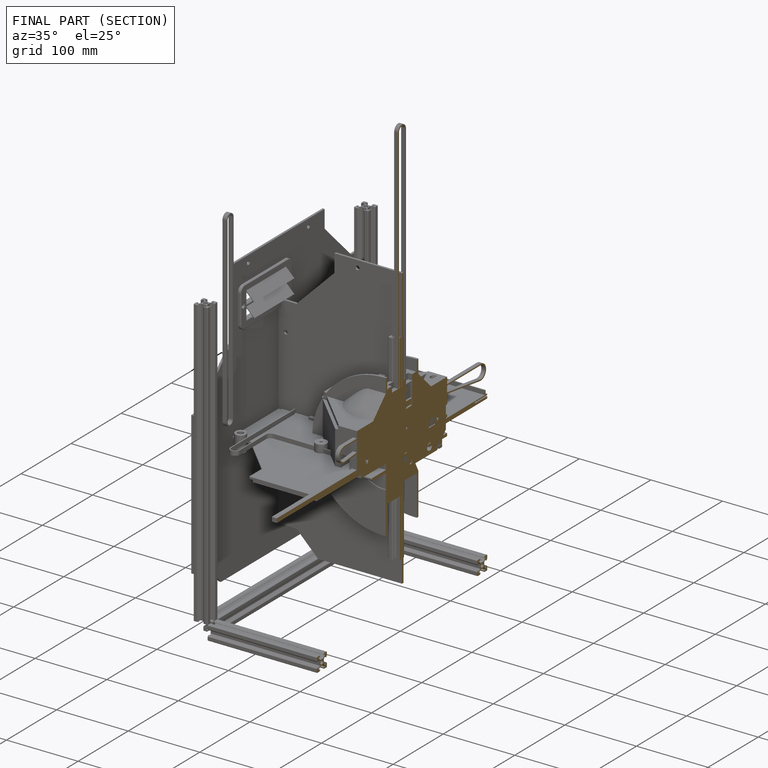
[diagram: finished part — half-section view (interior)]
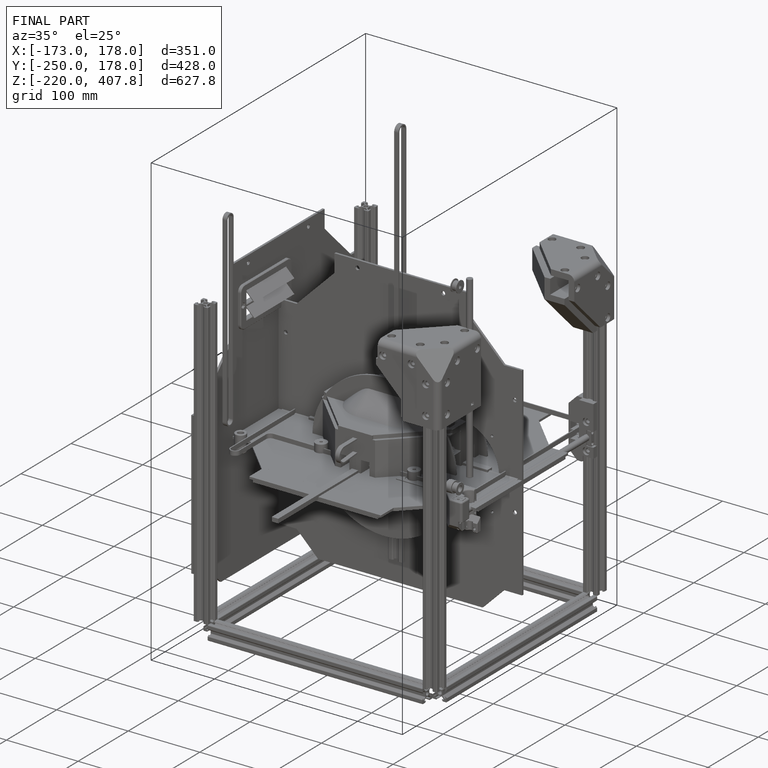
[diagram: finished part — iso view with bounding-box wireframe]
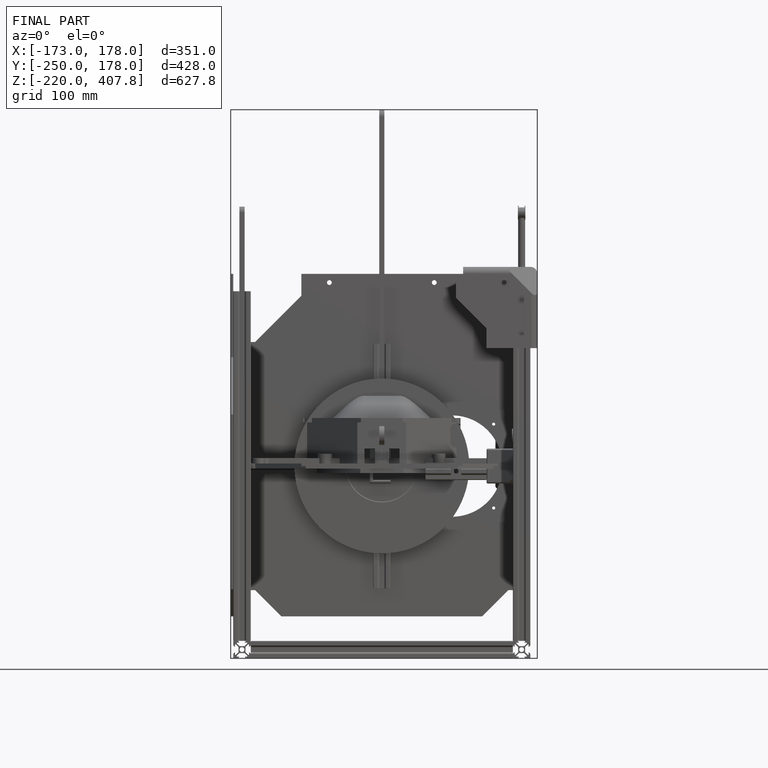
[diagram: finished part — front view with bounding-box wireframe]
